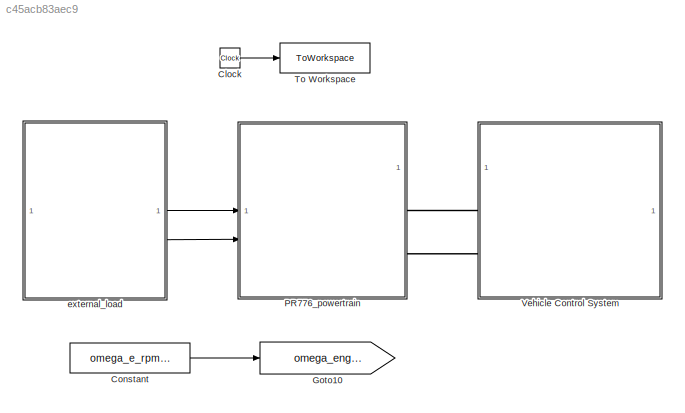
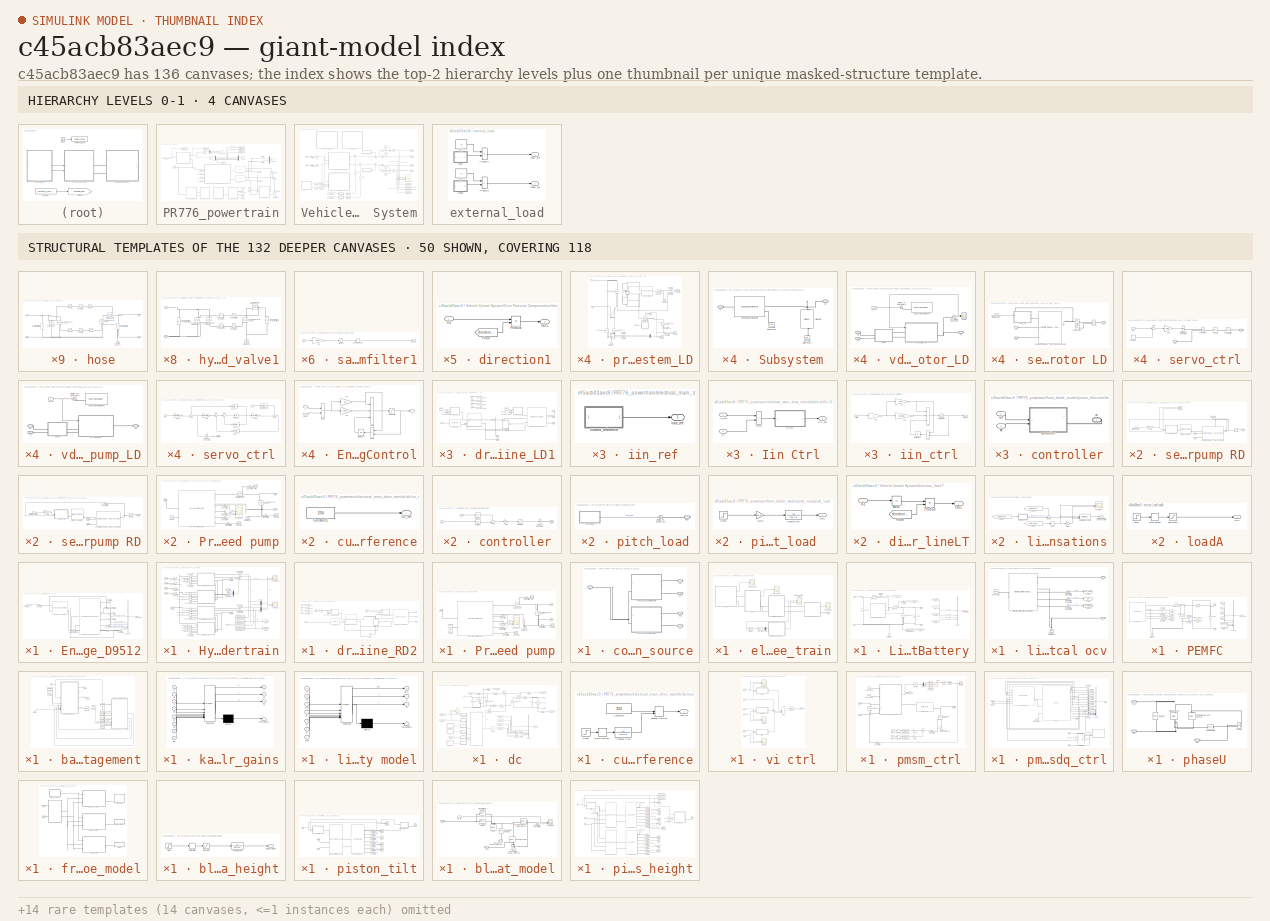
[diagram: thumbnail index - top-2 hierarchy levels (4 canvases) + 50 structural-template representatives of the remaining 132 canvases]
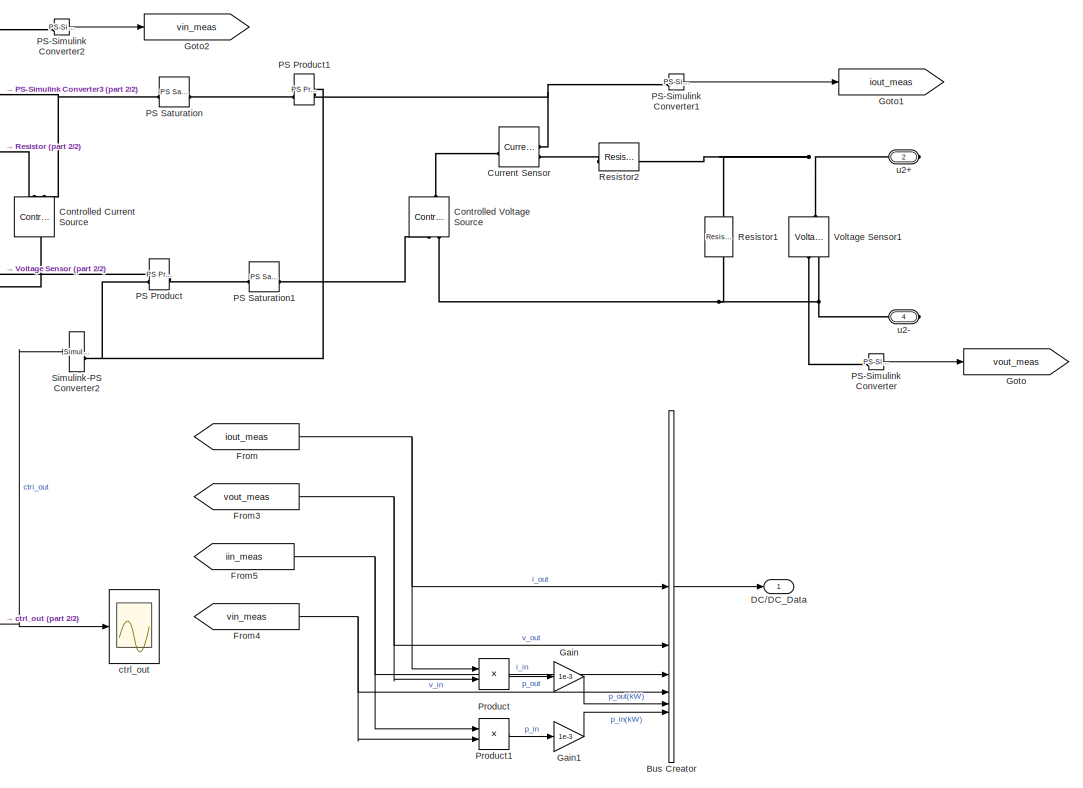
[diagram: PR776_powertrain/electrical_main_drive_train/dc/dc - part 1/2, right side, full height]
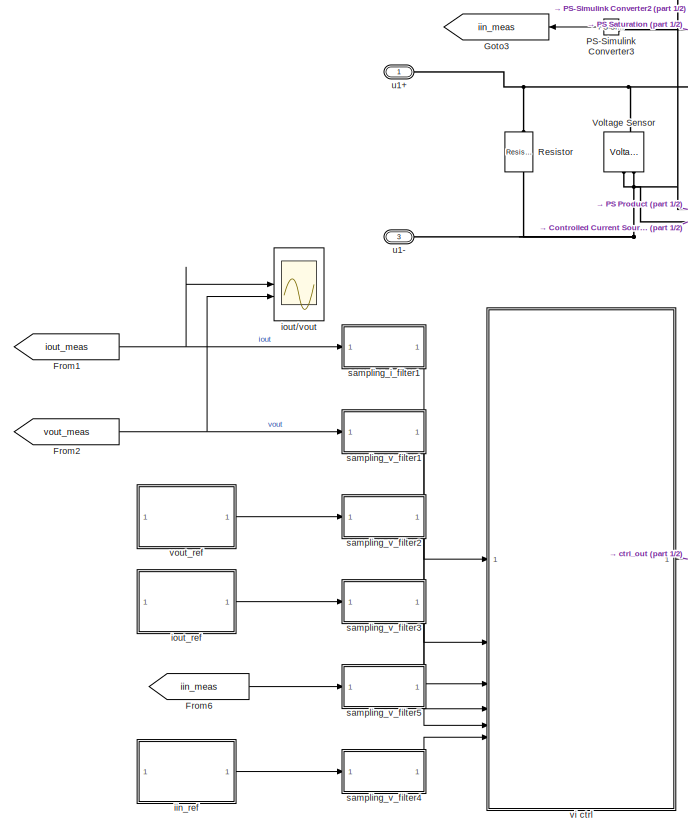
[diagram: PR776_powertrain/electrical_main_drive_train/dc/dc - part 2/2, left side, full height]
MODEL slx_c45acb83aec9
KIND model
CONFIG FixedStep = tsample
CONFIG MaxStep = tsample
CONFIG RelTol = auto
CONFIG SolverName = ode1be
CONFIG StopTime = simulation_length
BLOCK [Clock] Clock
BLOCK [Constant] Constant
  Value = omega_e_rpm_ref
BLOCK [Goto] Goto10
  GotoTag = omega_engine_reference
  TagVisibility = global
BLOCK [SubSystem] PR776_powertrain
BLOCK [ConnectionLabel] PR776_powertrain/Connection Label
  Label = pS1
  NameLocation = top
BLOCK [ConnectionLabel] PR776_powertrain/Connection Label1
  Label = pT1
  NameLocation = top
BLOCK [ConnectionLabel] PR776_powertrain/Connection Label10
  Label = pS2
  NameLocation = top
BLOCK [ConnectionLabel] PR776_powertrain/Connection Label11
  Label = pT2
  NameLocation = top
BLOCK [ConnectionLabel] PR776_powertrain/Connection Label2
  Label = pS1
BLOCK [ConnectionLabel] PR776_powertrain/Connection Label3
  Label = pT1
BLOCK [ConnectionLabel] PR776_powertrain/Connection Label4
  Label = pS2
  NameLocation = top
BLOCK [ConnectionLabel] PR776_powertrain/Connection Label5
  Label = pT2
BLOCK [Demux] PR776_powertrain/Demux
BLOCK [Demux] PR776_powertrain/Demux1
  Outputs = 2
BLOCK [Scope] PR776_powertrain/Engine
  ActiveDisplayYMaximum = 3710.49329
  ActiveDisplayYMinimum = -461.42552
  ContainerLayout = {"WindowBounds":[384,156,1280,768],"ToolstripCollapsed":true,"gridDimensions":{"w":1,"h":1},"tileCount":1,"tileCoverage":1,"columnWeights":1,"rowWeights":1,"tileOccupancy":{"children":[{"id":"/PR776_powertrain/Engine"},{"id":"/PR776_powertrain/Pressure controlled\npump/leak//ptorque"},{"id":"/PR776_powertrain/Pressure controlled\npump/flow"},{"id":"/PR776_powertrain/front_blade_model/pistons_pitch...<+678ch>  <repeated x12 — deduplicated; at blocks: Engine, flow, leak/ptorque, pressure, pump_flow, xp_re/xp m, xp_re/xp>
  Floating = off
  GraphicalSettings = {"GraphicalSettings":{"LegacySettings":true,"Style":{"AxesScalingProperties":{"ScaleAxesLimitsAtStop":false},"Style":{"AxesColor":"[0 0 0]","ChannelNames":[""],"ColorOrder":"[1 0.909803921568627 0.392156862745098;0.149019607843137 0.549019607843137 0.866666666666667;0.96078431372549 0.466666666666667 0.16078431372549;0.286274509803922 0.858823529411765 0.250980392156863;0.752941176470588 0.3607843...<+741ch>
  MultipleDisplayCache = [{"MaxYLimMag":3710.49329,"MaxYLimReal":3710.49329,"MinYLimMag":0,"MinYLimReal":-461.42552,"PlotAsMagnitudePhase":false,"ShowGrid":true,"ShowLegend":true,"Title":"%<SignalLabel>","YLabel":""}]
  NumInputPorts = 1
  SampleTime = tsample
  ScopeFrameLocation = container
  ShowLegend = on
  Visible = on
  WasSavedAsWebScope = on
  WindowPosition = [384.000000,156.000000,1280.000000,768.000000,]
BLOCK [SubSystem] PR776_powertrain/Engine_D9512
BLOCK [BusCreator] PR776_powertrain/Engine_D9512/Bus Creator
  DisplayOption = bar
  InheritFromInputs = on
  Inputs = 6
BLOCK [PMIOPort] PR776_powertrain/Engine_D9512/D
  Side = Right
BLOCK [Reference] PR776_powertrain/Engine_D9512/Engine Speed Controller  REF=engine_speed_ctrl_ii_lib/Engine Speed
Controller UD
  SourceBlock = engine_speed_ctrl_ii_lib/Engine Speed\nController UD
  SourceType = Engine Speed\nController UD
BLOCK [Outport] PR776_powertrain/Engine_D9512/Engine_Data
BLOCK [Reference] PR776_powertrain/Engine_D9512/Generic Internal Combustion Engine  REF=ice_lib/Generic Internal
Combustion Engine
  SourceBlock = ice_lib/Generic Internal\nCombustion Engine
  SourceType = Generic Internal\nCombustion Engine
BLOCK [Reference] PR776_powertrain/Engine_D9512/Mechanical Rotational Reference  REF=fl_lib/Mechanical/Rotational Elements/Mechanical
Rotational Reference
  NameLocation = right
  SourceBlock = fl_lib/Mechanical/Rotational Elements/Mechanical\nRotational Reference
  SourceType = Mechanical\nRotational Reference
BLOCK [Reference] PR776_powertrain/Engine_D9512/PS-Simulink Converter1  REF=nesl_utility/PS-Simulink
Converter
  SourceBlock = nesl_utility/PS-Simulink\nConverter
  SourceType = PS-Simulink\nConverter
BLOCK [Reference] PR776_powertrain/Engine_D9512/PS-Simulink Converter2  REF=nesl_utility/PS-Simulink
Converter
  SourceBlock = nesl_utility/PS-Simulink\nConverter
  SourceType = PS-Simulink\nConverter
BLOCK [Reference] PR776_powertrain/Engine_D9512/PS-Simulink Converter5  REF=nesl_utility/PS-Simulink
Converter
  SourceBlock = nesl_utility/PS-Simulink\nConverter
  SourceType = PS-Simulink\nConverter
BLOCK [Reference] PR776_powertrain/Engine_D9512/PS-Simulink Converter6  REF=nesl_utility/PS-Simulink
Converter
  SourceBlock = nesl_utility/PS-Simulink\nConverter
  SourceType = PS-Simulink\nConverter
BLOCK [Reference] PR776_powertrain/Engine_D9512/PS-Simulink Converter7  REF=nesl_utility/PS-Simulink
Converter
  SourceBlock = nesl_utility/PS-Simulink\nConverter
  SourceType = PS-Simulink\nConverter
BLOCK [Reference] PR776_powertrain/Engine_D9512/PS-Simulink Converter8  REF=nesl_utility/PS-Simulink
Converter
  SourceBlock = nesl_utility/PS-Simulink\nConverter
  SourceType = PS-Simulink\nConverter
BLOCK [Reference] PR776_powertrain/Engine_D9512/Simulink-PS Converter7  REF=nesl_utility/Simulink-PS
Converter
  SourceBlock = nesl_utility/Simulink-PS\nConverter
  SourceType = Simulink-PS\nConverter
BLOCK [Inport] PR776_powertrain/Engine_D9512/engine_speed_reference
BLOCK [From] PR776_powertrain/From6
  GotoTag = omega_engine_reference
  TagVisibility = global
BLOCK [Goto] PR776_powertrain/Goto6
  GotoTag = tau_e
  TagVisibility = global
BLOCK [SubSystem] PR776_powertrain/Hydrostatic_powertrain
BLOCK [ConnectionLabel] PR776_powertrain/Hydrostatic_powertrain/Connection Label
  Label = pS1
  NameLocation = top
BLOCK [ConnectionLabel] PR776_powertrain/Hydrostatic_powertrain/Connection Label1
  Label = pT1
  NameLocation = top
BLOCK [ConnectionLabel] PR776_powertrain/Hydrostatic_powertrain/Connection Label10
  Label = pS2
  NameLocation = top
BLOCK [ConnectionLabel] PR776_powertrain/Hydrostatic_powertrain/Connection Label11
  Label = pT2
  NameLocation = top
BLOCK [ConnectionLabel] PR776_powertrain/Hydrostatic_powertrain/Connection Label12
  Label = pS1
  NameLocation = top
BLOCK [ConnectionLabel] PR776_powertrain/Hydrostatic_powertrain/Connection Label13
  Label = pT1
BLOCK [ConnectionLabel] PR776_powertrain/Hydrostatic_powertrain/Connection Label14
  Label = pS2
  NameLocation = top
BLOCK [ConnectionLabel] PR776_powertrain/Hydrostatic_powertrain/Connection Label15
  Label = pT2
BLOCK [ConnectionLabel] PR776_powertrain/Hydrostatic_powertrain/Connection Label16
  Label = pS1
  NameLocation = top
BLOCK [ConnectionLabel] PR776_powertrain/Hydrostatic_powertrain/Connection Label17
  Label = pT1
BLOCK [ConnectionLabel] PR776_powertrain/Hydrostatic_powertrain/Connection Label18
  Label = pS2
  NameLocation = right
BLOCK [ConnectionLabel] PR776_powertrain/Hydrostatic_powertrain/Connection Label19
  Label = pT2
BLOCK [ConnectionLabel] PR776_powertrain/Hydrostatic_powertrain/Connection Label2
  Label = pS1
  NameLocation = top
BLOCK [ConnectionLabel] PR776_powertrain/Hydrostatic_powertrain/Connection Label3
  Label = pT1
BLOCK [ConnectionLabel] PR776_powertrain/Hydrostatic_powertrain/Connection Label4
  Label = pS2
  NameLocation = right
BLOCK [ConnectionLabel] PR776_powertrain/Hydrostatic_powertrain/Connection Label5
  Label = pT2
BLOCK [ConnectionLabel] PR776_powertrain/Hydrostatic_powertrain/Connection Label6
  Label = pS1
  NameLocation = top
BLOCK [ConnectionLabel] PR776_powertrain/Hydrostatic_powertrain/Connection Label7
  Label = pT1
BLOCK [ConnectionLabel] PR776_powertrain/Hydrostatic_powertrain/Connection Label8
  Label = pS2
  NameLocation = top
BLOCK [ConnectionLabel] PR776_powertrain/Hydrostatic_powertrain/Connection Label9
  Label = pT2
BLOCK [Goto] PR776_powertrain/Hydrostatic_powertrain/Goto8
  GotoTag = dpAm
  TagVisibility = global
BLOCK [Goto] PR776_powertrain/Hydrostatic_powertrain/Goto9
  GotoTag = dpBm
  TagVisibility = global
BLOCK [Mux] PR776_powertrain/Hydrostatic_powertrain/Mux1
  DisplayOption = bar
  Inputs = 2
BLOCK [Mux] PR776_powertrain/Hydrostatic_powertrain/Mux2
  DisplayOption = bar
  Inputs = 2
BLOCK [Mux] PR776_powertrain/Hydrostatic_powertrain/Mux3
  DisplayOption = bar
  Inputs = 2
BLOCK [Reference] PR776_powertrain/Hydrostatic_powertrain/PS-Simulink Converter1  REF=nesl_utility/PS-Simulink
Converter
  SourceBlock = nesl_utility/PS-Simulink\nConverter
  SourceType = PS-Simulink\nConverter
BLOCK [Reference] PR776_powertrain/Hydrostatic_powertrain/PS-Simulink Converter2  REF=nesl_utility/PS-Simulink
Converter
  SourceBlock = nesl_utility/PS-Simulink\nConverter
  SourceType = PS-Simulink\nConverter
BLOCK [Reference] PR776_powertrain/Hydrostatic_powertrain/PS-Simulink Converter3  REF=nesl_utility/PS-Simulink
Converter
  SourceBlock = nesl_utility/PS-Simulink\nConverter
  SourceType = PS-Simulink\nConverter
BLOCK [Reference] PR776_powertrain/Hydrostatic_powertrain/PS-Simulink Converter4  REF=nesl_utility/PS-Simulink
Converter
  SourceBlock = nesl_utility/PS-Simulink\nConverter
  SourceType = PS-Simulink\nConverter
BLOCK [Reference] PR776_powertrain/Hydrostatic_powertrain/PS-Simulink Converter5  REF=nesl_utility/PS-Simulink
Converter
  SourceBlock = nesl_utility/PS-Simulink\nConverter
  SourceType = PS-Simulink\nConverter
BLOCK [Reference] PR776_powertrain/Hydrostatic_powertrain/PS-Simulink Converter8  REF=nesl_utility/PS-Simulink
Converter
  SourceBlock = nesl_utility/PS-Simulink\nConverter
  SourceType = PS-Simulink\nConverter
BLOCK [ToWorkspace] PR776_powertrain/Hydrostatic_powertrain/To Workspace3
  FixptAsFi = on
  MaxDataPoints = Nc
  NameLocation = top
  SampleTime = Tc
  VariableName = qR_sim
BLOCK [ToWorkspace] PR776_powertrain/Hydrostatic_powertrain/To Workspace4
  FixptAsFi = on
  MaxDataPoints = Nc
  NameLocation = top
  SampleTime = Tc
  VariableName = dpR_sim
BLOCK [ToWorkspace] PR776_powertrain/Hydrostatic_powertrain/To Workspace5
  FixptAsFi = on
  MaxDataPoints = Nc
  NameLocation = top
  SampleTime = Tc
  VariableName = qL_sim
BLOCK [ToWorkspace] PR776_powertrain/Hydrostatic_powertrain/To Workspace6
  FixptAsFi = on
  MaxDataPoints = Nc
  NameLocation = top
  SampleTime = Tc
  VariableName = dpL_sim
BLOCK [SubSystem] PR776_powertrain/Hydrostatic_powertrain/driveine_LD1
BLOCK [ConnectionLabel] PR776_powertrain/Hydrostatic_powertrain/driveine_LD1/Connection Label1
  Label = pS1
BLOCK [ConnectionLabel] PR776_powertrain/Hydrostatic_powertrain/driveine_LD1/Connection Label2
  Label = pS1
  NameLocation = top
BLOCK [ConnectionLabel] PR776_powertrain/Hydrostatic_powertrain/driveine_LD1/Connection Label3
  Label = pT1
BLOCK [ConnectionLabel] PR776_powertrain/Hydrostatic_powertrain/driveine_LD1/Connection Label4
  Label = pS2
  NameLocation = top
BLOCK [ConnectionLabel] PR776_powertrain/Hydrostatic_powertrain/driveine_LD1/Connection Label5
  Label = pT2
BLOCK [ConnectionLabel] PR776_powertrain/Hydrostatic_powertrain/driveine_LD1/Connection Label6
  Label = pT1
  NameLocation = top
BLOCK [ConnectionLabel] PR776_powertrain/Hydrostatic_powertrain/driveine_LD1/Connection Label7
  Label = pS2
BLOCK [ConnectionLabel] PR776_powertrain/Hydrostatic_powertrain/driveine_LD1/Connection Label8
  Label = pT2
  NameLocation = top
BLOCK [From] PR776_powertrain/Hydrostatic_powertrain/driveine_LD1/From4
  GotoTag = DpB
  TagVisibility = global
BLOCK [From] PR776_powertrain/Hydrostatic_powertrain/driveine_LD1/From5
  GotoTag = DmB
  TagVisibility = global
BLOCK [PMIOPort] PR776_powertrain/Hydrostatic_powertrain/driveine_LD1/RDA
  Port = 9
  Side = Right
BLOCK [PMIOPort] PR776_powertrain/Hydrostatic_powertrain/driveine_LD1/RDB
  Port = 10
  Side = Right
BLOCK [Reference] PR776_powertrain/Hydrostatic_powertrain/driveine_LD1/Variable displacement motor LD  REF=variable_displacement_motor_lib/Variable
displacement motor
  SourceBlock = variable_displacement_motor_lib/Variable\ndisplacement motor
  SourceType = Variable\ndisplacement motor
BLOCK [Reference] PR776_powertrain/Hydrostatic_powertrain/driveine_LD1/Variable displacement pump LD  REF=variable_displacement_pump_lib/Variable
displacement pump
  SourceBlock = variable_displacement_pump_lib/Variable\ndisplacement pump
  SourceType = Variable\ndisplacement pump
BLOCK [PMIOPort] PR776_powertrain/Hydrostatic_powertrain/driveine_LD1/c
  Port = 8
  Side = Right
BLOCK [PMIOPort] PR776_powertrain/Hydrostatic_powertrain/driveine_LD1/dp
  Port = 7
  Side = Right
BLOCK [Reference] PR776_powertrain/Hydrostatic_powertrain/driveine_LD1/flexible shaft1  REF=flexshaft_lib/flexible shaft
  SourceBlock = flexshaft_lib/flexible shaft
  SourceType = flexible shaft
BLOCK [PMIOPort] PR776_powertrain/Hydrostatic_powertrain/driveine_LD1/pS1
  Port = 2
  Side = Left
BLOCK [PMIOPort] PR776_powertrain/Hydrostatic_powertrain/driveine_LD1/pS2
  Port = 3
  Side = Left
BLOCK [PMIOPort] PR776_powertrain/Hydrostatic_powertrain/driveine_LD1/pT1
  Port = 4
  Side = Left
BLOCK [PMIOPort] PR776_powertrain/Hydrostatic_powertrain/driveine_LD1/pT2
  Port = 5
  Side = Left
BLOCK [SubSystem] PR776_powertrain/Hydrostatic_powertrain/driveine_LD1/pressure_charge_system_LD
  NameLocation = right
  PortSchema = {"entries":[{"content":{"sides":[{"content":{"connectorIds":[]},"type":"ConnectorPlacement.EquallySpacedRectSide","uuid":"e48dc60c-7abd-410a-894b-273047c8aadd"},{"content":{"connectorIds":[],"side":"RIGHT"},"type":"ConnectorPlacement.EquallySpacedRectSide","uuid":"1866d745-b28e-4187-be81-03bff766c239"},{"content":{"connectorIds":["LConn1"],"side":"TOP"},"type":"ConnectorPlacement.EquallySpacedRect...<+400ch>  <repeated x4 — deduplicated; at blocks: pressure_charge_system_LD, pressure_charge_system_RD>
BLOCK [PMIOPort] PR776_powertrain/Hydrostatic_powertrain/driveine_LD1/pressure_charge_system_LD/A
  Side = Left
BLOCK [PMIOPort] PR776_powertrain/Hydrostatic_powertrain/driveine_LD1/pressure_charge_system_LD/B
  Port = 2
  Side = Right
BLOCK [PMIOPort] PR776_powertrain/Hydrostatic_powertrain/driveine_LD1/pressure_charge_system_LD/D
  Port = 3
  Side = Right
BLOCK [Reference] PR776_powertrain/Hydrostatic_powertrain/driveine_LD1/pressure_charge_system_LD/Hydraulic Flow Rate Sensor  REF=fl_lib/Hydraulic/Hydraulic Sensors/Hydraulic Flow Rate
Sensor
  NameLocation = top
  SourceBlock = fl_lib/Hydraulic/Hydraulic Sensors/Hydraulic Flow Rate\nSensor
  SourceType = Hydraulic Flow Rate\nSensor
BLOCK [Reference] PR776_powertrain/Hydrostatic_powertrain/driveine_LD1/pressure_charge_system_LD/Hydraulic Flow Rate Sensor1  REF=fl_lib/Hydraulic/Hydraulic Sensors/Hydraulic Flow Rate
Sensor
  SourceBlock = fl_lib/Hydraulic/Hydraulic Sensors/Hydraulic Flow Rate\nSensor
  SourceType = Hydraulic Flow Rate\nSensor
BLOCK [Reference] PR776_powertrain/Hydrostatic_powertrain/driveine_LD1/pressure_charge_system_LD/Hydraulic Pressure Sensor1  REF=fl_lib/Hydraulic/Hydraulic Sensors/Hydraulic Pressure
Sensor
  NameLocation = right
  SourceBlock = fl_lib/Hydraulic/Hydraulic Sensors/Hydraulic Pressure\nSensor
  SourceType = Hydraulic Pressure\nSensor
BLOCK [Reference] PR776_powertrain/Hydrostatic_powertrain/driveine_LD1/pressure_charge_system_LD/Hydraulic Pressure Sensor2  REF=fl_lib/Hydraulic/Hydraulic Sensors/Hydraulic Pressure
Sensor
  NameLocation = right
  SourceBlock = fl_lib/Hydraulic/Hydraulic Sensors/Hydraulic Pressure\nSensor
  SourceType = Hydraulic Pressure\nSensor
BLOCK [Reference] PR776_powertrain/Hydrostatic_powertrain/driveine_LD1/pressure_charge_system_LD/Hydraulic Pressure Sensor3  REF=fl_lib/Hydraulic/Hydraulic Sensors/Hydraulic Pressure
Sensor
  NameLocation = right
  SourceBlock = fl_lib/Hydraulic/Hydraulic Sensors/Hydraulic Pressure\nSensor
  SourceType = Hydraulic Pressure\nSensor
BLOCK [Reference] PR776_powertrain/Hydrostatic_powertrain/driveine_LD1/pressure_charge_system_LD/Hydraulic Pressure Sensor4  REF=fl_lib/Hydraulic/Hydraulic Sensors/Hydraulic Pressure
Sensor
  NameLocation = right
  SourceBlock = fl_lib/Hydraulic/Hydraulic Sensors/Hydraulic Pressure\nSensor
  SourceType = Hydraulic Pressure\nSensor
BLOCK [Reference] PR776_powertrain/Hydrostatic_powertrain/driveine_LD1/pressure_charge_system_LD/Hydraulic Reference1  REF=fl_lib/Hydraulic/Hydraulic Elements/Hydraulic Reference
  NameLocation = right
  SourceBlock = fl_lib/Hydraulic/Hydraulic Elements/Hydraulic Reference
  SourceType = Hydraulic Reference
BLOCK [Reference] PR776_powertrain/Hydrostatic_powertrain/driveine_LD1/pressure_charge_system_LD/Hydraulic Reference2  REF=fl_lib/Hydraulic/Hydraulic Elements/Hydraulic Reference
  NameLocation = right
  SourceBlock = fl_lib/Hydraulic/Hydraulic Elements/Hydraulic Reference
  SourceType = Hydraulic Reference
BLOCK [Reference] PR776_powertrain/Hydrostatic_powertrain/driveine_LD1/pressure_charge_system_LD/Hydraulic Reference3  REF=fl_lib/Hydraulic/Hydraulic Elements/Hydraulic Reference
  NameLocation = right
  SourceBlock = fl_lib/Hydraulic/Hydraulic Elements/Hydraulic Reference
  SourceType = Hydraulic Reference
BLOCK [Mux] PR776_powertrain/Hydrostatic_powertrain/driveine_LD1/pressure_charge_system_LD/Mux
  DisplayOption = bar
  Inputs = 2
BLOCK [Reference] PR776_powertrain/Hydrostatic_powertrain/driveine_LD1/pressure_charge_system_LD/PS-Simulink Converter  REF=nesl_utility/PS-Simulink
Converter
  SourceBlock = nesl_utility/PS-Simulink\nConverter
  SourceType = PS-Simulink\nConverter
BLOCK [Reference] PR776_powertrain/Hydrostatic_powertrain/driveine_LD1/pressure_charge_system_LD/PS-Simulink Converter1  REF=nesl_utility/PS-Simulink
Converter
  SourceBlock = nesl_utility/PS-Simulink\nConverter
  SourceType = PS-Simulink\nConverter
BLOCK [Reference] PR776_powertrain/Hydrostatic_powertrain/driveine_LD1/pressure_charge_system_LD/PS-Simulink Converter2  REF=nesl_utility/PS-Simulink
Converter
  SourceBlock = nesl_utility/PS-Simulink\nConverter
  SourceType = PS-Simulink\nConverter
BLOCK [Reference] PR776_powertrain/Hydrostatic_powertrain/driveine_LD1/pressure_charge_system_LD/PS-Simulink Converter3  REF=nesl_utility/PS-Simulink
Converter
  SourceBlock = nesl_utility/PS-Simulink\nConverter
  SourceType = PS-Simulink\nConverter
BLOCK [Reference] PR776_powertrain/Hydrostatic_powertrain/driveine_LD1/pressure_charge_system_LD/PS-Simulink Converter4  REF=nesl_utility/PS-Simulink
Converter
  SourceBlock = nesl_utility/PS-Simulink\nConverter
  SourceType = PS-Simulink\nConverter
BLOCK [Reference] PR776_powertrain/Hydrostatic_powertrain/driveine_LD1/pressure_charge_system_LD/PS-Simulink Converter5  REF=nesl_utility/PS-Simulink
Converter
  SourceBlock = nesl_utility/PS-Simulink\nConverter
  SourceType = PS-Simulink\nConverter
BLOCK [Scope] PR776_powertrain/Hydrostatic_powertrain/driveine_LD1/pressure_charge_system_LD/Scope1
  ActiveDisplayYMaximum = 527.07344
  ActiveDisplayYMinimum = -171.1725
  DataLoggingVariableName = ScopeData2
  Floating = off
  GraphicalSettings = {"GraphicalSettings":{"LegacySettings":true,"Style":{"AxesScalingProperties":{"ScaleAxesLimitsAtStop":false},"Style":{"AxesColor":"[0 0 0]","ChannelNames":["",""],"ColorOrder":"[1 1 0.0666666666666667;0.0745098039215686 0.623529411764706 1;1 0.411764705882353 0.16078431372549;0.392156862745098 0.831372549019608 0.0745098039215686;0.717647058823529 0.274509803921569 1;0.0588235294117647 1 1;1 0.074...<+565ch>
  LayoutDimensionsString = [2 1]
  MultipleDisplayCache = [{"MaxYLimMag":527.07344,"MaxYLimReal":527.07344,"MinYLimMag":0,"MinYLimReal":-171.1725,"PlotAsMagnitudePhase":false,"ShowGrid":true,"ShowLegend":true,"Title":"%<SignalLabel>","YLabel":""},{"MaxYLimMag":6.36273,"MaxYLimReal":10.69283,"MinYLimMag":0,"MinYLimReal":-1.19086,"PlotAsMagnitudePhase":false,"ShowGrid":true,"ShowLegend":true,"Title":"%<SignalLabel>","YLabel":""}]
  NumInputPorts = 2
  SampleTime = tsample
  ShowLegend = on
  WasSavedAsWebScope = on
BLOCK [Scope] PR776_powertrain/Hydrostatic_powertrain/driveine_LD1/pressure_charge_system_LD/Scope2
  ActiveDisplayYMaximum = 21.51378
  ActiveDisplayYMinimum = -2.39042
  DataLoggingVariableName = ScopeData2
  Floating = off
  GraphicalSettings = {"GraphicalSettings":{"LegacySettings":true,"Style":{"AxesScalingProperties":{"ScaleAxesLimitsAtStop":false},"Style":{"AxesColor":"[0 0 0]","ChannelNames":["",""],"ColorOrder":"[1 1 0.0666666666666667;0.0745098039215686 0.623529411764706 1;1 0.411764705882353 0.16078431372549;0.392156862745098 0.831372549019608 0.0745098039215686;0.717647058823529 0.274509803921569 1;0.0588235294117647 1 1;1 0.074...<+526ch>  <repeated x7 — deduplicated; at blocks: Scope2, Scope3, qt_ishuttle/dp, Engine Torque Compensation>
  LayoutDimensionsString = [2 1]
  MultipleDisplayCache = [{"MaxYLimMag":21.51378,"MaxYLimReal":21.51378,"MinYLimMag":0,"MinYLimReal":-2.39042,"PlotAsMagnitudePhase":false,"ShowGrid":true,"ShowLegend":true,"Title":"%<SignalLabel>","YLabel":""},{"MaxYLimMag":10,"MaxYLimReal":36.71947,"MinYLimMag":0,"MinYLimReal":-4.07994,"PlotAsMagnitudePhase":false,"ShowGrid":true,"ShowLegend":true,"Title":"%<SignalLabel>","YLabel":""}]
  NumInputPorts = 2
  SampleTime = tsample
  ShowLegend = on
  WasSavedAsWebScope = on
  WindowPosition = [2356 378 560 420]
BLOCK [Scope] PR776_powertrain/Hydrostatic_powertrain/driveine_LD1/pressure_charge_system_LD/Scope3
  ActiveDisplayYMaximum = 21.17734
  ActiveDisplayYMinimum = -2.35304
  DataLoggingVariableName = ScopeData1
  Floating = off
  LayoutDimensionsString = [2 1]
  MultipleDisplayCache = [{"MaxYLimMag":21.17734,"MaxYLimReal":21.17734,"MinYLimMag":0,"MinYLimReal":-2.35304,"PlotAsMagnitudePhase":false,"ShowGrid":true,"ShowLegend":true,"Title":"%<SignalLabel>","YLabel":""},{"MaxYLimMag":10,"MaxYLimReal":267.9229,"MinYLimMag":0,"MinYLimReal":-267.97888,"PlotAsMagnitudePhase":false,"ShowGrid":true,"ShowLegend":true,"Title":"%<SignalLabel>","YLabel":""}]
  NumInputPorts = 2
  SampleTime = tsample
  ShowLegend = on
  WasSavedAsWebScope = on
  WindowPosition = [238 183 1399 747]
BLOCK [SubSystem] PR776_powertrain/Hydrostatic_powertrain/driveine_LD1/pressure_charge_system_LD/Subsystem
BLOCK [PMIOPort] PR776_powertrain/Hydrostatic_powertrain/driveine_LD1/pressure_charge_system_LD/Subsystem/D
  Port = 2
  Side = Left
BLOCK [Reference] PR776_powertrain/Hydrostatic_powertrain/driveine_LD1/pressure_charge_system_LD/Subsystem/Fixed displacement pump  REF=fixed_displacement_pump_lib/Fixed displacement
pump
  SourceBlock = fixed_displacement_pump_lib/Fixed displacement\npump
  SourceType = Fixed displacement\npump
BLOCK [Reference] PR776_powertrain/Hydrostatic_powertrain/driveine_LD1/pressure_charge_system_LD/Subsystem/Hydraulic Reference3  REF=fl_lib/Hydraulic/Hydraulic Elements/Hydraulic Reference
  NameLocation = right
  SourceBlock = fl_lib/Hydraulic/Hydraulic Elements/Hydraulic Reference
  SourceType = Hydraulic Reference
BLOCK [Reference] PR776_powertrain/Hydrostatic_powertrain/driveine_LD1/pressure_charge_system_LD/Subsystem/Hydraulic Reference4  REF=fl_lib/Hydraulic/Hydraulic Elements/Hydraulic Reference
  NameLocation = right
  SourceBlock = fl_lib/Hydraulic/Hydraulic Elements/Hydraulic Reference
  SourceType = Hydraulic Reference
BLOCK [PMIOPort] PR776_powertrain/Hydrostatic_powertrain/driveine_LD1/pressure_charge_system_LD/Subsystem/ps
  Side = Right
BLOCK [Reference] PR776_powertrain/Hydrostatic_powertrain/driveine_LD1/pressure_charge_system_LD/Subsystem/relief valve  REF=relief_valve_lib/relief valve
  NameLocation = left
  SourceBlock = relief_valve_lib/relief valve
  SourceType = relief valve
BLOCK [SubSystem] PR776_powertrain/Hydrostatic_powertrain/driveine_LD1/pressure_charge_system_LD/hydro_check_valve1
  NameLocation = left
  PortSchema = {"entries":[{"content":{"sides":[{"content":{"connectorIds":[]},"type":"ConnectorPlacement.EquallySpacedRectSide","uuid":"a69fbb91-2279-4dfd-af6f-16497d5f1538"},{"content":{"connectorIds":[],"side":"RIGHT"},"type":"ConnectorPlacement.EquallySpacedRectSide","uuid":"52e95d44-b7af-4ccc-8556-a2abd2e724e0"},{"content":{"connectorIds":["LConn1"],"side":"TOP"},"type":"ConnectorPlacement.EquallySpacedRect...<+391ch>  <repeated x8 — deduplicated; at blocks: hydro_check_valve1, hydro_check_valve2>
BLOCK [PMIOPort] PR776_powertrain/Hydrostatic_powertrain/driveine_LD1/pressure_charge_system_LD/hydro_check_valve1/A
  Side = Left
BLOCK [PMIOPort] PR776_powertrain/Hydrostatic_powertrain/driveine_LD1/pressure_charge_system_LD/hydro_check_valve1/B
  Port = 2
  Side = Right
BLOCK [Reference] PR776_powertrain/Hydrostatic_powertrain/driveine_LD1/pressure_charge_system_LD/hydro_check_valve1/Constant Area Hydraulic Orifice5  REF=fl_lib/Hydraulic/Hydraulic Elements/Constant Area
Hydraulic Orifice
  NameLocation = left
  SourceBlock = fl_lib/Hydraulic/Hydraulic Elements/Constant Area\nHydraulic Orifice
  SourceType = Constant Area\nHydraulic Orifice
BLOCK [Reference] PR776_powertrain/Hydrostatic_powertrain/driveine_LD1/pressure_charge_system_LD/hydro_check_valve1/Constant Area Hydraulic Orifice6  REF=fl_lib/Hydraulic/Hydraulic Elements/Constant Area
Hydraulic Orifice
  NameLocation = left
  SourceBlock = fl_lib/Hydraulic/Hydraulic Elements/Constant Area\nHydraulic Orifice
  SourceType = Constant Area\nHydraulic Orifice
BLOCK [Reference] PR776_powertrain/Hydrostatic_powertrain/driveine_LD1/pressure_charge_system_LD/hydro_check_valve1/Hydraulic Flow Rate Sensor  REF=fl_lib/Hydraulic/Hydraulic Sensors/Hydraulic Flow Rate
Sensor
  SourceBlock = fl_lib/Hydraulic/Hydraulic Sensors/Hydraulic Flow Rate\nSensor
  SourceType = Hydraulic Flow Rate\nSensor
BLOCK [Reference] PR776_powertrain/Hydrostatic_powertrain/driveine_LD1/pressure_charge_system_LD/hydro_check_valve1/Hydraulic Flow Rate Source  REF=fl_lib/Hydraulic/Hydraulic Sources/Hydraulic Flow Rate
Source
  NameLocation = left
  SourceBlock = fl_lib/Hydraulic/Hydraulic Sources/Hydraulic Flow Rate\nSource
  SourceType = Hydraulic Flow Rate\nSource
BLOCK [Reference] PR776_powertrain/Hydrostatic_powertrain/driveine_LD1/pressure_charge_system_LD/hydro_check_valve1/Hydraulic Pressure Sensor  REF=fl_lib/Hydraulic/Hydraulic Sensors/Hydraulic Pressure
Sensor
  NameLocation = left
  SourceBlock = fl_lib/Hydraulic/Hydraulic Sensors/Hydraulic Pressure\nSensor
  SourceType = Hydraulic Pressure\nSensor
BLOCK [Reference] PR776_powertrain/Hydrostatic_powertrain/driveine_LD1/pressure_charge_system_LD/hydro_check_valve1/Hydraulic Pressure Source2  REF=fl_lib/Hydraulic/Hydraulic Sources/Hydraulic Pressure
Source
  NameLocation = right
  SourceBlock = fl_lib/Hydraulic/Hydraulic Sources/Hydraulic Pressure\nSource
  SourceType = Hydraulic Pressure\nSource
BLOCK [Reference] PR776_powertrain/Hydrostatic_powertrain/driveine_LD1/pressure_charge_system_LD/hydro_check_valve1/Hydraulic Reference  REF=fl_lib/Hydraulic/Hydraulic Elements/Hydraulic Reference
  NameLocation = right
  SourceBlock = fl_lib/Hydraulic/Hydraulic Elements/Hydraulic Reference
  SourceType = Hydraulic Reference
BLOCK [Reference] PR776_powertrain/Hydrostatic_powertrain/driveine_LD1/pressure_charge_system_LD/hydro_check_valve1/PS Saturation  REF=fl_lib/Physical Signals/Nonlinear Operators/PS Saturation
  SourceBlock = fl_lib/Physical Signals/Nonlinear Operators/PS Saturation
  SourceType = PS Saturation
BLOCK [Reference] PR776_powertrain/Hydrostatic_powertrain/driveine_LD1/pressure_charge_system_LD/hydro_check_valve1/PS Saturation1  REF=fl_lib/Physical Signals/Nonlinear Operators/PS Saturation
  SourceBlock = fl_lib/Physical Signals/Nonlinear Operators/PS Saturation
  SourceType = PS Saturation
BLOCK [Reference] PR776_powertrain/Hydrostatic_powertrain/driveine_LD1/pressure_charge_system_LD/hydro_check_valve1/PS Transfer Function  REF=fl_lib/Physical Signals/Linear Operators/PS Transfer Function
  SourceBlock = fl_lib/Physical Signals/Linear Operators/PS Transfer Function
  SourceType = PS Transfer Function
BLOCK [Reference] PR776_powertrain/Hydrostatic_powertrain/driveine_LD1/pressure_charge_system_LD/hydro_check_valve1/PS Transfer Function1  REF=fl_lib/Physical Signals/Linear Operators/PS Transfer Function
  SourceBlock = fl_lib/Physical Signals/Linear Operators/PS Transfer Function
  SourceType = PS Transfer Function
BLOCK [SubSystem] PR776_powertrain/Hydrostatic_powertrain/driveine_LD1/pressure_charge_system_LD/hydro_check_valve2
  NameLocation = right
BLOCK [PMIOPort] PR776_powertrain/Hydrostatic_powertrain/driveine_LD1/pressure_charge_system_LD/hydro_check_valve2/A
  Side = Left
BLOCK [PMIOPort] PR776_powertrain/Hydrostatic_powertrain/driveine_LD1/pressure_charge_system_LD/hydro_check_valve2/B
  Port = 2
  Side = Right
BLOCK [Reference] PR776_powertrain/Hydrostatic_powertrain/driveine_LD1/pressure_charge_system_LD/hydro_check_valve2/Constant Area Hydraulic Orifice5  REF=fl_lib/Hydraulic/Hydraulic Elements/Constant Area
Hydraulic Orifice
  NameLocation = left
  SourceBlock = fl_lib/Hydraulic/Hydraulic Elements/Constant Area\nHydraulic Orifice
  SourceType = Constant Area\nHydraulic Orifice
BLOCK [Reference] PR776_powertrain/Hydrostatic_powertrain/driveine_LD1/pressure_charge_system_LD/hydro_check_valve2/Constant Area Hydraulic Orifice6  REF=fl_lib/Hydraulic/Hydraulic Elements/Constant Area
Hydraulic Orifice
  NameLocation = left
  SourceBlock = fl_lib/Hydraulic/Hydraulic Elements/Constant Area\nHydraulic Orifice
  SourceType = Constant Area\nHydraulic Orifice
BLOCK [Reference] PR776_powertrain/Hydrostatic_powertrain/driveine_LD1/pressure_charge_system_LD/hydro_check_valve2/Hydraulic Flow Rate Sensor  REF=fl_lib/Hydraulic/Hydraulic Sensors/Hydraulic Flow Rate
Sensor
  SourceBlock = fl_lib/Hydraulic/Hydraulic Sensors/Hydraulic Flow Rate\nSensor
  SourceType = Hydraulic Flow Rate\nSensor
BLOCK [Reference] PR776_powertrain/Hydrostatic_powertrain/driveine_LD1/pressure_charge_system_LD/hydro_check_valve2/Hydraulic Flow Rate Source  REF=fl_lib/Hydraulic/Hydraulic Sources/Hydraulic Flow Rate
Source
  NameLocation = left
  SourceBlock = fl_lib/Hydraulic/Hydraulic Sources/Hydraulic Flow Rate\nSource
  SourceType = Hydraulic Flow Rate\nSource
BLOCK [Reference] PR776_powertrain/Hydrostatic_powertrain/driveine_LD1/pressure_charge_system_LD/hydro_check_valve2/Hydraulic Pressure Sensor  REF=fl_lib/Hydraulic/Hydraulic Sensors/Hydraulic Pressure
Sensor
  NameLocation = left
  SourceBlock = fl_lib/Hydraulic/Hydraulic Sensors/Hydraulic Pressure\nSensor
  SourceType = Hydraulic Pressure\nSensor
BLOCK [Reference] PR776_powertrain/Hydrostatic_powertrain/driveine_LD1/pressure_charge_system_LD/hydro_check_valve2/Hydraulic Pressure Source2  REF=fl_lib/Hydraulic/Hydraulic Sources/Hydraulic Pressure
Source
  NameLocation = right
  SourceBlock = fl_lib/Hydraulic/Hydraulic Sources/Hydraulic Pressure\nSource
  SourceType = Hydraulic Pressure\nSource
BLOCK [Reference] PR776_powertrain/Hydrostatic_powertrain/driveine_LD1/pressure_charge_system_LD/hydro_check_valve2/Hydraulic Reference  REF=fl_lib/Hydraulic/Hydraulic Elements/Hydraulic Reference
  NameLocation = right
  SourceBlock = fl_lib/Hydraulic/Hydraulic Elements/Hydraulic Reference
  SourceType = Hydraulic Reference
BLOCK [Reference] PR776_powertrain/Hydrostatic_powertrain/driveine_LD1/pressure_charge_system_LD/hydro_check_valve2/PS Saturation  REF=fl_lib/Physical Signals/Nonlinear Operators/PS Saturation
  SourceBlock = fl_lib/Physical Signals/Nonlinear Operators/PS Saturation
  SourceType = PS Saturation
BLOCK [Reference] PR776_powertrain/Hydrostatic_powertrain/driveine_LD1/pressure_charge_system_LD/hydro_check_valve2/PS Saturation1  REF=fl_lib/Physical Signals/Nonlinear Operators/PS Saturation
  SourceBlock = fl_lib/Physical Signals/Nonlinear Operators/PS Saturation
  SourceType = PS Saturation
BLOCK [Reference] PR776_powertrain/Hydrostatic_powertrain/driveine_LD1/pressure_charge_system_LD/hydro_check_valve2/PS Transfer Function  REF=fl_lib/Physical Signals/Linear Operators/PS Transfer Function
  SourceBlock = fl_lib/Physical Signals/Linear Operators/PS Transfer Function
  SourceType = PS Transfer Function
BLOCK [Reference] PR776_powertrain/Hydrostatic_powertrain/driveine_LD1/pressure_charge_system_LD/hydro_check_valve2/PS Transfer Function1  REF=fl_lib/Physical Signals/Linear Operators/PS Transfer Function
  SourceBlock = fl_lib/Physical Signals/Linear Operators/PS Transfer Function
  SourceType = PS Transfer Function
BLOCK [Reference] PR776_powertrain/Hydrostatic_powertrain/driveine_LD1/pressure_charge_system_LD/inverse shuttle valve  REF=inverse_shuttle_valve_lib/inverse shuttle
valve
  SourceBlock = inverse_shuttle_valve_lib/inverse shuttle\nvalve
  SourceType = inverse shuttle\nvalve
BLOCK [PMIOPort] PR776_powertrain/Hydrostatic_powertrain/driveine_LD1/q
  Port = 6
  Side = Right
BLOCK [PMIOPort] PR776_powertrain/Hydrostatic_powertrain/driveine_LD1/s
  Side = Left
BLOCK [SubSystem] PR776_powertrain/Hydrostatic_powertrain/driveine_LD1/vd_ctrl_motor_LD
BLOCK [Reference] PR776_powertrain/Hydrostatic_powertrain/driveine_LD1/vd_ctrl_motor_LD/Linear swashplate ctrl2  REF=linear_swashplate_ctrl_lib/Linear swashplate
ctrl
  Commented = on
  SourceBlock = linear_swashplate_ctrl_lib/Linear swashplate\nctrl
  SourceType = Linear swashplate\nctrl
BLOCK [Reference] PR776_powertrain/Hydrostatic_powertrain/driveine_LD1/vd_ctrl_motor_LD/PS-Simulink Converter  REF=nesl_utility/PS-Simulink
Converter
  SourceBlock = nesl_utility/PS-Simulink\nConverter
  SourceType = PS-Simulink\nConverter
BLOCK [Scope] PR776_powertrain/Hydrostatic_powertrain/driveine_LD1/vd_ctrl_motor_LD/Scope
  ActiveDisplayYMaximum = 1.07846
  ActiveDisplayYMinimum = 0.29414
  DataLoggingVariableName = ScopeData3
  Floating = off
  GraphicalSettings = {"GraphicalSettings":{"LegacySettings":true,"Style":{"AxesScalingProperties":{"ScaleAxesLimitsAtStop":false},"Style":{"AxesColor":"[0 0 0]","ChannelNames":[""],"ColorOrder":"[1 1 0.0666666666666667;0.0745098039215686 0.623529411764706 1;1 0.411764705882353 0.16078431372549;0.392156862745098 0.831372549019608 0.0745098039215686;0.717647058823529 0.274509803921569 1;0.0588235294117647 1 1;1 0.074509...<+458ch>  <repeated x4 — deduplicated; at blocks: Scope>
  MultipleDisplayCache = [{"MaxYLimMag":1.07846,"MaxYLimReal":1.07846,"MinYLimMag":0.29414,"MinYLimReal":0.29414,"PlotAsMagnitudePhase":false,"ShowGrid":true,"ShowLegend":false,"Title":"%<SignalLabel>","YLabel":""}]
  NumInputPorts = 2
  WasSavedAsWebScope = on
  WindowPosition = [902.6 237 560 420]
BLOCK [Reference] PR776_powertrain/Hydrostatic_powertrain/driveine_LD1/vd_ctrl_motor_LD/Simulink-PS Converter3  REF=nesl_utility/Simulink-PS
Converter
  Commented = on
  SourceBlock = nesl_utility/Simulink-PS\nConverter
  SourceType = Simulink-PS\nConverter
BLOCK [SubSystem] PR776_powertrain/Hydrostatic_powertrain/driveine_LD1/vd_ctrl_motor_LD/hose3
BLOCK [PMIOPort] PR776_powertrain/Hydrostatic_powertrain/driveine_LD1/vd_ctrl_motor_LD/hose3/A
  Side = Left
BLOCK [PMIOPort] PR776_powertrain/Hydrostatic_powertrain/driveine_LD1/vd_ctrl_motor_LD/hose3/AA
  NameLocation = top
  Port = 2
  Side = Right
BLOCK [PMIOPort] PR776_powertrain/Hydrostatic_powertrain/driveine_LD1/vd_ctrl_motor_LD/hose3/B
  Port = 3
  Side = Left
BLOCK [PMIOPort] PR776_powertrain/Hydrostatic_powertrain/driveine_LD1/vd_ctrl_motor_LD/hose3/BB
  Port = 4
  Side = Right
BLOCK [Reference] PR776_powertrain/Hydrostatic_powertrain/driveine_LD1/vd_ctrl_motor_LD/hose3/Constant Area Hydraulic Orifice  REF=fl_lib/Hydraulic/Hydraulic Elements/Constant Area
Hydraulic Orifice
  NameLocation = left
  SourceBlock = fl_lib/Hydraulic/Hydraulic Elements/Constant Area\nHydraulic Orifice
  SourceType = Constant Area\nHydraulic Orifice
BLOCK [Reference] PR776_powertrain/Hydrostatic_powertrain/driveine_LD1/vd_ctrl_motor_LD/hose3/Constant Area Hydraulic Orifice1  REF=fl_lib/Hydraulic/Hydraulic Elements/Constant Area
Hydraulic Orifice
  NameLocation = left
  SourceBlock = fl_lib/Hydraulic/Hydraulic Elements/Constant Area\nHydraulic Orifice
  SourceType = Constant Area\nHydraulic Orifice
BLOCK [Reference] PR776_powertrain/Hydrostatic_powertrain/driveine_LD1/vd_ctrl_motor_LD/hose3/Hydraulic Flow Rate Sensor3  REF=fl_lib/Hydraulic/Hydraulic Sensors/Hydraulic Flow Rate
Sensor
  SourceBlock = fl_lib/Hydraulic/Hydraulic Sensors/Hydraulic Flow Rate\nSensor
  SourceType = Hydraulic Flow Rate\nSensor
BLOCK [Reference] PR776_powertrain/Hydrostatic_powertrain/driveine_LD1/vd_ctrl_motor_LD/hose3/Hydraulic Flow Rate Source  REF=fl_lib/Hydraulic/Hydraulic Sources/Hydraulic Flow Rate
Source
  NameLocation = left
  SourceBlock = fl_lib/Hydraulic/Hydraulic Sources/Hydraulic Flow Rate\nSource
  SourceType = Hydraulic Flow Rate\nSource
BLOCK [Reference] PR776_powertrain/Hydrostatic_powertrain/driveine_LD1/vd_ctrl_motor_LD/hose3/Hydraulic Pressure Sensor2  REF=fl_lib/Hydraulic/Hydraulic Sensors/Hydraulic Pressure
Sensor
  NameLocation = left
  SourceBlock = fl_lib/Hydraulic/Hydraulic Sensors/Hydraulic Pressure\nSensor
  SourceType = Hydraulic Pressure\nSensor
BLOCK [Reference] PR776_powertrain/Hydrostatic_powertrain/driveine_LD1/vd_ctrl_motor_LD/hose3/Hydraulic Pressure Source  REF=fl_lib/Hydraulic/Hydraulic Sources/Hydraulic Pressure
Source
  NameLocation = right
  SourceBlock = fl_lib/Hydraulic/Hydraulic Sources/Hydraulic Pressure\nSource
  SourceType = Hydraulic Pressure\nSource
BLOCK [Reference] PR776_powertrain/Hydrostatic_powertrain/driveine_LD1/vd_ctrl_motor_LD/hose3/Hydraulic Reference  REF=fl_lib/Hydraulic/Hydraulic Elements/Hydraulic Reference
  NameLocation = right
  SourceBlock = fl_lib/Hydraulic/Hydraulic Elements/Hydraulic Reference
  SourceType = Hydraulic Reference
BLOCK [Reference] PR776_powertrain/Hydrostatic_powertrain/driveine_LD1/vd_ctrl_motor_LD/hose3/PS Gain  REF=fl_lib/Physical Signals/Functions/PS Gain
  SourceBlock = fl_lib/Physical Signals/Functions/PS Gain
  SourceType = PS Gain
BLOCK [Reference] PR776_powertrain/Hydrostatic_powertrain/driveine_LD1/vd_ctrl_motor_LD/hose3/PS Gain1  REF=fl_lib/Physical Signals/Functions/PS Gain
  SourceBlock = fl_lib/Physical Signals/Functions/PS Gain
  SourceType = PS Gain
BLOCK [Reference] PR776_powertrain/Hydrostatic_powertrain/driveine_LD1/vd_ctrl_motor_LD/hose3/PS Gain2  REF=fl_lib/Physical Signals/Functions/PS Gain
  NameLocation = top
  SourceBlock = fl_lib/Physical Signals/Functions/PS Gain
  SourceType = PS Gain
BLOCK [Reference] PR776_powertrain/Hydrostatic_powertrain/driveine_LD1/vd_ctrl_motor_LD/hose3/PS Gain3  REF=fl_lib/Physical Signals/Functions/PS Gain
  NameLocation = top
  SourceBlock = fl_lib/Physical Signals/Functions/PS Gain
  SourceType = PS Gain
BLOCK [Reference] PR776_powertrain/Hydrostatic_powertrain/driveine_LD1/vd_ctrl_motor_LD/hose3/PS Transfer Function  REF=fl_lib/Physical Signals/Linear Operators/PS Transfer Function
  SourceBlock = fl_lib/Physical Signals/Linear Operators/PS Transfer Function
  SourceType = PS Transfer Function
BLOCK [Reference] PR776_powertrain/Hydrostatic_powertrain/driveine_LD1/vd_ctrl_motor_LD/hose3/PS Transfer Function1  REF=fl_lib/Physical Signals/Linear Operators/PS Transfer Function
  NameLocation = top
  SourceBlock = fl_lib/Physical Signals/Linear Operators/PS Transfer Function
  SourceType = PS Transfer Function
BLOCK [PMIOPort] PR776_powertrain/Hydrostatic_powertrain/driveine_LD1/vd_ctrl_motor_LD/pS
  Port = 2
  Side = Left
BLOCK [PMIOPort] PR776_powertrain/Hydrostatic_powertrain/driveine_LD1/vd_ctrl_motor_LD/pT
  Port = 3
  Side = Left
BLOCK [SubSystem] PR776_powertrain/Hydrostatic_powertrain/driveine_LD1/vd_ctrl_motor_LD/servo motor LD
BLOCK [Reference] PR776_powertrain/Hydrostatic_powertrain/driveine_LD1/vd_ctrl_motor_LD/servo motor LD/PS Add  REF=fl_lib/Physical Signals/Functions/PS Add
  SourceBlock = fl_lib/Physical Signals/Functions/PS Add
  SourceType = PS Add
BLOCK [Reference] PR776_powertrain/Hydrostatic_powertrain/driveine_LD1/vd_ctrl_motor_LD/servo motor LD/PS Constant  REF=fl_lib/Physical Signals/Sources/PS Constant
  SourceBlock = fl_lib/Physical Signals/Sources/PS Constant
  SourceType = PS Constant
BLOCK [Reference] PR776_powertrain/Hydrostatic_powertrain/driveine_LD1/vd_ctrl_motor_LD/servo motor LD/PS Gain  REF=fl_lib/Physical Signals/Functions/PS Gain
  SourceBlock = fl_lib/Physical Signals/Functions/PS Gain
  SourceType = PS Gain
BLOCK [Inport] PR776_powertrain/Hydrostatic_powertrain/driveine_LD1/vd_ctrl_motor_LD/servo motor LD/displacement reference pu
BLOCK [Reference] PR776_powertrain/Hydrostatic_powertrain/driveine_LD1/vd_ctrl_motor_LD/servo motor LD/hydrostatic_threeway_valve_bichamber_piston  REF=hydrostatic_threeway_valve_bichamber_piston_lib/hydrostatic_threeway_valve_bichamber_piston
  SourceBlock = hydrostatic_threeway_valve_bichamber_piston_lib/hydrostatic_threeway_valve_bichamber_piston
  SourceType = hydrostatic_threeway_valve_bichamber_piston
BLOCK [PMIOPort] PR776_powertrain/Hydrostatic_powertrain/driveine_LD1/vd_ctrl_motor_LD/servo motor LD/pS
  Side = Left
BLOCK [PMIOPort] PR776_powertrain/Hydrostatic_powertrain/driveine_LD1/vd_ctrl_motor_LD/servo motor LD/pT
  Port = 2
  Side = Left
BLOCK [SubSystem] PR776_powertrain/Hydrostatic_powertrain/driveine_LD1/vd_ctrl_motor_LD/servo motor LD/servo_ctrl
BLOCK [Constant] PR776_powertrain/Hydrostatic_powertrain/driveine_LD1/vd_ctrl_motor_LD/servo motor LD/servo_ctrl/Constant
BLOCK [Gain] PR776_powertrain/Hydrostatic_powertrain/driveine_LD1/vd_ctrl_motor_LD/servo motor LD/servo_ctrl/Gain
  Gain = 0.06
BLOCK [Reference] PR776_powertrain/Hydrostatic_powertrain/driveine_LD1/vd_ctrl_motor_LD/servo motor LD/servo_ctrl/PS Gain  REF=fl_lib/Physical Signals/Functions/PS Gain
  SourceBlock = fl_lib/Physical Signals/Functions/PS Gain
  SourceType = PS Gain
BLOCK [Reference] PR776_powertrain/Hydrostatic_powertrain/driveine_LD1/vd_ctrl_motor_LD/servo motor LD/servo_ctrl/PS Saturation  REF=fl_lib/Physical Signals/Nonlinear Operators/PS Saturation
  SourceBlock = fl_lib/Physical Signals/Nonlinear Operators/PS Saturation
  SourceType = PS Saturation
BLOCK [Reference] PR776_powertrain/Hydrostatic_powertrain/driveine_LD1/vd_ctrl_motor_LD/servo motor LD/servo_ctrl/PS Subtract  REF=fl_lib/Physical Signals/Functions/PS Subtract
  SourceBlock = fl_lib/Physical Signals/Functions/PS Subtract
  SourceType = PS Subtract
BLOCK [Reference] PR776_powertrain/Hydrostatic_powertrain/driveine_LD1/vd_ctrl_motor_LD/servo motor LD/servo_ctrl/Simulink-PS Converter1  REF=nesl_utility/Simulink-PS
Converter
  SourceBlock = nesl_utility/Simulink-PS\nConverter
  SourceType = Simulink-PS\nConverter
BLOCK [Sum] PR776_powertrain/Hydrostatic_powertrain/driveine_LD1/vd_ctrl_motor_LD/servo motor LD/servo_ctrl/Sum
  Inputs = |-+
BLOCK [Inport] PR776_powertrain/Hydrostatic_powertrain/driveine_LD1/vd_ctrl_motor_LD/servo motor LD/servo_ctrl/ref
BLOCK [PMIOPort] PR776_powertrain/Hydrostatic_powertrain/driveine_LD1/vd_ctrl_motor_LD/servo motor LD/servo_ctrl/xp
  Port = 2
  Side = Left
BLOCK [PMIOPort] PR776_powertrain/Hydrostatic_powertrain/driveine_LD1/vd_ctrl_motor_LD/servo motor LD/servo_ctrl/xv
  Side = Right
BLOCK [PMIOPort] PR776_powertrain/Hydrostatic_powertrain/driveine_LD1/vd_ctrl_motor_LD/servo motor LD/vd
  Port = 3
  Side = Right
BLOCK [PMIOPort] PR776_powertrain/Hydrostatic_powertrain/driveine_LD1/vd_ctrl_motor_LD/vd
  Side = Right
BLOCK [Inport] PR776_powertrain/Hydrostatic_powertrain/driveine_LD1/vd_ctrl_motor_LD/vd_ref
BLOCK [SubSystem] PR776_powertrain/Hydrostatic_powertrain/driveine_LD1/vd_ctrl_pump_LD
BLOCK [Reference] PR776_powertrain/Hydrostatic_powertrain/driveine_LD1/vd_ctrl_pump_LD/Linear swashplate ctrl2  REF=linear_swashplate_ctrl_lib/Linear swashplate
ctrl
  Commented = on
  SourceBlock = linear_swashplate_ctrl_lib/Linear swashplate\nctrl
  SourceType = Linear swashplate\nctrl
BLOCK [Reference] PR776_powertrain/Hydrostatic_powertrain/driveine_LD1/vd_ctrl_pump_LD/Simulink-PS Converter3  REF=nesl_utility/Simulink-PS
Converter
  Commented = on
  SourceBlock = nesl_utility/Simulink-PS\nConverter
  SourceType = Simulink-PS\nConverter
BLOCK [SubSystem] PR776_powertrain/Hydrostatic_powertrain/driveine_LD1/vd_ctrl_pump_LD/hose3
BLOCK [PMIOPort] PR776_powertrain/Hydrostatic_powertrain/driveine_LD1/vd_ctrl_pump_LD/hose3/A
  Side = Left
BLOCK [PMIOPort] PR776_powertrain/Hydrostatic_powertrain/driveine_LD1/vd_ctrl_pump_LD/hose3/AA
  NameLocation = top
  Port = 2
  Side = Right
BLOCK [PMIOPort] PR776_powertrain/Hydrostatic_powertrain/driveine_LD1/vd_ctrl_pump_LD/hose3/B
  Port = 3
  Side = Left
BLOCK [PMIOPort] PR776_powertrain/Hydrostatic_powertrain/driveine_LD1/vd_ctrl_pump_LD/hose3/BB
  Port = 4
  Side = Right
BLOCK [Reference] PR776_powertrain/Hydrostatic_powertrain/driveine_LD1/vd_ctrl_pump_LD/hose3/Constant Area Hydraulic Orifice  REF=fl_lib/Hydraulic/Hydraulic Elements/Constant Area
Hydraulic Orifice
  NameLocation = left
  SourceBlock = fl_lib/Hydraulic/Hydraulic Elements/Constant Area\nHydraulic Orifice
  SourceType = Constant Area\nHydraulic Orifice
BLOCK [Reference] PR776_powertrain/Hydrostatic_powertrain/driveine_LD1/vd_ctrl_pump_LD/hose3/Constant Area Hydraulic Orifice1  REF=fl_lib/Hydraulic/Hydraulic Elements/Constant Area
Hydraulic Orifice
  NameLocation = left
  SourceBlock = fl_lib/Hydraulic/Hydraulic Elements/Constant Area\nHydraulic Orifice
  SourceType = Constant Area\nHydraulic Orifice
BLOCK [Reference] PR776_powertrain/Hydrostatic_powertrain/driveine_LD1/vd_ctrl_pump_LD/hose3/Hydraulic Flow Rate Sensor3  REF=fl_lib/Hydraulic/Hydraulic Sensors/Hydraulic Flow Rate
Sensor
  SourceBlock = fl_lib/Hydraulic/Hydraulic Sensors/Hydraulic Flow Rate\nSensor
  SourceType = Hydraulic Flow Rate\nSensor
BLOCK [Reference] PR776_powertrain/Hydrostatic_powertrain/driveine_LD1/vd_ctrl_pump_LD/hose3/Hydraulic Flow Rate Source  REF=fl_lib/Hydraulic/Hydraulic Sources/Hydraulic Flow Rate
Source
  NameLocation = left
  SourceBlock = fl_lib/Hydraulic/Hydraulic Sources/Hydraulic Flow Rate\nSource
  SourceType = Hydraulic Flow Rate\nSource
BLOCK [Reference] PR776_powertrain/Hydrostatic_powertrain/driveine_LD1/vd_ctrl_pump_LD/hose3/Hydraulic Pressure Sensor2  REF=fl_lib/Hydraulic/Hydraulic Sensors/Hydraulic Pressure
Sensor
  NameLocation = left
  SourceBlock = fl_lib/Hydraulic/Hydraulic Sensors/Hydraulic Pressure\nSensor
  SourceType = Hydraulic Pressure\nSensor
BLOCK [Reference] PR776_powertrain/Hydrostatic_powertrain/driveine_LD1/vd_ctrl_pump_LD/hose3/Hydraulic Pressure Source  REF=fl_lib/Hydraulic/Hydraulic Sources/Hydraulic Pressure
Source
  NameLocation = right
  SourceBlock = fl_lib/Hydraulic/Hydraulic Sources/Hydraulic Pressure\nSource
  SourceType = Hydraulic Pressure\nSource
BLOCK [Reference] PR776_powertrain/Hydrostatic_powertrain/driveine_LD1/vd_ctrl_pump_LD/hose3/Hydraulic Reference  REF=fl_lib/Hydraulic/Hydraulic Elements/Hydraulic Reference
  NameLocation = right
  SourceBlock = fl_lib/Hydraulic/Hydraulic Elements/Hydraulic Reference
  SourceType = Hydraulic Reference
BLOCK [Reference] PR776_powertrain/Hydrostatic_powertrain/driveine_LD1/vd_ctrl_pump_LD/hose3/PS Gain  REF=fl_lib/Physical Signals/Functions/PS Gain
  SourceBlock = fl_lib/Physical Signals/Functions/PS Gain
  SourceType = PS Gain
BLOCK [Reference] PR776_powertrain/Hydrostatic_powertrain/driveine_LD1/vd_ctrl_pump_LD/hose3/PS Gain1  REF=fl_lib/Physical Signals/Functions/PS Gain
  SourceBlock = fl_lib/Physical Signals/Functions/PS Gain
  SourceType = PS Gain
BLOCK [Reference] PR776_powertrain/Hydrostatic_powertrain/driveine_LD1/vd_ctrl_pump_LD/hose3/PS Gain2  REF=fl_lib/Physical Signals/Functions/PS Gain
  NameLocation = top
  SourceBlock = fl_lib/Physical Signals/Functions/PS Gain
  SourceType = PS Gain
BLOCK [Reference] PR776_powertrain/Hydrostatic_powertrain/driveine_LD1/vd_ctrl_pump_LD/hose3/PS Gain3  REF=fl_lib/Physical Signals/Functions/PS Gain
  NameLocation = top
  SourceBlock = fl_lib/Physical Signals/Functions/PS Gain
  SourceType = PS Gain
BLOCK [Reference] PR776_powertrain/Hydrostatic_powertrain/driveine_LD1/vd_ctrl_pump_LD/hose3/PS Transfer Function  REF=fl_lib/Physical Signals/Linear Operators/PS Transfer Function
  SourceBlock = fl_lib/Physical Signals/Linear Operators/PS Transfer Function
  SourceType = PS Transfer Function
BLOCK [Reference] PR776_powertrain/Hydrostatic_powertrain/driveine_LD1/vd_ctrl_pump_LD/hose3/PS Transfer Function1  REF=fl_lib/Physical Signals/Linear Operators/PS Transfer Function
  NameLocation = top
  SourceBlock = fl_lib/Physical Signals/Linear Operators/PS Transfer Function
  SourceType = PS Transfer Function
BLOCK [PMIOPort] PR776_powertrain/Hydrostatic_powertrain/driveine_LD1/vd_ctrl_pump_LD/pS
  Port = 2
  Side = Left
BLOCK [PMIOPort] PR776_powertrain/Hydrostatic_powertrain/driveine_LD1/vd_ctrl_pump_LD/pT
  Port = 3
  Side = Left
BLOCK [SubSystem] PR776_powertrain/Hydrostatic_powertrain/driveine_LD1/vd_ctrl_pump_LD/servo pump RD
BLOCK [Gain] PR776_powertrain/Hydrostatic_powertrain/driveine_LD1/vd_ctrl_pump_LD/servo pump RD/Gain
  Gain = 0.03647/2
BLOCK [Reference] PR776_powertrain/Hydrostatic_powertrain/driveine_LD1/vd_ctrl_pump_LD/servo pump RD/PS Gain  REF=fl_lib/Physical Signals/Functions/PS Gain
  SourceBlock = fl_lib/Physical Signals/Functions/PS Gain
  SourceType = PS Gain
BLOCK [Reference] PR776_powertrain/Hydrostatic_powertrain/driveine_LD1/vd_ctrl_pump_LD/servo pump RD/PS-Simulink Converter7  REF=nesl_utility/PS-Simulink
Converter
  NameLocation = top
  SourceBlock = nesl_utility/PS-Simulink\nConverter
  SourceType = PS-Simulink\nConverter
BLOCK [Scope] PR776_powertrain/Hydrostatic_powertrain/driveine_LD1/vd_ctrl_pump_LD/servo pump RD/Scope
  ActiveDisplayYMaximum = 287.40381
  ActiveDisplayYMinimum = -2565.0283
  DataLoggingVariableName = ScopeData1
  Floating = off
  GraphicalSettings = {"GraphicalSettings":{"LegacySettings":true,"Style":{"Style":{"AxesColor":"[0 0 0]","ChannelNames":[""],"ColorOrder":"[1 1 0.0666666666666667;0.0745098039215686 0.623529411764706 1;1 0.411764705882353 0.16078431372549;0.392156862745098 0.831372549019608 0.0745098039215686;0.717647058823529 0.274509803921569 1;0.0588235294117647 1 1;1 0.0745098039215686 0.650980392156863]","CurrentConfiguration":"e...<+402ch>
  MultipleDisplayCache = [{"MaxYLimMag":2565.0283,"MaxYLimReal":287.40381,"MinYLimMag":0,"MinYLimReal":-2565.0283,"PlotAsMagnitudePhase":false,"ShowGrid":true,"ShowLegend":false,"Title":"%<SignalLabel>","YLabel":""}]
  NumInputPorts = 2
  WasSavedAsWebScope = on
  WindowPosition = [1185 317 560 420]
BLOCK [Inport] PR776_powertrain/Hydrostatic_powertrain/driveine_LD1/vd_ctrl_pump_LD/servo pump RD/displacement reference pu
BLOCK [Reference] PR776_powertrain/Hydrostatic_powertrain/driveine_LD1/vd_ctrl_pump_LD/servo pump RD/hydrostatic_fourway_valve_bichamber  REF=hydrostatic_fourway_valve_bichamber_piston_lib/hydrostatic_fourway_valve_bichamber
  SourceBlock = hydrostatic_fourway_valve_bichamber_piston_lib/hydrostatic_fourway_valve_bichamber
  SourceType = hydrostatic_fourway_valve_bichamber
BLOCK [PMIOPort] PR776_powertrain/Hydrostatic_powertrain/driveine_LD1/vd_ctrl_pump_LD/servo pump RD/pS
  Side = Left
BLOCK [PMIOPort] PR776_powertrain/Hydrostatic_powertrain/driveine_LD1/vd_ctrl_pump_LD/servo pump RD/pT
  Port = 2
  Side = Left
BLOCK [Reference] PR776_powertrain/Hydrostatic_powertrain/driveine_LD1/vd_ctrl_pump_LD/servo pump RD/pmlinear_actuator  REF=pm_linear_actuator_lib/pmlinear_actuator
  SourceBlock = pm_linear_actuator_lib/pmlinear_actuator
  SourceType = pmlinear_actuator
BLOCK [SubSystem] PR776_powertrain/Hydrostatic_powertrain/driveine_LD1/vd_ctrl_pump_LD/servo pump RD/servo_ctrl
BLOCK [Gain] PR776_powertrain/Hydrostatic_powertrain/driveine_LD1/vd_ctrl_pump_LD/servo pump RD/servo_ctrl/Gain
  Gain = Bpump
  Multiplication = Matrix(K*u)
BLOCK [Gain] PR776_powertrain/Hydrostatic_powertrain/driveine_LD1/vd_ctrl_pump_LD/servo pump RD/servo_ctrl/Gain1
  Gain = Apump
  Multiplication = Matrix(K*u)
  NameLocation = top
BLOCK [Gain] PR776_powertrain/Hydrostatic_powertrain/driveine_LD1/vd_ctrl_pump_LD/servo pump RD/servo_ctrl/Gain2
  Gain = Cpump
  Multiplication = Matrix(K*u)
BLOCK [Gain] PR776_powertrain/Hydrostatic_powertrain/driveine_LD1/vd_ctrl_pump_LD/servo pump RD/servo_ctrl/Gain3
  Gain = Lpump
  Multiplication = Matrix(K*u)
  NameLocation = top
BLOCK [Gain] PR776_powertrain/Hydrostatic_powertrain/driveine_LD1/vd_ctrl_pump_LD/servo pump RD/servo_ctrl/Gain4
  Gain = Kpump
  Multiplication = Matrix(K*u)
  NameLocation = top
BLOCK [Gain] PR776_powertrain/Hydrostatic_powertrain/driveine_LD1/vd_ctrl_pump_LD/servo pump RD/servo_ctrl/Gain6
  Gain = Npump
BLOCK [Integrator] PR776_powertrain/Hydrostatic_powertrain/driveine_LD1/vd_ctrl_pump_LD/servo pump RD/servo_ctrl/Integrator
BLOCK [Reference] PR776_powertrain/Hydrostatic_powertrain/driveine_LD1/vd_ctrl_pump_LD/servo pump RD/servo_ctrl/Simulink-PS Converter1  REF=nesl_utility/Simulink-PS
Converter
  SourceBlock = nesl_utility/Simulink-PS\nConverter
  SourceType = Simulink-PS\nConverter
BLOCK [Sum] PR776_powertrain/Hydrostatic_powertrain/driveine_LD1/vd_ctrl_pump_LD/servo pump RD/servo_ctrl/Sum
  Inputs = |++
BLOCK [Sum] PR776_powertrain/Hydrostatic_powertrain/driveine_LD1/vd_ctrl_pump_LD/servo pump RD/servo_ctrl/Sum1
  Inputs = |++
BLOCK [Sum] PR776_powertrain/Hydrostatic_powertrain/driveine_LD1/vd_ctrl_pump_LD/servo pump RD/servo_ctrl/Sum2
  Inputs = +-|
  NameLocation = top
BLOCK [Sum] PR776_powertrain/Hydrostatic_powertrain/driveine_LD1/vd_ctrl_pump_LD/servo pump RD/servo_ctrl/Sum3
  Inputs = -+|
BLOCK [TransferFcn] PR776_powertrain/Hydrostatic_powertrain/driveine_LD1/vd_ctrl_pump_LD/servo pump RD/servo_ctrl/Transfer Fcn1
  Denominator = [1e-6 1]
BLOCK [Inport] PR776_powertrain/Hydrostatic_powertrain/driveine_LD1/vd_ctrl_pump_LD/servo pump RD/servo_ctrl/ref
BLOCK [PMIOPort] PR776_powertrain/Hydrostatic_powertrain/driveine_LD1/vd_ctrl_pump_LD/servo pump RD/servo_ctrl/uc
  Side = Right
BLOCK [Inport] PR776_powertrain/Hydrostatic_powertrain/driveine_LD1/vd_ctrl_pump_LD/servo pump RD/servo_ctrl/xp
  Port = 2
BLOCK [PMIOPort] PR776_powertrain/Hydrostatic_powertrain/driveine_LD1/vd_ctrl_pump_LD/servo pump RD/vd pu
  Port = 3
  Side = Right
BLOCK [PMIOPort] PR776_powertrain/Hydrostatic_powertrain/driveine_LD1/vd_ctrl_pump_LD/vd
  Side = Right
BLOCK [Inport] PR776_powertrain/Hydrostatic_powertrain/driveine_LD1/vd_ctrl_pump_LD/vd_ref
BLOCK [SubSystem] PR776_powertrain/Hydrostatic_powertrain/driveine_LD2
BLOCK [ConnectionLabel] PR776_powertrain/Hydrostatic_powertrain/driveine_LD2/Connection Label1
  Label = pS1
BLOCK [ConnectionLabel] PR776_powertrain/Hydrostatic_powertrain/driveine_LD2/Connection Label2
  Label = pS1
  NameLocation = top
BLOCK [ConnectionLabel] PR776_powertrain/Hydrostatic_powertrain/driveine_LD2/Connection Label3
  Label = pT1
BLOCK [ConnectionLabel] PR776_powertrain/Hydrostatic_powertrain/driveine_LD2/Connection Label4
  Label = pS2
  NameLocation = top
BLOCK [ConnectionLabel] PR776_powertrain/Hydrostatic_powertrain/driveine_LD2/Connection Label5
  Label = pT2
BLOCK [ConnectionLabel] PR776_powertrain/Hydrostatic_powertrain/driveine_LD2/Connection Label6
  Label = pT1
  NameLocation = top
BLOCK [ConnectionLabel] PR776_powertrain/Hydrostatic_powertrain/driveine_LD2/Connection Label7
  Label = pS2
BLOCK [ConnectionLabel] PR776_powertrain/Hydrostatic_powertrain/driveine_LD2/Connection Label8
  Label = pT2
  NameLocation = top
BLOCK [From] PR776_powertrain/Hydrostatic_powertrain/driveine_LD2/From4
  GotoTag = DpB
  TagVisibility = global
BLOCK [From] PR776_powertrain/Hydrostatic_powertrain/driveine_LD2/From5
  GotoTag = DmB
  TagVisibility = global
BLOCK [PMIOPort] PR776_powertrain/Hydrostatic_powertrain/driveine_LD2/RDA
  Port = 9
  Side = Right
BLOCK [PMIOPort] PR776_powertrain/Hydrostatic_powertrain/driveine_LD2/RDB
  Port = 10
  Side = Right
BLOCK [Reference] PR776_powertrain/Hydrostatic_powertrain/driveine_LD2/Variable displacement motor LD  REF=variable_displacement_motor_lib/Variable
displacement motor
  SourceBlock = variable_displacement_motor_lib/Variable\ndisplacement motor
  SourceType = Variable\ndisplacement motor
BLOCK [Reference] PR776_powertrain/Hydrostatic_powertrain/driveine_LD2/Variable displacement pump LD  REF=variable_displacement_pump_lib/Variable
displacement pump
  SourceBlock = variable_displacement_pump_lib/Variable\ndisplacement pump
  SourceType = Variable\ndisplacement pump
BLOCK [PMIOPort] PR776_powertrain/Hydrostatic_powertrain/driveine_LD2/c
  Port = 8
  Side = Right
BLOCK [PMIOPort] PR776_powertrain/Hydrostatic_powertrain/driveine_LD2/dp
  Port = 7
  Side = Right
BLOCK [Reference] PR776_powertrain/Hydrostatic_powertrain/driveine_LD2/flexible shaft1  REF=flexshaft_lib/flexible shaft
  SourceBlock = flexshaft_lib/flexible shaft
  SourceType = flexible shaft
BLOCK [PMIOPort] PR776_powertrain/Hydrostatic_powertrain/driveine_LD2/pS1
  Port = 2
  Side = Left
BLOCK [PMIOPort] PR776_powertrain/Hydrostatic_powertrain/driveine_LD2/pS2
  Port = 3
  Side = Left
BLOCK [PMIOPort] PR776_powertrain/Hydrostatic_powertrain/driveine_LD2/pT1
  Port = 4
  Side = Left
BLOCK [PMIOPort] PR776_powertrain/Hydrostatic_powertrain/driveine_LD2/pT2
  Port = 5
  Side = Left
BLOCK [SubSystem] PR776_powertrain/Hydrostatic_powertrain/driveine_LD2/pressure_charge_system_LD
  NameLocation = right
BLOCK [PMIOPort] PR776_powertrain/Hydrostatic_powertrain/driveine_LD2/pressure_charge_system_LD/A
  Side = Left
BLOCK [PMIOPort] PR776_powertrain/Hydrostatic_powertrain/driveine_LD2/pressure_charge_system_LD/B
  Port = 2
  Side = Right
BLOCK [PMIOPort] PR776_powertrain/Hydrostatic_powertrain/driveine_LD2/pressure_charge_system_LD/D
  Port = 3
  Side = Right
BLOCK [Reference] PR776_powertrain/Hydrostatic_powertrain/driveine_LD2/pressure_charge_system_LD/Hydraulic Flow Rate Sensor  REF=fl_lib/Hydraulic/Hydraulic Sensors/Hydraulic Flow Rate
Sensor
  NameLocation = top
  SourceBlock = fl_lib/Hydraulic/Hydraulic Sensors/Hydraulic Flow Rate\nSensor
  SourceType = Hydraulic Flow Rate\nSensor
BLOCK [Reference] PR776_powertrain/Hydrostatic_powertrain/driveine_LD2/pressure_charge_system_LD/Hydraulic Flow Rate Sensor1  REF=fl_lib/Hydraulic/Hydraulic Sensors/Hydraulic Flow Rate
Sensor
  SourceBlock = fl_lib/Hydraulic/Hydraulic Sensors/Hydraulic Flow Rate\nSensor
  SourceType = Hydraulic Flow Rate\nSensor
BLOCK [Reference] PR776_powertrain/Hydrostatic_powertrain/driveine_LD2/pressure_charge_system_LD/Hydraulic Pressure Sensor1  REF=fl_lib/Hydraulic/Hydraulic Sensors/Hydraulic Pressure
Sensor
  NameLocation = right
  SourceBlock = fl_lib/Hydraulic/Hydraulic Sensors/Hydraulic Pressure\nSensor
  SourceType = Hydraulic Pressure\nSensor
BLOCK [Reference] PR776_powertrain/Hydrostatic_powertrain/driveine_LD2/pressure_charge_system_LD/Hydraulic Pressure Sensor2  REF=fl_lib/Hydraulic/Hydraulic Sensors/Hydraulic Pressure
Sensor
  NameLocation = right
  SourceBlock = fl_lib/Hydraulic/Hydraulic Sensors/Hydraulic Pressure\nSensor
  SourceType = Hydraulic Pressure\nSensor
BLOCK [Reference] PR776_powertrain/Hydrostatic_powertrain/driveine_LD2/pressure_charge_system_LD/Hydraulic Pressure Sensor3  REF=fl_lib/Hydraulic/Hydraulic Sensors/Hydraulic Pressure
Sensor
  NameLocation = right
  SourceBlock = fl_lib/Hydraulic/Hydraulic Sensors/Hydraulic Pressure\nSensor
  SourceType = Hydraulic Pressure\nSensor
BLOCK [Reference] PR776_powertrain/Hydrostatic_powertrain/driveine_LD2/pressure_charge_system_LD/Hydraulic Pressure Sensor4  REF=fl_lib/Hydraulic/Hydraulic Sensors/Hydraulic Pressure
Sensor
  NameLocation = right
  SourceBlock = fl_lib/Hydraulic/Hydraulic Sensors/Hydraulic Pressure\nSensor
  SourceType = Hydraulic Pressure\nSensor
BLOCK [Reference] PR776_powertrain/Hydrostatic_powertrain/driveine_LD2/pressure_charge_system_LD/Hydraulic Reference1  REF=fl_lib/Hydraulic/Hydraulic Elements/Hydraulic Reference
  NameLocation = right
  SourceBlock = fl_lib/Hydraulic/Hydraulic Elements/Hydraulic Reference
  SourceType = Hydraulic Reference
BLOCK [Reference] PR776_powertrain/Hydrostatic_powertrain/driveine_LD2/pressure_charge_system_LD/Hydraulic Reference2  REF=fl_lib/Hydraulic/Hydraulic Elements/Hydraulic Reference
  NameLocation = right
  SourceBlock = fl_lib/Hydraulic/Hydraulic Elements/Hydraulic Reference
  SourceType = Hydraulic Reference
BLOCK [Reference] PR776_powertrain/Hydrostatic_powertrain/driveine_LD2/pressure_charge_system_LD/Hydraulic Reference3  REF=fl_lib/Hydraulic/Hydraulic Elements/Hydraulic Reference
  NameLocation = right
  SourceBlock = fl_lib/Hydraulic/Hydraulic Elements/Hydraulic Reference
  SourceType = Hydraulic Reference
BLOCK [Mux] PR776_powertrain/Hydrostatic_powertrain/driveine_LD2/pressure_charge_system_LD/Mux
  DisplayOption = bar
  Inputs = 2
BLOCK [Reference] PR776_powertrain/Hydrostatic_powertrain/driveine_LD2/pressure_charge_system_LD/PS-Simulink Converter  REF=nesl_utility/PS-Simulink
Converter
  SourceBlock = nesl_utility/PS-Simulink\nConverter
  SourceType = PS-Simulink\nConverter
BLOCK [Reference] PR776_powertrain/Hydrostatic_powertrain/driveine_LD2/pressure_charge_system_LD/PS-Simulink Converter1  REF=nesl_utility/PS-Simulink
Converter
  SourceBlock = nesl_utility/PS-Simulink\nConverter
  SourceType = PS-Simulink\nConverter
BLOCK [Reference] PR776_powertrain/Hydrostatic_powertrain/driveine_LD2/pressure_charge_system_LD/PS-Simulink Converter2  REF=nesl_utility/PS-Simulink
Converter
  SourceBlock = nesl_utility/PS-Simulink\nConverter
  SourceType = PS-Simulink\nConverter
BLOCK [Reference] PR776_powertrain/Hydrostatic_powertrain/driveine_LD2/pressure_charge_system_LD/PS-Simulink Converter3  REF=nesl_utility/PS-Simulink
Converter
  SourceBlock = nesl_utility/PS-Simulink\nConverter
  SourceType = PS-Simulink\nConverter
BLOCK [Reference] PR776_powertrain/Hydrostatic_powertrain/driveine_LD2/pressure_charge_system_LD/PS-Simulink Converter4  REF=nesl_utility/PS-Simulink
Converter
  SourceBlock = nesl_utility/PS-Simulink\nConverter
  SourceType = PS-Simulink\nConverter
BLOCK [Reference] PR776_powertrain/Hydrostatic_powertrain/driveine_LD2/pressure_charge_system_LD/PS-Simulink Converter5  REF=nesl_utility/PS-Simulink
Converter
  SourceBlock = nesl_utility/PS-Simulink\nConverter
  SourceType = PS-Simulink\nConverter
BLOCK [Scope] PR776_powertrain/Hydrostatic_powertrain/driveine_LD2/pressure_charge_system_LD/Scope1
  ActiveDisplayYMaximum = 527.07344
  ActiveDisplayYMinimum = -171.1725
  DataLoggingVariableName = ScopeData2
  Floating = off
  GraphicalSettings = {"GraphicalSettings":{"LegacySettings":true,"Style":{"AxesScalingProperties":{"ScaleAxesLimitsAtStop":false},"Style":{"AxesColor":"[0 0 0]","ChannelNames":["",""],"ColorOrder":"[1 1 0.0666666666666667;0.0745098039215686 0.623529411764706 1;1 0.411764705882353 0.16078431372549;0.392156862745098 0.831372549019608 0.0745098039215686;0.717647058823529 0.274509803921569 1;0.0588235294117647 1 1;1 0.074...<+565ch>
  LayoutDimensionsString = [2 1]
  MultipleDisplayCache = [{"MaxYLimMag":527.07344,"MaxYLimReal":527.07344,"MinYLimMag":0,"MinYLimReal":-171.1725,"PlotAsMagnitudePhase":false,"ShowGrid":true,"ShowLegend":true,"Title":"%<SignalLabel>","YLabel":""},{"MaxYLimMag":6.36273,"MaxYLimReal":10.69283,"MinYLimMag":0,"MinYLimReal":-1.19086,"PlotAsMagnitudePhase":false,"ShowGrid":true,"ShowLegend":true,"Title":"%<SignalLabel>","YLabel":""}]
  NumInputPorts = 2
  SampleTime = tsample
  ShowLegend = on
  WasSavedAsWebScope = on
BLOCK [Scope] PR776_powertrain/Hydrostatic_powertrain/driveine_LD2/pressure_charge_system_LD/Scope2
  ActiveDisplayYMaximum = 21.51378
  ActiveDisplayYMinimum = -2.39042
  DataLoggingVariableName = ScopeData2
  Floating = off
  LayoutDimensionsString = [2 1]
  MultipleDisplayCache = [{"MaxYLimMag":21.51378,"MaxYLimReal":21.51378,"MinYLimMag":0,"MinYLimReal":-2.39042,"PlotAsMagnitudePhase":false,"ShowGrid":true,"ShowLegend":true,"Title":"%<SignalLabel>","YLabel":""},{"MaxYLimMag":10,"MaxYLimReal":36.71947,"MinYLimMag":0,"MinYLimReal":-4.07994,"PlotAsMagnitudePhase":false,"ShowGrid":true,"ShowLegend":true,"Title":"%<SignalLabel>","YLabel":""}]
  NumInputPorts = 2
  SampleTime = tsample
  ShowLegend = on
  WasSavedAsWebScope = on
  WindowPosition = [2356 378 560 420]
BLOCK [Scope] PR776_powertrain/Hydrostatic_powertrain/driveine_LD2/pressure_charge_system_LD/Scope3
  ActiveDisplayYMaximum = 21.17734
  ActiveDisplayYMinimum = -2.35304
  DataLoggingVariableName = ScopeData1
  Floating = off
  LayoutDimensionsString = [2 1]
  MultipleDisplayCache = [{"MaxYLimMag":21.17734,"MaxYLimReal":21.17734,"MinYLimMag":0,"MinYLimReal":-2.35304,"PlotAsMagnitudePhase":false,"ShowGrid":true,"ShowLegend":true,"Title":"%<SignalLabel>","YLabel":""},{"MaxYLimMag":10,"MaxYLimReal":267.9229,"MinYLimMag":0,"MinYLimReal":-267.97888,"PlotAsMagnitudePhase":false,"ShowGrid":true,"ShowLegend":true,"Title":"%<SignalLabel>","YLabel":""}]
  NumInputPorts = 2
  SampleTime = tsample
  ShowLegend = on
  WasSavedAsWebScope = on
  WindowPosition = [238 183 1399 747]
BLOCK [SubSystem] PR776_powertrain/Hydrostatic_powertrain/driveine_LD2/pressure_charge_system_LD/Subsystem
BLOCK [PMIOPort] PR776_powertrain/Hydrostatic_powertrain/driveine_LD2/pressure_charge_system_LD/Subsystem/D
  Port = 2
  Side = Left
BLOCK [Reference] PR776_powertrain/Hydrostatic_powertrain/driveine_LD2/pressure_charge_system_LD/Subsystem/Fixed displacement pump  REF=fixed_displacement_pump_lib/Fixed displacement
pump
  SourceBlock = fixed_displacement_pump_lib/Fixed displacement\npump
  SourceType = Fixed displacement\npump
BLOCK [Reference] PR776_powertrain/Hydrostatic_powertrain/driveine_LD2/pressure_charge_system_LD/Subsystem/Hydraulic Reference3  REF=fl_lib/Hydraulic/Hydraulic Elements/Hydraulic Reference
  NameLocation = right
  SourceBlock = fl_lib/Hydraulic/Hydraulic Elements/Hydraulic Reference
  SourceType = Hydraulic Reference
BLOCK [Reference] PR776_powertrain/Hydrostatic_powertrain/driveine_LD2/pressure_charge_system_LD/Subsystem/Hydraulic Reference4  REF=fl_lib/Hydraulic/Hydraulic Elements/Hydraulic Reference
  NameLocation = right
  SourceBlock = fl_lib/Hydraulic/Hydraulic Elements/Hydraulic Reference
  SourceType = Hydraulic Reference
BLOCK [PMIOPort] PR776_powertrain/Hydrostatic_powertrain/driveine_LD2/pressure_charge_system_LD/Subsystem/ps
  Side = Right
BLOCK [Reference] PR776_powertrain/Hydrostatic_powertrain/driveine_LD2/pressure_charge_system_LD/Subsystem/relief valve  REF=relief_valve_lib/relief valve
  NameLocation = left
  SourceBlock = relief_valve_lib/relief valve
  SourceType = relief valve
BLOCK [SubSystem] PR776_powertrain/Hydrostatic_powertrain/driveine_LD2/pressure_charge_system_LD/hydro_check_valve1
  NameLocation = left
BLOCK [PMIOPort] PR776_powertrain/Hydrostatic_powertrain/driveine_LD2/pressure_charge_system_LD/hydro_check_valve1/A
  Side = Left
BLOCK [PMIOPort] PR776_powertrain/Hydrostatic_powertrain/driveine_LD2/pressure_charge_system_LD/hydro_check_valve1/B
  Port = 2
  Side = Right
BLOCK [Reference] PR776_powertrain/Hydrostatic_powertrain/driveine_LD2/pressure_charge_system_LD/hydro_check_valve1/Constant Area Hydraulic Orifice5  REF=fl_lib/Hydraulic/Hydraulic Elements/Constant Area
Hydraulic Orifice
  NameLocation = left
  SourceBlock = fl_lib/Hydraulic/Hydraulic Elements/Constant Area\nHydraulic Orifice
  SourceType = Constant Area\nHydraulic Orifice
BLOCK [Reference] PR776_powertrain/Hydrostatic_powertrain/driveine_LD2/pressure_charge_system_LD/hydro_check_valve1/Constant Area Hydraulic Orifice6  REF=fl_lib/Hydraulic/Hydraulic Elements/Constant Area
Hydraulic Orifice
  NameLocation = left
  SourceBlock = fl_lib/Hydraulic/Hydraulic Elements/Constant Area\nHydraulic Orifice
  SourceType = Constant Area\nHydraulic Orifice
BLOCK [Reference] PR776_powertrain/Hydrostatic_powertrain/driveine_LD2/pressure_charge_system_LD/hydro_check_valve1/Hydraulic Flow Rate Sensor  REF=fl_lib/Hydraulic/Hydraulic Sensors/Hydraulic Flow Rate
Sensor
  SourceBlock = fl_lib/Hydraulic/Hydraulic Sensors/Hydraulic Flow Rate\nSensor
  SourceType = Hydraulic Flow Rate\nSensor
BLOCK [Reference] PR776_powertrain/Hydrostatic_powertrain/driveine_LD2/pressure_charge_system_LD/hydro_check_valve1/Hydraulic Flow Rate Source  REF=fl_lib/Hydraulic/Hydraulic Sources/Hydraulic Flow Rate
Source
  NameLocation = left
  SourceBlock = fl_lib/Hydraulic/Hydraulic Sources/Hydraulic Flow Rate\nSource
  SourceType = Hydraulic Flow Rate\nSource
BLOCK [Reference] PR776_powertrain/Hydrostatic_powertrain/driveine_LD2/pressure_charge_system_LD/hydro_check_valve1/Hydraulic Pressure Sensor  REF=fl_lib/Hydraulic/Hydraulic Sensors/Hydraulic Pressure
Sensor
  NameLocation = left
  SourceBlock = fl_lib/Hydraulic/Hydraulic Sensors/Hydraulic Pressure\nSensor
  SourceType = Hydraulic Pressure\nSensor
BLOCK [Reference] PR776_powertrain/Hydrostatic_powertrain/driveine_LD2/pressure_charge_system_LD/hydro_check_valve1/Hydraulic Pressure Source2  REF=fl_lib/Hydraulic/Hydraulic Sources/Hydraulic Pressure
Source
  NameLocation = right
  SourceBlock = fl_lib/Hydraulic/Hydraulic Sources/Hydraulic Pressure\nSource
  SourceType = Hydraulic Pressure\nSource
BLOCK [Reference] PR776_powertrain/Hydrostatic_powertrain/driveine_LD2/pressure_charge_system_LD/hydro_check_valve1/Hydraulic Reference  REF=fl_lib/Hydraulic/Hydraulic Elements/Hydraulic Reference
  NameLocation = right
  SourceBlock = fl_lib/Hydraulic/Hydraulic Elements/Hydraulic Reference
  SourceType = Hydraulic Reference
BLOCK [Reference] PR776_powertrain/Hydrostatic_powertrain/driveine_LD2/pressure_charge_system_LD/hydro_check_valve1/PS Saturation  REF=fl_lib/Physical Signals/Nonlinear Operators/PS Saturation
  SourceBlock = fl_lib/Physical Signals/Nonlinear Operators/PS Saturation
  SourceType = PS Saturation
BLOCK [Reference] PR776_powertrain/Hydrostatic_powertrain/driveine_LD2/pressure_charge_system_LD/hydro_check_valve1/PS Saturation1  REF=fl_lib/Physical Signals/Nonlinear Operators/PS Saturation
  SourceBlock = fl_lib/Physical Signals/Nonlinear Operators/PS Saturation
  SourceType = PS Saturation
BLOCK [Reference] PR776_powertrain/Hydrostatic_powertrain/driveine_LD2/pressure_charge_system_LD/hydro_check_valve1/PS Transfer Function  REF=fl_lib/Physical Signals/Linear Operators/PS Transfer Function
  SourceBlock = fl_lib/Physical Signals/Linear Operators/PS Transfer Function
  SourceType = PS Transfer Function
BLOCK [Reference] PR776_powertrain/Hydrostatic_powertrain/driveine_LD2/pressure_charge_system_LD/hydro_check_valve1/PS Transfer Function1  REF=fl_lib/Physical Signals/Linear Operators/PS Transfer Function
  SourceBlock = fl_lib/Physical Signals/Linear Operators/PS Transfer Function
  SourceType = PS Transfer Function
BLOCK [SubSystem] PR776_powertrain/Hydrostatic_powertrain/driveine_LD2/pressure_charge_system_LD/hydro_check_valve2
  NameLocation = right
BLOCK [PMIOPort] PR776_powertrain/Hydrostatic_powertrain/driveine_LD2/pressure_charge_system_LD/hydro_check_valve2/A
  Side = Left
BLOCK [PMIOPort] PR776_powertrain/Hydrostatic_powertrain/driveine_LD2/pressure_charge_system_LD/hydro_check_valve2/B
  Port = 2
  Side = Right
BLOCK [Reference] PR776_powertrain/Hydrostatic_powertrain/driveine_LD2/pressure_charge_system_LD/hydro_check_valve2/Constant Area Hydraulic Orifice5  REF=fl_lib/Hydraulic/Hydraulic Elements/Constant Area
Hydraulic Orifice
  NameLocation = left
  SourceBlock = fl_lib/Hydraulic/Hydraulic Elements/Constant Area\nHydraulic Orifice
  SourceType = Constant Area\nHydraulic Orifice
BLOCK [Reference] PR776_powertrain/Hydrostatic_powertrain/driveine_LD2/pressure_charge_system_LD/hydro_check_valve2/Constant Area Hydraulic Orifice6  REF=fl_lib/Hydraulic/Hydraulic Elements/Constant Area
Hydraulic Orifice
  NameLocation = left
  SourceBlock = fl_lib/Hydraulic/Hydraulic Elements/Constant Area\nHydraulic Orifice
  SourceType = Constant Area\nHydraulic Orifice
BLOCK [Reference] PR776_powertrain/Hydrostatic_powertrain/driveine_LD2/pressure_charge_system_LD/hydro_check_valve2/Hydraulic Flow Rate Sensor  REF=fl_lib/Hydraulic/Hydraulic Sensors/Hydraulic Flow Rate
Sensor
  SourceBlock = fl_lib/Hydraulic/Hydraulic Sensors/Hydraulic Flow Rate\nSensor
  SourceType = Hydraulic Flow Rate\nSensor
BLOCK [Reference] PR776_powertrain/Hydrostatic_powertrain/driveine_LD2/pressure_charge_system_LD/hydro_check_valve2/Hydraulic Flow Rate Source  REF=fl_lib/Hydraulic/Hydraulic Sources/Hydraulic Flow Rate
Source
  NameLocation = left
  SourceBlock = fl_lib/Hydraulic/Hydraulic Sources/Hydraulic Flow Rate\nSource
  SourceType = Hydraulic Flow Rate\nSource
BLOCK [Reference] PR776_powertrain/Hydrostatic_powertrain/driveine_LD2/pressure_charge_system_LD/hydro_check_valve2/Hydraulic Pressure Sensor  REF=fl_lib/Hydraulic/Hydraulic Sensors/Hydraulic Pressure
Sensor
  NameLocation = left
  SourceBlock = fl_lib/Hydraulic/Hydraulic Sensors/Hydraulic Pressure\nSensor
  SourceType = Hydraulic Pressure\nSensor
BLOCK [Reference] PR776_powertrain/Hydrostatic_powertrain/driveine_LD2/pressure_charge_system_LD/hydro_check_valve2/Hydraulic Pressure Source2  REF=fl_lib/Hydraulic/Hydraulic Sources/Hydraulic Pressure
Source
  NameLocation = right
  SourceBlock = fl_lib/Hydraulic/Hydraulic Sources/Hydraulic Pressure\nSource
  SourceType = Hydraulic Pressure\nSource
BLOCK [Reference] PR776_powertrain/Hydrostatic_powertrain/driveine_LD2/pressure_charge_system_LD/hydro_check_valve2/Hydraulic Reference  REF=fl_lib/Hydraulic/Hydraulic Elements/Hydraulic Reference
  NameLocation = right
  SourceBlock = fl_lib/Hydraulic/Hydraulic Elements/Hydraulic Reference
  SourceType = Hydraulic Reference
BLOCK [Reference] PR776_powertrain/Hydrostatic_powertrain/driveine_LD2/pressure_charge_system_LD/hydro_check_valve2/PS Saturation  REF=fl_lib/Physical Signals/Nonlinear Operators/PS Saturation
  SourceBlock = fl_lib/Physical Signals/Nonlinear Operators/PS Saturation
  SourceType = PS Saturation
BLOCK [Reference] PR776_powertrain/Hydrostatic_powertrain/driveine_LD2/pressure_charge_system_LD/hydro_check_valve2/PS Saturation1  REF=fl_lib/Physical Signals/Nonlinear Operators/PS Saturation
  SourceBlock = fl_lib/Physical Signals/Nonlinear Operators/PS Saturation
  SourceType = PS Saturation
BLOCK [Reference] PR776_powertrain/Hydrostatic_powertrain/driveine_LD2/pressure_charge_system_LD/hydro_check_valve2/PS Transfer Function  REF=fl_lib/Physical Signals/Linear Operators/PS Transfer Function
  SourceBlock = fl_lib/Physical Signals/Linear Operators/PS Transfer Function
  SourceType = PS Transfer Function
BLOCK [Reference] PR776_powertrain/Hydrostatic_powertrain/driveine_LD2/pressure_charge_system_LD/hydro_check_valve2/PS Transfer Function1  REF=fl_lib/Physical Signals/Linear Operators/PS Transfer Function
  SourceBlock = fl_lib/Physical Signals/Linear Operators/PS Transfer Function
  SourceType = PS Transfer Function
BLOCK [Reference] PR776_powertrain/Hydrostatic_powertrain/driveine_LD2/pressure_charge_system_LD/inverse shuttle valve  REF=inverse_shuttle_valve_lib/inverse shuttle
valve
  SourceBlock = inverse_shuttle_valve_lib/inverse shuttle\nvalve
  SourceType = inverse shuttle\nvalve
BLOCK [PMIOPort] PR776_powertrain/Hydrostatic_powertrain/driveine_LD2/q
  Port = 6
  Side = Right
BLOCK [PMIOPort] PR776_powertrain/Hydrostatic_powertrain/driveine_LD2/s
  Side = Left
BLOCK [SubSystem] PR776_powertrain/Hydrostatic_powertrain/driveine_LD2/vd_ctrl_motor_LD
BLOCK [Reference] PR776_powertrain/Hydrostatic_powertrain/driveine_LD2/vd_ctrl_motor_LD/Linear swashplate ctrl2  REF=linear_swashplate_ctrl_lib/Linear swashplate
ctrl
  Commented = on
  SourceBlock = linear_swashplate_ctrl_lib/Linear swashplate\nctrl
  SourceType = Linear swashplate\nctrl
BLOCK [Reference] PR776_powertrain/Hydrostatic_powertrain/driveine_LD2/vd_ctrl_motor_LD/PS-Simulink Converter  REF=nesl_utility/PS-Simulink
Converter
  SourceBlock = nesl_utility/PS-Simulink\nConverter
  SourceType = PS-Simulink\nConverter
BLOCK [Scope] PR776_powertrain/Hydrostatic_powertrain/driveine_LD2/vd_ctrl_motor_LD/Scope
  ActiveDisplayYMaximum = 1.07846
  ActiveDisplayYMinimum = 0.29414
  DataLoggingVariableName = ScopeData3
  Floating = off
  MultipleDisplayCache = [{"MaxYLimMag":1.07846,"MaxYLimReal":1.07846,"MinYLimMag":0.29414,"MinYLimReal":0.29414,"PlotAsMagnitudePhase":false,"ShowGrid":true,"ShowLegend":false,"Title":"%<SignalLabel>","YLabel":""}]
  NumInputPorts = 2
  WasSavedAsWebScope = on
  WindowPosition = [902.6 237 560 420]
BLOCK [Reference] PR776_powertrain/Hydrostatic_powertrain/driveine_LD2/vd_ctrl_motor_LD/Simulink-PS Converter3  REF=nesl_utility/Simulink-PS
Converter
  Commented = on
  SourceBlock = nesl_utility/Simulink-PS\nConverter
  SourceType = Simulink-PS\nConverter
BLOCK [SubSystem] PR776_powertrain/Hydrostatic_powertrain/driveine_LD2/vd_ctrl_motor_LD/hose3
BLOCK [PMIOPort] PR776_powertrain/Hydrostatic_powertrain/driveine_LD2/vd_ctrl_motor_LD/hose3/A
  Side = Left
BLOCK [PMIOPort] PR776_powertrain/Hydrostatic_powertrain/driveine_LD2/vd_ctrl_motor_LD/hose3/AA
  NameLocation = top
  Port = 2
  Side = Right
BLOCK [PMIOPort] PR776_powertrain/Hydrostatic_powertrain/driveine_LD2/vd_ctrl_motor_LD/hose3/B
  Port = 3
  Side = Left
BLOCK [PMIOPort] PR776_powertrain/Hydrostatic_powertrain/driveine_LD2/vd_ctrl_motor_LD/hose3/BB
  Port = 4
  Side = Right
BLOCK [Reference] PR776_powertrain/Hydrostatic_powertrain/driveine_LD2/vd_ctrl_motor_LD/hose3/Constant Area Hydraulic Orifice  REF=fl_lib/Hydraulic/Hydraulic Elements/Constant Area
Hydraulic Orifice
  NameLocation = left
  SourceBlock = fl_lib/Hydraulic/Hydraulic Elements/Constant Area\nHydraulic Orifice
  SourceType = Constant Area\nHydraulic Orifice
BLOCK [Reference] PR776_powertrain/Hydrostatic_powertrain/driveine_LD2/vd_ctrl_motor_LD/hose3/Constant Area Hydraulic Orifice1  REF=fl_lib/Hydraulic/Hydraulic Elements/Constant Area
Hydraulic Orifice
  NameLocation = left
  SourceBlock = fl_lib/Hydraulic/Hydraulic Elements/Constant Area\nHydraulic Orifice
  SourceType = Constant Area\nHydraulic Orifice
BLOCK [Reference] PR776_powertrain/Hydrostatic_powertrain/driveine_LD2/vd_ctrl_motor_LD/hose3/Hydraulic Flow Rate Sensor3  REF=fl_lib/Hydraulic/Hydraulic Sensors/Hydraulic Flow Rate
Sensor
  SourceBlock = fl_lib/Hydraulic/Hydraulic Sensors/Hydraulic Flow Rate\nSensor
  SourceType = Hydraulic Flow Rate\nSensor
BLOCK [Reference] PR776_powertrain/Hydrostatic_powertrain/driveine_LD2/vd_ctrl_motor_LD/hose3/Hydraulic Flow Rate Source  REF=fl_lib/Hydraulic/Hydraulic Sources/Hydraulic Flow Rate
Source
  NameLocation = left
  SourceBlock = fl_lib/Hydraulic/Hydraulic Sources/Hydraulic Flow Rate\nSource
  SourceType = Hydraulic Flow Rate\nSource
BLOCK [Reference] PR776_powertrain/Hydrostatic_powertrain/driveine_LD2/vd_ctrl_motor_LD/hose3/Hydraulic Pressure Sensor2  REF=fl_lib/Hydraulic/Hydraulic Sensors/Hydraulic Pressure
Sensor
  NameLocation = left
  SourceBlock = fl_lib/Hydraulic/Hydraulic Sensors/Hydraulic Pressure\nSensor
  SourceType = Hydraulic Pressure\nSensor
BLOCK [Reference] PR776_powertrain/Hydrostatic_powertrain/driveine_LD2/vd_ctrl_motor_LD/hose3/Hydraulic Pressure Source  REF=fl_lib/Hydraulic/Hydraulic Sources/Hydraulic Pressure
Source
  NameLocation = right
  SourceBlock = fl_lib/Hydraulic/Hydraulic Sources/Hydraulic Pressure\nSource
  SourceType = Hydraulic Pressure\nSource
BLOCK [Reference] PR776_powertrain/Hydrostatic_powertrain/driveine_LD2/vd_ctrl_motor_LD/hose3/Hydraulic Reference  REF=fl_lib/Hydraulic/Hydraulic Elements/Hydraulic Reference
  NameLocation = right
  SourceBlock = fl_lib/Hydraulic/Hydraulic Elements/Hydraulic Reference
  SourceType = Hydraulic Reference
BLOCK [Reference] PR776_powertrain/Hydrostatic_powertrain/driveine_LD2/vd_ctrl_motor_LD/hose3/PS Gain  REF=fl_lib/Physical Signals/Functions/PS Gain
  SourceBlock = fl_lib/Physical Signals/Functions/PS Gain
  SourceType = PS Gain
BLOCK [Reference] PR776_powertrain/Hydrostatic_powertrain/driveine_LD2/vd_ctrl_motor_LD/hose3/PS Gain1  REF=fl_lib/Physical Signals/Functions/PS Gain
  SourceBlock = fl_lib/Physical Signals/Functions/PS Gain
  SourceType = PS Gain
BLOCK [Reference] PR776_powertrain/Hydrostatic_powertrain/driveine_LD2/vd_ctrl_motor_LD/hose3/PS Gain2  REF=fl_lib/Physical Signals/Functions/PS Gain
  NameLocation = top
  SourceBlock = fl_lib/Physical Signals/Functions/PS Gain
  SourceType = PS Gain
BLOCK [Reference] PR776_powertrain/Hydrostatic_powertrain/driveine_LD2/vd_ctrl_motor_LD/hose3/PS Gain3  REF=fl_lib/Physical Signals/Functions/PS Gain
  NameLocation = top
  SourceBlock = fl_lib/Physical Signals/Functions/PS Gain
  SourceType = PS Gain
BLOCK [Reference] PR776_powertrain/Hydrostatic_powertrain/driveine_LD2/vd_ctrl_motor_LD/hose3/PS Transfer Function  REF=fl_lib/Physical Signals/Linear Operators/PS Transfer Function
  SourceBlock = fl_lib/Physical Signals/Linear Operators/PS Transfer Function
  SourceType = PS Transfer Function
BLOCK [Reference] PR776_powertrain/Hydrostatic_powertrain/driveine_LD2/vd_ctrl_motor_LD/hose3/PS Transfer Function1  REF=fl_lib/Physical Signals/Linear Operators/PS Transfer Function
  NameLocation = top
  SourceBlock = fl_lib/Physical Signals/Linear Operators/PS Transfer Function
  SourceType = PS Transfer Function
BLOCK [PMIOPort] PR776_powertrain/Hydrostatic_powertrain/driveine_LD2/vd_ctrl_motor_LD/pS
  Port = 2
  Side = Left
BLOCK [PMIOPort] PR776_powertrain/Hydrostatic_powertrain/driveine_LD2/vd_ctrl_motor_LD/pT
  Port = 3
  Side = Left
BLOCK [SubSystem] PR776_powertrain/Hydrostatic_powertrain/driveine_LD2/vd_ctrl_motor_LD/servo motor LD
BLOCK [Reference] PR776_powertrain/Hydrostatic_powertrain/driveine_LD2/vd_ctrl_motor_LD/servo motor LD/PS Add  REF=fl_lib/Physical Signals/Functions/PS Add
  SourceBlock = fl_lib/Physical Signals/Functions/PS Add
  SourceType = PS Add
BLOCK [Reference] PR776_powertrain/Hydrostatic_powertrain/driveine_LD2/vd_ctrl_motor_LD/servo motor LD/PS Constant  REF=fl_lib/Physical Signals/Sources/PS Constant
  SourceBlock = fl_lib/Physical Signals/Sources/PS Constant
  SourceType = PS Constant
BLOCK [Reference] PR776_powertrain/Hydrostatic_powertrain/driveine_LD2/vd_ctrl_motor_LD/servo motor LD/PS Gain  REF=fl_lib/Physical Signals/Functions/PS Gain
  SourceBlock = fl_lib/Physical Signals/Functions/PS Gain
  SourceType = PS Gain
BLOCK [Inport] PR776_powertrain/Hydrostatic_powertrain/driveine_LD2/vd_ctrl_motor_LD/servo motor LD/displacement reference pu
BLOCK [Reference] PR776_powertrain/Hydrostatic_powertrain/driveine_LD2/vd_ctrl_motor_LD/servo motor LD/hydrostatic_threeway_valve_bichamber_piston  REF=hydrostatic_threeway_valve_bichamber_piston_lib/hydrostatic_threeway_valve_bichamber_piston
  SourceBlock = hydrostatic_threeway_valve_bichamber_piston_lib/hydrostatic_threeway_valve_bichamber_piston
  SourceType = hydrostatic_threeway_valve_bichamber_piston
BLOCK [PMIOPort] PR776_powertrain/Hydrostatic_powertrain/driveine_LD2/vd_ctrl_motor_LD/servo motor LD/pS
  Side = Left
BLOCK [PMIOPort] PR776_powertrain/Hydrostatic_powertrain/driveine_LD2/vd_ctrl_motor_LD/servo motor LD/pT
  Port = 2
  Side = Left
BLOCK [SubSystem] PR776_powertrain/Hydrostatic_powertrain/driveine_LD2/vd_ctrl_motor_LD/servo motor LD/servo_ctrl
BLOCK [Constant] PR776_powertrain/Hydrostatic_powertrain/driveine_LD2/vd_ctrl_motor_LD/servo motor LD/servo_ctrl/Constant
BLOCK [Gain] PR776_powertrain/Hydrostatic_powertrain/driveine_LD2/vd_ctrl_motor_LD/servo motor LD/servo_ctrl/Gain
  Gain = 0.06
BLOCK [Reference] PR776_powertrain/Hydrostatic_powertrain/driveine_LD2/vd_ctrl_motor_LD/servo motor LD/servo_ctrl/PS Gain  REF=fl_lib/Physical Signals/Functions/PS Gain
  SourceBlock = fl_lib/Physical Signals/Functions/PS Gain
  SourceType = PS Gain
BLOCK [Reference] PR776_powertrain/Hydrostatic_powertrain/driveine_LD2/vd_ctrl_motor_LD/servo motor LD/servo_ctrl/PS Saturation  REF=fl_lib/Physical Signals/Nonlinear Operators/PS Saturation
  SourceBlock = fl_lib/Physical Signals/Nonlinear Operators/PS Saturation
  SourceType = PS Saturation
BLOCK [Reference] PR776_powertrain/Hydrostatic_powertrain/driveine_LD2/vd_ctrl_motor_LD/servo motor LD/servo_ctrl/PS Subtract  REF=fl_lib/Physical Signals/Functions/PS Subtract
  SourceBlock = fl_lib/Physical Signals/Functions/PS Subtract
  SourceType = PS Subtract
BLOCK [Reference] PR776_powertrain/Hydrostatic_powertrain/driveine_LD2/vd_ctrl_motor_LD/servo motor LD/servo_ctrl/Simulink-PS Converter1  REF=nesl_utility/Simulink-PS
Converter
  SourceBlock = nesl_utility/Simulink-PS\nConverter
  SourceType = Simulink-PS\nConverter
BLOCK [Sum] PR776_powertrain/Hydrostatic_powertrain/driveine_LD2/vd_ctrl_motor_LD/servo motor LD/servo_ctrl/Sum
  Inputs = |-+
BLOCK [Inport] PR776_powertrain/Hydrostatic_powertrain/driveine_LD2/vd_ctrl_motor_LD/servo motor LD/servo_ctrl/ref
BLOCK [PMIOPort] PR776_powertrain/Hydrostatic_powertrain/driveine_LD2/vd_ctrl_motor_LD/servo motor LD/servo_ctrl/xp
  Port = 2
  Side = Left
BLOCK [PMIOPort] PR776_powertrain/Hydrostatic_powertrain/driveine_LD2/vd_ctrl_motor_LD/servo motor LD/servo_ctrl/xv
  Side = Right
BLOCK [PMIOPort] PR776_powertrain/Hydrostatic_powertrain/driveine_LD2/vd_ctrl_motor_LD/servo motor LD/vd
  Port = 3
  Side = Right
BLOCK [PMIOPort] PR776_powertrain/Hydrostatic_powertrain/driveine_LD2/vd_ctrl_motor_LD/vd
  Side = Right
BLOCK [Inport] PR776_powertrain/Hydrostatic_powertrain/driveine_LD2/vd_ctrl_motor_LD/vd_ref
BLOCK [SubSystem] PR776_powertrain/Hydrostatic_powertrain/driveine_LD2/vd_ctrl_pump_LD
BLOCK [Reference] PR776_powertrain/Hydrostatic_powertrain/driveine_LD2/vd_ctrl_pump_LD/Linear swashplate ctrl2  REF=linear_swashplate_ctrl_lib/Linear swashplate
ctrl
  Commented = on
  SourceBlock = linear_swashplate_ctrl_lib/Linear swashplate\nctrl
  SourceType = Linear swashplate\nctrl
BLOCK [Reference] PR776_powertrain/Hydrostatic_powertrain/driveine_LD2/vd_ctrl_pump_LD/Simulink-PS Converter3  REF=nesl_utility/Simulink-PS
Converter
  Commented = on
  SourceBlock = nesl_utility/Simulink-PS\nConverter
  SourceType = Simulink-PS\nConverter
BLOCK [SubSystem] PR776_powertrain/Hydrostatic_powertrain/driveine_LD2/vd_ctrl_pump_LD/hose3
BLOCK [PMIOPort] PR776_powertrain/Hydrostatic_powertrain/driveine_LD2/vd_ctrl_pump_LD/hose3/A
  Side = Left
BLOCK [PMIOPort] PR776_powertrain/Hydrostatic_powertrain/driveine_LD2/vd_ctrl_pump_LD/hose3/AA
  NameLocation = top
  Port = 2
  Side = Right
BLOCK [PMIOPort] PR776_powertrain/Hydrostatic_powertrain/driveine_LD2/vd_ctrl_pump_LD/hose3/B
  Port = 3
  Side = Left
BLOCK [PMIOPort] PR776_powertrain/Hydrostatic_powertrain/driveine_LD2/vd_ctrl_pump_LD/hose3/BB
  Port = 4
  Side = Right
BLOCK [Reference] PR776_powertrain/Hydrostatic_powertrain/driveine_LD2/vd_ctrl_pump_LD/hose3/Constant Area Hydraulic Orifice  REF=fl_lib/Hydraulic/Hydraulic Elements/Constant Area
Hydraulic Orifice
  NameLocation = left
  SourceBlock = fl_lib/Hydraulic/Hydraulic Elements/Constant Area\nHydraulic Orifice
  SourceType = Constant Area\nHydraulic Orifice
BLOCK [Reference] PR776_powertrain/Hydrostatic_powertrain/driveine_LD2/vd_ctrl_pump_LD/hose3/Constant Area Hydraulic Orifice1  REF=fl_lib/Hydraulic/Hydraulic Elements/Constant Area
Hydraulic Orifice
  NameLocation = left
  SourceBlock = fl_lib/Hydraulic/Hydraulic Elements/Constant Area\nHydraulic Orifice
  SourceType = Constant Area\nHydraulic Orifice
BLOCK [Reference] PR776_powertrain/Hydrostatic_powertrain/driveine_LD2/vd_ctrl_pump_LD/hose3/Hydraulic Flow Rate Sensor3  REF=fl_lib/Hydraulic/Hydraulic Sensors/Hydraulic Flow Rate
Sensor
  SourceBlock = fl_lib/Hydraulic/Hydraulic Sensors/Hydraulic Flow Rate\nSensor
  SourceType = Hydraulic Flow Rate\nSensor
BLOCK [Reference] PR776_powertrain/Hydrostatic_powertrain/driveine_LD2/vd_ctrl_pump_LD/hose3/Hydraulic Flow Rate Source  REF=fl_lib/Hydraulic/Hydraulic Sources/Hydraulic Flow Rate
Source
  NameLocation = left
  SourceBlock = fl_lib/Hydraulic/Hydraulic Sources/Hydraulic Flow Rate\nSource
  SourceType = Hydraulic Flow Rate\nSource
BLOCK [Reference] PR776_powertrain/Hydrostatic_powertrain/driveine_LD2/vd_ctrl_pump_LD/hose3/Hydraulic Pressure Sensor2  REF=fl_lib/Hydraulic/Hydraulic Sensors/Hydraulic Pressure
Sensor
  NameLocation = left
  SourceBlock = fl_lib/Hydraulic/Hydraulic Sensors/Hydraulic Pressure\nSensor
  SourceType = Hydraulic Pressure\nSensor
BLOCK [Reference] PR776_powertrain/Hydrostatic_powertrain/driveine_LD2/vd_ctrl_pump_LD/hose3/Hydraulic Pressure Source  REF=fl_lib/Hydraulic/Hydraulic Sources/Hydraulic Pressure
Source
  NameLocation = right
  SourceBlock = fl_lib/Hydraulic/Hydraulic Sources/Hydraulic Pressure\nSource
  SourceType = Hydraulic Pressure\nSource
BLOCK [Reference] PR776_powertrain/Hydrostatic_powertrain/driveine_LD2/vd_ctrl_pump_LD/hose3/Hydraulic Reference  REF=fl_lib/Hydraulic/Hydraulic Elements/Hydraulic Reference
  NameLocation = right
  SourceBlock = fl_lib/Hydraulic/Hydraulic Elements/Hydraulic Reference
  SourceType = Hydraulic Reference
BLOCK [Reference] PR776_powertrain/Hydrostatic_powertrain/driveine_LD2/vd_ctrl_pump_LD/hose3/PS Gain  REF=fl_lib/Physical Signals/Functions/PS Gain
  SourceBlock = fl_lib/Physical Signals/Functions/PS Gain
  SourceType = PS Gain
BLOCK [Reference] PR776_powertrain/Hydrostatic_powertrain/driveine_LD2/vd_ctrl_pump_LD/hose3/PS Gain1  REF=fl_lib/Physical Signals/Functions/PS Gain
  SourceBlock = fl_lib/Physical Signals/Functions/PS Gain
  SourceType = PS Gain
BLOCK [Reference] PR776_powertrain/Hydrostatic_powertrain/driveine_LD2/vd_ctrl_pump_LD/hose3/PS Gain2  REF=fl_lib/Physical Signals/Functions/PS Gain
  NameLocation = top
  SourceBlock = fl_lib/Physical Signals/Functions/PS Gain
  SourceType = PS Gain
BLOCK [Reference] PR776_powertrain/Hydrostatic_powertrain/driveine_LD2/vd_ctrl_pump_LD/hose3/PS Gain3  REF=fl_lib/Physical Signals/Functions/PS Gain
  NameLocation = top
  SourceBlock = fl_lib/Physical Signals/Functions/PS Gain
  SourceType = PS Gain
BLOCK [Reference] PR776_powertrain/Hydrostatic_powertrain/driveine_LD2/vd_ctrl_pump_LD/hose3/PS Transfer Function  REF=fl_lib/Physical Signals/Linear Operators/PS Transfer Function
  SourceBlock = fl_lib/Physical Signals/Linear Operators/PS Transfer Function
  SourceType = PS Transfer Function
BLOCK [Reference] PR776_powertrain/Hydrostatic_powertrain/driveine_LD2/vd_ctrl_pump_LD/hose3/PS Transfer Function1  REF=fl_lib/Physical Signals/Linear Operators/PS Transfer Function
  NameLocation = top
  SourceBlock = fl_lib/Physical Signals/Linear Operators/PS Transfer Function
  SourceType = PS Transfer Function
BLOCK [PMIOPort] PR776_powertrain/Hydrostatic_powertrain/driveine_LD2/vd_ctrl_pump_LD/pS
  Port = 2
  Side = Left
BLOCK [PMIOPort] PR776_powertrain/Hydrostatic_powertrain/driveine_LD2/vd_ctrl_pump_LD/pT
  Port = 3
  Side = Left
BLOCK [SubSystem] PR776_powertrain/Hydrostatic_powertrain/driveine_LD2/vd_ctrl_pump_LD/servo pump RD
BLOCK [Gain] PR776_powertrain/Hydrostatic_powertrain/driveine_LD2/vd_ctrl_pump_LD/servo pump RD/Gain
  Gain = 0.03647/2
BLOCK [Reference] PR776_powertrain/Hydrostatic_powertrain/driveine_LD2/vd_ctrl_pump_LD/servo pump RD/PS Gain  REF=fl_lib/Physical Signals/Functions/PS Gain
  SourceBlock = fl_lib/Physical Signals/Functions/PS Gain
  SourceType = PS Gain
BLOCK [Reference] PR776_powertrain/Hydrostatic_powertrain/driveine_LD2/vd_ctrl_pump_LD/servo pump RD/PS-Simulink Converter7  REF=nesl_utility/PS-Simulink
Converter
  NameLocation = top
  SourceBlock = nesl_utility/PS-Simulink\nConverter
  SourceType = PS-Simulink\nConverter
BLOCK [Scope] PR776_powertrain/Hydrostatic_powertrain/driveine_LD2/vd_ctrl_pump_LD/servo pump RD/Scope
  ActiveDisplayYMaximum = 287.40381
  ActiveDisplayYMinimum = -2565.0283
  DataLoggingVariableName = ScopeData1
  Floating = off
  GraphicalSettings = {"GraphicalSettings":{"LegacySettings":true,"Style":{"Style":{"AxesColor":"[0 0 0]","ChannelNames":[""],"ColorOrder":"[1 1 0.0666666666666667;0.0745098039215686 0.623529411764706 1;1 0.411764705882353 0.16078431372549;0.392156862745098 0.831372549019608 0.0745098039215686;0.717647058823529 0.274509803921569 1;0.0588235294117647 1 1;1 0.0745098039215686 0.650980392156863]","CurrentConfiguration":"e...<+402ch>
  MultipleDisplayCache = [{"MaxYLimMag":2565.0283,"MaxYLimReal":287.40381,"MinYLimMag":0,"MinYLimReal":-2565.0283,"PlotAsMagnitudePhase":false,"ShowGrid":true,"ShowLegend":false,"Title":"%<SignalLabel>","YLabel":""}]
  NumInputPorts = 2
  WasSavedAsWebScope = on
  WindowPosition = [1185 317 560 420]
BLOCK [Inport] PR776_powertrain/Hydrostatic_powertrain/driveine_LD2/vd_ctrl_pump_LD/servo pump RD/displacement reference pu
BLOCK [Reference] PR776_powertrain/Hydrostatic_powertrain/driveine_LD2/vd_ctrl_pump_LD/servo pump RD/hydrostatic_fourway_valve_bichamber  REF=hydrostatic_fourway_valve_bichamber_piston_lib/hydrostatic_fourway_valve_bichamber
  SourceBlock = hydrostatic_fourway_valve_bichamber_piston_lib/hydrostatic_fourway_valve_bichamber
  SourceType = hydrostatic_fourway_valve_bichamber
BLOCK [PMIOPort] PR776_powertrain/Hydrostatic_powertrain/driveine_LD2/vd_ctrl_pump_LD/servo pump RD/pS
  Side = Left
BLOCK [PMIOPort] PR776_powertrain/Hydrostatic_powertrain/driveine_LD2/vd_ctrl_pump_LD/servo pump RD/pT
  Port = 2
  Side = Left
BLOCK [Reference] PR776_powertrain/Hydrostatic_powertrain/driveine_LD2/vd_ctrl_pump_LD/servo pump RD/pmlinear_actuator  REF=pm_linear_actuator_lib/pmlinear_actuator
  SourceBlock = pm_linear_actuator_lib/pmlinear_actuator
  SourceType = pmlinear_actuator
BLOCK [SubSystem] PR776_powertrain/Hydrostatic_powertrain/driveine_LD2/vd_ctrl_pump_LD/servo pump RD/servo_ctrl
BLOCK [Gain] PR776_powertrain/Hydrostatic_powertrain/driveine_LD2/vd_ctrl_pump_LD/servo pump RD/servo_ctrl/Gain
  Gain = Bpump
  Multiplication = Matrix(K*u)
BLOCK [Gain] PR776_powertrain/Hydrostatic_powertrain/driveine_LD2/vd_ctrl_pump_LD/servo pump RD/servo_ctrl/Gain1
  Gain = Apump
  Multiplication = Matrix(K*u)
  NameLocation = top
BLOCK [Gain] PR776_powertrain/Hydrostatic_powertrain/driveine_LD2/vd_ctrl_pump_LD/servo pump RD/servo_ctrl/Gain2
  Gain = Cpump
  Multiplication = Matrix(K*u)
BLOCK [Gain] PR776_powertrain/Hydrostatic_powertrain/driveine_LD2/vd_ctrl_pump_LD/servo pump RD/servo_ctrl/Gain3
  Gain = Lpump
  Multiplication = Matrix(K*u)
  NameLocation = top
BLOCK [Gain] PR776_powertrain/Hydrostatic_powertrain/driveine_LD2/vd_ctrl_pump_LD/servo pump RD/servo_ctrl/Gain4
  Gain = Kpump
  Multiplication = Matrix(K*u)
  NameLocation = top
BLOCK [Gain] PR776_powertrain/Hydrostatic_powertrain/driveine_LD2/vd_ctrl_pump_LD/servo pump RD/servo_ctrl/Gain6
  Gain = Npump
BLOCK [Integrator] PR776_powertrain/Hydrostatic_powertrain/driveine_LD2/vd_ctrl_pump_LD/servo pump RD/servo_ctrl/Integrator
BLOCK [Reference] PR776_powertrain/Hydrostatic_powertrain/driveine_LD2/vd_ctrl_pump_LD/servo pump RD/servo_ctrl/Simulink-PS Converter1  REF=nesl_utility/Simulink-PS
Converter
  SourceBlock = nesl_utility/Simulink-PS\nConverter
  SourceType = Simulink-PS\nConverter
BLOCK [Sum] PR776_powertrain/Hydrostatic_powertrain/driveine_LD2/vd_ctrl_pump_LD/servo pump RD/servo_ctrl/Sum
  Inputs = |++
BLOCK [Sum] PR776_powertrain/Hydrostatic_powertrain/driveine_LD2/vd_ctrl_pump_LD/servo pump RD/servo_ctrl/Sum1
  Inputs = |++
BLOCK [Sum] PR776_powertrain/Hydrostatic_powertrain/driveine_LD2/vd_ctrl_pump_LD/servo pump RD/servo_ctrl/Sum2
  Inputs = +-|
  NameLocation = top
BLOCK [Sum] PR776_powertrain/Hydrostatic_powertrain/driveine_LD2/vd_ctrl_pump_LD/servo pump RD/servo_ctrl/Sum3
  Inputs = -+|
BLOCK [TransferFcn] PR776_powertrain/Hydrostatic_powertrain/driveine_LD2/vd_ctrl_pump_LD/servo pump RD/servo_ctrl/Transfer Fcn1
  Denominator = [1e-6 1]
BLOCK [Inport] PR776_powertrain/Hydrostatic_powertrain/driveine_LD2/vd_ctrl_pump_LD/servo pump RD/servo_ctrl/ref
BLOCK [PMIOPort] PR776_powertrain/Hydrostatic_powertrain/driveine_LD2/vd_ctrl_pump_LD/servo pump RD/servo_ctrl/uc
  Side = Right
BLOCK [Inport] PR776_powertrain/Hydrostatic_powertrain/driveine_LD2/vd_ctrl_pump_LD/servo pump RD/servo_ctrl/xp
  Port = 2
BLOCK [PMIOPort] PR776_powertrain/Hydrostatic_powertrain/driveine_LD2/vd_ctrl_pump_LD/servo pump RD/vd pu
  Port = 3
  Side = Right
BLOCK [PMIOPort] PR776_powertrain/Hydrostatic_powertrain/driveine_LD2/vd_ctrl_pump_LD/vd
  Side = Right
BLOCK [Inport] PR776_powertrain/Hydrostatic_powertrain/driveine_LD2/vd_ctrl_pump_LD/vd_ref
BLOCK [SubSystem] PR776_powertrain/Hydrostatic_powertrain/driveine_RD1
BLOCK [ConnectionLabel] PR776_powertrain/Hydrostatic_powertrain/driveine_RD1/Connection Label1
  Label = pS1
BLOCK [ConnectionLabel] PR776_powertrain/Hydrostatic_powertrain/driveine_RD1/Connection Label2
  Label = pT1
  NameLocation = top
BLOCK [ConnectionLabel] PR776_powertrain/Hydrostatic_powertrain/driveine_RD1/Connection Label3
  Label = pS2
BLOCK [ConnectionLabel] PR776_powertrain/Hydrostatic_powertrain/driveine_RD1/Connection Label4
  Label = pT2
  NameLocation = top
BLOCK [ConnectionLabel] PR776_powertrain/Hydrostatic_powertrain/driveine_RD1/Connection Label6
  Label = pS1
  NameLocation = top
BLOCK [ConnectionLabel] PR776_powertrain/Hydrostatic_powertrain/driveine_RD1/Connection Label7
  Label = pT1
BLOCK [ConnectionLabel] PR776_powertrain/Hydrostatic_powertrain/driveine_RD1/Connection Label8
  Label = pS2
  NameLocation = top
BLOCK [ConnectionLabel] PR776_powertrain/Hydrostatic_powertrain/driveine_RD1/Connection Label9
  Label = pT2
BLOCK [From] PR776_powertrain/Hydrostatic_powertrain/driveine_RD1/From
  GotoTag = DmA
  TagVisibility = global
BLOCK [From] PR776_powertrain/Hydrostatic_powertrain/driveine_RD1/From2
  GotoTag = DpA
  TagVisibility = global
BLOCK [PMIOPort] PR776_powertrain/Hydrostatic_powertrain/driveine_RD1/RDA
  Port = 9
  Side = Right
BLOCK [PMIOPort] PR776_powertrain/Hydrostatic_powertrain/driveine_RD1/RDB
  Port = 10
  Side = Right
BLOCK [Reference] PR776_powertrain/Hydrostatic_powertrain/driveine_RD1/Variable displacement motor RD  REF=variable_displacement_motor_lib/Variable
displacement motor
  SourceBlock = variable_displacement_motor_lib/Variable\ndisplacement motor
  SourceType = Variable\ndisplacement motor
BLOCK [Reference] PR776_powertrain/Hydrostatic_powertrain/driveine_RD1/Variable displacement pump RD  REF=variable_displacement_pump_lib/Variable
displacement pump
  SourceBlock = variable_displacement_pump_lib/Variable\ndisplacement pump
  SourceType = Variable\ndisplacement pump
BLOCK [PMIOPort] PR776_powertrain/Hydrostatic_powertrain/driveine_RD1/c
  Port = 4
  Side = Right
BLOCK [PMIOPort] PR776_powertrain/Hydrostatic_powertrain/driveine_RD1/dp
  Port = 3
  Side = Right
BLOCK [Reference] PR776_powertrain/Hydrostatic_powertrain/driveine_RD1/flexible shaft2  REF=flexshaft_lib/flexible shaft
  SourceBlock = flexshaft_lib/flexible shaft
  SourceType = flexible shaft
BLOCK [PMIOPort] PR776_powertrain/Hydrostatic_powertrain/driveine_RD1/pS1
  Port = 5
  Side = Left
BLOCK [PMIOPort] PR776_powertrain/Hydrostatic_powertrain/driveine_RD1/pS2
  Port = 6
  Side = Left
BLOCK [PMIOPort] PR776_powertrain/Hydrostatic_powertrain/driveine_RD1/pT1
  Port = 7
  Side = Left
BLOCK [PMIOPort] PR776_powertrain/Hydrostatic_powertrain/driveine_RD1/pT2
  Port = 8
  Side = Left
BLOCK [SubSystem] PR776_powertrain/Hydrostatic_powertrain/driveine_RD1/pressure_charge_system_RD
  NameLocation = right
BLOCK [PMIOPort] PR776_powertrain/Hydrostatic_powertrain/driveine_RD1/pressure_charge_system_RD/A
  Side = Left
BLOCK [PMIOPort] PR776_powertrain/Hydrostatic_powertrain/driveine_RD1/pressure_charge_system_RD/B
  Port = 2
  Side = Right
BLOCK [PMIOPort] PR776_powertrain/Hydrostatic_powertrain/driveine_RD1/pressure_charge_system_RD/D
  Port = 3
  Side = Right
BLOCK [Reference] PR776_powertrain/Hydrostatic_powertrain/driveine_RD1/pressure_charge_system_RD/Hydraulic Flow Rate Sensor  REF=fl_lib/Hydraulic/Hydraulic Sensors/Hydraulic Flow Rate
Sensor
  NameLocation = top
  SourceBlock = fl_lib/Hydraulic/Hydraulic Sensors/Hydraulic Flow Rate\nSensor
  SourceType = Hydraulic Flow Rate\nSensor
BLOCK [Reference] PR776_powertrain/Hydrostatic_powertrain/driveine_RD1/pressure_charge_system_RD/Hydraulic Flow Rate Sensor1  REF=fl_lib/Hydraulic/Hydraulic Sensors/Hydraulic Flow Rate
Sensor
  SourceBlock = fl_lib/Hydraulic/Hydraulic Sensors/Hydraulic Flow Rate\nSensor
  SourceType = Hydraulic Flow Rate\nSensor
BLOCK [Reference] PR776_powertrain/Hydrostatic_powertrain/driveine_RD1/pressure_charge_system_RD/Hydraulic Pressure Sensor1  REF=fl_lib/Hydraulic/Hydraulic Sensors/Hydraulic Pressure
Sensor
  NameLocation = right
  SourceBlock = fl_lib/Hydraulic/Hydraulic Sensors/Hydraulic Pressure\nSensor
  SourceType = Hydraulic Pressure\nSensor
BLOCK [Reference] PR776_powertrain/Hydrostatic_powertrain/driveine_RD1/pressure_charge_system_RD/Hydraulic Pressure Sensor2  REF=fl_lib/Hydraulic/Hydraulic Sensors/Hydraulic Pressure
Sensor
  NameLocation = right
  SourceBlock = fl_lib/Hydraulic/Hydraulic Sensors/Hydraulic Pressure\nSensor
  SourceType = Hydraulic Pressure\nSensor
BLOCK [Reference] PR776_powertrain/Hydrostatic_powertrain/driveine_RD1/pressure_charge_system_RD/Hydraulic Pressure Sensor3  REF=fl_lib/Hydraulic/Hydraulic Sensors/Hydraulic Pressure
Sensor
  NameLocation = right
  SourceBlock = fl_lib/Hydraulic/Hydraulic Sensors/Hydraulic Pressure\nSensor
  SourceType = Hydraulic Pressure\nSensor
BLOCK [Reference] PR776_powertrain/Hydrostatic_powertrain/driveine_RD1/pressure_charge_system_RD/Hydraulic Pressure Sensor4  REF=fl_lib/Hydraulic/Hydraulic Sensors/Hydraulic Pressure
Sensor
  NameLocation = right
  SourceBlock = fl_lib/Hydraulic/Hydraulic Sensors/Hydraulic Pressure\nSensor
  SourceType = Hydraulic Pressure\nSensor
BLOCK [Reference] PR776_powertrain/Hydrostatic_powertrain/driveine_RD1/pressure_charge_system_RD/Hydraulic Reference1  REF=fl_lib/Hydraulic/Hydraulic Elements/Hydraulic Reference
  NameLocation = right
  SourceBlock = fl_lib/Hydraulic/Hydraulic Elements/Hydraulic Reference
  SourceType = Hydraulic Reference
BLOCK [Reference] PR776_powertrain/Hydrostatic_powertrain/driveine_RD1/pressure_charge_system_RD/Hydraulic Reference2  REF=fl_lib/Hydraulic/Hydraulic Elements/Hydraulic Reference
  NameLocation = right
  SourceBlock = fl_lib/Hydraulic/Hydraulic Elements/Hydraulic Reference
  SourceType = Hydraulic Reference
BLOCK [Reference] PR776_powertrain/Hydrostatic_powertrain/driveine_RD1/pressure_charge_system_RD/Hydraulic Reference3  REF=fl_lib/Hydraulic/Hydraulic Elements/Hydraulic Reference
  NameLocation = right
  SourceBlock = fl_lib/Hydraulic/Hydraulic Elements/Hydraulic Reference
  SourceType = Hydraulic Reference
BLOCK [Mux] PR776_powertrain/Hydrostatic_powertrain/driveine_RD1/pressure_charge_system_RD/Mux
  DisplayOption = bar
  Inputs = 2
BLOCK [Reference] PR776_powertrain/Hydrostatic_powertrain/driveine_RD1/pressure_charge_system_RD/PS-Simulink Converter  REF=nesl_utility/PS-Simulink
Converter
  SourceBlock = nesl_utility/PS-Simulink\nConverter
  SourceType = PS-Simulink\nConverter
BLOCK [Reference] PR776_powertrain/Hydrostatic_powertrain/driveine_RD1/pressure_charge_system_RD/PS-Simulink Converter1  REF=nesl_utility/PS-Simulink
Converter
  SourceBlock = nesl_utility/PS-Simulink\nConverter
  SourceType = PS-Simulink\nConverter
BLOCK [Reference] PR776_powertrain/Hydrostatic_powertrain/driveine_RD1/pressure_charge_system_RD/PS-Simulink Converter2  REF=nesl_utility/PS-Simulink
Converter
  SourceBlock = nesl_utility/PS-Simulink\nConverter
  SourceType = PS-Simulink\nConverter
BLOCK [Reference] PR776_powertrain/Hydrostatic_powertrain/driveine_RD1/pressure_charge_system_RD/PS-Simulink Converter3  REF=nesl_utility/PS-Simulink
Converter
  SourceBlock = nesl_utility/PS-Simulink\nConverter
  SourceType = PS-Simulink\nConverter
BLOCK [Reference] PR776_powertrain/Hydrostatic_powertrain/driveine_RD1/pressure_charge_system_RD/PS-Simulink Converter4  REF=nesl_utility/PS-Simulink
Converter
  SourceBlock = nesl_utility/PS-Simulink\nConverter
  SourceType = PS-Simulink\nConverter
BLOCK [Reference] PR776_powertrain/Hydrostatic_powertrain/driveine_RD1/pressure_charge_system_RD/PS-Simulink Converter5  REF=nesl_utility/PS-Simulink
Converter
  SourceBlock = nesl_utility/PS-Simulink\nConverter
  SourceType = PS-Simulink\nConverter
BLOCK [Scope] PR776_powertrain/Hydrostatic_powertrain/driveine_RD1/pressure_charge_system_RD/Scope1
  ActiveDisplayYMaximum = 105.50779
  ActiveDisplayYMinimum = -11.94319
  DataLoggingVariableName = ScopeData2
  Floating = off
  GraphicalSettings = {"GraphicalSettings":{"LegacySettings":true,"Style":{"AxesScalingProperties":{"ScaleAxesLimitsAtStop":false},"Style":{"AxesColor":"[0 0 0]","ChannelNames":["",""],"ColorOrder":"[1 1 0.0666666666666667;0.0745098039215686 0.623529411764706 1;1 0.411764705882353 0.16078431372549;0.392156862745098 0.831372549019608 0.0745098039215686;0.717647058823529 0.274509803921569 1;0.0588235294117647 1 1;1 0.074...<+538ch>
  LayoutDimensionsString = [2 1]
  MultipleDisplayCache = [{"MaxYLimMag":105.50779,"MaxYLimReal":105.50779,"MinYLimMag":0,"MinYLimReal":-11.94319,"PlotAsMagnitudePhase":false,"ShowGrid":true,"ShowLegend":true,"Title":"%<SignalLabel>","YLabel":""},{"MaxYLimMag":6.36273,"MaxYLimReal":12.75506,"MinYLimMag":0,"MinYLimReal":-1.41723,"PlotAsMagnitudePhase":false,"ShowGrid":true,"ShowLegend":true,"Title":"%<SignalLabel>","YLabel":""}]
  NumInputPorts = 2
  SampleTime = tsample
  ShowLegend = on
  WasSavedAsWebScope = on
BLOCK [Scope] PR776_powertrain/Hydrostatic_powertrain/driveine_RD1/pressure_charge_system_RD/Scope2
  ActiveDisplayYMaximum = 12.72285
  ActiveDisplayYMinimum = -1.41365
  DataLoggingVariableName = ScopeData2
  Floating = off
  GraphicalSettings = {"GraphicalSettings":{"LegacySettings":true,"Style":{"AxesScalingProperties":{"ScaleAxesLimitsAtStop":false},"Style":{"AxesColor":"[0 0 0]","ChannelNames":["",""],"ColorOrder":"[1 1 0.0666666666666667;0.0745098039215686 0.623529411764706 1;1 0.411764705882353 0.16078431372549;0.392156862745098 0.831372549019608 0.0745098039215686;0.717647058823529 0.274509803921569 1;0.0588235294117647 1 1;1 0.074...<+499ch>  <repeated x3 — deduplicated; at blocks: Scope2, engine_consumption>
  LayoutDimensionsString = [2 1]
  MultipleDisplayCache = [{"MaxYLimMag":12.72285,"MaxYLimReal":12.72285,"MinYLimMag":0,"MinYLimReal":-1.41365,"PlotAsMagnitudePhase":false,"ShowGrid":true,"ShowLegend":true,"Title":"%<SignalLabel>","YLabel":""},{"MaxYLimMag":10,"MaxYLimReal":36.83413,"MinYLimMag":0,"MinYLimReal":-4.09455,"PlotAsMagnitudePhase":false,"ShowGrid":true,"ShowLegend":true,"Title":"%<SignalLabel>","YLabel":""}]
  NumInputPorts = 2
  SampleTime = tsample
  ShowLegend = on
  WasSavedAsWebScope = on
  WindowPosition = [798 312 560 420]
BLOCK [SubSystem] PR776_powertrain/Hydrostatic_powertrain/driveine_RD1/pressure_charge_system_RD/Subsystem
BLOCK [PMIOPort] PR776_powertrain/Hydrostatic_powertrain/driveine_RD1/pressure_charge_system_RD/Subsystem/D
  Port = 2
  Side = Left
BLOCK [Reference] PR776_powertrain/Hydrostatic_powertrain/driveine_RD1/pressure_charge_system_RD/Subsystem/Fixed displacement pump  REF=fixed_displacement_pump_lib/Fixed displacement
pump
  SourceBlock = fixed_displacement_pump_lib/Fixed displacement\npump
  SourceType = Fixed displacement\npump
BLOCK [Reference] PR776_powertrain/Hydrostatic_powertrain/driveine_RD1/pressure_charge_system_RD/Subsystem/Hydraulic Reference3  REF=fl_lib/Hydraulic/Hydraulic Elements/Hydraulic Reference
  NameLocation = right
  SourceBlock = fl_lib/Hydraulic/Hydraulic Elements/Hydraulic Reference
  SourceType = Hydraulic Reference
BLOCK [Reference] PR776_powertrain/Hydrostatic_powertrain/driveine_RD1/pressure_charge_system_RD/Subsystem/Hydraulic Reference4  REF=fl_lib/Hydraulic/Hydraulic Elements/Hydraulic Reference
  NameLocation = right
  SourceBlock = fl_lib/Hydraulic/Hydraulic Elements/Hydraulic Reference
  SourceType = Hydraulic Reference
BLOCK [PMIOPort] PR776_powertrain/Hydrostatic_powertrain/driveine_RD1/pressure_charge_system_RD/Subsystem/ps
  Side = Right
BLOCK [Reference] PR776_powertrain/Hydrostatic_powertrain/driveine_RD1/pressure_charge_system_RD/Subsystem/relief valve  REF=relief_valve_lib/relief valve
  NameLocation = left
  SourceBlock = relief_valve_lib/relief valve
  SourceType = relief valve
BLOCK [SubSystem] PR776_powertrain/Hydrostatic_powertrain/driveine_RD1/pressure_charge_system_RD/hydro_check_valve1
  NameLocation = left
BLOCK [PMIOPort] PR776_powertrain/Hydrostatic_powertrain/driveine_RD1/pressure_charge_system_RD/hydro_check_valve1/A
  Side = Left
BLOCK [PMIOPort] PR776_powertrain/Hydrostatic_powertrain/driveine_RD1/pressure_charge_system_RD/hydro_check_valve1/B
  Port = 2
  Side = Right
BLOCK [Reference] PR776_powertrain/Hydrostatic_powertrain/driveine_RD1/pressure_charge_system_RD/hydro_check_valve1/Constant Area Hydraulic Orifice5  REF=fl_lib/Hydraulic/Hydraulic Elements/Constant Area
Hydraulic Orifice
  NameLocation = left
  SourceBlock = fl_lib/Hydraulic/Hydraulic Elements/Constant Area\nHydraulic Orifice
  SourceType = Constant Area\nHydraulic Orifice
BLOCK [Reference] PR776_powertrain/Hydrostatic_powertrain/driveine_RD1/pressure_charge_system_RD/hydro_check_valve1/Constant Area Hydraulic Orifice6  REF=fl_lib/Hydraulic/Hydraulic Elements/Constant Area
Hydraulic Orifice
  NameLocation = left
  SourceBlock = fl_lib/Hydraulic/Hydraulic Elements/Constant Area\nHydraulic Orifice
  SourceType = Constant Area\nHydraulic Orifice
BLOCK [Reference] PR776_powertrain/Hydrostatic_powertrain/driveine_RD1/pressure_charge_system_RD/hydro_check_valve1/Hydraulic Flow Rate Sensor  REF=fl_lib/Hydraulic/Hydraulic Sensors/Hydraulic Flow Rate
Sensor
  SourceBlock = fl_lib/Hydraulic/Hydraulic Sensors/Hydraulic Flow Rate\nSensor
  SourceType = Hydraulic Flow Rate\nSensor
BLOCK [Reference] PR776_powertrain/Hydrostatic_powertrain/driveine_RD1/pressure_charge_system_RD/hydro_check_valve1/Hydraulic Flow Rate Source  REF=fl_lib/Hydraulic/Hydraulic Sources/Hydraulic Flow Rate
Source
  NameLocation = left
  SourceBlock = fl_lib/Hydraulic/Hydraulic Sources/Hydraulic Flow Rate\nSource
  SourceType = Hydraulic Flow Rate\nSource
BLOCK [Reference] PR776_powertrain/Hydrostatic_powertrain/driveine_RD1/pressure_charge_system_RD/hydro_check_valve1/Hydraulic Pressure Sensor  REF=fl_lib/Hydraulic/Hydraulic Sensors/Hydraulic Pressure
Sensor
  NameLocation = left
  SourceBlock = fl_lib/Hydraulic/Hydraulic Sensors/Hydraulic Pressure\nSensor
  SourceType = Hydraulic Pressure\nSensor
BLOCK [Reference] PR776_powertrain/Hydrostatic_powertrain/driveine_RD1/pressure_charge_system_RD/hydro_check_valve1/Hydraulic Pressure Source2  REF=fl_lib/Hydraulic/Hydraulic Sources/Hydraulic Pressure
Source
  NameLocation = right
  SourceBlock = fl_lib/Hydraulic/Hydraulic Sources/Hydraulic Pressure\nSource
  SourceType = Hydraulic Pressure\nSource
BLOCK [Reference] PR776_powertrain/Hydrostatic_powertrain/driveine_RD1/pressure_charge_system_RD/hydro_check_valve1/Hydraulic Reference  REF=fl_lib/Hydraulic/Hydraulic Elements/Hydraulic Reference
  NameLocation = right
  SourceBlock = fl_lib/Hydraulic/Hydraulic Elements/Hydraulic Reference
  SourceType = Hydraulic Reference
BLOCK [Reference] PR776_powertrain/Hydrostatic_powertrain/driveine_RD1/pressure_charge_system_RD/hydro_check_valve1/PS Saturation  REF=fl_lib/Physical Signals/Nonlinear Operators/PS Saturation
  SourceBlock = fl_lib/Physical Signals/Nonlinear Operators/PS Saturation
  SourceType = PS Saturation
BLOCK [Reference] PR776_powertrain/Hydrostatic_powertrain/driveine_RD1/pressure_charge_system_RD/hydro_check_valve1/PS Saturation1  REF=fl_lib/Physical Signals/Nonlinear Operators/PS Saturation
  SourceBlock = fl_lib/Physical Signals/Nonlinear Operators/PS Saturation
  SourceType = PS Saturation
BLOCK [Reference] PR776_powertrain/Hydrostatic_powertrain/driveine_RD1/pressure_charge_system_RD/hydro_check_valve1/PS Transfer Function  REF=fl_lib/Physical Signals/Linear Operators/PS Transfer Function
  SourceBlock = fl_lib/Physical Signals/Linear Operators/PS Transfer Function
  SourceType = PS Transfer Function
BLOCK [Reference] PR776_powertrain/Hydrostatic_powertrain/driveine_RD1/pressure_charge_system_RD/hydro_check_valve1/PS Transfer Function1  REF=fl_lib/Physical Signals/Linear Operators/PS Transfer Function
  SourceBlock = fl_lib/Physical Signals/Linear Operators/PS Transfer Function
  SourceType = PS Transfer Function
BLOCK [SubSystem] PR776_powertrain/Hydrostatic_powertrain/driveine_RD1/pressure_charge_system_RD/hydro_check_valve2
  NameLocation = right
BLOCK [PMIOPort] PR776_powertrain/Hydrostatic_powertrain/driveine_RD1/pressure_charge_system_RD/hydro_check_valve2/A
  Side = Left
BLOCK [PMIOPort] PR776_powertrain/Hydrostatic_powertrain/driveine_RD1/pressure_charge_system_RD/hydro_check_valve2/B
  Port = 2
  Side = Right
BLOCK [Reference] PR776_powertrain/Hydrostatic_powertrain/driveine_RD1/pressure_charge_system_RD/hydro_check_valve2/Constant Area Hydraulic Orifice5  REF=fl_lib/Hydraulic/Hydraulic Elements/Constant Area
Hydraulic Orifice
  NameLocation = left
  SourceBlock = fl_lib/Hydraulic/Hydraulic Elements/Constant Area\nHydraulic Orifice
  SourceType = Constant Area\nHydraulic Orifice
BLOCK [Reference] PR776_powertrain/Hydrostatic_powertrain/driveine_RD1/pressure_charge_system_RD/hydro_check_valve2/Constant Area Hydraulic Orifice6  REF=fl_lib/Hydraulic/Hydraulic Elements/Constant Area
Hydraulic Orifice
  NameLocation = left
  SourceBlock = fl_lib/Hydraulic/Hydraulic Elements/Constant Area\nHydraulic Orifice
  SourceType = Constant Area\nHydraulic Orifice
BLOCK [Reference] PR776_powertrain/Hydrostatic_powertrain/driveine_RD1/pressure_charge_system_RD/hydro_check_valve2/Hydraulic Flow Rate Sensor  REF=fl_lib/Hydraulic/Hydraulic Sensors/Hydraulic Flow Rate
Sensor
  SourceBlock = fl_lib/Hydraulic/Hydraulic Sensors/Hydraulic Flow Rate\nSensor
  SourceType = Hydraulic Flow Rate\nSensor
BLOCK [Reference] PR776_powertrain/Hydrostatic_powertrain/driveine_RD1/pressure_charge_system_RD/hydro_check_valve2/Hydraulic Flow Rate Source  REF=fl_lib/Hydraulic/Hydraulic Sources/Hydraulic Flow Rate
Source
  NameLocation = left
  SourceBlock = fl_lib/Hydraulic/Hydraulic Sources/Hydraulic Flow Rate\nSource
  SourceType = Hydraulic Flow Rate\nSource
BLOCK [Reference] PR776_powertrain/Hydrostatic_powertrain/driveine_RD1/pressure_charge_system_RD/hydro_check_valve2/Hydraulic Pressure Sensor  REF=fl_lib/Hydraulic/Hydraulic Sensors/Hydraulic Pressure
Sensor
  NameLocation = left
  SourceBlock = fl_lib/Hydraulic/Hydraulic Sensors/Hydraulic Pressure\nSensor
  SourceType = Hydraulic Pressure\nSensor
BLOCK [Reference] PR776_powertrain/Hydrostatic_powertrain/driveine_RD1/pressure_charge_system_RD/hydro_check_valve2/Hydraulic Pressure Source2  REF=fl_lib/Hydraulic/Hydraulic Sources/Hydraulic Pressure
Source
  NameLocation = right
  SourceBlock = fl_lib/Hydraulic/Hydraulic Sources/Hydraulic Pressure\nSource
  SourceType = Hydraulic Pressure\nSource
BLOCK [Reference] PR776_powertrain/Hydrostatic_powertrain/driveine_RD1/pressure_charge_system_RD/hydro_check_valve2/Hydraulic Reference  REF=fl_lib/Hydraulic/Hydraulic Elements/Hydraulic Reference
  NameLocation = right
  SourceBlock = fl_lib/Hydraulic/Hydraulic Elements/Hydraulic Reference
  SourceType = Hydraulic Reference
BLOCK [Reference] PR776_powertrain/Hydrostatic_powertrain/driveine_RD1/pressure_charge_system_RD/hydro_check_valve2/PS Saturation  REF=fl_lib/Physical Signals/Nonlinear Operators/PS Saturation
  SourceBlock = fl_lib/Physical Signals/Nonlinear Operators/PS Saturation
  SourceType = PS Saturation
BLOCK [Reference] PR776_powertrain/Hydrostatic_powertrain/driveine_RD1/pressure_charge_system_RD/hydro_check_valve2/PS Saturation1  REF=fl_lib/Physical Signals/Nonlinear Operators/PS Saturation
  SourceBlock = fl_lib/Physical Signals/Nonlinear Operators/PS Saturation
  SourceType = PS Saturation
BLOCK [Reference] PR776_powertrain/Hydrostatic_powertrain/driveine_RD1/pressure_charge_system_RD/hydro_check_valve2/PS Transfer Function  REF=fl_lib/Physical Signals/Linear Operators/PS Transfer Function
  SourceBlock = fl_lib/Physical Signals/Linear Operators/PS Transfer Function
  SourceType = PS Transfer Function
BLOCK [Reference] PR776_powertrain/Hydrostatic_powertrain/driveine_RD1/pressure_charge_system_RD/hydro_check_valve2/PS Transfer Function1  REF=fl_lib/Physical Signals/Linear Operators/PS Transfer Function
  SourceBlock = fl_lib/Physical Signals/Linear Operators/PS Transfer Function
  SourceType = PS Transfer Function
BLOCK [Reference] PR776_powertrain/Hydrostatic_powertrain/driveine_RD1/pressure_charge_system_RD/inverse shuttle valve  REF=inverse_shuttle_valve_lib/inverse shuttle
valve
  SourceBlock = inverse_shuttle_valve_lib/inverse shuttle\nvalve
  SourceType = inverse shuttle\nvalve
BLOCK [Scope] PR776_powertrain/Hydrostatic_powertrain/driveine_RD1/pressure_charge_system_RD/qt_ishuttle//dp
  ActiveDisplayYMaximum = 21.17734
  ActiveDisplayYMinimum = -2.35304
  DataLoggingVariableName = ScopeData1
  Floating = off
  LayoutDimensionsString = [2 1]
  MultipleDisplayCache = [{"MaxYLimMag":21.17734,"MaxYLimReal":21.17734,"MinYLimMag":0,"MinYLimReal":-2.35304,"PlotAsMagnitudePhase":false,"ShowGrid":true,"ShowLegend":true,"Title":"%<SignalLabel>","YLabel":""},{"MaxYLimMag":10,"MaxYLimReal":267.98588,"MinYLimMag":0,"MinYLimReal":-267.98588,"PlotAsMagnitudePhase":false,"ShowGrid":true,"ShowLegend":true,"Title":"%<SignalLabel>","YLabel":""}]
  NumInputPorts = 2
  SampleTime = tsample
  ShowLegend = on
  WasSavedAsWebScope = on
  WindowPosition = [1210 556 613 420]
BLOCK [PMIOPort] PR776_powertrain/Hydrostatic_powertrain/driveine_RD1/q
  Port = 2
  Side = Right
BLOCK [PMIOPort] PR776_powertrain/Hydrostatic_powertrain/driveine_RD1/s
  Side = Left
BLOCK [SubSystem] PR776_powertrain/Hydrostatic_powertrain/driveine_RD1/vd_ctrl_motor_RD
BLOCK [Reference] PR776_powertrain/Hydrostatic_powertrain/driveine_RD1/vd_ctrl_motor_RD/Linear swashplate ctrl2  REF=linear_swashplate_ctrl_lib/Linear swashplate
ctrl
  Commented = on
  SourceBlock = linear_swashplate_ctrl_lib/Linear swashplate\nctrl
  SourceType = Linear swashplate\nctrl
BLOCK [Reference] PR776_powertrain/Hydrostatic_powertrain/driveine_RD1/vd_ctrl_motor_RD/PS-Simulink Converter  REF=nesl_utility/PS-Simulink
Converter
  SourceBlock = nesl_utility/PS-Simulink\nConverter
  SourceType = PS-Simulink\nConverter
BLOCK [Scope] PR776_powertrain/Hydrostatic_powertrain/driveine_RD1/vd_ctrl_motor_RD/Scope
  ActiveDisplayYMaximum = 1.05982
  ActiveDisplayYMinimum = 0.46161
  DataLoggingVariableName = ScopeData2
  Floating = off
  MultipleDisplayCache = [{"MaxYLimMag":1.05982,"MaxYLimReal":1.05982,"MinYLimMag":0.46161,"MinYLimReal":0.46161,"PlotAsMagnitudePhase":false,"ShowGrid":true,"ShowLegend":false,"Title":"%<SignalLabel>","YLabel":""}]
  NumInputPorts = 2
  WasSavedAsWebScope = on
  WindowPosition = [734.6 284.2 560 420]
BLOCK [Reference] PR776_powertrain/Hydrostatic_powertrain/driveine_RD1/vd_ctrl_motor_RD/Simulink-PS Converter3  REF=nesl_utility/Simulink-PS
Converter
  Commented = on
  SourceBlock = nesl_utility/Simulink-PS\nConverter
  SourceType = Simulink-PS\nConverter
BLOCK [SubSystem] PR776_powertrain/Hydrostatic_powertrain/driveine_RD1/vd_ctrl_motor_RD/hose3
BLOCK [PMIOPort] PR776_powertrain/Hydrostatic_powertrain/driveine_RD1/vd_ctrl_motor_RD/hose3/A
  Side = Left
BLOCK [PMIOPort] PR776_powertrain/Hydrostatic_powertrain/driveine_RD1/vd_ctrl_motor_RD/hose3/AA
  NameLocation = top
  Port = 2
  Side = Right
BLOCK [PMIOPort] PR776_powertrain/Hydrostatic_powertrain/driveine_RD1/vd_ctrl_motor_RD/hose3/B
  Port = 3
  Side = Left
BLOCK [PMIOPort] PR776_powertrain/Hydrostatic_powertrain/driveine_RD1/vd_ctrl_motor_RD/hose3/BB
  Port = 4
  Side = Right
BLOCK [Reference] PR776_powertrain/Hydrostatic_powertrain/driveine_RD1/vd_ctrl_motor_RD/hose3/Constant Area Hydraulic Orifice  REF=fl_lib/Hydraulic/Hydraulic Elements/Constant Area
Hydraulic Orifice
  NameLocation = left
  SourceBlock = fl_lib/Hydraulic/Hydraulic Elements/Constant Area\nHydraulic Orifice
  SourceType = Constant Area\nHydraulic Orifice
BLOCK [Reference] PR776_powertrain/Hydrostatic_powertrain/driveine_RD1/vd_ctrl_motor_RD/hose3/Constant Area Hydraulic Orifice1  REF=fl_lib/Hydraulic/Hydraulic Elements/Constant Area
Hydraulic Orifice
  NameLocation = left
  SourceBlock = fl_lib/Hydraulic/Hydraulic Elements/Constant Area\nHydraulic Orifice
  SourceType = Constant Area\nHydraulic Orifice
BLOCK [Reference] PR776_powertrain/Hydrostatic_powertrain/driveine_RD1/vd_ctrl_motor_RD/hose3/Hydraulic Flow Rate Sensor3  REF=fl_lib/Hydraulic/Hydraulic Sensors/Hydraulic Flow Rate
Sensor
  SourceBlock = fl_lib/Hydraulic/Hydraulic Sensors/Hydraulic Flow Rate\nSensor
  SourceType = Hydraulic Flow Rate\nSensor
BLOCK [Reference] PR776_powertrain/Hydrostatic_powertrain/driveine_RD1/vd_ctrl_motor_RD/hose3/Hydraulic Flow Rate Source  REF=fl_lib/Hydraulic/Hydraulic Sources/Hydraulic Flow Rate
Source
  NameLocation = left
  SourceBlock = fl_lib/Hydraulic/Hydraulic Sources/Hydraulic Flow Rate\nSource
  SourceType = Hydraulic Flow Rate\nSource
BLOCK [Reference] PR776_powertrain/Hydrostatic_powertrain/driveine_RD1/vd_ctrl_motor_RD/hose3/Hydraulic Pressure Sensor2  REF=fl_lib/Hydraulic/Hydraulic Sensors/Hydraulic Pressure
Sensor
  NameLocation = left
  SourceBlock = fl_lib/Hydraulic/Hydraulic Sensors/Hydraulic Pressure\nSensor
  SourceType = Hydraulic Pressure\nSensor
BLOCK [Reference] PR776_powertrain/Hydrostatic_powertrain/driveine_RD1/vd_ctrl_motor_RD/hose3/Hydraulic Pressure Source  REF=fl_lib/Hydraulic/Hydraulic Sources/Hydraulic Pressure
Source
  NameLocation = right
  SourceBlock = fl_lib/Hydraulic/Hydraulic Sources/Hydraulic Pressure\nSource
  SourceType = Hydraulic Pressure\nSource
BLOCK [Reference] PR776_powertrain/Hydrostatic_powertrain/driveine_RD1/vd_ctrl_motor_RD/hose3/Hydraulic Reference  REF=fl_lib/Hydraulic/Hydraulic Elements/Hydraulic Reference
  NameLocation = right
  SourceBlock = fl_lib/Hydraulic/Hydraulic Elements/Hydraulic Reference
  SourceType = Hydraulic Reference
BLOCK [Reference] PR776_powertrain/Hydrostatic_powertrain/driveine_RD1/vd_ctrl_motor_RD/hose3/PS Gain  REF=fl_lib/Physical Signals/Functions/PS Gain
  SourceBlock = fl_lib/Physical Signals/Functions/PS Gain
  SourceType = PS Gain
BLOCK [Reference] PR776_powertrain/Hydrostatic_powertrain/driveine_RD1/vd_ctrl_motor_RD/hose3/PS Gain1  REF=fl_lib/Physical Signals/Functions/PS Gain
  SourceBlock = fl_lib/Physical Signals/Functions/PS Gain
  SourceType = PS Gain
BLOCK [Reference] PR776_powertrain/Hydrostatic_powertrain/driveine_RD1/vd_ctrl_motor_RD/hose3/PS Gain2  REF=fl_lib/Physical Signals/Functions/PS Gain
  NameLocation = top
  SourceBlock = fl_lib/Physical Signals/Functions/PS Gain
  SourceType = PS Gain
BLOCK [Reference] PR776_powertrain/Hydrostatic_powertrain/driveine_RD1/vd_ctrl_motor_RD/hose3/PS Gain3  REF=fl_lib/Physical Signals/Functions/PS Gain
  NameLocation = top
  SourceBlock = fl_lib/Physical Signals/Functions/PS Gain
  SourceType = PS Gain
BLOCK [Reference] PR776_powertrain/Hydrostatic_powertrain/driveine_RD1/vd_ctrl_motor_RD/hose3/PS Transfer Function  REF=fl_lib/Physical Signals/Linear Operators/PS Transfer Function
  SourceBlock = fl_lib/Physical Signals/Linear Operators/PS Transfer Function
  SourceType = PS Transfer Function
BLOCK [Reference] PR776_powertrain/Hydrostatic_powertrain/driveine_RD1/vd_ctrl_motor_RD/hose3/PS Transfer Function1  REF=fl_lib/Physical Signals/Linear Operators/PS Transfer Function
  NameLocation = top
  SourceBlock = fl_lib/Physical Signals/Linear Operators/PS Transfer Function
  SourceType = PS Transfer Function
BLOCK [PMIOPort] PR776_powertrain/Hydrostatic_powertrain/driveine_RD1/vd_ctrl_motor_RD/pS
  Port = 2
  Side = Left
BLOCK [PMIOPort] PR776_powertrain/Hydrostatic_powertrain/driveine_RD1/vd_ctrl_motor_RD/pT
  Port = 3
  Side = Left
BLOCK [SubSystem] PR776_powertrain/Hydrostatic_powertrain/driveine_RD1/vd_ctrl_motor_RD/servo motor LD
BLOCK [Reference] PR776_powertrain/Hydrostatic_powertrain/driveine_RD1/vd_ctrl_motor_RD/servo motor LD/PS Add  REF=fl_lib/Physical Signals/Functions/PS Add
  SourceBlock = fl_lib/Physical Signals/Functions/PS Add
  SourceType = PS Add
BLOCK [Reference] PR776_powertrain/Hydrostatic_powertrain/driveine_RD1/vd_ctrl_motor_RD/servo motor LD/PS Constant  REF=fl_lib/Physical Signals/Sources/PS Constant
  SourceBlock = fl_lib/Physical Signals/Sources/PS Constant
  SourceType = PS Constant
BLOCK [Reference] PR776_powertrain/Hydrostatic_powertrain/driveine_RD1/vd_ctrl_motor_RD/servo motor LD/PS Gain  REF=fl_lib/Physical Signals/Functions/PS Gain
  SourceBlock = fl_lib/Physical Signals/Functions/PS Gain
  SourceType = PS Gain
BLOCK [Inport] PR776_powertrain/Hydrostatic_powertrain/driveine_RD1/vd_ctrl_motor_RD/servo motor LD/displacement reference pu
BLOCK [Reference] PR776_powertrain/Hydrostatic_powertrain/driveine_RD1/vd_ctrl_motor_RD/servo motor LD/hydrostatic_threeway_valve_bichamber_piston  REF=hydrostatic_threeway_valve_bichamber_piston_lib/hydrostatic_threeway_valve_bichamber_piston
  SourceBlock = hydrostatic_threeway_valve_bichamber_piston_lib/hydrostatic_threeway_valve_bichamber_piston
  SourceType = hydrostatic_threeway_valve_bichamber_piston
BLOCK [PMIOPort] PR776_powertrain/Hydrostatic_powertrain/driveine_RD1/vd_ctrl_motor_RD/servo motor LD/pS
  Side = Left
BLOCK [PMIOPort] PR776_powertrain/Hydrostatic_powertrain/driveine_RD1/vd_ctrl_motor_RD/servo motor LD/pT
  Port = 2
  Side = Left
BLOCK [SubSystem] PR776_powertrain/Hydrostatic_powertrain/driveine_RD1/vd_ctrl_motor_RD/servo motor LD/servo_ctrl
BLOCK [Constant] PR776_powertrain/Hydrostatic_powertrain/driveine_RD1/vd_ctrl_motor_RD/servo motor LD/servo_ctrl/Constant
BLOCK [Gain] PR776_powertrain/Hydrostatic_powertrain/driveine_RD1/vd_ctrl_motor_RD/servo motor LD/servo_ctrl/Gain
  Gain = 0.06
BLOCK [Reference] PR776_powertrain/Hydrostatic_powertrain/driveine_RD1/vd_ctrl_motor_RD/servo motor LD/servo_ctrl/PS Gain  REF=fl_lib/Physical Signals/Functions/PS Gain
  SourceBlock = fl_lib/Physical Signals/Functions/PS Gain
  SourceType = PS Gain
BLOCK [Reference] PR776_powertrain/Hydrostatic_powertrain/driveine_RD1/vd_ctrl_motor_RD/servo motor LD/servo_ctrl/PS Saturation  REF=fl_lib/Physical Signals/Nonlinear Operators/PS Saturation
  SourceBlock = fl_lib/Physical Signals/Nonlinear Operators/PS Saturation
  SourceType = PS Saturation
BLOCK [Reference] PR776_powertrain/Hydrostatic_powertrain/driveine_RD1/vd_ctrl_motor_RD/servo motor LD/servo_ctrl/PS Subtract  REF=fl_lib/Physical Signals/Functions/PS Subtract
  SourceBlock = fl_lib/Physical Signals/Functions/PS Subtract
  SourceType = PS Subtract
BLOCK [Reference] PR776_powertrain/Hydrostatic_powertrain/driveine_RD1/vd_ctrl_motor_RD/servo motor LD/servo_ctrl/Simulink-PS Converter1  REF=nesl_utility/Simulink-PS
Converter
  SourceBlock = nesl_utility/Simulink-PS\nConverter
  SourceType = Simulink-PS\nConverter
BLOCK [Sum] PR776_powertrain/Hydrostatic_powertrain/driveine_RD1/vd_ctrl_motor_RD/servo motor LD/servo_ctrl/Sum
  Inputs = |-+
BLOCK [Inport] PR776_powertrain/Hydrostatic_powertrain/driveine_RD1/vd_ctrl_motor_RD/servo motor LD/servo_ctrl/ref
BLOCK [PMIOPort] PR776_powertrain/Hydrostatic_powertrain/driveine_RD1/vd_ctrl_motor_RD/servo motor LD/servo_ctrl/xp
  Port = 2
  Side = Left
BLOCK [PMIOPort] PR776_powertrain/Hydrostatic_powertrain/driveine_RD1/vd_ctrl_motor_RD/servo motor LD/servo_ctrl/xv
  Side = Right
BLOCK [PMIOPort] PR776_powertrain/Hydrostatic_powertrain/driveine_RD1/vd_ctrl_motor_RD/servo motor LD/vd
  Port = 3
  Side = Right
BLOCK [PMIOPort] PR776_powertrain/Hydrostatic_powertrain/driveine_RD1/vd_ctrl_motor_RD/vd
  Side = Right
BLOCK [Inport] PR776_powertrain/Hydrostatic_powertrain/driveine_RD1/vd_ctrl_motor_RD/vd_ref
BLOCK [SubSystem] PR776_powertrain/Hydrostatic_powertrain/driveine_RD1/vd_ctrl_pump_RD
BLOCK [Reference] PR776_powertrain/Hydrostatic_powertrain/driveine_RD1/vd_ctrl_pump_RD/Linear swashplate ctrl2  REF=linear_swashplate_ctrl_lib/Linear swashplate
ctrl
  Commented = on
  SourceBlock = linear_swashplate_ctrl_lib/Linear swashplate\nctrl
  SourceType = Linear swashplate\nctrl
BLOCK [Reference] PR776_powertrain/Hydrostatic_powertrain/driveine_RD1/vd_ctrl_pump_RD/Simulink-PS Converter3  REF=nesl_utility/Simulink-PS
Converter
  Commented = on
  SourceBlock = nesl_utility/Simulink-PS\nConverter
  SourceType = Simulink-PS\nConverter
BLOCK [SubSystem] PR776_powertrain/Hydrostatic_powertrain/driveine_RD1/vd_ctrl_pump_RD/hose3
BLOCK [PMIOPort] PR776_powertrain/Hydrostatic_powertrain/driveine_RD1/vd_ctrl_pump_RD/hose3/A
  Side = Left
BLOCK [PMIOPort] PR776_powertrain/Hydrostatic_powertrain/driveine_RD1/vd_ctrl_pump_RD/hose3/AA
  NameLocation = top
  Port = 2
  Side = Right
BLOCK [PMIOPort] PR776_powertrain/Hydrostatic_powertrain/driveine_RD1/vd_ctrl_pump_RD/hose3/B
  Port = 3
  Side = Left
BLOCK [PMIOPort] PR776_powertrain/Hydrostatic_powertrain/driveine_RD1/vd_ctrl_pump_RD/hose3/BB
  Port = 4
  Side = Right
BLOCK [Reference] PR776_powertrain/Hydrostatic_powertrain/driveine_RD1/vd_ctrl_pump_RD/hose3/Constant Area Hydraulic Orifice  REF=fl_lib/Hydraulic/Hydraulic Elements/Constant Area
Hydraulic Orifice
  NameLocation = left
  SourceBlock = fl_lib/Hydraulic/Hydraulic Elements/Constant Area\nHydraulic Orifice
  SourceType = Constant Area\nHydraulic Orifice
BLOCK [Reference] PR776_powertrain/Hydrostatic_powertrain/driveine_RD1/vd_ctrl_pump_RD/hose3/Constant Area Hydraulic Orifice1  REF=fl_lib/Hydraulic/Hydraulic Elements/Constant Area
Hydraulic Orifice
  NameLocation = left
  SourceBlock = fl_lib/Hydraulic/Hydraulic Elements/Constant Area\nHydraulic Orifice
  SourceType = Constant Area\nHydraulic Orifice
BLOCK [Reference] PR776_powertrain/Hydrostatic_powertrain/driveine_RD1/vd_ctrl_pump_RD/hose3/Hydraulic Flow Rate Sensor3  REF=fl_lib/Hydraulic/Hydraulic Sensors/Hydraulic Flow Rate
Sensor
  SourceBlock = fl_lib/Hydraulic/Hydraulic Sensors/Hydraulic Flow Rate\nSensor
  SourceType = Hydraulic Flow Rate\nSensor
BLOCK [Reference] PR776_powertrain/Hydrostatic_powertrain/driveine_RD1/vd_ctrl_pump_RD/hose3/Hydraulic Flow Rate Source  REF=fl_lib/Hydraulic/Hydraulic Sources/Hydraulic Flow Rate
Source
  NameLocation = left
  SourceBlock = fl_lib/Hydraulic/Hydraulic Sources/Hydraulic Flow Rate\nSource
  SourceType = Hydraulic Flow Rate\nSource
BLOCK [Reference] PR776_powertrain/Hydrostatic_powertrain/driveine_RD1/vd_ctrl_pump_RD/hose3/Hydraulic Pressure Sensor2  REF=fl_lib/Hydraulic/Hydraulic Sensors/Hydraulic Pressure
Sensor
  NameLocation = left
  SourceBlock = fl_lib/Hydraulic/Hydraulic Sensors/Hydraulic Pressure\nSensor
  SourceType = Hydraulic Pressure\nSensor
BLOCK [Reference] PR776_powertrain/Hydrostatic_powertrain/driveine_RD1/vd_ctrl_pump_RD/hose3/Hydraulic Pressure Source  REF=fl_lib/Hydraulic/Hydraulic Sources/Hydraulic Pressure
Source
  NameLocation = right
  SourceBlock = fl_lib/Hydraulic/Hydraulic Sources/Hydraulic Pressure\nSource
  SourceType = Hydraulic Pressure\nSource
BLOCK [Reference] PR776_powertrain/Hydrostatic_powertrain/driveine_RD1/vd_ctrl_pump_RD/hose3/Hydraulic Reference  REF=fl_lib/Hydraulic/Hydraulic Elements/Hydraulic Reference
  NameLocation = right
  SourceBlock = fl_lib/Hydraulic/Hydraulic Elements/Hydraulic Reference
  SourceType = Hydraulic Reference
BLOCK [Reference] PR776_powertrain/Hydrostatic_powertrain/driveine_RD1/vd_ctrl_pump_RD/hose3/PS Gain  REF=fl_lib/Physical Signals/Functions/PS Gain
  SourceBlock = fl_lib/Physical Signals/Functions/PS Gain
  SourceType = PS Gain
BLOCK [Reference] PR776_powertrain/Hydrostatic_powertrain/driveine_RD1/vd_ctrl_pump_RD/hose3/PS Gain1  REF=fl_lib/Physical Signals/Functions/PS Gain
  SourceBlock = fl_lib/Physical Signals/Functions/PS Gain
  SourceType = PS Gain
BLOCK [Reference] PR776_powertrain/Hydrostatic_powertrain/driveine_RD1/vd_ctrl_pump_RD/hose3/PS Gain2  REF=fl_lib/Physical Signals/Functions/PS Gain
  NameLocation = top
  SourceBlock = fl_lib/Physical Signals/Functions/PS Gain
  SourceType = PS Gain
BLOCK [Reference] PR776_powertrain/Hydrostatic_powertrain/driveine_RD1/vd_ctrl_pump_RD/hose3/PS Gain3  REF=fl_lib/Physical Signals/Functions/PS Gain
  NameLocation = top
  SourceBlock = fl_lib/Physical Signals/Functions/PS Gain
  SourceType = PS Gain
BLOCK [Reference] PR776_powertrain/Hydrostatic_powertrain/driveine_RD1/vd_ctrl_pump_RD/hose3/PS Transfer Function  REF=fl_lib/Physical Signals/Linear Operators/PS Transfer Function
  SourceBlock = fl_lib/Physical Signals/Linear Operators/PS Transfer Function
  SourceType = PS Transfer Function
BLOCK [Reference] PR776_powertrain/Hydrostatic_powertrain/driveine_RD1/vd_ctrl_pump_RD/hose3/PS Transfer Function1  REF=fl_lib/Physical Signals/Linear Operators/PS Transfer Function
  NameLocation = top
  SourceBlock = fl_lib/Physical Signals/Linear Operators/PS Transfer Function
  SourceType = PS Transfer Function
BLOCK [PMIOPort] PR776_powertrain/Hydrostatic_powertrain/driveine_RD1/vd_ctrl_pump_RD/pS
  Port = 2
  Side = Left
BLOCK [PMIOPort] PR776_powertrain/Hydrostatic_powertrain/driveine_RD1/vd_ctrl_pump_RD/pT
  Port = 3
  Side = Left
BLOCK [SubSystem] PR776_powertrain/Hydrostatic_powertrain/driveine_RD1/vd_ctrl_pump_RD/servo pump RD
BLOCK [Gain] PR776_powertrain/Hydrostatic_powertrain/driveine_RD1/vd_ctrl_pump_RD/servo pump RD/Gain
  Gain = 0.03647/2
BLOCK [Reference] PR776_powertrain/Hydrostatic_powertrain/driveine_RD1/vd_ctrl_pump_RD/servo pump RD/PS Gain  REF=fl_lib/Physical Signals/Functions/PS Gain
  SourceBlock = fl_lib/Physical Signals/Functions/PS Gain
  SourceType = PS Gain
BLOCK [Reference] PR776_powertrain/Hydrostatic_powertrain/driveine_RD1/vd_ctrl_pump_RD/servo pump RD/PS-Simulink Converter7  REF=nesl_utility/PS-Simulink
Converter
  NameLocation = top
  SourceBlock = nesl_utility/PS-Simulink\nConverter
  SourceType = PS-Simulink\nConverter
BLOCK [Inport] PR776_powertrain/Hydrostatic_powertrain/driveine_RD1/vd_ctrl_pump_RD/servo pump RD/displacement reference pu
BLOCK [Reference] PR776_powertrain/Hydrostatic_powertrain/driveine_RD1/vd_ctrl_pump_RD/servo pump RD/hydrostatic_fourway_valve_bichamber  REF=hydrostatic_fourway_valve_bichamber_piston_lib/hydrostatic_fourway_valve_bichamber
  SourceBlock = hydrostatic_fourway_valve_bichamber_piston_lib/hydrostatic_fourway_valve_bichamber
  SourceType = hydrostatic_fourway_valve_bichamber
BLOCK [PMIOPort] PR776_powertrain/Hydrostatic_powertrain/driveine_RD1/vd_ctrl_pump_RD/servo pump RD/pS
  Side = Left
BLOCK [PMIOPort] PR776_powertrain/Hydrostatic_powertrain/driveine_RD1/vd_ctrl_pump_RD/servo pump RD/pT
  Port = 2
  Side = Left
BLOCK [Reference] PR776_powertrain/Hydrostatic_powertrain/driveine_RD1/vd_ctrl_pump_RD/servo pump RD/pmlinear_actuator  REF=pm_linear_actuator_lib/pmlinear_actuator
  SourceBlock = pm_linear_actuator_lib/pmlinear_actuator
  SourceType = pmlinear_actuator
BLOCK [SubSystem] PR776_powertrain/Hydrostatic_powertrain/driveine_RD1/vd_ctrl_pump_RD/servo pump RD/servo_ctrl
BLOCK [Gain] PR776_powertrain/Hydrostatic_powertrain/driveine_RD1/vd_ctrl_pump_RD/servo pump RD/servo_ctrl/Gain
  Gain = Bpump
  Multiplication = Matrix(K*u)
BLOCK [Gain] PR776_powertrain/Hydrostatic_powertrain/driveine_RD1/vd_ctrl_pump_RD/servo pump RD/servo_ctrl/Gain1
  Gain = Apump
  Multiplication = Matrix(K*u)
  NameLocation = top
BLOCK [Gain] PR776_powertrain/Hydrostatic_powertrain/driveine_RD1/vd_ctrl_pump_RD/servo pump RD/servo_ctrl/Gain2
  Gain = Cpump
  Multiplication = Matrix(K*u)
BLOCK [Gain] PR776_powertrain/Hydrostatic_powertrain/driveine_RD1/vd_ctrl_pump_RD/servo pump RD/servo_ctrl/Gain3
  Gain = Lpump
  Multiplication = Matrix(K*u)
  NameLocation = top
BLOCK [Gain] PR776_powertrain/Hydrostatic_powertrain/driveine_RD1/vd_ctrl_pump_RD/servo pump RD/servo_ctrl/Gain4
  Gain = Kpump
  Multiplication = Matrix(K*u)
  NameLocation = top
BLOCK [Gain] PR776_powertrain/Hydrostatic_powertrain/driveine_RD1/vd_ctrl_pump_RD/servo pump RD/servo_ctrl/Gain6
  Gain = Npump
BLOCK [Integrator] PR776_powertrain/Hydrostatic_powertrain/driveine_RD1/vd_ctrl_pump_RD/servo pump RD/servo_ctrl/Integrator
BLOCK [Reference] PR776_powertrain/Hydrostatic_powertrain/driveine_RD1/vd_ctrl_pump_RD/servo pump RD/servo_ctrl/Simulink-PS Converter1  REF=nesl_utility/Simulink-PS
Converter
  SourceBlock = nesl_utility/Simulink-PS\nConverter
  SourceType = Simulink-PS\nConverter
BLOCK [Sum] PR776_powertrain/Hydrostatic_powertrain/driveine_RD1/vd_ctrl_pump_RD/servo pump RD/servo_ctrl/Sum
  Inputs = |++
BLOCK [Sum] PR776_powertrain/Hydrostatic_powertrain/driveine_RD1/vd_ctrl_pump_RD/servo pump RD/servo_ctrl/Sum1
  Inputs = |++
BLOCK [Sum] PR776_powertrain/Hydrostatic_powertrain/driveine_RD1/vd_ctrl_pump_RD/servo pump RD/servo_ctrl/Sum2
  Inputs = +-|
  NameLocation = top
BLOCK [Sum] PR776_powertrain/Hydrostatic_powertrain/driveine_RD1/vd_ctrl_pump_RD/servo pump RD/servo_ctrl/Sum3
  Inputs = -+|
BLOCK [TransferFcn] PR776_powertrain/Hydrostatic_powertrain/driveine_RD1/vd_ctrl_pump_RD/servo pump RD/servo_ctrl/Transfer Fcn1
  Denominator = [1e-6 1]
BLOCK [Inport] PR776_powertrain/Hydrostatic_powertrain/driveine_RD1/vd_ctrl_pump_RD/servo pump RD/servo_ctrl/ref
BLOCK [PMIOPort] PR776_powertrain/Hydrostatic_powertrain/driveine_RD1/vd_ctrl_pump_RD/servo pump RD/servo_ctrl/uc
  Side = Right
BLOCK [Inport] PR776_powertrain/Hydrostatic_powertrain/driveine_RD1/vd_ctrl_pump_RD/servo pump RD/servo_ctrl/xp
  Port = 2
BLOCK [PMIOPort] PR776_powertrain/Hydrostatic_powertrain/driveine_RD1/vd_ctrl_pump_RD/servo pump RD/vd pu
  Port = 3
  Side = Right
BLOCK [PMIOPort] PR776_powertrain/Hydrostatic_powertrain/driveine_RD1/vd_ctrl_pump_RD/vd
  Side = Right
BLOCK [Inport] PR776_powertrain/Hydrostatic_powertrain/driveine_RD1/vd_ctrl_pump_RD/vd_ref
BLOCK [SubSystem] PR776_powertrain/Hydrostatic_powertrain/driveline_RD2
BLOCK [ConnectionLabel] PR776_powertrain/Hydrostatic_powertrain/driveline_RD2/Connection Label1
  Label = pS1
BLOCK [ConnectionLabel] PR776_powertrain/Hydrostatic_powertrain/driveline_RD2/Connection Label2
  Label = pT1
  NameLocation = top
BLOCK [ConnectionLabel] PR776_powertrain/Hydrostatic_powertrain/driveline_RD2/Connection Label3
  Label = pS2
BLOCK [ConnectionLabel] PR776_powertrain/Hydrostatic_powertrain/driveline_RD2/Connection Label4
  Label = pT2
  NameLocation = top
BLOCK [ConnectionLabel] PR776_powertrain/Hydrostatic_powertrain/driveline_RD2/Connection Label6
  Label = pS1
  NameLocation = top
BLOCK [ConnectionLabel] PR776_powertrain/Hydrostatic_powertrain/driveline_RD2/Connection Label7
  Label = pT1
BLOCK [ConnectionLabel] PR776_powertrain/Hydrostatic_powertrain/driveline_RD2/Connection Label8
  Label = pS2
  NameLocation = top
BLOCK [ConnectionLabel] PR776_powertrain/Hydrostatic_powertrain/driveline_RD2/Connection Label9
  Label = pT2
BLOCK [From] PR776_powertrain/Hydrostatic_powertrain/driveline_RD2/From
  GotoTag = DmA
  TagVisibility = global
BLOCK [From] PR776_powertrain/Hydrostatic_powertrain/driveline_RD2/From2
  GotoTag = DpA
  TagVisibility = global
BLOCK [Gain] PR776_powertrain/Hydrostatic_powertrain/driveline_RD2/Gain1
  Gain = 0.9
BLOCK [PMIOPort] PR776_powertrain/Hydrostatic_powertrain/driveline_RD2/RDA
  Port = 9
  Side = Right
BLOCK [PMIOPort] PR776_powertrain/Hydrostatic_powertrain/driveline_RD2/RDB
  Port = 10
  Side = Right
BLOCK [Reference] PR776_powertrain/Hydrostatic_powertrain/driveline_RD2/Variable displacement motor RD  REF=variable_displacement_motor_lib/Variable
displacement motor
  SourceBlock = variable_displacement_motor_lib/Variable\ndisplacement motor
  SourceType = Variable\ndisplacement motor
BLOCK [Reference] PR776_powertrain/Hydrostatic_powertrain/driveline_RD2/Variable displacement pump RD  REF=variable_displacement_pump_lib/Variable
displacement pump
  SourceBlock = variable_displacement_pump_lib/Variable\ndisplacement pump
  SourceType = Variable\ndisplacement pump
BLOCK [PMIOPort] PR776_powertrain/Hydrostatic_powertrain/driveline_RD2/c
  Port = 4
  Side = Right
BLOCK [PMIOPort] PR776_powertrain/Hydrostatic_powertrain/driveline_RD2/dp
  Port = 3
  Side = Right
BLOCK [Reference] PR776_powertrain/Hydrostatic_powertrain/driveline_RD2/flexible shaft2  REF=flexshaft_lib/flexible shaft
  SourceBlock = flexshaft_lib/flexible shaft
  SourceType = flexible shaft
BLOCK [PMIOPort] PR776_powertrain/Hydrostatic_powertrain/driveline_RD2/pS1
  Port = 5
  Side = Left
BLOCK [PMIOPort] PR776_powertrain/Hydrostatic_powertrain/driveline_RD2/pS2
  Port = 6
  Side = Left
BLOCK [PMIOPort] PR776_powertrain/Hydrostatic_powertrain/driveline_RD2/pT1
  Port = 7
  Side = Left
BLOCK [PMIOPort] PR776_powertrain/Hydrostatic_powertrain/driveline_RD2/pT2
  Port = 8
  Side = Left
BLOCK [SubSystem] PR776_powertrain/Hydrostatic_powertrain/driveline_RD2/pressure_charge_system_RD
  NameLocation = right
BLOCK [PMIOPort] PR776_powertrain/Hydrostatic_powertrain/driveline_RD2/pressure_charge_system_RD/A
  Side = Left
BLOCK [PMIOPort] PR776_powertrain/Hydrostatic_powertrain/driveline_RD2/pressure_charge_system_RD/B
  Port = 2
  Side = Right
BLOCK [PMIOPort] PR776_powertrain/Hydrostatic_powertrain/driveline_RD2/pressure_charge_system_RD/D
  Port = 3
  Side = Right
BLOCK [Reference] PR776_powertrain/Hydrostatic_powertrain/driveline_RD2/pressure_charge_system_RD/Hydraulic Flow Rate Sensor  REF=fl_lib/Hydraulic/Hydraulic Sensors/Hydraulic Flow Rate
Sensor
  NameLocation = top
  SourceBlock = fl_lib/Hydraulic/Hydraulic Sensors/Hydraulic Flow Rate\nSensor
  SourceType = Hydraulic Flow Rate\nSensor
BLOCK [Reference] PR776_powertrain/Hydrostatic_powertrain/driveline_RD2/pressure_charge_system_RD/Hydraulic Flow Rate Sensor1  REF=fl_lib/Hydraulic/Hydraulic Sensors/Hydraulic Flow Rate
Sensor
  SourceBlock = fl_lib/Hydraulic/Hydraulic Sensors/Hydraulic Flow Rate\nSensor
  SourceType = Hydraulic Flow Rate\nSensor
BLOCK [Reference] PR776_powertrain/Hydrostatic_powertrain/driveline_RD2/pressure_charge_system_RD/Hydraulic Pressure Sensor1  REF=fl_lib/Hydraulic/Hydraulic Sensors/Hydraulic Pressure
Sensor
  NameLocation = right
  SourceBlock = fl_lib/Hydraulic/Hydraulic Sensors/Hydraulic Pressure\nSensor
  SourceType = Hydraulic Pressure\nSensor
BLOCK [Reference] PR776_powertrain/Hydrostatic_powertrain/driveline_RD2/pressure_charge_system_RD/Hydraulic Pressure Sensor2  REF=fl_lib/Hydraulic/Hydraulic Sensors/Hydraulic Pressure
Sensor
  NameLocation = right
  SourceBlock = fl_lib/Hydraulic/Hydraulic Sensors/Hydraulic Pressure\nSensor
  SourceType = Hydraulic Pressure\nSensor
BLOCK [Reference] PR776_powertrain/Hydrostatic_powertrain/driveline_RD2/pressure_charge_system_RD/Hydraulic Pressure Sensor3  REF=fl_lib/Hydraulic/Hydraulic Sensors/Hydraulic Pressure
Sensor
  NameLocation = right
  SourceBlock = fl_lib/Hydraulic/Hydraulic Sensors/Hydraulic Pressure\nSensor
  SourceType = Hydraulic Pressure\nSensor
BLOCK [Reference] PR776_powertrain/Hydrostatic_powertrain/driveline_RD2/pressure_charge_system_RD/Hydraulic Pressure Sensor4  REF=fl_lib/Hydraulic/Hydraulic Sensors/Hydraulic Pressure
Sensor
  NameLocation = right
  SourceBlock = fl_lib/Hydraulic/Hydraulic Sensors/Hydraulic Pressure\nSensor
  SourceType = Hydraulic Pressure\nSensor
BLOCK [Reference] PR776_powertrain/Hydrostatic_powertrain/driveline_RD2/pressure_charge_system_RD/Hydraulic Reference1  REF=fl_lib/Hydraulic/Hydraulic Elements/Hydraulic Reference
  NameLocation = right
  SourceBlock = fl_lib/Hydraulic/Hydraulic Elements/Hydraulic Reference
  SourceType = Hydraulic Reference
BLOCK [Reference] PR776_powertrain/Hydrostatic_powertrain/driveline_RD2/pressure_charge_system_RD/Hydraulic Reference2  REF=fl_lib/Hydraulic/Hydraulic Elements/Hydraulic Reference
  NameLocation = right
  SourceBlock = fl_lib/Hydraulic/Hydraulic Elements/Hydraulic Reference
  SourceType = Hydraulic Reference
BLOCK [Reference] PR776_powertrain/Hydrostatic_powertrain/driveline_RD2/pressure_charge_system_RD/Hydraulic Reference3  REF=fl_lib/Hydraulic/Hydraulic Elements/Hydraulic Reference
  NameLocation = right
  SourceBlock = fl_lib/Hydraulic/Hydraulic Elements/Hydraulic Reference
  SourceType = Hydraulic Reference
BLOCK [Mux] PR776_powertrain/Hydrostatic_powertrain/driveline_RD2/pressure_charge_system_RD/Mux
  DisplayOption = bar
  Inputs = 2
BLOCK [Reference] PR776_powertrain/Hydrostatic_powertrain/driveline_RD2/pressure_charge_system_RD/PS-Simulink Converter  REF=nesl_utility/PS-Simulink
Converter
  SourceBlock = nesl_utility/PS-Simulink\nConverter
  SourceType = PS-Simulink\nConverter
BLOCK [Reference] PR776_powertrain/Hydrostatic_powertrain/driveline_RD2/pressure_charge_system_RD/PS-Simulink Converter1  REF=nesl_utility/PS-Simulink
Converter
  SourceBlock = nesl_utility/PS-Simulink\nConverter
  SourceType = PS-Simulink\nConverter
BLOCK [Reference] PR776_powertrain/Hydrostatic_powertrain/driveline_RD2/pressure_charge_system_RD/PS-Simulink Converter2  REF=nesl_utility/PS-Simulink
Converter
  SourceBlock = nesl_utility/PS-Simulink\nConverter
  SourceType = PS-Simulink\nConverter
BLOCK [Reference] PR776_powertrain/Hydrostatic_powertrain/driveline_RD2/pressure_charge_system_RD/PS-Simulink Converter3  REF=nesl_utility/PS-Simulink
Converter
  SourceBlock = nesl_utility/PS-Simulink\nConverter
  SourceType = PS-Simulink\nConverter
BLOCK [Reference] PR776_powertrain/Hydrostatic_powertrain/driveline_RD2/pressure_charge_system_RD/PS-Simulink Converter4  REF=nesl_utility/PS-Simulink
Converter
  SourceBlock = nesl_utility/PS-Simulink\nConverter
  SourceType = PS-Simulink\nConverter
BLOCK [Reference] PR776_powertrain/Hydrostatic_powertrain/driveline_RD2/pressure_charge_system_RD/PS-Simulink Converter5  REF=nesl_utility/PS-Simulink
Converter
  SourceBlock = nesl_utility/PS-Simulink\nConverter
  SourceType = PS-Simulink\nConverter
BLOCK [Scope] PR776_powertrain/Hydrostatic_powertrain/driveline_RD2/pressure_charge_system_RD/Scope1
  ActiveDisplayYMaximum = 105.50779
  ActiveDisplayYMinimum = -11.94319
  DataLoggingVariableName = ScopeData2
  Floating = off
  GraphicalSettings = {"GraphicalSettings":{"LegacySettings":true,"Style":{"AxesScalingProperties":{"ScaleAxesLimitsAtStop":false},"Style":{"AxesColor":"[0 0 0]","ChannelNames":["",""],"ColorOrder":"[1 1 0.0666666666666667;0.0745098039215686 0.623529411764706 1;1 0.411764705882353 0.16078431372549;0.392156862745098 0.831372549019608 0.0745098039215686;0.717647058823529 0.274509803921569 1;0.0588235294117647 1 1;1 0.074...<+538ch>
  LayoutDimensionsString = [2 1]
  MultipleDisplayCache = [{"MaxYLimMag":105.50779,"MaxYLimReal":105.50779,"MinYLimMag":0,"MinYLimReal":-11.94319,"PlotAsMagnitudePhase":false,"ShowGrid":true,"ShowLegend":true,"Title":"%<SignalLabel>","YLabel":""},{"MaxYLimMag":6.36273,"MaxYLimReal":12.75506,"MinYLimMag":0,"MinYLimReal":-1.41723,"PlotAsMagnitudePhase":false,"ShowGrid":true,"ShowLegend":true,"Title":"%<SignalLabel>","YLabel":""}]
  NumInputPorts = 2
  SampleTime = tsample
  ShowLegend = on
  WasSavedAsWebScope = on
BLOCK [Scope] PR776_powertrain/Hydrostatic_powertrain/driveline_RD2/pressure_charge_system_RD/Scope2
  ActiveDisplayYMaximum = 12.72285
  ActiveDisplayYMinimum = -1.41365
  DataLoggingVariableName = ScopeData2
  Floating = off
  LayoutDimensionsString = [2 1]
  MultipleDisplayCache = [{"MaxYLimMag":12.72285,"MaxYLimReal":12.72285,"MinYLimMag":0,"MinYLimReal":-1.41365,"PlotAsMagnitudePhase":false,"ShowGrid":true,"ShowLegend":true,"Title":"%<SignalLabel>","YLabel":""},{"MaxYLimMag":10,"MaxYLimReal":36.83413,"MinYLimMag":0,"MinYLimReal":-4.09455,"PlotAsMagnitudePhase":false,"ShowGrid":true,"ShowLegend":true,"Title":"%<SignalLabel>","YLabel":""}]
  NumInputPorts = 2
  SampleTime = tsample
  ShowLegend = on
  WasSavedAsWebScope = on
  WindowPosition = [798 312 560 420]
BLOCK [SubSystem] PR776_powertrain/Hydrostatic_powertrain/driveline_RD2/pressure_charge_system_RD/Subsystem
BLOCK [PMIOPort] PR776_powertrain/Hydrostatic_powertrain/driveline_RD2/pressure_charge_system_RD/Subsystem/D
  Port = 2
  Side = Left
BLOCK [Reference] PR776_powertrain/Hydrostatic_powertrain/driveline_RD2/pressure_charge_system_RD/Subsystem/Fixed displacement pump  REF=fixed_displacement_pump_lib/Fixed displacement
pump
  SourceBlock = fixed_displacement_pump_lib/Fixed displacement\npump
  SourceType = Fixed displacement\npump
BLOCK [Reference] PR776_powertrain/Hydrostatic_powertrain/driveline_RD2/pressure_charge_system_RD/Subsystem/Hydraulic Reference3  REF=fl_lib/Hydraulic/Hydraulic Elements/Hydraulic Reference
  NameLocation = right
  SourceBlock = fl_lib/Hydraulic/Hydraulic Elements/Hydraulic Reference
  SourceType = Hydraulic Reference
BLOCK [Reference] PR776_powertrain/Hydrostatic_powertrain/driveline_RD2/pressure_charge_system_RD/Subsystem/Hydraulic Reference4  REF=fl_lib/Hydraulic/Hydraulic Elements/Hydraulic Reference
  NameLocation = right
  SourceBlock = fl_lib/Hydraulic/Hydraulic Elements/Hydraulic Reference
  SourceType = Hydraulic Reference
BLOCK [PMIOPort] PR776_powertrain/Hydrostatic_powertrain/driveline_RD2/pressure_charge_system_RD/Subsystem/ps
  Side = Right
BLOCK [Reference] PR776_powertrain/Hydrostatic_powertrain/driveline_RD2/pressure_charge_system_RD/Subsystem/relief valve  REF=relief_valve_lib/relief valve
  NameLocation = left
  SourceBlock = relief_valve_lib/relief valve
  SourceType = relief valve
BLOCK [SubSystem] PR776_powertrain/Hydrostatic_powertrain/driveline_RD2/pressure_charge_system_RD/hydro_check_valve1
  NameLocation = left
BLOCK [PMIOPort] PR776_powertrain/Hydrostatic_powertrain/driveline_RD2/pressure_charge_system_RD/hydro_check_valve1/A
  Side = Left
BLOCK [PMIOPort] PR776_powertrain/Hydrostatic_powertrain/driveline_RD2/pressure_charge_system_RD/hydro_check_valve1/B
  Port = 2
  Side = Right
BLOCK [Reference] PR776_powertrain/Hydrostatic_powertrain/driveline_RD2/pressure_charge_system_RD/hydro_check_valve1/Constant Area Hydraulic Orifice5  REF=fl_lib/Hydraulic/Hydraulic Elements/Constant Area
Hydraulic Orifice
  NameLocation = left
  SourceBlock = fl_lib/Hydraulic/Hydraulic Elements/Constant Area\nHydraulic Orifice
  SourceType = Constant Area\nHydraulic Orifice
BLOCK [Reference] PR776_powertrain/Hydrostatic_powertrain/driveline_RD2/pressure_charge_system_RD/hydro_check_valve1/Constant Area Hydraulic Orifice6  REF=fl_lib/Hydraulic/Hydraulic Elements/Constant Area
Hydraulic Orifice
  NameLocation = left
  SourceBlock = fl_lib/Hydraulic/Hydraulic Elements/Constant Area\nHydraulic Orifice
  SourceType = Constant Area\nHydraulic Orifice
BLOCK [Reference] PR776_powertrain/Hydrostatic_powertrain/driveline_RD2/pressure_charge_system_RD/hydro_check_valve1/Hydraulic Flow Rate Sensor  REF=fl_lib/Hydraulic/Hydraulic Sensors/Hydraulic Flow Rate
Sensor
  SourceBlock = fl_lib/Hydraulic/Hydraulic Sensors/Hydraulic Flow Rate\nSensor
  SourceType = Hydraulic Flow Rate\nSensor
BLOCK [Reference] PR776_powertrain/Hydrostatic_powertrain/driveline_RD2/pressure_charge_system_RD/hydro_check_valve1/Hydraulic Flow Rate Source  REF=fl_lib/Hydraulic/Hydraulic Sources/Hydraulic Flow Rate
Source
  NameLocation = left
  SourceBlock = fl_lib/Hydraulic/Hydraulic Sources/Hydraulic Flow Rate\nSource
  SourceType = Hydraulic Flow Rate\nSource
BLOCK [Reference] PR776_powertrain/Hydrostatic_powertrain/driveline_RD2/pressure_charge_system_RD/hydro_check_valve1/Hydraulic Pressure Sensor  REF=fl_lib/Hydraulic/Hydraulic Sensors/Hydraulic Pressure
Sensor
  NameLocation = left
  SourceBlock = fl_lib/Hydraulic/Hydraulic Sensors/Hydraulic Pressure\nSensor
  SourceType = Hydraulic Pressure\nSensor
BLOCK [Reference] PR776_powertrain/Hydrostatic_powertrain/driveline_RD2/pressure_charge_system_RD/hydro_check_valve1/Hydraulic Pressure Source2  REF=fl_lib/Hydraulic/Hydraulic Sources/Hydraulic Pressure
Source
  NameLocation = right
  SourceBlock = fl_lib/Hydraulic/Hydraulic Sources/Hydraulic Pressure\nSource
  SourceType = Hydraulic Pressure\nSource
BLOCK [Reference] PR776_powertrain/Hydrostatic_powertrain/driveline_RD2/pressure_charge_system_RD/hydro_check_valve1/Hydraulic Reference  REF=fl_lib/Hydraulic/Hydraulic Elements/Hydraulic Reference
  NameLocation = right
  SourceBlock = fl_lib/Hydraulic/Hydraulic Elements/Hydraulic Reference
  SourceType = Hydraulic Reference
BLOCK [Reference] PR776_powertrain/Hydrostatic_powertrain/driveline_RD2/pressure_charge_system_RD/hydro_check_valve1/PS Saturation  REF=fl_lib/Physical Signals/Nonlinear Operators/PS Saturation
  SourceBlock = fl_lib/Physical Signals/Nonlinear Operators/PS Saturation
  SourceType = PS Saturation
BLOCK [Reference] PR776_powertrain/Hydrostatic_powertrain/driveline_RD2/pressure_charge_system_RD/hydro_check_valve1/PS Saturation1  REF=fl_lib/Physical Signals/Nonlinear Operators/PS Saturation
  SourceBlock = fl_lib/Physical Signals/Nonlinear Operators/PS Saturation
  SourceType = PS Saturation
BLOCK [Reference] PR776_powertrain/Hydrostatic_powertrain/driveline_RD2/pressure_charge_system_RD/hydro_check_valve1/PS Transfer Function  REF=fl_lib/Physical Signals/Linear Operators/PS Transfer Function
  SourceBlock = fl_lib/Physical Signals/Linear Operators/PS Transfer Function
  SourceType = PS Transfer Function
BLOCK [Reference] PR776_powertrain/Hydrostatic_powertrain/driveline_RD2/pressure_charge_system_RD/hydro_check_valve1/PS Transfer Function1  REF=fl_lib/Physical Signals/Linear Operators/PS Transfer Function
  SourceBlock = fl_lib/Physical Signals/Linear Operators/PS Transfer Function
  SourceType = PS Transfer Function
BLOCK [SubSystem] PR776_powertrain/Hydrostatic_powertrain/driveline_RD2/pressure_charge_system_RD/hydro_check_valve2
  NameLocation = right
BLOCK [PMIOPort] PR776_powertrain/Hydrostatic_powertrain/driveline_RD2/pressure_charge_system_RD/hydro_check_valve2/A
  Side = Left
BLOCK [PMIOPort] PR776_powertrain/Hydrostatic_powertrain/driveline_RD2/pressure_charge_system_RD/hydro_check_valve2/B
  Port = 2
  Side = Right
BLOCK [Reference] PR776_powertrain/Hydrostatic_powertrain/driveline_RD2/pressure_charge_system_RD/hydro_check_valve2/Constant Area Hydraulic Orifice5  REF=fl_lib/Hydraulic/Hydraulic Elements/Constant Area
Hydraulic Orifice
  NameLocation = left
  SourceBlock = fl_lib/Hydraulic/Hydraulic Elements/Constant Area\nHydraulic Orifice
  SourceType = Constant Area\nHydraulic Orifice
BLOCK [Reference] PR776_powertrain/Hydrostatic_powertrain/driveline_RD2/pressure_charge_system_RD/hydro_check_valve2/Constant Area Hydraulic Orifice6  REF=fl_lib/Hydraulic/Hydraulic Elements/Constant Area
Hydraulic Orifice
  NameLocation = left
  SourceBlock = fl_lib/Hydraulic/Hydraulic Elements/Constant Area\nHydraulic Orifice
  SourceType = Constant Area\nHydraulic Orifice
BLOCK [Reference] PR776_powertrain/Hydrostatic_powertrain/driveline_RD2/pressure_charge_system_RD/hydro_check_valve2/Hydraulic Flow Rate Sensor  REF=fl_lib/Hydraulic/Hydraulic Sensors/Hydraulic Flow Rate
Sensor
  SourceBlock = fl_lib/Hydraulic/Hydraulic Sensors/Hydraulic Flow Rate\nSensor
  SourceType = Hydraulic Flow Rate\nSensor
BLOCK [Reference] PR776_powertrain/Hydrostatic_powertrain/driveline_RD2/pressure_charge_system_RD/hydro_check_valve2/Hydraulic Flow Rate Source  REF=fl_lib/Hydraulic/Hydraulic Sources/Hydraulic Flow Rate
Source
  NameLocation = left
  SourceBlock = fl_lib/Hydraulic/Hydraulic Sources/Hydraulic Flow Rate\nSource
  SourceType = Hydraulic Flow Rate\nSource
BLOCK [Reference] PR776_powertrain/Hydrostatic_powertrain/driveline_RD2/pressure_charge_system_RD/hydro_check_valve2/Hydraulic Pressure Sensor  REF=fl_lib/Hydraulic/Hydraulic Sensors/Hydraulic Pressure
Sensor
  NameLocation = left
  SourceBlock = fl_lib/Hydraulic/Hydraulic Sensors/Hydraulic Pressure\nSensor
  SourceType = Hydraulic Pressure\nSensor
BLOCK [Reference] PR776_powertrain/Hydrostatic_powertrain/driveline_RD2/pressure_charge_system_RD/hydro_check_valve2/Hydraulic Pressure Source2  REF=fl_lib/Hydraulic/Hydraulic Sources/Hydraulic Pressure
Source
  NameLocation = right
  SourceBlock = fl_lib/Hydraulic/Hydraulic Sources/Hydraulic Pressure\nSource
  SourceType = Hydraulic Pressure\nSource
BLOCK [Reference] PR776_powertrain/Hydrostatic_powertrain/driveline_RD2/pressure_charge_system_RD/hydro_check_valve2/Hydraulic Reference  REF=fl_lib/Hydraulic/Hydraulic Elements/Hydraulic Reference
  NameLocation = right
  SourceBlock = fl_lib/Hydraulic/Hydraulic Elements/Hydraulic Reference
  SourceType = Hydraulic Reference
BLOCK [Reference] PR776_powertrain/Hydrostatic_powertrain/driveline_RD2/pressure_charge_system_RD/hydro_check_valve2/PS Saturation  REF=fl_lib/Physical Signals/Nonlinear Operators/PS Saturation
  SourceBlock = fl_lib/Physical Signals/Nonlinear Operators/PS Saturation
  SourceType = PS Saturation
BLOCK [Reference] PR776_powertrain/Hydrostatic_powertrain/driveline_RD2/pressure_charge_system_RD/hydro_check_valve2/PS Saturation1  REF=fl_lib/Physical Signals/Nonlinear Operators/PS Saturation
  SourceBlock = fl_lib/Physical Signals/Nonlinear Operators/PS Saturation
  SourceType = PS Saturation
BLOCK [Reference] PR776_powertrain/Hydrostatic_powertrain/driveline_RD2/pressure_charge_system_RD/hydro_check_valve2/PS Transfer Function  REF=fl_lib/Physical Signals/Linear Operators/PS Transfer Function
  SourceBlock = fl_lib/Physical Signals/Linear Operators/PS Transfer Function
  SourceType = PS Transfer Function
BLOCK [Reference] PR776_powertrain/Hydrostatic_powertrain/driveline_RD2/pressure_charge_system_RD/hydro_check_valve2/PS Transfer Function1  REF=fl_lib/Physical Signals/Linear Operators/PS Transfer Function
  SourceBlock = fl_lib/Physical Signals/Linear Operators/PS Transfer Function
  SourceType = PS Transfer Function
BLOCK [Reference] PR776_powertrain/Hydrostatic_powertrain/driveline_RD2/pressure_charge_system_RD/inverse shuttle valve  REF=inverse_shuttle_valve_lib/inverse shuttle
valve
  SourceBlock = inverse_shuttle_valve_lib/inverse shuttle\nvalve
  SourceType = inverse shuttle\nvalve
BLOCK [Scope] PR776_powertrain/Hydrostatic_powertrain/driveline_RD2/pressure_charge_system_RD/qt_ishuttle//dp
  ActiveDisplayYMaximum = 21.17734
  ActiveDisplayYMinimum = -2.35304
  DataLoggingVariableName = ScopeData1
  Floating = off
  LayoutDimensionsString = [2 1]
  MultipleDisplayCache = [{"MaxYLimMag":21.17734,"MaxYLimReal":21.17734,"MinYLimMag":0,"MinYLimReal":-2.35304,"PlotAsMagnitudePhase":false,"ShowGrid":true,"ShowLegend":true,"Title":"%<SignalLabel>","YLabel":""},{"MaxYLimMag":10,"MaxYLimReal":267.98588,"MinYLimMag":0,"MinYLimReal":-267.98588,"PlotAsMagnitudePhase":false,"ShowGrid":true,"ShowLegend":true,"Title":"%<SignalLabel>","YLabel":""}]
  NumInputPorts = 2
  SampleTime = tsample
  ShowLegend = on
  WasSavedAsWebScope = on
  WindowPosition = [1210 556 613 420]
BLOCK [PMIOPort] PR776_powertrain/Hydrostatic_powertrain/driveline_RD2/q
  Port = 2
  Side = Right
BLOCK [PMIOPort] PR776_powertrain/Hydrostatic_powertrain/driveline_RD2/s
  Side = Left
BLOCK [SubSystem] PR776_powertrain/Hydrostatic_powertrain/driveline_RD2/vd_ctrl_motor_RD
BLOCK [Reference] PR776_powertrain/Hydrostatic_powertrain/driveline_RD2/vd_ctrl_motor_RD/Linear swashplate ctrl2  REF=linear_swashplate_ctrl_lib/Linear swashplate
ctrl
  Commented = on
  SourceBlock = linear_swashplate_ctrl_lib/Linear swashplate\nctrl
  SourceType = Linear swashplate\nctrl
BLOCK [Reference] PR776_powertrain/Hydrostatic_powertrain/driveline_RD2/vd_ctrl_motor_RD/PS-Simulink Converter  REF=nesl_utility/PS-Simulink
Converter
  SourceBlock = nesl_utility/PS-Simulink\nConverter
  SourceType = PS-Simulink\nConverter
BLOCK [Scope] PR776_powertrain/Hydrostatic_powertrain/driveline_RD2/vd_ctrl_motor_RD/Scope
  ActiveDisplayYMaximum = 1.05982
  ActiveDisplayYMinimum = 0.46161
  DataLoggingVariableName = ScopeData2
  Floating = off
  MultipleDisplayCache = [{"MaxYLimMag":1.05982,"MaxYLimReal":1.05982,"MinYLimMag":0.46161,"MinYLimReal":0.46161,"PlotAsMagnitudePhase":false,"ShowGrid":true,"ShowLegend":false,"Title":"%<SignalLabel>","YLabel":""}]
  NumInputPorts = 2
  WasSavedAsWebScope = on
  WindowPosition = [734.6 284.2 560 420]
BLOCK [Reference] PR776_powertrain/Hydrostatic_powertrain/driveline_RD2/vd_ctrl_motor_RD/Simulink-PS Converter3  REF=nesl_utility/Simulink-PS
Converter
  Commented = on
  SourceBlock = nesl_utility/Simulink-PS\nConverter
  SourceType = Simulink-PS\nConverter
BLOCK [SubSystem] PR776_powertrain/Hydrostatic_powertrain/driveline_RD2/vd_ctrl_motor_RD/hose3
BLOCK [PMIOPort] PR776_powertrain/Hydrostatic_powertrain/driveline_RD2/vd_ctrl_motor_RD/hose3/A
  Side = Left
BLOCK [PMIOPort] PR776_powertrain/Hydrostatic_powertrain/driveline_RD2/vd_ctrl_motor_RD/hose3/AA
  NameLocation = top
  Port = 2
  Side = Right
BLOCK [PMIOPort] PR776_powertrain/Hydrostatic_powertrain/driveline_RD2/vd_ctrl_motor_RD/hose3/B
  Port = 3
  Side = Left
BLOCK [PMIOPort] PR776_powertrain/Hydrostatic_powertrain/driveline_RD2/vd_ctrl_motor_RD/hose3/BB
  Port = 4
  Side = Right
BLOCK [Reference] PR776_powertrain/Hydrostatic_powertrain/driveline_RD2/vd_ctrl_motor_RD/hose3/Constant Area Hydraulic Orifice  REF=fl_lib/Hydraulic/Hydraulic Elements/Constant Area
Hydraulic Orifice
  NameLocation = left
  SourceBlock = fl_lib/Hydraulic/Hydraulic Elements/Constant Area\nHydraulic Orifice
  SourceType = Constant Area\nHydraulic Orifice
BLOCK [Reference] PR776_powertrain/Hydrostatic_powertrain/driveline_RD2/vd_ctrl_motor_RD/hose3/Constant Area Hydraulic Orifice1  REF=fl_lib/Hydraulic/Hydraulic Elements/Constant Area
Hydraulic Orifice
  NameLocation = left
  SourceBlock = fl_lib/Hydraulic/Hydraulic Elements/Constant Area\nHydraulic Orifice
  SourceType = Constant Area\nHydraulic Orifice
BLOCK [Reference] PR776_powertrain/Hydrostatic_powertrain/driveline_RD2/vd_ctrl_motor_RD/hose3/Hydraulic Flow Rate Sensor3  REF=fl_lib/Hydraulic/Hydraulic Sensors/Hydraulic Flow Rate
Sensor
  SourceBlock = fl_lib/Hydraulic/Hydraulic Sensors/Hydraulic Flow Rate\nSensor
  SourceType = Hydraulic Flow Rate\nSensor
BLOCK [Reference] PR776_powertrain/Hydrostatic_powertrain/driveline_RD2/vd_ctrl_motor_RD/hose3/Hydraulic Flow Rate Source  REF=fl_lib/Hydraulic/Hydraulic Sources/Hydraulic Flow Rate
Source
  NameLocation = left
  SourceBlock = fl_lib/Hydraulic/Hydraulic Sources/Hydraulic Flow Rate\nSource
  SourceType = Hydraulic Flow Rate\nSource
BLOCK [Reference] PR776_powertrain/Hydrostatic_powertrain/driveline_RD2/vd_ctrl_motor_RD/hose3/Hydraulic Pressure Sensor2  REF=fl_lib/Hydraulic/Hydraulic Sensors/Hydraulic Pressure
Sensor
  NameLocation = left
  SourceBlock = fl_lib/Hydraulic/Hydraulic Sensors/Hydraulic Pressure\nSensor
  SourceType = Hydraulic Pressure\nSensor
BLOCK [Reference] PR776_powertrain/Hydrostatic_powertrain/driveline_RD2/vd_ctrl_motor_RD/hose3/Hydraulic Pressure Source  REF=fl_lib/Hydraulic/Hydraulic Sources/Hydraulic Pressure
Source
  NameLocation = right
  SourceBlock = fl_lib/Hydraulic/Hydraulic Sources/Hydraulic Pressure\nSource
  SourceType = Hydraulic Pressure\nSource
BLOCK [Reference] PR776_powertrain/Hydrostatic_powertrain/driveline_RD2/vd_ctrl_motor_RD/hose3/Hydraulic Reference  REF=fl_lib/Hydraulic/Hydraulic Elements/Hydraulic Reference
  NameLocation = right
  SourceBlock = fl_lib/Hydraulic/Hydraulic Elements/Hydraulic Reference
  SourceType = Hydraulic Reference
BLOCK [Reference] PR776_powertrain/Hydrostatic_powertrain/driveline_RD2/vd_ctrl_motor_RD/hose3/PS Gain  REF=fl_lib/Physical Signals/Functions/PS Gain
  SourceBlock = fl_lib/Physical Signals/Functions/PS Gain
  SourceType = PS Gain
BLOCK [Reference] PR776_powertrain/Hydrostatic_powertrain/driveline_RD2/vd_ctrl_motor_RD/hose3/PS Gain1  REF=fl_lib/Physical Signals/Functions/PS Gain
  SourceBlock = fl_lib/Physical Signals/Functions/PS Gain
  SourceType = PS Gain
BLOCK [Reference] PR776_powertrain/Hydrostatic_powertrain/driveline_RD2/vd_ctrl_motor_RD/hose3/PS Gain2  REF=fl_lib/Physical Signals/Functions/PS Gain
  NameLocation = top
  SourceBlock = fl_lib/Physical Signals/Functions/PS Gain
  SourceType = PS Gain
BLOCK [Reference] PR776_powertrain/Hydrostatic_powertrain/driveline_RD2/vd_ctrl_motor_RD/hose3/PS Gain3  REF=fl_lib/Physical Signals/Functions/PS Gain
  NameLocation = top
  SourceBlock = fl_lib/Physical Signals/Functions/PS Gain
  SourceType = PS Gain
BLOCK [Reference] PR776_powertrain/Hydrostatic_powertrain/driveline_RD2/vd_ctrl_motor_RD/hose3/PS Transfer Function  REF=fl_lib/Physical Signals/Linear Operators/PS Transfer Function
  SourceBlock = fl_lib/Physical Signals/Linear Operators/PS Transfer Function
  SourceType = PS Transfer Function
BLOCK [Reference] PR776_powertrain/Hydrostatic_powertrain/driveline_RD2/vd_ctrl_motor_RD/hose3/PS Transfer Function1  REF=fl_lib/Physical Signals/Linear Operators/PS Transfer Function
  NameLocation = top
  SourceBlock = fl_lib/Physical Signals/Linear Operators/PS Transfer Function
  SourceType = PS Transfer Function
BLOCK [PMIOPort] PR776_powertrain/Hydrostatic_powertrain/driveline_RD2/vd_ctrl_motor_RD/pS
  Port = 2
  Side = Left
BLOCK [PMIOPort] PR776_powertrain/Hydrostatic_powertrain/driveline_RD2/vd_ctrl_motor_RD/pT
  Port = 3
  Side = Left
BLOCK [SubSystem] PR776_powertrain/Hydrostatic_powertrain/driveline_RD2/vd_ctrl_motor_RD/servo motor LD
BLOCK [Reference] PR776_powertrain/Hydrostatic_powertrain/driveline_RD2/vd_ctrl_motor_RD/servo motor LD/PS Add  REF=fl_lib/Physical Signals/Functions/PS Add
  SourceBlock = fl_lib/Physical Signals/Functions/PS Add
  SourceType = PS Add
BLOCK [Reference] PR776_powertrain/Hydrostatic_powertrain/driveline_RD2/vd_ctrl_motor_RD/servo motor LD/PS Constant  REF=fl_lib/Physical Signals/Sources/PS Constant
  SourceBlock = fl_lib/Physical Signals/Sources/PS Constant
  SourceType = PS Constant
BLOCK [Reference] PR776_powertrain/Hydrostatic_powertrain/driveline_RD2/vd_ctrl_motor_RD/servo motor LD/PS Gain  REF=fl_lib/Physical Signals/Functions/PS Gain
  SourceBlock = fl_lib/Physical Signals/Functions/PS Gain
  SourceType = PS Gain
BLOCK [Inport] PR776_powertrain/Hydrostatic_powertrain/driveline_RD2/vd_ctrl_motor_RD/servo motor LD/displacement reference pu
BLOCK [Reference] PR776_powertrain/Hydrostatic_powertrain/driveline_RD2/vd_ctrl_motor_RD/servo motor LD/hydrostatic_threeway_valve_bichamber_piston  REF=hydrostatic_threeway_valve_bichamber_piston_lib/hydrostatic_threeway_valve_bichamber_piston
  SourceBlock = hydrostatic_threeway_valve_bichamber_piston_lib/hydrostatic_threeway_valve_bichamber_piston
  SourceType = hydrostatic_threeway_valve_bichamber_piston
BLOCK [PMIOPort] PR776_powertrain/Hydrostatic_powertrain/driveline_RD2/vd_ctrl_motor_RD/servo motor LD/pS
  Side = Left
BLOCK [PMIOPort] PR776_powertrain/Hydrostatic_powertrain/driveline_RD2/vd_ctrl_motor_RD/servo motor LD/pT
  Port = 2
  Side = Left
BLOCK [SubSystem] PR776_powertrain/Hydrostatic_powertrain/driveline_RD2/vd_ctrl_motor_RD/servo motor LD/servo_ctrl
BLOCK [Constant] PR776_powertrain/Hydrostatic_powertrain/driveline_RD2/vd_ctrl_motor_RD/servo motor LD/servo_ctrl/Constant
BLOCK [Gain] PR776_powertrain/Hydrostatic_powertrain/driveline_RD2/vd_ctrl_motor_RD/servo motor LD/servo_ctrl/Gain
  Gain = 0.06
BLOCK [Reference] PR776_powertrain/Hydrostatic_powertrain/driveline_RD2/vd_ctrl_motor_RD/servo motor LD/servo_ctrl/PS Gain  REF=fl_lib/Physical Signals/Functions/PS Gain
  SourceBlock = fl_lib/Physical Signals/Functions/PS Gain
  SourceType = PS Gain
BLOCK [Reference] PR776_powertrain/Hydrostatic_powertrain/driveline_RD2/vd_ctrl_motor_RD/servo motor LD/servo_ctrl/PS Saturation  REF=fl_lib/Physical Signals/Nonlinear Operators/PS Saturation
  SourceBlock = fl_lib/Physical Signals/Nonlinear Operators/PS Saturation
  SourceType = PS Saturation
BLOCK [Reference] PR776_powertrain/Hydrostatic_powertrain/driveline_RD2/vd_ctrl_motor_RD/servo motor LD/servo_ctrl/PS Subtract  REF=fl_lib/Physical Signals/Functions/PS Subtract
  SourceBlock = fl_lib/Physical Signals/Functions/PS Subtract
  SourceType = PS Subtract
BLOCK [Reference] PR776_powertrain/Hydrostatic_powertrain/driveline_RD2/vd_ctrl_motor_RD/servo motor LD/servo_ctrl/Simulink-PS Converter1  REF=nesl_utility/Simulink-PS
Converter
  SourceBlock = nesl_utility/Simulink-PS\nConverter
  SourceType = Simulink-PS\nConverter
BLOCK [Sum] PR776_powertrain/Hydrostatic_powertrain/driveline_RD2/vd_ctrl_motor_RD/servo motor LD/servo_ctrl/Sum
  Inputs = |-+
BLOCK [Inport] PR776_powertrain/Hydrostatic_powertrain/driveline_RD2/vd_ctrl_motor_RD/servo motor LD/servo_ctrl/ref
BLOCK [PMIOPort] PR776_powertrain/Hydrostatic_powertrain/driveline_RD2/vd_ctrl_motor_RD/servo motor LD/servo_ctrl/xp
  Port = 2
  Side = Left
BLOCK [PMIOPort] PR776_powertrain/Hydrostatic_powertrain/driveline_RD2/vd_ctrl_motor_RD/servo motor LD/servo_ctrl/xv
  Side = Right
BLOCK [PMIOPort] PR776_powertrain/Hydrostatic_powertrain/driveline_RD2/vd_ctrl_motor_RD/servo motor LD/vd
  Port = 3
  Side = Right
BLOCK [PMIOPort] PR776_powertrain/Hydrostatic_powertrain/driveline_RD2/vd_ctrl_motor_RD/vd
  Side = Right
BLOCK [Inport] PR776_powertrain/Hydrostatic_powertrain/driveline_RD2/vd_ctrl_motor_RD/vd_ref
BLOCK [SubSystem] PR776_powertrain/Hydrostatic_powertrain/driveline_RD2/vd_ctrl_pump_RD
BLOCK [Reference] PR776_powertrain/Hydrostatic_powertrain/driveline_RD2/vd_ctrl_pump_RD/Linear swashplate ctrl2  REF=linear_swashplate_ctrl_lib/Linear swashplate
ctrl
  Commented = on
  SourceBlock = linear_swashplate_ctrl_lib/Linear swashplate\nctrl
  SourceType = Linear swashplate\nctrl
BLOCK [Reference] PR776_powertrain/Hydrostatic_powertrain/driveline_RD2/vd_ctrl_pump_RD/Simulink-PS Converter3  REF=nesl_utility/Simulink-PS
Converter
  Commented = on
  SourceBlock = nesl_utility/Simulink-PS\nConverter
  SourceType = Simulink-PS\nConverter
BLOCK [SubSystem] PR776_powertrain/Hydrostatic_powertrain/driveline_RD2/vd_ctrl_pump_RD/hose3
BLOCK [PMIOPort] PR776_powertrain/Hydrostatic_powertrain/driveline_RD2/vd_ctrl_pump_RD/hose3/A
  Side = Left
BLOCK [PMIOPort] PR776_powertrain/Hydrostatic_powertrain/driveline_RD2/vd_ctrl_pump_RD/hose3/AA
  NameLocation = top
  Port = 2
  Side = Right
BLOCK [PMIOPort] PR776_powertrain/Hydrostatic_powertrain/driveline_RD2/vd_ctrl_pump_RD/hose3/B
  Port = 3
  Side = Left
BLOCK [PMIOPort] PR776_powertrain/Hydrostatic_powertrain/driveline_RD2/vd_ctrl_pump_RD/hose3/BB
  Port = 4
  Side = Right
BLOCK [Reference] PR776_powertrain/Hydrostatic_powertrain/driveline_RD2/vd_ctrl_pump_RD/hose3/Constant Area Hydraulic Orifice  REF=fl_lib/Hydraulic/Hydraulic Elements/Constant Area
Hydraulic Orifice
  NameLocation = left
  SourceBlock = fl_lib/Hydraulic/Hydraulic Elements/Constant Area\nHydraulic Orifice
  SourceType = Constant Area\nHydraulic Orifice
BLOCK [Reference] PR776_powertrain/Hydrostatic_powertrain/driveline_RD2/vd_ctrl_pump_RD/hose3/Constant Area Hydraulic Orifice1  REF=fl_lib/Hydraulic/Hydraulic Elements/Constant Area
Hydraulic Orifice
  NameLocation = left
  SourceBlock = fl_lib/Hydraulic/Hydraulic Elements/Constant Area\nHydraulic Orifice
  SourceType = Constant Area\nHydraulic Orifice
BLOCK [Reference] PR776_powertrain/Hydrostatic_powertrain/driveline_RD2/vd_ctrl_pump_RD/hose3/Hydraulic Flow Rate Sensor3  REF=fl_lib/Hydraulic/Hydraulic Sensors/Hydraulic Flow Rate
Sensor
  SourceBlock = fl_lib/Hydraulic/Hydraulic Sensors/Hydraulic Flow Rate\nSensor
  SourceType = Hydraulic Flow Rate\nSensor
BLOCK [Reference] PR776_powertrain/Hydrostatic_powertrain/driveline_RD2/vd_ctrl_pump_RD/hose3/Hydraulic Flow Rate Source  REF=fl_lib/Hydraulic/Hydraulic Sources/Hydraulic Flow Rate
Source
  NameLocation = left
  SourceBlock = fl_lib/Hydraulic/Hydraulic Sources/Hydraulic Flow Rate\nSource
  SourceType = Hydraulic Flow Rate\nSource
BLOCK [Reference] PR776_powertrain/Hydrostatic_powertrain/driveline_RD2/vd_ctrl_pump_RD/hose3/Hydraulic Pressure Sensor2  REF=fl_lib/Hydraulic/Hydraulic Sensors/Hydraulic Pressure
Sensor
  NameLocation = left
  SourceBlock = fl_lib/Hydraulic/Hydraulic Sensors/Hydraulic Pressure\nSensor
  SourceType = Hydraulic Pressure\nSensor
BLOCK [Reference] PR776_powertrain/Hydrostatic_powertrain/driveline_RD2/vd_ctrl_pump_RD/hose3/Hydraulic Pressure Source  REF=fl_lib/Hydraulic/Hydraulic Sources/Hydraulic Pressure
Source
  NameLocation = right
  SourceBlock = fl_lib/Hydraulic/Hydraulic Sources/Hydraulic Pressure\nSource
  SourceType = Hydraulic Pressure\nSource
BLOCK [Reference] PR776_powertrain/Hydrostatic_powertrain/driveline_RD2/vd_ctrl_pump_RD/hose3/Hydraulic Reference  REF=fl_lib/Hydraulic/Hydraulic Elements/Hydraulic Reference
  NameLocation = right
  SourceBlock = fl_lib/Hydraulic/Hydraulic Elements/Hydraulic Reference
  SourceType = Hydraulic Reference
BLOCK [Reference] PR776_powertrain/Hydrostatic_powertrain/driveline_RD2/vd_ctrl_pump_RD/hose3/PS Gain  REF=fl_lib/Physical Signals/Functions/PS Gain
  SourceBlock = fl_lib/Physical Signals/Functions/PS Gain
  SourceType = PS Gain
BLOCK [Reference] PR776_powertrain/Hydrostatic_powertrain/driveline_RD2/vd_ctrl_pump_RD/hose3/PS Gain1  REF=fl_lib/Physical Signals/Functions/PS Gain
  SourceBlock = fl_lib/Physical Signals/Functions/PS Gain
  SourceType = PS Gain
BLOCK [Reference] PR776_powertrain/Hydrostatic_powertrain/driveline_RD2/vd_ctrl_pump_RD/hose3/PS Gain2  REF=fl_lib/Physical Signals/Functions/PS Gain
  NameLocation = top
  SourceBlock = fl_lib/Physical Signals/Functions/PS Gain
  SourceType = PS Gain
BLOCK [Reference] PR776_powertrain/Hydrostatic_powertrain/driveline_RD2/vd_ctrl_pump_RD/hose3/PS Gain3  REF=fl_lib/Physical Signals/Functions/PS Gain
  NameLocation = top
  SourceBlock = fl_lib/Physical Signals/Functions/PS Gain
  SourceType = PS Gain
BLOCK [Reference] PR776_powertrain/Hydrostatic_powertrain/driveline_RD2/vd_ctrl_pump_RD/hose3/PS Transfer Function  REF=fl_lib/Physical Signals/Linear Operators/PS Transfer Function
  SourceBlock = fl_lib/Physical Signals/Linear Operators/PS Transfer Function
  SourceType = PS Transfer Function
BLOCK [Reference] PR776_powertrain/Hydrostatic_powertrain/driveline_RD2/vd_ctrl_pump_RD/hose3/PS Transfer Function1  REF=fl_lib/Physical Signals/Linear Operators/PS Transfer Function
  NameLocation = top
  SourceBlock = fl_lib/Physical Signals/Linear Operators/PS Transfer Function
  SourceType = PS Transfer Function
BLOCK [PMIOPort] PR776_powertrain/Hydrostatic_powertrain/driveline_RD2/vd_ctrl_pump_RD/pS
  Port = 2
  Side = Left
BLOCK [PMIOPort] PR776_powertrain/Hydrostatic_powertrain/driveline_RD2/vd_ctrl_pump_RD/pT
  Port = 3
  Side = Left
BLOCK [SubSystem] PR776_powertrain/Hydrostatic_powertrain/driveline_RD2/vd_ctrl_pump_RD/servo pump RD
BLOCK [Gain] PR776_powertrain/Hydrostatic_powertrain/driveline_RD2/vd_ctrl_pump_RD/servo pump RD/Gain
  Gain = 0.03647/2
BLOCK [Reference] PR776_powertrain/Hydrostatic_powertrain/driveline_RD2/vd_ctrl_pump_RD/servo pump RD/PS Gain  REF=fl_lib/Physical Signals/Functions/PS Gain
  SourceBlock = fl_lib/Physical Signals/Functions/PS Gain
  SourceType = PS Gain
BLOCK [Reference] PR776_powertrain/Hydrostatic_powertrain/driveline_RD2/vd_ctrl_pump_RD/servo pump RD/PS-Simulink Converter7  REF=nesl_utility/PS-Simulink
Converter
  NameLocation = top
  SourceBlock = nesl_utility/PS-Simulink\nConverter
  SourceType = PS-Simulink\nConverter
BLOCK [Inport] PR776_powertrain/Hydrostatic_powertrain/driveline_RD2/vd_ctrl_pump_RD/servo pump RD/displacement reference pu
BLOCK [Reference] PR776_powertrain/Hydrostatic_powertrain/driveline_RD2/vd_ctrl_pump_RD/servo pump RD/hydrostatic_fourway_valve_bichamber  REF=hydrostatic_fourway_valve_bichamber_piston_lib/hydrostatic_fourway_valve_bichamber
  SourceBlock = hydrostatic_fourway_valve_bichamber_piston_lib/hydrostatic_fourway_valve_bichamber
  SourceType = hydrostatic_fourway_valve_bichamber
BLOCK [PMIOPort] PR776_powertrain/Hydrostatic_powertrain/driveline_RD2/vd_ctrl_pump_RD/servo pump RD/pS
  Side = Left
BLOCK [PMIOPort] PR776_powertrain/Hydrostatic_powertrain/driveline_RD2/vd_ctrl_pump_RD/servo pump RD/pT
  Port = 2
  Side = Left
BLOCK [Reference] PR776_powertrain/Hydrostatic_powertrain/driveline_RD2/vd_ctrl_pump_RD/servo pump RD/pmlinear_actuator  REF=pm_linear_actuator_lib/pmlinear_actuator
  SourceBlock = pm_linear_actuator_lib/pmlinear_actuator
  SourceType = pmlinear_actuator
BLOCK [SubSystem] PR776_powertrain/Hydrostatic_powertrain/driveline_RD2/vd_ctrl_pump_RD/servo pump RD/servo_ctrl
BLOCK [Gain] PR776_powertrain/Hydrostatic_powertrain/driveline_RD2/vd_ctrl_pump_RD/servo pump RD/servo_ctrl/Gain
  Gain = Bpump
  Multiplication = Matrix(K*u)
BLOCK [Gain] PR776_powertrain/Hydrostatic_powertrain/driveline_RD2/vd_ctrl_pump_RD/servo pump RD/servo_ctrl/Gain1
  Gain = Apump
  Multiplication = Matrix(K*u)
  NameLocation = top
BLOCK [Gain] PR776_powertrain/Hydrostatic_powertrain/driveline_RD2/vd_ctrl_pump_RD/servo pump RD/servo_ctrl/Gain2
  Gain = Cpump
  Multiplication = Matrix(K*u)
BLOCK [Gain] PR776_powertrain/Hydrostatic_powertrain/driveline_RD2/vd_ctrl_pump_RD/servo pump RD/servo_ctrl/Gain3
  Gain = Lpump
  Multiplication = Matrix(K*u)
  NameLocation = top
BLOCK [Gain] PR776_powertrain/Hydrostatic_powertrain/driveline_RD2/vd_ctrl_pump_RD/servo pump RD/servo_ctrl/Gain4
  Gain = Kpump
  Multiplication = Matrix(K*u)
  NameLocation = top
BLOCK [Gain] PR776_powertrain/Hydrostatic_powertrain/driveline_RD2/vd_ctrl_pump_RD/servo pump RD/servo_ctrl/Gain6
  Gain = Npump
BLOCK [Integrator] PR776_powertrain/Hydrostatic_powertrain/driveline_RD2/vd_ctrl_pump_RD/servo pump RD/servo_ctrl/Integrator
BLOCK [Reference] PR776_powertrain/Hydrostatic_powertrain/driveline_RD2/vd_ctrl_pump_RD/servo pump RD/servo_ctrl/Simulink-PS Converter1  REF=nesl_utility/Simulink-PS
Converter
  SourceBlock = nesl_utility/Simulink-PS\nConverter
  SourceType = Simulink-PS\nConverter
BLOCK [Sum] PR776_powertrain/Hydrostatic_powertrain/driveline_RD2/vd_ctrl_pump_RD/servo pump RD/servo_ctrl/Sum
  Inputs = |++
BLOCK [Sum] PR776_powertrain/Hydrostatic_powertrain/driveline_RD2/vd_ctrl_pump_RD/servo pump RD/servo_ctrl/Sum1
  Inputs = |++
BLOCK [Sum] PR776_powertrain/Hydrostatic_powertrain/driveline_RD2/vd_ctrl_pump_RD/servo pump RD/servo_ctrl/Sum2
  Inputs = +-|
  NameLocation = top
BLOCK [Sum] PR776_powertrain/Hydrostatic_powertrain/driveline_RD2/vd_ctrl_pump_RD/servo pump RD/servo_ctrl/Sum3
  Inputs = -+|
BLOCK [TransferFcn] PR776_powertrain/Hydrostatic_powertrain/driveline_RD2/vd_ctrl_pump_RD/servo pump RD/servo_ctrl/Transfer Fcn1
  Denominator = [1e-6 1]
BLOCK [Inport] PR776_powertrain/Hydrostatic_powertrain/driveline_RD2/vd_ctrl_pump_RD/servo pump RD/servo_ctrl/ref
BLOCK [PMIOPort] PR776_powertrain/Hydrostatic_powertrain/driveline_RD2/vd_ctrl_pump_RD/servo pump RD/servo_ctrl/uc
  Side = Right
BLOCK [Inport] PR776_powertrain/Hydrostatic_powertrain/driveline_RD2/vd_ctrl_pump_RD/servo pump RD/servo_ctrl/xp
  Port = 2
BLOCK [PMIOPort] PR776_powertrain/Hydrostatic_powertrain/driveline_RD2/vd_ctrl_pump_RD/servo pump RD/vd pu
  Port = 3
  Side = Right
BLOCK [PMIOPort] PR776_powertrain/Hydrostatic_powertrain/driveline_RD2/vd_ctrl_pump_RD/vd
  Side = Right
BLOCK [Inport] PR776_powertrain/Hydrostatic_powertrain/driveline_RD2/vd_ctrl_pump_RD/vd_ref
BLOCK [Scope] PR776_powertrain/Hydrostatic_powertrain/hydro_lines
  ActiveDisplayYMaximum = 485.7888
  ActiveDisplayYMinimum = -440.16148
  DataLoggingVariableName = ScopeData1
  Floating = off
  GraphicalSettings = {"GraphicalSettings":{"LegacySettings":true,"Style":{"AxesScalingProperties":{"ScaleAxesLimitsAtStop":false},"Style":{"AxesColor":"[0 0 0]","ChannelNames":["",""],"ColorOrder":"[1 1 0.0666666666666667;0.0745098039215686 0.623529411764706 1;1 0.411764705882353 0.16078431372549;0.392156862745098 0.831372549019608 0.0745098039215686;0.717647058823529 0.274509803921569 1;0.0588235294117647 1 1;1 0.074...<+627ch>
  LayoutDimensionsString = [2 1]
  MultipleDisplayCache = [{"MaxYLimMag":485.7888,"MaxYLimReal":485.7888,"MinYLimMag":0,"MinYLimReal":-440.16148,"PlotAsMagnitudePhase":false,"ShowGrid":true,"ShowLegend":true,"Title":"%<SignalLabel>","YLabel":""},{"MaxYLimMag":226.28164,"MaxYLimReal":509.80967,"MinYLimMag":0,"MinYLimReal":-453.31091,"PlotAsMagnitudePhase":false,"ShowGrid":true,"ShowLegend":true,"Title":"%<SignalLabel>","YLabel":""}]
  NumInputPorts = 2
  SampleTime = tsample
  ShowLegend = on
  WasSavedAsWebScope = on
  WindowPosition = [361 279 1199 642]
BLOCK [Scope] PR776_powertrain/Hydrostatic_powertrain/hydro_lines12
  ActiveDisplayYMaximum = 517.12113
  ActiveDisplayYMinimum = -502.69316
  DataLoggingVariableName = ScopeData1
  Floating = off
  GraphicalSettings = {"GraphicalSettings":{"LegacySettings":true,"Style":{"AxesScalingProperties":{"ScaleAxesLimitsAtStop":false},"Style":{"AxesColor":"[0 0 0]","ChannelNames":["",""],"ColorOrder":"[1 1 0.0666666666666667;0.0745098039215686 0.623529411764706 1;1 0.411764705882353 0.16078431372549;0.392156862745098 0.831372549019608 0.0745098039215686;0.717647058823529 0.274509803921569 1;0.0588235294117647 1 1;1 0.074...<+657ch>
  LayoutDimensionsString = [2 1]
  MultipleDisplayCache = [{"MaxYLimMag":226.28164,"MaxYLimReal":517.12113,"MinYLimMag":0,"MinYLimReal":-502.69316,"PlotAsMagnitudePhase":false,"ShowGrid":true,"ShowLegend":true,"Title":"%<SignalLabel>","YLabel":""},{"MaxYLimMag":226.28164,"MaxYLimReal":517.12113,"MinYLimMag":0,"MinYLimReal":-502.69316,"PlotAsMagnitudePhase":false,"ShowGrid":true,"ShowLegend":true,"Title":"%<SignalLabel>","YLabel":""}]
  NumInputPorts = 2
  SampleTime = tsample
  ShowLegend = on
  WasSavedAsWebScope = on
  WindowPosition = [303 104 1199 642]
BLOCK [PMIOPort] PR776_powertrain/Hydrostatic_powertrain/pS1
  Port = 4
  Side = Left
BLOCK [PMIOPort] PR776_powertrain/Hydrostatic_powertrain/pS2
  Port = 6
  Side = Left
BLOCK [PMIOPort] PR776_powertrain/Hydrostatic_powertrain/pT1
  Port = 5
  Side = Left
BLOCK [PMIOPort] PR776_powertrain/Hydrostatic_powertrain/pT2
  Port = 7
  Side = Left
BLOCK [PMIOPort] PR776_powertrain/Hydrostatic_powertrain/shaftLD
  Port = 3
  Side = Right
BLOCK [PMIOPort] PR776_powertrain/Hydrostatic_powertrain/shaftRD
  Side = Right
BLOCK [PMIOPort] PR776_powertrain/Hydrostatic_powertrain/shaft_in
  Port = 2
  Side = Left
BLOCK [Reference] PR776_powertrain/Ideal Torque Source  REF=fl_lib/Mechanical/Mechanical Sources/Ideal Torque Source
  NameLocation = right
  SourceBlock = fl_lib/Mechanical/Mechanical Sources/Ideal Torque Source
  SourceType = Ideal Torque Source
BLOCK [Reference] PR776_powertrain/Ideal Torque Source1  REF=fl_lib/Mechanical/Mechanical Sources/Ideal Torque Source
  NameLocation = right
  SourceBlock = fl_lib/Mechanical/Mechanical Sources/Ideal Torque Source
  SourceType = Ideal Torque Source
BLOCK [Reference] PR776_powertrain/Mechanical Rotational Reference1  REF=fl_lib/Mechanical/Rotational Elements/Mechanical
Rotational Reference
  NameLocation = right
  SourceBlock = fl_lib/Mechanical/Rotational Elements/Mechanical\nRotational Reference
  SourceType = Mechanical\nRotational Reference
BLOCK [Reference] PR776_powertrain/Mechanical Rotational Reference2  REF=fl_lib/Mechanical/Rotational Elements/Mechanical
Rotational Reference
  NameLocation = right
  SourceBlock = fl_lib/Mechanical/Rotational Elements/Mechanical\nRotational Reference
  SourceType = Mechanical\nRotational Reference
BLOCK [Mux] PR776_powertrain/Mux
  DisplayOption = bar
BLOCK [Mux] PR776_powertrain/Mux2
  DisplayOption = bar
  Inputs = 2
BLOCK [Reference] PR776_powertrain/PS-Simulink Converter13  REF=nesl_utility/PS-Simulink
Converter
  SourceBlock = nesl_utility/PS-Simulink\nConverter
  SourceType = PS-Simulink\nConverter
BLOCK [Reference] PR776_powertrain/PS-Simulink Converter16  REF=nesl_utility/PS-Simulink
Converter
  SourceBlock = nesl_utility/PS-Simulink\nConverter
  SourceType = PS-Simulink\nConverter
BLOCK [SubSystem] PR776_powertrain/Pressure controlled pump
BLOCK [Reference] PR776_powertrain/Pressure controlled pump/Hydraulic Flow Rate Sensor  REF=fl_lib/Hydraulic/Hydraulic Sensors/Hydraulic Flow Rate
Sensor
  SourceBlock = fl_lib/Hydraulic/Hydraulic Sensors/Hydraulic Flow Rate\nSensor
  SourceType = Hydraulic Flow Rate\nSensor
BLOCK [Reference] PR776_powertrain/Pressure controlled pump/Hydraulic Pressure Sensor  REF=fl_lib/Hydraulic/Hydraulic Sensors/Hydraulic Pressure
Sensor
  NameLocation = left
  SourceBlock = fl_lib/Hydraulic/Hydraulic Sensors/Hydraulic Pressure\nSensor
  SourceType = Hydraulic Pressure\nSensor
BLOCK [Reference] PR776_powertrain/Pressure controlled pump/Hydraulic Reference  REF=fl_lib/Hydraulic/Hydraulic Elements/Hydraulic Reference
  NameLocation = right
  SourceBlock = fl_lib/Hydraulic/Hydraulic Elements/Hydraulic Reference
  SourceType = Hydraulic Reference
BLOCK [Reference] PR776_powertrain/Pressure controlled pump/PS Ramp  REF=fl_lib/Physical Signals/Sources/PS Ramp
  SourceBlock = fl_lib/Physical Signals/Sources/PS Ramp
  SourceType = PS Ramp
BLOCK [Reference] PR776_powertrain/Pressure controlled pump/PS Step  REF=fl_lib/Physical Signals/Sources/PS Step
  SourceBlock = fl_lib/Physical Signals/Sources/PS Step
  SourceType = PS Step
BLOCK [Reference] PR776_powertrain/Pressure controlled pump/PS-Simulink Converter  REF=nesl_utility/PS-Simulink
Converter
  SourceBlock = nesl_utility/PS-Simulink\nConverter
  SourceType = PS-Simulink\nConverter
BLOCK [Reference] PR776_powertrain/Pressure controlled pump/PS-Simulink Converter1  REF=nesl_utility/PS-Simulink
Converter
  SourceBlock = nesl_utility/PS-Simulink\nConverter
  SourceType = PS-Simulink\nConverter
BLOCK [Reference] PR776_powertrain/Pressure controlled pump/PS-Simulink Converter2  REF=nesl_utility/PS-Simulink
Converter
  SourceBlock = nesl_utility/PS-Simulink\nConverter
  SourceType = PS-Simulink\nConverter
BLOCK [Reference] PR776_powertrain/Pressure controlled pump/PS-Simulink Converter3  REF=nesl_utility/PS-Simulink
Converter
  SourceBlock = nesl_utility/PS-Simulink\nConverter
  SourceType = PS-Simulink\nConverter
BLOCK [Reference] PR776_powertrain/Pressure controlled pump/PS-Simulink Converter4  REF=nesl_utility/PS-Simulink
Converter
  SourceBlock = nesl_utility/PS-Simulink\nConverter
  SourceType = PS-Simulink\nConverter
BLOCK [Reference] PR776_powertrain/Pressure controlled pump/PS-Simulink Converter5  REF=nesl_utility/PS-Simulink
Converter
  SourceBlock = nesl_utility/PS-Simulink\nConverter
  SourceType = PS-Simulink\nConverter
BLOCK [Reference] PR776_powertrain/Pressure controlled pump/Pressure controlled pump  REF=pressure_controlled_pump_lib/Pressure controlled
pump
  SourceBlock = pressure_controlled_pump_lib/Pressure controlled\npump
  SourceType = Pressure controlled\npump
BLOCK [Scope] PR776_powertrain/Pressure controlled pump/flow
  ActiveDisplayYMaximum = 0.2739
  ActiveDisplayYMinimum = -0.00359
  DataLoggingVariableName = ScopeData1
  Floating = off
  GraphicalSettings = {"GraphicalSettings":{"LegacySettings":true,"Style":{"AxesScalingProperties":{"ScaleAxesLimitsAtStop":false},"Style":{"AxesColor":"[0 0 0]","ChannelNames":[""],"ColorOrder":"[1 0.909803921568627 0.392156862745098;0.149019607843137 0.549019607843137 0.866666666666667;0.96078431372549 0.466666666666667 0.16078431372549;0.286274509803922 0.858823529411765 0.250980392156863;0.752941176470588 0.3607843...<+517ch>
  MultipleDisplayCache = [{"MaxYLimMag":0.2739,"MaxYLimReal":0.2739,"MinYLimMag":0,"MinYLimReal":-0.00359,"PlotAsMagnitudePhase":false,"ShowGrid":true,"ShowLegend":false,"Title":"%<SignalLabel>","YLabel":""}]
  NumInputPorts = 1
  ScopeFrameLocation = container
  Visible = on
  WasSavedAsWebScope = on
  WindowPosition = [384.000000,156.000000,1280.000000,768.000000,]
BLOCK [Scope] PR776_powertrain/Pressure controlled pump/leak//ptorque
  ActiveDisplayYMaximum = 8.42983
  ActiveDisplayYMinimum = -0.93665
  DataLoggingVariableName = ScopeData2
  Floating = off
  GraphicalSettings = {"GraphicalSettings":{"LegacySettings":true,"Style":{"AxesScalingProperties":{"ScaleAxesLimitsAtStop":false},"Style":{"AxesColor":"[0 0 0]","ChannelNames":["","",""],"ColorOrder":"[1 0.909803921568627 0.392156862745098;0.149019607843137 0.549019607843137 0.866666666666667;0.96078431372549 0.466666666666667 0.16078431372549;0.286274509803922 0.858823529411765 0.250980392156863;0.752941176470588 0.3...<+587ch>  <repeated x3 — deduplicated; at blocks: leak/ptorque>
  LayoutDimensionsString = [3 1]
  MultipleDisplayCache = [{"MaxYLimMag":8.42983,"MaxYLimReal":8.42983,"MinYLimMag":0,"MinYLimReal":-0.93665,"PlotAsMagnitudePhase":false,"ShowGrid":true,"ShowLegend":true,"Title":"%<SignalLabel>","YLabel":""},{"MaxYLimMag":1,"MaxYLimReal":713.35587,"MinYLimMag":0,"MinYLimReal":-292.24097,"PlotAsMagnitudePhase":false,"ShowGrid":true,"ShowLegend":true,"Title":"%<SignalLabel>","YLabel":""},{"MaxYLimMag":0.74154,"MaxYLimReal"...<+148ch>
  NumInputPorts = 3
  ScopeFrameLocation = container
  ShowLegend = on
  Visible = on
  WasSavedAsWebScope = on
  WindowPosition = [384.000000,156.000000,1280.000000,768.000000,]
BLOCK [PMIOPort] PR776_powertrain/Pressure controlled pump/pS
  Side = Right
BLOCK [PMIOPort] PR776_powertrain/Pressure controlled pump/pT
  Port = 3
  Side = Right
BLOCK [Scope] PR776_powertrain/Pressure controlled pump/pressure
  ActiveDisplayYMaximum = 281.19402
  ActiveDisplayYMinimum = -31.24378
  Floating = off
  GraphicalSettings = {"GraphicalSettings":{"LegacySettings":true,"Style":{"AxesScalingProperties":{"ScaleAxesLimitsAtStop":false},"Style":{"AxesColor":"[0 0 0]","ChannelNames":[""],"ColorOrder":"[1 0.909803921568627 0.392156862745098;0.149019607843137 0.549019607843137 0.866666666666667;0.96078431372549 0.466666666666667 0.16078431372549;0.286274509803922 0.858823529411765 0.250980392156863;0.752941176470588 0.3607843...<+544ch>
  MultipleDisplayCache = [{"MaxYLimMag":281.19402,"MaxYLimReal":281.19402,"MinYLimMag":0,"MinYLimReal":-31.24378,"PlotAsMagnitudePhase":false,"ShowGrid":true,"ShowLegend":false,"Title":"%<SignalLabel>","YLabel":""}]
  NumInputPorts = 1
  ScopeFrameLocation = container
  Visible = on
  WasSavedAsWebScope = on
  WindowPosition = [384.000000,156.000000,1280.000000,768.000000,]
BLOCK [Scope] PR776_powertrain/Pressure controlled pump/pump_flow
  ActiveDisplayYMaximum = -96.68201
  ActiveDisplayYMinimum = -166.1031
  DataLoggingVariableName = ScopeData4
  Floating = off
  GraphicalSettings = {"GraphicalSettings":{"LegacySettings":true,"Style":{"AxesScalingProperties":{"ScaleAxesLimitsAtStop":false},"Style":{"AxesColor":"[0 0 0]","ChannelNames":[""],"ColorOrder":"[1 0.909803921568627 0.392156862745098;0.149019607843137 0.549019607843137 0.866666666666667;0.96078431372549 0.466666666666667 0.16078431372549;0.286274509803922 0.858823529411765 0.250980392156863;0.752941176470588 0.3607843...<+517ch>
  MultipleDisplayCache = [{"MaxYLimMag":166.1031,"MaxYLimReal":-96.68201,"MinYLimMag":0,"MinYLimReal":-166.1031,"PlotAsMagnitudePhase":false,"ShowGrid":true,"ShowLegend":false,"Title":"%<SignalLabel>","YLabel":""}]
  NumInputPorts = 1
  ScopeFrameLocation = container
  Visible = on
  WasSavedAsWebScope = on
  WindowPosition = [384.000000,156.000000,1280.000000,768.000000,]
BLOCK [PMIOPort] PR776_powertrain/Pressure controlled pump/shaft
  Port = 2
  Side = Left
BLOCK [Selector] PR776_powertrain/Selector
  IndexOptions = Index vector (dialog)
  Indices = [2 3 1 6]
  InputPortWidth = 6
  OutputSizes = 1
BLOCK [Selector] PR776_powertrain/Selector1
  IndexOptions = Index vector (dialog)
  Indices = [5 4]
  InputPortWidth = 6
  OutputSizes = 1
BLOCK [Reference] PR776_powertrain/Solver Configuration  REF=nesl_utility/Solver
Configuration
  SourceBlock = nesl_utility/Solver\nConfiguration
  SourceType = Solver\nConfiguration
BLOCK [ToWorkspace] PR776_powertrain/To Workspace
  FixptAsFi = on
  MaxDataPoints = Nc
  SampleTime = Tc
  VariableName = engine_speed_sim
BLOCK [ToWorkspace] PR776_powertrain/To Workspace1
  FixptAsFi = on
  MaxDataPoints = Nc
  SampleTime = Tc
  VariableName = engine_torque_sim
BLOCK [ToWorkspace] PR776_powertrain/To Workspace2
  FixptAsFi = on
  MaxDataPoints = Nc
  SampleTime = Tc
  VariableName = engine_power_sim
BLOCK [ToWorkspace] PR776_powertrain/To Workspace4
  FixptAsFi = on
  MaxDataPoints = Nc
  SampleTime = Tc
  VariableName = engine_data
BLOCK [ToWorkspace] PR776_powertrain/To Workspace5
  FixptAsFi = on
  MaxDataPoints = Nc
  SampleTime = Tc
  VariableName = engine_speed_reference
BLOCK [SubSystem] PR776_powertrain/constant_pressure_source
BLOCK [PMIOPort] PR776_powertrain/constant_pressure_source/C
  Port = 5
  Side = Left
BLOCK [SubSystem] PR776_powertrain/constant_pressure_source/Pressure controlled pump
BLOCK [Reference] PR776_powertrain/constant_pressure_source/Pressure controlled pump/Hydraulic Flow Rate Sensor  REF=fl_lib/Hydraulic/Hydraulic Sensors/Hydraulic Flow Rate
Sensor
  SourceBlock = fl_lib/Hydraulic/Hydraulic Sensors/Hydraulic Flow Rate\nSensor
  SourceType = Hydraulic Flow Rate\nSensor
BLOCK [Reference] PR776_powertrain/constant_pressure_source/Pressure controlled pump/Hydraulic Pressure Sensor  REF=fl_lib/Hydraulic/Hydraulic Sensors/Hydraulic Pressure
Sensor
  NameLocation = left
  SourceBlock = fl_lib/Hydraulic/Hydraulic Sensors/Hydraulic Pressure\nSensor
  SourceType = Hydraulic Pressure\nSensor
BLOCK [Reference] PR776_powertrain/constant_pressure_source/Pressure controlled pump/Hydraulic Reference  REF=fl_lib/Hydraulic/Hydraulic Elements/Hydraulic Reference
  NameLocation = right
  SourceBlock = fl_lib/Hydraulic/Hydraulic Elements/Hydraulic Reference
  SourceType = Hydraulic Reference
BLOCK [Reference] PR776_powertrain/constant_pressure_source/Pressure controlled pump/PS Step  REF=fl_lib/Physical Signals/Sources/PS Step
  SourceBlock = fl_lib/Physical Signals/Sources/PS Step
  SourceType = PS Step
BLOCK [Reference] PR776_powertrain/constant_pressure_source/Pressure controlled pump/PS-Simulink Converter  REF=nesl_utility/PS-Simulink
Converter
  SourceBlock = nesl_utility/PS-Simulink\nConverter
  SourceType = PS-Simulink\nConverter
BLOCK [Reference] PR776_powertrain/constant_pressure_source/Pressure controlled pump/PS-Simulink Converter1  REF=nesl_utility/PS-Simulink
Converter
  SourceBlock = nesl_utility/PS-Simulink\nConverter
  SourceType = PS-Simulink\nConverter
BLOCK [Reference] PR776_powertrain/constant_pressure_source/Pressure controlled pump/PS-Simulink Converter2  REF=nesl_utility/PS-Simulink
Converter
  SourceBlock = nesl_utility/PS-Simulink\nConverter
  SourceType = PS-Simulink\nConverter
BLOCK [Reference] PR776_powertrain/constant_pressure_source/Pressure controlled pump/PS-Simulink Converter3  REF=nesl_utility/PS-Simulink
Converter
  SourceBlock = nesl_utility/PS-Simulink\nConverter
  SourceType = PS-Simulink\nConverter
BLOCK [Reference] PR776_powertrain/constant_pressure_source/Pressure controlled pump/PS-Simulink Converter4  REF=nesl_utility/PS-Simulink
Converter
  SourceBlock = nesl_utility/PS-Simulink\nConverter
  SourceType = PS-Simulink\nConverter
BLOCK [Reference] PR776_powertrain/constant_pressure_source/Pressure controlled pump/PS-Simulink Converter5  REF=nesl_utility/PS-Simulink
Converter
  SourceBlock = nesl_utility/PS-Simulink\nConverter
  SourceType = PS-Simulink\nConverter
BLOCK [Reference] PR776_powertrain/constant_pressure_source/Pressure controlled pump/Pressure controlled pump  REF=pressure_controlled_pump_lib/Pressure controlled
pump
  SourceBlock = pressure_controlled_pump_lib/Pressure controlled\npump
  SourceType = Pressure controlled\npump
BLOCK [Scope] PR776_powertrain/constant_pressure_source/Pressure controlled pump/flow
  ActiveDisplayYMaximum = 32.0327
  ActiveDisplayYMinimum = -14.44491
  DataLoggingVariableName = ScopeData1
  Floating = off
  GraphicalSettings = {"GraphicalSettings":{"LegacySettings":true,"Style":{"AxesScalingProperties":{"ScaleAxesLimitsAtStop":false},"Style":{"AxesColor":"[0 0 0]","ChannelNames":[""],"ColorOrder":"[1 1 0.0666666666666667;0.0745098039215686 0.623529411764706 1;1 0.411764705882353 0.16078431372549;0.392156862745098 0.831372549019608 0.0745098039215686;0.717647058823529 0.274509803921569 1;0.0588235294117647 1 1;1 0.074509...<+428ch>  <repeated x5 — deduplicated; at blocks: flow, pump_flow, load>
  MultipleDisplayCache = [{"MaxYLimMag":32.0327,"MaxYLimReal":32.0327,"MinYLimMag":0,"MinYLimReal":-14.44491,"PlotAsMagnitudePhase":false,"ShowGrid":true,"ShowLegend":false,"Title":"%<SignalLabel>","YLabel":""}]
  NumInputPorts = 1
  WasSavedAsWebScope = on
  WindowPosition = [417 239 702 386]
BLOCK [Scope] PR776_powertrain/constant_pressure_source/Pressure controlled pump/leak//ptorque
  ActiveDisplayYMaximum = 1.22651
  ActiveDisplayYMinimum = -0.13628
  DataLoggingVariableName = ScopeData2
  Floating = off
  LayoutDimensionsString = [3 1]
  MultipleDisplayCache = [{"MaxYLimMag":1.22651,"MaxYLimReal":1.22651,"MinYLimMag":0,"MinYLimReal":-0.13628,"PlotAsMagnitudePhase":false,"ShowGrid":true,"ShowLegend":true,"Title":"%<SignalLabel>","YLabel":""},{"MaxYLimMag":1,"MaxYLimReal":47.203,"MinYLimMag":0,"MinYLimReal":-5.24478,"PlotAsMagnitudePhase":false,"ShowGrid":true,"ShowLegend":true,"Title":"%<SignalLabel>","YLabel":""},{"MaxYLimMag":0.74154,"MaxYLimReal":1.96...<+142ch>
  NumInputPorts = 3
  ScopeFrameLocation = container
  ShowLegend = on
  Visible = on
  WasSavedAsWebScope = on
  WindowPosition = [384.000000,156.000000,1280.000000,768.000000,]
BLOCK [PMIOPort] PR776_powertrain/constant_pressure_source/Pressure controlled pump/pS
  Side = Right
BLOCK [PMIOPort] PR776_powertrain/constant_pressure_source/Pressure controlled pump/pT
  Port = 3
  Side = Right
BLOCK [Scope] PR776_powertrain/constant_pressure_source/Pressure controlled pump/pressure
  ActiveDisplayYMaximum = 39.00093
  ActiveDisplayYMinimum = -4.33344
  Floating = off
  GraphicalSettings = {"GraphicalSettings":{"LegacySettings":true,"Style":{"AxesScalingProperties":{"ScaleAxesLimitsAtStop":false},"Style":{"AxesColor":"[0 0 0]","ChannelNames":[""],"ColorOrder":"[1 1 0.0666666666666667;0.0745098039215686 0.623529411764706 1;1 0.411764705882353 0.16078431372549;0.392156862745098 0.831372549019608 0.0745098039215686;0.717647058823529 0.274509803921569 1;0.0588235294117647 1 1;1 0.074509...<+455ch>
  MultipleDisplayCache = [{"MaxYLimMag":39.00093,"MaxYLimReal":39.00093,"MinYLimMag":0,"MinYLimReal":-4.33344,"PlotAsMagnitudePhase":false,"ShowGrid":true,"ShowLegend":false,"Title":"%<SignalLabel>","YLabel":""}]
  NumInputPorts = 1
  WasSavedAsWebScope = on
  WindowPosition = [688 368 560 421]
BLOCK [Scope] PR776_powertrain/constant_pressure_source/Pressure controlled pump/pump_flow
  ActiveDisplayYMaximum = 12.31659
  ActiveDisplayYMinimum = -110.85023
  DataLoggingVariableName = ScopeData4
  Floating = off
  MultipleDisplayCache = [{"MaxYLimMag":110.85023,"MaxYLimReal":12.31659,"MinYLimMag":0,"MinYLimReal":-110.85023,"PlotAsMagnitudePhase":false,"ShowGrid":true,"ShowLegend":false,"Title":"%<SignalLabel>","YLabel":""}]
  NumInputPorts = 1
  WasSavedAsWebScope = on
  WindowPosition = [622 67 507.8 421]
BLOCK [PMIOPort] PR776_powertrain/constant_pressure_source/Pressure controlled pump/shaft
  Port = 2
  Side = Left
BLOCK [SubSystem] PR776_powertrain/constant_pressure_source/Pressure controlled pump1
BLOCK [Reference] PR776_powertrain/constant_pressure_source/Pressure controlled pump1/Hydraulic Flow Rate Sensor  REF=fl_lib/Hydraulic/Hydraulic Sensors/Hydraulic Flow Rate
Sensor
  SourceBlock = fl_lib/Hydraulic/Hydraulic Sensors/Hydraulic Flow Rate\nSensor
  SourceType = Hydraulic Flow Rate\nSensor
BLOCK [Reference] PR776_powertrain/constant_pressure_source/Pressure controlled pump1/Hydraulic Pressure Sensor  REF=fl_lib/Hydraulic/Hydraulic Sensors/Hydraulic Pressure
Sensor
  NameLocation = left
  SourceBlock = fl_lib/Hydraulic/Hydraulic Sensors/Hydraulic Pressure\nSensor
  SourceType = Hydraulic Pressure\nSensor
BLOCK [Reference] PR776_powertrain/constant_pressure_source/Pressure controlled pump1/Hydraulic Reference  REF=fl_lib/Hydraulic/Hydraulic Elements/Hydraulic Reference
  NameLocation = right
  SourceBlock = fl_lib/Hydraulic/Hydraulic Elements/Hydraulic Reference
  SourceType = Hydraulic Reference
BLOCK [Reference] PR776_powertrain/constant_pressure_source/Pressure controlled pump1/PS Constant  REF=fl_lib/Physical Signals/Sources/PS Constant
  SourceBlock = fl_lib/Physical Signals/Sources/PS Constant
  SourceType = PS Constant
BLOCK [Reference] PR776_powertrain/constant_pressure_source/Pressure controlled pump1/PS-Simulink Converter  REF=nesl_utility/PS-Simulink
Converter
  SourceBlock = nesl_utility/PS-Simulink\nConverter
  SourceType = PS-Simulink\nConverter
BLOCK [Reference] PR776_powertrain/constant_pressure_source/Pressure controlled pump1/PS-Simulink Converter1  REF=nesl_utility/PS-Simulink
Converter
  SourceBlock = nesl_utility/PS-Simulink\nConverter
  SourceType = PS-Simulink\nConverter
BLOCK [Reference] PR776_powertrain/constant_pressure_source/Pressure controlled pump1/PS-Simulink Converter2  REF=nesl_utility/PS-Simulink
Converter
  SourceBlock = nesl_utility/PS-Simulink\nConverter
  SourceType = PS-Simulink\nConverter
BLOCK [Reference] PR776_powertrain/constant_pressure_source/Pressure controlled pump1/PS-Simulink Converter3  REF=nesl_utility/PS-Simulink
Converter
  SourceBlock = nesl_utility/PS-Simulink\nConverter
  SourceType = PS-Simulink\nConverter
BLOCK [Reference] PR776_powertrain/constant_pressure_source/Pressure controlled pump1/PS-Simulink Converter4  REF=nesl_utility/PS-Simulink
Converter
  SourceBlock = nesl_utility/PS-Simulink\nConverter
  SourceType = PS-Simulink\nConverter
BLOCK [Reference] PR776_powertrain/constant_pressure_source/Pressure controlled pump1/PS-Simulink Converter5  REF=nesl_utility/PS-Simulink
Converter
  SourceBlock = nesl_utility/PS-Simulink\nConverter
  SourceType = PS-Simulink\nConverter
BLOCK [Reference] PR776_powertrain/constant_pressure_source/Pressure controlled pump1/Pressure controlled pump  REF=pressure_controlled_pump_lib/Pressure controlled
pump
  SourceBlock = pressure_controlled_pump_lib/Pressure controlled\npump
  SourceType = Pressure controlled\npump
BLOCK [Scope] PR776_powertrain/constant_pressure_source/Pressure controlled pump1/flow
  ActiveDisplayYMaximum = 32.0327
  ActiveDisplayYMinimum = -14.44491
  DataLoggingVariableName = ScopeData1
  Floating = off
  MultipleDisplayCache = [{"MaxYLimMag":32.0327,"MaxYLimReal":32.0327,"MinYLimMag":0,"MinYLimReal":-14.44491,"PlotAsMagnitudePhase":false,"ShowGrid":true,"ShowLegend":false,"Title":"%<SignalLabel>","YLabel":""}]
  NumInputPorts = 1
  WasSavedAsWebScope = on
  WindowPosition = [417 239 702 386]
BLOCK [Scope] PR776_powertrain/constant_pressure_source/Pressure controlled pump1/leak//ptorque
  ActiveDisplayYMaximum = 0.0038
  ActiveDisplayYMinimum = -0.00579
  DataLoggingVariableName = ScopeData2
  Floating = off
  LayoutDimensionsString = [3 1]
  MultipleDisplayCache = [{"MaxYLimMag":0.00579,"MaxYLimReal":0.0038,"MinYLimMag":0,"MinYLimReal":-0.00579,"PlotAsMagnitudePhase":false,"ShowGrid":true,"ShowLegend":true,"Title":"%<SignalLabel>","YLabel":""},{"MaxYLimMag":1,"MaxYLimReal":40.76419,"MinYLimMag":0,"MinYLimReal":-4.52935,"PlotAsMagnitudePhase":false,"ShowGrid":true,"ShowLegend":true,"Title":"%<SignalLabel>","YLabel":""},{"MaxYLimMag":0.74154,"MaxYLimReal":0.0...<+144ch>
  NumInputPorts = 3
  ScopeFrameLocation = container
  ShowLegend = on
  Visible = on
  WasSavedAsWebScope = on
  WindowPosition = [384.000000,156.000000,1280.000000,768.000000,]
BLOCK [PMIOPort] PR776_powertrain/constant_pressure_source/Pressure controlled pump1/pS
  Side = Right
BLOCK [PMIOPort] PR776_powertrain/constant_pressure_source/Pressure controlled pump1/pT
  Port = 3
  Side = Right
BLOCK [Scope] PR776_powertrain/constant_pressure_source/Pressure controlled pump1/pressure
  ActiveDisplayYMaximum = 276.69408
  ActiveDisplayYMinimum = 230.17764
  Floating = off
  GraphicalSettings = {"GraphicalSettings":{"LegacySettings":true,"Style":{"AxesScalingProperties":{"ScaleAxesLimitsAtStop":false},"Style":{"AxesColor":"[0 0 0]","ChannelNames":[""],"ColorOrder":"[1 0.909803921568627 0.392156862745098;0.149019607843137 0.549019607843137 0.866666666666667;0.96078431372549 0.466666666666667 0.16078431372549;0.286274509803922 0.858823529411765 0.250980392156863;0.752941176470588 0.3607843...<+550ch>
  MultipleDisplayCache = [{"MaxYLimMag":276.69408,"MaxYLimReal":276.69408,"MinYLimMag":230.17764,"MinYLimReal":230.17764,"PlotAsMagnitudePhase":false,"ShowGrid":true,"ShowLegend":false,"Title":"%<SignalLabel>","YLabel":""}]
  NumInputPorts = 1
  ScopeFrameLocation = container
  Visible = on
  WasSavedAsWebScope = on
  WindowPosition = [384.000000,156.000000,1280.000000,768.000000,]
BLOCK [Scope] PR776_powertrain/constant_pressure_source/Pressure controlled pump1/pump_flow
  ActiveDisplayYMaximum = 12.31659
  ActiveDisplayYMinimum = -110.85023
  DataLoggingVariableName = ScopeData4
  Floating = off
  MultipleDisplayCache = [{"MaxYLimMag":110.85023,"MaxYLimReal":12.31659,"MinYLimMag":0,"MinYLimReal":-110.85023,"PlotAsMagnitudePhase":false,"ShowGrid":true,"ShowLegend":false,"Title":"%<SignalLabel>","YLabel":""}]
  NumInputPorts = 1
  WasSavedAsWebScope = on
  WindowPosition = [622 67 507.8 421]
BLOCK [PMIOPort] PR776_powertrain/constant_pressure_source/Pressure controlled pump1/shaft
  Port = 2
  Side = Left
BLOCK [PMIOPort] PR776_powertrain/constant_pressure_source/pS1
  Side = Right
BLOCK [PMIOPort] PR776_powertrain/constant_pressure_source/pS2
  Port = 3
  Side = Right
BLOCK [PMIOPort] PR776_powertrain/constant_pressure_source/pT1
  Port = 2
  Side = Right
BLOCK [PMIOPort] PR776_powertrain/constant_pressure_source/pT2
  Port = 4
  Side = Right
BLOCK [Reference] PR776_powertrain/driveGear_LD  REF=gear_lib/gear
  SourceBlock = gear_lib/gear
  SourceType = gear
BLOCK [Reference] PR776_powertrain/driveGear_RD  REF=gear_lib/gear
  SourceBlock = gear_lib/gear
  SourceType = gear
BLOCK [SubSystem] PR776_powertrain/electrical_main_drive_train
BLOCK [PMIOPort] PR776_powertrain/electrical_main_drive_train/D
  Side = Right
BLOCK [Scope] PR776_powertrain/electrical_main_drive_train/DCDC_Data
  ActiveDisplayYMaximum = 2395.78952
  ActiveDisplayYMinimum = -958.95457
  DataLoggingVariableName = ScopeData1
  Floating = off
  GraphicalSettings = {"GraphicalSettings":{"LegacySettings":true,"Style":{"AxesScalingProperties":{"ScaleAxesLimitsAtStop":false},"Style":{"AxesColor":"[0 0 0]","ChannelNames":[""],"ColorOrder":"[1 1 0.0666666666666667;0.0745098039215686 0.623529411764706 1;1 0.411764705882353 0.16078431372549;0.392156862745098 0.831372549019608 0.0745098039215686;0.717647058823529 0.274509803921569 1;0.0588235294117647 1 1;1 0.074509...<+790ch>
  MultipleDisplayCache = [{"MaxYLimMag":2395.78952,"MaxYLimReal":2395.78952,"MinYLimMag":0,"MinYLimReal":-958.95457,"PlotAsMagnitudePhase":false,"ShowGrid":true,"ShowLegend":true,"Title":"%<SignalLabel>","YLabel":""}]
  NumInputPorts = 1
  SampleTime = tsample
  ShowLegend = on
  WasSavedAsWebScope = on
  WindowPosition = [105 89 1327 687]
BLOCK [Demux] PR776_powertrain/electrical_main_drive_train/Demux
  Outputs = 2
BLOCK [SubSystem] PR776_powertrain/electrical_main_drive_train/LithiumIonBattery
BLOCK [BusCreator] PR776_powertrain/electrical_main_drive_train/LithiumIonBattery/Bus Creator
  DisplayOption = bar
  InheritFromInputs = on
  Inputs = 4
BLOCK [Reference] PR776_powertrain/electrical_main_drive_train/LithiumIonBattery/Current Sensor  REF=fl_lib/Electrical/Electrical Sensors/Current Sensor
  SourceBlock = fl_lib/Electrical/Electrical Sensors/Current Sensor
  SourceType = Current Sensor
BLOCK [Reference] PR776_powertrain/electrical_main_drive_train/LithiumIonBattery/Current Sensor1  REF=fl_lib/Electrical/Electrical Sensors/Current Sensor
  SourceBlock = fl_lib/Electrical/Electrical Sensors/Current Sensor
  SourceType = Current Sensor
BLOCK [Reference] PR776_powertrain/electrical_main_drive_train/LithiumIonBattery/Electrical Reference1  REF=fl_lib/Electrical/Electrical Elements/Electrical Reference
  NameLocation = right
  SourceBlock = fl_lib/Electrical/Electrical Elements/Electrical Reference
  SourceType = Electrical Reference
BLOCK [From] PR776_powertrain/electrical_main_drive_train/LithiumIonBattery/From
  GotoTag = iout_battery
BLOCK [From] PR776_powertrain/electrical_main_drive_train/LithiumIonBattery/From1
  GotoTag = vout_battery
  TagVisibility = global
BLOCK [From] PR776_powertrain/electrical_main_drive_train/LithiumIonBattery/From2
  GotoTag = iin_battery
  NameLocation = top
BLOCK [From] PR776_powertrain/electrical_main_drive_train/LithiumIonBattery/From3
  GotoTag = soc_battery
  TagVisibility = global
BLOCK [Goto] PR776_powertrain/electrical_main_drive_train/LithiumIonBattery/Goto
  GotoTag = iout_battery
BLOCK [Goto] PR776_powertrain/electrical_main_drive_train/LithiumIonBattery/Goto1
  GotoTag = iin_battery
BLOCK [Goto] PR776_powertrain/electrical_main_drive_train/LithiumIonBattery/Goto5
  GotoTag = vout_battery
  NameLocation = left
  TagVisibility = global
BLOCK [Reference] PR776_powertrain/electrical_main_drive_train/LithiumIonBattery/PS-Simulink Converter1  REF=nesl_utility/PS-Simulink
Converter
  NameLocation = top
  SourceBlock = nesl_utility/PS-Simulink\nConverter
  SourceType = PS-Simulink\nConverter
BLOCK [Reference] PR776_powertrain/electrical_main_drive_train/LithiumIonBattery/PS-Simulink Converter4  REF=nesl_utility/PS-Simulink
Converter
  NameLocation = top
  SourceBlock = nesl_utility/PS-Simulink\nConverter
  SourceType = PS-Simulink\nConverter
BLOCK [Reference] PR776_powertrain/electrical_main_drive_train/LithiumIonBattery/PS-Simulink Converter5  REF=nesl_utility/PS-Simulink
Converter
  NameLocation = top
  SourceBlock = nesl_utility/PS-Simulink\nConverter
  SourceType = PS-Simulink\nConverter
BLOCK [Reference] PR776_powertrain/electrical_main_drive_train/LithiumIonBattery/Resistor1  REF=fl_lib/Electrical/Electrical Elements/Resistor
  NameLocation = left
  SourceBlock = fl_lib/Electrical/Electrical Elements/Resistor
  SourceType = Resistor
BLOCK [Reference] PR776_powertrain/electrical_main_drive_train/LithiumIonBattery/Resistor2  REF=fl_lib/Electrical/Electrical Elements/Resistor
  NameLocation = left
  SourceBlock = fl_lib/Electrical/Electrical Elements/Resistor
  SourceType = Resistor
BLOCK [PMIOPort] PR776_powertrain/electrical_main_drive_train/LithiumIonBattery/Uin+
  Port = 3
  Side = Left
BLOCK [PMIOPort] PR776_powertrain/electrical_main_drive_train/LithiumIonBattery/Uin-
  Port = 4
  Side = Left
BLOCK [UnitDelay] PR776_powertrain/electrical_main_drive_train/LithiumIonBattery/Unit Delay5
  SampleTime = tsample
BLOCK [PMIOPort] PR776_powertrain/electrical_main_drive_train/LithiumIonBattery/Uout+
  Side = Right
BLOCK [PMIOPort] PR776_powertrain/electrical_main_drive_train/LithiumIonBattery/Uout-
  Port = 2
  Side = Right
BLOCK [Reference] PR776_powertrain/electrical_main_drive_train/LithiumIonBattery/Voltage Sensor  REF=fl_lib/Electrical/Electrical Sensors/Voltage Sensor
  NameLocation = right
  SourceBlock = fl_lib/Electrical/Electrical Sensors/Voltage Sensor
  SourceType = Voltage Sensor
BLOCK [SubSystem] PR776_powertrain/electrical_main_drive_train/LithiumIonBattery/lithium ion cell analytical ocv
BLOCK [Reference] PR776_powertrain/electrical_main_drive_train/LithiumIonBattery/lithium ion cell analytical ocv/Electrical Reference  REF=fl_lib/Electrical/Electrical Elements/Electrical Reference
  NameLocation = right
  SourceBlock = fl_lib/Electrical/Electrical Elements/Electrical Reference
  SourceType = Electrical Reference
BLOCK [Goto] PR776_powertrain/electrical_main_drive_train/LithiumIonBattery/lithium ion cell analytical ocv/Goto1
  GotoTag = soc_battery
  TagVisibility = global
BLOCK [Goto] PR776_powertrain/electrical_main_drive_train/LithiumIonBattery/lithium ion cell analytical ocv/Goto2
  GotoTag = icell
  TagVisibility = global
BLOCK [Goto] PR776_powertrain/electrical_main_drive_train/LithiumIonBattery/lithium ion cell analytical ocv/Goto3
  GotoTag = hysteresis
  TagVisibility = global
BLOCK [Reference] PR776_powertrain/electrical_main_drive_train/LithiumIonBattery/lithium ion cell analytical ocv/PS Constant  REF=fl_lib/Physical Signals/Sources/PS Constant
  SourceBlock = fl_lib/Physical Signals/Sources/PS Constant
  SourceType = PS Constant
BLOCK [Reference] PR776_powertrain/electrical_main_drive_train/LithiumIonBattery/lithium ion cell analytical ocv/PS-Simulink Converter2  REF=nesl_utility/PS-Simulink
Converter
  SourceBlock = nesl_utility/PS-Simulink\nConverter
  SourceType = PS-Simulink\nConverter
BLOCK [Reference] PR776_powertrain/electrical_main_drive_train/LithiumIonBattery/lithium ion cell analytical ocv/PS-Simulink Converter3  REF=nesl_utility/PS-Simulink
Converter
  SourceBlock = nesl_utility/PS-Simulink\nConverter
  SourceType = PS-Simulink\nConverter
BLOCK [Reference] PR776_powertrain/electrical_main_drive_train/LithiumIonBattery/lithium ion cell analytical ocv/PS-Simulink Converter4  REF=nesl_utility/PS-Simulink
Converter
  SourceBlock = nesl_utility/PS-Simulink\nConverter
  SourceType = PS-Simulink\nConverter
BLOCK [PMIOPort] PR776_powertrain/electrical_main_drive_train/LithiumIonBattery/lithium ion cell analytical ocv/U+
  Side = Right
BLOCK [PMIOPort] PR776_powertrain/electrical_main_drive_train/LithiumIonBattery/lithium ion cell analytical ocv/U-
  Port = 2
  Side = Right
BLOCK [Reference] PR776_powertrain/electrical_main_drive_train/LithiumIonBattery/lithium ion cell analytical ocv/lithium-ion battery with analytical OCV  REF=lithium_ion_cell_lib/lithium-ion Cell
with analytical OCV
  SourceBlock = lithium_ion_cell_lib/lithium-ion Cell\nwith analytical OCV
  SourceType = lithium-ion Cell\nwith analytical OCV
BLOCK [Outport] PR776_powertrain/electrical_main_drive_train/LithiumIonBattery/lithiumIonBattery_Data
BLOCK [Scope] PR776_powertrain/electrical_main_drive_train/LithiumIonBattery_Data
  ActiveDisplayYMaximum = 2395.7823
  ActiveDisplayYMinimum = -958.95644
  DataLoggingVariableName = ScopeData2
  Floating = off
  GraphicalSettings = {"GraphicalSettings":{"LegacySettings":true,"Style":{"AxesScalingProperties":{"ScaleAxesLimitsAtStop":false},"Style":{"AxesColor":"[0 0 0]","ChannelNames":["",""],"ColorOrder":"[1 1 0.0666666666666667;0.0745098039215686 0.623529411764706 1;1 0.411764705882353 0.16078431372549;0.392156862745098 0.831372549019608 0.0745098039215686;0.717647058823529 0.274509803921569 1;0.0588235294117647 1 1;1 0.074...<+747ch>
  LayoutDimensionsString = [2 1]
  MultipleDisplayCache = [{"MaxYLimMag":2395.7823,"MaxYLimReal":2395.7823,"MinYLimMag":0,"MinYLimReal":-958.95644,"PlotAsMagnitudePhase":false,"ShowGrid":true,"ShowLegend":true,"Title":"%<SignalLabel>","YLabel":""},{"MaxYLimMag":847.14171,"MaxYLimReal":0.92265,"MinYLimMag":565.88916,"MinYLimReal":-0.13803,"PlotAsMagnitudePhase":false,"ShowGrid":true,"ShowLegend":true,"Title":"%<SignalLabel>","YLabel":""}]
  NameLocation = top
  NumInputPorts = 2
  SampleTime = tsample
  ShowLegend = on
  WasSavedAsWebScope = on
  WindowPosition = [433 271 1327 687]
BLOCK [SubSystem] PR776_powertrain/electrical_main_drive_train/PEMFC
BLOCK [BusCreator] PR776_powertrain/electrical_main_drive_train/PEMFC/Bus Creator
  DisplayOption = bar
  InheritFromInputs = on
  Inputs = 6
BLOCK [Reference] PR776_powertrain/electrical_main_drive_train/PEMFC/Current Sensor  REF=fl_lib/Electrical/Electrical Sensors/Current Sensor
  SourceBlock = fl_lib/Electrical/Electrical Sensors/Current Sensor
  SourceType = Current Sensor
BLOCK [Reference] PR776_powertrain/electrical_main_drive_train/PEMFC/Diode  REF=ee_lib/Semiconductors &
Converters/Diode
  SourceBlock = ee_lib/Semiconductors &\nConverters/Diode
  SourceType = Diode
BLOCK [Reference] PR776_powertrain/electrical_main_drive_train/PEMFC/Electrical Reference  REF=fl_lib/Electrical/Electrical Elements/Electrical Reference
  NameLocation = right
  SourceBlock = fl_lib/Electrical/Electrical Elements/Electrical Reference
  SourceType = Electrical Reference
BLOCK [From] PR776_powertrain/electrical_main_drive_train/PEMFC/From
  GotoTag = pH2
BLOCK [From] PR776_powertrain/electrical_main_drive_train/PEMFC/From1
  GotoTag = pO2
BLOCK [From] PR776_powertrain/electrical_main_drive_train/PEMFC/From2
  GotoTag = mH2net
BLOCK [From] PR776_powertrain/electrical_main_drive_train/PEMFC/From3
  GotoTag = mO2net
BLOCK [From] PR776_powertrain/electrical_main_drive_train/PEMFC/From4
  GotoTag = iout_pemfc
BLOCK [From] PR776_powertrain/electrical_main_drive_train/PEMFC/From5
  GotoTag = vout_pemfc
BLOCK [Goto] PR776_powertrain/electrical_main_drive_train/PEMFC/Goto
  GotoTag = pH2
BLOCK [Goto] PR776_powertrain/electrical_main_drive_train/PEMFC/Goto1
  GotoTag = pO2
BLOCK [Goto] PR776_powertrain/electrical_main_drive_train/PEMFC/Goto2
  GotoTag = mH2net
BLOCK [Goto] PR776_powertrain/electrical_main_drive_train/PEMFC/Goto3
  GotoTag = mO2net
BLOCK [Goto] PR776_powertrain/electrical_main_drive_train/PEMFC/Goto4
  GotoTag = iout_pemfc
BLOCK [Goto] PR776_powertrain/electrical_main_drive_train/PEMFC/Goto5
  GotoTag = vout_pemfc
BLOCK [Outport] PR776_powertrain/electrical_main_drive_train/PEMFC/PEMFC_Data
BLOCK [Reference] PR776_powertrain/electrical_main_drive_train/PEMFC/PS-Simulink Converter  REF=nesl_utility/PS-Simulink
Converter
  SourceBlock = nesl_utility/PS-Simulink\nConverter
  SourceType = PS-Simulink\nConverter
BLOCK [Reference] PR776_powertrain/electrical_main_drive_train/PEMFC/PS-Simulink Converter1  REF=nesl_utility/PS-Simulink
Converter
  SourceBlock = nesl_utility/PS-Simulink\nConverter
  SourceType = PS-Simulink\nConverter
BLOCK [Reference] PR776_powertrain/electrical_main_drive_train/PEMFC/PS-Simulink Converter2  REF=nesl_utility/PS-Simulink
Converter
  SourceBlock = nesl_utility/PS-Simulink\nConverter
  SourceType = PS-Simulink\nConverter
BLOCK [Reference] PR776_powertrain/electrical_main_drive_train/PEMFC/PS-Simulink Converter3  REF=nesl_utility/PS-Simulink
Converter
  SourceBlock = nesl_utility/PS-Simulink\nConverter
  SourceType = PS-Simulink\nConverter
BLOCK [Reference] PR776_powertrain/electrical_main_drive_train/PEMFC/PS-Simulink Converter4  REF=nesl_utility/PS-Simulink
Converter
  SourceBlock = nesl_utility/PS-Simulink\nConverter
  SourceType = PS-Simulink\nConverter
BLOCK [Reference] PR776_powertrain/electrical_main_drive_train/PEMFC/PS-Simulink Converter5  REF=nesl_utility/PS-Simulink
Converter
  SourceBlock = nesl_utility/PS-Simulink\nConverter
  SourceType = PS-Simulink\nConverter
BLOCK [Reference] PR776_powertrain/electrical_main_drive_train/PEMFC/Resistor  REF=fl_lib/Electrical/Electrical Elements/Resistor
  NameLocation = left
  SourceBlock = fl_lib/Electrical/Electrical Elements/Resistor
  SourceType = Resistor
BLOCK [PMIOPort] PR776_powertrain/electrical_main_drive_train/PEMFC/Uout+
  Side = Right
BLOCK [PMIOPort] PR776_powertrain/electrical_main_drive_train/PEMFC/Uout-
  Port = 2
  Side = Right
BLOCK [Reference] PR776_powertrain/electrical_main_drive_train/PEMFC/Voltage Sensor  REF=fl_lib/Electrical/Electrical Sensors/Voltage Sensor
  NameLocation = right
  SourceBlock = fl_lib/Electrical/Electrical Sensors/Voltage Sensor
  SourceType = Voltage Sensor
BLOCK [Reference] PR776_powertrain/electrical_main_drive_train/PEMFC/pemfc_stack  REF=pemfc_stack_lib/pemfc N stack
  SourceBlock = pemfc_stack_lib/pemfc N stack
  SourceType = pemfc N stack
BLOCK [Scope] PR776_powertrain/electrical_main_drive_train/PEMFC_Data
  ActiveDisplayYMaximum = 596.09146
  ActiveDisplayYMinimum = -66.23238
  DataLoggingVariableName = ScopeData3
  Floating = off
  GraphicalSettings = {"GraphicalSettings":{"LegacySettings":true,"Style":{"AxesScalingProperties":{"ScaleAxesLimitsAtStop":false},"Style":{"AxesColor":"[0 0 0]","ChannelNames":[""],"ColorOrder":"[1 1 0.0666666666666667;0.0745098039215686 0.623529411764706 1;1 0.411764705882353 0.16078431372549;0.392156862745098 0.831372549019608 0.0745098039215686;0.717647058823529 0.274509803921569 1;0.0588235294117647 1 1;1 0.074509...<+763ch>
  MultipleDisplayCache = [{"MaxYLimMag":596.09146,"MaxYLimReal":596.09146,"MinYLimMag":0,"MinYLimReal":-66.23238,"PlotAsMagnitudePhase":false,"ShowGrid":true,"ShowLegend":true,"Title":"%<SignalLabel>","YLabel":""}]
  NumInputPorts = 1
  SampleTime = tsample
  ShowLegend = on
  WasSavedAsWebScope = on
  WindowPosition = [105 89 1327 687]
BLOCK [Scope] PR776_powertrain/electrical_main_drive_train/PMSM_Data
  ActiveDisplayYMaximum = 4408.49414
  ActiveDisplayYMinimum = -831.2029
  DataLoggingVariableName = ScopeData4
  Floating = off
  GraphicalSettings = {"GraphicalSettings":{"LegacySettings":true,"Style":{"AxesScalingProperties":{"ScaleAxesLimitsAtStop":false},"Style":{"AxesColor":"[0 0 0]","ChannelNames":[""],"ColorOrder":"[1 1 0.0666666666666667;0.0745098039215686 0.623529411764706 1;1 0.411764705882353 0.16078431372549;0.392156862745098 0.831372549019608 0.0745098039215686;0.717647058823529 0.274509803921569 1;0.0588235294117647 1 1;1 0.074509...<+941ch>
  MultipleDisplayCache = [{"MaxYLimMag":4408.49414,"MaxYLimReal":4408.49414,"MinYLimMag":0,"MinYLimReal":-831.2029,"PlotAsMagnitudePhase":false,"ShowGrid":true,"ShowLegend":true,"Title":"%<SignalLabel>","YLabel":""}]
  NumInputPorts = 1
  SampleTime = tsample
  ShowLegend = on
  WasSavedAsWebScope = on
  WindowPosition = [2212 286 1327 687]
BLOCK [Selector] PR776_powertrain/electrical_main_drive_train/Selector
  IndexOptions = Index vector (dialog)
  Indices = [2 1]
  InputPortWidth = 4
  OutputSizes = 1
BLOCK [UnitDelay] PR776_powertrain/electrical_main_drive_train/Unit Delay4
  SampleTime = tsample
BLOCK [SubSystem] PR776_powertrain/electrical_main_drive_train/battery_management
BLOCK [Constant] PR776_powertrain/electrical_main_drive_train/battery_management/Constant
  Value = tsample
BLOCK [Constant] PR776_powertrain/electrical_main_drive_train/battery_management/Constant1
  Value = Qhr
BLOCK [Constant] PR776_powertrain/electrical_main_drive_train/battery_management/Constant2
  Value = q1Kalman
BLOCK [Constant] PR776_powertrain/electrical_main_drive_train/battery_management/Constant3
  Value = q2Kalman
BLOCK [Constant] PR776_powertrain/electrical_main_drive_train/battery_management/Constant4
  Value = q3Kalman
BLOCK [Constant] PR776_powertrain/electrical_main_drive_train/battery_management/Constant5
  Value = rKalman
BLOCK [Constant] PR776_powertrain/electrical_main_drive_train/battery_management/Constant6
  Value = tsample
BLOCK [Constant] PR776_powertrain/electrical_main_drive_train/battery_management/Constant7
  Value = Qhr
BLOCK [Outport] PR776_powertrain/electrical_main_drive_train/battery_management/SOC(k)
BLOCK [Selector] PR776_powertrain/electrical_main_drive_train/battery_management/Selector
  IndexOptions = Index vector (dialog)
  Indices = 1
  InputPortWidth = 3
  OutputSizes = 1
BLOCK [UnitDelay] PR776_powertrain/electrical_main_drive_train/battery_management/Unit Delay4
  SampleTime = tsample
BLOCK [Inport] PR776_powertrain/electrical_main_drive_train/battery_management/i(k)
  Port = 2
BLOCK [SubSystem] PR776_powertrain/electrical_main_drive_train/battery_management/kalman_observer_gains
  ErrorFcn = Stateflow.Translate.translate
  PermitHierarchicalResolution = ExplicitOnly
  SFBlockType = MATLAB Function
  SystemSampleTime = tsample
  TreatAsAtomicUnit = on
  TreatAsGroupedWhenPropagatingVariantConditions = off
BLOCK [Demux] PR776_powertrain/electrical_main_drive_train/battery_management/kalman_observer_gains/ Demux 
  Outputs = 1
BLOCK [S-Function] PR776_powertrain/electrical_main_drive_train/battery_management/kalman_observer_gains/ SFunction 
  EnableBusSupport = off
  FunctionName = sf_sfun
  PortCounts = [8 4]
  SFcnIsStateOwnerBlock = off
  SFunctionDeploymentMode = off
  Tag = Stateflow S-Function 1
BLOCK [Terminator] PR776_powertrain/electrical_main_drive_train/battery_management/kalman_observer_gains/ Terminator 
BLOCK [Inport] PR776_powertrain/electrical_main_drive_train/battery_management/kalman_observer_gains/Qhr
  Port = 8
BLOCK [Inport] PR776_powertrain/electrical_main_drive_train/battery_management/kalman_observer_gains/iz
BLOCK [Outport] PR776_powertrain/electrical_main_drive_train/battery_management/kalman_observer_gains/l1
  VectorParamsAs1DForOutWhenUnconnected = off
BLOCK [Outport] PR776_powertrain/electrical_main_drive_train/battery_management/kalman_observer_gains/l2
  Port = 2
BLOCK [Outport] PR776_powertrain/electrical_main_drive_train/battery_management/kalman_observer_gains/l3
  Port = 3
BLOCK [Inport] PR776_powertrain/electrical_main_drive_train/battery_management/kalman_observer_gains/q1
  Port = 4
BLOCK [Inport] PR776_powertrain/electrical_main_drive_train/battery_management/kalman_observer_gains/q2
  Port = 5
BLOCK [Inport] PR776_powertrain/electrical_main_drive_train/battery_management/kalman_observer_gains/q3
  Port = 6
BLOCK [Inport] PR776_powertrain/electrical_main_drive_train/battery_management/kalman_observer_gains/r
  Port = 7
BLOCK [Inport] PR776_powertrain/electrical_main_drive_train/battery_management/kalman_observer_gains/ts
  Port = 2
BLOCK [Inport] PR776_powertrain/electrical_main_drive_train/battery_management/kalman_observer_gains/z
  Port = 3
BLOCK [SubSystem] PR776_powertrain/electrical_main_drive_train/battery_management/lithium-ion battery model
  ErrorFcn = Stateflow.Translate.translate
  PermitHierarchicalResolution = ExplicitOnly
  SFBlockType = MATLAB Function
  SystemSampleTime = tsample
  TreatAsAtomicUnit = on
  TreatAsGroupedWhenPropagatingVariantConditions = off
BLOCK [Demux] PR776_powertrain/electrical_main_drive_train/battery_management/lithium-ion battery model/ Demux 
  Outputs = 1
BLOCK [S-Function] PR776_powertrain/electrical_main_drive_train/battery_management/lithium-ion battery model/ SFunction 
  EnableBusSupport = off
  FunctionName = sf_sfun
  PortCounts = [7 4]
  SFcnIsStateOwnerBlock = off
  SFunctionDeploymentMode = off
  Tag = Stateflow S-Function 3
BLOCK [Terminator] PR776_powertrain/electrical_main_drive_train/battery_management/lithium-ion battery model/ Terminator 
BLOCK [Inport] PR776_powertrain/electrical_main_drive_train/battery_management/lithium-ion battery model/Qhr
  Port = 3
BLOCK [Outport] PR776_powertrain/electrical_main_drive_train/battery_management/lithium-ion battery model/SOC
  VectorParamsAs1DForOutWhenUnconnected = off
BLOCK [Inport] PR776_powertrain/electrical_main_drive_train/battery_management/lithium-ion battery model/iz
BLOCK [Inport] PR776_powertrain/electrical_main_drive_train/battery_management/lithium-ion battery model/l1
  Port = 4
BLOCK [Inport] PR776_powertrain/electrical_main_drive_train/battery_management/lithium-ion battery model/l2
  Port = 5
BLOCK [Inport] PR776_powertrain/electrical_main_drive_train/battery_management/lithium-ion battery model/l3
  Port = 6
BLOCK [Inport] PR776_powertrain/electrical_main_drive_train/battery_management/lithium-ion battery model/ts
  Port = 2
BLOCK [Outport] PR776_powertrain/electrical_main_drive_train/battery_management/lithium-ion battery model/u
  Port = 2
BLOCK [Inport] PR776_powertrain/electrical_main_drive_train/battery_management/lithium-ion battery model/vout
  Port = 7
BLOCK [Outport] PR776_powertrain/electrical_main_drive_train/battery_management/lithium-ion battery model/x
  Port = 3
BLOCK [Inport] PR776_powertrain/electrical_main_drive_train/battery_management/vout(k)
BLOCK [Outport] PR776_powertrain/electrical_main_drive_train/battery_management/vout_hat
  Port = 2
BLOCK [SubSystem] PR776_powertrain/electrical_main_drive_train/dc//dc
BLOCK [BusCreator] PR776_powertrain/electrical_main_drive_train/dc//dc/Bus Creator
  DisplayOption = bar
  InheritFromInputs = on
  Inputs = 6
BLOCK [Reference] PR776_powertrain/electrical_main_drive_train/dc//dc/Controlled Current Source  REF=fl_lib/Electrical/Electrical Sources/Controlled Current
Source
  NameLocation = top
  SourceBlock = fl_lib/Electrical/Electrical Sources/Controlled Current\nSource
  SourceType = Controlled Current\nSource
BLOCK [Reference] PR776_powertrain/electrical_main_drive_train/dc//dc/Controlled Voltage Source  REF=fl_lib/Electrical/Electrical Sources/Controlled Voltage
Source
  NameLocation = right
  SourceBlock = fl_lib/Electrical/Electrical Sources/Controlled Voltage\nSource
  SourceType = Controlled Voltage\nSource
BLOCK [Reference] PR776_powertrain/electrical_main_drive_train/dc//dc/Current Sensor  REF=fl_lib/Electrical/Electrical Sensors/Current Sensor
  SourceBlock = fl_lib/Electrical/Electrical Sensors/Current Sensor
  SourceType = Current Sensor
BLOCK [Outport] PR776_powertrain/electrical_main_drive_train/dc//dc/DC//DC_Data
BLOCK [From] PR776_powertrain/electrical_main_drive_train/dc//dc/From
  GotoTag = iout_meas
BLOCK [From] PR776_powertrain/electrical_main_drive_train/dc//dc/From1
  GotoTag = iout_meas
BLOCK [From] PR776_powertrain/electrical_main_drive_train/dc//dc/From2
  GotoTag = vout_meas
BLOCK [From] PR776_powertrain/electrical_main_drive_train/dc//dc/From3
  GotoTag = vout_meas
BLOCK [From] PR776_powertrain/electrical_main_drive_train/dc//dc/From4
  GotoTag = vin_meas
BLOCK [From] PR776_powertrain/electrical_main_drive_train/dc//dc/From5
  GotoTag = iin_meas
  NameLocation = top
BLOCK [From] PR776_powertrain/electrical_main_drive_train/dc//dc/From6
  GotoTag = iin_meas
  NameLocation = top
BLOCK [Gain] PR776_powertrain/electrical_main_drive_train/dc//dc/Gain
  Gain = 1e-3
BLOCK [Gain] PR776_powertrain/electrical_main_drive_train/dc//dc/Gain1
  Gain = 1e-3
BLOCK [Goto] PR776_powertrain/electrical_main_drive_train/dc//dc/Goto
  GotoTag = vout_meas
BLOCK [Goto] PR776_powertrain/electrical_main_drive_train/dc//dc/Goto1
  GotoTag = iout_meas
BLOCK [Goto] PR776_powertrain/electrical_main_drive_train/dc//dc/Goto2
  GotoTag = vin_meas
BLOCK [Goto] PR776_powertrain/electrical_main_drive_train/dc//dc/Goto3
  GotoTag = iin_meas
  NameLocation = top
BLOCK [Reference] PR776_powertrain/electrical_main_drive_train/dc//dc/PS Product  REF=fl_lib/Physical Signals/Functions/PS Product
  SourceBlock = fl_lib/Physical Signals/Functions/PS Product
  SourceType = PS Product
BLOCK [Reference] PR776_powertrain/electrical_main_drive_train/dc//dc/PS Product1  REF=fl_lib/Physical Signals/Functions/PS Product
  NameLocation = top
  SourceBlock = fl_lib/Physical Signals/Functions/PS Product
  SourceType = PS Product
BLOCK [Reference] PR776_powertrain/electrical_main_drive_train/dc//dc/PS Saturation  REF=fl_lib/Physical Signals/Nonlinear Operators/PS Saturation
  SourceBlock = fl_lib/Physical Signals/Nonlinear Operators/PS Saturation
  SourceType = PS Saturation
BLOCK [Reference] PR776_powertrain/electrical_main_drive_train/dc//dc/PS Saturation1  REF=fl_lib/Physical Signals/Nonlinear Operators/PS Saturation
  SourceBlock = fl_lib/Physical Signals/Nonlinear Operators/PS Saturation
  SourceType = PS Saturation
BLOCK [Reference] PR776_powertrain/electrical_main_drive_train/dc//dc/PS-Simulink Converter  REF=nesl_utility/PS-Simulink
Converter
  SourceBlock = nesl_utility/PS-Simulink\nConverter
  SourceType = PS-Simulink\nConverter
BLOCK [Reference] PR776_powertrain/electrical_main_drive_train/dc//dc/PS-Simulink Converter1  REF=nesl_utility/PS-Simulink
Converter
  SourceBlock = nesl_utility/PS-Simulink\nConverter
  SourceType = PS-Simulink\nConverter
BLOCK [Reference] PR776_powertrain/electrical_main_drive_train/dc//dc/PS-Simulink Converter2  REF=nesl_utility/PS-Simulink
Converter
  SourceBlock = nesl_utility/PS-Simulink\nConverter
  SourceType = PS-Simulink\nConverter
BLOCK [Reference] PR776_powertrain/electrical_main_drive_train/dc//dc/PS-Simulink Converter3  REF=nesl_utility/PS-Simulink
Converter
  NameLocation = top
  SourceBlock = nesl_utility/PS-Simulink\nConverter
  SourceType = PS-Simulink\nConverter
BLOCK [Product] PR776_powertrain/electrical_main_drive_train/dc//dc/Product
BLOCK [Product] PR776_powertrain/electrical_main_drive_train/dc//dc/Product1
BLOCK [Reference] PR776_powertrain/electrical_main_drive_train/dc//dc/Resistor  REF=fl_lib/Electrical/Electrical Elements/Resistor
  NameLocation = left
  SourceBlock = fl_lib/Electrical/Electrical Elements/Resistor
  SourceType = Resistor
BLOCK [Reference] PR776_powertrain/electrical_main_drive_train/dc//dc/Resistor1  REF=fl_lib/Electrical/Electrical Elements/Resistor
  NameLocation = left
  SourceBlock = fl_lib/Electrical/Electrical Elements/Resistor
  SourceType = Resistor
BLOCK [Reference] PR776_powertrain/electrical_main_drive_train/dc//dc/Resistor2  REF=fl_lib/Electrical/Electrical Elements/Resistor
  SourceBlock = fl_lib/Electrical/Electrical Elements/Resistor
  SourceType = Resistor
BLOCK [Reference] PR776_powertrain/electrical_main_drive_train/dc//dc/Simulink-PS Converter2  REF=nesl_utility/Simulink-PS
Converter
  SourceBlock = nesl_utility/Simulink-PS\nConverter
  SourceType = Simulink-PS\nConverter
BLOCK [Reference] PR776_powertrain/electrical_main_drive_train/dc//dc/Voltage Sensor  REF=fl_lib/Electrical/Electrical Sensors/Voltage Sensor
  NameLocation = right
  SourceBlock = fl_lib/Electrical/Electrical Sensors/Voltage Sensor
  SourceType = Voltage Sensor
BLOCK [Reference] PR776_powertrain/electrical_main_drive_train/dc//dc/Voltage Sensor1  REF=fl_lib/Electrical/Electrical Sensors/Voltage Sensor
  NameLocation = right
  SourceBlock = fl_lib/Electrical/Electrical Sensors/Voltage Sensor
  SourceType = Voltage Sensor
BLOCK [Scope] PR776_powertrain/electrical_main_drive_train/dc//dc/ctrl_out
  ActiveDisplayYMaximum = 7.71521
  ActiveDisplayYMinimum = -0.85725
  DataLoggingVariableName = ScopeData5
  Floating = off
  GraphicalSettings = {"GraphicalSettings":{"LegacySettings":true,"Style":{"AxesScalingProperties":{"ScaleAxesLimitsAtStop":false},"Style":{"AxesColor":"[0 0 0]","ChannelNames":[""],"ColorOrder":"[1 1 0.0666666666666667;0.0745098039215686 0.623529411764706 1;1 0.411764705882353 0.16078431372549;0.392156862745098 0.831372549019608 0.0745098039215686;0.717647058823529 0.274509803921569 1;0.0588235294117647 1 1;1 0.074509...<+455ch>
  MultipleDisplayCache = [{"MaxYLimMag":7.71521,"MaxYLimReal":7.71521,"MinYLimMag":0,"MinYLimReal":-0.85725,"PlotAsMagnitudePhase":false,"ShowGrid":true,"ShowLegend":true,"Title":"%<SignalLabel>","YLabel":""}]
  NumInputPorts = 1
  ShowLegend = on
  WasSavedAsWebScope = on
  WindowPosition = [2144 237 1327 687]
BLOCK [SubSystem] PR776_powertrain/electrical_main_drive_train/dc//dc/iin_ref
BLOCK [SubSystem] PR776_powertrain/electrical_main_drive_train/dc//dc/iin_ref/current_reference
BLOCK [Constant] PR776_powertrain/electrical_main_drive_train/dc//dc/iin_ref/current_reference/Constant1
  Value = 250
BLOCK [Outport] PR776_powertrain/electrical_main_drive_train/dc//dc/iin_ref/current_reference/iin_ref
BLOCK [Outport] PR776_powertrain/electrical_main_drive_train/dc//dc/iin_ref/iout_ref
BLOCK [Scope] PR776_powertrain/electrical_main_drive_train/dc//dc/iout//vout
  ActiveDisplayYMaximum = 14266.88646
  ActiveDisplayYMinimum = -127511.09356
  DataLoggingVariableName = ScopeData1
  Floating = off
  GraphicalSettings = {"GraphicalSettings":{"LegacySettings":true,"Style":{"AxesScalingProperties":{"ScaleAxesLimitsAtStop":false},"Style":{"AxesColor":"[0 0 0]","ChannelNames":["",""],"ColorOrder":"[1 1 0.0666666666666667;0.0745098039215686 0.623529411764706 1;1 0.411764705882353 0.16078431372549;0.392156862745098 0.831372549019608 0.0745098039215686;0.717647058823529 0.274509803921569 1;0.0588235294117647 1 1;1 0.074...<+490ch>
  LayoutDimensionsString = [2 1]
  MultipleDisplayCache = [{"MaxYLimMag":127511.09356,"MaxYLimReal":14266.88646,"MinYLimMag":0,"MinYLimReal":-127511.09356,"PlotAsMagnitudePhase":false,"ShowGrid":true,"ShowLegend":true,"Title":"%<SignalLabel>","YLabel":""},{"MaxYLimMag":84.8914,"MaxYLimReal":748.41866,"MinYLimMag":0,"MinYLimReal":529.53583,"PlotAsMagnitudePhase":false,"ShowGrid":true,"ShowLegend":true,"Title":"%<SignalLabel>","YLabel":""}]
  NumInputPorts = 2
  ShowLegend = on
  WasSavedAsWebScope = on
  WindowPosition = [105 89 1327 687]
BLOCK [SubSystem] PR776_powertrain/electrical_main_drive_train/dc//dc/iout_ref
BLOCK [SubSystem] PR776_powertrain/electrical_main_drive_train/dc//dc/iout_ref/current_reference
BLOCK [Constant] PR776_powertrain/electrical_main_drive_train/dc//dc/iout_ref/current_reference/Constant1
  Value = 350
BLOCK [ManualSwitch] PR776_powertrain/electrical_main_drive_train/dc//dc/iout_ref/current_reference/Manual Switch
BLOCK [RateLimiter] PR776_powertrain/electrical_main_drive_train/dc//dc/iout_ref/current_reference/Rate Limiter2
  FallingSlewLimit = -500
  RisingSlewLimit = 500
  SampleTimeMode = inherited
BLOCK [Step] PR776_powertrain/electrical_main_drive_train/dc//dc/iout_ref/current_reference/Step2
  FinalValue = 8e3/760
  InitialValue = 55e3/760
  SampleTime = 0
  Time = simulation_length*3/5
BLOCK [TransferFcn] PR776_powertrain/electrical_main_drive_train/dc//dc/iout_ref/current_reference/Transfer Fcn1
  Denominator = [1e-1 1]
BLOCK [Outport] PR776_powertrain/electrical_main_drive_train/dc//dc/iout_ref/current_reference/iout_ref
BLOCK [Outport] PR776_powertrain/electrical_main_drive_train/dc//dc/iout_ref/iout_ref
BLOCK [SubSystem] PR776_powertrain/electrical_main_drive_train/dc//dc/sampling_i_filter1
BLOCK [Gain] PR776_powertrain/electrical_main_drive_train/dc//dc/sampling_i_filter1/1//Ti3
  Gain = 1/150
  OutDataTypeStr = double
  ParamDataTypeStr = Inherit: Same as input
  SaturateOnIntegerOverflow = on
BLOCK [Saturate] PR776_powertrain/electrical_main_drive_train/dc//dc/sampling_i_filter1/Saturation
  LowerLimit = 0
  OutDataTypeStr = double
  UpperLimit = 1
BLOCK [ZeroOrderHold] PR776_powertrain/electrical_main_drive_train/dc//dc/sampling_i_filter1/Zero-Order Hold2
  SampleTime = tsample
BLOCK [Inport] PR776_powertrain/electrical_main_drive_train/dc//dc/sampling_i_filter1/in
BLOCK [Outport] PR776_powertrain/electrical_main_drive_train/dc//dc/sampling_i_filter1/out_pu
BLOCK [SubSystem] PR776_powertrain/electrical_main_drive_train/dc//dc/sampling_v_filter1
BLOCK [Gain] PR776_powertrain/electrical_main_drive_train/dc//dc/sampling_v_filter1/1//Ti3
  Gain = 1/850
  OutDataTypeStr = double
  ParamDataTypeStr = Inherit: Same as input
  SaturateOnIntegerOverflow = on
BLOCK [Saturate] PR776_powertrain/electrical_main_drive_train/dc//dc/sampling_v_filter1/Saturation
  LowerLimit = 0
  OutDataTypeStr = double
  UpperLimit = 1
BLOCK [ZeroOrderHold] PR776_powertrain/electrical_main_drive_train/dc//dc/sampling_v_filter1/Zero-Order Hold2
  SampleTime = tsample
BLOCK [Inport] PR776_powertrain/electrical_main_drive_train/dc//dc/sampling_v_filter1/in
BLOCK [Outport] PR776_powertrain/electrical_main_drive_train/dc//dc/sampling_v_filter1/out_pu
BLOCK [SubSystem] PR776_powertrain/electrical_main_drive_train/dc//dc/sampling_v_filter2
BLOCK [Gain] PR776_powertrain/electrical_main_drive_train/dc//dc/sampling_v_filter2/1//Ti3
  Gain = 1/850
  OutDataTypeStr = double
  ParamDataTypeStr = Inherit: Same as input
  SaturateOnIntegerOverflow = on
BLOCK [Saturate] PR776_powertrain/electrical_main_drive_train/dc//dc/sampling_v_filter2/Saturation
  LowerLimit = 0
  OutDataTypeStr = double
  UpperLimit = 1
BLOCK [ZeroOrderHold] PR776_powertrain/electrical_main_drive_train/dc//dc/sampling_v_filter2/Zero-Order Hold2
  SampleTime = tsample
BLOCK [Inport] PR776_powertrain/electrical_main_drive_train/dc//dc/sampling_v_filter2/in
BLOCK [Outport] PR776_powertrain/electrical_main_drive_train/dc//dc/sampling_v_filter2/out_pu
BLOCK [SubSystem] PR776_powertrain/electrical_main_drive_train/dc//dc/sampling_v_filter3
BLOCK [Gain] PR776_powertrain/electrical_main_drive_train/dc//dc/sampling_v_filter3/1//Ti3
  Gain = 1/150
  OutDataTypeStr = double
  ParamDataTypeStr = Inherit: Same as input
  SaturateOnIntegerOverflow = on
BLOCK [Saturate] PR776_powertrain/electrical_main_drive_train/dc//dc/sampling_v_filter3/Saturation
  LowerLimit = 0
  OutDataTypeStr = double
  UpperLimit = 1
BLOCK [ZeroOrderHold] PR776_powertrain/electrical_main_drive_train/dc//dc/sampling_v_filter3/Zero-Order Hold2
  SampleTime = tsample
BLOCK [Inport] PR776_powertrain/electrical_main_drive_train/dc//dc/sampling_v_filter3/in
BLOCK [Outport] PR776_powertrain/electrical_main_drive_train/dc//dc/sampling_v_filter3/out_pu
BLOCK [SubSystem] PR776_powertrain/electrical_main_drive_train/dc//dc/sampling_v_filter4
BLOCK [Gain] PR776_powertrain/electrical_main_drive_train/dc//dc/sampling_v_filter4/1//Ti3
  Gain = 1/300
  OutDataTypeStr = double
  ParamDataTypeStr = Inherit: Same as input
  SaturateOnIntegerOverflow = on
BLOCK [Saturate] PR776_powertrain/electrical_main_drive_train/dc//dc/sampling_v_filter4/Saturation
  LowerLimit = 0
  OutDataTypeStr = double
  UpperLimit = 1
BLOCK [ZeroOrderHold] PR776_powertrain/electrical_main_drive_train/dc//dc/sampling_v_filter4/Zero-Order Hold2
  SampleTime = tsample
BLOCK [Inport] PR776_powertrain/electrical_main_drive_train/dc//dc/sampling_v_filter4/in
BLOCK [Outport] PR776_powertrain/electrical_main_drive_train/dc//dc/sampling_v_filter4/out_pu
BLOCK [SubSystem] PR776_powertrain/electrical_main_drive_train/dc//dc/sampling_v_filter5
BLOCK [Gain] PR776_powertrain/electrical_main_drive_train/dc//dc/sampling_v_filter5/1//Ti3
  Gain = 1/300
  OutDataTypeStr = double
  ParamDataTypeStr = Inherit: Same as input
  SaturateOnIntegerOverflow = on
BLOCK [Saturate] PR776_powertrain/electrical_main_drive_train/dc//dc/sampling_v_filter5/Saturation
  LowerLimit = 0
  OutDataTypeStr = double
  UpperLimit = 1
BLOCK [ZeroOrderHold] PR776_powertrain/electrical_main_drive_train/dc//dc/sampling_v_filter5/Zero-Order Hold2
  SampleTime = tsample
BLOCK [Inport] PR776_powertrain/electrical_main_drive_train/dc//dc/sampling_v_filter5/in
BLOCK [Outport] PR776_powertrain/electrical_main_drive_train/dc//dc/sampling_v_filter5/out_pu
BLOCK [PMIOPort] PR776_powertrain/electrical_main_drive_train/dc//dc/u1+
  NameLocation = top
  Side = Left
BLOCK [PMIOPort] PR776_powertrain/electrical_main_drive_train/dc//dc/u1-
  Port = 3
  Side = Left
BLOCK [PMIOPort] PR776_powertrain/electrical_main_drive_train/dc//dc/u2+
  NameLocation = top
  Port = 2
  Side = Right
BLOCK [PMIOPort] PR776_powertrain/electrical_main_drive_train/dc//dc/u2-
  Port = 4
  Side = Right
BLOCK [SubSystem] PR776_powertrain/electrical_main_drive_train/dc//dc/vi ctrl
BLOCK [SubSystem] PR776_powertrain/electrical_main_drive_train/dc//dc/vi ctrl/Iin Ctrl
BLOCK [Sum] PR776_powertrain/electrical_main_drive_train/dc//dc/vi ctrl/Iin Ctrl/Sum2
  AccumDataTypeStr = double
  IconShape = rectangular
  Inputs = +-
  OutDataTypeStr = double
  SaturateOnIntegerOverflow = on
BLOCK [Outport] PR776_powertrain/electrical_main_drive_train/dc//dc/vi ctrl/Iin Ctrl/ctrli_out
BLOCK [Inport] PR776_powertrain/electrical_main_drive_train/dc//dc/vi ctrl/Iin Ctrl/iin
  Port = 2
BLOCK [SubSystem] PR776_powertrain/electrical_main_drive_train/dc//dc/vi ctrl/Iin Ctrl/iin_ctrl
BLOCK [Gain] PR776_powertrain/electrical_main_drive_train/dc//dc/vi ctrl/Iin Ctrl/iin_ctrl/1//Ti
  Gain = 0.25
  OutDataTypeStr = double
  ParamDataTypeStr = double
  SaturateOnIntegerOverflow = on
BLOCK [Gain] PR776_powertrain/electrical_main_drive_train/dc//dc/vi ctrl/Iin Ctrl/iin_ctrl/1//Ti1
  OutDataTypeStr = double
  ParamDataTypeStr = double
  SaturateOnIntegerOverflow = on
BLOCK [Saturate] PR776_powertrain/electrical_main_drive_train/dc//dc/vi ctrl/Iin Ctrl/iin_ctrl/Saturation2
  LowerLimit = 0
  OutDataTypeStr = double
  UpperLimit = 12
BLOCK [Sum] PR776_powertrain/electrical_main_drive_train/dc//dc/vi ctrl/Iin Ctrl/iin_ctrl/Sum1
  IconShape = rectangular
  Inputs = +++
  SaturateOnIntegerOverflow = on
BLOCK [Sum] PR776_powertrain/electrical_main_drive_train/dc//dc/vi ctrl/Iin Ctrl/iin_ctrl/Sum4
  IconShape = rectangular
  Inputs = -+
  NameLocation = top
  SaturateOnIntegerOverflow = on
BLOCK [UnitDelay] PR776_powertrain/electrical_main_drive_train/dc//dc/vi ctrl/Iin Ctrl/iin_ctrl/Unit Delay4
  SampleTime = tsample
BLOCK [Outport] PR776_powertrain/electrical_main_drive_train/dc//dc/vi ctrl/Iin Ctrl/iin_ctrl/ctrli_out
BLOCK [Inport] PR776_powertrain/electrical_main_drive_train/dc//dc/vi ctrl/Iin Ctrl/iin_ctrl/i_tilde
BLOCK [Gain] PR776_powertrain/electrical_main_drive_train/dc//dc/vi ctrl/Iin Ctrl/iin_ctrl/kp2
  Gain = 18*tsample
  OutDataTypeStr = double
  ParamDataTypeStr = double
  SaturateOnIntegerOverflow = on
BLOCK [Inport] PR776_powertrain/electrical_main_drive_train/dc//dc/vi ctrl/Iin Ctrl/iin_ref
BLOCK [SubSystem] PR776_powertrain/electrical_main_drive_train/dc//dc/vi ctrl/Iout Ctrl
BLOCK [Sum] PR776_powertrain/electrical_main_drive_train/dc//dc/vi ctrl/Iout Ctrl/Sum2
  AccumDataTypeStr = double
  IconShape = rectangular
  Inputs = +-
  OutDataTypeStr = double
  SaturateOnIntegerOverflow = on
BLOCK [Outport] PR776_powertrain/electrical_main_drive_train/dc//dc/vi ctrl/Iout Ctrl/ctrli_out
BLOCK [Inport] PR776_powertrain/electrical_main_drive_train/dc//dc/vi ctrl/Iout Ctrl/iout
  Port = 2
BLOCK [SubSystem] PR776_powertrain/electrical_main_drive_train/dc//dc/vi ctrl/Iout Ctrl/iout_ctrl
BLOCK [Gain] PR776_powertrain/electrical_main_drive_train/dc//dc/vi ctrl/Iout Ctrl/iout_ctrl/1//Ti
  Gain = 0.25
  OutDataTypeStr = double
  ParamDataTypeStr = double
  SaturateOnIntegerOverflow = on
BLOCK [Gain] PR776_powertrain/electrical_main_drive_train/dc//dc/vi ctrl/Iout Ctrl/iout_ctrl/1//Ti1
  OutDataTypeStr = double
  ParamDataTypeStr = double
  SaturateOnIntegerOverflow = on
BLOCK [Saturate] PR776_powertrain/electrical_main_drive_train/dc//dc/vi ctrl/Iout Ctrl/iout_ctrl/Saturation2
  LowerLimit = 0
  OutDataTypeStr = double
  UpperLimit = 12
BLOCK [Sum] PR776_powertrain/electrical_main_drive_train/dc//dc/vi ctrl/Iout Ctrl/iout_ctrl/Sum1
  IconShape = rectangular
  Inputs = +++
  SaturateOnIntegerOverflow = on
BLOCK [Sum] PR776_powertrain/electrical_main_drive_train/dc//dc/vi ctrl/Iout Ctrl/iout_ctrl/Sum4
  IconShape = rectangular
  Inputs = -+
  NameLocation = top
  SaturateOnIntegerOverflow = on
BLOCK [UnitDelay] PR776_powertrain/electrical_main_drive_train/dc//dc/vi ctrl/Iout Ctrl/iout_ctrl/Unit Delay4
  SampleTime = tsample
BLOCK [Outport] PR776_powertrain/electrical_main_drive_train/dc//dc/vi ctrl/Iout Ctrl/iout_ctrl/ctrli_out
BLOCK [Inport] PR776_powertrain/electrical_main_drive_train/dc//dc/vi ctrl/Iout Ctrl/iout_ctrl/i_tilde
BLOCK [Gain] PR776_powertrain/electrical_main_drive_train/dc//dc/vi ctrl/Iout Ctrl/iout_ctrl/kp2
  Gain = 18*tsample
  OutDataTypeStr = double
  ParamDataTypeStr = double
  SaturateOnIntegerOverflow = on
BLOCK [Inport] PR776_powertrain/electrical_main_drive_train/dc//dc/vi ctrl/Iout Ctrl/iout_ref
BLOCK [MinMax] PR776_powertrain/electrical_main_drive_train/dc//dc/vi ctrl/Min
  Inputs = 3
BLOCK [Sum] PR776_powertrain/electrical_main_drive_train/dc//dc/vi ctrl/Sum
  Inputs = ++|
BLOCK [UnitDelay] PR776_powertrain/electrical_main_drive_train/dc//dc/vi ctrl/Unit Delay2
  NameLocation = top
  SampleTime = tsample
BLOCK [SubSystem] PR776_powertrain/electrical_main_drive_train/dc//dc/vi ctrl/Vout Ctrl
BLOCK [Sum] PR776_powertrain/electrical_main_drive_train/dc//dc/vi ctrl/Vout Ctrl/Sum2
  AccumDataTypeStr = double
  IconShape = rectangular
  Inputs = +-
  OutDataTypeStr = double
  SaturateOnIntegerOverflow = on
BLOCK [Outport] PR776_powertrain/electrical_main_drive_train/dc//dc/vi ctrl/Vout Ctrl/ctrlv_out
BLOCK [Inport] PR776_powertrain/electrical_main_drive_train/dc//dc/vi ctrl/Vout Ctrl/vout
  Port = 2
BLOCK [SubSystem] PR776_powertrain/electrical_main_drive_train/dc//dc/vi ctrl/Vout Ctrl/vout_ctrl
BLOCK [Gain] PR776_powertrain/electrical_main_drive_train/dc//dc/vi ctrl/Vout Ctrl/vout_ctrl/1//Ti
  Gain = 0.25
  OutDataTypeStr = double
  ParamDataTypeStr = double
  SaturateOnIntegerOverflow = on
BLOCK [Gain] PR776_powertrain/electrical_main_drive_train/dc//dc/vi ctrl/Vout Ctrl/vout_ctrl/1//Ti1
  OutDataTypeStr = double
  ParamDataTypeStr = double
  SaturateOnIntegerOverflow = on
BLOCK [Saturate] PR776_powertrain/electrical_main_drive_train/dc//dc/vi ctrl/Vout Ctrl/vout_ctrl/Saturation2
  LowerLimit = 0
  OutDataTypeStr = double
  UpperLimit = 12
BLOCK [Sum] PR776_powertrain/electrical_main_drive_train/dc//dc/vi ctrl/Vout Ctrl/vout_ctrl/Sum1
  IconShape = rectangular
  Inputs = +++
  SaturateOnIntegerOverflow = on
BLOCK [Sum] PR776_powertrain/electrical_main_drive_train/dc//dc/vi ctrl/Vout Ctrl/vout_ctrl/Sum4
  IconShape = rectangular
  Inputs = -+
  NameLocation = top
  SaturateOnIntegerOverflow = on
BLOCK [UnitDelay] PR776_powertrain/electrical_main_drive_train/dc//dc/vi ctrl/Vout Ctrl/vout_ctrl/Unit Delay4
  SampleTime = tsample
BLOCK [Outport] PR776_powertrain/electrical_main_drive_train/dc//dc/vi ctrl/Vout Ctrl/vout_ctrl/ctrlv_out
BLOCK [Inport] PR776_powertrain/electrical_main_drive_train/dc//dc/vi ctrl/Vout Ctrl/vout_ctrl/ixi_tilde
BLOCK [Gain] PR776_powertrain/electrical_main_drive_train/dc//dc/vi ctrl/Vout Ctrl/vout_ctrl/kp2
  Gain = 18*tsample
  OutDataTypeStr = double
  ParamDataTypeStr = double
  SaturateOnIntegerOverflow = on
BLOCK [Inport] PR776_powertrain/electrical_main_drive_train/dc//dc/vi ctrl/Vout Ctrl/vout_ref
BLOCK [Inport] PR776_powertrain/electrical_main_drive_train/dc//dc/vi ctrl/iin
  Port = 5
BLOCK [Inport] PR776_powertrain/electrical_main_drive_train/dc//dc/vi ctrl/iin_ref
  Port = 6
BLOCK [Scope] PR776_powertrain/electrical_main_drive_train/dc//dc/vi ctrl/iin_ref//iin
  ActiveDisplayYMaximum = 0.95137
  ActiveDisplayYMinimum = -0.10571
  DataLoggingVariableName = ScopeData7
  Floating = off
  GraphicalSettings = {"GraphicalSettings":{"LegacySettings":true,"Style":{"AxesScalingProperties":{"ScaleAxesLimitsAtStop":false},"Style":{"AxesColor":"[0 0 0]","ChannelNames":[""],"ColorOrder":"[1 1 0.0666666666666667;0.0745098039215686 0.623529411764706 1;1 0.411764705882353 0.16078431372549;0.392156862745098 0.831372549019608 0.0745098039215686;0.717647058823529 0.274509803921569 1;0.0588235294117647 1 1;1 0.074509...<+485ch>  <repeated x3 — deduplicated; at blocks: iin_ref/iin, iout_ref/iout, vout_ref/vout>
  MultipleDisplayCache = [{"MaxYLimMag":0.95137,"MaxYLimReal":0.95137,"MinYLimMag":0,"MinYLimReal":-0.10571,"PlotAsMagnitudePhase":false,"ShowGrid":true,"ShowLegend":true,"Title":"%<SignalLabel>","YLabel":""}]  <repeated x3 — deduplicated; at blocks: iin_ref/iin, iout_ref/iout, vout_ref/vout>
  NumInputPorts = 2
  ShowLegend = on
  WasSavedAsWebScope = on
  WindowPosition = [105 89 1327 687]
BLOCK [Inport] PR776_powertrain/electrical_main_drive_train/dc//dc/vi ctrl/iout
BLOCK [Inport] PR776_powertrain/electrical_main_drive_train/dc//dc/vi ctrl/iout_ref
  Port = 4
BLOCK [Scope] PR776_powertrain/electrical_main_drive_train/dc//dc/vi ctrl/iout_ref//iout
  ActiveDisplayYMaximum = 0.95137
  ActiveDisplayYMinimum = -0.10571
  DataLoggingVariableName = ScopeData2
  Floating = off
  NumInputPorts = 2
  ShowLegend = on
  WasSavedAsWebScope = on
  WindowPosition = [2173 281 1327 687]
BLOCK [Outport] PR776_powertrain/electrical_main_drive_train/dc//dc/vi ctrl/phase_out
BLOCK [Inport] PR776_powertrain/electrical_main_drive_train/dc//dc/vi ctrl/vout
  Port = 2
BLOCK [Inport] PR776_powertrain/electrical_main_drive_train/dc//dc/vi ctrl/vout_ref
  Port = 3
BLOCK [Scope] PR776_powertrain/electrical_main_drive_train/dc//dc/vi ctrl/vout_ref//vout
  ActiveDisplayYMaximum = 0.95137
  ActiveDisplayYMinimum = -0.10571
  DataLoggingVariableName = ScopeData6
  Floating = off
  NumInputPorts = 2
  ShowLegend = on
  WasSavedAsWebScope = on
  WindowPosition = [2173 281 1327 687]
BLOCK [SubSystem] PR776_powertrain/electrical_main_drive_train/dc//dc/vout_ref
BLOCK [SubSystem] PR776_powertrain/electrical_main_drive_train/dc//dc/vout_ref/voltage_reference
BLOCK [Constant] PR776_powertrain/electrical_main_drive_train/dc//dc/vout_ref/voltage_reference/Constant1
  Value = 760
BLOCK [Outport] PR776_powertrain/electrical_main_drive_train/dc//dc/vout_ref/voltage_reference/vout_ref
BLOCK [Outport] PR776_powertrain/electrical_main_drive_train/dc//dc/vout_ref/vout_ref
BLOCK [SubSystem] PR776_powertrain/electrical_main_drive_train/pmsm_ctrl
BLOCK [Demux] PR776_powertrain/electrical_main_drive_train/pmsm_ctrl/Demux
  Outputs = 2
BLOCK [Gain] PR776_powertrain/electrical_main_drive_train/pmsm_ctrl/Gain
  Gain = -1
BLOCK [Gain] PR776_powertrain/electrical_main_drive_train/pmsm_ctrl/Gain1
  Gain = -1
BLOCK [Gain] PR776_powertrain/electrical_main_drive_train/pmsm_ctrl/Gain2
  Gain = sqrt(3)
BLOCK [Reference] PR776_powertrain/electrical_main_drive_train/pmsm_ctrl/Ideal Torque Source  REF=fl_lib/Mechanical/Mechanical Sources/Ideal Torque Source
  NameLocation = right
  SourceBlock = fl_lib/Mechanical/Mechanical Sources/Ideal Torque Source
  SourceType = Ideal Torque Source
BLOCK [Math] PR776_powertrain/electrical_main_drive_train/pmsm_ctrl/Magnitude Squared
  Operator = magnitude^2
BLOCK [Math] PR776_powertrain/electrical_main_drive_train/pmsm_ctrl/Magnitude Squared1
  Operator = magnitude^2
BLOCK [Reference] PR776_powertrain/electrical_main_drive_train/pmsm_ctrl/Mechanical Rotational Reference2  REF=fl_lib/Mechanical/Rotational Elements/Mechanical
Rotational Reference
  NameLocation = right
  SourceBlock = fl_lib/Mechanical/Rotational Elements/Mechanical\nRotational Reference
  SourceType = Mechanical\nRotational Reference
BLOCK [Outport] PR776_powertrain/electrical_main_drive_train/pmsm_ctrl/PMSM_Data
BLOCK [Reference] PR776_powertrain/electrical_main_drive_train/pmsm_ctrl/PS Constant2  REF=fl_lib/Physical Signals/Sources/PS Constant
  SourceBlock = fl_lib/Physical Signals/Sources/PS Constant
  SourceType = PS Constant
BLOCK [Reference] PR776_powertrain/electrical_main_drive_train/pmsm_ctrl/PS Constant3  REF=fl_lib/Physical Signals/Sources/PS Constant
  SourceBlock = fl_lib/Physical Signals/Sources/PS Constant
  SourceType = PS Constant
BLOCK [Reference] PR776_powertrain/electrical_main_drive_train/pmsm_ctrl/PS-Simulink Converter11  REF=nesl_utility/PS-Simulink
Converter
  SourceBlock = nesl_utility/PS-Simulink\nConverter
  SourceType = PS-Simulink\nConverter
BLOCK [RateLimiter] PR776_powertrain/electrical_main_drive_train/pmsm_ctrl/Rate Limiter1
  FallingSlewLimit = -500
  RisingSlewLimit = 500
  SampleTimeMode = inherited
BLOCK [RateLimiter] PR776_powertrain/electrical_main_drive_train/pmsm_ctrl/Rate Limiter2
  FallingSlewLimit = -500
  RisingSlewLimit = 500
  SampleTimeMode = inherited
BLOCK [Scope] PR776_powertrain/electrical_main_drive_train/pmsm_ctrl/Scope
  ActiveDisplayYMaximum = 820.20758
  ActiveDisplayYMinimum = -91.13418
  DataLoggingVariableName = ScopeData1
  Floating = off
  GraphicalSettings = {"GraphicalSettings":{"LegacySettings":true,"Style":{"AxesScalingProperties":{"ScaleAxesLimitsAtStop":false},"Style":{"AxesColor":"[0 0 0]","ChannelNames":[""],"ColorOrder":"[1 1 0.0666666666666667;0.0745098039215686 0.623529411764706 1;1 0.411764705882353 0.16078431372549;0.392156862745098 0.831372549019608 0.0745098039215686;0.717647058823529 0.274509803921569 1;0.0588235294117647 1 1;1 0.074509...<+510ch>  <repeated x7 — deduplicated; at blocks: Scope, travel_gear_speeds, pressure_control_lineA, track_speed_tracking1, track_speed_tracking2, omega_driver_gears, v_tracks>
  MultipleDisplayCache = [{"MaxYLimMag":820.20758,"MaxYLimReal":820.20758,"MinYLimMag":0,"MinYLimReal":-91.13418,"PlotAsMagnitudePhase":false,"ShowGrid":true,"ShowLegend":true,"Title":"%<SignalLabel>","YLabel":""}]
  NumInputPorts = 2
  SampleTime = tsample
  ShowLegend = on
  WasSavedAsWebScope = on
  WindowPosition = [2194 577 539 420]
BLOCK [Selector] PR776_powertrain/electrical_main_drive_train/pmsm_ctrl/Selector
  IndexOptions = Index vector (dialog)
  Indices = [11 12]
  InputPortWidth = 13
  OutputSizes = 1
BLOCK [Reference] PR776_powertrain/electrical_main_drive_train/pmsm_ctrl/Simulink-PS Converter  REF=nesl_utility/Simulink-PS
Converter
  SourceBlock = nesl_utility/Simulink-PS\nConverter
  SourceType = Simulink-PS\nConverter
BLOCK [Sqrt] PR776_powertrain/electrical_main_drive_train/pmsm_ctrl/Sqrt
BLOCK [Step] PR776_powertrain/electrical_main_drive_train/pmsm_ctrl/Step1
  FinalValue = 1140/20
  SampleTime = 0
  Time = simulation_length/5
BLOCK [Step] PR776_powertrain/electrical_main_drive_train/pmsm_ctrl/Step2
  FinalValue = 1140/20
  SampleTime = 0
  Time = simulation_length*2/5
BLOCK [Sum] PR776_powertrain/electrical_main_drive_train/pmsm_ctrl/Sum
  Inputs = |++
BLOCK [Sum] PR776_powertrain/electrical_main_drive_train/pmsm_ctrl/Sum1
  Inputs = |++
BLOCK [TransferFcn] PR776_powertrain/electrical_main_drive_train/pmsm_ctrl/Transfer Fcn1
  Denominator = [1e-1 1]
BLOCK [TransferFcn] PR776_powertrain/electrical_main_drive_train/pmsm_ctrl/Transfer Fcn6
  Denominator = [1e-1 1]
BLOCK [PMIOPort] PR776_powertrain/electrical_main_drive_train/pmsm_ctrl/Uin+
  Port = 2
  Side = Left
BLOCK [PMIOPort] PR776_powertrain/electrical_main_drive_train/pmsm_ctrl/Uin-
  Port = 3
  Side = Left
BLOCK [Reference] PR776_powertrain/electrical_main_drive_train/pmsm_ctrl/Voltage Sensor  REF=fl_lib/Electrical/Electrical Sensors/Voltage Sensor
  NameLocation = right
  SourceBlock = fl_lib/Electrical/Electrical Sensors/Voltage Sensor
  SourceType = Voltage Sensor
BLOCK [Reference] PR776_powertrain/electrical_main_drive_train/pmsm_ctrl/flexible shaft  REF=flexshaft_lib/flexible shaft
  SourceBlock = flexshaft_lib/flexible shaft
  SourceType = flexible shaft
BLOCK [SubSystem] PR776_powertrain/electrical_main_drive_train/pmsm_ctrl/pmsm_dq_ctrl
BLOCK [BusCreator] PR776_powertrain/electrical_main_drive_train/pmsm_ctrl/pmsm_dq_ctrl/Bus Creator
  DisplayOption = bar
  InheritFromInputs = on
  Inputs = 13
BLOCK [Reference] PR776_powertrain/electrical_main_drive_train/pmsm_ctrl/pmsm_dq_ctrl/Capacitor  REF=fl_lib/Electrical/Electrical Elements/Capacitor
  NameLocation = left
  SourceBlock = fl_lib/Electrical/Electrical Elements/Capacitor
  SourceType = Capacitor
BLOCK [PMIOPort] PR776_powertrain/electrical_main_drive_train/pmsm_ctrl/pmsm_dq_ctrl/D
  Port = 3
  Side = Right
BLOCK [Outport] PR776_powertrain/electrical_main_drive_train/pmsm_ctrl/pmsm_dq_ctrl/Data
BLOCK [Reference] PR776_powertrain/electrical_main_drive_train/pmsm_ctrl/pmsm_dq_ctrl/Mechanical Rotational Reference  REF=fl_lib/Mechanical/Rotational Elements/Mechanical
Rotational Reference
  NameLocation = right
  SourceBlock = fl_lib/Mechanical/Rotational Elements/Mechanical\nRotational Reference
  SourceType = Mechanical\nRotational Reference
BLOCK [Reference] PR776_powertrain/electrical_main_drive_train/pmsm_ctrl/pmsm_dq_ctrl/PS-Simulink Converter1  REF=nesl_utility/PS-Simulink
Converter
  SourceBlock = nesl_utility/PS-Simulink\nConverter
  SourceType = PS-Simulink\nConverter
BLOCK [Reference] PR776_powertrain/electrical_main_drive_train/pmsm_ctrl/pmsm_dq_ctrl/PS-Simulink Converter10  REF=nesl_utility/PS-Simulink
Converter
  SourceBlock = nesl_utility/PS-Simulink\nConverter
  SourceType = PS-Simulink\nConverter
BLOCK [Reference] PR776_powertrain/electrical_main_drive_train/pmsm_ctrl/pmsm_dq_ctrl/PS-Simulink Converter11  REF=nesl_utility/PS-Simulink
Converter
  SourceBlock = nesl_utility/PS-Simulink\nConverter
  SourceType = PS-Simulink\nConverter
BLOCK [Reference] PR776_powertrain/electrical_main_drive_train/pmsm_ctrl/pmsm_dq_ctrl/PS-Simulink Converter12  REF=nesl_utility/PS-Simulink
Converter
  SourceBlock = nesl_utility/PS-Simulink\nConverter
  SourceType = PS-Simulink\nConverter
BLOCK [Reference] PR776_powertrain/electrical_main_drive_train/pmsm_ctrl/pmsm_dq_ctrl/PS-Simulink Converter13  REF=nesl_utility/PS-Simulink
Converter
  SourceBlock = nesl_utility/PS-Simulink\nConverter
  SourceType = PS-Simulink\nConverter
BLOCK [Reference] PR776_powertrain/electrical_main_drive_train/pmsm_ctrl/pmsm_dq_ctrl/PS-Simulink Converter2  REF=nesl_utility/PS-Simulink
Converter
  SourceBlock = nesl_utility/PS-Simulink\nConverter
  SourceType = PS-Simulink\nConverter
BLOCK [Reference] PR776_powertrain/electrical_main_drive_train/pmsm_ctrl/pmsm_dq_ctrl/PS-Simulink Converter3  REF=nesl_utility/PS-Simulink
Converter
  SourceBlock = nesl_utility/PS-Simulink\nConverter
  SourceType = PS-Simulink\nConverter
BLOCK [Reference] PR776_powertrain/electrical_main_drive_train/pmsm_ctrl/pmsm_dq_ctrl/PS-Simulink Converter4  REF=nesl_utility/PS-Simulink
Converter
  SourceBlock = nesl_utility/PS-Simulink\nConverter
  SourceType = PS-Simulink\nConverter
BLOCK [Reference] PR776_powertrain/electrical_main_drive_train/pmsm_ctrl/pmsm_dq_ctrl/PS-Simulink Converter5  REF=nesl_utility/PS-Simulink
Converter
  SourceBlock = nesl_utility/PS-Simulink\nConverter
  SourceType = PS-Simulink\nConverter
BLOCK [Reference] PR776_powertrain/electrical_main_drive_train/pmsm_ctrl/pmsm_dq_ctrl/PS-Simulink Converter6  REF=nesl_utility/PS-Simulink
Converter
  SourceBlock = nesl_utility/PS-Simulink\nConverter
  SourceType = PS-Simulink\nConverter
BLOCK [Reference] PR776_powertrain/electrical_main_drive_train/pmsm_ctrl/pmsm_dq_ctrl/PS-Simulink Converter7  REF=nesl_utility/PS-Simulink
Converter
  SourceBlock = nesl_utility/PS-Simulink\nConverter
  SourceType = PS-Simulink\nConverter
BLOCK [Reference] PR776_powertrain/electrical_main_drive_train/pmsm_ctrl/pmsm_dq_ctrl/PS-Simulink Converter8  REF=nesl_utility/PS-Simulink
Converter
  SourceBlock = nesl_utility/PS-Simulink\nConverter
  SourceType = PS-Simulink\nConverter
BLOCK [Reference] PR776_powertrain/electrical_main_drive_train/pmsm_ctrl/pmsm_dq_ctrl/PS-Simulink Converter9  REF=nesl_utility/PS-Simulink
Converter
  SourceBlock = nesl_utility/PS-Simulink\nConverter
  SourceType = PS-Simulink\nConverter
BLOCK [PMIOPort] PR776_powertrain/electrical_main_drive_train/pmsm_ctrl/pmsm_dq_ctrl/SpeedRef
  Side = Left
BLOCK [PMIOPort] PR776_powertrain/electrical_main_drive_train/pmsm_ctrl/pmsm_dq_ctrl/TorqueRef
  Port = 2
  Side = Left
BLOCK [PMIOPort] PR776_powertrain/electrical_main_drive_train/pmsm_ctrl/pmsm_dq_ctrl/Uin+
  NameLocation = top
  Port = 4
  Side = Left
BLOCK [PMIOPort] PR776_powertrain/electrical_main_drive_train/pmsm_ctrl/pmsm_dq_ctrl/Uin-
  NameLocation = top
  Port = 5
  Side = Left
BLOCK [Reference] PR776_powertrain/electrical_main_drive_train/pmsm_ctrl/pmsm_dq_ctrl/Voltage Sensor  REF=fl_lib/Electrical/Electrical Sensors/Voltage Sensor
  NameLocation = right
  SourceBlock = fl_lib/Electrical/Electrical Sensors/Voltage Sensor
  SourceType = Voltage Sensor
BLOCK [SubSystem] PR776_powertrain/electrical_main_drive_train/pmsm_ctrl/pmsm_dq_ctrl/phaseU
BLOCK [Reference] PR776_powertrain/electrical_main_drive_train/pmsm_ctrl/pmsm_dq_ctrl/phaseU/Controlled Current Source  REF=fl_lib/Electrical/Electrical Sources/Controlled Current
Source
  NameLocation = left
  SourceBlock = fl_lib/Electrical/Electrical Sources/Controlled Current\nSource
  SourceType = Controlled Current\nSource
BLOCK [Reference] PR776_powertrain/electrical_main_drive_train/pmsm_ctrl/pmsm_dq_ctrl/phaseU/PS Divide  REF=fl_lib/Physical Signals/Functions/PS Divide
  SourceBlock = fl_lib/Physical Signals/Functions/PS Divide
  SourceType = PS Divide
BLOCK [Reference] PR776_powertrain/electrical_main_drive_train/pmsm_ctrl/pmsm_dq_ctrl/phaseU/PS Saturation  REF=fl_lib/Physical Signals/Nonlinear Operators/PS Saturation
  SourceBlock = fl_lib/Physical Signals/Nonlinear Operators/PS Saturation
  SourceType = PS Saturation
BLOCK [Reference] PR776_powertrain/electrical_main_drive_train/pmsm_ctrl/pmsm_dq_ctrl/phaseU/Resistor  REF=fl_lib/Electrical/Electrical Elements/Resistor
  NameLocation = left
  SourceBlock = fl_lib/Electrical/Electrical Elements/Resistor
  SourceType = Resistor
BLOCK [Reference] PR776_powertrain/electrical_main_drive_train/pmsm_ctrl/pmsm_dq_ctrl/phaseU/Voltage Sensor  REF=fl_lib/Electrical/Electrical Sensors/Voltage Sensor
  NameLocation = right
  SourceBlock = fl_lib/Electrical/Electrical Sensors/Voltage Sensor
  SourceType = Voltage Sensor
BLOCK [PMIOPort] PR776_powertrain/electrical_main_drive_train/pmsm_ctrl/pmsm_dq_ctrl/phaseU/pin
  Side = Left
BLOCK [PMIOPort] PR776_powertrain/electrical_main_drive_train/pmsm_ctrl/pmsm_dq_ctrl/phaseU/u1+
  NameLocation = top
  Port = 2
  Side = Left
BLOCK [PMIOPort] PR776_powertrain/electrical_main_drive_train/pmsm_ctrl/pmsm_dq_ctrl/phaseU/u1-
  Port = 3
  Side = Left
BLOCK [Reference] PR776_powertrain/electrical_main_drive_train/pmsm_ctrl/pmsm_dq_ctrl/pmsm dq controller  REF=pmsm_dq_controller_lib/pmsm dq controller
  SourceBlock = pmsm_dq_controller_lib/pmsm dq controller
  SourceType = pmsm dq controller
BLOCK [Reference] PR776_powertrain/electrical_main_drive_train/pmsm_ctrl/pmsm_dq_ctrl/pmsm_dq2  REF=pmsm_dq2_lib/pmsm_dq2
  SourceBlock = pmsm_dq2_lib/pmsm_dq2
  SourceType = pmsm_dq2
BLOCK [PMIOPort] PR776_powertrain/electrical_main_drive_train/pmsm_ctrl/shaft
  Side = Right
BLOCK [Scope] PR776_powertrain/engine_consumption
  ActiveDisplayYMaximum = 5.93303
  ActiveDisplayYMinimum = -0.65923
  DataLoggingVariableName = ScopeData1
  Floating = off
  LayoutDimensionsString = [2 1]
  MultipleDisplayCache = [{"MaxYLimMag":5.93303,"MaxYLimReal":5.93303,"MinYLimMag":0,"MinYLimReal":-0.65923,"PlotAsMagnitudePhase":false,"ShowGrid":true,"ShowLegend":true,"Title":"%<SignalLabel>","YLabel":""},{"MaxYLimMag":294.32918,"MaxYLimReal":1321.34071,"MinYLimMag":132.02551,"MinYLimReal":65.42165,"PlotAsMagnitudePhase":false,"ShowGrid":true,"ShowLegend":true,"Title":"%<SignalLabel>","YLabel":""}]
  NumInputPorts = 2
  SampleTime = tsample
  ShowLegend = on
  WasSavedAsWebScope = on
  WindowPosition = [162 271 1200 641]
BLOCK [SubSystem] PR776_powertrain/front_blade_model
BLOCK [PMIOPort] PR776_powertrain/front_blade_model/A
  Side = Left
BLOCK [PMIOPort] PR776_powertrain/front_blade_model/B
  Port = 2
  Side = Left
BLOCK [SubSystem] PR776_powertrain/front_blade_model/blade_height
BLOCK [RateLimiter] PR776_powertrain/front_blade_model/blade_height/Rate Limiter
  FallingSlewLimit = -0.02
  RisingSlewLimit = 0.02
  SampleTimeMode = inherited
BLOCK [Saturate] PR776_powertrain/front_blade_model/blade_height/Saturation
  LowerLimit = 0
  UpperLimit = 1
BLOCK [Step] PR776_powertrain/front_blade_model/blade_height/Step5
  FinalValue = 0.5
  SampleTime = 0
  Time = simulation_length/3
BLOCK [TransferFcn] PR776_powertrain/front_blade_model/blade_height/Transfer Fcn
  Denominator = [1e-2 1]
BLOCK [Outport] PR776_powertrain/front_blade_model/blade_height/blade_height
BLOCK [SubSystem] PR776_powertrain/front_blade_model/hose
BLOCK [PMIOPort] PR776_powertrain/front_blade_model/hose/A
  Side = Left
BLOCK [PMIOPort] PR776_powertrain/front_blade_model/hose/B
  Port = 3
  Side = Left
BLOCK [Reference] PR776_powertrain/front_blade_model/hose/Constant Area Hydraulic Orifice  REF=fl_lib/Hydraulic/Hydraulic Elements/Constant Area
Hydraulic Orifice
  NameLocation = left
  SourceBlock = fl_lib/Hydraulic/Hydraulic Elements/Constant Area\nHydraulic Orifice
  SourceType = Constant Area\nHydraulic Orifice
BLOCK [Reference] PR776_powertrain/front_blade_model/hose/Constant Area Hydraulic Orifice1  REF=fl_lib/Hydraulic/Hydraulic Elements/Constant Area
Hydraulic Orifice
  NameLocation = left
  SourceBlock = fl_lib/Hydraulic/Hydraulic Elements/Constant Area\nHydraulic Orifice
  SourceType = Constant Area\nHydraulic Orifice
BLOCK [Reference] PR776_powertrain/front_blade_model/hose/Hydraulic Flow Rate Sensor3  REF=fl_lib/Hydraulic/Hydraulic Sensors/Hydraulic Flow Rate
Sensor
  SourceBlock = fl_lib/Hydraulic/Hydraulic Sensors/Hydraulic Flow Rate\nSensor
  SourceType = Hydraulic Flow Rate\nSensor
BLOCK [Reference] PR776_powertrain/front_blade_model/hose/Hydraulic Flow Rate Source  REF=fl_lib/Hydraulic/Hydraulic Sources/Hydraulic Flow Rate
Source
  NameLocation = left
  SourceBlock = fl_lib/Hydraulic/Hydraulic Sources/Hydraulic Flow Rate\nSource
  SourceType = Hydraulic Flow Rate\nSource
BLOCK [Reference] PR776_powertrain/front_blade_model/hose/Hydraulic Pressure Sensor2  REF=fl_lib/Hydraulic/Hydraulic Sensors/Hydraulic Pressure
Sensor
  NameLocation = left
  SourceBlock = fl_lib/Hydraulic/Hydraulic Sensors/Hydraulic Pressure\nSensor
  SourceType = Hydraulic Pressure\nSensor
BLOCK [Reference] PR776_powertrain/front_blade_model/hose/Hydraulic Pressure Source  REF=fl_lib/Hydraulic/Hydraulic Sources/Hydraulic Pressure
Source
  NameLocation = right
  SourceBlock = fl_lib/Hydraulic/Hydraulic Sources/Hydraulic Pressure\nSource
  SourceType = Hydraulic Pressure\nSource
BLOCK [Reference] PR776_powertrain/front_blade_model/hose/Hydraulic Reference  REF=fl_lib/Hydraulic/Hydraulic Elements/Hydraulic Reference
  NameLocation = right
  SourceBlock = fl_lib/Hydraulic/Hydraulic Elements/Hydraulic Reference
  SourceType = Hydraulic Reference
BLOCK [Reference] PR776_powertrain/front_blade_model/hose/PS Gain  REF=fl_lib/Physical Signals/Functions/PS Gain
  SourceBlock = fl_lib/Physical Signals/Functions/PS Gain
  SourceType = PS Gain
BLOCK [Reference] PR776_powertrain/front_blade_model/hose/PS Gain1  REF=fl_lib/Physical Signals/Functions/PS Gain
  SourceBlock = fl_lib/Physical Signals/Functions/PS Gain
  SourceType = PS Gain
BLOCK [Reference] PR776_powertrain/front_blade_model/hose/PS Gain2  REF=fl_lib/Physical Signals/Functions/PS Gain
  NameLocation = top
  SourceBlock = fl_lib/Physical Signals/Functions/PS Gain
  SourceType = PS Gain
BLOCK [Reference] PR776_powertrain/front_blade_model/hose/PS Gain3  REF=fl_lib/Physical Signals/Functions/PS Gain
  NameLocation = top
  SourceBlock = fl_lib/Physical Signals/Functions/PS Gain
  SourceType = PS Gain
BLOCK [Reference] PR776_powertrain/front_blade_model/hose/PS Transfer Function  REF=fl_lib/Physical Signals/Linear Operators/PS Transfer Function
  SourceBlock = fl_lib/Physical Signals/Linear Operators/PS Transfer Function
  SourceType = PS Transfer Function
BLOCK [Reference] PR776_powertrain/front_blade_model/hose/PS Transfer Function1  REF=fl_lib/Physical Signals/Linear Operators/PS Transfer Function
  NameLocation = top
  SourceBlock = fl_lib/Physical Signals/Linear Operators/PS Transfer Function
  SourceType = PS Transfer Function
BLOCK [PMIOPort] PR776_powertrain/front_blade_model/hose/ps
  NameLocation = top
  Port = 2
  Side = Right
BLOCK [PMIOPort] PR776_powertrain/front_blade_model/hose/pt
  Port = 4
  Side = Right
BLOCK [SubSystem] PR776_powertrain/front_blade_model/piston_tilt
BLOCK [Reference] PR776_powertrain/front_blade_model/piston_tilt/PS-Simulink Converter1  REF=nesl_utility/PS-Simulink
Converter
  SourceBlock = nesl_utility/PS-Simulink\nConverter
  SourceType = PS-Simulink\nConverter
BLOCK [Reference] PR776_powertrain/front_blade_model/piston_tilt/PS-Simulink Converter2  REF=nesl_utility/PS-Simulink
Converter
  SourceBlock = nesl_utility/PS-Simulink\nConverter
  SourceType = PS-Simulink\nConverter
BLOCK [Reference] PR776_powertrain/front_blade_model/piston_tilt/PS-Simulink Converter3  REF=nesl_utility/PS-Simulink
Converter
  SourceBlock = nesl_utility/PS-Simulink\nConverter
  SourceType = PS-Simulink\nConverter
BLOCK [Reference] PR776_powertrain/front_blade_model/piston_tilt/PS-Simulink Converter4  REF=nesl_utility/PS-Simulink
Converter
  SourceBlock = nesl_utility/PS-Simulink\nConverter
  SourceType = PS-Simulink\nConverter
BLOCK [Reference] PR776_powertrain/front_blade_model/piston_tilt/PS-Simulink Converter5  REF=nesl_utility/PS-Simulink
Converter
  SourceBlock = nesl_utility/PS-Simulink\nConverter
  SourceType = PS-Simulink\nConverter
BLOCK [Reference] PR776_powertrain/front_blade_model/piston_tilt/PS-Simulink Converter7  REF=nesl_utility/PS-Simulink
Converter
  SourceBlock = nesl_utility/PS-Simulink\nConverter
  SourceType = PS-Simulink\nConverter
BLOCK [Reference] PR776_powertrain/front_blade_model/piston_tilt/PS-Simulink Converter9  REF=nesl_utility/PS-Simulink
Converter
  SourceBlock = nesl_utility/PS-Simulink\nConverter
  SourceType = PS-Simulink\nConverter
BLOCK [Reference] PR776_powertrain/front_blade_model/piston_tilt/bichamber piston A  REF=bichamber_piston_lib/bichamber piston
  SourceBlock = bichamber_piston_lib/bichamber piston
  SourceType = bichamber piston
BLOCK [SubSystem] PR776_powertrain/front_blade_model/piston_tilt/blade_tilt_model
BLOCK [Reference] PR776_powertrain/front_blade_model/piston_tilt/blade_tilt_model/Ideal Force Source  REF=fl_lib/Mechanical/Mechanical Sources/Ideal Force Source
  NameLocation = right
  SourceBlock = fl_lib/Mechanical/Mechanical Sources/Ideal Force Source
  SourceType = Ideal Force Source
BLOCK [Reference] PR776_powertrain/front_blade_model/piston_tilt/blade_tilt_model/Ideal Translational Motion Sensor  REF=fl_lib/Mechanical/Mechanical Sensors/Ideal Translational
Motion Sensor
  SourceBlock = fl_lib/Mechanical/Mechanical Sensors/Ideal Translational\nMotion Sensor
  SourceType = Ideal Translational\nMotion Sensor
BLOCK [Reference] PR776_powertrain/front_blade_model/piston_tilt/blade_tilt_model/Mass  REF=fl_lib/Mechanical/Translational
Elements/Mass
  NameLocation = right
  SourceBlock = fl_lib/Mechanical/Translational\nElements/Mass
  SourceType = Mass
BLOCK [Reference] PR776_powertrain/front_blade_model/piston_tilt/blade_tilt_model/Mechanical Translational Reference1  REF=fl_lib/Mechanical/Translational
Elements/Mechanical
Translational
Reference
  NameLocation = right
  SourceBlock = fl_lib/Mechanical/Translational\nElements/Mechanical\nTranslational\nReference
  SourceType = Mechanical\nTranslational\nReference
BLOCK [Reference] PR776_powertrain/front_blade_model/piston_tilt/blade_tilt_model/Mechanical Translational Reference2  REF=fl_lib/Mechanical/Translational
Elements/Mechanical
Translational
Reference
  NameLocation = left
  SourceBlock = fl_lib/Mechanical/Translational\nElements/Mechanical\nTranslational\nReference
  SourceType = Mechanical\nTranslational\nReference
BLOCK [PMIOPort] PR776_powertrain/front_blade_model/piston_tilt/blade_tilt_model/P
  Side = Left
BLOCK [Reference] PR776_powertrain/front_blade_model/piston_tilt/blade_tilt_model/PS-Simulink Converter6  REF=nesl_utility/PS-Simulink
Converter
  SourceBlock = nesl_utility/PS-Simulink\nConverter
  SourceType = PS-Simulink\nConverter
BLOCK [Reference] PR776_powertrain/front_blade_model/piston_tilt/blade_tilt_model/Translational Damper1  REF=fl_lib/Mechanical/Translational
Elements/Translational Damper
  NameLocation = left
  SourceBlock = fl_lib/Mechanical/Translational\nElements/Translational Damper
  SourceType = Translational Damper
BLOCK [Reference] PR776_powertrain/front_blade_model/piston_tilt/blade_tilt_model/Translational Damper4  REF=fl_lib/Mechanical/Translational
Elements/Translational Damper
  SourceBlock = fl_lib/Mechanical/Translational\nElements/Translational Damper
  SourceType = Translational Damper
BLOCK [Reference] PR776_powertrain/front_blade_model/piston_tilt/blade_tilt_model/Translational Spring3  REF=fl_lib/Mechanical/Translational
Elements/Translational Spring
  SourceBlock = fl_lib/Mechanical/Translational\nElements/Translational Spring
  SourceType = Translational Spring
BLOCK [PMIOPort] PR776_powertrain/front_blade_model/piston_tilt/blade_tilt_model/load
  NameLocation = top
  Port = 2
  Side = Right
BLOCK [Scope] PR776_powertrain/front_blade_model/piston_tilt/blade_tilt_model/xp_re//xp m
  ActiveDisplayYMaximum = 1.11375
  ActiveDisplayYMinimum = -0.12375
  DataLoggingVariableName = ScopeData1
  Floating = off
  GraphicalSettings = {"GraphicalSettings":{"LegacySettings":true,"Style":{"AxesScalingProperties":{"ScaleAxesLimitsAtStop":false},"Style":{"AxesColor":"[0 0 0]","ChannelNames":[""],"ColorOrder":"[1 0.909803921568627 0.392156862745098;0.149019607843137 0.549019607843137 0.866666666666667;0.96078431372549 0.466666666666667 0.16078431372549;0.286274509803922 0.858823529411765 0.250980392156863;0.752941176470588 0.3607843...<+616ch>  <repeated x4 — deduplicated; at blocks: xp_re/xp m, xp_re/xp>
  MultipleDisplayCache = [{"MaxYLimMag":1.11375,"MaxYLimReal":1.11375,"MinYLimMag":0,"MinYLimReal":-0.12375,"PlotAsMagnitudePhase":false,"ShowGrid":true,"ShowLegend":true,"Title":"%<SignalLabel>","YLabel":""}]  <repeated x3 — deduplicated; at blocks: xp_re/xp m, xp_re/xp>
  NumInputPorts = 2
  ScopeFrameLocation = container
  ShowLegend = on
  Visible = on
  WasSavedAsWebScope = on
  WindowPosition = [384.000000,156.000000,1280.000000,768.000000,]
BLOCK [Inport] PR776_powertrain/front_blade_model/piston_tilt/blade_tilt_model/xp_ref
BLOCK [SubSystem] PR776_powertrain/front_blade_model/piston_tilt/controller
BLOCK [SubSystem] PR776_powertrain/front_blade_model/piston_tilt/controller/controller
BLOCK [Gain] PR776_powertrain/front_blade_model/piston_tilt/controller/controller/Gain
  Gain = 200
BLOCK [Saturate] PR776_powertrain/front_blade_model/piston_tilt/controller/controller/Saturation
  LowerLimit = -valve_mmorifice_max
  UpperLimit = valve_mmorifice_max
BLOCK [Reference] PR776_powertrain/front_blade_model/piston_tilt/controller/controller/Simulink-PS Converter  REF=nesl_utility/Simulink-PS
Converter
  SourceBlock = nesl_utility/Simulink-PS\nConverter
  SourceType = Simulink-PS\nConverter
BLOCK [Sum] PR776_powertrain/front_blade_model/piston_tilt/controller/controller/Sum3
  Inputs = -+|
BLOCK [UnitDelay] PR776_powertrain/front_blade_model/piston_tilt/controller/controller/Unit Delay
  SampleTime = tsample
BLOCK [UnitDelay] PR776_powertrain/front_blade_model/piston_tilt/controller/controller/Unit Delay1
  SampleTime = tsample
BLOCK [Inport] PR776_powertrain/front_blade_model/piston_tilt/controller/controller/ref
BLOCK [Inport] PR776_powertrain/front_blade_model/piston_tilt/controller/controller/xp
  Port = 2
BLOCK [PMIOPort] PR776_powertrain/front_blade_model/piston_tilt/controller/controller/xv
  Side = Right
BLOCK [Inport] PR776_powertrain/front_blade_model/piston_tilt/controller/ref
BLOCK [Inport] PR776_powertrain/front_blade_model/piston_tilt/controller/xp
  Port = 2
BLOCK [PMIOPort] PR776_powertrain/front_blade_model/piston_tilt/controller/xv
  Side = Right
BLOCK [Scope] PR776_powertrain/front_blade_model/piston_tilt/flow
  ActiveDisplayYMaximum = 390.1347
  ActiveDisplayYMinimum = -390.093
  DataLoggingVariableName = ScopeData1
  Floating = off
  GraphicalSettings = {"GraphicalSettings":{"LegacySettings":true,"Style":{"AxesScalingProperties":{"ScaleAxesLimitsAtStop":false},"Style":{"AxesColor":"[0 0 0]","ChannelNames":[""],"ColorOrder":"[1 1 0.0666666666666667;0.0745098039215686 0.623529411764706 1;1 0.411764705882353 0.16078431372549;0.392156862745098 0.831372549019608 0.0745098039215686;0.717647058823529 0.274509803921569 1;0.0588235294117647 1 1;1 0.074509...<+496ch>  <repeated x7 — deduplicated; at blocks: flow, p1/p2, flow1, p1/p1>
  MultipleDisplayCache = [{"MaxYLimMag":390.1347,"MaxYLimReal":390.1347,"MinYLimMag":0,"MinYLimReal":-390.093,"PlotAsMagnitudePhase":false,"ShowGrid":true,"ShowLegend":true,"Title":"%<SignalLabel>","YLabel":""}]  <repeated x3 — deduplicated; at blocks: flow>
  NumInputPorts = 2
  ShowLegend = on
  WasSavedAsWebScope = on
  WindowPosition = [336 65.8 810.6 716.8]
BLOCK [Scope] PR776_powertrain/front_blade_model/piston_tilt/fm
  ActiveDisplayYMaximum = 2078.06244
  ActiveDisplayYMinimum = -1966.05122
  DataLoggingVariableName = ScopeData2
  Floating = off
  GraphicalSettings = {"GraphicalSettings":{"LegacySettings":true,"Style":{"AxesScalingProperties":{"ScaleAxesLimitsAtStop":false},"Style":{"AxesColor":"[0 0 0]","ChannelNames":[""],"ColorOrder":"[1 1 0.0666666666666667;0.0745098039215686 0.623529411764706 1;1 0.411764705882353 0.16078431372549;0.392156862745098 0.831372549019608 0.0745098039215686;0.717647058823529 0.274509803921569 1;0.0588235294117647 1 1;1 0.074509...<+466ch>  <repeated x6 — deduplicated; at blocks: fm, xv scope, fm1>
  MultipleDisplayCache = [{"MaxYLimMag":2078.06244,"MaxYLimReal":2078.06244,"MinYLimMag":0,"MinYLimReal":-1966.05122,"PlotAsMagnitudePhase":false,"ShowGrid":true,"ShowLegend":true,"Title":"%<SignalLabel>","YLabel":""}]
  NumInputPorts = 1
  ShowLegend = on
  WasSavedAsWebScope = on
  WindowPosition = [409 -11.8 865.6 716.8]
BLOCK [Reference] PR776_powertrain/front_blade_model/piston_tilt/fourway_threeland_valve  REF=fourway_threeland_valve_lib/fourway_threeland_valve
  SourceBlock = fourway_threeland_valve_lib/fourway_threeland_valve
  SourceType = fourway_threeland_valve
BLOCK [PMIOPort] PR776_powertrain/front_blade_model/piston_tilt/load
  Port = 3
  Side = Right
BLOCK [Scope] PR776_powertrain/front_blade_model/piston_tilt/p1//p2
  ActiveDisplayYMaximum = 128.13349
  ActiveDisplayYMinimum = 121.45609
  DataLoggingVariableName = ScopeData4
  Floating = off
  MultipleDisplayCache = [{"MaxYLimMag":128.13349,"MaxYLimReal":128.13349,"MinYLimMag":121.45609,"MinYLimReal":121.45609,"PlotAsMagnitudePhase":false,"ShowGrid":true,"ShowLegend":true,"Title":"%<SignalLabel>","YLabel":""}]
  NumInputPorts = 2
  ShowLegend = on
  WasSavedAsWebScope = on
  WindowPosition = [788.2 178.6 697.6 532.8]
BLOCK [PMIOPort] PR776_powertrain/front_blade_model/piston_tilt/ps
  Side = Left
BLOCK [PMIOPort] PR776_powertrain/front_blade_model/piston_tilt/pt
  Port = 2
  Side = Left
BLOCK [Inport] PR776_powertrain/front_blade_model/piston_tilt/ref
BLOCK [Scope] PR776_powertrain/front_blade_model/piston_tilt/xp//vp
  ActiveDisplayYMaximum = 0.56255
  ActiveDisplayYMinimum = -0.06251
  DataLoggingVariableName = ScopeData1
  Floating = off
  GraphicalSettings = {"GraphicalSettings":{"LegacySettings":true,"Style":{"AxesScalingProperties":{"ScaleAxesLimitsAtStop":false},"Style":{"AxesColor":"[0 0 0]","ChannelNames":["",""],"ColorOrder":"[1 1 0.0666666666666667;0.0745098039215686 0.623529411764706 1;1 0.411764705882353 0.16078431372549;0.392156862745098 0.831372549019608 0.0745098039215686;0.717647058823529 0.274509803921569 1;0.0588235294117647 1 1;1 0.074...<+501ch>  <repeated x5 — deduplicated; at blocks: xp/vp, xp/vp1>
  LayoutDimensionsString = [2 1]
  MultipleDisplayCache = [{"MaxYLimMag":0.56255,"MaxYLimReal":0.56255,"MinYLimMag":0,"MinYLimReal":-0.06251,"PlotAsMagnitudePhase":false,"ShowGrid":true,"ShowLegend":true,"Title":"%<SignalLabel>","YLabel":""},{"MaxYLimMag":12272.93523,"MaxYLimReal":0.11292,"MinYLimMag":0,"MinYLimReal":-0.0129,"PlotAsMagnitudePhase":false,"ShowGrid":true,"ShowLegend":true,"Title":"%<SignalLabel>","YLabel":""}]
  NameLocation = top
  NumInputPorts = 2
  ShowLegend = on
  WasSavedAsWebScope = on
  WindowPosition = [336 89 865 686]
BLOCK [Scope] PR776_powertrain/front_blade_model/piston_tilt/xp_re//xp
  ActiveDisplayYMaximum = 1.11375
  ActiveDisplayYMinimum = -0.12375
  DataLoggingVariableName = ScopeData7
  Floating = off
  GraphicalSettings = {"GraphicalSettings":{"LegacySettings":true,"Style":{"AxesScalingProperties":{"ScaleAxesLimitsAtStop":false},"Style":{"AxesColor":"[0 0 0]","ChannelNames":[""],"ColorOrder":"[1 1 0.0666666666666667;0.0745098039215686 0.623529411764706 1;1 0.411764705882353 0.16078431372549;0.392156862745098 0.831372549019608 0.0745098039215686;0.717647058823529 0.274509803921569 1;0.0588235294117647 1 1;1 0.074509...<+527ch>  <repeated x7 — deduplicated; at blocks: xp_re/xp, p1/p2, xp1/xp2>
  NumInputPorts = 2
  ShowLegend = on
  WasSavedAsWebScope = on
  WindowPosition = [621.8 204.2 904 553.6]
BLOCK [SubSystem] PR776_powertrain/front_blade_model/pistons_height
BLOCK [ConnectionLabel] PR776_powertrain/front_blade_model/pistons_height/Connection Label1
  Label = A
  NameLocation = top
BLOCK [ConnectionLabel] PR776_powertrain/front_blade_model/pistons_height/Connection Label2
  Label = B
  NameLocation = top
BLOCK [ConnectionLabel] PR776_powertrain/front_blade_model/pistons_height/Connection Label3
  Label = A
BLOCK [ConnectionLabel] PR776_powertrain/front_blade_model/pistons_height/Connection Label4
  Label = B
BLOCK [Reference] PR776_powertrain/front_blade_model/pistons_height/PS Constant  REF=fl_lib/Physical Signals/Sources/PS Constant
  SourceBlock = fl_lib/Physical Signals/Sources/PS Constant
  SourceType = PS Constant
BLOCK [Reference] PR776_powertrain/front_blade_model/pistons_height/PS-Simulink Converter1  REF=nesl_utility/PS-Simulink
Converter
  SourceBlock = nesl_utility/PS-Simulink\nConverter
  SourceType = PS-Simulink\nConverter
BLOCK [Reference] PR776_powertrain/front_blade_model/pistons_height/PS-Simulink Converter10  REF=nesl_utility/PS-Simulink
Converter
  SourceBlock = nesl_utility/PS-Simulink\nConverter
  SourceType = PS-Simulink\nConverter
BLOCK [Reference] PR776_powertrain/front_blade_model/pistons_height/PS-Simulink Converter11  REF=nesl_utility/PS-Simulink
Converter
  SourceBlock = nesl_utility/PS-Simulink\nConverter
  SourceType = PS-Simulink\nConverter
BLOCK [Reference] PR776_powertrain/front_blade_model/pistons_height/PS-Simulink Converter12  REF=nesl_utility/PS-Simulink
Converter
  SourceBlock = nesl_utility/PS-Simulink\nConverter
  SourceType = PS-Simulink\nConverter
BLOCK [Reference] PR776_powertrain/front_blade_model/pistons_height/PS-Simulink Converter13  REF=nesl_utility/PS-Simulink
Converter
  SourceBlock = nesl_utility/PS-Simulink\nConverter
  SourceType = PS-Simulink\nConverter
BLOCK [Reference] PR776_powertrain/front_blade_model/pistons_height/PS-Simulink Converter14  REF=nesl_utility/PS-Simulink
Converter
  SourceBlock = nesl_utility/PS-Simulink\nConverter
  SourceType = PS-Simulink\nConverter
BLOCK [Reference] PR776_powertrain/front_blade_model/pistons_height/PS-Simulink Converter2  REF=nesl_utility/PS-Simulink
Converter
  SourceBlock = nesl_utility/PS-Simulink\nConverter
  SourceType = PS-Simulink\nConverter
BLOCK [Reference] PR776_powertrain/front_blade_model/pistons_height/PS-Simulink Converter3  REF=nesl_utility/PS-Simulink
Converter
  SourceBlock = nesl_utility/PS-Simulink\nConverter
  SourceType = PS-Simulink\nConverter
BLOCK [Reference] PR776_powertrain/front_blade_model/pistons_height/PS-Simulink Converter4  REF=nesl_utility/PS-Simulink
Converter
  SourceBlock = nesl_utility/PS-Simulink\nConverter
  SourceType = PS-Simulink\nConverter
BLOCK [Reference] PR776_powertrain/front_blade_model/pistons_height/PS-Simulink Converter5  REF=nesl_utility/PS-Simulink
Converter
  SourceBlock = nesl_utility/PS-Simulink\nConverter
  SourceType = PS-Simulink\nConverter
BLOCK [Reference] PR776_powertrain/front_blade_model/pistons_height/PS-Simulink Converter6  REF=nesl_utility/PS-Simulink
Converter
  SourceBlock = nesl_utility/PS-Simulink\nConverter
  SourceType = PS-Simulink\nConverter
BLOCK [Reference] PR776_powertrain/front_blade_model/pistons_height/PS-Simulink Converter7  REF=nesl_utility/PS-Simulink
Converter
  SourceBlock = nesl_utility/PS-Simulink\nConverter
  SourceType = PS-Simulink\nConverter
BLOCK [Reference] PR776_powertrain/front_blade_model/pistons_height/PS-Simulink Converter8  REF=nesl_utility/PS-Simulink
Converter
  SourceBlock = nesl_utility/PS-Simulink\nConverter
  SourceType = PS-Simulink\nConverter
BLOCK [Reference] PR776_powertrain/front_blade_model/pistons_height/PS-Simulink Converter9  REF=nesl_utility/PS-Simulink
Converter
  SourceBlock = nesl_utility/PS-Simulink\nConverter
  SourceType = PS-Simulink\nConverter
BLOCK [ToWorkspace] PR776_powertrain/front_blade_model/pistons_height/To Workspace2
  FixptAsFi = on
  MaxDataPoints = Nc
  SampleTime = Tc
  VariableName = sim_pistonA_xp
BLOCK [ToWorkspace] PR776_powertrain/front_blade_model/pistons_height/To Workspace3
  FixptAsFi = on
  MaxDataPoints = Nc
  SampleTime = Tc
  VariableName = sim_pistonA_xp_ref
BLOCK [Reference] PR776_powertrain/front_blade_model/pistons_height/bichamber piston A  REF=bichamber_piston_lib/bichamber piston
  SourceBlock = bichamber_piston_lib/bichamber piston
  SourceType = bichamber piston
BLOCK [Reference] PR776_powertrain/front_blade_model/pistons_height/bichamber piston B  REF=bichamber_piston_lib/bichamber piston
  SourceBlock = bichamber_piston_lib/bichamber piston
  SourceType = bichamber piston
BLOCK [SubSystem] PR776_powertrain/front_blade_model/pistons_height/blade_lift_model
BLOCK [Reference] PR776_powertrain/front_blade_model/pistons_height/blade_lift_model/Ideal Translational Motion Sensor  REF=fl_lib/Mechanical/Mechanical Sensors/Ideal Translational
Motion Sensor
  SourceBlock = fl_lib/Mechanical/Mechanical Sensors/Ideal Translational\nMotion Sensor
  SourceType = Ideal Translational\nMotion Sensor
BLOCK [Reference] PR776_powertrain/front_blade_model/pistons_height/blade_lift_model/Mass1  REF=fl_lib/Mechanical/Translational
Elements/Mass
  NameLocation = right
  SourceBlock = fl_lib/Mechanical/Translational\nElements/Mass
  SourceType = Mass
BLOCK [Reference] PR776_powertrain/front_blade_model/pistons_height/blade_lift_model/Mass2  REF=fl_lib/Mechanical/Translational
Elements/Mass
  NameLocation = right
  SourceBlock = fl_lib/Mechanical/Translational\nElements/Mass
  SourceType = Mass
BLOCK [Reference] PR776_powertrain/front_blade_model/pistons_height/blade_lift_model/Mass3  REF=fl_lib/Mechanical/Translational
Elements/Mass
  NameLocation = right
  SourceBlock = fl_lib/Mechanical/Translational\nElements/Mass
  SourceType = Mass
BLOCK [Reference] PR776_powertrain/front_blade_model/pistons_height/blade_lift_model/Mechanical Translational Reference1  REF=fl_lib/Mechanical/Translational
Elements/Mechanical
Translational
Reference
  NameLocation = right
  SourceBlock = fl_lib/Mechanical/Translational\nElements/Mechanical\nTranslational\nReference
  SourceType = Mechanical\nTranslational\nReference
BLOCK [Reference] PR776_powertrain/front_blade_model/pistons_height/blade_lift_model/Mechanical Translational Reference2  REF=fl_lib/Mechanical/Translational
Elements/Mechanical
Translational
Reference
  NameLocation = right
  SourceBlock = fl_lib/Mechanical/Translational\nElements/Mechanical\nTranslational\nReference
  SourceType = Mechanical\nTranslational\nReference
BLOCK [Reference] PR776_powertrain/front_blade_model/pistons_height/blade_lift_model/Mechanical Translational Reference3  REF=fl_lib/Mechanical/Translational
Elements/Mechanical
Translational
Reference
  NameLocation = right
  SourceBlock = fl_lib/Mechanical/Translational\nElements/Mechanical\nTranslational\nReference
  SourceType = Mechanical\nTranslational\nReference
BLOCK [Reference] PR776_powertrain/front_blade_model/pistons_height/blade_lift_model/Mechanical Translational Reference4  REF=fl_lib/Mechanical/Translational
Elements/Mechanical
Translational
Reference
  NameLocation = right
  SourceBlock = fl_lib/Mechanical/Translational\nElements/Mechanical\nTranslational\nReference
  SourceType = Mechanical\nTranslational\nReference
BLOCK [PMIOPort] PR776_powertrain/front_blade_model/pistons_height/blade_lift_model/PA
  Side = Left
BLOCK [PMIOPort] PR776_powertrain/front_blade_model/pistons_height/blade_lift_model/PB
  Port = 3
  Side = Left
BLOCK [Reference] PR776_powertrain/front_blade_model/pistons_height/blade_lift_model/PF  REF=fl_lib/Mechanical/Mechanisms/Lever
  SourceBlock = fl_lib/Mechanical/Mechanisms/Lever
  SourceType = Lever
BLOCK [Reference] PR776_powertrain/front_blade_model/pistons_height/blade_lift_model/PS-Simulink Converter15  REF=nesl_utility/PS-Simulink
Converter
  SourceBlock = nesl_utility/PS-Simulink\nConverter
  SourceType = PS-Simulink\nConverter
BLOCK [Reference] PR776_powertrain/front_blade_model/pistons_height/blade_lift_model/Translational Damper1  REF=fl_lib/Mechanical/Translational
Elements/Translational Damper
  NameLocation = right
  SourceBlock = fl_lib/Mechanical/Translational\nElements/Translational Damper
  SourceType = Translational Damper
BLOCK [Reference] PR776_powertrain/front_blade_model/pistons_height/blade_lift_model/Translational Damper2  REF=fl_lib/Mechanical/Translational
Elements/Translational Damper
  NameLocation = right
  SourceBlock = fl_lib/Mechanical/Translational\nElements/Translational Damper
  SourceType = Translational Damper
BLOCK [Reference] PR776_powertrain/front_blade_model/pistons_height/blade_lift_model/Translational Damper3  REF=fl_lib/Mechanical/Translational
Elements/Translational Damper
  NameLocation = right
  SourceBlock = fl_lib/Mechanical/Translational\nElements/Translational Damper
  SourceType = Translational Damper
BLOCK [Reference] PR776_powertrain/front_blade_model/pistons_height/blade_lift_model/Translational Damper4  REF=fl_lib/Mechanical/Translational
Elements/Translational Damper
  SourceBlock = fl_lib/Mechanical/Translational\nElements/Translational Damper
  SourceType = Translational Damper
BLOCK [Reference] PR776_powertrain/front_blade_model/pistons_height/blade_lift_model/Translational Damper5  REF=fl_lib/Mechanical/Translational
Elements/Translational Damper
  SourceBlock = fl_lib/Mechanical/Translational\nElements/Translational Damper
  SourceType = Translational Damper
BLOCK [Reference] PR776_powertrain/front_blade_model/pistons_height/blade_lift_model/Translational Damper6  REF=fl_lib/Mechanical/Translational
Elements/Translational Damper
  SourceBlock = fl_lib/Mechanical/Translational\nElements/Translational Damper
  SourceType = Translational Damper
BLOCK [Reference] PR776_powertrain/front_blade_model/pistons_height/blade_lift_model/Translational Damper7  REF=fl_lib/Mechanical/Translational
Elements/Translational Damper
  NameLocation = right
  SourceBlock = fl_lib/Mechanical/Translational\nElements/Translational Damper
  SourceType = Translational Damper
BLOCK [Reference] PR776_powertrain/front_blade_model/pistons_height/blade_lift_model/Translational Spring1  REF=fl_lib/Mechanical/Translational
Elements/Translational Spring
  SourceBlock = fl_lib/Mechanical/Translational\nElements/Translational Spring
  SourceType = Translational Spring
BLOCK [Reference] PR776_powertrain/front_blade_model/pistons_height/blade_lift_model/Translational Spring2  REF=fl_lib/Mechanical/Translational
Elements/Translational Spring
  SourceBlock = fl_lib/Mechanical/Translational\nElements/Translational Spring
  SourceType = Translational Spring
BLOCK [Reference] PR776_powertrain/front_blade_model/pistons_height/blade_lift_model/Translational Spring3  REF=fl_lib/Mechanical/Translational
Elements/Translational Spring
  SourceBlock = fl_lib/Mechanical/Translational\nElements/Translational Spring
  SourceType = Translational Spring
BLOCK [PMIOPort] PR776_powertrain/front_blade_model/pistons_height/blade_lift_model/load
  Port = 2
  Side = Right
BLOCK [Scope] PR776_powertrain/front_blade_model/pistons_height/blade_lift_model/xp_re//xp m
  ActiveDisplayYMaximum = 0.92803
  ActiveDisplayYMinimum = -0.10311
  DataLoggingVariableName = ScopeData3
  Floating = off
  MultipleDisplayCache = [{"MaxYLimMag":0.92803,"MaxYLimReal":0.92803,"MinYLimMag":0,"MinYLimReal":-0.10311,"PlotAsMagnitudePhase":false,"ShowGrid":true,"ShowLegend":true,"Title":"%<SignalLabel>","YLabel":""}]
  NumInputPorts = 2
  ScopeFrameLocation = container
  ShowLegend = on
  Visible = on
  WasSavedAsWebScope = on
  WindowPosition = [384.000000,156.000000,1280.000000,768.000000,]
BLOCK [Inport] PR776_powertrain/front_blade_model/pistons_height/blade_lift_model/xp_ref
BLOCK [SubSystem] PR776_powertrain/front_blade_model/pistons_height/controller
BLOCK [SubSystem] PR776_powertrain/front_blade_model/pistons_height/controller/controller
BLOCK [Gain] PR776_powertrain/front_blade_model/pistons_height/controller/controller/Gain
  Gain = 200
BLOCK [Saturate] PR776_powertrain/front_blade_model/pistons_height/controller/controller/Saturation
  LowerLimit = -valve_mmorifice_max
  UpperLimit = valve_mmorifice_max
BLOCK [Reference] PR776_powertrain/front_blade_model/pistons_height/controller/controller/Simulink-PS Converter  REF=nesl_utility/Simulink-PS
Converter
  SourceBlock = nesl_utility/Simulink-PS\nConverter
  SourceType = Simulink-PS\nConverter
BLOCK [Sum] PR776_powertrain/front_blade_model/pistons_height/controller/controller/Sum3
  Inputs = -+|
BLOCK [UnitDelay] PR776_powertrain/front_blade_model/pistons_height/controller/controller/Unit Delay
  SampleTime = tsample
BLOCK [UnitDelay] PR776_powertrain/front_blade_model/pistons_height/controller/controller/Unit Delay1
  SampleTime = tsample
BLOCK [Inport] PR776_powertrain/front_blade_model/pistons_height/controller/controller/ref
BLOCK [Inport] PR776_powertrain/front_blade_model/pistons_height/controller/controller/xp
  Port = 2
BLOCK [PMIOPort] PR776_powertrain/front_blade_model/pistons_height/controller/controller/xv
  Side = Right
BLOCK [Scope] PR776_powertrain/front_blade_model/pistons_height/controller/controller/xv scope
  ActiveDisplayYMaximum = 1.05351
  ActiveDisplayYMinimum = -0.11706
  DataLoggingVariableName = ScopeData1
  Floating = off
  MultipleDisplayCache = [{"MaxYLimMag":1.05351,"MaxYLimReal":1.05351,"MinYLimMag":0,"MinYLimReal":-0.11706,"PlotAsMagnitudePhase":false,"ShowGrid":true,"ShowLegend":true,"Title":"%<SignalLabel>","YLabel":""}]
  NameLocation = top
  NumInputPorts = 1
  ShowLegend = on
  WasSavedAsWebScope = on
  WindowPosition = [402.6 32.2 865.6 685.6]
BLOCK [Inport] PR776_powertrain/front_blade_model/pistons_height/controller/ref
BLOCK [Inport] PR776_powertrain/front_blade_model/pistons_height/controller/xp
  Port = 2
BLOCK [PMIOPort] PR776_powertrain/front_blade_model/pistons_height/controller/xv
  Side = Right
BLOCK [Scope] PR776_powertrain/front_blade_model/pistons_height/flow
  ActiveDisplayYMaximum = 1
  ActiveDisplayYMinimum = -1
  DataLoggingVariableName = ScopeData1
  Floating = off
  MultipleDisplayCache = [{"MaxYLimMag":1,"MaxYLimReal":1,"MinYLimMag":0,"MinYLimReal":-1,"PlotAsMagnitudePhase":false,"ShowGrid":true,"ShowLegend":true,"Title":"%<SignalLabel>","YLabel":""}]
  NumInputPorts = 2
  ShowLegend = on
  WasSavedAsWebScope = on
  WindowPosition = [336 65.8 810.6 716.8]
BLOCK [Scope] PR776_powertrain/front_blade_model/pistons_height/flow1
  ActiveDisplayYMaximum = 62073.30078
  ActiveDisplayYMinimum = -7061.36378
  DataLoggingVariableName = ScopeData1
  Floating = off
  MultipleDisplayCache = [{"MaxYLimMag":62073.30078,"MaxYLimReal":62073.30078,"MinYLimMag":0,"MinYLimReal":-7061.36378,"PlotAsMagnitudePhase":false,"ShowGrid":true,"ShowLegend":true,"Title":"%<SignalLabel>","YLabel":""}]
  NumInputPorts = 2
  ShowLegend = on
  WasSavedAsWebScope = on
  WindowPosition = [336 65.8 810.6 716.8]
BLOCK [Scope] PR776_powertrain/front_blade_model/pistons_height/fm
  ActiveDisplayYMaximum = 34081.62739
  ActiveDisplayYMinimum = -3786.84749
  DataLoggingVariableName = ScopeData2
  Floating = off
  MultipleDisplayCache = [{"MaxYLimMag":34081.62739,"MaxYLimReal":34081.62739,"MinYLimMag":0,"MinYLimReal":-3786.84749,"PlotAsMagnitudePhase":false,"ShowGrid":true,"ShowLegend":true,"Title":"%<SignalLabel>","YLabel":""}]
  NumInputPorts = 1
  SampleTime = tsample
  ShowLegend = on
  WasSavedAsWebScope = on
  WindowPosition = [336 74 865 717]
BLOCK [Scope] PR776_powertrain/front_blade_model/pistons_height/fm1
  ActiveDisplayYMaximum = 247.97012
  ActiveDisplayYMinimum = -88.79535
  DataLoggingVariableName = ScopeData2
  Floating = off
  MultipleDisplayCache = [{"MaxYLimMag":247.97012,"MaxYLimReal":247.97012,"MinYLimMag":0,"MinYLimReal":-88.79535,"PlotAsMagnitudePhase":false,"ShowGrid":true,"ShowLegend":true,"Title":"%<SignalLabel>","YLabel":""}]
  NumInputPorts = 1
  ShowLegend = on
  WasSavedAsWebScope = on
  WindowPosition = [409 -11.8 865.6 716.8]
BLOCK [Reference] PR776_powertrain/front_blade_model/pistons_height/fourway fourland valve  REF=fourway_fourland_valve_lib/fourway fourland
valve
  SourceBlock = fourway_fourland_valve_lib/fourway fourland\nvalve
  SourceType = fourway fourland\nvalve
BLOCK [Reference] PR776_powertrain/front_blade_model/pistons_height/fourway fourland valve1  REF=fourway_fourland_valve_lib/fourway fourland
valve
  SourceBlock = fourway_fourland_valve_lib/fourway fourland\nvalve
  SourceType = fourway fourland\nvalve
BLOCK [PMIOPort] PR776_powertrain/front_blade_model/pistons_height/load
  Port = 3
  Side = Right
BLOCK [Scope] PR776_powertrain/front_blade_model/pistons_height/p1//p1
  ActiveDisplayYMaximum = 1.686657824852189E+15
  ActiveDisplayYMinimum = -1.5179711239145496E+16
  DataLoggingVariableName = ScopeData3
  Floating = off
  MultipleDisplayCache = [{"MaxYLimMag":1.5179711239145496E+16,"MaxYLimReal":1.686657824852189E+15,"MinYLimMag":0,"MinYLimReal":-1.5179711239145496E+16,"PlotAsMagnitudePhase":false,"ShowGrid":true,"ShowLegend":true,"Title":"%<SignalLabel>","YLabel":""}]
  NumInputPorts = 2
  ShowLegend = on
  WasSavedAsWebScope = on
  WindowPosition = [81 157.8 697.6 532.8]
BLOCK [Scope] PR776_powertrain/front_blade_model/pistons_height/p1//p2
  ActiveDisplayYMaximum = 225
  ActiveDisplayYMinimum = 25
  DataLoggingVariableName = ScopeData4
  Floating = off
  MultipleDisplayCache = [{"MaxYLimMag":225,"MaxYLimReal":225,"MinYLimMag":25,"MinYLimReal":25,"PlotAsMagnitudePhase":false,"ShowGrid":true,"ShowLegend":true,"Title":"%<SignalLabel>","YLabel":""}]
  NumInputPorts = 2
  ShowLegend = on
  WasSavedAsWebScope = on
  WindowPosition = [86.6 226.6 697.6 533.6]
BLOCK [PMIOPort] PR776_powertrain/front_blade_model/pistons_height/ps
  Side = Left
BLOCK [PMIOPort] PR776_powertrain/front_blade_model/pistons_height/pt
  Port = 2
  Side = Left
BLOCK [Inport] PR776_powertrain/front_blade_model/pistons_height/ref
BLOCK [Scope] PR776_powertrain/front_blade_model/pistons_height/xp//vp
  ActiveDisplayYMaximum = 0.5625
  ActiveDisplayYMinimum = -0.0625
  DataLoggingVariableName = ScopeData1
  Floating = off
  LayoutDimensionsString = [2 1]
  MultipleDisplayCache = [{"MaxYLimMag":0.5625,"MaxYLimReal":0.5625,"MinYLimMag":0,"MinYLimReal":-0.0625,"PlotAsMagnitudePhase":false,"ShowGrid":true,"ShowLegend":true,"Title":"%<SignalLabel>","YLabel":""},{"MaxYLimMag":12272.93523,"MaxYLimReal":0.11252,"MinYLimMag":0,"MinYLimReal":-0.0125,"PlotAsMagnitudePhase":false,"ShowGrid":true,"ShowLegend":true,"Title":"%<SignalLabel>","YLabel":""}]
  NameLocation = top
  NumInputPorts = 2
  ShowLegend = on
  WasSavedAsWebScope = on
  WindowPosition = [402.6 32.2 865.6 685.6]
BLOCK [Scope] PR776_powertrain/front_blade_model/pistons_height/xp//vp1
  ActiveDisplayYMaximum = 1.10885
  ActiveDisplayYMinimum = -0.07973
  DataLoggingVariableName = ScopeData4
  Floating = off
  LayoutDimensionsString = [2 1]
  MultipleDisplayCache = [{"MaxYLimMag":1.10885,"MaxYLimReal":1.10885,"MinYLimMag":0,"MinYLimReal":-0.07973,"PlotAsMagnitudePhase":false,"ShowGrid":true,"ShowLegend":true,"Title":"%<SignalLabel>","YLabel":""},{"MaxYLimMag":12272.93523,"MaxYLimReal":0.02501,"MinYLimMag":0,"MinYLimReal":-0.025,"PlotAsMagnitudePhase":false,"ShowGrid":true,"ShowLegend":true,"Title":"%<SignalLabel>","YLabel":""}]
  NameLocation = top
  NumInputPorts = 2
  ShowLegend = on
  WasSavedAsWebScope = on
  WindowPosition = [402.6 32.2 865.6 685.6]
BLOCK [Scope] PR776_powertrain/front_blade_model/pistons_height/xp1//xp2
  ActiveDisplayYMaximum = 1
  ActiveDisplayYMinimum = -1
  DataLoggingVariableName = ScopeData5
  Floating = off
  MultipleDisplayCache = [{"MaxYLimMag":1,"MaxYLimReal":1,"MinYLimMag":0,"MinYLimReal":-1,"PlotAsMagnitudePhase":false,"ShowGrid":true,"ShowLegend":true,"Title":"%<SignalLabel>","YLabel":""}]
  NameLocation = top
  NumInputPorts = 2
  ShowLegend = on
  WasSavedAsWebScope = on
  WindowPosition = [301 237 864.8 515.2]
BLOCK [Scope] PR776_powertrain/front_blade_model/pistons_height/xp_re//xp
  ActiveDisplayYMaximum = 0.5627
  ActiveDisplayYMinimum = -0.06426
  DataLoggingVariableName = ScopeData7
  Floating = off
  MultipleDisplayCache = [{"MaxYLimMag":0.5627,"MaxYLimReal":0.5627,"MinYLimMag":0,"MinYLimReal":-0.06426,"PlotAsMagnitudePhase":false,"ShowGrid":true,"ShowLegend":true,"Title":"%<SignalLabel>","YLabel":""}]
  NumInputPorts = 2
  ScopeFrameLocation = container
  ShowLegend = on
  Visible = on
  WasSavedAsWebScope = on
  WindowPosition = [384.000000,156.000000,1280.000000,768.000000,]
BLOCK [SubSystem] PR776_powertrain/front_blade_model/pistons_pitch
BLOCK [ConnectionLabel] PR776_powertrain/front_blade_model/pistons_pitch/Connection Label1
  Label = A
  NameLocation = top
BLOCK [ConnectionLabel] PR776_powertrain/front_blade_model/pistons_pitch/Connection Label2
  Label = B
  NameLocation = top
BLOCK [ConnectionLabel] PR776_powertrain/front_blade_model/pistons_pitch/Connection Label3
  Label = A
BLOCK [ConnectionLabel] PR776_powertrain/front_blade_model/pistons_pitch/Connection Label4
  Label = B
BLOCK [Gain] PR776_powertrain/front_blade_model/pistons_pitch/Gain1
  Gain = 0.75
BLOCK [Reference] PR776_powertrain/front_blade_model/pistons_pitch/PS Gain  REF=fl_lib/Physical Signals/Functions/PS Gain
  SourceBlock = fl_lib/Physical Signals/Functions/PS Gain
  SourceType = PS Gain
BLOCK [Reference] PR776_powertrain/front_blade_model/pistons_pitch/PS-Simulink Converter1  REF=nesl_utility/PS-Simulink
Converter
  SourceBlock = nesl_utility/PS-Simulink\nConverter
  SourceType = PS-Simulink\nConverter
BLOCK [Reference] PR776_powertrain/front_blade_model/pistons_pitch/PS-Simulink Converter10  REF=nesl_utility/PS-Simulink
Converter
  SourceBlock = nesl_utility/PS-Simulink\nConverter
  SourceType = PS-Simulink\nConverter
BLOCK [Reference] PR776_powertrain/front_blade_model/pistons_pitch/PS-Simulink Converter11  REF=nesl_utility/PS-Simulink
Converter
  SourceBlock = nesl_utility/PS-Simulink\nConverter
  SourceType = PS-Simulink\nConverter
BLOCK [Reference] PR776_powertrain/front_blade_model/pistons_pitch/PS-Simulink Converter12  REF=nesl_utility/PS-Simulink
Converter
  SourceBlock = nesl_utility/PS-Simulink\nConverter
  SourceType = PS-Simulink\nConverter
BLOCK [Reference] PR776_powertrain/front_blade_model/pistons_pitch/PS-Simulink Converter13  REF=nesl_utility/PS-Simulink
Converter
  SourceBlock = nesl_utility/PS-Simulink\nConverter
  SourceType = PS-Simulink\nConverter
BLOCK [Reference] PR776_powertrain/front_blade_model/pistons_pitch/PS-Simulink Converter14  REF=nesl_utility/PS-Simulink
Converter
  SourceBlock = nesl_utility/PS-Simulink\nConverter
  SourceType = PS-Simulink\nConverter
BLOCK [Reference] PR776_powertrain/front_blade_model/pistons_pitch/PS-Simulink Converter2  REF=nesl_utility/PS-Simulink
Converter
  SourceBlock = nesl_utility/PS-Simulink\nConverter
  SourceType = PS-Simulink\nConverter
BLOCK [Reference] PR776_powertrain/front_blade_model/pistons_pitch/PS-Simulink Converter3  REF=nesl_utility/PS-Simulink
Converter
  SourceBlock = nesl_utility/PS-Simulink\nConverter
  SourceType = PS-Simulink\nConverter
BLOCK [Reference] PR776_powertrain/front_blade_model/pistons_pitch/PS-Simulink Converter4  REF=nesl_utility/PS-Simulink
Converter
  SourceBlock = nesl_utility/PS-Simulink\nConverter
  SourceType = PS-Simulink\nConverter
BLOCK [Reference] PR776_powertrain/front_blade_model/pistons_pitch/PS-Simulink Converter5  REF=nesl_utility/PS-Simulink
Converter
  SourceBlock = nesl_utility/PS-Simulink\nConverter
  SourceType = PS-Simulink\nConverter
BLOCK [Reference] PR776_powertrain/front_blade_model/pistons_pitch/PS-Simulink Converter6  REF=nesl_utility/PS-Simulink
Converter
  SourceBlock = nesl_utility/PS-Simulink\nConverter
  SourceType = PS-Simulink\nConverter
BLOCK [Reference] PR776_powertrain/front_blade_model/pistons_pitch/PS-Simulink Converter7  REF=nesl_utility/PS-Simulink
Converter
  SourceBlock = nesl_utility/PS-Simulink\nConverter
  SourceType = PS-Simulink\nConverter
BLOCK [Reference] PR776_powertrain/front_blade_model/pistons_pitch/PS-Simulink Converter8  REF=nesl_utility/PS-Simulink
Converter
  SourceBlock = nesl_utility/PS-Simulink\nConverter
  SourceType = PS-Simulink\nConverter
BLOCK [Reference] PR776_powertrain/front_blade_model/pistons_pitch/PS-Simulink Converter9  REF=nesl_utility/PS-Simulink
Converter
  SourceBlock = nesl_utility/PS-Simulink\nConverter
  SourceType = PS-Simulink\nConverter
BLOCK [Reference] PR776_powertrain/front_blade_model/pistons_pitch/bichamber piston A  REF=bichamber_piston_lib/bichamber piston
  SourceBlock = bichamber_piston_lib/bichamber piston
  SourceType = bichamber piston
BLOCK [Reference] PR776_powertrain/front_blade_model/pistons_pitch/bichamber piston B  REF=bichamber_piston_lib/bichamber piston
  SourceBlock = bichamber_piston_lib/bichamber piston
  SourceType = bichamber piston
BLOCK [SubSystem] PR776_powertrain/front_blade_model/pistons_pitch/blade_pitch_model
BLOCK [Reference] PR776_powertrain/front_blade_model/pistons_pitch/blade_pitch_model/Blade  REF=fl_lib/Mechanical/Mechanisms/Lever
  SourceBlock = fl_lib/Mechanical/Mechanisms/Lever
  SourceType = Lever
BLOCK [Reference] PR776_powertrain/front_blade_model/pistons_pitch/blade_pitch_model/Ideal Translational Motion Sensor  REF=fl_lib/Mechanical/Mechanical Sensors/Ideal Translational
Motion Sensor
  SourceBlock = fl_lib/Mechanical/Mechanical Sensors/Ideal Translational\nMotion Sensor
  SourceType = Ideal Translational\nMotion Sensor
BLOCK [Reference] PR776_powertrain/front_blade_model/pistons_pitch/blade_pitch_model/Mass  REF=fl_lib/Mechanical/Translational
Elements/Mass
  NameLocation = right
  SourceBlock = fl_lib/Mechanical/Translational\nElements/Mass
  SourceType = Mass
BLOCK [Reference] PR776_powertrain/front_blade_model/pistons_pitch/blade_pitch_model/Mass1  REF=fl_lib/Mechanical/Translational
Elements/Mass
  NameLocation = right
  SourceBlock = fl_lib/Mechanical/Translational\nElements/Mass
  SourceType = Mass
BLOCK [Reference] PR776_powertrain/front_blade_model/pistons_pitch/blade_pitch_model/Mechanical Translational Reference1  REF=fl_lib/Mechanical/Translational
Elements/Mechanical
Translational
Reference
  NameLocation = right
  SourceBlock = fl_lib/Mechanical/Translational\nElements/Mechanical\nTranslational\nReference
  SourceType = Mechanical\nTranslational\nReference
BLOCK [Reference] PR776_powertrain/front_blade_model/pistons_pitch/blade_pitch_model/Mechanical Translational Reference2  REF=fl_lib/Mechanical/Translational
Elements/Mechanical
Translational
Reference
  NameLocation = right
  SourceBlock = fl_lib/Mechanical/Translational\nElements/Mechanical\nTranslational\nReference
  SourceType = Mechanical\nTranslational\nReference
BLOCK [Reference] PR776_powertrain/front_blade_model/pistons_pitch/blade_pitch_model/Mechanical Translational Reference3  REF=fl_lib/Mechanical/Translational
Elements/Mechanical
Translational
Reference
  NameLocation = right
  SourceBlock = fl_lib/Mechanical/Translational\nElements/Mechanical\nTranslational\nReference
  SourceType = Mechanical\nTranslational\nReference
BLOCK [Reference] PR776_powertrain/front_blade_model/pistons_pitch/blade_pitch_model/Mechanical Translational Reference4  REF=fl_lib/Mechanical/Translational
Elements/Mechanical
Translational
Reference
  NameLocation = right
  SourceBlock = fl_lib/Mechanical/Translational\nElements/Mechanical\nTranslational\nReference
  SourceType = Mechanical\nTranslational\nReference
BLOCK [PMIOPort] PR776_powertrain/front_blade_model/pistons_pitch/blade_pitch_model/PA
  Side = Left
BLOCK [PMIOPort] PR776_powertrain/front_blade_model/pistons_pitch/blade_pitch_model/PB
  Port = 2
  Side = Left
BLOCK [Reference] PR776_powertrain/front_blade_model/pistons_pitch/blade_pitch_model/PS-Simulink Converter15  REF=nesl_utility/PS-Simulink
Converter
  SourceBlock = nesl_utility/PS-Simulink\nConverter
  SourceType = PS-Simulink\nConverter
BLOCK [Reference] PR776_powertrain/front_blade_model/pistons_pitch/blade_pitch_model/Translational Damper1  REF=fl_lib/Mechanical/Translational
Elements/Translational Damper
  NameLocation = left
  SourceBlock = fl_lib/Mechanical/Translational\nElements/Translational Damper
  SourceType = Translational Damper
BLOCK [Reference] PR776_powertrain/front_blade_model/pistons_pitch/blade_pitch_model/Translational Damper2  REF=fl_lib/Mechanical/Translational
Elements/Translational Damper
  SourceBlock = fl_lib/Mechanical/Translational\nElements/Translational Damper
  SourceType = Translational Damper
BLOCK [Reference] PR776_powertrain/front_blade_model/pistons_pitch/blade_pitch_model/Translational Damper3  REF=fl_lib/Mechanical/Translational
Elements/Translational Damper
  NameLocation = left
  SourceBlock = fl_lib/Mechanical/Translational\nElements/Translational Damper
  SourceType = Translational Damper
BLOCK [Reference] PR776_powertrain/front_blade_model/pistons_pitch/blade_pitch_model/Translational Damper4  REF=fl_lib/Mechanical/Translational
Elements/Translational Damper
  SourceBlock = fl_lib/Mechanical/Translational\nElements/Translational Damper
  SourceType = Translational Damper
BLOCK [Reference] PR776_powertrain/front_blade_model/pistons_pitch/blade_pitch_model/Translational Spring1  REF=fl_lib/Mechanical/Translational
Elements/Translational Spring
  SourceBlock = fl_lib/Mechanical/Translational\nElements/Translational Spring
  SourceType = Translational Spring
BLOCK [Reference] PR776_powertrain/front_blade_model/pistons_pitch/blade_pitch_model/Translational Spring3  REF=fl_lib/Mechanical/Translational
Elements/Translational Spring
  SourceBlock = fl_lib/Mechanical/Translational\nElements/Translational Spring
  SourceType = Translational Spring
BLOCK [PMIOPort] PR776_powertrain/front_blade_model/pistons_pitch/blade_pitch_model/load
  NameLocation = top
  Port = 3
  Side = Right
BLOCK [Inport] PR776_powertrain/front_blade_model/pistons_pitch/blade_pitch_model/xpA_ref
BLOCK [Scope] PR776_powertrain/front_blade_model/pistons_pitch/blade_pitch_model/xp_re//xp m
  ActiveDisplayYMaximum = 1.11375
  ActiveDisplayYMinimum = -0.12375
  DataLoggingVariableName = ScopeData2
  Floating = off
  NumInputPorts = 2
  ScopeFrameLocation = container
  ShowLegend = on
  Visible = on
  WasSavedAsWebScope = on
  WindowPosition = [384.000000,156.000000,1280.000000,768.000000,]
BLOCK [SubSystem] PR776_powertrain/front_blade_model/pistons_pitch/controller
BLOCK [SubSystem] PR776_powertrain/front_blade_model/pistons_pitch/controller/controller
BLOCK [Gain] PR776_powertrain/front_blade_model/pistons_pitch/controller/controller/Gain
  Gain = 200
BLOCK [Saturate] PR776_powertrain/front_blade_model/pistons_pitch/controller/controller/Saturation
  LowerLimit = -valve_mmorifice_max
  UpperLimit = valve_mmorifice_max
BLOCK [Reference] PR776_powertrain/front_blade_model/pistons_pitch/controller/controller/Simulink-PS Converter  REF=nesl_utility/Simulink-PS
Converter
  SourceBlock = nesl_utility/Simulink-PS\nConverter
  SourceType = Simulink-PS\nConverter
BLOCK [Sum] PR776_powertrain/front_blade_model/pistons_pitch/controller/controller/Sum3
  Inputs = -+|
BLOCK [UnitDelay] PR776_powertrain/front_blade_model/pistons_pitch/controller/controller/Unit Delay
  SampleTime = tsample
BLOCK [UnitDelay] PR776_powertrain/front_blade_model/pistons_pitch/controller/controller/Unit Delay1
  SampleTime = tsample
BLOCK [Inport] PR776_powertrain/front_blade_model/pistons_pitch/controller/controller/ref
BLOCK [Inport] PR776_powertrain/front_blade_model/pistons_pitch/controller/controller/xp
  Port = 2
BLOCK [PMIOPort] PR776_powertrain/front_blade_model/pistons_pitch/controller/controller/xv
  Side = Right
BLOCK [Inport] PR776_powertrain/front_blade_model/pistons_pitch/controller/ref
BLOCK [Inport] PR776_powertrain/front_blade_model/pistons_pitch/controller/xp
  Port = 2
BLOCK [PMIOPort] PR776_powertrain/front_blade_model/pistons_pitch/controller/xv
  Side = Right
BLOCK [Scope] PR776_powertrain/front_blade_model/pistons_pitch/flow
  ActiveDisplayYMaximum = 390.1347
  ActiveDisplayYMinimum = -390.093
  DataLoggingVariableName = ScopeData1
  Floating = off
  NumInputPorts = 2
  ShowLegend = on
  WasSavedAsWebScope = on
  WindowPosition = [336 65.8 810.6 716.8]
BLOCK [Scope] PR776_powertrain/front_blade_model/pistons_pitch/flow 
  ActiveDisplayYMaximum = 390.1347
  ActiveDisplayYMinimum = -390.093
  DataLoggingVariableName = ScopeData1
  Floating = off
  NumInputPorts = 2
  ShowLegend = on
  WasSavedAsWebScope = on
  WindowPosition = [336 65.8 810.6 716.8]
BLOCK [Scope] PR776_powertrain/front_blade_model/pistons_pitch/fm
  ActiveDisplayYMaximum = 953.14819
  ActiveDisplayYMinimum = -672.90251
  DataLoggingVariableName = ScopeData2
  Floating = off
  MultipleDisplayCache = [{"MaxYLimMag":953.14819,"MaxYLimReal":953.14819,"MinYLimMag":0,"MinYLimReal":-672.90251,"PlotAsMagnitudePhase":false,"ShowGrid":true,"ShowLegend":true,"Title":"%<SignalLabel>","YLabel":""}]
  NumInputPorts = 1
  ShowLegend = on
  WasSavedAsWebScope = on
  WindowPosition = [409 -11.8 865.6 716.8]
BLOCK [Scope] PR776_powertrain/front_blade_model/pistons_pitch/fm 
  ActiveDisplayYMaximum = 12272.93523
  ActiveDisplayYMinimum = -12251.54126
  DataLoggingVariableName = ScopeData2
  Floating = off
  MultipleDisplayCache = [{"MaxYLimMag":12272.93523,"MaxYLimReal":12272.93523,"MinYLimMag":0,"MinYLimReal":-12251.54126,"PlotAsMagnitudePhase":false,"ShowGrid":true,"ShowLegend":true,"Title":"%<SignalLabel>","YLabel":""}]
  NumInputPorts = 1
  ShowLegend = on
  WasSavedAsWebScope = on
  WindowPosition = [409 -11.8 865.6 716.8]
BLOCK [Reference] PR776_powertrain/front_blade_model/pistons_pitch/fourway_threeland_valve  REF=fourway_threeland_valve_lib/fourway_threeland_valve
  SourceBlock = fourway_threeland_valve_lib/fourway_threeland_valve
  SourceType = fourway_threeland_valve
BLOCK [Reference] PR776_powertrain/front_blade_model/pistons_pitch/fourway_threeland_valve1  REF=fourway_threeland_valve_lib/fourway_threeland_valve
  SourceBlock = fourway_threeland_valve_lib/fourway_threeland_valve
  SourceType = fourway_threeland_valve
BLOCK [PMIOPort] PR776_powertrain/front_blade_model/pistons_pitch/load
  Port = 3
  Side = Right
BLOCK [Scope] PR776_powertrain/front_blade_model/pistons_pitch/p1//p2
  ActiveDisplayYMaximum = 145.78787
  ActiveDisplayYMinimum = -46.741
  DataLoggingVariableName = ScopeData4
  Floating = off
  MultipleDisplayCache = [{"MaxYLimMag":145.78787,"MaxYLimReal":145.78787,"MinYLimMag":0,"MinYLimReal":-46.741,"PlotAsMagnitudePhase":false,"ShowGrid":true,"ShowLegend":true,"Title":"%<SignalLabel>","YLabel":""}]
  NumInputPorts = 2
  ShowLegend = on
  WasSavedAsWebScope = on
  WindowPosition = [510.6 193 905.6 532.8]
BLOCK [Scope] PR776_powertrain/front_blade_model/pistons_pitch/p1//p2 
  ActiveDisplayYMaximum = 761.65919
  ActiveDisplayYMinimum = -538.19348
  DataLoggingVariableName = ScopeData3
  Floating = off
  MultipleDisplayCache = [{"MaxYLimMag":761.65919,"MaxYLimReal":761.65919,"MinYLimMag":0,"MinYLimReal":-538.19348,"PlotAsMagnitudePhase":false,"ShowGrid":true,"ShowLegend":true,"Title":"%<SignalLabel>","YLabel":""}]
  NumInputPorts = 2
  ShowLegend = on
  WasSavedAsWebScope = on
  WindowPosition = [419 166 698 533]
BLOCK [PMIOPort] PR776_powertrain/front_blade_model/pistons_pitch/ps
  Side = Left
BLOCK [PMIOPort] PR776_powertrain/front_blade_model/pistons_pitch/pt
  Port = 2
  Side = Left
BLOCK [Inport] PR776_powertrain/front_blade_model/pistons_pitch/ref
BLOCK [Scope] PR776_powertrain/front_blade_model/pistons_pitch/xp//vp
  ActiveDisplayYMaximum = 1.22604
  ActiveDisplayYMinimum = -0.08067
  DataLoggingVariableName = ScopeData1
  Floating = off
  LayoutDimensionsString = [2 1]
  MultipleDisplayCache = [{"MaxYLimMag":1.22604,"MaxYLimReal":1.22604,"MinYLimMag":0,"MinYLimReal":-0.08067,"PlotAsMagnitudePhase":false,"ShowGrid":true,"ShowLegend":true,"Title":"%<SignalLabel>","YLabel":""},{"MaxYLimMag":12272.93523,"MaxYLimReal":0.75896,"MinYLimMag":0,"MinYLimReal":-0.58383,"PlotAsMagnitudePhase":false,"ShowGrid":true,"ShowLegend":true,"Title":"%<SignalLabel>","YLabel":""}]
  NameLocation = top
  NumInputPorts = 2
  ShowLegend = on
  WasSavedAsWebScope = on
  WindowPosition = [402.6 32.2 865.6 685.6]
BLOCK [Scope] PR776_powertrain/front_blade_model/pistons_pitch/xp//vp 
  ActiveDisplayYMaximum = 1.45218
  ActiveDisplayYMinimum = 0.8942
  DataLoggingVariableName = ScopeData4
  Floating = off
  LayoutDimensionsString = [2 1]
  MultipleDisplayCache = [{"MaxYLimMag":1.45218,"MaxYLimReal":1.45218,"MinYLimMag":0.8942,"MinYLimReal":0.8942,"PlotAsMagnitudePhase":false,"ShowGrid":true,"ShowLegend":true,"Title":"%<SignalLabel>","YLabel":""},{"MaxYLimMag":12272.93523,"MaxYLimReal":14.4354,"MinYLimMag":0,"MinYLimReal":-5.33913,"PlotAsMagnitudePhase":false,"ShowGrid":true,"ShowLegend":true,"Title":"%<SignalLabel>","YLabel":""}]
  NameLocation = top
  NumInputPorts = 2
  ShowLegend = on
  WasSavedAsWebScope = on
  WindowPosition = [523 53 865 686]
BLOCK [Scope] PR776_powertrain/front_blade_model/pistons_pitch/xp1//xp2
  ActiveDisplayYMaximum = 0.46875
  ActiveDisplayYMinimum = -0.46875
  DataLoggingVariableName = ScopeData6
  Floating = off
  MultipleDisplayCache = [{"MaxYLimMag":0.46875,"MaxYLimReal":0.46875,"MinYLimMag":0,"MinYLimReal":-0.46875,"PlotAsMagnitudePhase":false,"ShowGrid":true,"ShowLegend":true,"Title":"%<SignalLabel>","YLabel":""}]
  NameLocation = top
  NumInputPorts = 2
  ShowLegend = on
  WasSavedAsWebScope = on
  WindowPosition = [335 89 866 686]
BLOCK [Scope] PR776_powertrain/front_blade_model/pistons_pitch/xp_re//xp
  ActiveDisplayYMaximum = 1.125
  ActiveDisplayYMinimum = -0.125
  DataLoggingVariableName = ScopeData7
  Floating = off
  MultipleDisplayCache = [{"MaxYLimMag":1.125,"MaxYLimReal":1.125,"MinYLimMag":0,"MinYLimReal":-0.125,"PlotAsMagnitudePhase":false,"ShowGrid":true,"ShowLegend":true,"Title":"%<SignalLabel>","YLabel":""}]
  NumInputPorts = 2
  ShowLegend = on
  WasSavedAsWebScope = on
  WindowPosition = [1 49 1536 740.8]
BLOCK [SubSystem] PR776_powertrain/front_blade_model/pitch_load
  NameLocation = top
BLOCK [Reference] PR776_powertrain/front_blade_model/pitch_load/Simulink-PS Converter1  REF=nesl_utility/Simulink-PS
Converter
  SourceBlock = nesl_utility/Simulink-PS\nConverter
  SourceType = Simulink-PS\nConverter
BLOCK [PMIOPort] PR776_powertrain/front_blade_model/pitch_load/load
  Side = Right
BLOCK [SubSystem] PR776_powertrain/front_blade_model/pitch_load/pitch_load  
BLOCK [Gain] PR776_powertrain/front_blade_model/pitch_load/pitch_load  /Gain1
  Gain = load_blade_enable
BLOCK [Outport] PR776_powertrain/front_blade_model/pitch_load/pitch_load  /Out1
BLOCK [Step] PR776_powertrain/front_blade_model/pitch_load/pitch_load  /Step7
  FinalValue = 15700
  SampleTime = 0
  Time = 10
BLOCK [TransferFcn] PR776_powertrain/front_blade_model/pitch_load/pitch_load  /Transfer Fcn
  Denominator = [1e-1 1]
BLOCK [SubSystem] PR776_powertrain/front_blade_model/tilt_load
  NameLocation = top
BLOCK [Reference] PR776_powertrain/front_blade_model/tilt_load/Simulink-PS Converter1  REF=nesl_utility/Simulink-PS
Converter
  SourceBlock = nesl_utility/Simulink-PS\nConverter
  SourceType = Simulink-PS\nConverter
BLOCK [PMIOPort] PR776_powertrain/front_blade_model/tilt_load/load
  Side = Right
BLOCK [SubSystem] PR776_powertrain/front_blade_model/tilt_load/tilt_load  
BLOCK [Gain] PR776_powertrain/front_blade_model/tilt_load/tilt_load  /Gain1
  Gain = load_blade_enable
BLOCK [Outport] PR776_powertrain/front_blade_model/tilt_load/tilt_load  /Out1
BLOCK [Step] PR776_powertrain/front_blade_model/tilt_load/tilt_load  /Step7
  FinalValue = 15700
  SampleTime = 0
  Time = 10
BLOCK [TransferFcn] PR776_powertrain/front_blade_model/tilt_load/tilt_load  /Transfer Fcn
  Denominator = [1e-1 1]
BLOCK [SubSystem] PR776_powertrain/front_blade_model/vertical_load
BLOCK [Reference] PR776_powertrain/front_blade_model/vertical_load/Blade_load  REF=fl_lib/Mechanical/Mechanical Sources/Ideal Force Source
  NameLocation = right
  SourceBlock = fl_lib/Mechanical/Mechanical Sources/Ideal Force Source
  SourceType = Ideal Force Source
BLOCK [Constant] PR776_powertrain/front_blade_model/vertical_load/Constant
  Value = 31878
BLOCK [Reference] PR776_powertrain/front_blade_model/vertical_load/Mechanical Translational Reference  REF=fl_lib/Mechanical/Translational
Elements/Mechanical
Translational
Reference
  NameLocation = right
  SourceBlock = fl_lib/Mechanical/Translational\nElements/Mechanical\nTranslational\nReference
  SourceType = Mechanical\nTranslational\nReference
BLOCK [Reference] PR776_powertrain/front_blade_model/vertical_load/Simulink-PS Converter1  REF=nesl_utility/Simulink-PS
Converter
  SourceBlock = nesl_utility/Simulink-PS\nConverter
  SourceType = Simulink-PS\nConverter
BLOCK [ToWorkspace] PR776_powertrain/front_blade_model/vertical_load/To Workspace6
  FixptAsFi = on
  MaxDataPoints = Nc
  SampleTime = Tc
  VariableName = sim_load
BLOCK [Scope] PR776_powertrain/front_blade_model/vertical_load/load
  ActiveDisplayYMaximum = 176625
  ActiveDisplayYMinimum = -19625
  DataLoggingVariableName = ScopeData3
  Floating = off
  MultipleDisplayCache = [{"MaxYLimMag":176625,"MaxYLimReal":176625,"MinYLimMag":0,"MinYLimReal":-19625,"PlotAsMagnitudePhase":false,"ShowGrid":true,"ShowLegend":true,"Title":"%<SignalLabel>","YLabel":""}]
  NameLocation = top
  NumInputPorts = 1
  ShowLegend = on
  WasSavedAsWebScope = on
  WindowPosition = [483 38.6 1005 716.8]
BLOCK [SubSystem] PR776_powertrain/front_blade_model/vertical_load/load_disturbance
BLOCK [Gain] PR776_powertrain/front_blade_model/vertical_load/load_disturbance/Gain1
  Gain = load_blade_enable
BLOCK [Outport] PR776_powertrain/front_blade_model/vertical_load/load_disturbance/Out1
BLOCK [Step] PR776_powertrain/front_blade_model/vertical_load/load_disturbance/Step7
  FinalValue = 15700
  SampleTime = 0
  Time = 10
BLOCK [TransferFcn] PR776_powertrain/front_blade_model/vertical_load/load_disturbance/Transfer Fcn
  Denominator = [1e-1 1]
BLOCK [PMIOPort] PR776_powertrain/front_blade_model/vertical_load/vertical_load
  Side = Left
BLOCK [Inport] PR776_powertrain/loadA
BLOCK [Inport] PR776_powertrain/loadB
  Port = 2
BLOCK [SubSystem] PR776_powertrain/load_distribution
BLOCK [PMIOPort] PR776_powertrain/load_distribution/Load_LD
  Port = 4
  Side = Right
BLOCK [PMIOPort] PR776_powertrain/load_distribution/Load_RD
  Port = 2
  Side = Right
BLOCK [Reference] PR776_powertrain/load_distribution/PS Product  REF=fl_lib/Physical Signals/Functions/PS Product
  SourceBlock = fl_lib/Physical Signals/Functions/PS Product
  SourceType = PS Product
BLOCK [Reference] PR776_powertrain/load_distribution/PS Product1  REF=fl_lib/Physical Signals/Functions/PS Product
  SourceBlock = fl_lib/Physical Signals/Functions/PS Product
  SourceType = PS Product
BLOCK [Reference] PR776_powertrain/load_distribution/PS Sign  REF=fl_lib/Physical Signals/Nonlinear Operators/PS Sign
  NameLocation = top
  SourceBlock = fl_lib/Physical Signals/Nonlinear Operators/PS Sign
  SourceType = PS Sign
BLOCK [Reference] PR776_powertrain/load_distribution/PS Sign1  REF=fl_lib/Physical Signals/Nonlinear Operators/PS Sign
  NameLocation = top
  SourceBlock = fl_lib/Physical Signals/Nonlinear Operators/PS Sign
  SourceType = PS Sign
BLOCK [PMIOPort] PR776_powertrain/load_distribution/PS Sign2
  NameLocation = top
  Side = Left
BLOCK [PMIOPort] PR776_powertrain/load_distribution/PS Sign3
  NameLocation = top
  Port = 3
  Side = Left
BLOCK [Reference] PR776_powertrain/load_distribution/PS Transfer Function  REF=fl_lib/Physical Signals/Linear Operators/PS Transfer Function
  SourceBlock = fl_lib/Physical Signals/Linear Operators/PS Transfer Function
  SourceType = PS Transfer Function
BLOCK [Reference] PR776_powertrain/load_distribution/PS Transfer Function1  REF=fl_lib/Physical Signals/Linear Operators/PS Transfer Function
  SourceBlock = fl_lib/Physical Signals/Linear Operators/PS Transfer Function
  SourceType = PS Transfer Function
BLOCK [Reference] PR776_powertrain/load_distribution/Simulink-PS Converter5  REF=nesl_utility/Simulink-PS
Converter
  SourceBlock = nesl_utility/Simulink-PS\nConverter
  SourceType = Simulink-PS\nConverter
BLOCK [Reference] PR776_powertrain/load_distribution/Simulink-PS Converter6  REF=nesl_utility/Simulink-PS
Converter
  SourceBlock = nesl_utility/Simulink-PS\nConverter
  SourceType = Simulink-PS\nConverter
BLOCK [Inport] PR776_powertrain/load_distribution/loadA
BLOCK [Inport] PR776_powertrain/load_distribution/loadB
  Port = 2
BLOCK [PMIOPort] PR776_powertrain/omega2A
  NameLocation = top
  Side = Right
BLOCK [PMIOPort] PR776_powertrain/omega2B
  NameLocation = top
  Port = 2
  Side = Right
BLOCK [Scope] PR776_powertrain/travel_gear_speeds
  ActiveDisplayYMaximum = 1687.1105
  ActiveDisplayYMinimum = -1639.61256
  DataLoggingVariableName = ScopeData3
  Floating = off
  MultipleDisplayCache = [{"MaxYLimMag":1687.1105,"MaxYLimReal":1687.1105,"MinYLimMag":0,"MinYLimReal":-1639.61256,"PlotAsMagnitudePhase":false,"ShowGrid":true,"ShowLegend":true,"Title":"%<SignalLabel>","YLabel":""}]
  NumInputPorts = 1
  SampleTime = tsample
  ShowLegend = on
  WasSavedAsWebScope = on
  WindowPosition = [169 111 1199 642]
BLOCK [ToWorkspace] To Workspace
  FixptAsFi = on
  MaxDataPoints = Nc
  SampleTime = Tc
  VariableName = time
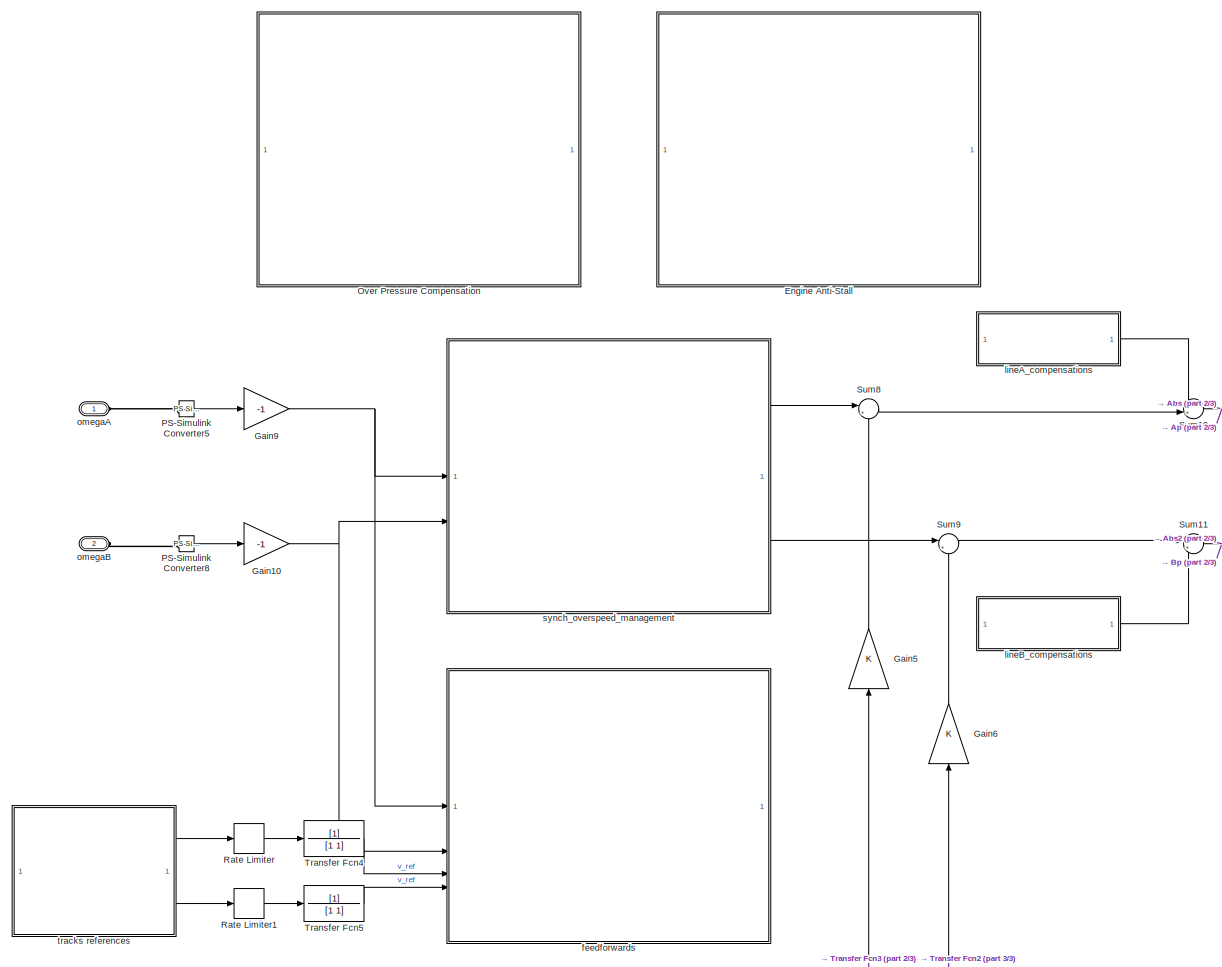
[diagram: Vehicle Control System - part 1/3, center side, full height]
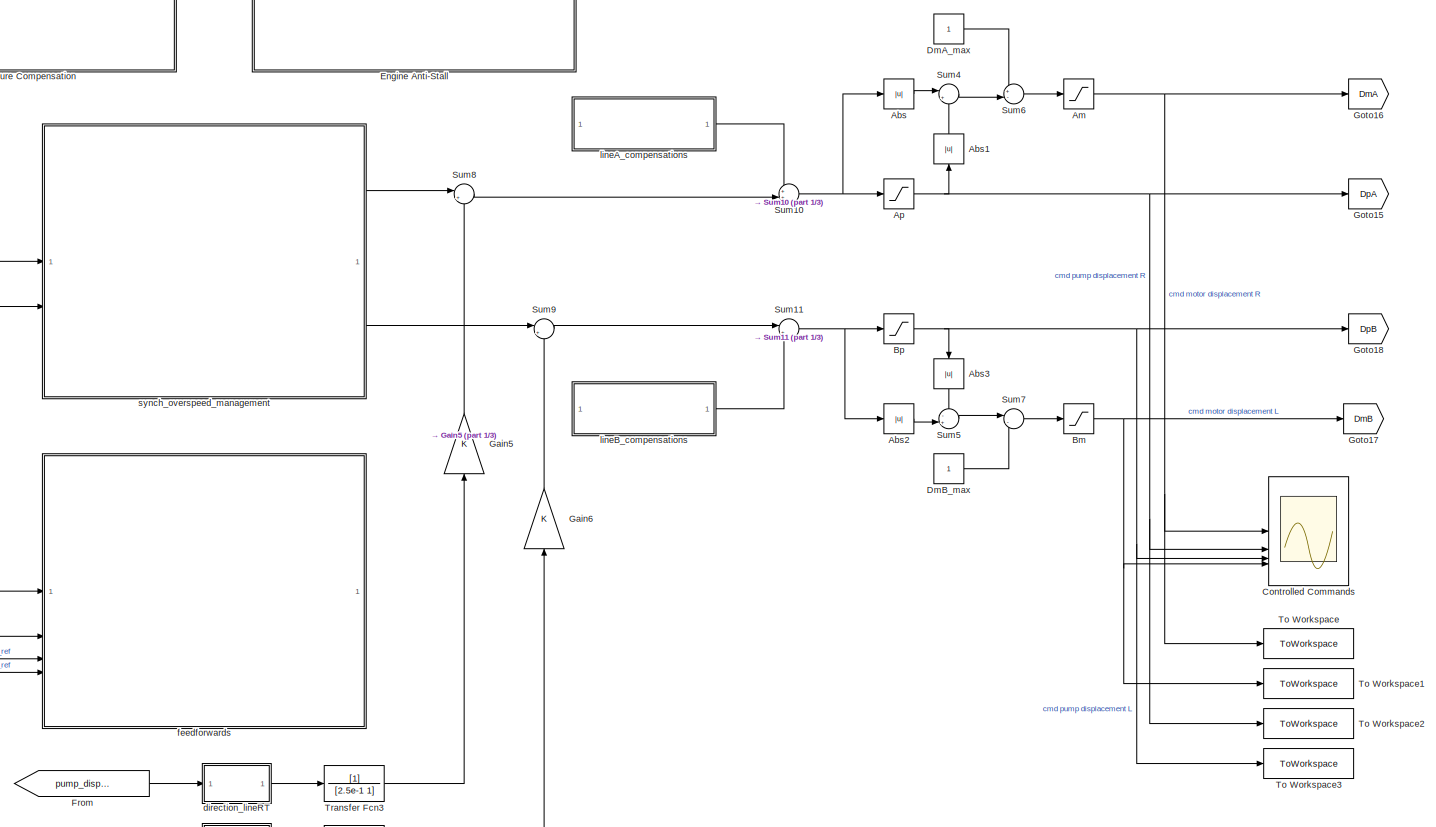
[diagram: Vehicle Control System - part 2/3, most of the canvas]
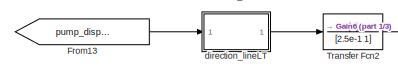
[diagram: Vehicle Control System - part 3/3, bottom left region]
BLOCK [SubSystem] Vehicle Control System
BLOCK [Abs] Vehicle Control System/Abs
  SaturateOnIntegerOverflow = off
BLOCK [Abs] Vehicle Control System/Abs1
  NameLocation = right
  SaturateOnIntegerOverflow = off
BLOCK [Abs] Vehicle Control System/Abs2
  SaturateOnIntegerOverflow = off
BLOCK [Abs] Vehicle Control System/Abs3
  NameLocation = left
  SaturateOnIntegerOverflow = off
BLOCK [Saturate] Vehicle Control System/Am
  LowerLimit = 0.36
  UpperLimit = 1
BLOCK [Saturate] Vehicle Control System/Ap
  LowerLimit = -1
  NameLocation = top
  UpperLimit = 1
BLOCK [Saturate] Vehicle Control System/Bm
  LowerLimit = 0.36
  UpperLimit = 1
BLOCK [Saturate] Vehicle Control System/Bp
  LowerLimit = -1
  UpperLimit = 1
BLOCK [Scope] Vehicle Control System/Controlled Commands
  ActiveDisplayYMaximum = 1.05071
  ActiveDisplayYMinimum = 0.54364
  DataLoggingVariableName = ScopeData5
  Floating = off
  GraphicalSettings = {"GraphicalSettings":{"LegacySettings":true,"Style":{"AxesScalingProperties":{"ScaleAxesLimitsAtStop":false},"Style":{"AxesColor":"[0 0 0]","ChannelNames":["","","",""],"ColorOrder":"[1 1 0.0666666666666667;0.0745098039215686 0.623529411764706 1;1 0.411764705882353 0.16078431372549;0.392156862745098 0.831372549019608 0.0745098039215686;0.717647058823529 0.274509803921569 1;0.0588235294117647 1 1;1...<+691ch>
  LayoutDimensionsString = [4 1]
  MultipleDisplayCache = [{"MaxYLimMag":1.05071,"MaxYLimReal":1.05071,"MinYLimMag":0.54364,"MinYLimReal":0.54364,"PlotAsMagnitudePhase":false,"ShowGrid":true,"ShowLegend":true,"Title":"%<SignalLabel>","YLabel":""},{"MaxYLimMag":1.25,"MaxYLimReal":1.25,"MinYLimMag":0,"MinYLimReal":-1.25,"PlotAsMagnitudePhase":false,"ShowGrid":true,"ShowLegend":true,"Title":"%<SignalLabel>","YLabel":""},{"MaxYLimMag":1.25,"MaxYLimReal":1.25...<+316ch>
  NumInputPorts = 4
  SampleTime = tsample
  ShowLegend = on
  WasSavedAsWebScope = on
  WindowPosition = [1918 635 963 481]
BLOCK [Constant] Vehicle Control System/DmA_max
BLOCK [Constant] Vehicle Control System/DmB_max
BLOCK [SubSystem] Vehicle Control System/Engine Anti-Stall
BLOCK [Lookup_n-D] Vehicle Control System/Engine Anti-Stall/1-D Lookup Table
  BreakpointsForDimension1 = rpm_base
  InputPortMap = u0
  InternalRulePriority = Speed
  NumberOfTableDimensions = 1
  RndMeth = Simplest
  Table = available_torque
BLOCK [Constant] Vehicle Control System/Engine Anti-Stall/Constant1
  Value = 0
BLOCK [SubSystem] Vehicle Control System/Engine Anti-Stall/Engine Overload Control
BLOCK [Gain] Vehicle Control System/Engine Anti-Stall/Engine Overload Control/1//Ti
  Gain = kp
  OutDataTypeStr = Inherit: Same as input
  ParamDataTypeStr = Inherit: Same as input
  SaturateOnIntegerOverflow = on
BLOCK [Saturate] Vehicle Control System/Engine Anti-Stall/Engine Overload Control/Saturation
  LowerLimit = sat_neg
  UpperLimit = sat_pos
BLOCK [Sum] Vehicle Control System/Engine Anti-Stall/Engine Overload Control/Sum1
  IconShape = rectangular
  Inputs = +++
  SaturateOnIntegerOverflow = on
BLOCK [Sum] Vehicle Control System/Engine Anti-Stall/Engine Overload Control/Sum2
  IconShape = rectangular
  Inputs = -+
  SaturateOnIntegerOverflow = on
BLOCK [Sum] Vehicle Control System/Engine Anti-Stall/Engine Overload Control/Sum3
  IconShape = rectangular
  Inputs = -+
  NameLocation = top
  SaturateOnIntegerOverflow = on
BLOCK [UnitDelay] Vehicle Control System/Engine Anti-Stall/Engine Overload Control/Unit Delay4
  SampleTime = tsample
BLOCK [Gain] Vehicle Control System/Engine Anti-Stall/Engine Overload Control/kp
  Gain = ki*ts
  OutDataTypeStr = Inherit: Same as input
  ParamDataTypeStr = Inherit: Same as input
  SaturateOnIntegerOverflow = on
BLOCK [Outport] Vehicle Control System/Engine Anti-Stall/Engine Overload Control/u
BLOCK [Inport] Vehicle Control System/Engine Anti-Stall/Engine Overload Control/x
BLOCK [Inport] Vehicle Control System/Engine Anti-Stall/Engine Overload Control/xref
  Port = 2
BLOCK [Scope] Vehicle Control System/Engine Anti-Stall/Engine Torque Compensation
  ActiveDisplayYMaximum = 0.05006
  ActiveDisplayYMinimum = -0.45055
  DataLoggingVariableName = ScopeData4
  Floating = off
  LayoutDimensionsString = [2 1]
  MultipleDisplayCache = [{"MaxYLimMag":0.45055,"MaxYLimReal":0.05006,"MinYLimMag":0,"MinYLimReal":-0.45055,"PlotAsMagnitudePhase":false,"ShowGrid":true,"ShowLegend":true,"Title":"%<SignalLabel>","YLabel":""},{"MaxYLimMag":0.86222,"MaxYLimReal":3545.24834,"MinYLimMag":0,"MinYLimReal":-615.47866,"PlotAsMagnitudePhase":false,"ShowGrid":true,"ShowLegend":true,"Title":"%<SignalLabel>","YLabel":""}]
  NumInputPorts = 2
  SampleTime = tsample
  ShowLegend = on
  WasSavedAsWebScope = on
  WindowPosition = [295 176 946 512]
BLOCK [From] Vehicle Control System/Engine Anti-Stall/From1
  GotoTag = omega_engine_reference
  TagVisibility = global
BLOCK [From] Vehicle Control System/Engine Anti-Stall/From3
  GotoTag = tau_e
  TagVisibility = global
BLOCK [Gain] Vehicle Control System/Engine Anti-Stall/Gain
  Gain = -1
BLOCK [Goto] Vehicle Control System/Engine Anti-Stall/Goto7
  GotoTag = compensation_engine
  TagVisibility = global
BLOCK [Sum] Vehicle Control System/Engine Anti-Stall/Sum
  Inputs = |+-
BLOCK [ToWorkspace] Vehicle Control System/Engine Anti-Stall/To Workspace
  FixptAsFi = on
  MaxDataPoints = Nc
  SampleTime = Tc
  VariableName = engine_compensation
BLOCK [ToWorkspace] Vehicle Control System/Engine Anti-Stall/To Workspace1
  FixptAsFi = on
  MaxDataPoints = Nc
  SampleTime = Tc
  VariableName = torque_engine_limit
BLOCK [TransferFcn] Vehicle Control System/Engine Anti-Stall/Transfer Fcn4
  Denominator = [1e-4 1]
BLOCK [From] Vehicle Control System/From
  GotoTag = pump_displacement_A
  TagVisibility = global
BLOCK [From] Vehicle Control System/From13
  GotoTag = pump_displacement_B
  TagVisibility = global
BLOCK [Gain] Vehicle Control System/Gain10
  Gain = -1
BLOCK [Gain] Vehicle Control System/Gain5
  NameLocation = right
BLOCK [Gain] Vehicle Control System/Gain6
  NameLocation = right
BLOCK [Gain] Vehicle Control System/Gain9
  Gain = -1
BLOCK [Goto] Vehicle Control System/Goto15
  GotoTag = DpA
  TagVisibility = global
BLOCK [Goto] Vehicle Control System/Goto16
  GotoTag = DmA
  TagVisibility = global
BLOCK [Goto] Vehicle Control System/Goto17
  GotoTag = DmB
  TagVisibility = global
BLOCK [Goto] Vehicle Control System/Goto18
  GotoTag = DpB
  TagVisibility = global
BLOCK [SubSystem] Vehicle Control System/Over Pressure Compensation
BLOCK [Abs] Vehicle Control System/Over Pressure Compensation/Abs
  SaturateOnIntegerOverflow = off
BLOCK [Abs] Vehicle Control System/Over Pressure Compensation/Abs1
  SaturateOnIntegerOverflow = off
BLOCK [From] Vehicle Control System/Over Pressure Compensation/From1
  GotoTag = dpAm
  TagVisibility = global
BLOCK [From] Vehicle Control System/Over Pressure Compensation/From6
  GotoTag = dpBm
  TagVisibility = global
BLOCK [Goto] Vehicle Control System/Over Pressure Compensation/Goto10
  GotoTag = compensation_pressureA
  TagVisibility = global
BLOCK [Goto] Vehicle Control System/Over Pressure Compensation/Goto11
  GotoTag = compensation_pressureB
  TagVisibility = global
BLOCK [Mux] Vehicle Control System/Over Pressure Compensation/Mux2
  DisplayOption = bar
  Inputs = 2
BLOCK [Scope] Vehicle Control System/Over Pressure Compensation/Pressure Compensation
  ActiveDisplayYMaximum = 0.205
  ActiveDisplayYMinimum = -1.845
  DataLoggingVariableName = ScopeData1
  Floating = off
  GraphicalSettings = {"GraphicalSettings":{"LegacySettings":true,"Style":{"AxesScalingProperties":{"ScaleAxesLimitsAtStop":false},"Style":{"AxesColor":"[0 0 0]","ChannelNames":[""],"ColorOrder":"[1 1 0.0666666666666667;0.0745098039215686 0.623529411764706 1;1 0.411764705882353 0.16078431372549;0.392156862745098 0.831372549019608 0.0745098039215686;0.717647058823529 0.274509803921569 1;0.0588235294117647 1 1;1 0.074509...<+465ch>
  MultipleDisplayCache = [{"MaxYLimMag":1.845,"MaxYLimReal":0.205,"MinYLimMag":0,"MinYLimReal":-1.845,"PlotAsMagnitudePhase":false,"ShowGrid":true,"ShowLegend":true,"Title":"%<SignalLabel>","YLabel":""}]
  NumInputPorts = 2
  SampleTime = tsample
  ShowLegend = on
  WasSavedAsWebScope = on
  WindowPosition = [1062 267 796 753]
BLOCK [SubSystem] Vehicle Control System/Over Pressure Compensation/Pressure Compensation Control A
BLOCK [Gain] Vehicle Control System/Over Pressure Compensation/Pressure Compensation Control A/1//Ti
  Gain = kp
  OutDataTypeStr = Inherit: Same as input
  ParamDataTypeStr = Inherit: Same as input
  SaturateOnIntegerOverflow = on
BLOCK [Saturate] Vehicle Control System/Over Pressure Compensation/Pressure Compensation Control A/Saturation
  LowerLimit = sat_neg
  UpperLimit = sat_pos
BLOCK [Sum] Vehicle Control System/Over Pressure Compensation/Pressure Compensation Control A/Sum1
  IconShape = rectangular
  Inputs = +++
  SaturateOnIntegerOverflow = on
BLOCK [Sum] Vehicle Control System/Over Pressure Compensation/Pressure Compensation Control A/Sum2
  IconShape = rectangular
  Inputs = -+
  SaturateOnIntegerOverflow = on
BLOCK [Sum] Vehicle Control System/Over Pressure Compensation/Pressure Compensation Control A/Sum3
  IconShape = rectangular
  Inputs = -+
  NameLocation = top
  SaturateOnIntegerOverflow = on
BLOCK [UnitDelay] Vehicle Control System/Over Pressure Compensation/Pressure Compensation Control A/Unit Delay4
  SampleTime = tsample
BLOCK [Gain] Vehicle Control System/Over Pressure Compensation/Pressure Compensation Control A/kp
  Gain = ki*ts
  OutDataTypeStr = Inherit: Same as input
  ParamDataTypeStr = Inherit: Same as input
  SaturateOnIntegerOverflow = on
BLOCK [Outport] Vehicle Control System/Over Pressure Compensation/Pressure Compensation Control A/u
BLOCK [Inport] Vehicle Control System/Over Pressure Compensation/Pressure Compensation Control A/x
BLOCK [Inport] Vehicle Control System/Over Pressure Compensation/Pressure Compensation Control A/xref
  Port = 2
BLOCK [SubSystem] Vehicle Control System/Over Pressure Compensation/Pressure Compensation Control B
BLOCK [Gain] Vehicle Control System/Over Pressure Compensation/Pressure Compensation Control B/1//Ti
  Gain = kp
  OutDataTypeStr = Inherit: Same as input
  ParamDataTypeStr = Inherit: Same as input
  SaturateOnIntegerOverflow = on
BLOCK [Saturate] Vehicle Control System/Over Pressure Compensation/Pressure Compensation Control B/Saturation
  LowerLimit = sat_neg
  UpperLimit = sat_pos
BLOCK [Sum] Vehicle Control System/Over Pressure Compensation/Pressure Compensation Control B/Sum1
  IconShape = rectangular
  Inputs = +++
  SaturateOnIntegerOverflow = on
BLOCK [Sum] Vehicle Control System/Over Pressure Compensation/Pressure Compensation Control B/Sum2
  IconShape = rectangular
  Inputs = -+
  SaturateOnIntegerOverflow = on
BLOCK [Sum] Vehicle Control System/Over Pressure Compensation/Pressure Compensation Control B/Sum3
  IconShape = rectangular
  Inputs = -+
  NameLocation = top
  SaturateOnIntegerOverflow = on
BLOCK [UnitDelay] Vehicle Control System/Over Pressure Compensation/Pressure Compensation Control B/Unit Delay4
  SampleTime = tsample
BLOCK [Gain] Vehicle Control System/Over Pressure Compensation/Pressure Compensation Control B/kp
  Gain = ki*ts
  OutDataTypeStr = Inherit: Same as input
  ParamDataTypeStr = Inherit: Same as input
  SaturateOnIntegerOverflow = on
BLOCK [Outport] Vehicle Control System/Over Pressure Compensation/Pressure Compensation Control B/u
BLOCK [Inport] Vehicle Control System/Over Pressure Compensation/Pressure Compensation Control B/x
BLOCK [Inport] Vehicle Control System/Over Pressure Compensation/Pressure Compensation Control B/xref
  Port = 2
BLOCK [ToWorkspace] Vehicle Control System/Over Pressure Compensation/To Workspace
  FixptAsFi = on
  MaxDataPoints = Nc
  SampleTime = Tc
  VariableName = dp1_compensation
BLOCK [ToWorkspace] Vehicle Control System/Over Pressure Compensation/To Workspace1
  FixptAsFi = on
  MaxDataPoints = Nc
  SampleTime = Tc
  VariableName = dp2_compensation
BLOCK [TransferFcn] Vehicle Control System/Over Pressure Compensation/Transfer Fcn1
  Denominator = [1e-4 1]
BLOCK [TransferFcn] Vehicle Control System/Over Pressure Compensation/Transfer Fcn2
  Denominator = [1e-4 1]
BLOCK [SubSystem] Vehicle Control System/Over Pressure Compensation/direction1
BLOCK [From] Vehicle Control System/Over Pressure Compensation/direction1/From
  GotoTag = direction_RT
  TagVisibility = global
BLOCK [Inport] Vehicle Control System/Over Pressure Compensation/direction1/In1
BLOCK [Outport] Vehicle Control System/Over Pressure Compensation/direction1/Out1
BLOCK [Product] Vehicle Control System/Over Pressure Compensation/direction1/Product
BLOCK [SubSystem] Vehicle Control System/Over Pressure Compensation/direction2
BLOCK [From] Vehicle Control System/Over Pressure Compensation/direction2/From
  GotoTag = direction_LT
  TagVisibility = global
BLOCK [Inport] Vehicle Control System/Over Pressure Compensation/direction2/In1
BLOCK [Outport] Vehicle Control System/Over Pressure Compensation/direction2/Out1
BLOCK [Product] Vehicle Control System/Over Pressure Compensation/direction2/Product
BLOCK [Constant] Vehicle Control System/Over Pressure Compensation/dp_max
  Value = dp_lim
BLOCK [Scope] Vehicle Control System/Over Pressure Compensation/pressure_control_lineA
  ActiveDisplayYMaximum = 480.60302
  ActiveDisplayYMinimum = -53.40034
  DataLoggingVariableName = ScopeData6
  Floating = off
  MultipleDisplayCache = [{"MaxYLimMag":480.60302,"MaxYLimReal":480.60302,"MinYLimMag":0,"MinYLimReal":-53.40034,"PlotAsMagnitudePhase":false,"ShowGrid":true,"ShowLegend":true,"Title":"%<SignalLabel>","YLabel":""}]
  NumInputPorts = 1
  SampleTime = tsample
  ShowLegend = on
  WasSavedAsWebScope = on
  WindowPosition = [1049 331 995 770]
BLOCK [Reference] Vehicle Control System/PS-Simulink Converter5  REF=nesl_utility/PS-Simulink
Converter
  SourceBlock = nesl_utility/PS-Simulink\nConverter
  SourceType = PS-Simulink\nConverter
BLOCK [Reference] Vehicle Control System/PS-Simulink Converter8  REF=nesl_utility/PS-Simulink
Converter
  SourceBlock = nesl_utility/PS-Simulink\nConverter
  SourceType = PS-Simulink\nConverter
BLOCK [RateLimiter] Vehicle Control System/Rate Limiter
  FallingSlewLimit = -v_track1_ref/4
  RisingSlewLimit = v_track1_ref/4
  SampleTimeMode = inherited
BLOCK [RateLimiter] Vehicle Control System/Rate Limiter1
  FallingSlewLimit = -v_track2_ref/4
  RisingSlewLimit = v_track2_ref/4
  SampleTimeMode = inherited
BLOCK [Sum] Vehicle Control System/Sum10
  Inputs = ++|
BLOCK [Sum] Vehicle Control System/Sum11
  Inputs = |++
BLOCK [Sum] Vehicle Control System/Sum4
  Inputs = |+-
BLOCK [Sum] Vehicle Control System/Sum5
  Inputs = -+|
  NameLocation = top
BLOCK [Sum] Vehicle Control System/Sum6
  Inputs = +-|
  NameLocation = top
BLOCK [Sum] Vehicle Control System/Sum7
  Inputs = |-+
BLOCK [Sum] Vehicle Control System/Sum8
  Inputs = |++
BLOCK [Sum] Vehicle Control System/Sum9
  Inputs = |++
BLOCK [ToWorkspace] Vehicle Control System/To Workspace
  FixptAsFi = on
  MaxDataPoints = Nc
  SampleTime = Tc
  VariableName = dmR
BLOCK [ToWorkspace] Vehicle Control System/To Workspace1
  FixptAsFi = on
  MaxDataPoints = Nc
  SampleTime = Tc
  VariableName = dmL
BLOCK [ToWorkspace] Vehicle Control System/To Workspace2
  FixptAsFi = on
  MaxDataPoints = Nc
  SampleTime = Tc
  VariableName = dpR
BLOCK [ToWorkspace] Vehicle Control System/To Workspace3
  FixptAsFi = on
  MaxDataPoints = Nc
  SampleTime = Tc
  VariableName = dpL
BLOCK [TransferFcn] Vehicle Control System/Transfer Fcn2
  Denominator = [2.5e-1 1]
BLOCK [TransferFcn] Vehicle Control System/Transfer Fcn3
  Denominator = [2.5e-1 1]
BLOCK [TransferFcn] Vehicle Control System/Transfer Fcn4
  Denominator = [1 1]
BLOCK [TransferFcn] Vehicle Control System/Transfer Fcn5
  Denominator = [1 1]
BLOCK [SubSystem] Vehicle Control System/direction_lineLT
BLOCK [Abs] Vehicle Control System/direction_lineLT/Abs1
  SaturateOnIntegerOverflow = off
BLOCK [From] Vehicle Control System/direction_lineLT/From
  GotoTag = direction_LT
  TagVisibility = global
BLOCK [Inport] Vehicle Control System/direction_lineLT/In1
BLOCK [Outport] Vehicle Control System/direction_lineLT/Out1
BLOCK [Product] Vehicle Control System/direction_lineLT/Product
BLOCK [SubSystem] Vehicle Control System/direction_lineRT
BLOCK [Abs] Vehicle Control System/direction_lineRT/Abs
  SaturateOnIntegerOverflow = off
BLOCK [From] Vehicle Control System/direction_lineRT/From
  GotoTag = direction_RT
  TagVisibility = global
BLOCK [Inport] Vehicle Control System/direction_lineRT/In1
BLOCK [Outport] Vehicle Control System/direction_lineRT/Out1
BLOCK [Product] Vehicle Control System/direction_lineRT/Product
BLOCK [SubSystem] Vehicle Control System/feedforwards
BLOCK [Constant] Vehicle Control System/feedforwards/Constant
  Value = eta_v_p
BLOCK [Constant] Vehicle Control System/feedforwards/Constant1
  Value = eta_v_p
BLOCK [Constant] Vehicle Control System/feedforwards/Constant2
  Value = eta_v_m
BLOCK [Constant] Vehicle Control System/feedforwards/Constant3
  Value = eta_v_m
BLOCK [Fcn] Vehicle Control System/feedforwards/Fcn
  Expr = u/3.6/R_tg/(2*pi)*60
BLOCK [Fcn] Vehicle Control System/feedforwards/Fcn1
  Expr = u/3.6/R_tg/(2*pi)*60
BLOCK [Fcn] Vehicle Control System/feedforwards/Fcn4
  Expr = u*R_tg*3.6/60*2*pi
BLOCK [Fcn] Vehicle Control System/feedforwards/Fcn5
  Expr = u*R_tg*3.6/60*2*pi
BLOCK [From] Vehicle Control System/feedforwards/From1
  GotoTag = omega_engine_reference
  TagVisibility = global
BLOCK [Gain] Vehicle Control System/feedforwards/Gain11
  Gain = 1/omega_l_max_rpm
BLOCK [Goto] Vehicle Control System/feedforwards/Goto1
  GotoTag = direction_RT
  TagVisibility = global
BLOCK [Goto] Vehicle Control System/feedforwards/Goto13
  GotoTag = direction_LT
  TagVisibility = global
BLOCK [Goto] Vehicle Control System/feedforwards/Goto14
  GotoTag = direction_SUM
  TagVisibility = global
BLOCK [Goto] Vehicle Control System/feedforwards/Goto5
  GotoTag = pump_displacement_A
  TagVisibility = global
BLOCK [Goto] Vehicle Control System/feedforwards/Goto6
  GotoTag = pump_displacement_B
  TagVisibility = global
BLOCK [Goto] Vehicle Control System/feedforwards/Goto9
  GotoTag = steering_reference
  TagVisibility = global
BLOCK [Mux] Vehicle Control System/feedforwards/Mux2
  DisplayOption = bar
  Inputs = 2
BLOCK [Mux] Vehicle Control System/feedforwards/Mux3
  DisplayOption = bar
  Inputs = 2
BLOCK [Signum] Vehicle Control System/feedforwards/Sign1
BLOCK [Signum] Vehicle Control System/feedforwards/Sign2
BLOCK [Signum] Vehicle Control System/feedforwards/Sign3
BLOCK [Sum] Vehicle Control System/feedforwards/Sum12
  Inputs = |++
BLOCK [Sum] Vehicle Control System/feedforwards/Sum13
  Inputs = |+-
  NameLocation = top
BLOCK [ToWorkspace] Vehicle Control System/feedforwards/To Workspace
  FixptAsFi = on
  MaxDataPoints = Nc
  SampleTime = Tc
  VariableName = v_ref_track_L
BLOCK [ToWorkspace] Vehicle Control System/feedforwards/To Workspace1
  FixptAsFi = on
  MaxDataPoints = Nc
  SampleTime = Tc
  VariableName = v_ref_track_R
BLOCK [ToWorkspace] Vehicle Control System/feedforwards/To Workspace2
  FixptAsFi = on
  MaxDataPoints = Nc
  SampleTime = Tc
  VariableName = v_track_L
BLOCK [ToWorkspace] Vehicle Control System/feedforwards/To Workspace3
  FixptAsFi = on
  MaxDataPoints = Nc
  SampleTime = Tc
  VariableName = v_track_R
BLOCK [SubSystem] Vehicle Control System/feedforwards/Volumetric displacements calculation
  ErrorFcn = Stateflow.Translate.translate
  PermitHierarchicalResolution = ExplicitOnly
  SFBlockType = MATLAB Function
  TreatAsAtomicUnit = on
BLOCK [Demux] Vehicle Control System/feedforwards/Volumetric displacements calculation/ Demux 
  Outputs = 1
BLOCK [S-Function] Vehicle Control System/feedforwards/Volumetric displacements calculation/ SFunction 
  EnableBusSupport = off
  FunctionName = sf_sfun
  PortCounts = [7 5]
  SFcnIsStateOwnerBlock = off
  SFunctionDeploymentMode = off
  Tag = Stateflow S-Function 2
BLOCK [Terminator] Vehicle Control System/feedforwards/Volumetric displacements calculation/ Terminator 
BLOCK [Outport] Vehicle Control System/feedforwards/Volumetric displacements calculation/Vd_p_L
  Port = 2
BLOCK [Outport] Vehicle Control System/feedforwards/Volumetric displacements calculation/Vd_p_R
BLOCK [Inport] Vehicle Control System/feedforwards/Volumetric displacements calculation/eta_vol_motor_left
  Port = 7
BLOCK [Inport] Vehicle Control System/feedforwards/Volumetric displacements calculation/eta_vol_motor_right
  Port = 6
BLOCK [Inport] Vehicle Control System/feedforwards/Volumetric displacements calculation/eta_vol_pump_left
  Port = 5
BLOCK [Inport] Vehicle Control System/feedforwards/Volumetric displacements calculation/eta_vol_pump_right
  Port = 4
BLOCK [Inport] Vehicle Control System/feedforwards/Volumetric displacements calculation/omega_e_rpm_ref
BLOCK [Inport] Vehicle Control System/feedforwards/Volumetric displacements calculation/v_track1_ref
  Port = 2
BLOCK [Outport] Vehicle Control System/feedforwards/Volumetric displacements calculation/v_track1_ref_cond
  Port = 3
BLOCK [Inport] Vehicle Control System/feedforwards/Volumetric displacements calculation/v_track2_ref
  Port = 3
BLOCK [Outport] Vehicle Control System/feedforwards/Volumetric displacements calculation/v_track2_ref_cond
  Port = 4
BLOCK [Inport] Vehicle Control System/feedforwards/omega_l_L
  Port = 2
BLOCK [Inport] Vehicle Control System/feedforwards/omega_l_R
BLOCK [Scope] Vehicle Control System/feedforwards/track_speed_tracking1
  ActiveDisplayYMaximum = 12.89313
  ActiveDisplayYMinimum = -10.32146
  DataLoggingVariableName = ScopeData1
  Floating = off
  MultipleDisplayCache = [{"MaxYLimMag":12.89313,"MaxYLimReal":12.89313,"MinYLimMag":0,"MinYLimReal":-10.32146,"PlotAsMagnitudePhase":false,"ShowGrid":true,"ShowLegend":true,"Title":"%<SignalLabel>","YLabel":""}]
  NumInputPorts = 1
  SampleTime = tsample
  ShowLegend = on
  WasSavedAsWebScope = on
  WindowPosition = [293 290 734 752]
BLOCK [Scope] Vehicle Control System/feedforwards/track_speed_tracking2
  ActiveDisplayYMaximum = 13.84367
  ActiveDisplayYMinimum = -13.84367
  DataLoggingVariableName = ScopeData2
  Floating = off
  MultipleDisplayCache = [{"MaxYLimMag":13.84367,"MaxYLimReal":13.84367,"MinYLimMag":0,"MinYLimReal":-13.84367,"PlotAsMagnitudePhase":false,"ShowGrid":true,"ShowLegend":true,"Title":"%<SignalLabel>","YLabel":""}]
  NumInputPorts = 1
  SampleTime = tsample
  ShowLegend = on
  WasSavedAsWebScope = on
  WindowPosition = [283 80 734 752]
BLOCK [Scope] Vehicle Control System/feedforwards/track_speeds
  ActiveDisplayYMaximum = 12.82201
  ActiveDisplayYMinimum = -9.04097
  DataLoggingVariableName = ScopeData3
  Floating = off
  GraphicalSettings = {"GraphicalSettings":{"LegacySettings":true,"Style":{"AxesScalingProperties":{"ScaleAxesLimitsAtStop":false},"Style":{"AxesColor":"[0 0 0]","ChannelNames":["",""],"ColorOrder":"[1 1 0.0666666666666667;0.0745098039215686 0.623529411764706 1;1 0.411764705882353 0.16078431372549;0.392156862745098 0.831372549019608 0.0745098039215686;0.717647058823529 0.274509803921569 1;0.0588235294117647 1 1;1 0.074...<+587ch>
  LayoutDimensionsString = [2 1]
  MultipleDisplayCache = [{"MaxYLimMag":12.82201,"MaxYLimReal":12.82201,"MinYLimMag":0,"MinYLimReal":-9.04097,"PlotAsMagnitudePhase":false,"ShowGrid":true,"ShowLegend":true,"Title":"%<SignalLabel>","YLabel":""},{"MaxYLimMag":7.80562,"MaxYLimReal":4.80637,"MinYLimMag":0,"MinYLimReal":-4.00534,"PlotAsMagnitudePhase":false,"ShowGrid":true,"ShowLegend":true,"Title":"%<SignalLabel>","YLabel":""}]
  NumInputPorts = 2
  SampleTime = tsample
  ShowLegend = on
  WasSavedAsWebScope = on
  WindowPosition = [1131 357 734 752]
BLOCK [Scope] Vehicle Control System/feedforwards/track_speeds_all
  ActiveDisplayYMaximum = 10.35769
  ActiveDisplayYMinimum = -10.03974
  DataLoggingVariableName = ScopeData1
  Floating = off
  GraphicalSettings = {"GraphicalSettings":{"LegacySettings":true,"Style":{"AxesScalingProperties":{"ScaleAxesLimitsAtStop":false},"Style":{"AxesColor":"[0 0 0]","ChannelNames":["",""],"ColorOrder":"[1 1 0.0666666666666667;0.0745098039215686 0.623529411764706 1;1 0.411764705882353 0.16078431372549;0.392156862745098 0.831372549019608 0.0745098039215686;0.717647058823529 0.274509803921569 1;0.0588235294117647 1 1;1 0.074...<+627ch>
  LayoutDimensionsString = [2 1]
  MultipleDisplayCache = [{"MaxYLimMag":9.35893,"MaxYLimReal":10.35769,"MinYLimMag":0,"MinYLimReal":-10.03974,"PlotAsMagnitudePhase":false,"ShowGrid":true,"ShowLegend":true,"Title":"%<SignalLabel>","YLabel":""},{"MaxYLimMag":10.35098,"MaxYLimReal":10.35098,"MinYLimMag":0,"MinYLimReal":-10.039,"PlotAsMagnitudePhase":false,"ShowGrid":true,"ShowLegend":true,"Title":"%<SignalLabel>","YLabel":""}]
  NumInputPorts = 2
  SampleTime = tsample
  ShowLegend = on
  WasSavedAsWebScope = on
  WindowPosition = [507 248 949 480]
BLOCK [Inport] Vehicle Control System/feedforwards/v_ref_1
  Port = 3
BLOCK [Inport] Vehicle Control System/feedforwards/v_ref_2
  Port = 4
BLOCK [SubSystem] Vehicle Control System/lineA_compensations
BLOCK [Abs] Vehicle Control System/lineA_compensations/Abs
  SaturateOnIntegerOverflow = off
BLOCK [From] Vehicle Control System/lineA_compensations/From10
  GotoTag = compensation_engine
  TagVisibility = global
BLOCK [From] Vehicle Control System/lineA_compensations/From12
  GotoTag = compensation_pressureA
  TagVisibility = global
BLOCK [From] Vehicle Control System/lineA_compensations/From14
  GotoTag = pump_displacement_A
  TagVisibility = global
BLOCK [Gain] Vehicle Control System/lineA_compensations/Gain7
  Gain = -1
BLOCK [Reference] Vehicle Control System/lineA_compensations/Saturation Dynamic  REF=sl_discontinuities/Saturation
Dynamic
  SourceBlock = sl_discontinuities/Saturation\nDynamic
  SourceType = Saturation Dynamic
BLOCK [Sum] Vehicle Control System/lineA_compensations/Sum13
  Inputs = ++|
BLOCK [Scope] Vehicle Control System/lineA_compensations/compRT
  ActiveDisplayYMaximum = 1.73756
  ActiveDisplayYMinimum = -1.73756
  DataLoggingVariableName = ScopeData4
  Floating = off
  GraphicalSettings = {"GraphicalSettings":{"LegacySettings":true,"Style":{"AxesScalingProperties":{"ScaleAxesLimitsAtStop":false},"Style":{"AxesColor":"[0 0 0]","ChannelNames":[""],"ColorOrder":"[1 1 0.0666666666666667;0.0745098039215686 0.623529411764706 1;1 0.411764705882353 0.16078431372549;0.392156862745098 0.831372549019608 0.0745098039215686;0.717647058823529 0.274509803921569 1;0.0588235294117647 1 1;1 0.074509...<+537ch>  <repeated x4 — deduplicated; at blocks: compRT, compLT, SR vs MSC, tracking_sum>
  MultipleDisplayCache = [{"MaxYLimMag":1.73756,"MaxYLimReal":1.73756,"MinYLimMag":0,"MinYLimReal":-1.73756,"PlotAsMagnitudePhase":false,"ShowGrid":true,"ShowLegend":true,"Title":"%<SignalLabel>","YLabel":""}]
  NumInputPorts = 2
  SampleTime = tsample
  ShowLegend = on
  WasSavedAsWebScope = on
  WindowPosition = [2080 463 1197 643]
BLOCK [SubSystem] Vehicle Control System/lineA_compensations/direction_RT
BLOCK [Outport] Vehicle Control System/lineA_compensations/direction_RT/ETComp
BLOCK [From] Vehicle Control System/lineA_compensations/direction_RT/From
  GotoTag = direction_RT
  TagVisibility = global
BLOCK [Inport] Vehicle Control System/lineA_compensations/direction_RT/In1
BLOCK [Product] Vehicle Control System/lineA_compensations/direction_RT/Product
BLOCK [Outport] Vehicle Control System/lineA_compensations/displacement_compensation
BLOCK [SubSystem] Vehicle Control System/lineB_compensations 
BLOCK [Abs] Vehicle Control System/lineB_compensations /Abs
  SaturateOnIntegerOverflow = off
BLOCK [From] Vehicle Control System/lineB_compensations /From11
  GotoTag = compensation_pressureB
  TagVisibility = global
BLOCK [From] Vehicle Control System/lineB_compensations /From13
  GotoTag = pump_displacement_B
  TagVisibility = global
BLOCK [From] Vehicle Control System/lineB_compensations /From9
  GotoTag = compensation_engine
  TagVisibility = global
BLOCK [Gain] Vehicle Control System/lineB_compensations /Gain7
  Gain = -1
BLOCK [Reference] Vehicle Control System/lineB_compensations /Saturation Dynamic  REF=sl_discontinuities/Saturation
Dynamic
  SourceBlock = sl_discontinuities/Saturation\nDynamic
  SourceType = Saturation Dynamic
BLOCK [Sum] Vehicle Control System/lineB_compensations /Sum12
  Inputs = |++
BLOCK [Scope] Vehicle Control System/lineB_compensations /compLT
  ActiveDisplayYMaximum = 1.80203
  ActiveDisplayYMinimum = -1.80203
  DataLoggingVariableName = ScopeData5
  Floating = off
  MultipleDisplayCache = [{"MaxYLimMag":1.80203,"MaxYLimReal":1.80203,"MinYLimMag":0,"MinYLimReal":-1.80203,"PlotAsMagnitudePhase":false,"ShowGrid":true,"ShowLegend":true,"Title":"%<SignalLabel>","YLabel":""}]
  NumInputPorts = 2
  SampleTime = tsample
  ShowLegend = on
  WasSavedAsWebScope = on
  WindowPosition = [2255 283 1197 643]
BLOCK [SubSystem] Vehicle Control System/lineB_compensations /direction_LT
BLOCK [Outport] Vehicle Control System/lineB_compensations /direction_LT/ETComp
BLOCK [From] Vehicle Control System/lineB_compensations /direction_LT/From
  GotoTag = direction_LT
  TagVisibility = global
BLOCK [Inport] Vehicle Control System/lineB_compensations /direction_LT/In1
BLOCK [Product] Vehicle Control System/lineB_compensations /direction_LT/Product
BLOCK [Outport] Vehicle Control System/lineB_compensations /displacement_compensation
BLOCK [PMIOPort] Vehicle Control System/omegaA
  Side = Left
BLOCK [PMIOPort] Vehicle Control System/omegaB
  Port = 2
  Side = Left
BLOCK [SubSystem] Vehicle Control System/synch_overspeed_management
BLOCK [Abs] Vehicle Control System/synch_overspeed_management/Abs4
  SaturateOnIntegerOverflow = off
BLOCK [Fcn] Vehicle Control System/synch_overspeed_management/Fcn2
  Expr = u*(1/60*2*pi*R_tg*3.6)
BLOCK [Fcn] Vehicle Control System/synch_overspeed_management/Fcn3
  Expr = u*(1/60*2*pi*R_tg*3.6)
BLOCK [From] Vehicle Control System/synch_overspeed_management/From14
  GotoTag = steering_reference
  TagVisibility = global
BLOCK [Gain] Vehicle Control System/synch_overspeed_management/Gain1
  Gain = 1/2
BLOCK [Gain] Vehicle Control System/synch_overspeed_management/Gain2
  Gain = 1/omega_l_max_rpm
BLOCK [Gain] Vehicle Control System/synch_overspeed_management/Gain3
  Gain = 1/omega_l_max_rpm
BLOCK [Gain] Vehicle Control System/synch_overspeed_management/Gain4
  Gain = 1/2
BLOCK [Inport] Vehicle Control System/synch_overspeed_management/In1
BLOCK [Inport] Vehicle Control System/synch_overspeed_management/In2
  Port = 2
BLOCK [SubSystem] Vehicle Control System/synch_overspeed_management/Maximum Speed Control
BLOCK [Gain] Vehicle Control System/synch_overspeed_management/Maximum Speed Control/1//Ti
  Gain = kp
  OutDataTypeStr = Inherit: Same as input
  ParamDataTypeStr = Inherit: Same as input
  SaturateOnIntegerOverflow = on
BLOCK [Saturate] Vehicle Control System/synch_overspeed_management/Maximum Speed Control/Saturation
  LowerLimit = sat_neg
  UpperLimit = sat_pos
BLOCK [Sum] Vehicle Control System/synch_overspeed_management/Maximum Speed Control/Sum1
  IconShape = rectangular
  Inputs = +++
  SaturateOnIntegerOverflow = on
BLOCK [Sum] Vehicle Control System/synch_overspeed_management/Maximum Speed Control/Sum2
  IconShape = rectangular
  Inputs = -+
  SaturateOnIntegerOverflow = on
BLOCK [Sum] Vehicle Control System/synch_overspeed_management/Maximum Speed Control/Sum3
  IconShape = rectangular
  Inputs = -+
  NameLocation = top
  SaturateOnIntegerOverflow = on
BLOCK [UnitDelay] Vehicle Control System/synch_overspeed_management/Maximum Speed Control/Unit Delay4
  SampleTime = ts
BLOCK [SubSystem] Vehicle Control System/synch_overspeed_management/Maximum Speed Control/direction_lineA
BLOCK [From] Vehicle Control System/synch_overspeed_management/Maximum Speed Control/direction_lineA/From
  GotoTag = direction_SUM
  TagVisibility = global
BLOCK [Inport] Vehicle Control System/synch_overspeed_management/Maximum Speed Control/direction_lineA/In1
BLOCK [Product] Vehicle Control System/synch_overspeed_management/Maximum Speed Control/direction_lineA/Product
BLOCK [Outport] Vehicle Control System/synch_overspeed_management/Maximum Speed Control/direction_lineA/u
BLOCK [Gain] Vehicle Control System/synch_overspeed_management/Maximum Speed Control/kp
  Gain = ki*tsample
  OutDataTypeStr = Inherit: Same as input
  ParamDataTypeStr = Inherit: Same as input
  SaturateOnIntegerOverflow = on
BLOCK [Outport] Vehicle Control System/synch_overspeed_management/Maximum Speed Control/u
BLOCK [Inport] Vehicle Control System/synch_overspeed_management/Maximum Speed Control/x
BLOCK [Inport] Vehicle Control System/synch_overspeed_management/Maximum Speed Control/xref
  Port = 2
BLOCK [Mux] Vehicle Control System/synch_overspeed_management/Mux
  DisplayOption = bar
  Inputs = 2
BLOCK [Mux] Vehicle Control System/synch_overspeed_management/Mux1
  DisplayOption = bar
  Inputs = 2
BLOCK [Mux] Vehicle Control System/synch_overspeed_management/Mux5
  DisplayOption = bar
  Inputs = 2
BLOCK [Mux] Vehicle Control System/synch_overspeed_management/Mux7
  DisplayOption = bar
  Inputs = 2
BLOCK [Outport] Vehicle Control System/synch_overspeed_management/Out1
BLOCK [Outport] Vehicle Control System/synch_overspeed_management/Out2
  Port = 2
BLOCK [Scope] Vehicle Control System/synch_overspeed_management/SR vs MSC
  ActiveDisplayYMaximum = 0.02189
  ActiveDisplayYMinimum = -0.19705
  DataLoggingVariableName = ScopeData6
  Floating = off
  MultipleDisplayCache = [{"MaxYLimMag":0.19705,"MaxYLimReal":0.02189,"MinYLimMag":0,"MinYLimReal":-0.19705,"PlotAsMagnitudePhase":false,"ShowGrid":true,"ShowLegend":true,"Title":"%<SignalLabel>","YLabel":""}]
  NumInputPorts = 2
  SampleTime = tsample
  ShowLegend = on
  WasSavedAsWebScope = on
  WindowPosition = [178 300 1642 628]
BLOCK [SubSystem] Vehicle Control System/synch_overspeed_management/Steering Reference Control
BLOCK [Gain] Vehicle Control System/synch_overspeed_management/Steering Reference Control/1//Ti
  Gain = kp
  OutDataTypeStr = Inherit: Same as input
  ParamDataTypeStr = Inherit: Same as input
  SaturateOnIntegerOverflow = on
BLOCK [Saturate] Vehicle Control System/synch_overspeed_management/Steering Reference Control/Saturation
  LowerLimit = sat_neg
  UpperLimit = sat_pos
BLOCK [Sum] Vehicle Control System/synch_overspeed_management/Steering Reference Control/Sum1
  IconShape = rectangular
  Inputs = +++
  SaturateOnIntegerOverflow = on
BLOCK [Sum] Vehicle Control System/synch_overspeed_management/Steering Reference Control/Sum2
  IconShape = rectangular
  Inputs = -+
  SaturateOnIntegerOverflow = on
BLOCK [Sum] Vehicle Control System/synch_overspeed_management/Steering Reference Control/Sum3
  IconShape = rectangular
  Inputs = -+
  NameLocation = top
  SaturateOnIntegerOverflow = on
BLOCK [UnitDelay] Vehicle Control System/synch_overspeed_management/Steering Reference Control/Unit Delay4
  SampleTime = tsample
BLOCK [Gain] Vehicle Control System/synch_overspeed_management/Steering Reference Control/kp
  Gain = ki*ts
  OutDataTypeStr = Inherit: Same as input
  ParamDataTypeStr = Inherit: Same as input
  SaturateOnIntegerOverflow = on
BLOCK [Outport] Vehicle Control System/synch_overspeed_management/Steering Reference Control/u
BLOCK [Inport] Vehicle Control System/synch_overspeed_management/Steering Reference Control/x
BLOCK [Inport] Vehicle Control System/synch_overspeed_management/Steering Reference Control/xref
  Port = 2
BLOCK [Sum] Vehicle Control System/synch_overspeed_management/Sum
  Inputs = |++
BLOCK [Sum] Vehicle Control System/synch_overspeed_management/Sum1
  Inputs = |+-
BLOCK [Sum] Vehicle Control System/synch_overspeed_management/Sum2
  Inputs = |++
BLOCK [Sum] Vehicle Control System/synch_overspeed_management/Sum3
  Inputs = -+|
BLOCK [TransferFcn] Vehicle Control System/synch_overspeed_management/Transfer Fcn
  Denominator = [1e-4 1]
BLOCK [TransferFcn] Vehicle Control System/synch_overspeed_management/Transfer Fcn1
  Denominator = [1e-4 1]
BLOCK [Constant] Vehicle Control System/synch_overspeed_management/maximum_speed
  Value = 2
BLOCK [Scope] Vehicle Control System/synch_overspeed_management/omega_driver_gears
  ActiveDisplayYMaximum = 54.18854
  ActiveDisplayYMinimum = -6.02402
  DataLoggingVariableName = ScopeData5
  Floating = off
  MultipleDisplayCache = [{"MaxYLimMag":54.18854,"MaxYLimReal":54.18854,"MinYLimMag":0,"MinYLimReal":-6.02402,"PlotAsMagnitudePhase":false,"ShowGrid":true,"ShowLegend":true,"Title":"%<SignalLabel>","YLabel":""}]
  NumInputPorts = 1
  SampleTime = tsample
  ShowLegend = on
  WasSavedAsWebScope = on
  WindowPosition = [401 56 734 752]
BLOCK [Scope] Vehicle Control System/synch_overspeed_management/tracking_diff
  ActiveDisplayYMaximum = 1.2E-13
  ActiveDisplayYMinimum = -1.6E-13
  DataLoggingVariableName = ScopeData2
  Floating = off
  GraphicalSettings = {"GraphicalSettings":{"LegacySettings":true,"Style":{"AxesScalingProperties":{"ScaleAxesLimitsAtStop":false},"Style":{"AxesColor":"[0 0 0]","ChannelNames":[""],"ColorOrder":"[1 1 0.0666666666666667;0.0745098039215686 0.623529411764706 1;1 0.411764705882353 0.16078431372549;0.392156862745098 0.831372549019608 0.0745098039215686;0.717647058823529 0.274509803921569 1;0.0588235294117647 1 1;1 0.074509...<+534ch>
  MultipleDisplayCache = [{"MaxYLimMag":1.6E-13,"MaxYLimReal":1.2E-13,"MinYLimMag":0,"MinYLimReal":-1.6E-13,"PlotAsMagnitudePhase":false,"ShowGrid":true,"ShowLegend":true,"Title":"%<SignalLabel>","YLabel":""}]
  NumInputPorts = 1
  SampleTime = tsample
  ShowLegend = on
  WasSavedAsWebScope = on
  WindowPosition = [170 111 1197 643]
BLOCK [Scope] Vehicle Control System/synch_overspeed_management/tracking_sum
  ActiveDisplayYMaximum = 2.25917
  ActiveDisplayYMinimum = -0.33251
  DataLoggingVariableName = ScopeData1
  Floating = off
  MultipleDisplayCache = [{"MaxYLimMag":2.25917,"MaxYLimReal":2.25917,"MinYLimMag":0,"MinYLimReal":-0.33251,"PlotAsMagnitudePhase":false,"ShowGrid":true,"ShowLegend":true,"Title":"%<SignalLabel>","YLabel":""}]
  NumInputPorts = 1
  SampleTime = tsample
  ShowLegend = on
  WasSavedAsWebScope = on
  WindowPosition = [332 234 1198 642]
BLOCK [Scope] Vehicle Control System/synch_overspeed_management/v_tracks
  ActiveDisplayYMaximum = 8.90333
  ActiveDisplayYMinimum = -0.98977
  DataLoggingVariableName = ScopeData1
  Floating = off
  MultipleDisplayCache = [{"MaxYLimMag":8.90333,"MaxYLimReal":8.90333,"MinYLimMag":0,"MinYLimReal":-0.98977,"PlotAsMagnitudePhase":false,"ShowGrid":true,"ShowLegend":true,"Title":"%<SignalLabel>","YLabel":""}]
  NumInputPorts = 1
  SampleTime = tsample
  ShowLegend = on
  WasSavedAsWebScope = on
  WindowPosition = [413 56 711 752]
BLOCK [SubSystem] Vehicle Control System/tracks references
BLOCK [ManualSwitch] Vehicle Control System/tracks references/Manual Switch
BLOCK [ManualSwitch] Vehicle Control System/tracks references/Manual Switch1
  CurrentSetting = 0
BLOCK [Reference] Vehicle Control System/tracks references/Repeating Sequence Stair1  REF=simulink/Sources/Repeating
Sequence
Stair
  SourceBlock = simulink/Sources/Repeating\nSequence\nStair
  SourceType = Repeating Sequence Stair
BLOCK [Reference] Vehicle Control System/tracks references/Repeating Sequence Stair2  REF=simulink/Sources/Repeating
Sequence
Stair
  SourceBlock = simulink/Sources/Repeating\nSequence\nStair
  SourceType = Repeating Sequence Stair
BLOCK [Sum] Vehicle Control System/tracks references/Sum
  Inputs = |++
BLOCK [Sum] Vehicle Control System/tracks references/Sum1
  Inputs = ++|
BLOCK [Outport] Vehicle Control System/tracks references/speed_track_1_ref
BLOCK [Outport] Vehicle Control System/tracks references/speed_track_2_ref
  Port = 2
BLOCK [Step] Vehicle Control System/tracks references/v_track1_ref
  FinalValue = v_track1_ref
  SampleTime = 0
  Time = 10
BLOCK [Step] Vehicle Control System/tracks references/v_track1_ref1
  FinalValue = -2*v_track1_ref
  SampleTime = 0
  Time = simulation_length/2
BLOCK [Step] Vehicle Control System/tracks references/v_track2_ref
  FinalValue = v_track2_ref
  SampleTime = 0
  Time = 10
BLOCK [Step] Vehicle Control System/tracks references/v_track2_ref1
  FinalValue = -2*v_track2_ref
  SampleTime = 0
  Time = simulation_length/2
BLOCK [SubSystem] external_load
BLOCK [Product] external_load/Product1
BLOCK [Product] external_load/Product3
BLOCK [Constant] external_load/Q1
  Value = -1
BLOCK [Constant] external_load/Q2
  Value = -1
BLOCK [SubSystem] external_load/loadA
BLOCK [Outport] external_load/loadA/Out1
BLOCK [RateLimiter] external_load/loadA/Rate Limiter
  FallingSlewLimit = -tau_load_max/5
  RisingSlewLimit = tau_load_max/5
  SampleTimeMode = inherited
BLOCK [Saturate] external_load/loadA/Saturation
  LowerLimit = -abs(tau_load)
  UpperLimit = abs(tau_load)
BLOCK [Step] external_load/loadA/Step
  FinalValue = tau_load
  SampleTime = 0
  Time = 5
BLOCK [Outport] external_load/loadA_out
BLOCK [SubSystem] external_load/loadB
BLOCK [Outport] external_load/loadB/Out1
BLOCK [RateLimiter] external_load/loadB/Rate Limiter
  FallingSlewLimit = -tau_load_max/5
  RisingSlewLimit = tau_load_max/5
  SampleTimeMode = inherited
BLOCK [Saturate] external_load/loadB/Saturation
  LowerLimit = -abs(tau_load)
  UpperLimit = abs(tau_load)
BLOCK [Step] external_load/loadB/Step
  FinalValue = tau_load
  SampleTime = 0
  Time = 5
BLOCK [Outport] external_load/loadB_out
  Port = 2
LINE Clock:1 -> To Workspace:1
LINE Constant:1 -> Goto10:1
LINE PR776_powertrain/Demux1:1 -> PR776_powertrain/engine_consumption:1
LINE PR776_powertrain/Demux1:2 -> PR776_powertrain/engine_consumption:2
NET PR776_powertrain/Demux:1 -> PR776_powertrain/Mux:1, PR776_powertrain/To Workspace:1
NET PR776_powertrain/Demux:2 -> PR776_powertrain/Goto6:1, PR776_powertrain/Mux:2, PR776_powertrain/To Workspace1:1
NET PR776_powertrain/Demux:3 -> PR776_powertrain/Mux:3, PR776_powertrain/To Workspace2:1
LINE PR776_powertrain/Demux:4 -> PR776_powertrain/Mux:4
NET PR776_powertrain/Engine_D9512:1 -> PR776_powertrain/Selector1:1, PR776_powertrain/Selector:1, PR776_powertrain/To Workspace4:1
NET PR776_powertrain/From6:1 -> PR776_powertrain/Engine_D9512:1, PR776_powertrain/To Workspace5:1
LINE PR776_powertrain/Hydrostatic_powertrain/Mux1:1 -> PR776_powertrain/Hydrostatic_powertrain/hydro_lines:2
NET PR776_powertrain/Hydrostatic_powertrain/Mux2:1 -> PR776_powertrain/Hydrostatic_powertrain/hydro_lines12:1, PR776_powertrain/Hydrostatic_powertrain/hydro_lines:1
LINE PR776_powertrain/Hydrostatic_powertrain/Mux3:1 -> PR776_powertrain/Hydrostatic_powertrain/hydro_lines12:2
LINE PR776_powertrain/Hydrostatic_powertrain/PS-Simulink Converter1:1 -> PR776_powertrain/Hydrostatic_powertrain/Mux3:2
NET PR776_powertrain/Hydrostatic_powertrain/PS-Simulink Converter2:1 -> PR776_powertrain/Hydrostatic_powertrain/Goto8:1, PR776_powertrain/Hydrostatic_powertrain/Mux2:2, PR776_powertrain/Hydrostatic_powertrain/To Workspace4:1
NET PR776_powertrain/Hydrostatic_powertrain/PS-Simulink Converter3:1 -> PR776_powertrain/Hydrostatic_powertrain/Mux1:1, PR776_powertrain/Hydrostatic_powertrain/To Workspace5:1
LINE PR776_powertrain/Hydrostatic_powertrain/PS-Simulink Converter4:1 -> PR776_powertrain/Hydrostatic_powertrain/Mux3:1
NET PR776_powertrain/Hydrostatic_powertrain/PS-Simulink Converter5:1 -> PR776_powertrain/Hydrostatic_powertrain/Goto9:1, PR776_powertrain/Hydrostatic_powertrain/Mux1:2, PR776_powertrain/Hydrostatic_powertrain/To Workspace6:1
NET PR776_powertrain/Hydrostatic_powertrain/PS-Simulink Converter8:1 -> PR776_powertrain/Hydrostatic_powertrain/Mux2:1, PR776_powertrain/Hydrostatic_powertrain/To Workspace3:1
LINE PR776_powertrain/Hydrostatic_powertrain/driveine_LD1/From4:1 -> PR776_powertrain/Hydrostatic_powertrain/driveine_LD1/vd_ctrl_pump_LD:1
LINE PR776_powertrain/Hydrostatic_powertrain/driveine_LD1/From5:1 -> PR776_powertrain/Hydrostatic_powertrain/driveine_LD1/vd_ctrl_motor_LD:1
LINE PR776_powertrain/Hydrostatic_powertrain/driveine_LD1/pressure_charge_system_LD/Mux:1 -> PR776_powertrain/Hydrostatic_powertrain/driveine_LD1/pressure_charge_system_LD/Scope1:1
LINE PR776_powertrain/Hydrostatic_powertrain/driveine_LD1/pressure_charge_system_LD/PS-Simulink Converter1:1 -> PR776_powertrain/Hydrostatic_powertrain/driveine_LD1/pressure_charge_system_LD/Mux:1
LINE PR776_powertrain/Hydrostatic_powertrain/driveine_LD1/pressure_charge_system_LD/PS-Simulink Converter2:1 -> PR776_powertrain/Hydrostatic_powertrain/driveine_LD1/pressure_charge_system_LD/Mux:2
LINE PR776_powertrain/Hydrostatic_powertrain/driveine_LD1/pressure_charge_system_LD/PS-Simulink Converter3:1 -> PR776_powertrain/Hydrostatic_powertrain/driveine_LD1/pressure_charge_system_LD/Scope2:2
LINE PR776_powertrain/Hydrostatic_powertrain/driveine_LD1/pressure_charge_system_LD/PS-Simulink Converter4:1 -> PR776_powertrain/Hydrostatic_powertrain/driveine_LD1/pressure_charge_system_LD/Scope3:1
LINE PR776_powertrain/Hydrostatic_powertrain/driveine_LD1/pressure_charge_system_LD/PS-Simulink Converter5:1 -> PR776_powertrain/Hydrostatic_powertrain/driveine_LD1/pressure_charge_system_LD/Scope3:2
NET PR776_powertrain/Hydrostatic_powertrain/driveine_LD1/pressure_charge_system_LD/PS-Simulink Converter:1 -> PR776_powertrain/Hydrostatic_powertrain/driveine_LD1/pressure_charge_system_LD/Scope1:2, PR776_powertrain/Hydrostatic_powertrain/driveine_LD1/pressure_charge_system_LD/Scope2:1
LINE PR776_powertrain/Hydrostatic_powertrain/driveine_LD1/vd_ctrl_motor_LD/PS-Simulink Converter:1 -> PR776_powertrain/Hydrostatic_powertrain/driveine_LD1/vd_ctrl_motor_LD/Scope:2
LINE PR776_powertrain/Hydrostatic_powertrain/driveine_LD1/vd_ctrl_motor_LD/servo motor LD/displacement reference pu:1 -> PR776_powertrain/Hydrostatic_powertrain/driveine_LD1/vd_ctrl_motor_LD/servo motor LD/servo_ctrl:1
LINE PR776_powertrain/Hydrostatic_powertrain/driveine_LD1/vd_ctrl_motor_LD/servo motor LD/servo_ctrl/Constant:1 -> PR776_powertrain/Hydrostatic_powertrain/driveine_LD1/vd_ctrl_motor_LD/servo motor LD/servo_ctrl/Sum:2
LINE PR776_powertrain/Hydrostatic_powertrain/driveine_LD1/vd_ctrl_motor_LD/servo motor LD/servo_ctrl/Gain:1 -> PR776_powertrain/Hydrostatic_powertrain/driveine_LD1/vd_ctrl_motor_LD/servo motor LD/servo_ctrl/Simulink-PS Converter1:1
LINE PR776_powertrain/Hydrostatic_powertrain/driveine_LD1/vd_ctrl_motor_LD/servo motor LD/servo_ctrl/Sum:1 -> PR776_powertrain/Hydrostatic_powertrain/driveine_LD1/vd_ctrl_motor_LD/servo motor LD/servo_ctrl/Gain:1
LINE PR776_powertrain/Hydrostatic_powertrain/driveine_LD1/vd_ctrl_motor_LD/servo motor LD/servo_ctrl/ref:1 -> PR776_powertrain/Hydrostatic_powertrain/driveine_LD1/vd_ctrl_motor_LD/servo motor LD/servo_ctrl/Sum:1
NET PR776_powertrain/Hydrostatic_powertrain/driveine_LD1/vd_ctrl_motor_LD/vd_ref:1 -> PR776_powertrain/Hydrostatic_powertrain/driveine_LD1/vd_ctrl_motor_LD/Scope:1, PR776_powertrain/Hydrostatic_powertrain/driveine_LD1/vd_ctrl_motor_LD/Simulink-PS Converter3:1, PR776_powertrain/Hydrostatic_powertrain/driveine_LD1/vd_ctrl_motor_LD/servo motor LD:1
NET PR776_powertrain/Hydrostatic_powertrain/driveine_LD1/vd_ctrl_pump_LD/servo pump RD/Gain:1 -> PR776_powertrain/Hydrostatic_powertrain/driveine_LD1/vd_ctrl_pump_LD/servo pump RD/Scope:1, PR776_powertrain/Hydrostatic_powertrain/driveine_LD1/vd_ctrl_pump_LD/servo pump RD/servo_ctrl:1
NET PR776_powertrain/Hydrostatic_powertrain/driveine_LD1/vd_ctrl_pump_LD/servo pump RD/PS-Simulink Converter7:1 -> PR776_powertrain/Hydrostatic_powertrain/driveine_LD1/vd_ctrl_pump_LD/servo pump RD/Scope:2, PR776_powertrain/Hydrostatic_powertrain/driveine_LD1/vd_ctrl_pump_LD/servo pump RD/servo_ctrl:2
LINE PR776_powertrain/Hydrostatic_powertrain/driveine_LD1/vd_ctrl_pump_LD/servo pump RD/displacement reference pu:1 -> PR776_powertrain/Hydrostatic_powertrain/driveine_LD1/vd_ctrl_pump_LD/servo pump RD/Gain:1
LINE PR776_powertrain/Hydrostatic_powertrain/driveine_LD1/vd_ctrl_pump_LD/servo pump RD/servo_ctrl/Gain1:1 -> PR776_powertrain/Hydrostatic_powertrain/driveine_LD1/vd_ctrl_pump_LD/servo pump RD/servo_ctrl/Sum1:2
LINE PR776_powertrain/Hydrostatic_powertrain/driveine_LD1/vd_ctrl_pump_LD/servo pump RD/servo_ctrl/Gain2:1 -> PR776_powertrain/Hydrostatic_powertrain/driveine_LD1/vd_ctrl_pump_LD/servo pump RD/servo_ctrl/Sum2:2
LINE PR776_powertrain/Hydrostatic_powertrain/driveine_LD1/vd_ctrl_pump_LD/servo pump RD/servo_ctrl/Gain3:1 -> PR776_powertrain/Hydrostatic_powertrain/driveine_LD1/vd_ctrl_pump_LD/servo pump RD/servo_ctrl/Sum:2
LINE PR776_powertrain/Hydrostatic_powertrain/driveine_LD1/vd_ctrl_pump_LD/servo pump RD/servo_ctrl/Gain4:1 -> PR776_powertrain/Hydrostatic_powertrain/driveine_LD1/vd_ctrl_pump_LD/servo pump RD/servo_ctrl/Sum3:1
LINE PR776_powertrain/Hydrostatic_powertrain/driveine_LD1/vd_ctrl_pump_LD/servo pump RD/servo_ctrl/Gain6:1 -> PR776_powertrain/Hydrostatic_powertrain/driveine_LD1/vd_ctrl_pump_LD/servo pump RD/servo_ctrl/Sum3:2
LINE PR776_powertrain/Hydrostatic_powertrain/driveine_LD1/vd_ctrl_pump_LD/servo pump RD/servo_ctrl/Gain:1 -> PR776_powertrain/Hydrostatic_powertrain/driveine_LD1/vd_ctrl_pump_LD/servo pump RD/servo_ctrl/Sum:1
NET PR776_powertrain/Hydrostatic_powertrain/driveine_LD1/vd_ctrl_pump_LD/servo pump RD/servo_ctrl/Integrator:1 -> PR776_powertrain/Hydrostatic_powertrain/driveine_LD1/vd_ctrl_pump_LD/servo pump RD/servo_ctrl/Gain1:1, PR776_powertrain/Hydrostatic_powertrain/driveine_LD1/vd_ctrl_pump_LD/servo pump RD/servo_ctrl/Gain2:1, PR776_powertrain/Hydrostatic_powertrain/driveine_LD1/vd_ctrl_pump_LD/servo pump RD/servo_ctrl/Gain4:1
LINE PR776_powertrain/Hydrostatic_powertrain/driveine_LD1/vd_ctrl_pump_LD/servo pump RD/servo_ctrl/Sum1:1 -> PR776_powertrain/Hydrostatic_powertrain/driveine_LD1/vd_ctrl_pump_LD/servo pump RD/servo_ctrl/Integrator:1
LINE PR776_powertrain/Hydrostatic_powertrain/driveine_LD1/vd_ctrl_pump_LD/servo pump RD/servo_ctrl/Sum2:1 -> PR776_powertrain/Hydrostatic_powertrain/driveine_LD1/vd_ctrl_pump_LD/servo pump RD/servo_ctrl/Gain3:1
NET PR776_powertrain/Hydrostatic_powertrain/driveine_LD1/vd_ctrl_pump_LD/servo pump RD/servo_ctrl/Sum3:1 -> PR776_powertrain/Hydrostatic_powertrain/driveine_LD1/vd_ctrl_pump_LD/servo pump RD/servo_ctrl/Gain:1, PR776_powertrain/Hydrostatic_powertrain/driveine_LD1/vd_ctrl_pump_LD/servo pump RD/servo_ctrl/Simulink-PS Converter1:1
LINE PR776_powertrain/Hydrostatic_powertrain/driveine_LD1/vd_ctrl_pump_LD/servo pump RD/servo_ctrl/Sum:1 -> PR776_powertrain/Hydrostatic_powertrain/driveine_LD1/vd_ctrl_pump_LD/servo pump RD/servo_ctrl/Sum1:1
LINE PR776_powertrain/Hydrostatic_powertrain/driveine_LD1/vd_ctrl_pump_LD/servo pump RD/servo_ctrl/Transfer Fcn1:1 -> PR776_powertrain/Hydrostatic_powertrain/driveine_LD1/vd_ctrl_pump_LD/servo pump RD/servo_ctrl/Sum2:1
LINE PR776_powertrain/Hydrostatic_powertrain/driveine_LD1/vd_ctrl_pump_LD/servo pump RD/servo_ctrl/ref:1 -> PR776_powertrain/Hydrostatic_powertrain/driveine_LD1/vd_ctrl_pump_LD/servo pump RD/servo_ctrl/Gain6:1
LINE PR776_powertrain/Hydrostatic_powertrain/driveine_LD1/vd_ctrl_pump_LD/servo pump RD/servo_ctrl/xp:1 -> PR776_powertrain/Hydrostatic_powertrain/driveine_LD1/vd_ctrl_pump_LD/servo pump RD/servo_ctrl/Transfer Fcn1:1
NET PR776_powertrain/Hydrostatic_powertrain/driveine_LD1/vd_ctrl_pump_LD/vd_ref:1 -> PR776_powertrain/Hydrostatic_powertrain/driveine_LD1/vd_ctrl_pump_LD/Simulink-PS Converter3:1, PR776_powertrain/Hydrostatic_powertrain/driveine_LD1/vd_ctrl_pump_LD/servo pump RD:1
LINE PR776_powertrain/Hydrostatic_powertrain/driveine_LD2/From4:1 -> PR776_powertrain/Hydrostatic_powertrain/driveine_LD2/vd_ctrl_pump_LD:1
LINE PR776_powertrain/Hydrostatic_powertrain/driveine_LD2/From5:1 -> PR776_powertrain/Hydrostatic_powertrain/driveine_LD2/vd_ctrl_motor_LD:1
LINE PR776_powertrain/Hydrostatic_powertrain/driveine_LD2/pressure_charge_system_LD/Mux:1 -> PR776_powertrain/Hydrostatic_powertrain/driveine_LD2/pressure_charge_system_LD/Scope1:1
LINE PR776_powertrain/Hydrostatic_powertrain/driveine_LD2/pressure_charge_system_LD/PS-Simulink Converter1:1 -> PR776_powertrain/Hydrostatic_powertrain/driveine_LD2/pressure_charge_system_LD/Mux:1
LINE PR776_powertrain/Hydrostatic_powertrain/driveine_LD2/pressure_charge_system_LD/PS-Simulink Converter2:1 -> PR776_powertrain/Hydrostatic_powertrain/driveine_LD2/pressure_charge_system_LD/Mux:2
LINE PR776_powertrain/Hydrostatic_powertrain/driveine_LD2/pressure_charge_system_LD/PS-Simulink Converter3:1 -> PR776_powertrain/Hydrostatic_powertrain/driveine_LD2/pressure_charge_system_LD/Scope2:2
LINE PR776_powertrain/Hydrostatic_powertrain/driveine_LD2/pressure_charge_system_LD/PS-Simulink Converter4:1 -> PR776_powertrain/Hydrostatic_powertrain/driveine_LD2/pressure_charge_system_LD/Scope3:1
LINE PR776_powertrain/Hydrostatic_powertrain/driveine_LD2/pressure_charge_system_LD/PS-Simulink Converter5:1 -> PR776_powertrain/Hydrostatic_powertrain/driveine_LD2/pressure_charge_system_LD/Scope3:2
NET PR776_powertrain/Hydrostatic_powertrain/driveine_LD2/pressure_charge_system_LD/PS-Simulink Converter:1 -> PR776_powertrain/Hydrostatic_powertrain/driveine_LD2/pressure_charge_system_LD/Scope1:2, PR776_powertrain/Hydrostatic_powertrain/driveine_LD2/pressure_charge_system_LD/Scope2:1
LINE PR776_powertrain/Hydrostatic_powertrain/driveine_LD2/vd_ctrl_motor_LD/PS-Simulink Converter:1 -> PR776_powertrain/Hydrostatic_powertrain/driveine_LD2/vd_ctrl_motor_LD/Scope:2
LINE PR776_powertrain/Hydrostatic_powertrain/driveine_LD2/vd_ctrl_motor_LD/servo motor LD/displacement reference pu:1 -> PR776_powertrain/Hydrostatic_powertrain/driveine_LD2/vd_ctrl_motor_LD/servo motor LD/servo_ctrl:1
LINE PR776_powertrain/Hydrostatic_powertrain/driveine_LD2/vd_ctrl_motor_LD/servo motor LD/servo_ctrl/Constant:1 -> PR776_powertrain/Hydrostatic_powertrain/driveine_LD2/vd_ctrl_motor_LD/servo motor LD/servo_ctrl/Sum:2
LINE PR776_powertrain/Hydrostatic_powertrain/driveine_LD2/vd_ctrl_motor_LD/servo motor LD/servo_ctrl/Gain:1 -> PR776_powertrain/Hydrostatic_powertrain/driveine_LD2/vd_ctrl_motor_LD/servo motor LD/servo_ctrl/Simulink-PS Converter1:1
LINE PR776_powertrain/Hydrostatic_powertrain/driveine_LD2/vd_ctrl_motor_LD/servo motor LD/servo_ctrl/Sum:1 -> PR776_powertrain/Hydrostatic_powertrain/driveine_LD2/vd_ctrl_motor_LD/servo motor LD/servo_ctrl/Gain:1
LINE PR776_powertrain/Hydrostatic_powertrain/driveine_LD2/vd_ctrl_motor_LD/servo motor LD/servo_ctrl/ref:1 -> PR776_powertrain/Hydrostatic_powertrain/driveine_LD2/vd_ctrl_motor_LD/servo motor LD/servo_ctrl/Sum:1
NET PR776_powertrain/Hydrostatic_powertrain/driveine_LD2/vd_ctrl_motor_LD/vd_ref:1 -> PR776_powertrain/Hydrostatic_powertrain/driveine_LD2/vd_ctrl_motor_LD/Scope:1, PR776_powertrain/Hydrostatic_powertrain/driveine_LD2/vd_ctrl_motor_LD/Simulink-PS Converter3:1, PR776_powertrain/Hydrostatic_powertrain/driveine_LD2/vd_ctrl_motor_LD/servo motor LD:1
NET PR776_powertrain/Hydrostatic_powertrain/driveine_LD2/vd_ctrl_pump_LD/servo pump RD/Gain:1 -> PR776_powertrain/Hydrostatic_powertrain/driveine_LD2/vd_ctrl_pump_LD/servo pump RD/Scope:1, PR776_powertrain/Hydrostatic_powertrain/driveine_LD2/vd_ctrl_pump_LD/servo pump RD/servo_ctrl:1
NET PR776_powertrain/Hydrostatic_powertrain/driveine_LD2/vd_ctrl_pump_LD/servo pump RD/PS-Simulink Converter7:1 -> PR776_powertrain/Hydrostatic_powertrain/driveine_LD2/vd_ctrl_pump_LD/servo pump RD/Scope:2, PR776_powertrain/Hydrostatic_powertrain/driveine_LD2/vd_ctrl_pump_LD/servo pump RD/servo_ctrl:2
LINE PR776_powertrain/Hydrostatic_powertrain/driveine_LD2/vd_ctrl_pump_LD/servo pump RD/displacement reference pu:1 -> PR776_powertrain/Hydrostatic_powertrain/driveine_LD2/vd_ctrl_pump_LD/servo pump RD/Gain:1
LINE PR776_powertrain/Hydrostatic_powertrain/driveine_LD2/vd_ctrl_pump_LD/servo pump RD/servo_ctrl/Gain1:1 -> PR776_powertrain/Hydrostatic_powertrain/driveine_LD2/vd_ctrl_pump_LD/servo pump RD/servo_ctrl/Sum1:2
LINE PR776_powertrain/Hydrostatic_powertrain/driveine_LD2/vd_ctrl_pump_LD/servo pump RD/servo_ctrl/Gain2:1 -> PR776_powertrain/Hydrostatic_powertrain/driveine_LD2/vd_ctrl_pump_LD/servo pump RD/servo_ctrl/Sum2:2
LINE PR776_powertrain/Hydrostatic_powertrain/driveine_LD2/vd_ctrl_pump_LD/servo pump RD/servo_ctrl/Gain3:1 -> PR776_powertrain/Hydrostatic_powertrain/driveine_LD2/vd_ctrl_pump_LD/servo pump RD/servo_ctrl/Sum:2
LINE PR776_powertrain/Hydrostatic_powertrain/driveine_LD2/vd_ctrl_pump_LD/servo pump RD/servo_ctrl/Gain4:1 -> PR776_powertrain/Hydrostatic_powertrain/driveine_LD2/vd_ctrl_pump_LD/servo pump RD/servo_ctrl/Sum3:1
LINE PR776_powertrain/Hydrostatic_powertrain/driveine_LD2/vd_ctrl_pump_LD/servo pump RD/servo_ctrl/Gain6:1 -> PR776_powertrain/Hydrostatic_powertrain/driveine_LD2/vd_ctrl_pump_LD/servo pump RD/servo_ctrl/Sum3:2
LINE PR776_powertrain/Hydrostatic_powertrain/driveine_LD2/vd_ctrl_pump_LD/servo pump RD/servo_ctrl/Gain:1 -> PR776_powertrain/Hydrostatic_powertrain/driveine_LD2/vd_ctrl_pump_LD/servo pump RD/servo_ctrl/Sum:1
NET PR776_powertrain/Hydrostatic_powertrain/driveine_LD2/vd_ctrl_pump_LD/servo pump RD/servo_ctrl/Integrator:1 -> PR776_powertrain/Hydrostatic_powertrain/driveine_LD2/vd_ctrl_pump_LD/servo pump RD/servo_ctrl/Gain1:1, PR776_powertrain/Hydrostatic_powertrain/driveine_LD2/vd_ctrl_pump_LD/servo pump RD/servo_ctrl/Gain2:1, PR776_powertrain/Hydrostatic_powertrain/driveine_LD2/vd_ctrl_pump_LD/servo pump RD/servo_ctrl/Gain4:1
LINE PR776_powertrain/Hydrostatic_powertrain/driveine_LD2/vd_ctrl_pump_LD/servo pump RD/servo_ctrl/Sum1:1 -> PR776_powertrain/Hydrostatic_powertrain/driveine_LD2/vd_ctrl_pump_LD/servo pump RD/servo_ctrl/Integrator:1
LINE PR776_powertrain/Hydrostatic_powertrain/driveine_LD2/vd_ctrl_pump_LD/servo pump RD/servo_ctrl/Sum2:1 -> PR776_powertrain/Hydrostatic_powertrain/driveine_LD2/vd_ctrl_pump_LD/servo pump RD/servo_ctrl/Gain3:1
NET PR776_powertrain/Hydrostatic_powertrain/driveine_LD2/vd_ctrl_pump_LD/servo pump RD/servo_ctrl/Sum3:1 -> PR776_powertrain/Hydrostatic_powertrain/driveine_LD2/vd_ctrl_pump_LD/servo pump RD/servo_ctrl/Gain:1, PR776_powertrain/Hydrostatic_powertrain/driveine_LD2/vd_ctrl_pump_LD/servo pump RD/servo_ctrl/Simulink-PS Converter1:1
LINE PR776_powertrain/Hydrostatic_powertrain/driveine_LD2/vd_ctrl_pump_LD/servo pump RD/servo_ctrl/Sum:1 -> PR776_powertrain/Hydrostatic_powertrain/driveine_LD2/vd_ctrl_pump_LD/servo pump RD/servo_ctrl/Sum1:1
LINE PR776_powertrain/Hydrostatic_powertrain/driveine_LD2/vd_ctrl_pump_LD/servo pump RD/servo_ctrl/Transfer Fcn1:1 -> PR776_powertrain/Hydrostatic_powertrain/driveine_LD2/vd_ctrl_pump_LD/servo pump RD/servo_ctrl/Sum2:1
LINE PR776_powertrain/Hydrostatic_powertrain/driveine_LD2/vd_ctrl_pump_LD/servo pump RD/servo_ctrl/ref:1 -> PR776_powertrain/Hydrostatic_powertrain/driveine_LD2/vd_ctrl_pump_LD/servo pump RD/servo_ctrl/Gain6:1
LINE PR776_powertrain/Hydrostatic_powertrain/driveine_LD2/vd_ctrl_pump_LD/servo pump RD/servo_ctrl/xp:1 -> PR776_powertrain/Hydrostatic_powertrain/driveine_LD2/vd_ctrl_pump_LD/servo pump RD/servo_ctrl/Transfer Fcn1:1
NET PR776_powertrain/Hydrostatic_powertrain/driveine_LD2/vd_ctrl_pump_LD/vd_ref:1 -> PR776_powertrain/Hydrostatic_powertrain/driveine_LD2/vd_ctrl_pump_LD/Simulink-PS Converter3:1, PR776_powertrain/Hydrostatic_powertrain/driveine_LD2/vd_ctrl_pump_LD/servo pump RD:1
LINE PR776_powertrain/Hydrostatic_powertrain/driveine_RD1/From2:1 -> PR776_powertrain/Hydrostatic_powertrain/driveine_RD1/vd_ctrl_pump_RD:1
LINE PR776_powertrain/Hydrostatic_powertrain/driveine_RD1/From:1 -> PR776_powertrain/Hydrostatic_powertrain/driveine_RD1/vd_ctrl_motor_RD:1
LINE PR776_powertrain/Hydrostatic_powertrain/driveine_RD1/pressure_charge_system_RD/Mux:1 -> PR776_powertrain/Hydrostatic_powertrain/driveine_RD1/pressure_charge_system_RD/Scope1:1
LINE PR776_powertrain/Hydrostatic_powertrain/driveine_RD1/pressure_charge_system_RD/PS-Simulink Converter1:1 -> PR776_powertrain/Hydrostatic_powertrain/driveine_RD1/pressure_charge_system_RD/Mux:1
LINE PR776_powertrain/Hydrostatic_powertrain/driveine_RD1/pressure_charge_system_RD/PS-Simulink Converter2:1 -> PR776_powertrain/Hydrostatic_powertrain/driveine_RD1/pressure_charge_system_RD/Mux:2
LINE PR776_powertrain/Hydrostatic_powertrain/driveine_RD1/pressure_charge_system_RD/PS-Simulink Converter3:1 -> PR776_powertrain/Hydrostatic_powertrain/driveine_RD1/pressure_charge_system_RD/Scope2:2
LINE PR776_powertrain/Hydrostatic_powertrain/driveine_RD1/pressure_charge_system_RD/PS-Simulink Converter4:1 -> PR776_powertrain/Hydrostatic_powertrain/driveine_RD1/pressure_charge_system_RD/qt_ishuttle//dp:1
LINE PR776_powertrain/Hydrostatic_powertrain/driveine_RD1/pressure_charge_system_RD/PS-Simulink Converter5:1 -> PR776_powertrain/Hydrostatic_powertrain/driveine_RD1/pressure_charge_system_RD/qt_ishuttle//dp:2
NET PR776_powertrain/Hydrostatic_powertrain/driveine_RD1/pressure_charge_system_RD/PS-Simulink Converter:1 -> PR776_powertrain/Hydrostatic_powertrain/driveine_RD1/pressure_charge_system_RD/Scope1:2, PR776_powertrain/Hydrostatic_powertrain/driveine_RD1/pressure_charge_system_RD/Scope2:1
LINE PR776_powertrain/Hydrostatic_powertrain/driveine_RD1/vd_ctrl_motor_RD/PS-Simulink Converter:1 -> PR776_powertrain/Hydrostatic_powertrain/driveine_RD1/vd_ctrl_motor_RD/Scope:2
LINE PR776_powertrain/Hydrostatic_powertrain/driveine_RD1/vd_ctrl_motor_RD/servo motor LD/displacement reference pu:1 -> PR776_powertrain/Hydrostatic_powertrain/driveine_RD1/vd_ctrl_motor_RD/servo motor LD/servo_ctrl:1
LINE PR776_powertrain/Hydrostatic_powertrain/driveine_RD1/vd_ctrl_motor_RD/servo motor LD/servo_ctrl/Constant:1 -> PR776_powertrain/Hydrostatic_powertrain/driveine_RD1/vd_ctrl_motor_RD/servo motor LD/servo_ctrl/Sum:2
LINE PR776_powertrain/Hydrostatic_powertrain/driveine_RD1/vd_ctrl_motor_RD/servo motor LD/servo_ctrl/Gain:1 -> PR776_powertrain/Hydrostatic_powertrain/driveine_RD1/vd_ctrl_motor_RD/servo motor LD/servo_ctrl/Simulink-PS Converter1:1
LINE PR776_powertrain/Hydrostatic_powertrain/driveine_RD1/vd_ctrl_motor_RD/servo motor LD/servo_ctrl/Sum:1 -> PR776_powertrain/Hydrostatic_powertrain/driveine_RD1/vd_ctrl_motor_RD/servo motor LD/servo_ctrl/Gain:1
LINE PR776_powertrain/Hydrostatic_powertrain/driveine_RD1/vd_ctrl_motor_RD/servo motor LD/servo_ctrl/ref:1 -> PR776_powertrain/Hydrostatic_powertrain/driveine_RD1/vd_ctrl_motor_RD/servo motor LD/servo_ctrl/Sum:1
NET PR776_powertrain/Hydrostatic_powertrain/driveine_RD1/vd_ctrl_motor_RD/vd_ref:1 -> PR776_powertrain/Hydrostatic_powertrain/driveine_RD1/vd_ctrl_motor_RD/Scope:1, PR776_powertrain/Hydrostatic_powertrain/driveine_RD1/vd_ctrl_motor_RD/Simulink-PS Converter3:1, PR776_powertrain/Hydrostatic_powertrain/driveine_RD1/vd_ctrl_motor_RD/servo motor LD:1
LINE PR776_powertrain/Hydrostatic_powertrain/driveine_RD1/vd_ctrl_pump_RD/servo pump RD/Gain:1 -> PR776_powertrain/Hydrostatic_powertrain/driveine_RD1/vd_ctrl_pump_RD/servo pump RD/servo_ctrl:1
LINE PR776_powertrain/Hydrostatic_powertrain/driveine_RD1/vd_ctrl_pump_RD/servo pump RD/PS-Simulink Converter7:1 -> PR776_powertrain/Hydrostatic_powertrain/driveine_RD1/vd_ctrl_pump_RD/servo pump RD/servo_ctrl:2
LINE PR776_powertrain/Hydrostatic_powertrain/driveine_RD1/vd_ctrl_pump_RD/servo pump RD/displacement reference pu:1 -> PR776_powertrain/Hydrostatic_powertrain/driveine_RD1/vd_ctrl_pump_RD/servo pump RD/Gain:1
LINE PR776_powertrain/Hydrostatic_powertrain/driveine_RD1/vd_ctrl_pump_RD/servo pump RD/servo_ctrl/Gain1:1 -> PR776_powertrain/Hydrostatic_powertrain/driveine_RD1/vd_ctrl_pump_RD/servo pump RD/servo_ctrl/Sum1:2
LINE PR776_powertrain/Hydrostatic_powertrain/driveine_RD1/vd_ctrl_pump_RD/servo pump RD/servo_ctrl/Gain2:1 -> PR776_powertrain/Hydrostatic_powertrain/driveine_RD1/vd_ctrl_pump_RD/servo pump RD/servo_ctrl/Sum2:2
LINE PR776_powertrain/Hydrostatic_powertrain/driveine_RD1/vd_ctrl_pump_RD/servo pump RD/servo_ctrl/Gain3:1 -> PR776_powertrain/Hydrostatic_powertrain/driveine_RD1/vd_ctrl_pump_RD/servo pump RD/servo_ctrl/Sum:2
LINE PR776_powertrain/Hydrostatic_powertrain/driveine_RD1/vd_ctrl_pump_RD/servo pump RD/servo_ctrl/Gain4:1 -> PR776_powertrain/Hydrostatic_powertrain/driveine_RD1/vd_ctrl_pump_RD/servo pump RD/servo_ctrl/Sum3:1
LINE PR776_powertrain/Hydrostatic_powertrain/driveine_RD1/vd_ctrl_pump_RD/servo pump RD/servo_ctrl/Gain6:1 -> PR776_powertrain/Hydrostatic_powertrain/driveine_RD1/vd_ctrl_pump_RD/servo pump RD/servo_ctrl/Sum3:2
LINE PR776_powertrain/Hydrostatic_powertrain/driveine_RD1/vd_ctrl_pump_RD/servo pump RD/servo_ctrl/Gain:1 -> PR776_powertrain/Hydrostatic_powertrain/driveine_RD1/vd_ctrl_pump_RD/servo pump RD/servo_ctrl/Sum:1
NET PR776_powertrain/Hydrostatic_powertrain/driveine_RD1/vd_ctrl_pump_RD/servo pump RD/servo_ctrl/Integrator:1 -> PR776_powertrain/Hydrostatic_powertrain/driveine_RD1/vd_ctrl_pump_RD/servo pump RD/servo_ctrl/Gain1:1, PR776_powertrain/Hydrostatic_powertrain/driveine_RD1/vd_ctrl_pump_RD/servo pump RD/servo_ctrl/Gain2:1, PR776_powertrain/Hydrostatic_powertrain/driveine_RD1/vd_ctrl_pump_RD/servo pump RD/servo_ctrl/Gain4:1
LINE PR776_powertrain/Hydrostatic_powertrain/driveine_RD1/vd_ctrl_pump_RD/servo pump RD/servo_ctrl/Sum1:1 -> PR776_powertrain/Hydrostatic_powertrain/driveine_RD1/vd_ctrl_pump_RD/servo pump RD/servo_ctrl/Integrator:1
LINE PR776_powertrain/Hydrostatic_powertrain/driveine_RD1/vd_ctrl_pump_RD/servo pump RD/servo_ctrl/Sum2:1 -> PR776_powertrain/Hydrostatic_powertrain/driveine_RD1/vd_ctrl_pump_RD/servo pump RD/servo_ctrl/Gain3:1
NET PR776_powertrain/Hydrostatic_powertrain/driveine_RD1/vd_ctrl_pump_RD/servo pump RD/servo_ctrl/Sum3:1 -> PR776_powertrain/Hydrostatic_powertrain/driveine_RD1/vd_ctrl_pump_RD/servo pump RD/servo_ctrl/Gain:1, PR776_powertrain/Hydrostatic_powertrain/driveine_RD1/vd_ctrl_pump_RD/servo pump RD/servo_ctrl/Simulink-PS Converter1:1
LINE PR776_powertrain/Hydrostatic_powertrain/driveine_RD1/vd_ctrl_pump_RD/servo pump RD/servo_ctrl/Sum:1 -> PR776_powertrain/Hydrostatic_powertrain/driveine_RD1/vd_ctrl_pump_RD/servo pump RD/servo_ctrl/Sum1:1
LINE PR776_powertrain/Hydrostatic_powertrain/driveine_RD1/vd_ctrl_pump_RD/servo pump RD/servo_ctrl/Transfer Fcn1:1 -> PR776_powertrain/Hydrostatic_powertrain/driveine_RD1/vd_ctrl_pump_RD/servo pump RD/servo_ctrl/Sum2:1
LINE PR776_powertrain/Hydrostatic_powertrain/driveine_RD1/vd_ctrl_pump_RD/servo pump RD/servo_ctrl/ref:1 -> PR776_powertrain/Hydrostatic_powertrain/driveine_RD1/vd_ctrl_pump_RD/servo pump RD/servo_ctrl/Gain6:1
LINE PR776_powertrain/Hydrostatic_powertrain/driveine_RD1/vd_ctrl_pump_RD/servo pump RD/servo_ctrl/xp:1 -> PR776_powertrain/Hydrostatic_powertrain/driveine_RD1/vd_ctrl_pump_RD/servo pump RD/servo_ctrl/Transfer Fcn1:1
NET PR776_powertrain/Hydrostatic_powertrain/driveine_RD1/vd_ctrl_pump_RD/vd_ref:1 -> PR776_powertrain/Hydrostatic_powertrain/driveine_RD1/vd_ctrl_pump_RD/Simulink-PS Converter3:1, PR776_powertrain/Hydrostatic_powertrain/driveine_RD1/vd_ctrl_pump_RD/servo pump RD:1
LINE PR776_powertrain/Hydrostatic_powertrain/driveline_RD2/From2:1 -> PR776_powertrain/Hydrostatic_powertrain/driveline_RD2/Gain1:1
LINE PR776_powertrain/Hydrostatic_powertrain/driveline_RD2/From:1 -> PR776_powertrain/Hydrostatic_powertrain/driveline_RD2/vd_ctrl_motor_RD:1
LINE PR776_powertrain/Hydrostatic_powertrain/driveline_RD2/Gain1:1 -> PR776_powertrain/Hydrostatic_powertrain/driveline_RD2/vd_ctrl_pump_RD:1
LINE PR776_powertrain/Hydrostatic_powertrain/driveline_RD2/pressure_charge_system_RD/Mux:1 -> PR776_powertrain/Hydrostatic_powertrain/driveline_RD2/pressure_charge_system_RD/Scope1:1
LINE PR776_powertrain/Hydrostatic_powertrain/driveline_RD2/pressure_charge_system_RD/PS-Simulink Converter1:1 -> PR776_powertrain/Hydrostatic_powertrain/driveline_RD2/pressure_charge_system_RD/Mux:1
LINE PR776_powertrain/Hydrostatic_powertrain/driveline_RD2/pressure_charge_system_RD/PS-Simulink Converter2:1 -> PR776_powertrain/Hydrostatic_powertrain/driveline_RD2/pressure_charge_system_RD/Mux:2
LINE PR776_powertrain/Hydrostatic_powertrain/driveline_RD2/pressure_charge_system_RD/PS-Simulink Converter3:1 -> PR776_powertrain/Hydrostatic_powertrain/driveline_RD2/pressure_charge_system_RD/Scope2:2
LINE PR776_powertrain/Hydrostatic_powertrain/driveline_RD2/pressure_charge_system_RD/PS-Simulink Converter4:1 -> PR776_powertrain/Hydrostatic_powertrain/driveline_RD2/pressure_charge_system_RD/qt_ishuttle//dp:1
LINE PR776_powertrain/Hydrostatic_powertrain/driveline_RD2/pressure_charge_system_RD/PS-Simulink Converter5:1 -> PR776_powertrain/Hydrostatic_powertrain/driveline_RD2/pressure_charge_system_RD/qt_ishuttle//dp:2
NET PR776_powertrain/Hydrostatic_powertrain/driveline_RD2/pressure_charge_system_RD/PS-Simulink Converter:1 -> PR776_powertrain/Hydrostatic_powertrain/driveline_RD2/pressure_charge_system_RD/Scope1:2, PR776_powertrain/Hydrostatic_powertrain/driveline_RD2/pressure_charge_system_RD/Scope2:1
LINE PR776_powertrain/Hydrostatic_powertrain/driveline_RD2/vd_ctrl_motor_RD/PS-Simulink Converter:1 -> PR776_powertrain/Hydrostatic_powertrain/driveline_RD2/vd_ctrl_motor_RD/Scope:2
LINE PR776_powertrain/Hydrostatic_powertrain/driveline_RD2/vd_ctrl_motor_RD/servo motor LD/displacement reference pu:1 -> PR776_powertrain/Hydrostatic_powertrain/driveline_RD2/vd_ctrl_motor_RD/servo motor LD/servo_ctrl:1
LINE PR776_powertrain/Hydrostatic_powertrain/driveline_RD2/vd_ctrl_motor_RD/servo motor LD/servo_ctrl/Constant:1 -> PR776_powertrain/Hydrostatic_powertrain/driveline_RD2/vd_ctrl_motor_RD/servo motor LD/servo_ctrl/Sum:2
LINE PR776_powertrain/Hydrostatic_powertrain/driveline_RD2/vd_ctrl_motor_RD/servo motor LD/servo_ctrl/Gain:1 -> PR776_powertrain/Hydrostatic_powertrain/driveline_RD2/vd_ctrl_motor_RD/servo motor LD/servo_ctrl/Simulink-PS Converter1:1
LINE PR776_powertrain/Hydrostatic_powertrain/driveline_RD2/vd_ctrl_motor_RD/servo motor LD/servo_ctrl/Sum:1 -> PR776_powertrain/Hydrostatic_powertrain/driveline_RD2/vd_ctrl_motor_RD/servo motor LD/servo_ctrl/Gain:1
LINE PR776_powertrain/Hydrostatic_powertrain/driveline_RD2/vd_ctrl_motor_RD/servo motor LD/servo_ctrl/ref:1 -> PR776_powertrain/Hydrostatic_powertrain/driveline_RD2/vd_ctrl_motor_RD/servo motor LD/servo_ctrl/Sum:1
NET PR776_powertrain/Hydrostatic_powertrain/driveline_RD2/vd_ctrl_motor_RD/vd_ref:1 -> PR776_powertrain/Hydrostatic_powertrain/driveline_RD2/vd_ctrl_motor_RD/Scope:1, PR776_powertrain/Hydrostatic_powertrain/driveline_RD2/vd_ctrl_motor_RD/Simulink-PS Converter3:1, PR776_powertrain/Hydrostatic_powertrain/driveline_RD2/vd_ctrl_motor_RD/servo motor LD:1
LINE PR776_powertrain/Hydrostatic_powertrain/driveline_RD2/vd_ctrl_pump_RD/servo pump RD/Gain:1 -> PR776_powertrain/Hydrostatic_powertrain/driveline_RD2/vd_ctrl_pump_RD/servo pump RD/servo_ctrl:1
LINE PR776_powertrain/Hydrostatic_powertrain/driveline_RD2/vd_ctrl_pump_RD/servo pump RD/PS-Simulink Converter7:1 -> PR776_powertrain/Hydrostatic_powertrain/driveline_RD2/vd_ctrl_pump_RD/servo pump RD/servo_ctrl:2
LINE PR776_powertrain/Hydrostatic_powertrain/driveline_RD2/vd_ctrl_pump_RD/servo pump RD/displacement reference pu:1 -> PR776_powertrain/Hydrostatic_powertrain/driveline_RD2/vd_ctrl_pump_RD/servo pump RD/Gain:1
LINE PR776_powertrain/Hydrostatic_powertrain/driveline_RD2/vd_ctrl_pump_RD/servo pump RD/servo_ctrl/Gain1:1 -> PR776_powertrain/Hydrostatic_powertrain/driveline_RD2/vd_ctrl_pump_RD/servo pump RD/servo_ctrl/Sum1:2
LINE PR776_powertrain/Hydrostatic_powertrain/driveline_RD2/vd_ctrl_pump_RD/servo pump RD/servo_ctrl/Gain2:1 -> PR776_powertrain/Hydrostatic_powertrain/driveline_RD2/vd_ctrl_pump_RD/servo pump RD/servo_ctrl/Sum2:2
LINE PR776_powertrain/Hydrostatic_powertrain/driveline_RD2/vd_ctrl_pump_RD/servo pump RD/servo_ctrl/Gain3:1 -> PR776_powertrain/Hydrostatic_powertrain/driveline_RD2/vd_ctrl_pump_RD/servo pump RD/servo_ctrl/Sum:2
LINE PR776_powertrain/Hydrostatic_powertrain/driveline_RD2/vd_ctrl_pump_RD/servo pump RD/servo_ctrl/Gain4:1 -> PR776_powertrain/Hydrostatic_powertrain/driveline_RD2/vd_ctrl_pump_RD/servo pump RD/servo_ctrl/Sum3:1
LINE PR776_powertrain/Hydrostatic_powertrain/driveline_RD2/vd_ctrl_pump_RD/servo pump RD/servo_ctrl/Gain6:1 -> PR776_powertrain/Hydrostatic_powertrain/driveline_RD2/vd_ctrl_pump_RD/servo pump RD/servo_ctrl/Sum3:2
LINE PR776_powertrain/Hydrostatic_powertrain/driveline_RD2/vd_ctrl_pump_RD/servo pump RD/servo_ctrl/Gain:1 -> PR776_powertrain/Hydrostatic_powertrain/driveline_RD2/vd_ctrl_pump_RD/servo pump RD/servo_ctrl/Sum:1
NET PR776_powertrain/Hydrostatic_powertrain/driveline_RD2/vd_ctrl_pump_RD/servo pump RD/servo_ctrl/Integrator:1 -> PR776_powertrain/Hydrostatic_powertrain/driveline_RD2/vd_ctrl_pump_RD/servo pump RD/servo_ctrl/Gain1:1, PR776_powertrain/Hydrostatic_powertrain/driveline_RD2/vd_ctrl_pump_RD/servo pump RD/servo_ctrl/Gain2:1, PR776_powertrain/Hydrostatic_powertrain/driveline_RD2/vd_ctrl_pump_RD/servo pump RD/servo_ctrl/Gain4:1
LINE PR776_powertrain/Hydrostatic_powertrain/driveline_RD2/vd_ctrl_pump_RD/servo pump RD/servo_ctrl/Sum1:1 -> PR776_powertrain/Hydrostatic_powertrain/driveline_RD2/vd_ctrl_pump_RD/servo pump RD/servo_ctrl/Integrator:1
LINE PR776_powertrain/Hydrostatic_powertrain/driveline_RD2/vd_ctrl_pump_RD/servo pump RD/servo_ctrl/Sum2:1 -> PR776_powertrain/Hydrostatic_powertrain/driveline_RD2/vd_ctrl_pump_RD/servo pump RD/servo_ctrl/Gain3:1
NET PR776_powertrain/Hydrostatic_powertrain/driveline_RD2/vd_ctrl_pump_RD/servo pump RD/servo_ctrl/Sum3:1 -> PR776_powertrain/Hydrostatic_powertrain/driveline_RD2/vd_ctrl_pump_RD/servo pump RD/servo_ctrl/Gain:1, PR776_powertrain/Hydrostatic_powertrain/driveline_RD2/vd_ctrl_pump_RD/servo pump RD/servo_ctrl/Simulink-PS Converter1:1
LINE PR776_powertrain/Hydrostatic_powertrain/driveline_RD2/vd_ctrl_pump_RD/servo pump RD/servo_ctrl/Sum:1 -> PR776_powertrain/Hydrostatic_powertrain/driveline_RD2/vd_ctrl_pump_RD/servo pump RD/servo_ctrl/Sum1:1
LINE PR776_powertrain/Hydrostatic_powertrain/driveline_RD2/vd_ctrl_pump_RD/servo pump RD/servo_ctrl/Transfer Fcn1:1 -> PR776_powertrain/Hydrostatic_powertrain/driveline_RD2/vd_ctrl_pump_RD/servo pump RD/servo_ctrl/Sum2:1
LINE PR776_powertrain/Hydrostatic_powertrain/driveline_RD2/vd_ctrl_pump_RD/servo pump RD/servo_ctrl/ref:1 -> PR776_powertrain/Hydrostatic_powertrain/driveline_RD2/vd_ctrl_pump_RD/servo pump RD/servo_ctrl/Gain6:1
LINE PR776_powertrain/Hydrostatic_powertrain/driveline_RD2/vd_ctrl_pump_RD/servo pump RD/servo_ctrl/xp:1 -> PR776_powertrain/Hydrostatic_powertrain/driveline_RD2/vd_ctrl_pump_RD/servo pump RD/servo_ctrl/Transfer Fcn1:1
NET PR776_powertrain/Hydrostatic_powertrain/driveline_RD2/vd_ctrl_pump_RD/vd_ref:1 -> PR776_powertrain/Hydrostatic_powertrain/driveline_RD2/vd_ctrl_pump_RD/Simulink-PS Converter3:1, PR776_powertrain/Hydrostatic_powertrain/driveline_RD2/vd_ctrl_pump_RD/servo pump RD:1
LINE PR776_powertrain/Mux2:1 -> PR776_powertrain/travel_gear_speeds:1
LINE PR776_powertrain/Mux:1 -> PR776_powertrain/Engine:1
LINE PR776_powertrain/PS-Simulink Converter13:1 -> PR776_powertrain/Mux2:2
LINE PR776_powertrain/PS-Simulink Converter16:1 -> PR776_powertrain/Mux2:1
LINE PR776_powertrain/Pressure controlled pump/PS-Simulink Converter1:1 -> PR776_powertrain/Pressure controlled pump/flow:1
LINE PR776_powertrain/Pressure controlled pump/PS-Simulink Converter2:1 -> PR776_powertrain/Pressure controlled pump/leak//ptorque:1
LINE PR776_powertrain/Pressure controlled pump/PS-Simulink Converter3:1 -> PR776_powertrain/Pressure controlled pump/leak//ptorque:2
LINE PR776_powertrain/Pressure controlled pump/PS-Simulink Converter4:1 -> PR776_powertrain/Pressure controlled pump/leak//ptorque:3
LINE PR776_powertrain/Pressure controlled pump/PS-Simulink Converter5:1 -> PR776_powertrain/Pressure controlled pump/pump_flow:1
LINE PR776_powertrain/Pressure controlled pump/PS-Simulink Converter:1 -> PR776_powertrain/Pressure controlled pump/pressure:1
LINE PR776_powertrain/Selector1:1 -> PR776_powertrain/Demux1:1
LINE PR776_powertrain/Selector:1 -> PR776_powertrain/Demux:1
LINE PR776_powertrain/constant_pressure_source/Pressure controlled pump/PS-Simulink Converter1:1 -> PR776_powertrain/constant_pressure_source/Pressure controlled pump/flow:1
LINE PR776_powertrain/constant_pressure_source/Pressure controlled pump/PS-Simulink Converter2:1 -> PR776_powertrain/constant_pressure_source/Pressure controlled pump/leak//ptorque:1
LINE PR776_powertrain/constant_pressure_source/Pressure controlled pump/PS-Simulink Converter3:1 -> PR776_powertrain/constant_pressure_source/Pressure controlled pump/leak//ptorque:2
LINE PR776_powertrain/constant_pressure_source/Pressure controlled pump/PS-Simulink Converter4:1 -> PR776_powertrain/constant_pressure_source/Pressure controlled pump/leak//ptorque:3
LINE PR776_powertrain/constant_pressure_source/Pressure controlled pump/PS-Simulink Converter5:1 -> PR776_powertrain/constant_pressure_source/Pressure controlled pump/pump_flow:1
LINE PR776_powertrain/constant_pressure_source/Pressure controlled pump/PS-Simulink Converter:1 -> PR776_powertrain/constant_pressure_source/Pressure controlled pump/pressure:1
LINE PR776_powertrain/constant_pressure_source/Pressure controlled pump1/PS-Simulink Converter1:1 -> PR776_powertrain/constant_pressure_source/Pressure controlled pump1/flow:1
LINE PR776_powertrain/constant_pressure_source/Pressure controlled pump1/PS-Simulink Converter2:1 -> PR776_powertrain/constant_pressure_source/Pressure controlled pump1/leak//ptorque:1
LINE PR776_powertrain/constant_pressure_source/Pressure controlled pump1/PS-Simulink Converter3:1 -> PR776_powertrain/constant_pressure_source/Pressure controlled pump1/leak//ptorque:2
LINE PR776_powertrain/constant_pressure_source/Pressure controlled pump1/PS-Simulink Converter4:1 -> PR776_powertrain/constant_pressure_source/Pressure controlled pump1/leak//ptorque:3
LINE PR776_powertrain/constant_pressure_source/Pressure controlled pump1/PS-Simulink Converter5:1 -> PR776_powertrain/constant_pressure_source/Pressure controlled pump1/pump_flow:1
LINE PR776_powertrain/constant_pressure_source/Pressure controlled pump1/PS-Simulink Converter:1 -> PR776_powertrain/constant_pressure_source/Pressure controlled pump1/pressure:1
LINE PR776_powertrain/electrical_main_drive_train/Demux:1 -> PR776_powertrain/electrical_main_drive_train/battery_management:1
LINE PR776_powertrain/electrical_main_drive_train/Demux:2 -> PR776_powertrain/electrical_main_drive_train/battery_management:2
LINE PR776_powertrain/electrical_main_drive_train/LithiumIonBattery/Bus Creator:1 -> PR776_powertrain/electrical_main_drive_train/LithiumIonBattery/lithiumIonBattery_Data:1
LINE PR776_powertrain/electrical_main_drive_train/LithiumIonBattery/From1:1 -> PR776_powertrain/electrical_main_drive_train/LithiumIonBattery/Bus Creator:2
LINE PR776_powertrain/electrical_main_drive_train/LithiumIonBattery/From2:1 -> PR776_powertrain/electrical_main_drive_train/LithiumIonBattery/Bus Creator:4
LINE PR776_powertrain/electrical_main_drive_train/LithiumIonBattery/From3:1 -> PR776_powertrain/electrical_main_drive_train/LithiumIonBattery/Bus Creator:3
LINE PR776_powertrain/electrical_main_drive_train/LithiumIonBattery/From:1 -> PR776_powertrain/electrical_main_drive_train/LithiumIonBattery/Bus Creator:1
LINE PR776_powertrain/electrical_main_drive_train/LithiumIonBattery/PS-Simulink Converter1:1 -> PR776_powertrain/electrical_main_drive_train/LithiumIonBattery/Goto1:1
LINE PR776_powertrain/electrical_main_drive_train/LithiumIonBattery/PS-Simulink Converter4:1 -> PR776_powertrain/electrical_main_drive_train/LithiumIonBattery/Goto:1
LINE PR776_powertrain/electrical_main_drive_train/LithiumIonBattery/PS-Simulink Converter5:1 -> PR776_powertrain/electrical_main_drive_train/LithiumIonBattery/Unit Delay5:1
LINE PR776_powertrain/electrical_main_drive_train/LithiumIonBattery/Unit Delay5:1 -> PR776_powertrain/electrical_main_drive_train/LithiumIonBattery/Goto5:1
LINE PR776_powertrain/electrical_main_drive_train/LithiumIonBattery/lithium ion cell analytical ocv/PS-Simulink Converter2:1 -> PR776_powertrain/electrical_main_drive_train/LithiumIonBattery/lithium ion cell analytical ocv/Goto2:1
LINE PR776_powertrain/electrical_main_drive_train/LithiumIonBattery/lithium ion cell analytical ocv/PS-Simulink Converter3:1 -> PR776_powertrain/electrical_main_drive_train/LithiumIonBattery/lithium ion cell analytical ocv/Goto1:1
LINE PR776_powertrain/electrical_main_drive_train/LithiumIonBattery/lithium ion cell analytical ocv/PS-Simulink Converter4:1 -> PR776_powertrain/electrical_main_drive_train/LithiumIonBattery/lithium ion cell analytical ocv/Goto3:1
NET PR776_powertrain/electrical_main_drive_train/LithiumIonBattery:1 -> PR776_powertrain/electrical_main_drive_train/LithiumIonBattery_Data:1, PR776_powertrain/electrical_main_drive_train/Unit Delay4:1
LINE PR776_powertrain/electrical_main_drive_train/PEMFC/Bus Creator:1 -> PR776_powertrain/electrical_main_drive_train/PEMFC/PEMFC_Data:1
LINE PR776_powertrain/electrical_main_drive_train/PEMFC/From1:1 -> PR776_powertrain/electrical_main_drive_train/PEMFC/Bus Creator:2
LINE PR776_powertrain/electrical_main_drive_train/PEMFC/From2:1 -> PR776_powertrain/electrical_main_drive_train/PEMFC/Bus Creator:3
LINE PR776_powertrain/electrical_main_drive_train/PEMFC/From3:1 -> PR776_powertrain/electrical_main_drive_train/PEMFC/Bus Creator:4
LINE PR776_powertrain/electrical_main_drive_train/PEMFC/From4:1 -> PR776_powertrain/electrical_main_drive_train/PEMFC/Bus Creator:5
LINE PR776_powertrain/electrical_main_drive_train/PEMFC/From5:1 -> PR776_powertrain/electrical_main_drive_train/PEMFC/Bus Creator:6
LINE PR776_powertrain/electrical_main_drive_train/PEMFC/From:1 -> PR776_powertrain/electrical_main_drive_train/PEMFC/Bus Creator:1
LINE PR776_powertrain/electrical_main_drive_train/PEMFC/PS-Simulink Converter1:1 -> PR776_powertrain/electrical_main_drive_train/PEMFC/Goto4:1
LINE PR776_powertrain/electrical_main_drive_train/PEMFC/PS-Simulink Converter2:1 -> PR776_powertrain/electrical_main_drive_train/PEMFC/Goto1:1
LINE PR776_powertrain/electrical_main_drive_train/PEMFC/PS-Simulink Converter3:1 -> PR776_powertrain/electrical_main_drive_train/PEMFC/Goto:1
LINE PR776_powertrain/electrical_main_drive_train/PEMFC/PS-Simulink Converter4:1 -> PR776_powertrain/electrical_main_drive_train/PEMFC/Goto3:1
LINE PR776_powertrain/electrical_main_drive_train/PEMFC/PS-Simulink Converter5:1 -> PR776_powertrain/electrical_main_drive_train/PEMFC/Goto2:1
LINE PR776_powertrain/electrical_main_drive_train/PEMFC/PS-Simulink Converter:1 -> PR776_powertrain/electrical_main_drive_train/PEMFC/Goto5:1
LINE PR776_powertrain/electrical_main_drive_train/PEMFC:1 -> PR776_powertrain/electrical_main_drive_train/PEMFC_Data:1
LINE PR776_powertrain/electrical_main_drive_train/Selector:1 -> PR776_powertrain/electrical_main_drive_train/Demux:1
LINE PR776_powertrain/electrical_main_drive_train/Unit Delay4:1 -> PR776_powertrain/electrical_main_drive_train/Selector:1
LINE PR776_powertrain/electrical_main_drive_train/battery_management/Constant1:1 -> PR776_powertrain/electrical_main_drive_train/battery_management/lithium-ion battery model:3
LINE PR776_powertrain/electrical_main_drive_train/battery_management/Constant2:1 -> PR776_powertrain/electrical_main_drive_train/battery_management/kalman_observer_gains:4
LINE PR776_powertrain/electrical_main_drive_train/battery_management/Constant3:1 -> PR776_powertrain/electrical_main_drive_train/battery_management/kalman_observer_gains:5
LINE PR776_powertrain/electrical_main_drive_train/battery_management/Constant4:1 -> PR776_powertrain/electrical_main_drive_train/battery_management/kalman_observer_gains:6
LINE PR776_powertrain/electrical_main_drive_train/battery_management/Constant5:1 -> PR776_powertrain/electrical_main_drive_train/battery_management/kalman_observer_gains:7
LINE PR776_powertrain/electrical_main_drive_train/battery_management/Constant6:1 -> PR776_powertrain/electrical_main_drive_train/battery_management/kalman_observer_gains:2
LINE PR776_powertrain/electrical_main_drive_train/battery_management/Constant7:1 -> PR776_powertrain/electrical_main_drive_train/battery_management/kalman_observer_gains:8
LINE PR776_powertrain/electrical_main_drive_train/battery_management/Constant:1 -> PR776_powertrain/electrical_main_drive_train/battery_management/lithium-ion battery model:2
LINE PR776_powertrain/electrical_main_drive_train/battery_management/Selector:1 -> PR776_powertrain/electrical_main_drive_train/battery_management/Unit Delay4:1
LINE PR776_powertrain/electrical_main_drive_train/battery_management/Unit Delay4:1 -> PR776_powertrain/electrical_main_drive_train/battery_management/kalman_observer_gains:3
NET PR776_powertrain/electrical_main_drive_train/battery_management/i(k):1 -> PR776_powertrain/electrical_main_drive_train/battery_management/kalman_observer_gains:1, PR776_powertrain/electrical_main_drive_train/battery_management/lithium-ion battery model:1
LINE PR776_powertrain/electrical_main_drive_train/battery_management/kalman_observer_gains:1 -> PR776_powertrain/electrical_main_drive_train/battery_management/lithium-ion battery model:4
LINE PR776_powertrain/electrical_main_drive_train/battery_management/kalman_observer_gains:2 -> PR776_powertrain/electrical_main_drive_train/battery_management/lithium-ion battery model:5
LINE PR776_powertrain/electrical_main_drive_train/battery_management/kalman_observer_gains:3 -> PR776_powertrain/electrical_main_drive_train/battery_management/lithium-ion battery model:6
LINE PR776_powertrain/electrical_main_drive_train/battery_management/lithium-ion battery model:1 -> PR776_powertrain/electrical_main_drive_train/battery_management/SOC(k):1
LINE PR776_powertrain/electrical_main_drive_train/battery_management/lithium-ion battery model:2 -> PR776_powertrain/electrical_main_drive_train/battery_management/vout_hat:1
LINE PR776_powertrain/electrical_main_drive_train/battery_management/lithium-ion battery model:3 -> PR776_powertrain/electrical_main_drive_train/battery_management/Selector:1
LINE PR776_powertrain/electrical_main_drive_train/battery_management/vout(k):1 -> PR776_powertrain/electrical_main_drive_train/battery_management/lithium-ion battery model:7
LINE PR776_powertrain/electrical_main_drive_train/battery_management:1 -> PR776_powertrain/electrical_main_drive_train/LithiumIonBattery_Data:2
LINE PR776_powertrain/electrical_main_drive_train/dc//dc/Bus Creator:1 -> PR776_powertrain/electrical_main_drive_train/dc//dc/DC//DC_Data:1
NET PR776_powertrain/electrical_main_drive_train/dc//dc/From1:1 -> PR776_powertrain/electrical_main_drive_train/dc//dc/iout//vout:1, PR776_powertrain/electrical_main_drive_train/dc//dc/sampling_i_filter1:1
NET PR776_powertrain/electrical_main_drive_train/dc//dc/From2:1 -> PR776_powertrain/electrical_main_drive_train/dc//dc/iout//vout:2, PR776_powertrain/electrical_main_drive_train/dc//dc/sampling_v_filter1:1
NET PR776_powertrain/electrical_main_drive_train/dc//dc/From3:1 -> PR776_powertrain/electrical_main_drive_train/dc//dc/Bus Creator:2, PR776_powertrain/electrical_main_drive_train/dc//dc/Product:2
NET PR776_powertrain/electrical_main_drive_train/dc//dc/From4:1 -> PR776_powertrain/electrical_main_drive_train/dc//dc/Bus Creator:4, PR776_powertrain/electrical_main_drive_train/dc//dc/Product1:2
NET PR776_powertrain/electrical_main_drive_train/dc//dc/From5:1 -> PR776_powertrain/electrical_main_drive_train/dc//dc/Bus Creator:3, PR776_powertrain/electrical_main_drive_train/dc//dc/Product1:1
LINE PR776_powertrain/electrical_main_drive_train/dc//dc/From6:1 -> PR776_powertrain/electrical_main_drive_train/dc//dc/sampling_v_filter5:1
NET PR776_powertrain/electrical_main_drive_train/dc//dc/From:1 -> PR776_powertrain/electrical_main_drive_train/dc//dc/Bus Creator:1, PR776_powertrain/electrical_main_drive_train/dc//dc/Product:1
LINE PR776_powertrain/electrical_main_drive_train/dc//dc/Gain1:1 -> PR776_powertrain/electrical_main_drive_train/dc//dc/Bus Creator:6
LINE PR776_powertrain/electrical_main_drive_train/dc//dc/Gain:1 -> PR776_powertrain/electrical_main_drive_train/dc//dc/Bus Creator:5
LINE PR776_powertrain/electrical_main_drive_train/dc//dc/PS-Simulink Converter1:1 -> PR776_powertrain/electrical_main_drive_train/dc//dc/Goto1:1
LINE PR776_powertrain/electrical_main_drive_train/dc//dc/PS-Simulink Converter2:1 -> PR776_powertrain/electrical_main_drive_train/dc//dc/Goto2:1
LINE PR776_powertrain/electrical_main_drive_train/dc//dc/PS-Simulink Converter3:1 -> PR776_powertrain/electrical_main_drive_train/dc//dc/Goto3:1
LINE PR776_powertrain/electrical_main_drive_train/dc//dc/PS-Simulink Converter:1 -> PR776_powertrain/electrical_main_drive_train/dc//dc/Goto:1
LINE PR776_powertrain/electrical_main_drive_train/dc//dc/Product1:1 -> PR776_powertrain/electrical_main_drive_train/dc//dc/Gain1:1
LINE PR776_powertrain/electrical_main_drive_train/dc//dc/Product:1 -> PR776_powertrain/electrical_main_drive_train/dc//dc/Gain:1
LINE PR776_powertrain/electrical_main_drive_train/dc//dc/iin_ref/current_reference/Constant1:1 -> PR776_powertrain/electrical_main_drive_train/dc//dc/iin_ref/current_reference/iin_ref:1
LINE PR776_powertrain/electrical_main_drive_train/dc//dc/iin_ref/current_reference:1 -> PR776_powertrain/electrical_main_drive_train/dc//dc/iin_ref/iout_ref:1
LINE PR776_powertrain/electrical_main_drive_train/dc//dc/iin_ref:1 -> PR776_powertrain/electrical_main_drive_train/dc//dc/sampling_v_filter4:1
LINE PR776_powertrain/electrical_main_drive_train/dc//dc/iout_ref/current_reference/Constant1:1 -> PR776_powertrain/electrical_main_drive_train/dc//dc/iout_ref/current_reference/Manual Switch:1
LINE PR776_powertrain/electrical_main_drive_train/dc//dc/iout_ref/current_reference/Manual Switch:1 -> PR776_powertrain/electrical_main_drive_train/dc//dc/iout_ref/current_reference/iout_ref:1
LINE PR776_powertrain/electrical_main_drive_train/dc//dc/iout_ref/current_reference/Rate Limiter2:1 -> PR776_powertrain/electrical_main_drive_train/dc//dc/iout_ref/current_reference/Transfer Fcn1:1
LINE PR776_powertrain/electrical_main_drive_train/dc//dc/iout_ref/current_reference/Step2:1 -> PR776_powertrain/electrical_main_drive_train/dc//dc/iout_ref/current_reference/Rate Limiter2:1
LINE PR776_powertrain/electrical_main_drive_train/dc//dc/iout_ref/current_reference/Transfer Fcn1:1 -> PR776_powertrain/electrical_main_drive_train/dc//dc/iout_ref/current_reference/Manual Switch:2
LINE PR776_powertrain/electrical_main_drive_train/dc//dc/iout_ref/current_reference:1 -> PR776_powertrain/electrical_main_drive_train/dc//dc/iout_ref/iout_ref:1
LINE PR776_powertrain/electrical_main_drive_train/dc//dc/iout_ref:1 -> PR776_powertrain/electrical_main_drive_train/dc//dc/sampling_v_filter3:1
LINE PR776_powertrain/electrical_main_drive_train/dc//dc/sampling_i_filter1/1//Ti3:1 -> PR776_powertrain/electrical_main_drive_train/dc//dc/sampling_i_filter1/Saturation:1
LINE PR776_powertrain/electrical_main_drive_train/dc//dc/sampling_i_filter1/Saturation:1 -> PR776_powertrain/electrical_main_drive_train/dc//dc/sampling_i_filter1/Zero-Order Hold2:1
LINE PR776_powertrain/electrical_main_drive_train/dc//dc/sampling_i_filter1/Zero-Order Hold2:1 -> PR776_powertrain/electrical_main_drive_train/dc//dc/sampling_i_filter1/out_pu:1
LINE PR776_powertrain/electrical_main_drive_train/dc//dc/sampling_i_filter1/in:1 -> PR776_powertrain/electrical_main_drive_train/dc//dc/sampling_i_filter1/1//Ti3:1
LINE PR776_powertrain/electrical_main_drive_train/dc//dc/sampling_i_filter1:1 -> PR776_powertrain/electrical_main_drive_train/dc//dc/vi ctrl:1
LINE PR776_powertrain/electrical_main_drive_train/dc//dc/sampling_v_filter1/1//Ti3:1 -> PR776_powertrain/electrical_main_drive_train/dc//dc/sampling_v_filter1/Saturation:1
LINE PR776_powertrain/electrical_main_drive_train/dc//dc/sampling_v_filter1/Saturation:1 -> PR776_powertrain/electrical_main_drive_train/dc//dc/sampling_v_filter1/Zero-Order Hold2:1
LINE PR776_powertrain/electrical_main_drive_train/dc//dc/sampling_v_filter1/Zero-Order Hold2:1 -> PR776_powertrain/electrical_main_drive_train/dc//dc/sampling_v_filter1/out_pu:1
LINE PR776_powertrain/electrical_main_drive_train/dc//dc/sampling_v_filter1/in:1 -> PR776_powertrain/electrical_main_drive_train/dc//dc/sampling_v_filter1/1//Ti3:1
LINE PR776_powertrain/electrical_main_drive_train/dc//dc/sampling_v_filter1:1 -> PR776_powertrain/electrical_main_drive_train/dc//dc/vi ctrl:2
LINE PR776_powertrain/electrical_main_drive_train/dc//dc/sampling_v_filter2/1//Ti3:1 -> PR776_powertrain/electrical_main_drive_train/dc//dc/sampling_v_filter2/Saturation:1
LINE PR776_powertrain/electrical_main_drive_train/dc//dc/sampling_v_filter2/Saturation:1 -> PR776_powertrain/electrical_main_drive_train/dc//dc/sampling_v_filter2/Zero-Order Hold2:1
LINE PR776_powertrain/electrical_main_drive_train/dc//dc/sampling_v_filter2/Zero-Order Hold2:1 -> PR776_powertrain/electrical_main_drive_train/dc//dc/sampling_v_filter2/out_pu:1
LINE PR776_powertrain/electrical_main_drive_train/dc//dc/sampling_v_filter2/in:1 -> PR776_powertrain/electrical_main_drive_train/dc//dc/sampling_v_filter2/1//Ti3:1
LINE PR776_powertrain/electrical_main_drive_train/dc//dc/sampling_v_filter2:1 -> PR776_powertrain/electrical_main_drive_train/dc//dc/vi ctrl:3
LINE PR776_powertrain/electrical_main_drive_train/dc//dc/sampling_v_filter3/1//Ti3:1 -> PR776_powertrain/electrical_main_drive_train/dc//dc/sampling_v_filter3/Saturation:1
LINE PR776_powertrain/electrical_main_drive_train/dc//dc/sampling_v_filter3/Saturation:1 -> PR776_powertrain/electrical_main_drive_train/dc//dc/sampling_v_filter3/Zero-Order Hold2:1
LINE PR776_powertrain/electrical_main_drive_train/dc//dc/sampling_v_filter3/Zero-Order Hold2:1 -> PR776_powertrain/electrical_main_drive_train/dc//dc/sampling_v_filter3/out_pu:1
LINE PR776_powertrain/electrical_main_drive_train/dc//dc/sampling_v_filter3/in:1 -> PR776_powertrain/electrical_main_drive_train/dc//dc/sampling_v_filter3/1//Ti3:1
LINE PR776_powertrain/electrical_main_drive_train/dc//dc/sampling_v_filter3:1 -> PR776_powertrain/electrical_main_drive_train/dc//dc/vi ctrl:4
LINE PR776_powertrain/electrical_main_drive_train/dc//dc/sampling_v_filter4/1//Ti3:1 -> PR776_powertrain/electrical_main_drive_train/dc//dc/sampling_v_filter4/Saturation:1
LINE PR776_powertrain/electrical_main_drive_train/dc//dc/sampling_v_filter4/Saturation:1 -> PR776_powertrain/electrical_main_drive_train/dc//dc/sampling_v_filter4/Zero-Order Hold2:1
LINE PR776_powertrain/electrical_main_drive_train/dc//dc/sampling_v_filter4/Zero-Order Hold2:1 -> PR776_powertrain/electrical_main_drive_train/dc//dc/sampling_v_filter4/out_pu:1
LINE PR776_powertrain/electrical_main_drive_train/dc//dc/sampling_v_filter4/in:1 -> PR776_powertrain/electrical_main_drive_train/dc//dc/sampling_v_filter4/1//Ti3:1
LINE PR776_powertrain/electrical_main_drive_train/dc//dc/sampling_v_filter4:1 -> PR776_powertrain/electrical_main_drive_train/dc//dc/vi ctrl:6
LINE PR776_powertrain/electrical_main_drive_train/dc//dc/sampling_v_filter5/1//Ti3:1 -> PR776_powertrain/electrical_main_drive_train/dc//dc/sampling_v_filter5/Saturation:1
LINE PR776_powertrain/electrical_main_drive_train/dc//dc/sampling_v_filter5/Saturation:1 -> PR776_powertrain/electrical_main_drive_train/dc//dc/sampling_v_filter5/Zero-Order Hold2:1
LINE PR776_powertrain/electrical_main_drive_train/dc//dc/sampling_v_filter5/Zero-Order Hold2:1 -> PR776_powertrain/electrical_main_drive_train/dc//dc/sampling_v_filter5/out_pu:1
LINE PR776_powertrain/electrical_main_drive_train/dc//dc/sampling_v_filter5/in:1 -> PR776_powertrain/electrical_main_drive_train/dc//dc/sampling_v_filter5/1//Ti3:1
LINE PR776_powertrain/electrical_main_drive_train/dc//dc/sampling_v_filter5:1 -> PR776_powertrain/electrical_main_drive_train/dc//dc/vi ctrl:5
LINE PR776_powertrain/electrical_main_drive_train/dc//dc/vi ctrl/Iin Ctrl/Sum2:1 -> PR776_powertrain/electrical_main_drive_train/dc//dc/vi ctrl/Iin Ctrl/iin_ctrl:1
LINE PR776_powertrain/electrical_main_drive_train/dc//dc/vi ctrl/Iin Ctrl/iin:1 -> PR776_powertrain/electrical_main_drive_train/dc//dc/vi ctrl/Iin Ctrl/Sum2:2
NET PR776_powertrain/electrical_main_drive_train/dc//dc/vi ctrl/Iin Ctrl/iin_ctrl/1//Ti1:1 -> PR776_powertrain/electrical_main_drive_train/dc//dc/vi ctrl/Iin Ctrl/iin_ctrl/1//Ti:1, PR776_powertrain/electrical_main_drive_train/dc//dc/vi ctrl/Iin Ctrl/iin_ctrl/kp2:1
NET PR776_powertrain/electrical_main_drive_train/dc//dc/vi ctrl/Iin Ctrl/iin_ctrl/1//Ti:1 -> PR776_powertrain/electrical_main_drive_train/dc//dc/vi ctrl/Iin Ctrl/iin_ctrl/Sum1:1, PR776_powertrain/electrical_main_drive_train/dc//dc/vi ctrl/Iin Ctrl/iin_ctrl/Sum4:1
NET PR776_powertrain/electrical_main_drive_train/dc//dc/vi ctrl/Iin Ctrl/iin_ctrl/Saturation2:1 -> PR776_powertrain/electrical_main_drive_train/dc//dc/vi ctrl/Iin Ctrl/iin_ctrl/Sum4:2, PR776_powertrain/electrical_main_drive_train/dc//dc/vi ctrl/Iin Ctrl/iin_ctrl/ctrli_out:1
LINE PR776_powertrain/electrical_main_drive_train/dc//dc/vi ctrl/Iin Ctrl/iin_ctrl/Sum1:1 -> PR776_powertrain/electrical_main_drive_train/dc//dc/vi ctrl/Iin Ctrl/iin_ctrl/Saturation2:1
LINE PR776_powertrain/electrical_main_drive_train/dc//dc/vi ctrl/Iin Ctrl/iin_ctrl/Sum4:1 -> PR776_powertrain/electrical_main_drive_train/dc//dc/vi ctrl/Iin Ctrl/iin_ctrl/Unit Delay4:1
LINE PR776_powertrain/electrical_main_drive_train/dc//dc/vi ctrl/Iin Ctrl/iin_ctrl/Unit Delay4:1 -> PR776_powertrain/electrical_main_drive_train/dc//dc/vi ctrl/Iin Ctrl/iin_ctrl/Sum1:3
LINE PR776_powertrain/electrical_main_drive_train/dc//dc/vi ctrl/Iin Ctrl/iin_ctrl/i_tilde:1 -> PR776_powertrain/electrical_main_drive_train/dc//dc/vi ctrl/Iin Ctrl/iin_ctrl/1//Ti1:1
LINE PR776_powertrain/electrical_main_drive_train/dc//dc/vi ctrl/Iin Ctrl/iin_ctrl/kp2:1 -> PR776_powertrain/electrical_main_drive_train/dc//dc/vi ctrl/Iin Ctrl/iin_ctrl/Sum1:2
LINE PR776_powertrain/electrical_main_drive_train/dc//dc/vi ctrl/Iin Ctrl/iin_ctrl:1 -> PR776_powertrain/electrical_main_drive_train/dc//dc/vi ctrl/Iin Ctrl/ctrli_out:1
LINE PR776_powertrain/electrical_main_drive_train/dc//dc/vi ctrl/Iin Ctrl/iin_ref:1 -> PR776_powertrain/electrical_main_drive_train/dc//dc/vi ctrl/Iin Ctrl/Sum2:1
LINE PR776_powertrain/electrical_main_drive_train/dc//dc/vi ctrl/Iin Ctrl:1 -> PR776_powertrain/electrical_main_drive_train/dc//dc/vi ctrl/Min:3
LINE PR776_powertrain/electrical_main_drive_train/dc//dc/vi ctrl/Iout Ctrl/Sum2:1 -> PR776_powertrain/electrical_main_drive_train/dc//dc/vi ctrl/Iout Ctrl/iout_ctrl:1
LINE PR776_powertrain/electrical_main_drive_train/dc//dc/vi ctrl/Iout Ctrl/iout:1 -> PR776_powertrain/electrical_main_drive_train/dc//dc/vi ctrl/Iout Ctrl/Sum2:2
NET PR776_powertrain/electrical_main_drive_train/dc//dc/vi ctrl/Iout Ctrl/iout_ctrl/1//Ti1:1 -> PR776_powertrain/electrical_main_drive_train/dc//dc/vi ctrl/Iout Ctrl/iout_ctrl/1//Ti:1, PR776_powertrain/electrical_main_drive_train/dc//dc/vi ctrl/Iout Ctrl/iout_ctrl/kp2:1
NET PR776_powertrain/electrical_main_drive_train/dc//dc/vi ctrl/Iout Ctrl/iout_ctrl/1//Ti:1 -> PR776_powertrain/electrical_main_drive_train/dc//dc/vi ctrl/Iout Ctrl/iout_ctrl/Sum1:1, PR776_powertrain/electrical_main_drive_train/dc//dc/vi ctrl/Iout Ctrl/iout_ctrl/Sum4:1
NET PR776_powertrain/electrical_main_drive_train/dc//dc/vi ctrl/Iout Ctrl/iout_ctrl/Saturation2:1 -> PR776_powertrain/electrical_main_drive_train/dc//dc/vi ctrl/Iout Ctrl/iout_ctrl/Sum4:2, PR776_powertrain/electrical_main_drive_train/dc//dc/vi ctrl/Iout Ctrl/iout_ctrl/ctrli_out:1
LINE PR776_powertrain/electrical_main_drive_train/dc//dc/vi ctrl/Iout Ctrl/iout_ctrl/Sum1:1 -> PR776_powertrain/electrical_main_drive_train/dc//dc/vi ctrl/Iout Ctrl/iout_ctrl/Saturation2:1
LINE PR776_powertrain/electrical_main_drive_train/dc//dc/vi ctrl/Iout Ctrl/iout_ctrl/Sum4:1 -> PR776_powertrain/electrical_main_drive_train/dc//dc/vi ctrl/Iout Ctrl/iout_ctrl/Unit Delay4:1
LINE PR776_powertrain/electrical_main_drive_train/dc//dc/vi ctrl/Iout Ctrl/iout_ctrl/Unit Delay4:1 -> PR776_powertrain/electrical_main_drive_train/dc//dc/vi ctrl/Iout Ctrl/iout_ctrl/Sum1:3
LINE PR776_powertrain/electrical_main_drive_train/dc//dc/vi ctrl/Iout Ctrl/iout_ctrl/i_tilde:1 -> PR776_powertrain/electrical_main_drive_train/dc//dc/vi ctrl/Iout Ctrl/iout_ctrl/1//Ti1:1
LINE PR776_powertrain/electrical_main_drive_train/dc//dc/vi ctrl/Iout Ctrl/iout_ctrl/kp2:1 -> PR776_powertrain/electrical_main_drive_train/dc//dc/vi ctrl/Iout Ctrl/iout_ctrl/Sum1:2
LINE PR776_powertrain/electrical_main_drive_train/dc//dc/vi ctrl/Iout Ctrl/iout_ctrl:1 -> PR776_powertrain/electrical_main_drive_train/dc//dc/vi ctrl/Iout Ctrl/ctrli_out:1
LINE PR776_powertrain/electrical_main_drive_train/dc//dc/vi ctrl/Iout Ctrl/iout_ref:1 -> PR776_powertrain/electrical_main_drive_train/dc//dc/vi ctrl/Iout Ctrl/Sum2:1
LINE PR776_powertrain/electrical_main_drive_train/dc//dc/vi ctrl/Iout Ctrl:1 -> PR776_powertrain/electrical_main_drive_train/dc//dc/vi ctrl/Sum:2
LINE PR776_powertrain/electrical_main_drive_train/dc//dc/vi ctrl/Min:1 -> PR776_powertrain/electrical_main_drive_train/dc//dc/vi ctrl/Unit Delay2:1
LINE PR776_powertrain/electrical_main_drive_train/dc//dc/vi ctrl/Sum:1 -> PR776_powertrain/electrical_main_drive_train/dc//dc/vi ctrl/Min:2
LINE PR776_powertrain/electrical_main_drive_train/dc//dc/vi ctrl/Unit Delay2:1 -> PR776_powertrain/electrical_main_drive_train/dc//dc/vi ctrl/phase_out:1
LINE PR776_powertrain/electrical_main_drive_train/dc//dc/vi ctrl/Vout Ctrl/Sum2:1 -> PR776_powertrain/electrical_main_drive_train/dc//dc/vi ctrl/Vout Ctrl/vout_ctrl:1
LINE PR776_powertrain/electrical_main_drive_train/dc//dc/vi ctrl/Vout Ctrl/vout:1 -> PR776_powertrain/electrical_main_drive_train/dc//dc/vi ctrl/Vout Ctrl/Sum2:2
NET PR776_powertrain/electrical_main_drive_train/dc//dc/vi ctrl/Vout Ctrl/vout_ctrl/1//Ti1:1 -> PR776_powertrain/electrical_main_drive_train/dc//dc/vi ctrl/Vout Ctrl/vout_ctrl/1//Ti:1, PR776_powertrain/electrical_main_drive_train/dc//dc/vi ctrl/Vout Ctrl/vout_ctrl/kp2:1
NET PR776_powertrain/electrical_main_drive_train/dc//dc/vi ctrl/Vout Ctrl/vout_ctrl/1//Ti:1 -> PR776_powertrain/electrical_main_drive_train/dc//dc/vi ctrl/Vout Ctrl/vout_ctrl/Sum1:1, PR776_powertrain/electrical_main_drive_train/dc//dc/vi ctrl/Vout Ctrl/vout_ctrl/Sum4:1
NET PR776_powertrain/electrical_main_drive_train/dc//dc/vi ctrl/Vout Ctrl/vout_ctrl/Saturation2:1 -> PR776_powertrain/electrical_main_drive_train/dc//dc/vi ctrl/Vout Ctrl/vout_ctrl/Sum4:2, PR776_powertrain/electrical_main_drive_train/dc//dc/vi ctrl/Vout Ctrl/vout_ctrl/ctrlv_out:1
LINE PR776_powertrain/electrical_main_drive_train/dc//dc/vi ctrl/Vout Ctrl/vout_ctrl/Sum1:1 -> PR776_powertrain/electrical_main_drive_train/dc//dc/vi ctrl/Vout Ctrl/vout_ctrl/Saturation2:1
LINE PR776_powertrain/electrical_main_drive_train/dc//dc/vi ctrl/Vout Ctrl/vout_ctrl/Sum4:1 -> PR776_powertrain/electrical_main_drive_train/dc//dc/vi ctrl/Vout Ctrl/vout_ctrl/Unit Delay4:1
LINE PR776_powertrain/electrical_main_drive_train/dc//dc/vi ctrl/Vout Ctrl/vout_ctrl/Unit Delay4:1 -> PR776_powertrain/electrical_main_drive_train/dc//dc/vi ctrl/Vout Ctrl/vout_ctrl/Sum1:3
LINE PR776_powertrain/electrical_main_drive_train/dc//dc/vi ctrl/Vout Ctrl/vout_ctrl/ixi_tilde:1 -> PR776_powertrain/electrical_main_drive_train/dc//dc/vi ctrl/Vout Ctrl/vout_ctrl/1//Ti1:1
LINE PR776_powertrain/electrical_main_drive_train/dc//dc/vi ctrl/Vout Ctrl/vout_ctrl/kp2:1 -> PR776_powertrain/electrical_main_drive_train/dc//dc/vi ctrl/Vout Ctrl/vout_ctrl/Sum1:2
LINE PR776_powertrain/electrical_main_drive_train/dc//dc/vi ctrl/Vout Ctrl/vout_ctrl:1 -> PR776_powertrain/electrical_main_drive_train/dc//dc/vi ctrl/Vout Ctrl/ctrlv_out:1
LINE PR776_powertrain/electrical_main_drive_train/dc//dc/vi ctrl/Vout Ctrl/vout_ref:1 -> PR776_powertrain/electrical_main_drive_train/dc//dc/vi ctrl/Vout Ctrl/Sum2:1
LINE PR776_powertrain/electrical_main_drive_train/dc//dc/vi ctrl/Vout Ctrl:1 -> PR776_powertrain/electrical_main_drive_train/dc//dc/vi ctrl/Min:1
NET PR776_powertrain/electrical_main_drive_train/dc//dc/vi ctrl/iin:1 -> PR776_powertrain/electrical_main_drive_train/dc//dc/vi ctrl/Iin Ctrl:2, PR776_powertrain/electrical_main_drive_train/dc//dc/vi ctrl/iin_ref//iin:2
NET PR776_powertrain/electrical_main_drive_train/dc//dc/vi ctrl/iin_ref:1 -> PR776_powertrain/electrical_main_drive_train/dc//dc/vi ctrl/Iin Ctrl:1, PR776_powertrain/electrical_main_drive_train/dc//dc/vi ctrl/iin_ref//iin:1
NET PR776_powertrain/electrical_main_drive_train/dc//dc/vi ctrl/iout:1 -> PR776_powertrain/electrical_main_drive_train/dc//dc/vi ctrl/Iout Ctrl:2, PR776_powertrain/electrical_main_drive_train/dc//dc/vi ctrl/iout_ref//iout:2
NET PR776_powertrain/electrical_main_drive_train/dc//dc/vi ctrl/iout_ref:1 -> PR776_powertrain/electrical_main_drive_train/dc//dc/vi ctrl/Iout Ctrl:1, PR776_powertrain/electrical_main_drive_train/dc//dc/vi ctrl/iout_ref//iout:1
NET PR776_powertrain/electrical_main_drive_train/dc//dc/vi ctrl/vout:1 -> PR776_powertrain/electrical_main_drive_train/dc//dc/vi ctrl/Sum:1, PR776_powertrain/electrical_main_drive_train/dc//dc/vi ctrl/Vout Ctrl:2, PR776_powertrain/electrical_main_drive_train/dc//dc/vi ctrl/vout_ref//vout:2
NET PR776_powertrain/electrical_main_drive_train/dc//dc/vi ctrl/vout_ref:1 -> PR776_powertrain/electrical_main_drive_train/dc//dc/vi ctrl/Vout Ctrl:1, PR776_powertrain/electrical_main_drive_train/dc//dc/vi ctrl/vout_ref//vout:1
NET PR776_powertrain/electrical_main_drive_train/dc//dc/vi ctrl:1 -> PR776_powertrain/electrical_main_drive_train/dc//dc/Simulink-PS Converter2:1, PR776_powertrain/electrical_main_drive_train/dc//dc/ctrl_out:1
LINE PR776_powertrain/electrical_main_drive_train/dc//dc/vout_ref/voltage_reference/Constant1:1 -> PR776_powertrain/electrical_main_drive_train/dc//dc/vout_ref/voltage_reference/vout_ref:1
LINE PR776_powertrain/electrical_main_drive_train/dc//dc/vout_ref/voltage_reference:1 -> PR776_powertrain/electrical_main_drive_train/dc//dc/vout_ref/vout_ref:1
LINE PR776_powertrain/electrical_main_drive_train/dc//dc/vout_ref:1 -> PR776_powertrain/electrical_main_drive_train/dc//dc/sampling_v_filter2:1
LINE PR776_powertrain/electrical_main_drive_train/dc//dc:1 -> PR776_powertrain/electrical_main_drive_train/DCDC_Data:1
LINE PR776_powertrain/electrical_main_drive_train/pmsm_ctrl/Demux:1 -> PR776_powertrain/electrical_main_drive_train/pmsm_ctrl/Magnitude Squared:1
LINE PR776_powertrain/electrical_main_drive_train/pmsm_ctrl/Demux:2 -> PR776_powertrain/electrical_main_drive_train/pmsm_ctrl/Magnitude Squared1:1
LINE PR776_powertrain/electrical_main_drive_train/pmsm_ctrl/Gain1:1 -> PR776_powertrain/electrical_main_drive_train/pmsm_ctrl/Sum:2
LINE PR776_powertrain/electrical_main_drive_train/pmsm_ctrl/Gain2:1 -> PR776_powertrain/electrical_main_drive_train/pmsm_ctrl/Scope:1
LINE PR776_powertrain/electrical_main_drive_train/pmsm_ctrl/Gain:1 -> PR776_powertrain/electrical_main_drive_train/pmsm_ctrl/Sum:1
LINE PR776_powertrain/electrical_main_drive_train/pmsm_ctrl/Magnitude Squared1:1 -> PR776_powertrain/electrical_main_drive_train/pmsm_ctrl/Sum1:2
LINE PR776_powertrain/electrical_main_drive_train/pmsm_ctrl/Magnitude Squared:1 -> PR776_powertrain/electrical_main_drive_train/pmsm_ctrl/Sum1:1
LINE PR776_powertrain/electrical_main_drive_train/pmsm_ctrl/PS-Simulink Converter11:1 -> PR776_powertrain/electrical_main_drive_train/pmsm_ctrl/Scope:2
LINE PR776_powertrain/electrical_main_drive_train/pmsm_ctrl/Rate Limiter1:1 -> PR776_powertrain/electrical_main_drive_train/pmsm_ctrl/Transfer Fcn6:1
LINE PR776_powertrain/electrical_main_drive_train/pmsm_ctrl/Rate Limiter2:1 -> PR776_powertrain/electrical_main_drive_train/pmsm_ctrl/Transfer Fcn1:1
LINE PR776_powertrain/electrical_main_drive_train/pmsm_ctrl/Selector:1 -> PR776_powertrain/electrical_main_drive_train/pmsm_ctrl/Demux:1
LINE PR776_powertrain/electrical_main_drive_train/pmsm_ctrl/Sqrt:1 -> PR776_powertrain/electrical_main_drive_train/pmsm_ctrl/Gain2:1
LINE PR776_powertrain/electrical_main_drive_train/pmsm_ctrl/Step1:1 -> PR776_powertrain/electrical_main_drive_train/pmsm_ctrl/Rate Limiter1:1
LINE PR776_powertrain/electrical_main_drive_train/pmsm_ctrl/Step2:1 -> PR776_powertrain/electrical_main_drive_train/pmsm_ctrl/Rate Limiter2:1
LINE PR776_powertrain/electrical_main_drive_train/pmsm_ctrl/Sum1:1 -> PR776_powertrain/electrical_main_drive_train/pmsm_ctrl/Sqrt:1
LINE PR776_powertrain/electrical_main_drive_train/pmsm_ctrl/Sum:1 -> PR776_powertrain/electrical_main_drive_train/pmsm_ctrl/Simulink-PS Converter:1
LINE PR776_powertrain/electrical_main_drive_train/pmsm_ctrl/Transfer Fcn1:1 -> PR776_powertrain/electrical_main_drive_train/pmsm_ctrl/Gain1:1
LINE PR776_powertrain/electrical_main_drive_train/pmsm_ctrl/Transfer Fcn6:1 -> PR776_powertrain/electrical_main_drive_train/pmsm_ctrl/Gain:1
LINE PR776_powertrain/electrical_main_drive_train/pmsm_ctrl/pmsm_dq_ctrl/Bus Creator:1 -> PR776_powertrain/electrical_main_drive_train/pmsm_ctrl/pmsm_dq_ctrl/Data:1
LINE PR776_powertrain/electrical_main_drive_train/pmsm_ctrl/pmsm_dq_ctrl/PS-Simulink Converter10:1 -> PR776_powertrain/electrical_main_drive_train/pmsm_ctrl/pmsm_dq_ctrl/Bus Creator:4
LINE PR776_powertrain/electrical_main_drive_train/pmsm_ctrl/pmsm_dq_ctrl/PS-Simulink Converter11:1 -> PR776_powertrain/electrical_main_drive_train/pmsm_ctrl/pmsm_dq_ctrl/Bus Creator:11
LINE PR776_powertrain/electrical_main_drive_train/pmsm_ctrl/pmsm_dq_ctrl/PS-Simulink Converter12:1 -> PR776_powertrain/electrical_main_drive_train/pmsm_ctrl/pmsm_dq_ctrl/Bus Creator:10
LINE PR776_powertrain/electrical_main_drive_train/pmsm_ctrl/pmsm_dq_ctrl/PS-Simulink Converter13:1 -> PR776_powertrain/electrical_main_drive_train/pmsm_ctrl/pmsm_dq_ctrl/Bus Creator:12
LINE PR776_powertrain/electrical_main_drive_train/pmsm_ctrl/pmsm_dq_ctrl/PS-Simulink Converter1:1 -> PR776_powertrain/electrical_main_drive_train/pmsm_ctrl/pmsm_dq_ctrl/Bus Creator:13
LINE PR776_powertrain/electrical_main_drive_train/pmsm_ctrl/pmsm_dq_ctrl/PS-Simulink Converter2:1 -> PR776_powertrain/electrical_main_drive_train/pmsm_ctrl/pmsm_dq_ctrl/Bus Creator:9
LINE PR776_powertrain/electrical_main_drive_train/pmsm_ctrl/pmsm_dq_ctrl/PS-Simulink Converter3:1 -> PR776_powertrain/electrical_main_drive_train/pmsm_ctrl/pmsm_dq_ctrl/Bus Creator:5
LINE PR776_powertrain/electrical_main_drive_train/pmsm_ctrl/pmsm_dq_ctrl/PS-Simulink Converter4:1 -> PR776_powertrain/electrical_main_drive_train/pmsm_ctrl/pmsm_dq_ctrl/Bus Creator:3
LINE PR776_powertrain/electrical_main_drive_train/pmsm_ctrl/pmsm_dq_ctrl/PS-Simulink Converter5:1 -> PR776_powertrain/electrical_main_drive_train/pmsm_ctrl/pmsm_dq_ctrl/Bus Creator:8
LINE PR776_powertrain/electrical_main_drive_train/pmsm_ctrl/pmsm_dq_ctrl/PS-Simulink Converter6:1 -> PR776_powertrain/electrical_main_drive_train/pmsm_ctrl/pmsm_dq_ctrl/Bus Creator:1
LINE PR776_powertrain/electrical_main_drive_train/pmsm_ctrl/pmsm_dq_ctrl/PS-Simulink Converter7:1 -> PR776_powertrain/electrical_main_drive_train/pmsm_ctrl/pmsm_dq_ctrl/Bus Creator:2
LINE PR776_powertrain/electrical_main_drive_train/pmsm_ctrl/pmsm_dq_ctrl/PS-Simulink Converter8:1 -> PR776_powertrain/electrical_main_drive_train/pmsm_ctrl/pmsm_dq_ctrl/Bus Creator:6
LINE PR776_powertrain/electrical_main_drive_train/pmsm_ctrl/pmsm_dq_ctrl/PS-Simulink Converter9:1 -> PR776_powertrain/electrical_main_drive_train/pmsm_ctrl/pmsm_dq_ctrl/Bus Creator:7
NET PR776_powertrain/electrical_main_drive_train/pmsm_ctrl/pmsm_dq_ctrl:1 -> PR776_powertrain/electrical_main_drive_train/pmsm_ctrl/PMSM_Data:1, PR776_powertrain/electrical_main_drive_train/pmsm_ctrl/Selector:1
LINE PR776_powertrain/electrical_main_drive_train/pmsm_ctrl:1 -> PR776_powertrain/electrical_main_drive_train/PMSM_Data:1
LINE PR776_powertrain/front_blade_model/blade_height/Rate Limiter:1 -> PR776_powertrain/front_blade_model/blade_height/Saturation:1
LINE PR776_powertrain/front_blade_model/blade_height/Saturation:1 -> PR776_powertrain/front_blade_model/blade_height/Transfer Fcn:1
LINE PR776_powertrain/front_blade_model/blade_height/Step5:1 -> PR776_powertrain/front_blade_model/blade_height/Rate Limiter:1
LINE PR776_powertrain/front_blade_model/blade_height/Transfer Fcn:1 -> PR776_powertrain/front_blade_model/blade_height/blade_height:1
NET PR776_powertrain/front_blade_model/blade_height:1 -> PR776_powertrain/front_blade_model/piston_tilt:1, PR776_powertrain/front_blade_model/pistons_height:1, PR776_powertrain/front_blade_model/pistons_pitch:1
LINE PR776_powertrain/front_blade_model/piston_tilt/PS-Simulink Converter1:1 -> PR776_powertrain/front_blade_model/piston_tilt/flow:1
LINE PR776_powertrain/front_blade_model/piston_tilt/PS-Simulink Converter2:1 -> PR776_powertrain/front_blade_model/piston_tilt/fm:1
LINE PR776_powertrain/front_blade_model/piston_tilt/PS-Simulink Converter3:1 -> PR776_powertrain/front_blade_model/piston_tilt/p1//p2:1
LINE PR776_powertrain/front_blade_model/piston_tilt/PS-Simulink Converter4:1 -> PR776_powertrain/front_blade_model/piston_tilt/flow:2
LINE PR776_powertrain/front_blade_model/piston_tilt/PS-Simulink Converter5:1 -> PR776_powertrain/front_blade_model/piston_tilt/p1//p2:2
NET PR776_powertrain/front_blade_model/piston_tilt/PS-Simulink Converter7:1 -> PR776_powertrain/front_blade_model/piston_tilt/controller:2, PR776_powertrain/front_blade_model/piston_tilt/xp//vp:1, PR776_powertrain/front_blade_model/piston_tilt/xp_re//xp:2
LINE PR776_powertrain/front_blade_model/piston_tilt/PS-Simulink Converter9:1 -> PR776_powertrain/front_blade_model/piston_tilt/xp//vp:2
LINE PR776_powertrain/front_blade_model/piston_tilt/blade_tilt_model/PS-Simulink Converter6:1 -> PR776_powertrain/front_blade_model/piston_tilt/blade_tilt_model/xp_re//xp m:2
LINE PR776_powertrain/front_blade_model/piston_tilt/blade_tilt_model/xp_ref:1 -> PR776_powertrain/front_blade_model/piston_tilt/blade_tilt_model/xp_re//xp m:1
LINE PR776_powertrain/front_blade_model/piston_tilt/controller/controller/Gain:1 -> PR776_powertrain/front_blade_model/piston_tilt/controller/controller/Saturation:1
LINE PR776_powertrain/front_blade_model/piston_tilt/controller/controller/Saturation:1 -> PR776_powertrain/front_blade_model/piston_tilt/controller/controller/Simulink-PS Converter:1
LINE PR776_powertrain/front_blade_model/piston_tilt/controller/controller/Sum3:1 -> PR776_powertrain/front_blade_model/piston_tilt/controller/controller/Gain:1
LINE PR776_powertrain/front_blade_model/piston_tilt/controller/controller/Unit Delay1:1 -> PR776_powertrain/front_blade_model/piston_tilt/controller/controller/Sum3:1
LINE PR776_powertrain/front_blade_model/piston_tilt/controller/controller/Unit Delay:1 -> PR776_powertrain/front_blade_model/piston_tilt/controller/controller/Sum3:2
LINE PR776_powertrain/front_blade_model/piston_tilt/controller/controller/ref:1 -> PR776_powertrain/front_blade_model/piston_tilt/controller/controller/Unit Delay:1
LINE PR776_powertrain/front_blade_model/piston_tilt/controller/controller/xp:1 -> PR776_powertrain/front_blade_model/piston_tilt/controller/controller/Unit Delay1:1
LINE PR776_powertrain/front_blade_model/piston_tilt/controller/ref:1 -> PR776_powertrain/front_blade_model/piston_tilt/controller/controller:1
LINE PR776_powertrain/front_blade_model/piston_tilt/controller/xp:1 -> PR776_powertrain/front_blade_model/piston_tilt/controller/controller:2
NET PR776_powertrain/front_blade_model/piston_tilt/ref:1 -> PR776_powertrain/front_blade_model/piston_tilt/blade_tilt_model:1, PR776_powertrain/front_blade_model/piston_tilt/controller:1, PR776_powertrain/front_blade_model/piston_tilt/xp_re//xp:1
LINE PR776_powertrain/front_blade_model/pistons_height/PS-Simulink Converter10:1 -> PR776_powertrain/front_blade_model/pistons_height/p1//p1:1
LINE PR776_powertrain/front_blade_model/pistons_height/PS-Simulink Converter11:1 -> PR776_powertrain/front_blade_model/pistons_height/flow1:2
LINE PR776_powertrain/front_blade_model/pistons_height/PS-Simulink Converter12:1 -> PR776_powertrain/front_blade_model/pistons_height/p1//p1:2
NET PR776_powertrain/front_blade_model/pistons_height/PS-Simulink Converter13:1 -> PR776_powertrain/front_blade_model/pistons_height/xp//vp1:1, PR776_powertrain/front_blade_model/pistons_height/xp1//xp2:2
LINE PR776_powertrain/front_blade_model/pistons_height/PS-Simulink Converter14:1 -> PR776_powertrain/front_blade_model/pistons_height/xp//vp1:2
LINE PR776_powertrain/front_blade_model/pistons_height/PS-Simulink Converter1:1 -> PR776_powertrain/front_blade_model/pistons_height/flow:1
LINE PR776_powertrain/front_blade_model/pistons_height/PS-Simulink Converter2:1 -> PR776_powertrain/front_blade_model/pistons_height/fm:1
LINE PR776_powertrain/front_blade_model/pistons_height/PS-Simulink Converter3:1 -> PR776_powertrain/front_blade_model/pistons_height/p1//p2:1
LINE PR776_powertrain/front_blade_model/pistons_height/PS-Simulink Converter4:1 -> PR776_powertrain/front_blade_model/pistons_height/flow:2
LINE PR776_powertrain/front_blade_model/pistons_height/PS-Simulink Converter5:1 -> PR776_powertrain/front_blade_model/pistons_height/p1//p2:2
LINE PR776_powertrain/front_blade_model/pistons_height/PS-Simulink Converter6:1 -> PR776_powertrain/front_blade_model/pistons_height/flow1:1
NET PR776_powertrain/front_blade_model/pistons_height/PS-Simulink Converter7:1 -> PR776_powertrain/front_blade_model/pistons_height/To Workspace2:1, PR776_powertrain/front_blade_model/pistons_height/controller:2, PR776_powertrain/front_blade_model/pistons_height/xp//vp:1, PR776_powertrain/front_blade_model/pistons_height/xp1//xp2:1, PR776_powertrain/front_blade_model/pistons_height/xp_re//xp:2
LINE PR776_powertrain/front_blade_model/pistons_height/PS-Simulink Converter8:1 -> PR776_powertrain/front_blade_model/pistons_height/fm1:1
LINE PR776_powertrain/front_blade_model/pistons_height/PS-Simulink Converter9:1 -> PR776_powertrain/front_blade_model/pistons_height/xp//vp:2
LINE PR776_powertrain/front_blade_model/pistons_height/blade_lift_model/PS-Simulink Converter15:1 -> PR776_powertrain/front_blade_model/pistons_height/blade_lift_model/xp_re//xp m:2
LINE PR776_powertrain/front_blade_model/pistons_height/blade_lift_model/xp_ref:1 -> PR776_powertrain/front_blade_model/pistons_height/blade_lift_model/xp_re//xp m:1
LINE PR776_powertrain/front_blade_model/pistons_height/controller/controller/Gain:1 -> PR776_powertrain/front_blade_model/pistons_height/controller/controller/Saturation:1
NET PR776_powertrain/front_blade_model/pistons_height/controller/controller/Saturation:1 -> PR776_powertrain/front_blade_model/pistons_height/controller/controller/Simulink-PS Converter:1, PR776_powertrain/front_blade_model/pistons_height/controller/controller/xv scope:1
LINE PR776_powertrain/front_blade_model/pistons_height/controller/controller/Sum3:1 -> PR776_powertrain/front_blade_model/pistons_height/controller/controller/Gain:1
LINE PR776_powertrain/front_blade_model/pistons_height/controller/controller/Unit Delay1:1 -> PR776_powertrain/front_blade_model/pistons_height/controller/controller/Sum3:1
LINE PR776_powertrain/front_blade_model/pistons_height/controller/controller/Unit Delay:1 -> PR776_powertrain/front_blade_model/pistons_height/controller/controller/Sum3:2
LINE PR776_powertrain/front_blade_model/pistons_height/controller/controller/ref:1 -> PR776_powertrain/front_blade_model/pistons_height/controller/controller/Unit Delay:1
LINE PR776_powertrain/front_blade_model/pistons_height/controller/controller/xp:1 -> PR776_powertrain/front_blade_model/pistons_height/controller/controller/Unit Delay1:1
LINE PR776_powertrain/front_blade_model/pistons_height/controller/ref:1 -> PR776_powertrain/front_blade_model/pistons_height/controller/controller:1
LINE PR776_powertrain/front_blade_model/pistons_height/controller/xp:1 -> PR776_powertrain/front_blade_model/pistons_height/controller/controller:2
NET PR776_powertrain/front_blade_model/pistons_height/ref:1 -> PR776_powertrain/front_blade_model/pistons_height/To Workspace3:1, PR776_powertrain/front_blade_model/pistons_height/blade_lift_model:1, PR776_powertrain/front_blade_model/pistons_height/controller:1, PR776_powertrain/front_blade_model/pistons_height/xp_re//xp:1
NET PR776_powertrain/front_blade_model/pistons_pitch/Gain1:1 -> PR776_powertrain/front_blade_model/pistons_pitch/blade_pitch_model:1, PR776_powertrain/front_blade_model/pistons_pitch/controller:1, PR776_powertrain/front_blade_model/pistons_pitch/xp_re//xp:1
LINE PR776_powertrain/front_blade_model/pistons_pitch/PS-Simulink Converter10:1 -> PR776_powertrain/front_blade_model/pistons_pitch/p1//p2 :1
LINE PR776_powertrain/front_blade_model/pistons_pitch/PS-Simulink Converter11:1 -> PR776_powertrain/front_blade_model/pistons_pitch/flow :2
LINE PR776_powertrain/front_blade_model/pistons_pitch/PS-Simulink Converter12:1 -> PR776_powertrain/front_blade_model/pistons_pitch/p1//p2 :2
NET PR776_powertrain/front_blade_model/pistons_pitch/PS-Simulink Converter13:1 -> PR776_powertrain/front_blade_model/pistons_pitch/xp//vp :1, PR776_powertrain/front_blade_model/pistons_pitch/xp1//xp2:2
LINE PR776_powertrain/front_blade_model/pistons_pitch/PS-Simulink Converter14:1 -> PR776_powertrain/front_blade_model/pistons_pitch/xp//vp :2
LINE PR776_powertrain/front_blade_model/pistons_pitch/PS-Simulink Converter1:1 -> PR776_powertrain/front_blade_model/pistons_pitch/flow:1
LINE PR776_powertrain/front_blade_model/pistons_pitch/PS-Simulink Converter2:1 -> PR776_powertrain/front_blade_model/pistons_pitch/fm:1
LINE PR776_powertrain/front_blade_model/pistons_pitch/PS-Simulink Converter3:1 -> PR776_powertrain/front_blade_model/pistons_pitch/p1//p2:1
LINE PR776_powertrain/front_blade_model/pistons_pitch/PS-Simulink Converter4:1 -> PR776_powertrain/front_blade_model/pistons_pitch/flow:2
LINE PR776_powertrain/front_blade_model/pistons_pitch/PS-Simulink Converter5:1 -> PR776_powertrain/front_blade_model/pistons_pitch/p1//p2:2
LINE PR776_powertrain/front_blade_model/pistons_pitch/PS-Simulink Converter6:1 -> PR776_powertrain/front_blade_model/pistons_pitch/flow :1
NET PR776_powertrain/front_blade_model/pistons_pitch/PS-Simulink Converter7:1 -> PR776_powertrain/front_blade_model/pistons_pitch/controller:2, PR776_powertrain/front_blade_model/pistons_pitch/xp//vp:1, PR776_powertrain/front_blade_model/pistons_pitch/xp1//xp2:1, PR776_powertrain/front_blade_model/pistons_pitch/xp_re//xp:2
LINE PR776_powertrain/front_blade_model/pistons_pitch/PS-Simulink Converter8:1 -> PR776_powertrain/front_blade_model/pistons_pitch/fm :1
LINE PR776_powertrain/front_blade_model/pistons_pitch/PS-Simulink Converter9:1 -> PR776_powertrain/front_blade_model/pistons_pitch/xp//vp:2
LINE PR776_powertrain/front_blade_model/pistons_pitch/blade_pitch_model/PS-Simulink Converter15:1 -> PR776_powertrain/front_blade_model/pistons_pitch/blade_pitch_model/xp_re//xp m:2
LINE PR776_powertrain/front_blade_model/pistons_pitch/blade_pitch_model/xpA_ref:1 -> PR776_powertrain/front_blade_model/pistons_pitch/blade_pitch_model/xp_re//xp m:1
LINE PR776_powertrain/front_blade_model/pistons_pitch/controller/controller/Gain:1 -> PR776_powertrain/front_blade_model/pistons_pitch/controller/controller/Saturation:1
LINE PR776_powertrain/front_blade_model/pistons_pitch/controller/controller/Saturation:1 -> PR776_powertrain/front_blade_model/pistons_pitch/controller/controller/Simulink-PS Converter:1
LINE PR776_powertrain/front_blade_model/pistons_pitch/controller/controller/Sum3:1 -> PR776_powertrain/front_blade_model/pistons_pitch/controller/controller/Gain:1
LINE PR776_powertrain/front_blade_model/pistons_pitch/controller/controller/Unit Delay1:1 -> PR776_powertrain/front_blade_model/pistons_pitch/controller/controller/Sum3:1
LINE PR776_powertrain/front_blade_model/pistons_pitch/controller/controller/Unit Delay:1 -> PR776_powertrain/front_blade_model/pistons_pitch/controller/controller/Sum3:2
LINE PR776_powertrain/front_blade_model/pistons_pitch/controller/controller/ref:1 -> PR776_powertrain/front_blade_model/pistons_pitch/controller/controller/Unit Delay:1
LINE PR776_powertrain/front_blade_model/pistons_pitch/controller/controller/xp:1 -> PR776_powertrain/front_blade_model/pistons_pitch/controller/controller/Unit Delay1:1
LINE PR776_powertrain/front_blade_model/pistons_pitch/controller/ref:1 -> PR776_powertrain/front_blade_model/pistons_pitch/controller/controller:1
LINE PR776_powertrain/front_blade_model/pistons_pitch/controller/xp:1 -> PR776_powertrain/front_blade_model/pistons_pitch/controller/controller:2
LINE PR776_powertrain/front_blade_model/pistons_pitch/ref:1 -> PR776_powertrain/front_blade_model/pistons_pitch/Gain1:1
LINE PR776_powertrain/front_blade_model/pitch_load/pitch_load  /Gain1:1 -> PR776_powertrain/front_blade_model/pitch_load/pitch_load  /Transfer Fcn:1
LINE PR776_powertrain/front_blade_model/pitch_load/pitch_load  /Step7:1 -> PR776_powertrain/front_blade_model/pitch_load/pitch_load  /Gain1:1
LINE PR776_powertrain/front_blade_model/pitch_load/pitch_load  /Transfer Fcn:1 -> PR776_powertrain/front_blade_model/pitch_load/pitch_load  /Out1:1
LINE PR776_powertrain/front_blade_model/pitch_load/pitch_load  :1 -> PR776_powertrain/front_blade_model/pitch_load/Simulink-PS Converter1:1
LINE PR776_powertrain/front_blade_model/tilt_load/tilt_load  /Gain1:1 -> PR776_powertrain/front_blade_model/tilt_load/tilt_load  /Transfer Fcn:1
LINE PR776_powertrain/front_blade_model/tilt_load/tilt_load  /Step7:1 -> PR776_powertrain/front_blade_model/tilt_load/tilt_load  /Gain1:1
LINE PR776_powertrain/front_blade_model/tilt_load/tilt_load  :1 -> PR776_powertrain/front_blade_model/tilt_load/Simulink-PS Converter1:1
LINE PR776_powertrain/front_blade_model/vertical_load/Constant:1 -> PR776_powertrain/front_blade_model/vertical_load/Simulink-PS Converter1:1
LINE PR776_powertrain/front_blade_model/vertical_load/load_disturbance/Gain1:1 -> PR776_powertrain/front_blade_model/vertical_load/load_disturbance/Transfer Fcn:1
LINE PR776_powertrain/front_blade_model/vertical_load/load_disturbance/Step7:1 -> PR776_powertrain/front_blade_model/vertical_load/load_disturbance/Gain1:1
LINE PR776_powertrain/front_blade_model/vertical_load/load_disturbance/Transfer Fcn:1 -> PR776_powertrain/front_blade_model/vertical_load/load_disturbance/Out1:1
NET PR776_powertrain/front_blade_model/vertical_load/load_disturbance:1 -> PR776_powertrain/front_blade_model/vertical_load/To Workspace6:1, PR776_powertrain/front_blade_model/vertical_load/load:1
LINE PR776_powertrain/loadA:1 -> PR776_powertrain/load_distribution:1
LINE PR776_powertrain/loadB:1 -> PR776_powertrain/load_distribution:2
LINE PR776_powertrain/load_distribution/loadA:1 -> PR776_powertrain/load_distribution/Simulink-PS Converter5:1
LINE PR776_powertrain/load_distribution/loadB:1 -> PR776_powertrain/load_distribution/Simulink-PS Converter6:1
LINE Vehicle Control System/Abs1:1 -> Vehicle Control System/Sum4:2
LINE Vehicle Control System/Abs2:1 -> Vehicle Control System/Sum5:2
LINE Vehicle Control System/Abs3:1 -> Vehicle Control System/Sum5:1
LINE Vehicle Control System/Abs:1 -> Vehicle Control System/Sum4:1
NET Vehicle Control System/Am:1 -> Vehicle Control System/Controlled Commands:1, Vehicle Control System/Goto16:1, Vehicle Control System/To Workspace:1
NET Vehicle Control System/Ap:1 -> Vehicle Control System/Abs1:1, Vehicle Control System/Controlled Commands:2, Vehicle Control System/Goto15:1, Vehicle Control System/To Workspace2:1
NET Vehicle Control System/Bm:1 -> Vehicle Control System/Controlled Commands:4, Vehicle Control System/Goto17:1, Vehicle Control System/To Workspace1:1
NET Vehicle Control System/Bp:1 -> Vehicle Control System/Abs3:1, Vehicle Control System/Controlled Commands:3, Vehicle Control System/Goto18:1, Vehicle Control System/To Workspace3:1
LINE Vehicle Control System/DmA_max:1 -> Vehicle Control System/Sum6:1
LINE Vehicle Control System/DmB_max:1 -> Vehicle Control System/Sum7:2
NET Vehicle Control System/Engine Anti-Stall/1-D Lookup Table:1 -> Vehicle Control System/Engine Anti-Stall/Sum:1, Vehicle Control System/Engine Anti-Stall/To Workspace1:1
LINE Vehicle Control System/Engine Anti-Stall/Constant1:1 -> Vehicle Control System/Engine Anti-Stall/Engine Overload Control:2
NET Vehicle Control System/Engine Anti-Stall/Engine Overload Control/1//Ti:1 -> Vehicle Control System/Engine Anti-Stall/Engine Overload Control/Sum1:1, Vehicle Control System/Engine Anti-Stall/Engine Overload Control/Sum3:1
NET Vehicle Control System/Engine Anti-Stall/Engine Overload Control/Saturation:1 -> Vehicle Control System/Engine Anti-Stall/Engine Overload Control/Sum3:2, Vehicle Control System/Engine Anti-Stall/Engine Overload Control/u:1
LINE Vehicle Control System/Engine Anti-Stall/Engine Overload Control/Sum1:1 -> Vehicle Control System/Engine Anti-Stall/Engine Overload Control/Saturation:1
NET Vehicle Control System/Engine Anti-Stall/Engine Overload Control/Sum2:1 -> Vehicle Control System/Engine Anti-Stall/Engine Overload Control/1//Ti:1, Vehicle Control System/Engine Anti-Stall/Engine Overload Control/kp:1
LINE Vehicle Control System/Engine Anti-Stall/Engine Overload Control/Sum3:1 -> Vehicle Control System/Engine Anti-Stall/Engine Overload Control/Unit Delay4:1
LINE Vehicle Control System/Engine Anti-Stall/Engine Overload Control/Unit Delay4:1 -> Vehicle Control System/Engine Anti-Stall/Engine Overload Control/Sum1:3
LINE Vehicle Control System/Engine Anti-Stall/Engine Overload Control/kp:1 -> Vehicle Control System/Engine Anti-Stall/Engine Overload Control/Sum1:2
LINE Vehicle Control System/Engine Anti-Stall/Engine Overload Control/x:1 -> Vehicle Control System/Engine Anti-Stall/Engine Overload Control/Sum2:1
LINE Vehicle Control System/Engine Anti-Stall/Engine Overload Control/xref:1 -> Vehicle Control System/Engine Anti-Stall/Engine Overload Control/Sum2:2
LINE Vehicle Control System/Engine Anti-Stall/Engine Overload Control:1 -> Vehicle Control System/Engine Anti-Stall/Gain:1
LINE Vehicle Control System/Engine Anti-Stall/From1:1 -> Vehicle Control System/Engine Anti-Stall/1-D Lookup Table:1
LINE Vehicle Control System/Engine Anti-Stall/From3:1 -> Vehicle Control System/Engine Anti-Stall/Transfer Fcn4:1
NET Vehicle Control System/Engine Anti-Stall/Gain:1 -> Vehicle Control System/Engine Anti-Stall/Engine Torque Compensation:1, Vehicle Control System/Engine Anti-Stall/Goto7:1, Vehicle Control System/Engine Anti-Stall/To Workspace:1
NET Vehicle Control System/Engine Anti-Stall/Sum:1 -> Vehicle Control System/Engine Anti-Stall/Engine Overload Control:1, Vehicle Control System/Engine Anti-Stall/Engine Torque Compensation:2
LINE Vehicle Control System/Engine Anti-Stall/Transfer Fcn4:1 -> Vehicle Control System/Engine Anti-Stall/Sum:2
LINE Vehicle Control System/From13:1 -> Vehicle Control System/direction_lineLT:1
LINE Vehicle Control System/From:1 -> Vehicle Control System/direction_lineRT:1
NET Vehicle Control System/Gain10:1 -> Vehicle Control System/feedforwards:2, Vehicle Control System/synch_overspeed_management:2
LINE Vehicle Control System/Gain5:1 -> Vehicle Control System/Sum8:2
LINE Vehicle Control System/Gain6:1 -> Vehicle Control System/Sum9:2
NET Vehicle Control System/Gain9:1 -> Vehicle Control System/feedforwards:1, Vehicle Control System/synch_overspeed_management:1
NET Vehicle Control System/Over Pressure Compensation/Abs1:1 -> Vehicle Control System/Over Pressure Compensation/Mux2:1, Vehicle Control System/Over Pressure Compensation/Pressure Compensation Control A:1
LINE Vehicle Control System/Over Pressure Compensation/Abs:1 -> Vehicle Control System/Over Pressure Compensation/Pressure Compensation Control B:1
LINE Vehicle Control System/Over Pressure Compensation/From1:1 -> Vehicle Control System/Over Pressure Compensation/Transfer Fcn1:1
LINE Vehicle Control System/Over Pressure Compensation/From6:1 -> Vehicle Control System/Over Pressure Compensation/Transfer Fcn2:1
LINE Vehicle Control System/Over Pressure Compensation/Mux2:1 -> Vehicle Control System/Over Pressure Compensation/pressure_control_lineA:1
NET Vehicle Control System/Over Pressure Compensation/Pressure Compensation Control A/1//Ti:1 -> Vehicle Control System/Over Pressure Compensation/Pressure Compensation Control A/Sum1:1, Vehicle Control System/Over Pressure Compensation/Pressure Compensation Control A/Sum3:1
NET Vehicle Control System/Over Pressure Compensation/Pressure Compensation Control A/Saturation:1 -> Vehicle Control System/Over Pressure Compensation/Pressure Compensation Control A/Sum3:2, Vehicle Control System/Over Pressure Compensation/Pressure Compensation Control A/u:1
LINE Vehicle Control System/Over Pressure Compensation/Pressure Compensation Control A/Sum1:1 -> Vehicle Control System/Over Pressure Compensation/Pressure Compensation Control A/Saturation:1
NET Vehicle Control System/Over Pressure Compensation/Pressure Compensation Control A/Sum2:1 -> Vehicle Control System/Over Pressure Compensation/Pressure Compensation Control A/1//Ti:1, Vehicle Control System/Over Pressure Compensation/Pressure Compensation Control A/kp:1
LINE Vehicle Control System/Over Pressure Compensation/Pressure Compensation Control A/Sum3:1 -> Vehicle Control System/Over Pressure Compensation/Pressure Compensation Control A/Unit Delay4:1
LINE Vehicle Control System/Over Pressure Compensation/Pressure Compensation Control A/Unit Delay4:1 -> Vehicle Control System/Over Pressure Compensation/Pressure Compensation Control A/Sum1:3
LINE Vehicle Control System/Over Pressure Compensation/Pressure Compensation Control A/kp:1 -> Vehicle Control System/Over Pressure Compensation/Pressure Compensation Control A/Sum1:2
LINE Vehicle Control System/Over Pressure Compensation/Pressure Compensation Control A/x:1 -> Vehicle Control System/Over Pressure Compensation/Pressure Compensation Control A/Sum2:1
LINE Vehicle Control System/Over Pressure Compensation/Pressure Compensation Control A/xref:1 -> Vehicle Control System/Over Pressure Compensation/Pressure Compensation Control A/Sum2:2
LINE Vehicle Control System/Over Pressure Compensation/Pressure Compensation Control A:1 -> Vehicle Control System/Over Pressure Compensation/direction1:1
NET Vehicle Control System/Over Pressure Compensation/Pressure Compensation Control B/1//Ti:1 -> Vehicle Control System/Over Pressure Compensation/Pressure Compensation Control B/Sum1:1, Vehicle Control System/Over Pressure Compensation/Pressure Compensation Control B/Sum3:1
NET Vehicle Control System/Over Pressure Compensation/Pressure Compensation Control B/Saturation:1 -> Vehicle Control System/Over Pressure Compensation/Pressure Compensation Control B/Sum3:2, Vehicle Control System/Over Pressure Compensation/Pressure Compensation Control B/u:1
LINE Vehicle Control System/Over Pressure Compensation/Pressure Compensation Control B/Sum1:1 -> Vehicle Control System/Over Pressure Compensation/Pressure Compensation Control B/Saturation:1
NET Vehicle Control System/Over Pressure Compensation/Pressure Compensation Control B/Sum2:1 -> Vehicle Control System/Over Pressure Compensation/Pressure Compensation Control B/1//Ti:1, Vehicle Control System/Over Pressure Compensation/Pressure Compensation Control B/kp:1
LINE Vehicle Control System/Over Pressure Compensation/Pressure Compensation Control B/Sum3:1 -> Vehicle Control System/Over Pressure Compensation/Pressure Compensation Control B/Unit Delay4:1
LINE Vehicle Control System/Over Pressure Compensation/Pressure Compensation Control B/Unit Delay4:1 -> Vehicle Control System/Over Pressure Compensation/Pressure Compensation Control B/Sum1:3
LINE Vehicle Control System/Over Pressure Compensation/Pressure Compensation Control B/kp:1 -> Vehicle Control System/Over Pressure Compensation/Pressure Compensation Control B/Sum1:2
LINE Vehicle Control System/Over Pressure Compensation/Pressure Compensation Control B/x:1 -> Vehicle Control System/Over Pressure Compensation/Pressure Compensation Control B/Sum2:1
LINE Vehicle Control System/Over Pressure Compensation/Pressure Compensation Control B/xref:1 -> Vehicle Control System/Over Pressure Compensation/Pressure Compensation Control B/Sum2:2
LINE Vehicle Control System/Over Pressure Compensation/Pressure Compensation Control B:1 -> Vehicle Control System/Over Pressure Compensation/direction2:1
LINE Vehicle Control System/Over Pressure Compensation/Transfer Fcn1:1 -> Vehicle Control System/Over Pressure Compensation/Abs1:1
LINE Vehicle Control System/Over Pressure Compensation/Transfer Fcn2:1 -> Vehicle Control System/Over Pressure Compensation/Abs:1
LINE Vehicle Control System/Over Pressure Compensation/direction1/From:1 -> Vehicle Control System/Over Pressure Compensation/direction1/Product:2
LINE Vehicle Control System/Over Pressure Compensation/direction1/In1:1 -> Vehicle Control System/Over Pressure Compensation/direction1/Product:1
LINE Vehicle Control System/Over Pressure Compensation/direction1/Product:1 -> Vehicle Control System/Over Pressure Compensation/direction1/Out1:1
NET Vehicle Control System/Over Pressure Compensation/direction1:1 -> Vehicle Control System/Over Pressure Compensation/Goto10:1, Vehicle Control System/Over Pressure Compensation/Pressure Compensation:1, Vehicle Control System/Over Pressure Compensation/To Workspace:1
LINE Vehicle Control System/Over Pressure Compensation/direction2/From:1 -> Vehicle Control System/Over Pressure Compensation/direction2/Product:2
LINE Vehicle Control System/Over Pressure Compensation/direction2/In1:1 -> Vehicle Control System/Over Pressure Compensation/direction2/Product:1
LINE Vehicle Control System/Over Pressure Compensation/direction2/Product:1 -> Vehicle Control System/Over Pressure Compensation/direction2/Out1:1
NET Vehicle Control System/Over Pressure Compensation/direction2:1 -> Vehicle Control System/Over Pressure Compensation/Goto11:1, Vehicle Control System/Over Pressure Compensation/Pressure Compensation:2, Vehicle Control System/Over Pressure Compensation/To Workspace1:1
NET Vehicle Control System/Over Pressure Compensation/dp_max:1 -> Vehicle Control System/Over Pressure Compensation/Mux2:2, Vehicle Control System/Over Pressure Compensation/Pressure Compensation Control A:2, Vehicle Control System/Over Pressure Compensation/Pressure Compensation Control B:2
LINE Vehicle Control System/PS-Simulink Converter5:1 -> Vehicle Control System/Gain9:1
LINE Vehicle Control System/PS-Simulink Converter8:1 -> Vehicle Control System/Gain10:1
LINE Vehicle Control System/Rate Limiter1:1 -> Vehicle Control System/Transfer Fcn5:1
LINE Vehicle Control System/Rate Limiter:1 -> Vehicle Control System/Transfer Fcn4:1
NET Vehicle Control System/Sum10:1 -> Vehicle Control System/Abs:1, Vehicle Control System/Ap:1
NET Vehicle Control System/Sum11:1 -> Vehicle Control System/Abs2:1, Vehicle Control System/Bp:1
LINE Vehicle Control System/Sum4:1 -> Vehicle Control System/Sum6:2
LINE Vehicle Control System/Sum5:1 -> Vehicle Control System/Sum7:1
LINE Vehicle Control System/Sum6:1 -> Vehicle Control System/Am:1
LINE Vehicle Control System/Sum7:1 -> Vehicle Control System/Bm:1
LINE Vehicle Control System/Sum8:1 -> Vehicle Control System/Sum10:2
LINE Vehicle Control System/Sum9:1 -> Vehicle Control System/Sum11:1
LINE Vehicle Control System/Transfer Fcn2:1 -> Vehicle Control System/Gain6:1
LINE Vehicle Control System/Transfer Fcn3:1 -> Vehicle Control System/Gain5:1
LINE Vehicle Control System/Transfer Fcn4:1 -> Vehicle Control System/feedforwards:3
LINE Vehicle Control System/Transfer Fcn5:1 -> Vehicle Control System/feedforwards:4
LINE Vehicle Control System/direction_lineLT/Abs1:1 -> Vehicle Control System/direction_lineLT/Product:1
LINE Vehicle Control System/direction_lineLT/From:1 -> Vehicle Control System/direction_lineLT/Product:2
LINE Vehicle Control System/direction_lineLT/In1:1 -> Vehicle Control System/direction_lineLT/Abs1:1
LINE Vehicle Control System/direction_lineLT/Product:1 -> Vehicle Control System/direction_lineLT/Out1:1
LINE Vehicle Control System/direction_lineLT:1 -> Vehicle Control System/Transfer Fcn2:1
LINE Vehicle Control System/direction_lineRT/Abs:1 -> Vehicle Control System/direction_lineRT/Product:1
LINE Vehicle Control System/direction_lineRT/From:1 -> Vehicle Control System/direction_lineRT/Product:2
LINE Vehicle Control System/direction_lineRT/In1:1 -> Vehicle Control System/direction_lineRT/Abs:1
LINE Vehicle Control System/direction_lineRT/Product:1 -> Vehicle Control System/direction_lineRT/Out1:1
LINE Vehicle Control System/direction_lineRT:1 -> Vehicle Control System/Transfer Fcn3:1
LINE Vehicle Control System/feedforwards/Constant1:1 -> Vehicle Control System/feedforwards/Volumetric displacements calculation:5
LINE Vehicle Control System/feedforwards/Constant2:1 -> Vehicle Control System/feedforwards/Volumetric displacements calculation:6
LINE Vehicle Control System/feedforwards/Constant3:1 -> Vehicle Control System/feedforwards/Volumetric displacements calculation:7
LINE Vehicle Control System/feedforwards/Constant:1 -> Vehicle Control System/feedforwards/Volumetric displacements calculation:4
LINE Vehicle Control System/feedforwards/Fcn1:1 -> Vehicle Control System/feedforwards/Sum13:2
NET Vehicle Control System/feedforwards/Fcn4:1 -> Vehicle Control System/feedforwards/Mux2:1, Vehicle Control System/feedforwards/To Workspace3:1, Vehicle Control System/feedforwards/track_speeds:1
NET Vehicle Control System/feedforwards/Fcn5:1 -> Vehicle Control System/feedforwards/Mux3:1, Vehicle Control System/feedforwards/To Workspace2:1, Vehicle Control System/feedforwards/track_speeds:2
LINE Vehicle Control System/feedforwards/Fcn:1 -> Vehicle Control System/feedforwards/Sum13:1
LINE Vehicle Control System/feedforwards/From1:1 -> Vehicle Control System/feedforwards/Volumetric displacements calculation:1
LINE Vehicle Control System/feedforwards/Gain11:1 -> Vehicle Control System/feedforwards/Goto9:1
NET Vehicle Control System/feedforwards/Mux2:1 -> Vehicle Control System/feedforwards/track_speed_tracking1:1, Vehicle Control System/feedforwards/track_speeds_all:1
NET Vehicle Control System/feedforwards/Mux3:1 -> Vehicle Control System/feedforwards/track_speed_tracking2:1, Vehicle Control System/feedforwards/track_speeds_all:2
LINE Vehicle Control System/feedforwards/Sign1:1 -> Vehicle Control System/feedforwards/Goto1:1
LINE Vehicle Control System/feedforwards/Sign2:1 -> Vehicle Control System/feedforwards/Goto13:1
LINE Vehicle Control System/feedforwards/Sign3:1 -> Vehicle Control System/feedforwards/Goto14:1
LINE Vehicle Control System/feedforwards/Sum12:1 -> Vehicle Control System/feedforwards/Sign3:1
LINE Vehicle Control System/feedforwards/Sum13:1 -> Vehicle Control System/feedforwards/Gain11:1
LINE Vehicle Control System/feedforwards/Volumetric displacements calculation:1 -> Vehicle Control System/feedforwards/Goto5:1
LINE Vehicle Control System/feedforwards/Volumetric displacements calculation:2 -> Vehicle Control System/feedforwards/Goto6:1
LINE Vehicle Control System/feedforwards/Volumetric displacements calculation:3 -> Vehicle Control System/feedforwards/Fcn:1
LINE Vehicle Control System/feedforwards/Volumetric displacements calculation:4 -> Vehicle Control System/feedforwards/Fcn1:1
LINE Vehicle Control System/feedforwards/omega_l_L:1 -> Vehicle Control System/feedforwards/Fcn5:1
LINE Vehicle Control System/feedforwards/omega_l_R:1 -> Vehicle Control System/feedforwards/Fcn4:1
NET Vehicle Control System/feedforwards/v_ref_1:1 -> Vehicle Control System/feedforwards/Mux2:2, Vehicle Control System/feedforwards/Sign1:1, Vehicle Control System/feedforwards/Sum12:1, Vehicle Control System/feedforwards/To Workspace1:1, Vehicle Control System/feedforwards/Volumetric displacements calculation:2
NET Vehicle Control System/feedforwards/v_ref_2:1 -> Vehicle Control System/feedforwards/Mux3:2, Vehicle Control System/feedforwards/Sign2:1, Vehicle Control System/feedforwards/Sum12:2, Vehicle Control System/feedforwards/To Workspace:1, Vehicle Control System/feedforwards/Volumetric displacements calculation:3
NET Vehicle Control System/lineA_compensations/Abs:1 -> Vehicle Control System/lineA_compensations/Gain7:1, Vehicle Control System/lineA_compensations/Saturation Dynamic:1, Vehicle Control System/lineA_compensations/compRT:1
LINE Vehicle Control System/lineA_compensations/From10:1 -> Vehicle Control System/lineA_compensations/direction_RT:1
LINE Vehicle Control System/lineA_compensations/From12:1 -> Vehicle Control System/lineA_compensations/Sum13:1
LINE Vehicle Control System/lineA_compensations/From14:1 -> Vehicle Control System/lineA_compensations/Abs:1
NET Vehicle Control System/lineA_compensations/Gain7:1 -> Vehicle Control System/lineA_compensations/Saturation Dynamic:3, Vehicle Control System/lineA_compensations/compRT:2
LINE Vehicle Control System/lineA_compensations/Saturation Dynamic:1 -> Vehicle Control System/lineA_compensations/displacement_compensation:1
LINE Vehicle Control System/lineA_compensations/Sum13:1 -> Vehicle Control System/lineA_compensations/Saturation Dynamic:2
LINE Vehicle Control System/lineA_compensations/direction_RT/From:1 -> Vehicle Control System/lineA_compensations/direction_RT/Product:2
LINE Vehicle Control System/lineA_compensations/direction_RT/In1:1 -> Vehicle Control System/lineA_compensations/direction_RT/Product:1
LINE Vehicle Control System/lineA_compensations/direction_RT/Product:1 -> Vehicle Control System/lineA_compensations/direction_RT/ETComp:1
LINE Vehicle Control System/lineA_compensations/direction_RT:1 -> Vehicle Control System/lineA_compensations/Sum13:2
LINE Vehicle Control System/lineA_compensations:1 -> Vehicle Control System/Sum10:1
NET Vehicle Control System/lineB_compensations /Abs:1 -> Vehicle Control System/lineB_compensations /Gain7:1, Vehicle Control System/lineB_compensations /Saturation Dynamic:1, Vehicle Control System/lineB_compensations /compLT:1
LINE Vehicle Control System/lineB_compensations /From11:1 -> Vehicle Control System/lineB_compensations /Sum12:2
LINE Vehicle Control System/lineB_compensations /From13:1 -> Vehicle Control System/lineB_compensations /Abs:1
LINE Vehicle Control System/lineB_compensations /From9:1 -> Vehicle Control System/lineB_compensations /direction_LT:1
NET Vehicle Control System/lineB_compensations /Gain7:1 -> Vehicle Control System/lineB_compensations /Saturation Dynamic:3, Vehicle Control System/lineB_compensations /compLT:2
LINE Vehicle Control System/lineB_compensations /Saturation Dynamic:1 -> Vehicle Control System/lineB_compensations /displacement_compensation:1
LINE Vehicle Control System/lineB_compensations /Sum12:1 -> Vehicle Control System/lineB_compensations /Saturation Dynamic:2
LINE Vehicle Control System/lineB_compensations /direction_LT/From:1 -> Vehicle Control System/lineB_compensations /direction_LT/Product:2
LINE Vehicle Control System/lineB_compensations /direction_LT/In1:1 -> Vehicle Control System/lineB_compensations /direction_LT/Product:1
LINE Vehicle Control System/lineB_compensations /direction_LT/Product:1 -> Vehicle Control System/lineB_compensations /direction_LT/ETComp:1
LINE Vehicle Control System/lineB_compensations /direction_LT:1 -> Vehicle Control System/lineB_compensations /Sum12:1
LINE Vehicle Control System/lineB_compensations :1 -> Vehicle Control System/Sum11:2
NET Vehicle Control System/synch_overspeed_management/Abs4:1 -> Vehicle Control System/synch_overspeed_management/Maximum Speed Control:1, Vehicle Control System/synch_overspeed_management/Mux7:1
LINE Vehicle Control System/synch_overspeed_management/Fcn2:1 -> Vehicle Control System/synch_overspeed_management/Mux1:1
LINE Vehicle Control System/synch_overspeed_management/Fcn3:1 -> Vehicle Control System/synch_overspeed_management/Mux1:2
NET Vehicle Control System/synch_overspeed_management/From14:1 -> Vehicle Control System/synch_overspeed_management/Mux:2, Vehicle Control System/synch_overspeed_management/Steering Reference Control:2
LINE Vehicle Control System/synch_overspeed_management/Gain1:1 -> Vehicle Control System/synch_overspeed_management/Out1:1
NET Vehicle Control System/synch_overspeed_management/Gain2:1 -> Vehicle Control System/synch_overspeed_management/Sum1:2, Vehicle Control System/synch_overspeed_management/Sum:2
NET Vehicle Control System/synch_overspeed_management/Gain3:1 -> Vehicle Control System/synch_overspeed_management/Sum1:1, Vehicle Control System/synch_overspeed_management/Sum:1
LINE Vehicle Control System/synch_overspeed_management/Gain4:1 -> Vehicle Control System/synch_overspeed_management/Out2:1
LINE Vehicle Control System/synch_overspeed_management/In1:1 -> Vehicle Control System/synch_overspeed_management/Transfer Fcn:1
LINE Vehicle Control System/synch_overspeed_management/In2:1 -> Vehicle Control System/synch_overspeed_management/Transfer Fcn1:1
NET Vehicle Control System/synch_overspeed_management/Maximum Speed Control/1//Ti:1 -> Vehicle Control System/synch_overspeed_management/Maximum Speed Control/Sum1:1, Vehicle Control System/synch_overspeed_management/Maximum Speed Control/Sum3:1
NET Vehicle Control System/synch_overspeed_management/Maximum Speed Control/Saturation:1 -> Vehicle Control System/synch_overspeed_management/Maximum Speed Control/Sum3:2, Vehicle Control System/synch_overspeed_management/Maximum Speed Control/direction_lineA:1
LINE Vehicle Control System/synch_overspeed_management/Maximum Speed Control/Sum1:1 -> Vehicle Control System/synch_overspeed_management/Maximum Speed Control/Saturation:1
NET Vehicle Control System/synch_overspeed_management/Maximum Speed Control/Sum2:1 -> Vehicle Control System/synch_overspeed_management/Maximum Speed Control/1//Ti:1, Vehicle Control System/synch_overspeed_management/Maximum Speed Control/kp:1
LINE Vehicle Control System/synch_overspeed_management/Maximum Speed Control/Sum3:1 -> Vehicle Control System/synch_overspeed_management/Maximum Speed Control/Unit Delay4:1
LINE Vehicle Control System/synch_overspeed_management/Maximum Speed Control/Unit Delay4:1 -> Vehicle Control System/synch_overspeed_management/Maximum Speed Control/Sum1:3
LINE Vehicle Control System/synch_overspeed_management/Maximum Speed Control/direction_lineA/From:1 -> Vehicle Control System/synch_overspeed_management/Maximum Speed Control/direction_lineA/Product:2
LINE Vehicle Control System/synch_overspeed_management/Maximum Speed Control/direction_lineA/In1:1 -> Vehicle Control System/synch_overspeed_management/Maximum Speed Control/direction_lineA/Product:1
LINE Vehicle Control System/synch_overspeed_management/Maximum Speed Control/direction_lineA/Product:1 -> Vehicle Control System/synch_overspeed_management/Maximum Speed Control/direction_lineA/u:1
LINE Vehicle Control System/synch_overspeed_management/Maximum Speed Control/direction_lineA:1 -> Vehicle Control System/synch_overspeed_management/Maximum Speed Control/u:1
LINE Vehicle Control System/synch_overspeed_management/Maximum Speed Control/kp:1 -> Vehicle Control System/synch_overspeed_management/Maximum Speed Control/Sum1:2
LINE Vehicle Control System/synch_overspeed_management/Maximum Speed Control/x:1 -> Vehicle Control System/synch_overspeed_management/Maximum Speed Control/Sum2:1
LINE Vehicle Control System/synch_overspeed_management/Maximum Speed Control/xref:1 -> Vehicle Control System/synch_overspeed_management/Maximum Speed Control/Sum2:2
NET Vehicle Control System/synch_overspeed_management/Maximum Speed Control:1 -> Vehicle Control System/synch_overspeed_management/SR vs MSC:2, Vehicle Control System/synch_overspeed_management/Sum2:2, Vehicle Control System/synch_overspeed_management/Sum3:2
LINE Vehicle Control System/synch_overspeed_management/Mux1:1 -> Vehicle Control System/synch_overspeed_management/v_tracks:1
LINE Vehicle Control System/synch_overspeed_management/Mux5:1 -> Vehicle Control System/synch_overspeed_management/omega_driver_gears:1
LINE Vehicle Control System/synch_overspeed_management/Mux7:1 -> Vehicle Control System/synch_overspeed_management/tracking_sum:1
LINE Vehicle Control System/synch_overspeed_management/Mux:1 -> Vehicle Control System/synch_overspeed_management/tracking_diff:1
NET Vehicle Control System/synch_overspeed_management/Steering Reference Control/1//Ti:1 -> Vehicle Control System/synch_overspeed_management/Steering Reference Control/Sum1:1, Vehicle Control System/synch_overspeed_management/Steering Reference Control/Sum3:1
NET Vehicle Control System/synch_overspeed_management/Steering Reference Control/Saturation:1 -> Vehicle Control System/synch_overspeed_management/Steering Reference Control/Sum3:2, Vehicle Control System/synch_overspeed_management/Steering Reference Control/u:1
LINE Vehicle Control System/synch_overspeed_management/Steering Reference Control/Sum1:1 -> Vehicle Control System/synch_overspeed_management/Steering Reference Control/Saturation:1
NET Vehicle Control System/synch_overspeed_management/Steering Reference Control/Sum2:1 -> Vehicle Control System/synch_overspeed_management/Steering Reference Control/1//Ti:1, Vehicle Control System/synch_overspeed_management/Steering Reference Control/kp:1
LINE Vehicle Control System/synch_overspeed_management/Steering Reference Control/Sum3:1 -> Vehicle Control System/synch_overspeed_management/Steering Reference Control/Unit Delay4:1
LINE Vehicle Control System/synch_overspeed_management/Steering Reference Control/Unit Delay4:1 -> Vehicle Control System/synch_overspeed_management/Steering Reference Control/Sum1:3
LINE Vehicle Control System/synch_overspeed_management/Steering Reference Control/kp:1 -> Vehicle Control System/synch_overspeed_management/Steering Reference Control/Sum1:2
LINE Vehicle Control System/synch_overspeed_management/Steering Reference Control/x:1 -> Vehicle Control System/synch_overspeed_management/Steering Reference Control/Sum2:1
LINE Vehicle Control System/synch_overspeed_management/Steering Reference Control/xref:1 -> Vehicle Control System/synch_overspeed_management/Steering Reference Control/Sum2:2
NET Vehicle Control System/synch_overspeed_management/Steering Reference Control:1 -> Vehicle Control System/synch_overspeed_management/SR vs MSC:1, Vehicle Control System/synch_overspeed_management/Sum2:1, Vehicle Control System/synch_overspeed_management/Sum3:1
NET Vehicle Control System/synch_overspeed_management/Sum1:1 -> Vehicle Control System/synch_overspeed_management/Mux:1, Vehicle Control System/synch_overspeed_management/Steering Reference Control:1
LINE Vehicle Control System/synch_overspeed_management/Sum2:1 -> Vehicle Control System/synch_overspeed_management/Gain1:1
LINE Vehicle Control System/synch_overspeed_management/Sum3:1 -> Vehicle Control System/synch_overspeed_management/Gain4:1
LINE Vehicle Control System/synch_overspeed_management/Sum:1 -> Vehicle Control System/synch_overspeed_management/Abs4:1
NET Vehicle Control System/synch_overspeed_management/Transfer Fcn1:1 -> Vehicle Control System/synch_overspeed_management/Fcn3:1, Vehicle Control System/synch_overspeed_management/Gain2:1, Vehicle Control System/synch_overspeed_management/Mux5:2
NET Vehicle Control System/synch_overspeed_management/Transfer Fcn:1 -> Vehicle Control System/synch_overspeed_management/Fcn2:1, Vehicle Control System/synch_overspeed_management/Gain3:1, Vehicle Control System/synch_overspeed_management/Mux5:1
NET Vehicle Control System/synch_overspeed_management/maximum_speed:1 -> Vehicle Control System/synch_overspeed_management/Maximum Speed Control:2, Vehicle Control System/synch_overspeed_management/Mux7:2
LINE Vehicle Control System/synch_overspeed_management:1 -> Vehicle Control System/Sum8:1
LINE Vehicle Control System/synch_overspeed_management:2 -> Vehicle Control System/Sum9:1
LINE Vehicle Control System/tracks references/Manual Switch1:1 -> Vehicle Control System/tracks references/speed_track_2_ref:1
LINE Vehicle Control System/tracks references/Manual Switch:1 -> Vehicle Control System/tracks references/speed_track_1_ref:1
LINE Vehicle Control System/tracks references/Repeating Sequence Stair1:1 -> Vehicle Control System/tracks references/Manual Switch1:2
LINE Vehicle Control System/tracks references/Repeating Sequence Stair2:1 -> Vehicle Control System/tracks references/Manual Switch:1
LINE Vehicle Control System/tracks references/Sum1:1 -> Vehicle Control System/tracks references/Manual Switch:2
LINE Vehicle Control System/tracks references/Sum:1 -> Vehicle Control System/tracks references/Manual Switch1:1
LINE Vehicle Control System/tracks references/v_track1_ref1:1 -> Vehicle Control System/tracks references/Sum1:1
LINE Vehicle Control System/tracks references/v_track1_ref:1 -> Vehicle Control System/tracks references/Sum1:2
LINE Vehicle Control System/tracks references/v_track2_ref1:1 -> Vehicle Control System/tracks references/Sum:2
LINE Vehicle Control System/tracks references/v_track2_ref:1 -> Vehicle Control System/tracks references/Sum:1
LINE Vehicle Control System/tracks references:1 -> Vehicle Control System/Rate Limiter:1
LINE Vehicle Control System/tracks references:2 -> Vehicle Control System/Rate Limiter1:1
LINE external_load/Product1:1 -> external_load/loadA_out:1
LINE external_load/Product3:1 -> external_load/loadB_out:1
LINE external_load/Q1:1 -> external_load/Product1:1
LINE external_load/Q2:1 -> external_load/Product3:1
LINE external_load/loadA/Rate Limiter:1 -> external_load/loadA/Saturation:1
LINE external_load/loadA/Saturation:1 -> external_load/loadA/Out1:1
LINE external_load/loadA/Step:1 -> external_load/loadA/Rate Limiter:1
LINE external_load/loadA:1 -> external_load/Product1:2
LINE external_load/loadB/Rate Limiter:1 -> external_load/loadB/Saturation:1
LINE external_load/loadB/Saturation:1 -> external_load/loadB/Out1:1
LINE external_load/loadB/Step:1 -> external_load/loadB/Rate Limiter:1
LINE external_load/loadB:1 -> external_load/Product3:2
LINE external_load:1 -> PR776_powertrain:1
LINE external_load:2 -> PR776_powertrain:2
PLINE PR776_powertrain/Connection Label10:LConn1 -- PR776_powertrain/constant_pressure_source:RConn3
PLINE PR776_powertrain/Connection Label11:LConn1 -- PR776_powertrain/constant_pressure_source:RConn4
PLINE PR776_powertrain/Connection Label1:LConn1 -- PR776_powertrain/constant_pressure_source:RConn2
PLINE PR776_powertrain/Connection Label2:LConn1 -- PR776_powertrain/Hydrostatic_powertrain:LConn2
PLINE PR776_powertrain/Connection Label3:LConn1 -- PR776_powertrain/Hydrostatic_powertrain:LConn3
PLINE PR776_powertrain/Connection Label4:LConn1 -- PR776_powertrain/Hydrostatic_powertrain:LConn4
PLINE PR776_powertrain/Connection Label5:LConn1 -- PR776_powertrain/Hydrostatic_powertrain:LConn5
PLINE PR776_powertrain/Connection Label:LConn1 -- PR776_powertrain/constant_pressure_source:RConn1
PNET net1: PR776_powertrain/Engine_D9512:RConn1 -- PR776_powertrain/Hydrostatic_powertrain:LConn1 -- PR776_powertrain/Pressure controlled pump:LConn1 -- PR776_powertrain/Solver Configuration:RConn1
PLINE PR776_powertrain/Hydrostatic_powertrain/Connection Label10:LConn1 -- PR776_powertrain/Hydrostatic_powertrain/pS2:RConn1
PLINE PR776_powertrain/Hydrostatic_powertrain/Connection Label11:LConn1 -- PR776_powertrain/Hydrostatic_powertrain/pT2:RConn1
PLINE PR776_powertrain/Hydrostatic_powertrain/Connection Label12:LConn1 -- PR776_powertrain/Hydrostatic_powertrain/driveine_RD1:LConn2
PLINE PR776_powertrain/Hydrostatic_powertrain/Connection Label13:LConn1 -- PR776_powertrain/Hydrostatic_powertrain/driveine_RD1:LConn4
PLINE PR776_powertrain/Hydrostatic_powertrain/Connection Label14:LConn1 -- PR776_powertrain/Hydrostatic_powertrain/driveine_RD1:LConn3
PLINE PR776_powertrain/Hydrostatic_powertrain/Connection Label15:LConn1 -- PR776_powertrain/Hydrostatic_powertrain/driveine_RD1:LConn5
PLINE PR776_powertrain/Hydrostatic_powertrain/Connection Label16:LConn1 -- PR776_powertrain/Hydrostatic_powertrain/driveine_LD2:LConn2
PLINE PR776_powertrain/Hydrostatic_powertrain/Connection Label17:LConn1 -- PR776_powertrain/Hydrostatic_powertrain/driveine_LD2:LConn4
PLINE PR776_powertrain/Hydrostatic_powertrain/Connection Label18:LConn1 -- PR776_powertrain/Hydrostatic_powertrain/driveine_LD2:LConn3
PLINE PR776_powertrain/Hydrostatic_powertrain/Connection Label19:LConn1 -- PR776_powertrain/Hydrostatic_powertrain/driveine_LD2:LConn5
PLINE PR776_powertrain/Hydrostatic_powertrain/Connection Label1:LConn1 -- PR776_powertrain/Hydrostatic_powertrain/pT1:RConn1
PLINE PR776_powertrain/Hydrostatic_powertrain/Connection Label2:LConn1 -- PR776_powertrain/Hydrostatic_powertrain/driveine_LD1:LConn2
PLINE PR776_powertrain/Hydrostatic_powertrain/Connection Label3:LConn1 -- PR776_powertrain/Hydrostatic_powertrain/driveine_LD1:LConn4
PLINE PR776_powertrain/Hydrostatic_powertrain/Connection Label4:LConn1 -- PR776_powertrain/Hydrostatic_powertrain/driveine_LD1:LConn3
PLINE PR776_powertrain/Hydrostatic_powertrain/Connection Label5:LConn1 -- PR776_powertrain/Hydrostatic_powertrain/driveine_LD1:LConn5
PLINE PR776_powertrain/Hydrostatic_powertrain/Connection Label6:LConn1 -- PR776_powertrain/Hydrostatic_powertrain/driveline_RD2:LConn2
PLINE PR776_powertrain/Hydrostatic_powertrain/Connection Label7:LConn1 -- PR776_powertrain/Hydrostatic_powertrain/driveline_RD2:LConn4
PLINE PR776_powertrain/Hydrostatic_powertrain/Connection Label8:LConn1 -- PR776_powertrain/Hydrostatic_powertrain/driveline_RD2:LConn3
PLINE PR776_powertrain/Hydrostatic_powertrain/Connection Label9:LConn1 -- PR776_powertrain/Hydrostatic_powertrain/driveline_RD2:LConn5
PLINE PR776_powertrain/Hydrostatic_powertrain/Connection Label:LConn1 -- PR776_powertrain/Hydrostatic_powertrain/pS1:RConn1
PLINE PR776_powertrain/Hydrostatic_powertrain/PS-Simulink Converter1:LConn1 -- PR776_powertrain/Hydrostatic_powertrain/driveline_RD2:RConn2
PLINE PR776_powertrain/Hydrostatic_powertrain/PS-Simulink Converter2:LConn1 -- PR776_powertrain/Hydrostatic_powertrain/driveine_RD1:RConn2
PLINE PR776_powertrain/Hydrostatic_powertrain/PS-Simulink Converter3:LConn1 -- PR776_powertrain/Hydrostatic_powertrain/driveine_LD1:RConn1
PLINE PR776_powertrain/Hydrostatic_powertrain/PS-Simulink Converter4:LConn1 -- PR776_powertrain/Hydrostatic_powertrain/driveline_RD2:RConn1
PLINE PR776_powertrain/Hydrostatic_powertrain/PS-Simulink Converter5:LConn1 -- PR776_powertrain/Hydrostatic_powertrain/driveine_LD1:RConn2
PLINE PR776_powertrain/Hydrostatic_powertrain/PS-Simulink Converter8:LConn1 -- PR776_powertrain/Hydrostatic_powertrain/driveine_RD1:RConn1
PLINE PR776_powertrain/Hydrostatic_powertrain/driveine_LD1/Connection Label1:LConn1 -- PR776_powertrain/Hydrostatic_powertrain/driveine_LD1/pS1:RConn1
PLINE PR776_powertrain/Hydrostatic_powertrain/driveine_LD1/Connection Label2:LConn1 -- PR776_powertrain/Hydrostatic_powertrain/driveine_LD1/vd_ctrl_pump_LD:LConn1
PLINE PR776_powertrain/Hydrostatic_powertrain/driveine_LD1/Connection Label3:LConn1 -- PR776_powertrain/Hydrostatic_powertrain/driveine_LD1/vd_ctrl_pump_LD:LConn2
PLINE PR776_powertrain/Hydrostatic_powertrain/driveine_LD1/Connection Label4:LConn1 -- PR776_powertrain/Hydrostatic_powertrain/driveine_LD1/vd_ctrl_motor_LD:LConn1
PLINE PR776_powertrain/Hydrostatic_powertrain/driveine_LD1/Connection Label5:LConn1 -- PR776_powertrain/Hydrostatic_powertrain/driveine_LD1/vd_ctrl_motor_LD:LConn2
PLINE PR776_powertrain/Hydrostatic_powertrain/driveine_LD1/Connection Label6:LConn1 -- PR776_powertrain/Hydrostatic_powertrain/driveine_LD1/pT1:RConn1
PLINE PR776_powertrain/Hydrostatic_powertrain/driveine_LD1/Connection Label7:LConn1 -- PR776_powertrain/Hydrostatic_powertrain/driveine_LD1/pS2:RConn1
PLINE PR776_powertrain/Hydrostatic_powertrain/driveine_LD1/Connection Label8:LConn1 -- PR776_powertrain/Hydrostatic_powertrain/driveine_LD1/pT2:RConn1
PNET net2: PR776_powertrain/Hydrostatic_powertrain/driveine_LD1/RDA:RConn1 -- PR776_powertrain/Hydrostatic_powertrain/driveine_LD1/Variable displacement motor LD:LConn2 -- PR776_powertrain/Hydrostatic_powertrain/driveine_LD1/Variable displacement pump LD:RConn1 -- PR776_powertrain/Hydrostatic_powertrain/driveine_LD1/pressure_charge_system_LD:LConn1
PNET net3: PR776_powertrain/Hydrostatic_powertrain/driveine_LD1/RDB:RConn1 -- PR776_powertrain/Hydrostatic_powertrain/driveine_LD1/Variable displacement motor LD:LConn3 -- PR776_powertrain/Hydrostatic_powertrain/driveine_LD1/Variable displacement pump LD:RConn2 -- PR776_powertrain/Hydrostatic_powertrain/driveine_LD1/pressure_charge_system_LD:RConn1
PLINE PR776_powertrain/Hydrostatic_powertrain/driveine_LD1/Variable displacement motor LD:LConn1 -- PR776_powertrain/Hydrostatic_powertrain/driveine_LD1/vd_ctrl_motor_LD:RConn1
PLINE PR776_powertrain/Hydrostatic_powertrain/driveine_LD1/Variable displacement motor LD:RConn1 -- PR776_powertrain/Hydrostatic_powertrain/driveine_LD1/c:RConn1
PLINE PR776_powertrain/Hydrostatic_powertrain/driveine_LD1/Variable displacement motor LD:RConn2 -- PR776_powertrain/Hydrostatic_powertrain/driveine_LD1/q:RConn1
PLINE PR776_powertrain/Hydrostatic_powertrain/driveine_LD1/Variable displacement motor LD:RConn3 -- PR776_powertrain/Hydrostatic_powertrain/driveine_LD1/dp:RConn1
PLINE PR776_powertrain/Hydrostatic_powertrain/driveine_LD1/Variable displacement pump LD:LConn1 -- PR776_powertrain/Hydrostatic_powertrain/driveine_LD1/vd_ctrl_pump_LD:RConn1
PNET net4: PR776_powertrain/Hydrostatic_powertrain/driveine_LD1/Variable displacement pump LD:LConn2 -- PR776_powertrain/Hydrostatic_powertrain/driveine_LD1/flexible shaft1:RConn1 -- PR776_powertrain/Hydrostatic_powertrain/driveine_LD1/pressure_charge_system_LD:RConn2
PLINE PR776_powertrain/Hydrostatic_powertrain/driveine_LD1/flexible shaft1:LConn1 -- PR776_powertrain/Hydrostatic_powertrain/driveine_LD1/s:RConn1
PNET net5: PR776_powertrain/Hydrostatic_powertrain/driveine_LD1/pressure_charge_system_LD/A:RConn1 -- PR776_powertrain/Hydrostatic_powertrain/driveine_LD1/pressure_charge_system_LD/Hydraulic Pressure Sensor2:LConn1 -- PR776_powertrain/Hydrostatic_powertrain/driveine_LD1/pressure_charge_system_LD/Hydraulic Pressure Sensor4:LConn1 -- PR776_powertrain/Hydrostatic_powertrain/driveine_LD1/pressure_charge_system_LD/hydro_check_valve1:RConn1 -- PR776_powertrain/Hydrostatic_powertrain/driveine_LD1/pressure_charge_system_LD/inverse shuttle valve:LConn1
PNET net6: PR776_powertrain/Hydrostatic_powertrain/driveine_LD1/pressure_charge_system_LD/B:RConn1 -- PR776_powertrain/Hydrostatic_powertrain/driveine_LD1/pressure_charge_system_LD/Hydraulic Pressure Sensor1:LConn1 -- PR776_powertrain/Hydrostatic_powertrain/driveine_LD1/pressure_charge_system_LD/Hydraulic Pressure Sensor4:RConn1 -- PR776_powertrain/Hydrostatic_powertrain/driveine_LD1/pressure_charge_system_LD/hydro_check_valve2:RConn1 -- PR776_powertrain/Hydrostatic_powertrain/driveine_LD1/pressure_charge_system_LD/inverse shuttle valve:LConn2
PLINE PR776_powertrain/Hydrostatic_powertrain/driveine_LD1/pressure_charge_system_LD/D:RConn1 -- PR776_powertrain/Hydrostatic_powertrain/driveine_LD1/pressure_charge_system_LD/Subsystem:LConn1
PLINE PR776_powertrain/Hydrostatic_powertrain/driveine_LD1/pressure_charge_system_LD/Hydraulic Flow Rate Sensor1:LConn1 -- PR776_powertrain/Hydrostatic_powertrain/driveine_LD1/pressure_charge_system_LD/inverse shuttle valve:RConn1
PLINE PR776_powertrain/Hydrostatic_powertrain/driveine_LD1/pressure_charge_system_LD/Hydraulic Flow Rate Sensor1:RConn1 -- PR776_powertrain/Hydrostatic_powertrain/driveine_LD1/pressure_charge_system_LD/PS-Simulink Converter4:LConn1
PLINE PR776_powertrain/Hydrostatic_powertrain/driveine_LD1/pressure_charge_system_LD/Hydraulic Flow Rate Sensor1:RConn2 -- PR776_powertrain/Hydrostatic_powertrain/driveine_LD1/pressure_charge_system_LD/Hydraulic Reference3:LConn1
PNET net7: PR776_powertrain/Hydrostatic_powertrain/driveine_LD1/pressure_charge_system_LD/Hydraulic Flow Rate Sensor:LConn1 -- PR776_powertrain/Hydrostatic_powertrain/driveine_LD1/pressure_charge_system_LD/Hydraulic Pressure Sensor3:LConn1 -- PR776_powertrain/Hydrostatic_powertrain/driveine_LD1/pressure_charge_system_LD/Subsystem:RConn1
PLINE PR776_powertrain/Hydrostatic_powertrain/driveine_LD1/pressure_charge_system_LD/Hydraulic Flow Rate Sensor:RConn1 -- PR776_powertrain/Hydrostatic_powertrain/driveine_LD1/pressure_charge_system_LD/PS-Simulink Converter:LConn1
PNET net8: PR776_powertrain/Hydrostatic_powertrain/driveine_LD1/pressure_charge_system_LD/Hydraulic Flow Rate Sensor:RConn2 -- PR776_powertrain/Hydrostatic_powertrain/driveine_LD1/pressure_charge_system_LD/hydro_check_valve1:LConn1 -- PR776_powertrain/Hydrostatic_powertrain/driveine_LD1/pressure_charge_system_LD/hydro_check_valve2:LConn1
PNET net9: PR776_powertrain/Hydrostatic_powertrain/driveine_LD1/pressure_charge_system_LD/Hydraulic Pressure Sensor1:RConn1 -- PR776_powertrain/Hydrostatic_powertrain/driveine_LD1/pressure_charge_system_LD/Hydraulic Pressure Sensor2:RConn1 -- PR776_powertrain/Hydrostatic_powertrain/driveine_LD1/pressure_charge_system_LD/Hydraulic Reference1:LConn1
PLINE PR776_powertrain/Hydrostatic_powertrain/driveine_LD1/pressure_charge_system_LD/Hydraulic Pressure Sensor1:RConn2 -- PR776_powertrain/Hydrostatic_powertrain/driveine_LD1/pressure_charge_system_LD/PS-Simulink Converter1:LConn1
PLINE PR776_powertrain/Hydrostatic_powertrain/driveine_LD1/pressure_charge_system_LD/Hydraulic Pressure Sensor2:RConn2 -- PR776_powertrain/Hydrostatic_powertrain/driveine_LD1/pressure_charge_system_LD/PS-Simulink Converter2:LConn1
PLINE PR776_powertrain/Hydrostatic_powertrain/driveine_LD1/pressure_charge_system_LD/Hydraulic Pressure Sensor3:RConn1 -- PR776_powertrain/Hydrostatic_powertrain/driveine_LD1/pressure_charge_system_LD/Hydraulic Reference2:LConn1
PLINE PR776_powertrain/Hydrostatic_powertrain/driveine_LD1/pressure_charge_system_LD/Hydraulic Pressure Sensor3:RConn2 -- PR776_powertrain/Hydrostatic_powertrain/driveine_LD1/pressure_charge_system_LD/PS-Simulink Converter3:LConn1
PLINE PR776_powertrain/Hydrostatic_powertrain/driveine_LD1/pressure_charge_system_LD/Hydraulic Pressure Sensor4:RConn2 -- PR776_powertrain/Hydrostatic_powertrain/driveine_LD1/pressure_charge_system_LD/PS-Simulink Converter5:LConn1
PLINE PR776_powertrain/Hydrostatic_powertrain/driveine_LD1/pressure_charge_system_LD/Subsystem/D:RConn1 -- PR776_powertrain/Hydrostatic_powertrain/driveine_LD1/pressure_charge_system_LD/Subsystem/Fixed displacement pump:LConn1
PNET net10: PR776_powertrain/Hydrostatic_powertrain/driveine_LD1/pressure_charge_system_LD/Subsystem/Fixed displacement pump:RConn1 -- PR776_powertrain/Hydrostatic_powertrain/driveine_LD1/pressure_charge_system_LD/Subsystem/ps:RConn1 -- PR776_powertrain/Hydrostatic_powertrain/driveine_LD1/pressure_charge_system_LD/Subsystem/relief valve:LConn1
PLINE PR776_powertrain/Hydrostatic_powertrain/driveine_LD1/pressure_charge_system_LD/Subsystem/Fixed displacement pump:RConn2 -- PR776_powertrain/Hydrostatic_powertrain/driveine_LD1/pressure_charge_system_LD/Subsystem/Hydraulic Reference3:LConn1
PLINE PR776_powertrain/Hydrostatic_powertrain/driveine_LD1/pressure_charge_system_LD/Subsystem/Hydraulic Reference4:LConn1 -- PR776_powertrain/Hydrostatic_powertrain/driveine_LD1/pressure_charge_system_LD/Subsystem/relief valve:RConn1
PNET net11: PR776_powertrain/Hydrostatic_powertrain/driveine_LD1/pressure_charge_system_LD/hydro_check_valve1/A:RConn1 -- PR776_powertrain/Hydrostatic_powertrain/driveine_LD1/pressure_charge_system_LD/hydro_check_valve1/Constant Area Hydraulic Orifice5:LConn1 -- PR776_powertrain/Hydrostatic_powertrain/driveine_LD1/pressure_charge_system_LD/hydro_check_valve1/Hydraulic Flow Rate Source:RConn2 -- PR776_powertrain/Hydrostatic_powertrain/driveine_LD1/pressure_charge_system_LD/hydro_check_valve1/Hydraulic Pressure Sensor:LConn1
PNET net12: PR776_powertrain/Hydrostatic_powertrain/driveine_LD1/pressure_charge_system_LD/hydro_check_valve1/B:RConn1 -- PR776_powertrain/Hydrostatic_powertrain/driveine_LD1/pressure_charge_system_LD/hydro_check_valve1/Constant Area Hydraulic Orifice5:RConn1 -- PR776_powertrain/Hydrostatic_powertrain/driveine_LD1/pressure_charge_system_LD/hydro_check_valve1/Hydraulic Flow Rate Source:LConn1 -- PR776_powertrain/Hydrostatic_powertrain/driveine_LD1/pressure_charge_system_LD/hydro_check_valve1/Hydraulic Pressure Sensor:RConn1
PLINE PR776_powertrain/Hydrostatic_powertrain/driveine_LD1/pressure_charge_system_LD/hydro_check_valve1/Constant Area Hydraulic Orifice6:LConn1 -- PR776_powertrain/Hydrostatic_powertrain/driveine_LD1/pressure_charge_system_LD/hydro_check_valve1/Hydraulic Flow Rate Sensor:RConn2
PNET net13: PR776_powertrain/Hydrostatic_powertrain/driveine_LD1/pressure_charge_system_LD/hydro_check_valve1/Constant Area Hydraulic Orifice6:RConn1 -- PR776_powertrain/Hydrostatic_powertrain/driveine_LD1/pressure_charge_system_LD/hydro_check_valve1/Hydraulic Pressure Source2:RConn2 -- PR776_powertrain/Hydrostatic_powertrain/driveine_LD1/pressure_charge_system_LD/hydro_check_valve1/Hydraulic Reference:LConn1
PLINE PR776_powertrain/Hydrostatic_powertrain/driveine_LD1/pressure_charge_system_LD/hydro_check_valve1/Hydraulic Flow Rate Sensor:LConn1 -- PR776_powertrain/Hydrostatic_powertrain/driveine_LD1/pressure_charge_system_LD/hydro_check_valve1/Hydraulic Pressure Source2:LConn1
PLINE PR776_powertrain/Hydrostatic_powertrain/driveine_LD1/pressure_charge_system_LD/hydro_check_valve1/Hydraulic Flow Rate Sensor:RConn1 -- PR776_powertrain/Hydrostatic_powertrain/driveine_LD1/pressure_charge_system_LD/hydro_check_valve1/PS Saturation:LConn1
PLINE PR776_powertrain/Hydrostatic_powertrain/driveine_LD1/pressure_charge_system_LD/hydro_check_valve1/Hydraulic Flow Rate Source:RConn1 -- PR776_powertrain/Hydrostatic_powertrain/driveine_LD1/pressure_charge_system_LD/hydro_check_valve1/PS Transfer Function:RConn1
PLINE PR776_powertrain/Hydrostatic_powertrain/driveine_LD1/pressure_charge_system_LD/hydro_check_valve1/Hydraulic Pressure Sensor:RConn2 -- PR776_powertrain/Hydrostatic_powertrain/driveine_LD1/pressure_charge_system_LD/hydro_check_valve1/PS Saturation1:LConn1
PLINE PR776_powertrain/Hydrostatic_powertrain/driveine_LD1/pressure_charge_system_LD/hydro_check_valve1/Hydraulic Pressure Source2:RConn1 -- PR776_powertrain/Hydrostatic_powertrain/driveine_LD1/pressure_charge_system_LD/hydro_check_valve1/PS Transfer Function1:RConn1
PLINE PR776_powertrain/Hydrostatic_powertrain/driveine_LD1/pressure_charge_system_LD/hydro_check_valve1/PS Saturation1:RConn1 -- PR776_powertrain/Hydrostatic_powertrain/driveine_LD1/pressure_charge_system_LD/hydro_check_valve1/PS Transfer Function1:LConn1
PLINE PR776_powertrain/Hydrostatic_powertrain/driveine_LD1/pressure_charge_system_LD/hydro_check_valve1/PS Saturation:RConn1 -- PR776_powertrain/Hydrostatic_powertrain/driveine_LD1/pressure_charge_system_LD/hydro_check_valve1/PS Transfer Function:LConn1
PNET net14: PR776_powertrain/Hydrostatic_powertrain/driveine_LD1/pressure_charge_system_LD/hydro_check_valve2/A:RConn1 -- PR776_powertrain/Hydrostatic_powertrain/driveine_LD1/pressure_charge_system_LD/hydro_check_valve2/Constant Area Hydraulic Orifice5:LConn1 -- PR776_powertrain/Hydrostatic_powertrain/driveine_LD1/pressure_charge_system_LD/hydro_check_valve2/Hydraulic Flow Rate Source:RConn2 -- PR776_powertrain/Hydrostatic_powertrain/driveine_LD1/pressure_charge_system_LD/hydro_check_valve2/Hydraulic Pressure Sensor:LConn1
PNET net15: PR776_powertrain/Hydrostatic_powertrain/driveine_LD1/pressure_charge_system_LD/hydro_check_valve2/B:RConn1 -- PR776_powertrain/Hydrostatic_powertrain/driveine_LD1/pressure_charge_system_LD/hydro_check_valve2/Constant Area Hydraulic Orifice5:RConn1 -- PR776_powertrain/Hydrostatic_powertrain/driveine_LD1/pressure_charge_system_LD/hydro_check_valve2/Hydraulic Flow Rate Source:LConn1 -- PR776_powertrain/Hydrostatic_powertrain/driveine_LD1/pressure_charge_system_LD/hydro_check_valve2/Hydraulic Pressure Sensor:RConn1
PLINE PR776_powertrain/Hydrostatic_powertrain/driveine_LD1/pressure_charge_system_LD/hydro_check_valve2/Constant Area Hydraulic Orifice6:LConn1 -- PR776_powertrain/Hydrostatic_powertrain/driveine_LD1/pressure_charge_system_LD/hydro_check_valve2/Hydraulic Flow Rate Sensor:RConn2
PNET net16: PR776_powertrain/Hydrostatic_powertrain/driveine_LD1/pressure_charge_system_LD/hydro_check_valve2/Constant Area Hydraulic Orifice6:RConn1 -- PR776_powertrain/Hydrostatic_powertrain/driveine_LD1/pressure_charge_system_LD/hydro_check_valve2/Hydraulic Pressure Source2:RConn2 -- PR776_powertrain/Hydrostatic_powertrain/driveine_LD1/pressure_charge_system_LD/hydro_check_valve2/Hydraulic Reference:LConn1
PLINE PR776_powertrain/Hydrostatic_powertrain/driveine_LD1/pressure_charge_system_LD/hydro_check_valve2/Hydraulic Flow Rate Sensor:LConn1 -- PR776_powertrain/Hydrostatic_powertrain/driveine_LD1/pressure_charge_system_LD/hydro_check_valve2/Hydraulic Pressure Source2:LConn1
PLINE PR776_powertrain/Hydrostatic_powertrain/driveine_LD1/pressure_charge_system_LD/hydro_check_valve2/Hydraulic Flow Rate Sensor:RConn1 -- PR776_powertrain/Hydrostatic_powertrain/driveine_LD1/pressure_charge_system_LD/hydro_check_valve2/PS Saturation:LConn1
PLINE PR776_powertrain/Hydrostatic_powertrain/driveine_LD1/pressure_charge_system_LD/hydro_check_valve2/Hydraulic Flow Rate Source:RConn1 -- PR776_powertrain/Hydrostatic_powertrain/driveine_LD1/pressure_charge_system_LD/hydro_check_valve2/PS Transfer Function:RConn1
PLINE PR776_powertrain/Hydrostatic_powertrain/driveine_LD1/pressure_charge_system_LD/hydro_check_valve2/Hydraulic Pressure Sensor:RConn2 -- PR776_powertrain/Hydrostatic_powertrain/driveine_LD1/pressure_charge_system_LD/hydro_check_valve2/PS Saturation1:LConn1
PLINE PR776_powertrain/Hydrostatic_powertrain/driveine_LD1/pressure_charge_system_LD/hydro_check_valve2/Hydraulic Pressure Source2:RConn1 -- PR776_powertrain/Hydrostatic_powertrain/driveine_LD1/pressure_charge_system_LD/hydro_check_valve2/PS Transfer Function1:RConn1
PLINE PR776_powertrain/Hydrostatic_powertrain/driveine_LD1/pressure_charge_system_LD/hydro_check_valve2/PS Saturation1:RConn1 -- PR776_powertrain/Hydrostatic_powertrain/driveine_LD1/pressure_charge_system_LD/hydro_check_valve2/PS Transfer Function1:LConn1
PLINE PR776_powertrain/Hydrostatic_powertrain/driveine_LD1/pressure_charge_system_LD/hydro_check_valve2/PS Saturation:RConn1 -- PR776_powertrain/Hydrostatic_powertrain/driveine_LD1/pressure_charge_system_LD/hydro_check_valve2/PS Transfer Function:LConn1
PLINE PR776_powertrain/Hydrostatic_powertrain/driveine_LD1/vd_ctrl_motor_LD/Linear swashplate ctrl2:LConn1 -- PR776_powertrain/Hydrostatic_powertrain/driveine_LD1/vd_ctrl_motor_LD/Simulink-PS Converter3:RConn1
PNET net17: PR776_powertrain/Hydrostatic_powertrain/driveine_LD1/vd_ctrl_motor_LD/PS-Simulink Converter:LConn1 -- PR776_powertrain/Hydrostatic_powertrain/driveine_LD1/vd_ctrl_motor_LD/servo motor LD:RConn1 -- PR776_powertrain/Hydrostatic_powertrain/driveine_LD1/vd_ctrl_motor_LD/vd:RConn1
PNET net18: PR776_powertrain/Hydrostatic_powertrain/driveine_LD1/vd_ctrl_motor_LD/hose3/A:RConn1 -- PR776_powertrain/Hydrostatic_powertrain/driveine_LD1/vd_ctrl_motor_LD/hose3/Constant Area Hydraulic Orifice:LConn1 -- PR776_powertrain/Hydrostatic_powertrain/driveine_LD1/vd_ctrl_motor_LD/hose3/Hydraulic Flow Rate Source:RConn2 -- PR776_powertrain/Hydrostatic_powertrain/driveine_LD1/vd_ctrl_motor_LD/hose3/Hydraulic Pressure Sensor2:LConn1
PNET net19: PR776_powertrain/Hydrostatic_powertrain/driveine_LD1/vd_ctrl_motor_LD/hose3/AA:RConn1 -- PR776_powertrain/Hydrostatic_powertrain/driveine_LD1/vd_ctrl_motor_LD/hose3/Constant Area Hydraulic Orifice1:LConn1 -- PR776_powertrain/Hydrostatic_powertrain/driveine_LD1/vd_ctrl_motor_LD/hose3/Hydraulic Flow Rate Sensor3:RConn2
PNET net20: PR776_powertrain/Hydrostatic_powertrain/driveine_LD1/vd_ctrl_motor_LD/hose3/B:RConn1 -- PR776_powertrain/Hydrostatic_powertrain/driveine_LD1/vd_ctrl_motor_LD/hose3/BB:RConn1 -- PR776_powertrain/Hydrostatic_powertrain/driveine_LD1/vd_ctrl_motor_LD/hose3/Constant Area Hydraulic Orifice1:RConn1 -- PR776_powertrain/Hydrostatic_powertrain/driveine_LD1/vd_ctrl_motor_LD/hose3/Constant Area Hydraulic Orifice:RConn1 -- PR776_powertrain/Hydrostatic_powertrain/driveine_LD1/vd_ctrl_motor_LD/hose3/Hydraulic Flow Rate Source:LConn1 -- PR776_powertrain/Hydrostatic_powertrain/driveine_LD1/vd_ctrl_motor_LD/hose3/Hydraulic Pressure Sensor2:RConn1 -- PR776_powertrain/Hydrostatic_powertrain/driveine_LD1/vd_ctrl_motor_LD/hose3/Hydraulic Pressure Source:RConn2 -- PR776_powertrain/Hydrostatic_powertrain/driveine_LD1/vd_ctrl_motor_LD/hose3/Hydraulic Reference:LConn1
PLINE PR776_powertrain/Hydrostatic_powertrain/driveine_LD1/vd_ctrl_motor_LD/hose3/Hydraulic Flow Rate Sensor3:LConn1 -- PR776_powertrain/Hydrostatic_powertrain/driveine_LD1/vd_ctrl_motor_LD/hose3/Hydraulic Pressure Source:LConn1
PLINE PR776_powertrain/Hydrostatic_powertrain/driveine_LD1/vd_ctrl_motor_LD/hose3/Hydraulic Flow Rate Sensor3:RConn1 -- PR776_powertrain/Hydrostatic_powertrain/driveine_LD1/vd_ctrl_motor_LD/hose3/PS Gain3:LConn1
PLINE PR776_powertrain/Hydrostatic_powertrain/driveine_LD1/vd_ctrl_motor_LD/hose3/Hydraulic Flow Rate Source:RConn1 -- PR776_powertrain/Hydrostatic_powertrain/driveine_LD1/vd_ctrl_motor_LD/hose3/PS Gain2:RConn1
PLINE PR776_powertrain/Hydrostatic_powertrain/driveine_LD1/vd_ctrl_motor_LD/hose3/Hydraulic Pressure Sensor2:RConn2 -- PR776_powertrain/Hydrostatic_powertrain/driveine_LD1/vd_ctrl_motor_LD/hose3/PS Gain1:LConn1
PLINE PR776_powertrain/Hydrostatic_powertrain/driveine_LD1/vd_ctrl_motor_LD/hose3/Hydraulic Pressure Source:RConn1 -- PR776_powertrain/Hydrostatic_powertrain/driveine_LD1/vd_ctrl_motor_LD/hose3/PS Gain:RConn1
PLINE PR776_powertrain/Hydrostatic_powertrain/driveine_LD1/vd_ctrl_motor_LD/hose3/PS Gain1:RConn1 -- PR776_powertrain/Hydrostatic_powertrain/driveine_LD1/vd_ctrl_motor_LD/hose3/PS Transfer Function:LConn1
PLINE PR776_powertrain/Hydrostatic_powertrain/driveine_LD1/vd_ctrl_motor_LD/hose3/PS Gain2:LConn1 -- PR776_powertrain/Hydrostatic_powertrain/driveine_LD1/vd_ctrl_motor_LD/hose3/PS Transfer Function1:RConn1
PLINE PR776_powertrain/Hydrostatic_powertrain/driveine_LD1/vd_ctrl_motor_LD/hose3/PS Gain3:RConn1 -- PR776_powertrain/Hydrostatic_powertrain/driveine_LD1/vd_ctrl_motor_LD/hose3/PS Transfer Function1:LConn1
PLINE PR776_powertrain/Hydrostatic_powertrain/driveine_LD1/vd_ctrl_motor_LD/hose3/PS Gain:LConn1 -- PR776_powertrain/Hydrostatic_powertrain/driveine_LD1/vd_ctrl_motor_LD/hose3/PS Transfer Function:RConn1
PLINE PR776_powertrain/Hydrostatic_powertrain/driveine_LD1/vd_ctrl_motor_LD/hose3:LConn1 -- PR776_powertrain/Hydrostatic_powertrain/driveine_LD1/vd_ctrl_motor_LD/pS:RConn1
PLINE PR776_powertrain/Hydrostatic_powertrain/driveine_LD1/vd_ctrl_motor_LD/hose3:LConn2 -- PR776_powertrain/Hydrostatic_powertrain/driveine_LD1/vd_ctrl_motor_LD/pT:RConn1
PLINE PR776_powertrain/Hydrostatic_powertrain/driveine_LD1/vd_ctrl_motor_LD/hose3:RConn1 -- PR776_powertrain/Hydrostatic_powertrain/driveine_LD1/vd_ctrl_motor_LD/servo motor LD:LConn1
PLINE PR776_powertrain/Hydrostatic_powertrain/driveine_LD1/vd_ctrl_motor_LD/hose3:RConn2 -- PR776_powertrain/Hydrostatic_powertrain/driveine_LD1/vd_ctrl_motor_LD/servo motor LD:LConn2
PLINE PR776_powertrain/Hydrostatic_powertrain/driveine_LD1/vd_ctrl_motor_LD/servo motor LD/PS Add:LConn1 -- PR776_powertrain/Hydrostatic_powertrain/driveine_LD1/vd_ctrl_motor_LD/servo motor LD/PS Gain:RConn1
PLINE PR776_powertrain/Hydrostatic_powertrain/driveine_LD1/vd_ctrl_motor_LD/servo motor LD/PS Add:LConn2 -- PR776_powertrain/Hydrostatic_powertrain/driveine_LD1/vd_ctrl_motor_LD/servo motor LD/PS Constant:RConn1
PLINE PR776_powertrain/Hydrostatic_powertrain/driveine_LD1/vd_ctrl_motor_LD/servo motor LD/PS Add:RConn1 -- PR776_powertrain/Hydrostatic_powertrain/driveine_LD1/vd_ctrl_motor_LD/servo motor LD/vd:RConn1
PNET net21: PR776_powertrain/Hydrostatic_powertrain/driveine_LD1/vd_ctrl_motor_LD/servo motor LD/PS Gain:LConn1 -- PR776_powertrain/Hydrostatic_powertrain/driveine_LD1/vd_ctrl_motor_LD/servo motor LD/hydrostatic_threeway_valve_bichamber_piston:RConn2 -- PR776_powertrain/Hydrostatic_powertrain/driveine_LD1/vd_ctrl_motor_LD/servo motor LD/servo_ctrl:LConn1
PLINE PR776_powertrain/Hydrostatic_powertrain/driveine_LD1/vd_ctrl_motor_LD/servo motor LD/hydrostatic_threeway_valve_bichamber_piston:LConn1 -- PR776_powertrain/Hydrostatic_powertrain/driveine_LD1/vd_ctrl_motor_LD/servo motor LD/servo_ctrl:RConn1
PLINE PR776_powertrain/Hydrostatic_powertrain/driveine_LD1/vd_ctrl_motor_LD/servo motor LD/hydrostatic_threeway_valve_bichamber_piston:LConn2 -- PR776_powertrain/Hydrostatic_powertrain/driveine_LD1/vd_ctrl_motor_LD/servo motor LD/pS:RConn1
PLINE PR776_powertrain/Hydrostatic_powertrain/driveine_LD1/vd_ctrl_motor_LD/servo motor LD/hydrostatic_threeway_valve_bichamber_piston:LConn3 -- PR776_powertrain/Hydrostatic_powertrain/driveine_LD1/vd_ctrl_motor_LD/servo motor LD/pT:RConn1
PLINE PR776_powertrain/Hydrostatic_powertrain/driveine_LD1/vd_ctrl_motor_LD/servo motor LD/servo_ctrl/PS Gain:LConn1 -- PR776_powertrain/Hydrostatic_powertrain/driveine_LD1/vd_ctrl_motor_LD/servo motor LD/servo_ctrl/PS Subtract:RConn1
PLINE PR776_powertrain/Hydrostatic_powertrain/driveine_LD1/vd_ctrl_motor_LD/servo motor LD/servo_ctrl/PS Gain:RConn1 -- PR776_powertrain/Hydrostatic_powertrain/driveine_LD1/vd_ctrl_motor_LD/servo motor LD/servo_ctrl/PS Saturation:LConn1
PLINE PR776_powertrain/Hydrostatic_powertrain/driveine_LD1/vd_ctrl_motor_LD/servo motor LD/servo_ctrl/PS Saturation:RConn1 -- PR776_powertrain/Hydrostatic_powertrain/driveine_LD1/vd_ctrl_motor_LD/servo motor LD/servo_ctrl/xv:RConn1
PLINE PR776_powertrain/Hydrostatic_powertrain/driveine_LD1/vd_ctrl_motor_LD/servo motor LD/servo_ctrl/PS Subtract:LConn1 -- PR776_powertrain/Hydrostatic_powertrain/driveine_LD1/vd_ctrl_motor_LD/servo motor LD/servo_ctrl/Simulink-PS Converter1:RConn1
PLINE PR776_powertrain/Hydrostatic_powertrain/driveine_LD1/vd_ctrl_motor_LD/servo motor LD/servo_ctrl/PS Subtract:LConn2 -- PR776_powertrain/Hydrostatic_powertrain/driveine_LD1/vd_ctrl_motor_LD/servo motor LD/servo_ctrl/xp:RConn1
PLINE PR776_powertrain/Hydrostatic_powertrain/driveine_LD1/vd_ctrl_pump_LD/Linear swashplate ctrl2:LConn1 -- PR776_powertrain/Hydrostatic_powertrain/driveine_LD1/vd_ctrl_pump_LD/Simulink-PS Converter3:RConn1
PNET net22: PR776_powertrain/Hydrostatic_powertrain/driveine_LD1/vd_ctrl_pump_LD/hose3/A:RConn1 -- PR776_powertrain/Hydrostatic_powertrain/driveine_LD1/vd_ctrl_pump_LD/hose3/Constant Area Hydraulic Orifice:LConn1 -- PR776_powertrain/Hydrostatic_powertrain/driveine_LD1/vd_ctrl_pump_LD/hose3/Hydraulic Flow Rate Source:RConn2 -- PR776_powertrain/Hydrostatic_powertrain/driveine_LD1/vd_ctrl_pump_LD/hose3/Hydraulic Pressure Sensor2:LConn1
PNET net23: PR776_powertrain/Hydrostatic_powertrain/driveine_LD1/vd_ctrl_pump_LD/hose3/AA:RConn1 -- PR776_powertrain/Hydrostatic_powertrain/driveine_LD1/vd_ctrl_pump_LD/hose3/Constant Area Hydraulic Orifice1:LConn1 -- PR776_powertrain/Hydrostatic_powertrain/driveine_LD1/vd_ctrl_pump_LD/hose3/Hydraulic Flow Rate Sensor3:RConn2
PNET net24: PR776_powertrain/Hydrostatic_powertrain/driveine_LD1/vd_ctrl_pump_LD/hose3/B:RConn1 -- PR776_powertrain/Hydrostatic_powertrain/driveine_LD1/vd_ctrl_pump_LD/hose3/BB:RConn1 -- PR776_powertrain/Hydrostatic_powertrain/driveine_LD1/vd_ctrl_pump_LD/hose3/Constant Area Hydraulic Orifice1:RConn1 -- PR776_powertrain/Hydrostatic_powertrain/driveine_LD1/vd_ctrl_pump_LD/hose3/Constant Area Hydraulic Orifice:RConn1 -- PR776_powertrain/Hydrostatic_powertrain/driveine_LD1/vd_ctrl_pump_LD/hose3/Hydraulic Flow Rate Source:LConn1 -- PR776_powertrain/Hydrostatic_powertrain/driveine_LD1/vd_ctrl_pump_LD/hose3/Hydraulic Pressure Sensor2:RConn1 -- PR776_powertrain/Hydrostatic_powertrain/driveine_LD1/vd_ctrl_pump_LD/hose3/Hydraulic Pressure Source:RConn2 -- PR776_powertrain/Hydrostatic_powertrain/driveine_LD1/vd_ctrl_pump_LD/hose3/Hydraulic Reference:LConn1
PLINE PR776_powertrain/Hydrostatic_powertrain/driveine_LD1/vd_ctrl_pump_LD/hose3/Hydraulic Flow Rate Sensor3:LConn1 -- PR776_powertrain/Hydrostatic_powertrain/driveine_LD1/vd_ctrl_pump_LD/hose3/Hydraulic Pressure Source:LConn1
PLINE PR776_powertrain/Hydrostatic_powertrain/driveine_LD1/vd_ctrl_pump_LD/hose3/Hydraulic Flow Rate Sensor3:RConn1 -- PR776_powertrain/Hydrostatic_powertrain/driveine_LD1/vd_ctrl_pump_LD/hose3/PS Gain3:LConn1
PLINE PR776_powertrain/Hydrostatic_powertrain/driveine_LD1/vd_ctrl_pump_LD/hose3/Hydraulic Flow Rate Source:RConn1 -- PR776_powertrain/Hydrostatic_powertrain/driveine_LD1/vd_ctrl_pump_LD/hose3/PS Gain2:RConn1
PLINE PR776_powertrain/Hydrostatic_powertrain/driveine_LD1/vd_ctrl_pump_LD/hose3/Hydraulic Pressure Sensor2:RConn2 -- PR776_powertrain/Hydrostatic_powertrain/driveine_LD1/vd_ctrl_pump_LD/hose3/PS Gain1:LConn1
PLINE PR776_powertrain/Hydrostatic_powertrain/driveine_LD1/vd_ctrl_pump_LD/hose3/Hydraulic Pressure Source:RConn1 -- PR776_powertrain/Hydrostatic_powertrain/driveine_LD1/vd_ctrl_pump_LD/hose3/PS Gain:RConn1
PLINE PR776_powertrain/Hydrostatic_powertrain/driveine_LD1/vd_ctrl_pump_LD/hose3/PS Gain1:RConn1 -- PR776_powertrain/Hydrostatic_powertrain/driveine_LD1/vd_ctrl_pump_LD/hose3/PS Transfer Function:LConn1
PLINE PR776_powertrain/Hydrostatic_powertrain/driveine_LD1/vd_ctrl_pump_LD/hose3/PS Gain2:LConn1 -- PR776_powertrain/Hydrostatic_powertrain/driveine_LD1/vd_ctrl_pump_LD/hose3/PS Transfer Function1:RConn1
PLINE PR776_powertrain/Hydrostatic_powertrain/driveine_LD1/vd_ctrl_pump_LD/hose3/PS Gain3:RConn1 -- PR776_powertrain/Hydrostatic_powertrain/driveine_LD1/vd_ctrl_pump_LD/hose3/PS Transfer Function1:LConn1
PLINE PR776_powertrain/Hydrostatic_powertrain/driveine_LD1/vd_ctrl_pump_LD/hose3/PS Gain:LConn1 -- PR776_powertrain/Hydrostatic_powertrain/driveine_LD1/vd_ctrl_pump_LD/hose3/PS Transfer Function:RConn1
PLINE PR776_powertrain/Hydrostatic_powertrain/driveine_LD1/vd_ctrl_pump_LD/hose3:LConn1 -- PR776_powertrain/Hydrostatic_powertrain/driveine_LD1/vd_ctrl_pump_LD/pS:RConn1
PLINE PR776_powertrain/Hydrostatic_powertrain/driveine_LD1/vd_ctrl_pump_LD/hose3:LConn2 -- PR776_powertrain/Hydrostatic_powertrain/driveine_LD1/vd_ctrl_pump_LD/pT:RConn1
PLINE PR776_powertrain/Hydrostatic_powertrain/driveine_LD1/vd_ctrl_pump_LD/hose3:RConn1 -- PR776_powertrain/Hydrostatic_powertrain/driveine_LD1/vd_ctrl_pump_LD/servo pump RD:LConn1
PLINE PR776_powertrain/Hydrostatic_powertrain/driveine_LD1/vd_ctrl_pump_LD/hose3:RConn2 -- PR776_powertrain/Hydrostatic_powertrain/driveine_LD1/vd_ctrl_pump_LD/servo pump RD:LConn2
PNET net25: PR776_powertrain/Hydrostatic_powertrain/driveine_LD1/vd_ctrl_pump_LD/servo pump RD/PS Gain:LConn1 -- PR776_powertrain/Hydrostatic_powertrain/driveine_LD1/vd_ctrl_pump_LD/servo pump RD/PS-Simulink Converter7:LConn1 -- PR776_powertrain/Hydrostatic_powertrain/driveine_LD1/vd_ctrl_pump_LD/servo pump RD/hydrostatic_fourway_valve_bichamber:RConn2
PLINE PR776_powertrain/Hydrostatic_powertrain/driveine_LD1/vd_ctrl_pump_LD/servo pump RD/PS Gain:RConn1 -- PR776_powertrain/Hydrostatic_powertrain/driveine_LD1/vd_ctrl_pump_LD/servo pump RD/vd pu:RConn1
PLINE PR776_powertrain/Hydrostatic_powertrain/driveine_LD1/vd_ctrl_pump_LD/servo pump RD/hydrostatic_fourway_valve_bichamber:LConn1 -- PR776_powertrain/Hydrostatic_powertrain/driveine_LD1/vd_ctrl_pump_LD/servo pump RD/pmlinear_actuator:RConn1
PLINE PR776_powertrain/Hydrostatic_powertrain/driveine_LD1/vd_ctrl_pump_LD/servo pump RD/hydrostatic_fourway_valve_bichamber:LConn2 -- PR776_powertrain/Hydrostatic_powertrain/driveine_LD1/vd_ctrl_pump_LD/servo pump RD/pS:RConn1
PLINE PR776_powertrain/Hydrostatic_powertrain/driveine_LD1/vd_ctrl_pump_LD/servo pump RD/hydrostatic_fourway_valve_bichamber:LConn3 -- PR776_powertrain/Hydrostatic_powertrain/driveine_LD1/vd_ctrl_pump_LD/servo pump RD/pT:RConn1
PLINE PR776_powertrain/Hydrostatic_powertrain/driveine_LD1/vd_ctrl_pump_LD/servo pump RD/pmlinear_actuator:LConn1 -- PR776_powertrain/Hydrostatic_powertrain/driveine_LD1/vd_ctrl_pump_LD/servo pump RD/servo_ctrl:RConn1
PLINE PR776_powertrain/Hydrostatic_powertrain/driveine_LD1/vd_ctrl_pump_LD/servo pump RD/servo_ctrl/Simulink-PS Converter1:RConn1 -- PR776_powertrain/Hydrostatic_powertrain/driveine_LD1/vd_ctrl_pump_LD/servo pump RD/servo_ctrl/uc:RConn1
PLINE PR776_powertrain/Hydrostatic_powertrain/driveine_LD1/vd_ctrl_pump_LD/servo pump RD:RConn1 -- PR776_powertrain/Hydrostatic_powertrain/driveine_LD1/vd_ctrl_pump_LD/vd:RConn1
PNET net26: PR776_powertrain/Hydrostatic_powertrain/driveine_LD1:LConn1 -- PR776_powertrain/Hydrostatic_powertrain/driveine_LD2:LConn1 -- PR776_powertrain/Hydrostatic_powertrain/driveine_RD1:LConn1 -- PR776_powertrain/Hydrostatic_powertrain/driveline_RD2:LConn1 -- PR776_powertrain/Hydrostatic_powertrain/shaft_in:RConn1
PNET net27: PR776_powertrain/Hydrostatic_powertrain/driveine_LD1:RConn3 -- PR776_powertrain/Hydrostatic_powertrain/driveine_LD2:RConn3 -- PR776_powertrain/Hydrostatic_powertrain/shaftLD:RConn1
PLINE PR776_powertrain/Hydrostatic_powertrain/driveine_LD1:RConn4 -- PR776_powertrain/Hydrostatic_powertrain/driveine_LD2:RConn4
PLINE PR776_powertrain/Hydrostatic_powertrain/driveine_LD1:RConn5 -- PR776_powertrain/Hydrostatic_powertrain/driveine_LD2:RConn5
PLINE PR776_powertrain/Hydrostatic_powertrain/driveine_LD2/Connection Label1:LConn1 -- PR776_powertrain/Hydrostatic_powertrain/driveine_LD2/pS1:RConn1
PLINE PR776_powertrain/Hydrostatic_powertrain/driveine_LD2/Connection Label2:LConn1 -- PR776_powertrain/Hydrostatic_powertrain/driveine_LD2/vd_ctrl_pump_LD:LConn1
PLINE PR776_powertrain/Hydrostatic_powertrain/driveine_LD2/Connection Label3:LConn1 -- PR776_powertrain/Hydrostatic_powertrain/driveine_LD2/vd_ctrl_pump_LD:LConn2
PLINE PR776_powertrain/Hydrostatic_powertrain/driveine_LD2/Connection Label4:LConn1 -- PR776_powertrain/Hydrostatic_powertrain/driveine_LD2/vd_ctrl_motor_LD:LConn1
PLINE PR776_powertrain/Hydrostatic_powertrain/driveine_LD2/Connection Label5:LConn1 -- PR776_powertrain/Hydrostatic_powertrain/driveine_LD2/vd_ctrl_motor_LD:LConn2
PLINE PR776_powertrain/Hydrostatic_powertrain/driveine_LD2/Connection Label6:LConn1 -- PR776_powertrain/Hydrostatic_powertrain/driveine_LD2/pT1:RConn1
PLINE PR776_powertrain/Hydrostatic_powertrain/driveine_LD2/Connection Label7:LConn1 -- PR776_powertrain/Hydrostatic_powertrain/driveine_LD2/pS2:RConn1
PLINE PR776_powertrain/Hydrostatic_powertrain/driveine_LD2/Connection Label8:LConn1 -- PR776_powertrain/Hydrostatic_powertrain/driveine_LD2/pT2:RConn1
PNET net28: PR776_powertrain/Hydrostatic_powertrain/driveine_LD2/RDA:RConn1 -- PR776_powertrain/Hydrostatic_powertrain/driveine_LD2/Variable displacement motor LD:LConn2 -- PR776_powertrain/Hydrostatic_powertrain/driveine_LD2/Variable displacement pump LD:RConn1 -- PR776_powertrain/Hydrostatic_powertrain/driveine_LD2/pressure_charge_system_LD:LConn1
PNET net29: PR776_powertrain/Hydrostatic_powertrain/driveine_LD2/RDB:RConn1 -- PR776_powertrain/Hydrostatic_powertrain/driveine_LD2/Variable displacement motor LD:LConn3 -- PR776_powertrain/Hydrostatic_powertrain/driveine_LD2/Variable displacement pump LD:RConn2 -- PR776_powertrain/Hydrostatic_powertrain/driveine_LD2/pressure_charge_system_LD:RConn1
PLINE PR776_powertrain/Hydrostatic_powertrain/driveine_LD2/Variable displacement motor LD:LConn1 -- PR776_powertrain/Hydrostatic_powertrain/driveine_LD2/vd_ctrl_motor_LD:RConn1
PLINE PR776_powertrain/Hydrostatic_powertrain/driveine_LD2/Variable displacement motor LD:RConn1 -- PR776_powertrain/Hydrostatic_powertrain/driveine_LD2/c:RConn1
PLINE PR776_powertrain/Hydrostatic_powertrain/driveine_LD2/Variable displacement motor LD:RConn2 -- PR776_powertrain/Hydrostatic_powertrain/driveine_LD2/q:RConn1
PLINE PR776_powertrain/Hydrostatic_powertrain/driveine_LD2/Variable displacement motor LD:RConn3 -- PR776_powertrain/Hydrostatic_powertrain/driveine_LD2/dp:RConn1
PLINE PR776_powertrain/Hydrostatic_powertrain/driveine_LD2/Variable displacement pump LD:LConn1 -- PR776_powertrain/Hydrostatic_powertrain/driveine_LD2/vd_ctrl_pump_LD:RConn1
PNET net30: PR776_powertrain/Hydrostatic_powertrain/driveine_LD2/Variable displacement pump LD:LConn2 -- PR776_powertrain/Hydrostatic_powertrain/driveine_LD2/flexible shaft1:RConn1 -- PR776_powertrain/Hydrostatic_powertrain/driveine_LD2/pressure_charge_system_LD:RConn2
PLINE PR776_powertrain/Hydrostatic_powertrain/driveine_LD2/flexible shaft1:LConn1 -- PR776_powertrain/Hydrostatic_powertrain/driveine_LD2/s:RConn1
PNET net31: PR776_powertrain/Hydrostatic_powertrain/driveine_LD2/pressure_charge_system_LD/A:RConn1 -- PR776_powertrain/Hydrostatic_powertrain/driveine_LD2/pressure_charge_system_LD/Hydraulic Pressure Sensor2:LConn1 -- PR776_powertrain/Hydrostatic_powertrain/driveine_LD2/pressure_charge_system_LD/Hydraulic Pressure Sensor4:LConn1 -- PR776_powertrain/Hydrostatic_powertrain/driveine_LD2/pressure_charge_system_LD/hydro_check_valve1:RConn1 -- PR776_powertrain/Hydrostatic_powertrain/driveine_LD2/pressure_charge_system_LD/inverse shuttle valve:LConn1
PNET net32: PR776_powertrain/Hydrostatic_powertrain/driveine_LD2/pressure_charge_system_LD/B:RConn1 -- PR776_powertrain/Hydrostatic_powertrain/driveine_LD2/pressure_charge_system_LD/Hydraulic Pressure Sensor1:LConn1 -- PR776_powertrain/Hydrostatic_powertrain/driveine_LD2/pressure_charge_system_LD/Hydraulic Pressure Sensor4:RConn1 -- PR776_powertrain/Hydrostatic_powertrain/driveine_LD2/pressure_charge_system_LD/hydro_check_valve2:RConn1 -- PR776_powertrain/Hydrostatic_powertrain/driveine_LD2/pressure_charge_system_LD/inverse shuttle valve:LConn2
PLINE PR776_powertrain/Hydrostatic_powertrain/driveine_LD2/pressure_charge_system_LD/D:RConn1 -- PR776_powertrain/Hydrostatic_powertrain/driveine_LD2/pressure_charge_system_LD/Subsystem:LConn1
PLINE PR776_powertrain/Hydrostatic_powertrain/driveine_LD2/pressure_charge_system_LD/Hydraulic Flow Rate Sensor1:LConn1 -- PR776_powertrain/Hydrostatic_powertrain/driveine_LD2/pressure_charge_system_LD/inverse shuttle valve:RConn1
PLINE PR776_powertrain/Hydrostatic_powertrain/driveine_LD2/pressure_charge_system_LD/Hydraulic Flow Rate Sensor1:RConn1 -- PR776_powertrain/Hydrostatic_powertrain/driveine_LD2/pressure_charge_system_LD/PS-Simulink Converter4:LConn1
PLINE PR776_powertrain/Hydrostatic_powertrain/driveine_LD2/pressure_charge_system_LD/Hydraulic Flow Rate Sensor1:RConn2 -- PR776_powertrain/Hydrostatic_powertrain/driveine_LD2/pressure_charge_system_LD/Hydraulic Reference3:LConn1
PNET net33: PR776_powertrain/Hydrostatic_powertrain/driveine_LD2/pressure_charge_system_LD/Hydraulic Flow Rate Sensor:LConn1 -- PR776_powertrain/Hydrostatic_powertrain/driveine_LD2/pressure_charge_system_LD/Hydraulic Pressure Sensor3:LConn1 -- PR776_powertrain/Hydrostatic_powertrain/driveine_LD2/pressure_charge_system_LD/Subsystem:RConn1
PLINE PR776_powertrain/Hydrostatic_powertrain/driveine_LD2/pressure_charge_system_LD/Hydraulic Flow Rate Sensor:RConn1 -- PR776_powertrain/Hydrostatic_powertrain/driveine_LD2/pressure_charge_system_LD/PS-Simulink Converter:LConn1
PNET net34: PR776_powertrain/Hydrostatic_powertrain/driveine_LD2/pressure_charge_system_LD/Hydraulic Flow Rate Sensor:RConn2 -- PR776_powertrain/Hydrostatic_powertrain/driveine_LD2/pressure_charge_system_LD/hydro_check_valve1:LConn1 -- PR776_powertrain/Hydrostatic_powertrain/driveine_LD2/pressure_charge_system_LD/hydro_check_valve2:LConn1
PNET net35: PR776_powertrain/Hydrostatic_powertrain/driveine_LD2/pressure_charge_system_LD/Hydraulic Pressure Sensor1:RConn1 -- PR776_powertrain/Hydrostatic_powertrain/driveine_LD2/pressure_charge_system_LD/Hydraulic Pressure Sensor2:RConn1 -- PR776_powertrain/Hydrostatic_powertrain/driveine_LD2/pressure_charge_system_LD/Hydraulic Reference1:LConn1
PLINE PR776_powertrain/Hydrostatic_powertrain/driveine_LD2/pressure_charge_system_LD/Hydraulic Pressure Sensor1:RConn2 -- PR776_powertrain/Hydrostatic_powertrain/driveine_LD2/pressure_charge_system_LD/PS-Simulink Converter1:LConn1
PLINE PR776_powertrain/Hydrostatic_powertrain/driveine_LD2/pressure_charge_system_LD/Hydraulic Pressure Sensor2:RConn2 -- PR776_powertrain/Hydrostatic_powertrain/driveine_LD2/pressure_charge_system_LD/PS-Simulink Converter2:LConn1
PLINE PR776_powertrain/Hydrostatic_powertrain/driveine_LD2/pressure_charge_system_LD/Hydraulic Pressure Sensor3:RConn1 -- PR776_powertrain/Hydrostatic_powertrain/driveine_LD2/pressure_charge_system_LD/Hydraulic Reference2:LConn1
PLINE PR776_powertrain/Hydrostatic_powertrain/driveine_LD2/pressure_charge_system_LD/Hydraulic Pressure Sensor3:RConn2 -- PR776_powertrain/Hydrostatic_powertrain/driveine_LD2/pressure_charge_system_LD/PS-Simulink Converter3:LConn1
PLINE PR776_powertrain/Hydrostatic_powertrain/driveine_LD2/pressure_charge_system_LD/Hydraulic Pressure Sensor4:RConn2 -- PR776_powertrain/Hydrostatic_powertrain/driveine_LD2/pressure_charge_system_LD/PS-Simulink Converter5:LConn1
PLINE PR776_powertrain/Hydrostatic_powertrain/driveine_LD2/pressure_charge_system_LD/Subsystem/D:RConn1 -- PR776_powertrain/Hydrostatic_powertrain/driveine_LD2/pressure_charge_system_LD/Subsystem/Fixed displacement pump:LConn1
PNET net36: PR776_powertrain/Hydrostatic_powertrain/driveine_LD2/pressure_charge_system_LD/Subsystem/Fixed displacement pump:RConn1 -- PR776_powertrain/Hydrostatic_powertrain/driveine_LD2/pressure_charge_system_LD/Subsystem/ps:RConn1 -- PR776_powertrain/Hydrostatic_powertrain/driveine_LD2/pressure_charge_system_LD/Subsystem/relief valve:LConn1
PLINE PR776_powertrain/Hydrostatic_powertrain/driveine_LD2/pressure_charge_system_LD/Subsystem/Fixed displacement pump:RConn2 -- PR776_powertrain/Hydrostatic_powertrain/driveine_LD2/pressure_charge_system_LD/Subsystem/Hydraulic Reference3:LConn1
PLINE PR776_powertrain/Hydrostatic_powertrain/driveine_LD2/pressure_charge_system_LD/Subsystem/Hydraulic Reference4:LConn1 -- PR776_powertrain/Hydrostatic_powertrain/driveine_LD2/pressure_charge_system_LD/Subsystem/relief valve:RConn1
PNET net37: PR776_powertrain/Hydrostatic_powertrain/driveine_LD2/pressure_charge_system_LD/hydro_check_valve1/A:RConn1 -- PR776_powertrain/Hydrostatic_powertrain/driveine_LD2/pressure_charge_system_LD/hydro_check_valve1/Constant Area Hydraulic Orifice5:LConn1 -- PR776_powertrain/Hydrostatic_powertrain/driveine_LD2/pressure_charge_system_LD/hydro_check_valve1/Hydraulic Flow Rate Source:RConn2 -- PR776_powertrain/Hydrostatic_powertrain/driveine_LD2/pressure_charge_system_LD/hydro_check_valve1/Hydraulic Pressure Sensor:LConn1
PNET net38: PR776_powertrain/Hydrostatic_powertrain/driveine_LD2/pressure_charge_system_LD/hydro_check_valve1/B:RConn1 -- PR776_powertrain/Hydrostatic_powertrain/driveine_LD2/pressure_charge_system_LD/hydro_check_valve1/Constant Area Hydraulic Orifice5:RConn1 -- PR776_powertrain/Hydrostatic_powertrain/driveine_LD2/pressure_charge_system_LD/hydro_check_valve1/Hydraulic Flow Rate Source:LConn1 -- PR776_powertrain/Hydrostatic_powertrain/driveine_LD2/pressure_charge_system_LD/hydro_check_valve1/Hydraulic Pressure Sensor:RConn1
PLINE PR776_powertrain/Hydrostatic_powertrain/driveine_LD2/pressure_charge_system_LD/hydro_check_valve1/Constant Area Hydraulic Orifice6:LConn1 -- PR776_powertrain/Hydrostatic_powertrain/driveine_LD2/pressure_charge_system_LD/hydro_check_valve1/Hydraulic Flow Rate Sensor:RConn2
PNET net39: PR776_powertrain/Hydrostatic_powertrain/driveine_LD2/pressure_charge_system_LD/hydro_check_valve1/Constant Area Hydraulic Orifice6:RConn1 -- PR776_powertrain/Hydrostatic_powertrain/driveine_LD2/pressure_charge_system_LD/hydro_check_valve1/Hydraulic Pressure Source2:RConn2 -- PR776_powertrain/Hydrostatic_powertrain/driveine_LD2/pressure_charge_system_LD/hydro_check_valve1/Hydraulic Reference:LConn1
PLINE PR776_powertrain/Hydrostatic_powertrain/driveine_LD2/pressure_charge_system_LD/hydro_check_valve1/Hydraulic Flow Rate Sensor:LConn1 -- PR776_powertrain/Hydrostatic_powertrain/driveine_LD2/pressure_charge_system_LD/hydro_check_valve1/Hydraulic Pressure Source2:LConn1
PLINE PR776_powertrain/Hydrostatic_powertrain/driveine_LD2/pressure_charge_system_LD/hydro_check_valve1/Hydraulic Flow Rate Sensor:RConn1 -- PR776_powertrain/Hydrostatic_powertrain/driveine_LD2/pressure_charge_system_LD/hydro_check_valve1/PS Saturation:LConn1
PLINE PR776_powertrain/Hydrostatic_powertrain/driveine_LD2/pressure_charge_system_LD/hydro_check_valve1/Hydraulic Flow Rate Source:RConn1 -- PR776_powertrain/Hydrostatic_powertrain/driveine_LD2/pressure_charge_system_LD/hydro_check_valve1/PS Transfer Function:RConn1
PLINE PR776_powertrain/Hydrostatic_powertrain/driveine_LD2/pressure_charge_system_LD/hydro_check_valve1/Hydraulic Pressure Sensor:RConn2 -- PR776_powertrain/Hydrostatic_powertrain/driveine_LD2/pressure_charge_system_LD/hydro_check_valve1/PS Saturation1:LConn1
PLINE PR776_powertrain/Hydrostatic_powertrain/driveine_LD2/pressure_charge_system_LD/hydro_check_valve1/Hydraulic Pressure Source2:RConn1 -- PR776_powertrain/Hydrostatic_powertrain/driveine_LD2/pressure_charge_system_LD/hydro_check_valve1/PS Transfer Function1:RConn1
PLINE PR776_powertrain/Hydrostatic_powertrain/driveine_LD2/pressure_charge_system_LD/hydro_check_valve1/PS Saturation1:RConn1 -- PR776_powertrain/Hydrostatic_powertrain/driveine_LD2/pressure_charge_system_LD/hydro_check_valve1/PS Transfer Function1:LConn1
PLINE PR776_powertrain/Hydrostatic_powertrain/driveine_LD2/pressure_charge_system_LD/hydro_check_valve1/PS Saturation:RConn1 -- PR776_powertrain/Hydrostatic_powertrain/driveine_LD2/pressure_charge_system_LD/hydro_check_valve1/PS Transfer Function:LConn1
PNET net40: PR776_powertrain/Hydrostatic_powertrain/driveine_LD2/pressure_charge_system_LD/hydro_check_valve2/A:RConn1 -- PR776_powertrain/Hydrostatic_powertrain/driveine_LD2/pressure_charge_system_LD/hydro_check_valve2/Constant Area Hydraulic Orifice5:LConn1 -- PR776_powertrain/Hydrostatic_powertrain/driveine_LD2/pressure_charge_system_LD/hydro_check_valve2/Hydraulic Flow Rate Source:RConn2 -- PR776_powertrain/Hydrostatic_powertrain/driveine_LD2/pressure_charge_system_LD/hydro_check_valve2/Hydraulic Pressure Sensor:LConn1
PNET net41: PR776_powertrain/Hydrostatic_powertrain/driveine_LD2/pressure_charge_system_LD/hydro_check_valve2/B:RConn1 -- PR776_powertrain/Hydrostatic_powertrain/driveine_LD2/pressure_charge_system_LD/hydro_check_valve2/Constant Area Hydraulic Orifice5:RConn1 -- PR776_powertrain/Hydrostatic_powertrain/driveine_LD2/pressure_charge_system_LD/hydro_check_valve2/Hydraulic Flow Rate Source:LConn1 -- PR776_powertrain/Hydrostatic_powertrain/driveine_LD2/pressure_charge_system_LD/hydro_check_valve2/Hydraulic Pressure Sensor:RConn1
PLINE PR776_powertrain/Hydrostatic_powertrain/driveine_LD2/pressure_charge_system_LD/hydro_check_valve2/Constant Area Hydraulic Orifice6:LConn1 -- PR776_powertrain/Hydrostatic_powertrain/driveine_LD2/pressure_charge_system_LD/hydro_check_valve2/Hydraulic Flow Rate Sensor:RConn2
PNET net42: PR776_powertrain/Hydrostatic_powertrain/driveine_LD2/pressure_charge_system_LD/hydro_check_valve2/Constant Area Hydraulic Orifice6:RConn1 -- PR776_powertrain/Hydrostatic_powertrain/driveine_LD2/pressure_charge_system_LD/hydro_check_valve2/Hydraulic Pressure Source2:RConn2 -- PR776_powertrain/Hydrostatic_powertrain/driveine_LD2/pressure_charge_system_LD/hydro_check_valve2/Hydraulic Reference:LConn1
PLINE PR776_powertrain/Hydrostatic_powertrain/driveine_LD2/pressure_charge_system_LD/hydro_check_valve2/Hydraulic Flow Rate Sensor:LConn1 -- PR776_powertrain/Hydrostatic_powertrain/driveine_LD2/pressure_charge_system_LD/hydro_check_valve2/Hydraulic Pressure Source2:LConn1
PLINE PR776_powertrain/Hydrostatic_powertrain/driveine_LD2/pressure_charge_system_LD/hydro_check_valve2/Hydraulic Flow Rate Sensor:RConn1 -- PR776_powertrain/Hydrostatic_powertrain/driveine_LD2/pressure_charge_system_LD/hydro_check_valve2/PS Saturation:LConn1
PLINE PR776_powertrain/Hydrostatic_powertrain/driveine_LD2/pressure_charge_system_LD/hydro_check_valve2/Hydraulic Flow Rate Source:RConn1 -- PR776_powertrain/Hydrostatic_powertrain/driveine_LD2/pressure_charge_system_LD/hydro_check_valve2/PS Transfer Function:RConn1
PLINE PR776_powertrain/Hydrostatic_powertrain/driveine_LD2/pressure_charge_system_LD/hydro_check_valve2/Hydraulic Pressure Sensor:RConn2 -- PR776_powertrain/Hydrostatic_powertrain/driveine_LD2/pressure_charge_system_LD/hydro_check_valve2/PS Saturation1:LConn1
PLINE PR776_powertrain/Hydrostatic_powertrain/driveine_LD2/pressure_charge_system_LD/hydro_check_valve2/Hydraulic Pressure Source2:RConn1 -- PR776_powertrain/Hydrostatic_powertrain/driveine_LD2/pressure_charge_system_LD/hydro_check_valve2/PS Transfer Function1:RConn1
PLINE PR776_powertrain/Hydrostatic_powertrain/driveine_LD2/pressure_charge_system_LD/hydro_check_valve2/PS Saturation1:RConn1 -- PR776_powertrain/Hydrostatic_powertrain/driveine_LD2/pressure_charge_system_LD/hydro_check_valve2/PS Transfer Function1:LConn1
PLINE PR776_powertrain/Hydrostatic_powertrain/driveine_LD2/pressure_charge_system_LD/hydro_check_valve2/PS Saturation:RConn1 -- PR776_powertrain/Hydrostatic_powertrain/driveine_LD2/pressure_charge_system_LD/hydro_check_valve2/PS Transfer Function:LConn1
PLINE PR776_powertrain/Hydrostatic_powertrain/driveine_LD2/vd_ctrl_motor_LD/Linear swashplate ctrl2:LConn1 -- PR776_powertrain/Hydrostatic_powertrain/driveine_LD2/vd_ctrl_motor_LD/Simulink-PS Converter3:RConn1
PNET net43: PR776_powertrain/Hydrostatic_powertrain/driveine_LD2/vd_ctrl_motor_LD/PS-Simulink Converter:LConn1 -- PR776_powertrain/Hydrostatic_powertrain/driveine_LD2/vd_ctrl_motor_LD/servo motor LD:RConn1 -- PR776_powertrain/Hydrostatic_powertrain/driveine_LD2/vd_ctrl_motor_LD/vd:RConn1
PNET net44: PR776_powertrain/Hydrostatic_powertrain/driveine_LD2/vd_ctrl_motor_LD/hose3/A:RConn1 -- PR776_powertrain/Hydrostatic_powertrain/driveine_LD2/vd_ctrl_motor_LD/hose3/Constant Area Hydraulic Orifice:LConn1 -- PR776_powertrain/Hydrostatic_powertrain/driveine_LD2/vd_ctrl_motor_LD/hose3/Hydraulic Flow Rate Source:RConn2 -- PR776_powertrain/Hydrostatic_powertrain/driveine_LD2/vd_ctrl_motor_LD/hose3/Hydraulic Pressure Sensor2:LConn1
PNET net45: PR776_powertrain/Hydrostatic_powertrain/driveine_LD2/vd_ctrl_motor_LD/hose3/AA:RConn1 -- PR776_powertrain/Hydrostatic_powertrain/driveine_LD2/vd_ctrl_motor_LD/hose3/Constant Area Hydraulic Orifice1:LConn1 -- PR776_powertrain/Hydrostatic_powertrain/driveine_LD2/vd_ctrl_motor_LD/hose3/Hydraulic Flow Rate Sensor3:RConn2
PNET net46: PR776_powertrain/Hydrostatic_powertrain/driveine_LD2/vd_ctrl_motor_LD/hose3/B:RConn1 -- PR776_powertrain/Hydrostatic_powertrain/driveine_LD2/vd_ctrl_motor_LD/hose3/BB:RConn1 -- PR776_powertrain/Hydrostatic_powertrain/driveine_LD2/vd_ctrl_motor_LD/hose3/Constant Area Hydraulic Orifice1:RConn1 -- PR776_powertrain/Hydrostatic_powertrain/driveine_LD2/vd_ctrl_motor_LD/hose3/Constant Area Hydraulic Orifice:RConn1 -- PR776_powertrain/Hydrostatic_powertrain/driveine_LD2/vd_ctrl_motor_LD/hose3/Hydraulic Flow Rate Source:LConn1 -- PR776_powertrain/Hydrostatic_powertrain/driveine_LD2/vd_ctrl_motor_LD/hose3/Hydraulic Pressure Sensor2:RConn1 -- PR776_powertrain/Hydrostatic_powertrain/driveine_LD2/vd_ctrl_motor_LD/hose3/Hydraulic Pressure Source:RConn2 -- PR776_powertrain/Hydrostatic_powertrain/driveine_LD2/vd_ctrl_motor_LD/hose3/Hydraulic Reference:LConn1
PLINE PR776_powertrain/Hydrostatic_powertrain/driveine_LD2/vd_ctrl_motor_LD/hose3/Hydraulic Flow Rate Sensor3:LConn1 -- PR776_powertrain/Hydrostatic_powertrain/driveine_LD2/vd_ctrl_motor_LD/hose3/Hydraulic Pressure Source:LConn1
PLINE PR776_powertrain/Hydrostatic_powertrain/driveine_LD2/vd_ctrl_motor_LD/hose3/Hydraulic Flow Rate Sensor3:RConn1 -- PR776_powertrain/Hydrostatic_powertrain/driveine_LD2/vd_ctrl_motor_LD/hose3/PS Gain3:LConn1
PLINE PR776_powertrain/Hydrostatic_powertrain/driveine_LD2/vd_ctrl_motor_LD/hose3/Hydraulic Flow Rate Source:RConn1 -- PR776_powertrain/Hydrostatic_powertrain/driveine_LD2/vd_ctrl_motor_LD/hose3/PS Gain2:RConn1
PLINE PR776_powertrain/Hydrostatic_powertrain/driveine_LD2/vd_ctrl_motor_LD/hose3/Hydraulic Pressure Sensor2:RConn2 -- PR776_powertrain/Hydrostatic_powertrain/driveine_LD2/vd_ctrl_motor_LD/hose3/PS Gain1:LConn1
PLINE PR776_powertrain/Hydrostatic_powertrain/driveine_LD2/vd_ctrl_motor_LD/hose3/Hydraulic Pressure Source:RConn1 -- PR776_powertrain/Hydrostatic_powertrain/driveine_LD2/vd_ctrl_motor_LD/hose3/PS Gain:RConn1
PLINE PR776_powertrain/Hydrostatic_powertrain/driveine_LD2/vd_ctrl_motor_LD/hose3/PS Gain1:RConn1 -- PR776_powertrain/Hydrostatic_powertrain/driveine_LD2/vd_ctrl_motor_LD/hose3/PS Transfer Function:LConn1
PLINE PR776_powertrain/Hydrostatic_powertrain/driveine_LD2/vd_ctrl_motor_LD/hose3/PS Gain2:LConn1 -- PR776_powertrain/Hydrostatic_powertrain/driveine_LD2/vd_ctrl_motor_LD/hose3/PS Transfer Function1:RConn1
PLINE PR776_powertrain/Hydrostatic_powertrain/driveine_LD2/vd_ctrl_motor_LD/hose3/PS Gain3:RConn1 -- PR776_powertrain/Hydrostatic_powertrain/driveine_LD2/vd_ctrl_motor_LD/hose3/PS Transfer Function1:LConn1
PLINE PR776_powertrain/Hydrostatic_powertrain/driveine_LD2/vd_ctrl_motor_LD/hose3/PS Gain:LConn1 -- PR776_powertrain/Hydrostatic_powertrain/driveine_LD2/vd_ctrl_motor_LD/hose3/PS Transfer Function:RConn1
PLINE PR776_powertrain/Hydrostatic_powertrain/driveine_LD2/vd_ctrl_motor_LD/hose3:LConn1 -- PR776_powertrain/Hydrostatic_powertrain/driveine_LD2/vd_ctrl_motor_LD/pS:RConn1
PLINE PR776_powertrain/Hydrostatic_powertrain/driveine_LD2/vd_ctrl_motor_LD/hose3:LConn2 -- PR776_powertrain/Hydrostatic_powertrain/driveine_LD2/vd_ctrl_motor_LD/pT:RConn1
PLINE PR776_powertrain/Hydrostatic_powertrain/driveine_LD2/vd_ctrl_motor_LD/hose3:RConn1 -- PR776_powertrain/Hydrostatic_powertrain/driveine_LD2/vd_ctrl_motor_LD/servo motor LD:LConn1
PLINE PR776_powertrain/Hydrostatic_powertrain/driveine_LD2/vd_ctrl_motor_LD/hose3:RConn2 -- PR776_powertrain/Hydrostatic_powertrain/driveine_LD2/vd_ctrl_motor_LD/servo motor LD:LConn2
PLINE PR776_powertrain/Hydrostatic_powertrain/driveine_LD2/vd_ctrl_motor_LD/servo motor LD/PS Add:LConn1 -- PR776_powertrain/Hydrostatic_powertrain/driveine_LD2/vd_ctrl_motor_LD/servo motor LD/PS Gain:RConn1
PLINE PR776_powertrain/Hydrostatic_powertrain/driveine_LD2/vd_ctrl_motor_LD/servo motor LD/PS Add:LConn2 -- PR776_powertrain/Hydrostatic_powertrain/driveine_LD2/vd_ctrl_motor_LD/servo motor LD/PS Constant:RConn1
PLINE PR776_powertrain/Hydrostatic_powertrain/driveine_LD2/vd_ctrl_motor_LD/servo motor LD/PS Add:RConn1 -- PR776_powertrain/Hydrostatic_powertrain/driveine_LD2/vd_ctrl_motor_LD/servo motor LD/vd:RConn1
PNET net47: PR776_powertrain/Hydrostatic_powertrain/driveine_LD2/vd_ctrl_motor_LD/servo motor LD/PS Gain:LConn1 -- PR776_powertrain/Hydrostatic_powertrain/driveine_LD2/vd_ctrl_motor_LD/servo motor LD/hydrostatic_threeway_valve_bichamber_piston:RConn2 -- PR776_powertrain/Hydrostatic_powertrain/driveine_LD2/vd_ctrl_motor_LD/servo motor LD/servo_ctrl:LConn1
PLINE PR776_powertrain/Hydrostatic_powertrain/driveine_LD2/vd_ctrl_motor_LD/servo motor LD/hydrostatic_threeway_valve_bichamber_piston:LConn1 -- PR776_powertrain/Hydrostatic_powertrain/driveine_LD2/vd_ctrl_motor_LD/servo motor LD/servo_ctrl:RConn1
PLINE PR776_powertrain/Hydrostatic_powertrain/driveine_LD2/vd_ctrl_motor_LD/servo motor LD/hydrostatic_threeway_valve_bichamber_piston:LConn2 -- PR776_powertrain/Hydrostatic_powertrain/driveine_LD2/vd_ctrl_motor_LD/servo motor LD/pS:RConn1
PLINE PR776_powertrain/Hydrostatic_powertrain/driveine_LD2/vd_ctrl_motor_LD/servo motor LD/hydrostatic_threeway_valve_bichamber_piston:LConn3 -- PR776_powertrain/Hydrostatic_powertrain/driveine_LD2/vd_ctrl_motor_LD/servo motor LD/pT:RConn1
PLINE PR776_powertrain/Hydrostatic_powertrain/driveine_LD2/vd_ctrl_motor_LD/servo motor LD/servo_ctrl/PS Gain:LConn1 -- PR776_powertrain/Hydrostatic_powertrain/driveine_LD2/vd_ctrl_motor_LD/servo motor LD/servo_ctrl/PS Subtract:RConn1
PLINE PR776_powertrain/Hydrostatic_powertrain/driveine_LD2/vd_ctrl_motor_LD/servo motor LD/servo_ctrl/PS Gain:RConn1 -- PR776_powertrain/Hydrostatic_powertrain/driveine_LD2/vd_ctrl_motor_LD/servo motor LD/servo_ctrl/PS Saturation:LConn1
PLINE PR776_powertrain/Hydrostatic_powertrain/driveine_LD2/vd_ctrl_motor_LD/servo motor LD/servo_ctrl/PS Saturation:RConn1 -- PR776_powertrain/Hydrostatic_powertrain/driveine_LD2/vd_ctrl_motor_LD/servo motor LD/servo_ctrl/xv:RConn1
PLINE PR776_powertrain/Hydrostatic_powertrain/driveine_LD2/vd_ctrl_motor_LD/servo motor LD/servo_ctrl/PS Subtract:LConn1 -- PR776_powertrain/Hydrostatic_powertrain/driveine_LD2/vd_ctrl_motor_LD/servo motor LD/servo_ctrl/Simulink-PS Converter1:RConn1
PLINE PR776_powertrain/Hydrostatic_powertrain/driveine_LD2/vd_ctrl_motor_LD/servo motor LD/servo_ctrl/PS Subtract:LConn2 -- PR776_powertrain/Hydrostatic_powertrain/driveine_LD2/vd_ctrl_motor_LD/servo motor LD/servo_ctrl/xp:RConn1
PLINE PR776_powertrain/Hydrostatic_powertrain/driveine_LD2/vd_ctrl_pump_LD/Linear swashplate ctrl2:LConn1 -- PR776_powertrain/Hydrostatic_powertrain/driveine_LD2/vd_ctrl_pump_LD/Simulink-PS Converter3:RConn1
PNET net48: PR776_powertrain/Hydrostatic_powertrain/driveine_LD2/vd_ctrl_pump_LD/hose3/A:RConn1 -- PR776_powertrain/Hydrostatic_powertrain/driveine_LD2/vd_ctrl_pump_LD/hose3/Constant Area Hydraulic Orifice:LConn1 -- PR776_powertrain/Hydrostatic_powertrain/driveine_LD2/vd_ctrl_pump_LD/hose3/Hydraulic Flow Rate Source:RConn2 -- PR776_powertrain/Hydrostatic_powertrain/driveine_LD2/vd_ctrl_pump_LD/hose3/Hydraulic Pressure Sensor2:LConn1
PNET net49: PR776_powertrain/Hydrostatic_powertrain/driveine_LD2/vd_ctrl_pump_LD/hose3/AA:RConn1 -- PR776_powertrain/Hydrostatic_powertrain/driveine_LD2/vd_ctrl_pump_LD/hose3/Constant Area Hydraulic Orifice1:LConn1 -- PR776_powertrain/Hydrostatic_powertrain/driveine_LD2/vd_ctrl_pump_LD/hose3/Hydraulic Flow Rate Sensor3:RConn2
PNET net50: PR776_powertrain/Hydrostatic_powertrain/driveine_LD2/vd_ctrl_pump_LD/hose3/B:RConn1 -- PR776_powertrain/Hydrostatic_powertrain/driveine_LD2/vd_ctrl_pump_LD/hose3/BB:RConn1 -- PR776_powertrain/Hydrostatic_powertrain/driveine_LD2/vd_ctrl_pump_LD/hose3/Constant Area Hydraulic Orifice1:RConn1 -- PR776_powertrain/Hydrostatic_powertrain/driveine_LD2/vd_ctrl_pump_LD/hose3/Constant Area Hydraulic Orifice:RConn1 -- PR776_powertrain/Hydrostatic_powertrain/driveine_LD2/vd_ctrl_pump_LD/hose3/Hydraulic Flow Rate Source:LConn1 -- PR776_powertrain/Hydrostatic_powertrain/driveine_LD2/vd_ctrl_pump_LD/hose3/Hydraulic Pressure Sensor2:RConn1 -- PR776_powertrain/Hydrostatic_powertrain/driveine_LD2/vd_ctrl_pump_LD/hose3/Hydraulic Pressure Source:RConn2 -- PR776_powertrain/Hydrostatic_powertrain/driveine_LD2/vd_ctrl_pump_LD/hose3/Hydraulic Reference:LConn1
PLINE PR776_powertrain/Hydrostatic_powertrain/driveine_LD2/vd_ctrl_pump_LD/hose3/Hydraulic Flow Rate Sensor3:LConn1 -- PR776_powertrain/Hydrostatic_powertrain/driveine_LD2/vd_ctrl_pump_LD/hose3/Hydraulic Pressure Source:LConn1
PLINE PR776_powertrain/Hydrostatic_powertrain/driveine_LD2/vd_ctrl_pump_LD/hose3/Hydraulic Flow Rate Sensor3:RConn1 -- PR776_powertrain/Hydrostatic_powertrain/driveine_LD2/vd_ctrl_pump_LD/hose3/PS Gain3:LConn1
PLINE PR776_powertrain/Hydrostatic_powertrain/driveine_LD2/vd_ctrl_pump_LD/hose3/Hydraulic Flow Rate Source:RConn1 -- PR776_powertrain/Hydrostatic_powertrain/driveine_LD2/vd_ctrl_pump_LD/hose3/PS Gain2:RConn1
PLINE PR776_powertrain/Hydrostatic_powertrain/driveine_LD2/vd_ctrl_pump_LD/hose3/Hydraulic Pressure Sensor2:RConn2 -- PR776_powertrain/Hydrostatic_powertrain/driveine_LD2/vd_ctrl_pump_LD/hose3/PS Gain1:LConn1
PLINE PR776_powertrain/Hydrostatic_powertrain/driveine_LD2/vd_ctrl_pump_LD/hose3/Hydraulic Pressure Source:RConn1 -- PR776_powertrain/Hydrostatic_powertrain/driveine_LD2/vd_ctrl_pump_LD/hose3/PS Gain:RConn1
PLINE PR776_powertrain/Hydrostatic_powertrain/driveine_LD2/vd_ctrl_pump_LD/hose3/PS Gain1:RConn1 -- PR776_powertrain/Hydrostatic_powertrain/driveine_LD2/vd_ctrl_pump_LD/hose3/PS Transfer Function:LConn1
PLINE PR776_powertrain/Hydrostatic_powertrain/driveine_LD2/vd_ctrl_pump_LD/hose3/PS Gain2:LConn1 -- PR776_powertrain/Hydrostatic_powertrain/driveine_LD2/vd_ctrl_pump_LD/hose3/PS Transfer Function1:RConn1
PLINE PR776_powertrain/Hydrostatic_powertrain/driveine_LD2/vd_ctrl_pump_LD/hose3/PS Gain3:RConn1 -- PR776_powertrain/Hydrostatic_powertrain/driveine_LD2/vd_ctrl_pump_LD/hose3/PS Transfer Function1:LConn1
PLINE PR776_powertrain/Hydrostatic_powertrain/driveine_LD2/vd_ctrl_pump_LD/hose3/PS Gain:LConn1 -- PR776_powertrain/Hydrostatic_powertrain/driveine_LD2/vd_ctrl_pump_LD/hose3/PS Transfer Function:RConn1
PLINE PR776_powertrain/Hydrostatic_powertrain/driveine_LD2/vd_ctrl_pump_LD/hose3:LConn1 -- PR776_powertrain/Hydrostatic_powertrain/driveine_LD2/vd_ctrl_pump_LD/pS:RConn1
PLINE PR776_powertrain/Hydrostatic_powertrain/driveine_LD2/vd_ctrl_pump_LD/hose3:LConn2 -- PR776_powertrain/Hydrostatic_powertrain/driveine_LD2/vd_ctrl_pump_LD/pT:RConn1
PLINE PR776_powertrain/Hydrostatic_powertrain/driveine_LD2/vd_ctrl_pump_LD/hose3:RConn1 -- PR776_powertrain/Hydrostatic_powertrain/driveine_LD2/vd_ctrl_pump_LD/servo pump RD:LConn1
PLINE PR776_powertrain/Hydrostatic_powertrain/driveine_LD2/vd_ctrl_pump_LD/hose3:RConn2 -- PR776_powertrain/Hydrostatic_powertrain/driveine_LD2/vd_ctrl_pump_LD/servo pump RD:LConn2
PNET net51: PR776_powertrain/Hydrostatic_powertrain/driveine_LD2/vd_ctrl_pump_LD/servo pump RD/PS Gain:LConn1 -- PR776_powertrain/Hydrostatic_powertrain/driveine_LD2/vd_ctrl_pump_LD/servo pump RD/PS-Simulink Converter7:LConn1 -- PR776_powertrain/Hydrostatic_powertrain/driveine_LD2/vd_ctrl_pump_LD/servo pump RD/hydrostatic_fourway_valve_bichamber:RConn2
PLINE PR776_powertrain/Hydrostatic_powertrain/driveine_LD2/vd_ctrl_pump_LD/servo pump RD/PS Gain:RConn1 -- PR776_powertrain/Hydrostatic_powertrain/driveine_LD2/vd_ctrl_pump_LD/servo pump RD/vd pu:RConn1
PLINE PR776_powertrain/Hydrostatic_powertrain/driveine_LD2/vd_ctrl_pump_LD/servo pump RD/hydrostatic_fourway_valve_bichamber:LConn1 -- PR776_powertrain/Hydrostatic_powertrain/driveine_LD2/vd_ctrl_pump_LD/servo pump RD/pmlinear_actuator:RConn1
PLINE PR776_powertrain/Hydrostatic_powertrain/driveine_LD2/vd_ctrl_pump_LD/servo pump RD/hydrostatic_fourway_valve_bichamber:LConn2 -- PR776_powertrain/Hydrostatic_powertrain/driveine_LD2/vd_ctrl_pump_LD/servo pump RD/pS:RConn1
PLINE PR776_powertrain/Hydrostatic_powertrain/driveine_LD2/vd_ctrl_pump_LD/servo pump RD/hydrostatic_fourway_valve_bichamber:LConn3 -- PR776_powertrain/Hydrostatic_powertrain/driveine_LD2/vd_ctrl_pump_LD/servo pump RD/pT:RConn1
PLINE PR776_powertrain/Hydrostatic_powertrain/driveine_LD2/vd_ctrl_pump_LD/servo pump RD/pmlinear_actuator:LConn1 -- PR776_powertrain/Hydrostatic_powertrain/driveine_LD2/vd_ctrl_pump_LD/servo pump RD/servo_ctrl:RConn1
PLINE PR776_powertrain/Hydrostatic_powertrain/driveine_LD2/vd_ctrl_pump_LD/servo pump RD/servo_ctrl/Simulink-PS Converter1:RConn1 -- PR776_powertrain/Hydrostatic_powertrain/driveine_LD2/vd_ctrl_pump_LD/servo pump RD/servo_ctrl/uc:RConn1
PLINE PR776_powertrain/Hydrostatic_powertrain/driveine_LD2/vd_ctrl_pump_LD/servo pump RD:RConn1 -- PR776_powertrain/Hydrostatic_powertrain/driveine_LD2/vd_ctrl_pump_LD/vd:RConn1
PLINE PR776_powertrain/Hydrostatic_powertrain/driveine_RD1/Connection Label1:LConn1 -- PR776_powertrain/Hydrostatic_powertrain/driveine_RD1/pS1:RConn1
PLINE PR776_powertrain/Hydrostatic_powertrain/driveine_RD1/Connection Label2:LConn1 -- PR776_powertrain/Hydrostatic_powertrain/driveine_RD1/pT1:RConn1
PLINE PR776_powertrain/Hydrostatic_powertrain/driveine_RD1/Connection Label3:LConn1 -- PR776_powertrain/Hydrostatic_powertrain/driveine_RD1/pS2:RConn1
PLINE PR776_powertrain/Hydrostatic_powertrain/driveine_RD1/Connection Label4:LConn1 -- PR776_powertrain/Hydrostatic_powertrain/driveine_RD1/pT2:RConn1
PLINE PR776_powertrain/Hydrostatic_powertrain/driveine_RD1/Connection Label6:LConn1 -- PR776_powertrain/Hydrostatic_powertrain/driveine_RD1/vd_ctrl_pump_RD:LConn1
PLINE PR776_powertrain/Hydrostatic_powertrain/driveine_RD1/Connection Label7:LConn1 -- PR776_powertrain/Hydrostatic_powertrain/driveine_RD1/vd_ctrl_pump_RD:LConn2
PLINE PR776_powertrain/Hydrostatic_powertrain/driveine_RD1/Connection Label8:LConn1 -- PR776_powertrain/Hydrostatic_powertrain/driveine_RD1/vd_ctrl_motor_RD:LConn1
PLINE PR776_powertrain/Hydrostatic_powertrain/driveine_RD1/Connection Label9:LConn1 -- PR776_powertrain/Hydrostatic_powertrain/driveine_RD1/vd_ctrl_motor_RD:LConn2
PNET net52: PR776_powertrain/Hydrostatic_powertrain/driveine_RD1/RDA:RConn1 -- PR776_powertrain/Hydrostatic_powertrain/driveine_RD1/Variable displacement motor RD:LConn2 -- PR776_powertrain/Hydrostatic_powertrain/driveine_RD1/Variable displacement pump RD:RConn1 -- PR776_powertrain/Hydrostatic_powertrain/driveine_RD1/pressure_charge_system_RD:LConn1
PNET net53: PR776_powertrain/Hydrostatic_powertrain/driveine_RD1/RDB:RConn1 -- PR776_powertrain/Hydrostatic_powertrain/driveine_RD1/Variable displacement motor RD:LConn3 -- PR776_powertrain/Hydrostatic_powertrain/driveine_RD1/Variable displacement pump RD:RConn2 -- PR776_powertrain/Hydrostatic_powertrain/driveine_RD1/pressure_charge_system_RD:RConn1
PLINE PR776_powertrain/Hydrostatic_powertrain/driveine_RD1/Variable displacement motor RD:LConn1 -- PR776_powertrain/Hydrostatic_powertrain/driveine_RD1/vd_ctrl_motor_RD:RConn1
PLINE PR776_powertrain/Hydrostatic_powertrain/driveine_RD1/Variable displacement motor RD:RConn1 -- PR776_powertrain/Hydrostatic_powertrain/driveine_RD1/c:RConn1
PLINE PR776_powertrain/Hydrostatic_powertrain/driveine_RD1/Variable displacement motor RD:RConn2 -- PR776_powertrain/Hydrostatic_powertrain/driveine_RD1/q:RConn1
PLINE PR776_powertrain/Hydrostatic_powertrain/driveine_RD1/Variable displacement motor RD:RConn3 -- PR776_powertrain/Hydrostatic_powertrain/driveine_RD1/dp:RConn1
PLINE PR776_powertrain/Hydrostatic_powertrain/driveine_RD1/Variable displacement pump RD:LConn1 -- PR776_powertrain/Hydrostatic_powertrain/driveine_RD1/vd_ctrl_pump_RD:RConn1
PNET net54: PR776_powertrain/Hydrostatic_powertrain/driveine_RD1/Variable displacement pump RD:LConn2 -- PR776_powertrain/Hydrostatic_powertrain/driveine_RD1/flexible shaft2:RConn1 -- PR776_powertrain/Hydrostatic_powertrain/driveine_RD1/pressure_charge_system_RD:RConn2
PLINE PR776_powertrain/Hydrostatic_powertrain/driveine_RD1/flexible shaft2:LConn1 -- PR776_powertrain/Hydrostatic_powertrain/driveine_RD1/s:RConn1
PNET net55: PR776_powertrain/Hydrostatic_powertrain/driveine_RD1/pressure_charge_system_RD/A:RConn1 -- PR776_powertrain/Hydrostatic_powertrain/driveine_RD1/pressure_charge_system_RD/Hydraulic Pressure Sensor2:LConn1 -- PR776_powertrain/Hydrostatic_powertrain/driveine_RD1/pressure_charge_system_RD/Hydraulic Pressure Sensor4:LConn1 -- PR776_powertrain/Hydrostatic_powertrain/driveine_RD1/pressure_charge_system_RD/hydro_check_valve1:RConn1 -- PR776_powertrain/Hydrostatic_powertrain/driveine_RD1/pressure_charge_system_RD/inverse shuttle valve:LConn1
PNET net56: PR776_powertrain/Hydrostatic_powertrain/driveine_RD1/pressure_charge_system_RD/B:RConn1 -- PR776_powertrain/Hydrostatic_powertrain/driveine_RD1/pressure_charge_system_RD/Hydraulic Pressure Sensor1:LConn1 -- PR776_powertrain/Hydrostatic_powertrain/driveine_RD1/pressure_charge_system_RD/Hydraulic Pressure Sensor4:RConn1 -- PR776_powertrain/Hydrostatic_powertrain/driveine_RD1/pressure_charge_system_RD/hydro_check_valve2:RConn1 -- PR776_powertrain/Hydrostatic_powertrain/driveine_RD1/pressure_charge_system_RD/inverse shuttle valve:LConn2
PLINE PR776_powertrain/Hydrostatic_powertrain/driveine_RD1/pressure_charge_system_RD/D:RConn1 -- PR776_powertrain/Hydrostatic_powertrain/driveine_RD1/pressure_charge_system_RD/Subsystem:LConn1
PLINE PR776_powertrain/Hydrostatic_powertrain/driveine_RD1/pressure_charge_system_RD/Hydraulic Flow Rate Sensor1:LConn1 -- PR776_powertrain/Hydrostatic_powertrain/driveine_RD1/pressure_charge_system_RD/inverse shuttle valve:RConn1
PLINE PR776_powertrain/Hydrostatic_powertrain/driveine_RD1/pressure_charge_system_RD/Hydraulic Flow Rate Sensor1:RConn1 -- PR776_powertrain/Hydrostatic_powertrain/driveine_RD1/pressure_charge_system_RD/PS-Simulink Converter4:LConn1
PLINE PR776_powertrain/Hydrostatic_powertrain/driveine_RD1/pressure_charge_system_RD/Hydraulic Flow Rate Sensor1:RConn2 -- PR776_powertrain/Hydrostatic_powertrain/driveine_RD1/pressure_charge_system_RD/Hydraulic Reference3:LConn1
PNET net57: PR776_powertrain/Hydrostatic_powertrain/driveine_RD1/pressure_charge_system_RD/Hydraulic Flow Rate Sensor:LConn1 -- PR776_powertrain/Hydrostatic_powertrain/driveine_RD1/pressure_charge_system_RD/Hydraulic Pressure Sensor3:LConn1 -- PR776_powertrain/Hydrostatic_powertrain/driveine_RD1/pressure_charge_system_RD/Subsystem:RConn1
PLINE PR776_powertrain/Hydrostatic_powertrain/driveine_RD1/pressure_charge_system_RD/Hydraulic Flow Rate Sensor:RConn1 -- PR776_powertrain/Hydrostatic_powertrain/driveine_RD1/pressure_charge_system_RD/PS-Simulink Converter:LConn1
PNET net58: PR776_powertrain/Hydrostatic_powertrain/driveine_RD1/pressure_charge_system_RD/Hydraulic Flow Rate Sensor:RConn2 -- PR776_powertrain/Hydrostatic_powertrain/driveine_RD1/pressure_charge_system_RD/hydro_check_valve1:LConn1 -- PR776_powertrain/Hydrostatic_powertrain/driveine_RD1/pressure_charge_system_RD/hydro_check_valve2:LConn1
PNET net59: PR776_powertrain/Hydrostatic_powertrain/driveine_RD1/pressure_charge_system_RD/Hydraulic Pressure Sensor1:RConn1 -- PR776_powertrain/Hydrostatic_powertrain/driveine_RD1/pressure_charge_system_RD/Hydraulic Pressure Sensor2:RConn1 -- PR776_powertrain/Hydrostatic_powertrain/driveine_RD1/pressure_charge_system_RD/Hydraulic Reference1:LConn1
PLINE PR776_powertrain/Hydrostatic_powertrain/driveine_RD1/pressure_charge_system_RD/Hydraulic Pressure Sensor1:RConn2 -- PR776_powertrain/Hydrostatic_powertrain/driveine_RD1/pressure_charge_system_RD/PS-Simulink Converter1:LConn1
PLINE PR776_powertrain/Hydrostatic_powertrain/driveine_RD1/pressure_charge_system_RD/Hydraulic Pressure Sensor2:RConn2 -- PR776_powertrain/Hydrostatic_powertrain/driveine_RD1/pressure_charge_system_RD/PS-Simulink Converter2:LConn1
PLINE PR776_powertrain/Hydrostatic_powertrain/driveine_RD1/pressure_charge_system_RD/Hydraulic Pressure Sensor3:RConn1 -- PR776_powertrain/Hydrostatic_powertrain/driveine_RD1/pressure_charge_system_RD/Hydraulic Reference2:LConn1
PLINE PR776_powertrain/Hydrostatic_powertrain/driveine_RD1/pressure_charge_system_RD/Hydraulic Pressure Sensor3:RConn2 -- PR776_powertrain/Hydrostatic_powertrain/driveine_RD1/pressure_charge_system_RD/PS-Simulink Converter3:LConn1
PLINE PR776_powertrain/Hydrostatic_powertrain/driveine_RD1/pressure_charge_system_RD/Hydraulic Pressure Sensor4:RConn2 -- PR776_powertrain/Hydrostatic_powertrain/driveine_RD1/pressure_charge_system_RD/PS-Simulink Converter5:LConn1
PLINE PR776_powertrain/Hydrostatic_powertrain/driveine_RD1/pressure_charge_system_RD/Subsystem/D:RConn1 -- PR776_powertrain/Hydrostatic_powertrain/driveine_RD1/pressure_charge_system_RD/Subsystem/Fixed displacement pump:LConn1
PNET net60: PR776_powertrain/Hydrostatic_powertrain/driveine_RD1/pressure_charge_system_RD/Subsystem/Fixed displacement pump:RConn1 -- PR776_powertrain/Hydrostatic_powertrain/driveine_RD1/pressure_charge_system_RD/Subsystem/ps:RConn1 -- PR776_powertrain/Hydrostatic_powertrain/driveine_RD1/pressure_charge_system_RD/Subsystem/relief valve:LConn1
PLINE PR776_powertrain/Hydrostatic_powertrain/driveine_RD1/pressure_charge_system_RD/Subsystem/Fixed displacement pump:RConn2 -- PR776_powertrain/Hydrostatic_powertrain/driveine_RD1/pressure_charge_system_RD/Subsystem/Hydraulic Reference3:LConn1
PLINE PR776_powertrain/Hydrostatic_powertrain/driveine_RD1/pressure_charge_system_RD/Subsystem/Hydraulic Reference4:LConn1 -- PR776_powertrain/Hydrostatic_powertrain/driveine_RD1/pressure_charge_system_RD/Subsystem/relief valve:RConn1
PNET net61: PR776_powertrain/Hydrostatic_powertrain/driveine_RD1/pressure_charge_system_RD/hydro_check_valve1/A:RConn1 -- PR776_powertrain/Hydrostatic_powertrain/driveine_RD1/pressure_charge_system_RD/hydro_check_valve1/Constant Area Hydraulic Orifice5:LConn1 -- PR776_powertrain/Hydrostatic_powertrain/driveine_RD1/pressure_charge_system_RD/hydro_check_valve1/Hydraulic Flow Rate Source:RConn2 -- PR776_powertrain/Hydrostatic_powertrain/driveine_RD1/pressure_charge_system_RD/hydro_check_valve1/Hydraulic Pressure Sensor:LConn1
PNET net62: PR776_powertrain/Hydrostatic_powertrain/driveine_RD1/pressure_charge_system_RD/hydro_check_valve1/B:RConn1 -- PR776_powertrain/Hydrostatic_powertrain/driveine_RD1/pressure_charge_system_RD/hydro_check_valve1/Constant Area Hydraulic Orifice5:RConn1 -- PR776_powertrain/Hydrostatic_powertrain/driveine_RD1/pressure_charge_system_RD/hydro_check_valve1/Hydraulic Flow Rate Source:LConn1 -- PR776_powertrain/Hydrostatic_powertrain/driveine_RD1/pressure_charge_system_RD/hydro_check_valve1/Hydraulic Pressure Sensor:RConn1
PLINE PR776_powertrain/Hydrostatic_powertrain/driveine_RD1/pressure_charge_system_RD/hydro_check_valve1/Constant Area Hydraulic Orifice6:LConn1 -- PR776_powertrain/Hydrostatic_powertrain/driveine_RD1/pressure_charge_system_RD/hydro_check_valve1/Hydraulic Flow Rate Sensor:RConn2
PNET net63: PR776_powertrain/Hydrostatic_powertrain/driveine_RD1/pressure_charge_system_RD/hydro_check_valve1/Constant Area Hydraulic Orifice6:RConn1 -- PR776_powertrain/Hydrostatic_powertrain/driveine_RD1/pressure_charge_system_RD/hydro_check_valve1/Hydraulic Pressure Source2:RConn2 -- PR776_powertrain/Hydrostatic_powertrain/driveine_RD1/pressure_charge_system_RD/hydro_check_valve1/Hydraulic Reference:LConn1
PLINE PR776_powertrain/Hydrostatic_powertrain/driveine_RD1/pressure_charge_system_RD/hydro_check_valve1/Hydraulic Flow Rate Sensor:LConn1 -- PR776_powertrain/Hydrostatic_powertrain/driveine_RD1/pressure_charge_system_RD/hydro_check_valve1/Hydraulic Pressure Source2:LConn1
PLINE PR776_powertrain/Hydrostatic_powertrain/driveine_RD1/pressure_charge_system_RD/hydro_check_valve1/Hydraulic Flow Rate Sensor:RConn1 -- PR776_powertrain/Hydrostatic_powertrain/driveine_RD1/pressure_charge_system_RD/hydro_check_valve1/PS Saturation:LConn1
PLINE PR776_powertrain/Hydrostatic_powertrain/driveine_RD1/pressure_charge_system_RD/hydro_check_valve1/Hydraulic Flow Rate Source:RConn1 -- PR776_powertrain/Hydrostatic_powertrain/driveine_RD1/pressure_charge_system_RD/hydro_check_valve1/PS Transfer Function:RConn1
PLINE PR776_powertrain/Hydrostatic_powertrain/driveine_RD1/pressure_charge_system_RD/hydro_check_valve1/Hydraulic Pressure Sensor:RConn2 -- PR776_powertrain/Hydrostatic_powertrain/driveine_RD1/pressure_charge_system_RD/hydro_check_valve1/PS Saturation1:LConn1
PLINE PR776_powertrain/Hydrostatic_powertrain/driveine_RD1/pressure_charge_system_RD/hydro_check_valve1/Hydraulic Pressure Source2:RConn1 -- PR776_powertrain/Hydrostatic_powertrain/driveine_RD1/pressure_charge_system_RD/hydro_check_valve1/PS Transfer Function1:RConn1
PLINE PR776_powertrain/Hydrostatic_powertrain/driveine_RD1/pressure_charge_system_RD/hydro_check_valve1/PS Saturation1:RConn1 -- PR776_powertrain/Hydrostatic_powertrain/driveine_RD1/pressure_charge_system_RD/hydro_check_valve1/PS Transfer Function1:LConn1
PLINE PR776_powertrain/Hydrostatic_powertrain/driveine_RD1/pressure_charge_system_RD/hydro_check_valve1/PS Saturation:RConn1 -- PR776_powertrain/Hydrostatic_powertrain/driveine_RD1/pressure_charge_system_RD/hydro_check_valve1/PS Transfer Function:LConn1
PNET net64: PR776_powertrain/Hydrostatic_powertrain/driveine_RD1/pressure_charge_system_RD/hydro_check_valve2/A:RConn1 -- PR776_powertrain/Hydrostatic_powertrain/driveine_RD1/pressure_charge_system_RD/hydro_check_valve2/Constant Area Hydraulic Orifice5:LConn1 -- PR776_powertrain/Hydrostatic_powertrain/driveine_RD1/pressure_charge_system_RD/hydro_check_valve2/Hydraulic Flow Rate Source:RConn2 -- PR776_powertrain/Hydrostatic_powertrain/driveine_RD1/pressure_charge_system_RD/hydro_check_valve2/Hydraulic Pressure Sensor:LConn1
PNET net65: PR776_powertrain/Hydrostatic_powertrain/driveine_RD1/pressure_charge_system_RD/hydro_check_valve2/B:RConn1 -- PR776_powertrain/Hydrostatic_powertrain/driveine_RD1/pressure_charge_system_RD/hydro_check_valve2/Constant Area Hydraulic Orifice5:RConn1 -- PR776_powertrain/Hydrostatic_powertrain/driveine_RD1/pressure_charge_system_RD/hydro_check_valve2/Hydraulic Flow Rate Source:LConn1 -- PR776_powertrain/Hydrostatic_powertrain/driveine_RD1/pressure_charge_system_RD/hydro_check_valve2/Hydraulic Pressure Sensor:RConn1
PLINE PR776_powertrain/Hydrostatic_powertrain/driveine_RD1/pressure_charge_system_RD/hydro_check_valve2/Constant Area Hydraulic Orifice6:LConn1 -- PR776_powertrain/Hydrostatic_powertrain/driveine_RD1/pressure_charge_system_RD/hydro_check_valve2/Hydraulic Flow Rate Sensor:RConn2
PNET net66: PR776_powertrain/Hydrostatic_powertrain/driveine_RD1/pressure_charge_system_RD/hydro_check_valve2/Constant Area Hydraulic Orifice6:RConn1 -- PR776_powertrain/Hydrostatic_powertrain/driveine_RD1/pressure_charge_system_RD/hydro_check_valve2/Hydraulic Pressure Source2:RConn2 -- PR776_powertrain/Hydrostatic_powertrain/driveine_RD1/pressure_charge_system_RD/hydro_check_valve2/Hydraulic Reference:LConn1
PLINE PR776_powertrain/Hydrostatic_powertrain/driveine_RD1/pressure_charge_system_RD/hydro_check_valve2/Hydraulic Flow Rate Sensor:LConn1 -- PR776_powertrain/Hydrostatic_powertrain/driveine_RD1/pressure_charge_system_RD/hydro_check_valve2/Hydraulic Pressure Source2:LConn1
PLINE PR776_powertrain/Hydrostatic_powertrain/driveine_RD1/pressure_charge_system_RD/hydro_check_valve2/Hydraulic Flow Rate Sensor:RConn1 -- PR776_powertrain/Hydrostatic_powertrain/driveine_RD1/pressure_charge_system_RD/hydro_check_valve2/PS Saturation:LConn1
PLINE PR776_powertrain/Hydrostatic_powertrain/driveine_RD1/pressure_charge_system_RD/hydro_check_valve2/Hydraulic Flow Rate Source:RConn1 -- PR776_powertrain/Hydrostatic_powertrain/driveine_RD1/pressure_charge_system_RD/hydro_check_valve2/PS Transfer Function:RConn1
PLINE PR776_powertrain/Hydrostatic_powertrain/driveine_RD1/pressure_charge_system_RD/hydro_check_valve2/Hydraulic Pressure Sensor:RConn2 -- PR776_powertrain/Hydrostatic_powertrain/driveine_RD1/pressure_charge_system_RD/hydro_check_valve2/PS Saturation1:LConn1
PLINE PR776_powertrain/Hydrostatic_powertrain/driveine_RD1/pressure_charge_system_RD/hydro_check_valve2/Hydraulic Pressure Source2:RConn1 -- PR776_powertrain/Hydrostatic_powertrain/driveine_RD1/pressure_charge_system_RD/hydro_check_valve2/PS Transfer Function1:RConn1
PLINE PR776_powertrain/Hydrostatic_powertrain/driveine_RD1/pressure_charge_system_RD/hydro_check_valve2/PS Saturation1:RConn1 -- PR776_powertrain/Hydrostatic_powertrain/driveine_RD1/pressure_charge_system_RD/hydro_check_valve2/PS Transfer Function1:LConn1
PLINE PR776_powertrain/Hydrostatic_powertrain/driveine_RD1/pressure_charge_system_RD/hydro_check_valve2/PS Saturation:RConn1 -- PR776_powertrain/Hydrostatic_powertrain/driveine_RD1/pressure_charge_system_RD/hydro_check_valve2/PS Transfer Function:LConn1
PLINE PR776_powertrain/Hydrostatic_powertrain/driveine_RD1/vd_ctrl_motor_RD/Linear swashplate ctrl2:LConn1 -- PR776_powertrain/Hydrostatic_powertrain/driveine_RD1/vd_ctrl_motor_RD/Simulink-PS Converter3:RConn1
PNET net67: PR776_powertrain/Hydrostatic_powertrain/driveine_RD1/vd_ctrl_motor_RD/PS-Simulink Converter:LConn1 -- PR776_powertrain/Hydrostatic_powertrain/driveine_RD1/vd_ctrl_motor_RD/servo motor LD:RConn1 -- PR776_powertrain/Hydrostatic_powertrain/driveine_RD1/vd_ctrl_motor_RD/vd:RConn1
PNET net68: PR776_powertrain/Hydrostatic_powertrain/driveine_RD1/vd_ctrl_motor_RD/hose3/A:RConn1 -- PR776_powertrain/Hydrostatic_powertrain/driveine_RD1/vd_ctrl_motor_RD/hose3/Constant Area Hydraulic Orifice:LConn1 -- PR776_powertrain/Hydrostatic_powertrain/driveine_RD1/vd_ctrl_motor_RD/hose3/Hydraulic Flow Rate Source:RConn2 -- PR776_powertrain/Hydrostatic_powertrain/driveine_RD1/vd_ctrl_motor_RD/hose3/Hydraulic Pressure Sensor2:LConn1
PNET net69: PR776_powertrain/Hydrostatic_powertrain/driveine_RD1/vd_ctrl_motor_RD/hose3/AA:RConn1 -- PR776_powertrain/Hydrostatic_powertrain/driveine_RD1/vd_ctrl_motor_RD/hose3/Constant Area Hydraulic Orifice1:LConn1 -- PR776_powertrain/Hydrostatic_powertrain/driveine_RD1/vd_ctrl_motor_RD/hose3/Hydraulic Flow Rate Sensor3:RConn2
PNET net70: PR776_powertrain/Hydrostatic_powertrain/driveine_RD1/vd_ctrl_motor_RD/hose3/B:RConn1 -- PR776_powertrain/Hydrostatic_powertrain/driveine_RD1/vd_ctrl_motor_RD/hose3/BB:RConn1 -- PR776_powertrain/Hydrostatic_powertrain/driveine_RD1/vd_ctrl_motor_RD/hose3/Constant Area Hydraulic Orifice1:RConn1 -- PR776_powertrain/Hydrostatic_powertrain/driveine_RD1/vd_ctrl_motor_RD/hose3/Constant Area Hydraulic Orifice:RConn1 -- PR776_powertrain/Hydrostatic_powertrain/driveine_RD1/vd_ctrl_motor_RD/hose3/Hydraulic Flow Rate Source:LConn1 -- PR776_powertrain/Hydrostatic_powertrain/driveine_RD1/vd_ctrl_motor_RD/hose3/Hydraulic Pressure Sensor2:RConn1 -- PR776_powertrain/Hydrostatic_powertrain/driveine_RD1/vd_ctrl_motor_RD/hose3/Hydraulic Pressure Source:RConn2 -- PR776_powertrain/Hydrostatic_powertrain/driveine_RD1/vd_ctrl_motor_RD/hose3/Hydraulic Reference:LConn1
PLINE PR776_powertrain/Hydrostatic_powertrain/driveine_RD1/vd_ctrl_motor_RD/hose3/Hydraulic Flow Rate Sensor3:LConn1 -- PR776_powertrain/Hydrostatic_powertrain/driveine_RD1/vd_ctrl_motor_RD/hose3/Hydraulic Pressure Source:LConn1
PLINE PR776_powertrain/Hydrostatic_powertrain/driveine_RD1/vd_ctrl_motor_RD/hose3/Hydraulic Flow Rate Sensor3:RConn1 -- PR776_powertrain/Hydrostatic_powertrain/driveine_RD1/vd_ctrl_motor_RD/hose3/PS Gain3:LConn1
PLINE PR776_powertrain/Hydrostatic_powertrain/driveine_RD1/vd_ctrl_motor_RD/hose3/Hydraulic Flow Rate Source:RConn1 -- PR776_powertrain/Hydrostatic_powertrain/driveine_RD1/vd_ctrl_motor_RD/hose3/PS Gain2:RConn1
PLINE PR776_powertrain/Hydrostatic_powertrain/driveine_RD1/vd_ctrl_motor_RD/hose3/Hydraulic Pressure Sensor2:RConn2 -- PR776_powertrain/Hydrostatic_powertrain/driveine_RD1/vd_ctrl_motor_RD/hose3/PS Gain1:LConn1
PLINE PR776_powertrain/Hydrostatic_powertrain/driveine_RD1/vd_ctrl_motor_RD/hose3/Hydraulic Pressure Source:RConn1 -- PR776_powertrain/Hydrostatic_powertrain/driveine_RD1/vd_ctrl_motor_RD/hose3/PS Gain:RConn1
PLINE PR776_powertrain/Hydrostatic_powertrain/driveine_RD1/vd_ctrl_motor_RD/hose3/PS Gain1:RConn1 -- PR776_powertrain/Hydrostatic_powertrain/driveine_RD1/vd_ctrl_motor_RD/hose3/PS Transfer Function:LConn1
PLINE PR776_powertrain/Hydrostatic_powertrain/driveine_RD1/vd_ctrl_motor_RD/hose3/PS Gain2:LConn1 -- PR776_powertrain/Hydrostatic_powertrain/driveine_RD1/vd_ctrl_motor_RD/hose3/PS Transfer Function1:RConn1
PLINE PR776_powertrain/Hydrostatic_powertrain/driveine_RD1/vd_ctrl_motor_RD/hose3/PS Gain3:RConn1 -- PR776_powertrain/Hydrostatic_powertrain/driveine_RD1/vd_ctrl_motor_RD/hose3/PS Transfer Function1:LConn1
PLINE PR776_powertrain/Hydrostatic_powertrain/driveine_RD1/vd_ctrl_motor_RD/hose3/PS Gain:LConn1 -- PR776_powertrain/Hydrostatic_powertrain/driveine_RD1/vd_ctrl_motor_RD/hose3/PS Transfer Function:RConn1
PLINE PR776_powertrain/Hydrostatic_powertrain/driveine_RD1/vd_ctrl_motor_RD/hose3:LConn1 -- PR776_powertrain/Hydrostatic_powertrain/driveine_RD1/vd_ctrl_motor_RD/pS:RConn1
PLINE PR776_powertrain/Hydrostatic_powertrain/driveine_RD1/vd_ctrl_motor_RD/hose3:LConn2 -- PR776_powertrain/Hydrostatic_powertrain/driveine_RD1/vd_ctrl_motor_RD/pT:RConn1
PLINE PR776_powertrain/Hydrostatic_powertrain/driveine_RD1/vd_ctrl_motor_RD/hose3:RConn1 -- PR776_powertrain/Hydrostatic_powertrain/driveine_RD1/vd_ctrl_motor_RD/servo motor LD:LConn1
PLINE PR776_powertrain/Hydrostatic_powertrain/driveine_RD1/vd_ctrl_motor_RD/hose3:RConn2 -- PR776_powertrain/Hydrostatic_powertrain/driveine_RD1/vd_ctrl_motor_RD/servo motor LD:LConn2
PLINE PR776_powertrain/Hydrostatic_powertrain/driveine_RD1/vd_ctrl_motor_RD/servo motor LD/PS Add:LConn1 -- PR776_powertrain/Hydrostatic_powertrain/driveine_RD1/vd_ctrl_motor_RD/servo motor LD/PS Gain:RConn1
PLINE PR776_powertrain/Hydrostatic_powertrain/driveine_RD1/vd_ctrl_motor_RD/servo motor LD/PS Add:LConn2 -- PR776_powertrain/Hydrostatic_powertrain/driveine_RD1/vd_ctrl_motor_RD/servo motor LD/PS Constant:RConn1
PLINE PR776_powertrain/Hydrostatic_powertrain/driveine_RD1/vd_ctrl_motor_RD/servo motor LD/PS Add:RConn1 -- PR776_powertrain/Hydrostatic_powertrain/driveine_RD1/vd_ctrl_motor_RD/servo motor LD/vd:RConn1
PNET net71: PR776_powertrain/Hydrostatic_powertrain/driveine_RD1/vd_ctrl_motor_RD/servo motor LD/PS Gain:LConn1 -- PR776_powertrain/Hydrostatic_powertrain/driveine_RD1/vd_ctrl_motor_RD/servo motor LD/hydrostatic_threeway_valve_bichamber_piston:RConn2 -- PR776_powertrain/Hydrostatic_powertrain/driveine_RD1/vd_ctrl_motor_RD/servo motor LD/servo_ctrl:LConn1
PLINE PR776_powertrain/Hydrostatic_powertrain/driveine_RD1/vd_ctrl_motor_RD/servo motor LD/hydrostatic_threeway_valve_bichamber_piston:LConn1 -- PR776_powertrain/Hydrostatic_powertrain/driveine_RD1/vd_ctrl_motor_RD/servo motor LD/servo_ctrl:RConn1
PLINE PR776_powertrain/Hydrostatic_powertrain/driveine_RD1/vd_ctrl_motor_RD/servo motor LD/hydrostatic_threeway_valve_bichamber_piston:LConn2 -- PR776_powertrain/Hydrostatic_powertrain/driveine_RD1/vd_ctrl_motor_RD/servo motor LD/pS:RConn1
PLINE PR776_powertrain/Hydrostatic_powertrain/driveine_RD1/vd_ctrl_motor_RD/servo motor LD/hydrostatic_threeway_valve_bichamber_piston:LConn3 -- PR776_powertrain/Hydrostatic_powertrain/driveine_RD1/vd_ctrl_motor_RD/servo motor LD/pT:RConn1
PLINE PR776_powertrain/Hydrostatic_powertrain/driveine_RD1/vd_ctrl_motor_RD/servo motor LD/servo_ctrl/PS Gain:LConn1 -- PR776_powertrain/Hydrostatic_powertrain/driveine_RD1/vd_ctrl_motor_RD/servo motor LD/servo_ctrl/PS Subtract:RConn1
PLINE PR776_powertrain/Hydrostatic_powertrain/driveine_RD1/vd_ctrl_motor_RD/servo motor LD/servo_ctrl/PS Gain:RConn1 -- PR776_powertrain/Hydrostatic_powertrain/driveine_RD1/vd_ctrl_motor_RD/servo motor LD/servo_ctrl/PS Saturation:LConn1
PLINE PR776_powertrain/Hydrostatic_powertrain/driveine_RD1/vd_ctrl_motor_RD/servo motor LD/servo_ctrl/PS Saturation:RConn1 -- PR776_powertrain/Hydrostatic_powertrain/driveine_RD1/vd_ctrl_motor_RD/servo motor LD/servo_ctrl/xv:RConn1
PLINE PR776_powertrain/Hydrostatic_powertrain/driveine_RD1/vd_ctrl_motor_RD/servo motor LD/servo_ctrl/PS Subtract:LConn1 -- PR776_powertrain/Hydrostatic_powertrain/driveine_RD1/vd_ctrl_motor_RD/servo motor LD/servo_ctrl/Simulink-PS Converter1:RConn1
PLINE PR776_powertrain/Hydrostatic_powertrain/driveine_RD1/vd_ctrl_motor_RD/servo motor LD/servo_ctrl/PS Subtract:LConn2 -- PR776_powertrain/Hydrostatic_powertrain/driveine_RD1/vd_ctrl_motor_RD/servo motor LD/servo_ctrl/xp:RConn1
PLINE PR776_powertrain/Hydrostatic_powertrain/driveine_RD1/vd_ctrl_pump_RD/Linear swashplate ctrl2:LConn1 -- PR776_powertrain/Hydrostatic_powertrain/driveine_RD1/vd_ctrl_pump_RD/Simulink-PS Converter3:RConn1
PNET net72: PR776_powertrain/Hydrostatic_powertrain/driveine_RD1/vd_ctrl_pump_RD/hose3/A:RConn1 -- PR776_powertrain/Hydrostatic_powertrain/driveine_RD1/vd_ctrl_pump_RD/hose3/Constant Area Hydraulic Orifice:LConn1 -- PR776_powertrain/Hydrostatic_powertrain/driveine_RD1/vd_ctrl_pump_RD/hose3/Hydraulic Flow Rate Source:RConn2 -- PR776_powertrain/Hydrostatic_powertrain/driveine_RD1/vd_ctrl_pump_RD/hose3/Hydraulic Pressure Sensor2:LConn1
PNET net73: PR776_powertrain/Hydrostatic_powertrain/driveine_RD1/vd_ctrl_pump_RD/hose3/AA:RConn1 -- PR776_powertrain/Hydrostatic_powertrain/driveine_RD1/vd_ctrl_pump_RD/hose3/Constant Area Hydraulic Orifice1:LConn1 -- PR776_powertrain/Hydrostatic_powertrain/driveine_RD1/vd_ctrl_pump_RD/hose3/Hydraulic Flow Rate Sensor3:RConn2
PNET net74: PR776_powertrain/Hydrostatic_powertrain/driveine_RD1/vd_ctrl_pump_RD/hose3/B:RConn1 -- PR776_powertrain/Hydrostatic_powertrain/driveine_RD1/vd_ctrl_pump_RD/hose3/BB:RConn1 -- PR776_powertrain/Hydrostatic_powertrain/driveine_RD1/vd_ctrl_pump_RD/hose3/Constant Area Hydraulic Orifice1:RConn1 -- PR776_powertrain/Hydrostatic_powertrain/driveine_RD1/vd_ctrl_pump_RD/hose3/Constant Area Hydraulic Orifice:RConn1 -- PR776_powertrain/Hydrostatic_powertrain/driveine_RD1/vd_ctrl_pump_RD/hose3/Hydraulic Flow Rate Source:LConn1 -- PR776_powertrain/Hydrostatic_powertrain/driveine_RD1/vd_ctrl_pump_RD/hose3/Hydraulic Pressure Sensor2:RConn1 -- PR776_powertrain/Hydrostatic_powertrain/driveine_RD1/vd_ctrl_pump_RD/hose3/Hydraulic Pressure Source:RConn2 -- PR776_powertrain/Hydrostatic_powertrain/driveine_RD1/vd_ctrl_pump_RD/hose3/Hydraulic Reference:LConn1
PLINE PR776_powertrain/Hydrostatic_powertrain/driveine_RD1/vd_ctrl_pump_RD/hose3/Hydraulic Flow Rate Sensor3:LConn1 -- PR776_powertrain/Hydrostatic_powertrain/driveine_RD1/vd_ctrl_pump_RD/hose3/Hydraulic Pressure Source:LConn1
PLINE PR776_powertrain/Hydrostatic_powertrain/driveine_RD1/vd_ctrl_pump_RD/hose3/Hydraulic Flow Rate Sensor3:RConn1 -- PR776_powertrain/Hydrostatic_powertrain/driveine_RD1/vd_ctrl_pump_RD/hose3/PS Gain3:LConn1
PLINE PR776_powertrain/Hydrostatic_powertrain/driveine_RD1/vd_ctrl_pump_RD/hose3/Hydraulic Flow Rate Source:RConn1 -- PR776_powertrain/Hydrostatic_powertrain/driveine_RD1/vd_ctrl_pump_RD/hose3/PS Gain2:RConn1
PLINE PR776_powertrain/Hydrostatic_powertrain/driveine_RD1/vd_ctrl_pump_RD/hose3/Hydraulic Pressure Sensor2:RConn2 -- PR776_powertrain/Hydrostatic_powertrain/driveine_RD1/vd_ctrl_pump_RD/hose3/PS Gain1:LConn1
PLINE PR776_powertrain/Hydrostatic_powertrain/driveine_RD1/vd_ctrl_pump_RD/hose3/Hydraulic Pressure Source:RConn1 -- PR776_powertrain/Hydrostatic_powertrain/driveine_RD1/vd_ctrl_pump_RD/hose3/PS Gain:RConn1
PLINE PR776_powertrain/Hydrostatic_powertrain/driveine_RD1/vd_ctrl_pump_RD/hose3/PS Gain1:RConn1 -- PR776_powertrain/Hydrostatic_powertrain/driveine_RD1/vd_ctrl_pump_RD/hose3/PS Transfer Function:LConn1
PLINE PR776_powertrain/Hydrostatic_powertrain/driveine_RD1/vd_ctrl_pump_RD/hose3/PS Gain2:LConn1 -- PR776_powertrain/Hydrostatic_powertrain/driveine_RD1/vd_ctrl_pump_RD/hose3/PS Transfer Function1:RConn1
PLINE PR776_powertrain/Hydrostatic_powertrain/driveine_RD1/vd_ctrl_pump_RD/hose3/PS Gain3:RConn1 -- PR776_powertrain/Hydrostatic_powertrain/driveine_RD1/vd_ctrl_pump_RD/hose3/PS Transfer Function1:LConn1
PLINE PR776_powertrain/Hydrostatic_powertrain/driveine_RD1/vd_ctrl_pump_RD/hose3/PS Gain:LConn1 -- PR776_powertrain/Hydrostatic_powertrain/driveine_RD1/vd_ctrl_pump_RD/hose3/PS Transfer Function:RConn1
PLINE PR776_powertrain/Hydrostatic_powertrain/driveine_RD1/vd_ctrl_pump_RD/hose3:LConn1 -- PR776_powertrain/Hydrostatic_powertrain/driveine_RD1/vd_ctrl_pump_RD/pS:RConn1
PLINE PR776_powertrain/Hydrostatic_powertrain/driveine_RD1/vd_ctrl_pump_RD/hose3:LConn2 -- PR776_powertrain/Hydrostatic_powertrain/driveine_RD1/vd_ctrl_pump_RD/pT:RConn1
PLINE PR776_powertrain/Hydrostatic_powertrain/driveine_RD1/vd_ctrl_pump_RD/hose3:RConn1 -- PR776_powertrain/Hydrostatic_powertrain/driveine_RD1/vd_ctrl_pump_RD/servo pump RD:LConn1
PLINE PR776_powertrain/Hydrostatic_powertrain/driveine_RD1/vd_ctrl_pump_RD/hose3:RConn2 -- PR776_powertrain/Hydrostatic_powertrain/driveine_RD1/vd_ctrl_pump_RD/servo pump RD:LConn2
PNET net75: PR776_powertrain/Hydrostatic_powertrain/driveine_RD1/vd_ctrl_pump_RD/servo pump RD/PS Gain:LConn1 -- PR776_powertrain/Hydrostatic_powertrain/driveine_RD1/vd_ctrl_pump_RD/servo pump RD/PS-Simulink Converter7:LConn1 -- PR776_powertrain/Hydrostatic_powertrain/driveine_RD1/vd_ctrl_pump_RD/servo pump RD/hydrostatic_fourway_valve_bichamber:RConn2
PLINE PR776_powertrain/Hydrostatic_powertrain/driveine_RD1/vd_ctrl_pump_RD/servo pump RD/PS Gain:RConn1 -- PR776_powertrain/Hydrostatic_powertrain/driveine_RD1/vd_ctrl_pump_RD/servo pump RD/vd pu:RConn1
PLINE PR776_powertrain/Hydrostatic_powertrain/driveine_RD1/vd_ctrl_pump_RD/servo pump RD/hydrostatic_fourway_valve_bichamber:LConn1 -- PR776_powertrain/Hydrostatic_powertrain/driveine_RD1/vd_ctrl_pump_RD/servo pump RD/pmlinear_actuator:RConn1
PLINE PR776_powertrain/Hydrostatic_powertrain/driveine_RD1/vd_ctrl_pump_RD/servo pump RD/hydrostatic_fourway_valve_bichamber:LConn2 -- PR776_powertrain/Hydrostatic_powertrain/driveine_RD1/vd_ctrl_pump_RD/servo pump RD/pS:RConn1
PLINE PR776_powertrain/Hydrostatic_powertrain/driveine_RD1/vd_ctrl_pump_RD/servo pump RD/hydrostatic_fourway_valve_bichamber:LConn3 -- PR776_powertrain/Hydrostatic_powertrain/driveine_RD1/vd_ctrl_pump_RD/servo pump RD/pT:RConn1
PLINE PR776_powertrain/Hydrostatic_powertrain/driveine_RD1/vd_ctrl_pump_RD/servo pump RD/pmlinear_actuator:LConn1 -- PR776_powertrain/Hydrostatic_powertrain/driveine_RD1/vd_ctrl_pump_RD/servo pump RD/servo_ctrl:RConn1
PLINE PR776_powertrain/Hydrostatic_powertrain/driveine_RD1/vd_ctrl_pump_RD/servo pump RD/servo_ctrl/Simulink-PS Converter1:RConn1 -- PR776_powertrain/Hydrostatic_powertrain/driveine_RD1/vd_ctrl_pump_RD/servo pump RD/servo_ctrl/uc:RConn1
PLINE PR776_powertrain/Hydrostatic_powertrain/driveine_RD1/vd_ctrl_pump_RD/servo pump RD:RConn1 -- PR776_powertrain/Hydrostatic_powertrain/driveine_RD1/vd_ctrl_pump_RD/vd:RConn1
PNET net76: PR776_powertrain/Hydrostatic_powertrain/driveine_RD1:RConn3 -- PR776_powertrain/Hydrostatic_powertrain/driveline_RD2:RConn3 -- PR776_powertrain/Hydrostatic_powertrain/shaftRD:RConn1
PLINE PR776_powertrain/Hydrostatic_powertrain/driveine_RD1:RConn4 -- PR776_powertrain/Hydrostatic_powertrain/driveline_RD2:RConn4
PLINE PR776_powertrain/Hydrostatic_powertrain/driveine_RD1:RConn5 -- PR776_powertrain/Hydrostatic_powertrain/driveline_RD2:RConn5
PLINE PR776_powertrain/Hydrostatic_powertrain/driveline_RD2/Connection Label1:LConn1 -- PR776_powertrain/Hydrostatic_powertrain/driveline_RD2/pS1:RConn1
PLINE PR776_powertrain/Hydrostatic_powertrain/driveline_RD2/Connection Label2:LConn1 -- PR776_powertrain/Hydrostatic_powertrain/driveline_RD2/pT1:RConn1
PLINE PR776_powertrain/Hydrostatic_powertrain/driveline_RD2/Connection Label3:LConn1 -- PR776_powertrain/Hydrostatic_powertrain/driveline_RD2/pS2:RConn1
PLINE PR776_powertrain/Hydrostatic_powertrain/driveline_RD2/Connection Label4:LConn1 -- PR776_powertrain/Hydrostatic_powertrain/driveline_RD2/pT2:RConn1
PLINE PR776_powertrain/Hydrostatic_powertrain/driveline_RD2/Connection Label6:LConn1 -- PR776_powertrain/Hydrostatic_powertrain/driveline_RD2/vd_ctrl_pump_RD:LConn1
PLINE PR776_powertrain/Hydrostatic_powertrain/driveline_RD2/Connection Label7:LConn1 -- PR776_powertrain/Hydrostatic_powertrain/driveline_RD2/vd_ctrl_pump_RD:LConn2
PLINE PR776_powertrain/Hydrostatic_powertrain/driveline_RD2/Connection Label8:LConn1 -- PR776_powertrain/Hydrostatic_powertrain/driveline_RD2/vd_ctrl_motor_RD:LConn1
PLINE PR776_powertrain/Hydrostatic_powertrain/driveline_RD2/Connection Label9:LConn1 -- PR776_powertrain/Hydrostatic_powertrain/driveline_RD2/vd_ctrl_motor_RD:LConn2
PNET net77: PR776_powertrain/Hydrostatic_powertrain/driveline_RD2/RDA:RConn1 -- PR776_powertrain/Hydrostatic_powertrain/driveline_RD2/Variable displacement motor RD:LConn2 -- PR776_powertrain/Hydrostatic_powertrain/driveline_RD2/Variable displacement pump RD:RConn1 -- PR776_powertrain/Hydrostatic_powertrain/driveline_RD2/pressure_charge_system_RD:LConn1
PNET net78: PR776_powertrain/Hydrostatic_powertrain/driveline_RD2/RDB:RConn1 -- PR776_powertrain/Hydrostatic_powertrain/driveline_RD2/Variable displacement motor RD:LConn3 -- PR776_powertrain/Hydrostatic_powertrain/driveline_RD2/Variable displacement pump RD:RConn2 -- PR776_powertrain/Hydrostatic_powertrain/driveline_RD2/pressure_charge_system_RD:RConn1
PLINE PR776_powertrain/Hydrostatic_powertrain/driveline_RD2/Variable displacement motor RD:LConn1 -- PR776_powertrain/Hydrostatic_powertrain/driveline_RD2/vd_ctrl_motor_RD:RConn1
PLINE PR776_powertrain/Hydrostatic_powertrain/driveline_RD2/Variable displacement motor RD:RConn1 -- PR776_powertrain/Hydrostatic_powertrain/driveline_RD2/c:RConn1
PLINE PR776_powertrain/Hydrostatic_powertrain/driveline_RD2/Variable displacement motor RD:RConn2 -- PR776_powertrain/Hydrostatic_powertrain/driveline_RD2/q:RConn1
PLINE PR776_powertrain/Hydrostatic_powertrain/driveline_RD2/Variable displacement motor RD:RConn3 -- PR776_powertrain/Hydrostatic_powertrain/driveline_RD2/dp:RConn1
PLINE PR776_powertrain/Hydrostatic_powertrain/driveline_RD2/Variable displacement pump RD:LConn1 -- PR776_powertrain/Hydrostatic_powertrain/driveline_RD2/vd_ctrl_pump_RD:RConn1
PNET net79: PR776_powertrain/Hydrostatic_powertrain/driveline_RD2/Variable displacement pump RD:LConn2 -- PR776_powertrain/Hydrostatic_powertrain/driveline_RD2/flexible shaft2:RConn1 -- PR776_powertrain/Hydrostatic_powertrain/driveline_RD2/pressure_charge_system_RD:RConn2
PLINE PR776_powertrain/Hydrostatic_powertrain/driveline_RD2/flexible shaft2:LConn1 -- PR776_powertrain/Hydrostatic_powertrain/driveline_RD2/s:RConn1
PNET net80: PR776_powertrain/Hydrostatic_powertrain/driveline_RD2/pressure_charge_system_RD/A:RConn1 -- PR776_powertrain/Hydrostatic_powertrain/driveline_RD2/pressure_charge_system_RD/Hydraulic Pressure Sensor2:LConn1 -- PR776_powertrain/Hydrostatic_powertrain/driveline_RD2/pressure_charge_system_RD/Hydraulic Pressure Sensor4:LConn1 -- PR776_powertrain/Hydrostatic_powertrain/driveline_RD2/pressure_charge_system_RD/hydro_check_valve1:RConn1 -- PR776_powertrain/Hydrostatic_powertrain/driveline_RD2/pressure_charge_system_RD/inverse shuttle valve:LConn1
PNET net81: PR776_powertrain/Hydrostatic_powertrain/driveline_RD2/pressure_charge_system_RD/B:RConn1 -- PR776_powertrain/Hydrostatic_powertrain/driveline_RD2/pressure_charge_system_RD/Hydraulic Pressure Sensor1:LConn1 -- PR776_powertrain/Hydrostatic_powertrain/driveline_RD2/pressure_charge_system_RD/Hydraulic Pressure Sensor4:RConn1 -- PR776_powertrain/Hydrostatic_powertrain/driveline_RD2/pressure_charge_system_RD/hydro_check_valve2:RConn1 -- PR776_powertrain/Hydrostatic_powertrain/driveline_RD2/pressure_charge_system_RD/inverse shuttle valve:LConn2
PLINE PR776_powertrain/Hydrostatic_powertrain/driveline_RD2/pressure_charge_system_RD/D:RConn1 -- PR776_powertrain/Hydrostatic_powertrain/driveline_RD2/pressure_charge_system_RD/Subsystem:LConn1
PLINE PR776_powertrain/Hydrostatic_powertrain/driveline_RD2/pressure_charge_system_RD/Hydraulic Flow Rate Sensor1:LConn1 -- PR776_powertrain/Hydrostatic_powertrain/driveline_RD2/pressure_charge_system_RD/inverse shuttle valve:RConn1
PLINE PR776_powertrain/Hydrostatic_powertrain/driveline_RD2/pressure_charge_system_RD/Hydraulic Flow Rate Sensor1:RConn1 -- PR776_powertrain/Hydrostatic_powertrain/driveline_RD2/pressure_charge_system_RD/PS-Simulink Converter4:LConn1
PLINE PR776_powertrain/Hydrostatic_powertrain/driveline_RD2/pressure_charge_system_RD/Hydraulic Flow Rate Sensor1:RConn2 -- PR776_powertrain/Hydrostatic_powertrain/driveline_RD2/pressure_charge_system_RD/Hydraulic Reference3:LConn1
PNET net82: PR776_powertrain/Hydrostatic_powertrain/driveline_RD2/pressure_charge_system_RD/Hydraulic Flow Rate Sensor:LConn1 -- PR776_powertrain/Hydrostatic_powertrain/driveline_RD2/pressure_charge_system_RD/Hydraulic Pressure Sensor3:LConn1 -- PR776_powertrain/Hydrostatic_powertrain/driveline_RD2/pressure_charge_system_RD/Subsystem:RConn1
PLINE PR776_powertrain/Hydrostatic_powertrain/driveline_RD2/pressure_charge_system_RD/Hydraulic Flow Rate Sensor:RConn1 -- PR776_powertrain/Hydrostatic_powertrain/driveline_RD2/pressure_charge_system_RD/PS-Simulink Converter:LConn1
PNET net83: PR776_powertrain/Hydrostatic_powertrain/driveline_RD2/pressure_charge_system_RD/Hydraulic Flow Rate Sensor:RConn2 -- PR776_powertrain/Hydrostatic_powertrain/driveline_RD2/pressure_charge_system_RD/hydro_check_valve1:LConn1 -- PR776_powertrain/Hydrostatic_powertrain/driveline_RD2/pressure_charge_system_RD/hydro_check_valve2:LConn1
PNET net84: PR776_powertrain/Hydrostatic_powertrain/driveline_RD2/pressure_charge_system_RD/Hydraulic Pressure Sensor1:RConn1 -- PR776_powertrain/Hydrostatic_powertrain/driveline_RD2/pressure_charge_system_RD/Hydraulic Pressure Sensor2:RConn1 -- PR776_powertrain/Hydrostatic_powertrain/driveline_RD2/pressure_charge_system_RD/Hydraulic Reference1:LConn1
PLINE PR776_powertrain/Hydrostatic_powertrain/driveline_RD2/pressure_charge_system_RD/Hydraulic Pressure Sensor1:RConn2 -- PR776_powertrain/Hydrostatic_powertrain/driveline_RD2/pressure_charge_system_RD/PS-Simulink Converter1:LConn1
PLINE PR776_powertrain/Hydrostatic_powertrain/driveline_RD2/pressure_charge_system_RD/Hydraulic Pressure Sensor2:RConn2 -- PR776_powertrain/Hydrostatic_powertrain/driveline_RD2/pressure_charge_system_RD/PS-Simulink Converter2:LConn1
PLINE PR776_powertrain/Hydrostatic_powertrain/driveline_RD2/pressure_charge_system_RD/Hydraulic Pressure Sensor3:RConn1 -- PR776_powertrain/Hydrostatic_powertrain/driveline_RD2/pressure_charge_system_RD/Hydraulic Reference2:LConn1
PLINE PR776_powertrain/Hydrostatic_powertrain/driveline_RD2/pressure_charge_system_RD/Hydraulic Pressure Sensor3:RConn2 -- PR776_powertrain/Hydrostatic_powertrain/driveline_RD2/pressure_charge_system_RD/PS-Simulink Converter3:LConn1
PLINE PR776_powertrain/Hydrostatic_powertrain/driveline_RD2/pressure_charge_system_RD/Hydraulic Pressure Sensor4:RConn2 -- PR776_powertrain/Hydrostatic_powertrain/driveline_RD2/pressure_charge_system_RD/PS-Simulink Converter5:LConn1
PLINE PR776_powertrain/Hydrostatic_powertrain/driveline_RD2/pressure_charge_system_RD/Subsystem/D:RConn1 -- PR776_powertrain/Hydrostatic_powertrain/driveline_RD2/pressure_charge_system_RD/Subsystem/Fixed displacement pump:LConn1
PNET net85: PR776_powertrain/Hydrostatic_powertrain/driveline_RD2/pressure_charge_system_RD/Subsystem/Fixed displacement pump:RConn1 -- PR776_powertrain/Hydrostatic_powertrain/driveline_RD2/pressure_charge_system_RD/Subsystem/ps:RConn1 -- PR776_powertrain/Hydrostatic_powertrain/driveline_RD2/pressure_charge_system_RD/Subsystem/relief valve:LConn1
PLINE PR776_powertrain/Hydrostatic_powertrain/driveline_RD2/pressure_charge_system_RD/Subsystem/Fixed displacement pump:RConn2 -- PR776_powertrain/Hydrostatic_powertrain/driveline_RD2/pressure_charge_system_RD/Subsystem/Hydraulic Reference3:LConn1
PLINE PR776_powertrain/Hydrostatic_powertrain/driveline_RD2/pressure_charge_system_RD/Subsystem/Hydraulic Reference4:LConn1 -- PR776_powertrain/Hydrostatic_powertrain/driveline_RD2/pressure_charge_system_RD/Subsystem/relief valve:RConn1
PNET net86: PR776_powertrain/Hydrostatic_powertrain/driveline_RD2/pressure_charge_system_RD/hydro_check_valve1/A:RConn1 -- PR776_powertrain/Hydrostatic_powertrain/driveline_RD2/pressure_charge_system_RD/hydro_check_valve1/Constant Area Hydraulic Orifice5:LConn1 -- PR776_powertrain/Hydrostatic_powertrain/driveline_RD2/pressure_charge_system_RD/hydro_check_valve1/Hydraulic Flow Rate Source:RConn2 -- PR776_powertrain/Hydrostatic_powertrain/driveline_RD2/pressure_charge_system_RD/hydro_check_valve1/Hydraulic Pressure Sensor:LConn1
PNET net87: PR776_powertrain/Hydrostatic_powertrain/driveline_RD2/pressure_charge_system_RD/hydro_check_valve1/B:RConn1 -- PR776_powertrain/Hydrostatic_powertrain/driveline_RD2/pressure_charge_system_RD/hydro_check_valve1/Constant Area Hydraulic Orifice5:RConn1 -- PR776_powertrain/Hydrostatic_powertrain/driveline_RD2/pressure_charge_system_RD/hydro_check_valve1/Hydraulic Flow Rate Source:LConn1 -- PR776_powertrain/Hydrostatic_powertrain/driveline_RD2/pressure_charge_system_RD/hydro_check_valve1/Hydraulic Pressure Sensor:RConn1
PLINE PR776_powertrain/Hydrostatic_powertrain/driveline_RD2/pressure_charge_system_RD/hydro_check_valve1/Constant Area Hydraulic Orifice6:LConn1 -- PR776_powertrain/Hydrostatic_powertrain/driveline_RD2/pressure_charge_system_RD/hydro_check_valve1/Hydraulic Flow Rate Sensor:RConn2
PNET net88: PR776_powertrain/Hydrostatic_powertrain/driveline_RD2/pressure_charge_system_RD/hydro_check_valve1/Constant Area Hydraulic Orifice6:RConn1 -- PR776_powertrain/Hydrostatic_powertrain/driveline_RD2/pressure_charge_system_RD/hydro_check_valve1/Hydraulic Pressure Source2:RConn2 -- PR776_powertrain/Hydrostatic_powertrain/driveline_RD2/pressure_charge_system_RD/hydro_check_valve1/Hydraulic Reference:LConn1
PLINE PR776_powertrain/Hydrostatic_powertrain/driveline_RD2/pressure_charge_system_RD/hydro_check_valve1/Hydraulic Flow Rate Sensor:LConn1 -- PR776_powertrain/Hydrostatic_powertrain/driveline_RD2/pressure_charge_system_RD/hydro_check_valve1/Hydraulic Pressure Source2:LConn1
PLINE PR776_powertrain/Hydrostatic_powertrain/driveline_RD2/pressure_charge_system_RD/hydro_check_valve1/Hydraulic Flow Rate Sensor:RConn1 -- PR776_powertrain/Hydrostatic_powertrain/driveline_RD2/pressure_charge_system_RD/hydro_check_valve1/PS Saturation:LConn1
PLINE PR776_powertrain/Hydrostatic_powertrain/driveline_RD2/pressure_charge_system_RD/hydro_check_valve1/Hydraulic Flow Rate Source:RConn1 -- PR776_powertrain/Hydrostatic_powertrain/driveline_RD2/pressure_charge_system_RD/hydro_check_valve1/PS Transfer Function:RConn1
PLINE PR776_powertrain/Hydrostatic_powertrain/driveline_RD2/pressure_charge_system_RD/hydro_check_valve1/Hydraulic Pressure Sensor:RConn2 -- PR776_powertrain/Hydrostatic_powertrain/driveline_RD2/pressure_charge_system_RD/hydro_check_valve1/PS Saturation1:LConn1
PLINE PR776_powertrain/Hydrostatic_powertrain/driveline_RD2/pressure_charge_system_RD/hydro_check_valve1/Hydraulic Pressure Source2:RConn1 -- PR776_powertrain/Hydrostatic_powertrain/driveline_RD2/pressure_charge_system_RD/hydro_check_valve1/PS Transfer Function1:RConn1
PLINE PR776_powertrain/Hydrostatic_powertrain/driveline_RD2/pressure_charge_system_RD/hydro_check_valve1/PS Saturation1:RConn1 -- PR776_powertrain/Hydrostatic_powertrain/driveline_RD2/pressure_charge_system_RD/hydro_check_valve1/PS Transfer Function1:LConn1
PLINE PR776_powertrain/Hydrostatic_powertrain/driveline_RD2/pressure_charge_system_RD/hydro_check_valve1/PS Saturation:RConn1 -- PR776_powertrain/Hydrostatic_powertrain/driveline_RD2/pressure_charge_system_RD/hydro_check_valve1/PS Transfer Function:LConn1
PNET net89: PR776_powertrain/Hydrostatic_powertrain/driveline_RD2/pressure_charge_system_RD/hydro_check_valve2/A:RConn1 -- PR776_powertrain/Hydrostatic_powertrain/driveline_RD2/pressure_charge_system_RD/hydro_check_valve2/Constant Area Hydraulic Orifice5:LConn1 -- PR776_powertrain/Hydrostatic_powertrain/driveline_RD2/pressure_charge_system_RD/hydro_check_valve2/Hydraulic Flow Rate Source:RConn2 -- PR776_powertrain/Hydrostatic_powertrain/driveline_RD2/pressure_charge_system_RD/hydro_check_valve2/Hydraulic Pressure Sensor:LConn1
PNET net90: PR776_powertrain/Hydrostatic_powertrain/driveline_RD2/pressure_charge_system_RD/hydro_check_valve2/B:RConn1 -- PR776_powertrain/Hydrostatic_powertrain/driveline_RD2/pressure_charge_system_RD/hydro_check_valve2/Constant Area Hydraulic Orifice5:RConn1 -- PR776_powertrain/Hydrostatic_powertrain/driveline_RD2/pressure_charge_system_RD/hydro_check_valve2/Hydraulic Flow Rate Source:LConn1 -- PR776_powertrain/Hydrostatic_powertrain/driveline_RD2/pressure_charge_system_RD/hydro_check_valve2/Hydraulic Pressure Sensor:RConn1
PLINE PR776_powertrain/Hydrostatic_powertrain/driveline_RD2/pressure_charge_system_RD/hydro_check_valve2/Constant Area Hydraulic Orifice6:LConn1 -- PR776_powertrain/Hydrostatic_powertrain/driveline_RD2/pressure_charge_system_RD/hydro_check_valve2/Hydraulic Flow Rate Sensor:RConn2
PNET net91: PR776_powertrain/Hydrostatic_powertrain/driveline_RD2/pressure_charge_system_RD/hydro_check_valve2/Constant Area Hydraulic Orifice6:RConn1 -- PR776_powertrain/Hydrostatic_powertrain/driveline_RD2/pressure_charge_system_RD/hydro_check_valve2/Hydraulic Pressure Source2:RConn2 -- PR776_powertrain/Hydrostatic_powertrain/driveline_RD2/pressure_charge_system_RD/hydro_check_valve2/Hydraulic Reference:LConn1
PLINE PR776_powertrain/Hydrostatic_powertrain/driveline_RD2/pressure_charge_system_RD/hydro_check_valve2/Hydraulic Flow Rate Sensor:LConn1 -- PR776_powertrain/Hydrostatic_powertrain/driveline_RD2/pressure_charge_system_RD/hydro_check_valve2/Hydraulic Pressure Source2:LConn1
PLINE PR776_powertrain/Hydrostatic_powertrain/driveline_RD2/pressure_charge_system_RD/hydro_check_valve2/Hydraulic Flow Rate Sensor:RConn1 -- PR776_powertrain/Hydrostatic_powertrain/driveline_RD2/pressure_charge_system_RD/hydro_check_valve2/PS Saturation:LConn1
PLINE PR776_powertrain/Hydrostatic_powertrain/driveline_RD2/pressure_charge_system_RD/hydro_check_valve2/Hydraulic Flow Rate Source:RConn1 -- PR776_powertrain/Hydrostatic_powertrain/driveline_RD2/pressure_charge_system_RD/hydro_check_valve2/PS Transfer Function:RConn1
PLINE PR776_powertrain/Hydrostatic_powertrain/driveline_RD2/pressure_charge_system_RD/hydro_check_valve2/Hydraulic Pressure Sensor:RConn2 -- PR776_powertrain/Hydrostatic_powertrain/driveline_RD2/pressure_charge_system_RD/hydro_check_valve2/PS Saturation1:LConn1
PLINE PR776_powertrain/Hydrostatic_powertrain/driveline_RD2/pressure_charge_system_RD/hydro_check_valve2/Hydraulic Pressure Source2:RConn1 -- PR776_powertrain/Hydrostatic_powertrain/driveline_RD2/pressure_charge_system_RD/hydro_check_valve2/PS Transfer Function1:RConn1
PLINE PR776_powertrain/Hydrostatic_powertrain/driveline_RD2/pressure_charge_system_RD/hydro_check_valve2/PS Saturation1:RConn1 -- PR776_powertrain/Hydrostatic_powertrain/driveline_RD2/pressure_charge_system_RD/hydro_check_valve2/PS Transfer Function1:LConn1
PLINE PR776_powertrain/Hydrostatic_powertrain/driveline_RD2/pressure_charge_system_RD/hydro_check_valve2/PS Saturation:RConn1 -- PR776_powertrain/Hydrostatic_powertrain/driveline_RD2/pressure_charge_system_RD/hydro_check_valve2/PS Transfer Function:LConn1
PLINE PR776_powertrain/Hydrostatic_powertrain/driveline_RD2/vd_ctrl_motor_RD/Linear swashplate ctrl2:LConn1 -- PR776_powertrain/Hydrostatic_powertrain/driveline_RD2/vd_ctrl_motor_RD/Simulink-PS Converter3:RConn1
PNET net92: PR776_powertrain/Hydrostatic_powertrain/driveline_RD2/vd_ctrl_motor_RD/PS-Simulink Converter:LConn1 -- PR776_powertrain/Hydrostatic_powertrain/driveline_RD2/vd_ctrl_motor_RD/servo motor LD:RConn1 -- PR776_powertrain/Hydrostatic_powertrain/driveline_RD2/vd_ctrl_motor_RD/vd:RConn1
PNET net93: PR776_powertrain/Hydrostatic_powertrain/driveline_RD2/vd_ctrl_motor_RD/hose3/A:RConn1 -- PR776_powertrain/Hydrostatic_powertrain/driveline_RD2/vd_ctrl_motor_RD/hose3/Constant Area Hydraulic Orifice:LConn1 -- PR776_powertrain/Hydrostatic_powertrain/driveline_RD2/vd_ctrl_motor_RD/hose3/Hydraulic Flow Rate Source:RConn2 -- PR776_powertrain/Hydrostatic_powertrain/driveline_RD2/vd_ctrl_motor_RD/hose3/Hydraulic Pressure Sensor2:LConn1
PNET net94: PR776_powertrain/Hydrostatic_powertrain/driveline_RD2/vd_ctrl_motor_RD/hose3/AA:RConn1 -- PR776_powertrain/Hydrostatic_powertrain/driveline_RD2/vd_ctrl_motor_RD/hose3/Constant Area Hydraulic Orifice1:LConn1 -- PR776_powertrain/Hydrostatic_powertrain/driveline_RD2/vd_ctrl_motor_RD/hose3/Hydraulic Flow Rate Sensor3:RConn2
PNET net95: PR776_powertrain/Hydrostatic_powertrain/driveline_RD2/vd_ctrl_motor_RD/hose3/B:RConn1 -- PR776_powertrain/Hydrostatic_powertrain/driveline_RD2/vd_ctrl_motor_RD/hose3/BB:RConn1 -- PR776_powertrain/Hydrostatic_powertrain/driveline_RD2/vd_ctrl_motor_RD/hose3/Constant Area Hydraulic Orifice1:RConn1 -- PR776_powertrain/Hydrostatic_powertrain/driveline_RD2/vd_ctrl_motor_RD/hose3/Constant Area Hydraulic Orifice:RConn1 -- PR776_powertrain/Hydrostatic_powertrain/driveline_RD2/vd_ctrl_motor_RD/hose3/Hydraulic Flow Rate Source:LConn1 -- PR776_powertrain/Hydrostatic_powertrain/driveline_RD2/vd_ctrl_motor_RD/hose3/Hydraulic Pressure Sensor2:RConn1 -- PR776_powertrain/Hydrostatic_powertrain/driveline_RD2/vd_ctrl_motor_RD/hose3/Hydraulic Pressure Source:RConn2 -- PR776_powertrain/Hydrostatic_powertrain/driveline_RD2/vd_ctrl_motor_RD/hose3/Hydraulic Reference:LConn1
PLINE PR776_powertrain/Hydrostatic_powertrain/driveline_RD2/vd_ctrl_motor_RD/hose3/Hydraulic Flow Rate Sensor3:LConn1 -- PR776_powertrain/Hydrostatic_powertrain/driveline_RD2/vd_ctrl_motor_RD/hose3/Hydraulic Pressure Source:LConn1
PLINE PR776_powertrain/Hydrostatic_powertrain/driveline_RD2/vd_ctrl_motor_RD/hose3/Hydraulic Flow Rate Sensor3:RConn1 -- PR776_powertrain/Hydrostatic_powertrain/driveline_RD2/vd_ctrl_motor_RD/hose3/PS Gain3:LConn1
PLINE PR776_powertrain/Hydrostatic_powertrain/driveline_RD2/vd_ctrl_motor_RD/hose3/Hydraulic Flow Rate Source:RConn1 -- PR776_powertrain/Hydrostatic_powertrain/driveline_RD2/vd_ctrl_motor_RD/hose3/PS Gain2:RConn1
PLINE PR776_powertrain/Hydrostatic_powertrain/driveline_RD2/vd_ctrl_motor_RD/hose3/Hydraulic Pressure Sensor2:RConn2 -- PR776_powertrain/Hydrostatic_powertrain/driveline_RD2/vd_ctrl_motor_RD/hose3/PS Gain1:LConn1
PLINE PR776_powertrain/Hydrostatic_powertrain/driveline_RD2/vd_ctrl_motor_RD/hose3/Hydraulic Pressure Source:RConn1 -- PR776_powertrain/Hydrostatic_powertrain/driveline_RD2/vd_ctrl_motor_RD/hose3/PS Gain:RConn1
PLINE PR776_powertrain/Hydrostatic_powertrain/driveline_RD2/vd_ctrl_motor_RD/hose3/PS Gain1:RConn1 -- PR776_powertrain/Hydrostatic_powertrain/driveline_RD2/vd_ctrl_motor_RD/hose3/PS Transfer Function:LConn1
PLINE PR776_powertrain/Hydrostatic_powertrain/driveline_RD2/vd_ctrl_motor_RD/hose3/PS Gain2:LConn1 -- PR776_powertrain/Hydrostatic_powertrain/driveline_RD2/vd_ctrl_motor_RD/hose3/PS Transfer Function1:RConn1
PLINE PR776_powertrain/Hydrostatic_powertrain/driveline_RD2/vd_ctrl_motor_RD/hose3/PS Gain3:RConn1 -- PR776_powertrain/Hydrostatic_powertrain/driveline_RD2/vd_ctrl_motor_RD/hose3/PS Transfer Function1:LConn1
PLINE PR776_powertrain/Hydrostatic_powertrain/driveline_RD2/vd_ctrl_motor_RD/hose3/PS Gain:LConn1 -- PR776_powertrain/Hydrostatic_powertrain/driveline_RD2/vd_ctrl_motor_RD/hose3/PS Transfer Function:RConn1
PLINE PR776_powertrain/Hydrostatic_powertrain/driveline_RD2/vd_ctrl_motor_RD/hose3:LConn1 -- PR776_powertrain/Hydrostatic_powertrain/driveline_RD2/vd_ctrl_motor_RD/pS:RConn1
PLINE PR776_powertrain/Hydrostatic_powertrain/driveline_RD2/vd_ctrl_motor_RD/hose3:LConn2 -- PR776_powertrain/Hydrostatic_powertrain/driveline_RD2/vd_ctrl_motor_RD/pT:RConn1
PLINE PR776_powertrain/Hydrostatic_powertrain/driveline_RD2/vd_ctrl_motor_RD/hose3:RConn1 -- PR776_powertrain/Hydrostatic_powertrain/driveline_RD2/vd_ctrl_motor_RD/servo motor LD:LConn1
PLINE PR776_powertrain/Hydrostatic_powertrain/driveline_RD2/vd_ctrl_motor_RD/hose3:RConn2 -- PR776_powertrain/Hydrostatic_powertrain/driveline_RD2/vd_ctrl_motor_RD/servo motor LD:LConn2
PLINE PR776_powertrain/Hydrostatic_powertrain/driveline_RD2/vd_ctrl_motor_RD/servo motor LD/PS Add:LConn1 -- PR776_powertrain/Hydrostatic_powertrain/driveline_RD2/vd_ctrl_motor_RD/servo motor LD/PS Gain:RConn1
PLINE PR776_powertrain/Hydrostatic_powertrain/driveline_RD2/vd_ctrl_motor_RD/servo motor LD/PS Add:LConn2 -- PR776_powertrain/Hydrostatic_powertrain/driveline_RD2/vd_ctrl_motor_RD/servo motor LD/PS Constant:RConn1
PLINE PR776_powertrain/Hydrostatic_powertrain/driveline_RD2/vd_ctrl_motor_RD/servo motor LD/PS Add:RConn1 -- PR776_powertrain/Hydrostatic_powertrain/driveline_RD2/vd_ctrl_motor_RD/servo motor LD/vd:RConn1
PNET net96: PR776_powertrain/Hydrostatic_powertrain/driveline_RD2/vd_ctrl_motor_RD/servo motor LD/PS Gain:LConn1 -- PR776_powertrain/Hydrostatic_powertrain/driveline_RD2/vd_ctrl_motor_RD/servo motor LD/hydrostatic_threeway_valve_bichamber_piston:RConn2 -- PR776_powertrain/Hydrostatic_powertrain/driveline_RD2/vd_ctrl_motor_RD/servo motor LD/servo_ctrl:LConn1
PLINE PR776_powertrain/Hydrostatic_powertrain/driveline_RD2/vd_ctrl_motor_RD/servo motor LD/hydrostatic_threeway_valve_bichamber_piston:LConn1 -- PR776_powertrain/Hydrostatic_powertrain/driveline_RD2/vd_ctrl_motor_RD/servo motor LD/servo_ctrl:RConn1
PLINE PR776_powertrain/Hydrostatic_powertrain/driveline_RD2/vd_ctrl_motor_RD/servo motor LD/hydrostatic_threeway_valve_bichamber_piston:LConn2 -- PR776_powertrain/Hydrostatic_powertrain/driveline_RD2/vd_ctrl_motor_RD/servo motor LD/pS:RConn1
PLINE PR776_powertrain/Hydrostatic_powertrain/driveline_RD2/vd_ctrl_motor_RD/servo motor LD/hydrostatic_threeway_valve_bichamber_piston:LConn3 -- PR776_powertrain/Hydrostatic_powertrain/driveline_RD2/vd_ctrl_motor_RD/servo motor LD/pT:RConn1
PLINE PR776_powertrain/Hydrostatic_powertrain/driveline_RD2/vd_ctrl_motor_RD/servo motor LD/servo_ctrl/PS Gain:LConn1 -- PR776_powertrain/Hydrostatic_powertrain/driveline_RD2/vd_ctrl_motor_RD/servo motor LD/servo_ctrl/PS Subtract:RConn1
PLINE PR776_powertrain/Hydrostatic_powertrain/driveline_RD2/vd_ctrl_motor_RD/servo motor LD/servo_ctrl/PS Gain:RConn1 -- PR776_powertrain/Hydrostatic_powertrain/driveline_RD2/vd_ctrl_motor_RD/servo motor LD/servo_ctrl/PS Saturation:LConn1
PLINE PR776_powertrain/Hydrostatic_powertrain/driveline_RD2/vd_ctrl_motor_RD/servo motor LD/servo_ctrl/PS Saturation:RConn1 -- PR776_powertrain/Hydrostatic_powertrain/driveline_RD2/vd_ctrl_motor_RD/servo motor LD/servo_ctrl/xv:RConn1
PLINE PR776_powertrain/Hydrostatic_powertrain/driveline_RD2/vd_ctrl_motor_RD/servo motor LD/servo_ctrl/PS Subtract:LConn1 -- PR776_powertrain/Hydrostatic_powertrain/driveline_RD2/vd_ctrl_motor_RD/servo motor LD/servo_ctrl/Simulink-PS Converter1:RConn1
PLINE PR776_powertrain/Hydrostatic_powertrain/driveline_RD2/vd_ctrl_motor_RD/servo motor LD/servo_ctrl/PS Subtract:LConn2 -- PR776_powertrain/Hydrostatic_powertrain/driveline_RD2/vd_ctrl_motor_RD/servo motor LD/servo_ctrl/xp:RConn1
PLINE PR776_powertrain/Hydrostatic_powertrain/driveline_RD2/vd_ctrl_pump_RD/Linear swashplate ctrl2:LConn1 -- PR776_powertrain/Hydrostatic_powertrain/driveline_RD2/vd_ctrl_pump_RD/Simulink-PS Converter3:RConn1
PNET net97: PR776_powertrain/Hydrostatic_powertrain/driveline_RD2/vd_ctrl_pump_RD/hose3/A:RConn1 -- PR776_powertrain/Hydrostatic_powertrain/driveline_RD2/vd_ctrl_pump_RD/hose3/Constant Area Hydraulic Orifice:LConn1 -- PR776_powertrain/Hydrostatic_powertrain/driveline_RD2/vd_ctrl_pump_RD/hose3/Hydraulic Flow Rate Source:RConn2 -- PR776_powertrain/Hydrostatic_powertrain/driveline_RD2/vd_ctrl_pump_RD/hose3/Hydraulic Pressure Sensor2:LConn1
PNET net98: PR776_powertrain/Hydrostatic_powertrain/driveline_RD2/vd_ctrl_pump_RD/hose3/AA:RConn1 -- PR776_powertrain/Hydrostatic_powertrain/driveline_RD2/vd_ctrl_pump_RD/hose3/Constant Area Hydraulic Orifice1:LConn1 -- PR776_powertrain/Hydrostatic_powertrain/driveline_RD2/vd_ctrl_pump_RD/hose3/Hydraulic Flow Rate Sensor3:RConn2
PNET net99: PR776_powertrain/Hydrostatic_powertrain/driveline_RD2/vd_ctrl_pump_RD/hose3/B:RConn1 -- PR776_powertrain/Hydrostatic_powertrain/driveline_RD2/vd_ctrl_pump_RD/hose3/BB:RConn1 -- PR776_powertrain/Hydrostatic_powertrain/driveline_RD2/vd_ctrl_pump_RD/hose3/Constant Area Hydraulic Orifice1:RConn1 -- PR776_powertrain/Hydrostatic_powertrain/driveline_RD2/vd_ctrl_pump_RD/hose3/Constant Area Hydraulic Orifice:RConn1 -- PR776_powertrain/Hydrostatic_powertrain/driveline_RD2/vd_ctrl_pump_RD/hose3/Hydraulic Flow Rate Source:LConn1 -- PR776_powertrain/Hydrostatic_powertrain/driveline_RD2/vd_ctrl_pump_RD/hose3/Hydraulic Pressure Sensor2:RConn1 -- PR776_powertrain/Hydrostatic_powertrain/driveline_RD2/vd_ctrl_pump_RD/hose3/Hydraulic Pressure Source:RConn2 -- PR776_powertrain/Hydrostatic_powertrain/driveline_RD2/vd_ctrl_pump_RD/hose3/Hydraulic Reference:LConn1
PLINE PR776_powertrain/Hydrostatic_powertrain/driveline_RD2/vd_ctrl_pump_RD/hose3/Hydraulic Flow Rate Sensor3:LConn1 -- PR776_powertrain/Hydrostatic_powertrain/driveline_RD2/vd_ctrl_pump_RD/hose3/Hydraulic Pressure Source:LConn1
PLINE PR776_powertrain/Hydrostatic_powertrain/driveline_RD2/vd_ctrl_pump_RD/hose3/Hydraulic Flow Rate Sensor3:RConn1 -- PR776_powertrain/Hydrostatic_powertrain/driveline_RD2/vd_ctrl_pump_RD/hose3/PS Gain3:LConn1
PLINE PR776_powertrain/Hydrostatic_powertrain/driveline_RD2/vd_ctrl_pump_RD/hose3/Hydraulic Flow Rate Source:RConn1 -- PR776_powertrain/Hydrostatic_powertrain/driveline_RD2/vd_ctrl_pump_RD/hose3/PS Gain2:RConn1
PLINE PR776_powertrain/Hydrostatic_powertrain/driveline_RD2/vd_ctrl_pump_RD/hose3/Hydraulic Pressure Sensor2:RConn2 -- PR776_powertrain/Hydrostatic_powertrain/driveline_RD2/vd_ctrl_pump_RD/hose3/PS Gain1:LConn1
PLINE PR776_powertrain/Hydrostatic_powertrain/driveline_RD2/vd_ctrl_pump_RD/hose3/Hydraulic Pressure Source:RConn1 -- PR776_powertrain/Hydrostatic_powertrain/driveline_RD2/vd_ctrl_pump_RD/hose3/PS Gain:RConn1
PLINE PR776_powertrain/Hydrostatic_powertrain/driveline_RD2/vd_ctrl_pump_RD/hose3/PS Gain1:RConn1 -- PR776_powertrain/Hydrostatic_powertrain/driveline_RD2/vd_ctrl_pump_RD/hose3/PS Transfer Function:LConn1
PLINE PR776_powertrain/Hydrostatic_powertrain/driveline_RD2/vd_ctrl_pump_RD/hose3/PS Gain2:LConn1 -- PR776_powertrain/Hydrostatic_powertrain/driveline_RD2/vd_ctrl_pump_RD/hose3/PS Transfer Function1:RConn1
PLINE PR776_powertrain/Hydrostatic_powertrain/driveline_RD2/vd_ctrl_pump_RD/hose3/PS Gain3:RConn1 -- PR776_powertrain/Hydrostatic_powertrain/driveline_RD2/vd_ctrl_pump_RD/hose3/PS Transfer Function1:LConn1
PLINE PR776_powertrain/Hydrostatic_powertrain/driveline_RD2/vd_ctrl_pump_RD/hose3/PS Gain:LConn1 -- PR776_powertrain/Hydrostatic_powertrain/driveline_RD2/vd_ctrl_pump_RD/hose3/PS Transfer Function:RConn1
PLINE PR776_powertrain/Hydrostatic_powertrain/driveline_RD2/vd_ctrl_pump_RD/hose3:LConn1 -- PR776_powertrain/Hydrostatic_powertrain/driveline_RD2/vd_ctrl_pump_RD/pS:RConn1
PLINE PR776_powertrain/Hydrostatic_powertrain/driveline_RD2/vd_ctrl_pump_RD/hose3:LConn2 -- PR776_powertrain/Hydrostatic_powertrain/driveline_RD2/vd_ctrl_pump_RD/pT:RConn1
PLINE PR776_powertrain/Hydrostatic_powertrain/driveline_RD2/vd_ctrl_pump_RD/hose3:RConn1 -- PR776_powertrain/Hydrostatic_powertrain/driveline_RD2/vd_ctrl_pump_RD/servo pump RD:LConn1
PLINE PR776_powertrain/Hydrostatic_powertrain/driveline_RD2/vd_ctrl_pump_RD/hose3:RConn2 -- PR776_powertrain/Hydrostatic_powertrain/driveline_RD2/vd_ctrl_pump_RD/servo pump RD:LConn2
PNET net100: PR776_powertrain/Hydrostatic_powertrain/driveline_RD2/vd_ctrl_pump_RD/servo pump RD/PS Gain:LConn1 -- PR776_powertrain/Hydrostatic_powertrain/driveline_RD2/vd_ctrl_pump_RD/servo pump RD/PS-Simulink Converter7:LConn1 -- PR776_powertrain/Hydrostatic_powertrain/driveline_RD2/vd_ctrl_pump_RD/servo pump RD/hydrostatic_fourway_valve_bichamber:RConn2
PLINE PR776_powertrain/Hydrostatic_powertrain/driveline_RD2/vd_ctrl_pump_RD/servo pump RD/PS Gain:RConn1 -- PR776_powertrain/Hydrostatic_powertrain/driveline_RD2/vd_ctrl_pump_RD/servo pump RD/vd pu:RConn1
PLINE PR776_powertrain/Hydrostatic_powertrain/driveline_RD2/vd_ctrl_pump_RD/servo pump RD/hydrostatic_fourway_valve_bichamber:LConn1 -- PR776_powertrain/Hydrostatic_powertrain/driveline_RD2/vd_ctrl_pump_RD/servo pump RD/pmlinear_actuator:RConn1
PLINE PR776_powertrain/Hydrostatic_powertrain/driveline_RD2/vd_ctrl_pump_RD/servo pump RD/hydrostatic_fourway_valve_bichamber:LConn2 -- PR776_powertrain/Hydrostatic_powertrain/driveline_RD2/vd_ctrl_pump_RD/servo pump RD/pS:RConn1
PLINE PR776_powertrain/Hydrostatic_powertrain/driveline_RD2/vd_ctrl_pump_RD/servo pump RD/hydrostatic_fourway_valve_bichamber:LConn3 -- PR776_powertrain/Hydrostatic_powertrain/driveline_RD2/vd_ctrl_pump_RD/servo pump RD/pT:RConn1
PLINE PR776_powertrain/Hydrostatic_powertrain/driveline_RD2/vd_ctrl_pump_RD/servo pump RD/pmlinear_actuator:LConn1 -- PR776_powertrain/Hydrostatic_powertrain/driveline_RD2/vd_ctrl_pump_RD/servo pump RD/servo_ctrl:RConn1
PLINE PR776_powertrain/Hydrostatic_powertrain/driveline_RD2/vd_ctrl_pump_RD/servo pump RD/servo_ctrl/Simulink-PS Converter1:RConn1 -- PR776_powertrain/Hydrostatic_powertrain/driveline_RD2/vd_ctrl_pump_RD/servo pump RD/servo_ctrl/uc:RConn1
PLINE PR776_powertrain/Hydrostatic_powertrain/driveline_RD2/vd_ctrl_pump_RD/servo pump RD:RConn1 -- PR776_powertrain/Hydrostatic_powertrain/driveline_RD2/vd_ctrl_pump_RD/vd:RConn1
PLINE PR776_powertrain/Hydrostatic_powertrain:RConn1 -- PR776_powertrain/driveGear_RD:LConn1
PLINE PR776_powertrain/Hydrostatic_powertrain:RConn2 -- PR776_powertrain/driveGear_LD:LConn1
PLINE PR776_powertrain/Ideal Torque Source1:LConn1 -- PR776_powertrain/driveGear_LD:RConn1
PLINE PR776_powertrain/Ideal Torque Source1:RConn1 -- PR776_powertrain/load_distribution:RConn2
PLINE PR776_powertrain/Ideal Torque Source1:RConn2 -- PR776_powertrain/Mechanical Rotational Reference2:LConn1
PLINE PR776_powertrain/Ideal Torque Source:LConn1 -- PR776_powertrain/driveGear_RD:RConn1
PLINE PR776_powertrain/Ideal Torque Source:RConn1 -- PR776_powertrain/load_distribution:RConn1
PLINE PR776_powertrain/Ideal Torque Source:RConn2 -- PR776_powertrain/Mechanical Rotational Reference1:LConn1
PLINE PR776_powertrain/PS-Simulink Converter13:LConn1 -- PR776_powertrain/driveGear_LD:RConn4
PLINE PR776_powertrain/PS-Simulink Converter16:LConn1 -- PR776_powertrain/driveGear_RD:RConn4
PLINE PR776_powertrain/Pressure controlled pump/Hydraulic Flow Rate Sensor:LConn1 -- PR776_powertrain/Pressure controlled pump/Pressure controlled pump:RConn1
PLINE PR776_powertrain/Pressure controlled pump/Hydraulic Flow Rate Sensor:RConn1 -- PR776_powertrain/Pressure controlled pump/PS-Simulink Converter1:LConn1
PNET net101: PR776_powertrain/Pressure controlled pump/Hydraulic Flow Rate Sensor:RConn2 -- PR776_powertrain/Pressure controlled pump/Hydraulic Pressure Sensor:LConn1 -- PR776_powertrain/Pressure controlled pump/pS:RConn1
PNET net102: PR776_powertrain/Pressure controlled pump/Hydraulic Pressure Sensor:RConn1 -- PR776_powertrain/Pressure controlled pump/Hydraulic Reference:LConn1 -- PR776_powertrain/Pressure controlled pump/Pressure controlled pump:RConn2 -- PR776_powertrain/Pressure controlled pump/pT:RConn1
PLINE PR776_powertrain/Pressure controlled pump/Hydraulic Pressure Sensor:RConn2 -- PR776_powertrain/Pressure controlled pump/PS-Simulink Converter:LConn1
PLINE PR776_powertrain/Pressure controlled pump/PS Ramp:RConn1 -- PR776_powertrain/Pressure controlled pump/Pressure controlled pump:LConn2
PLINE PR776_powertrain/Pressure controlled pump/PS-Simulink Converter2:LConn1 -- PR776_powertrain/Pressure controlled pump/Pressure controlled pump:RConn3
PLINE PR776_powertrain/Pressure controlled pump/PS-Simulink Converter3:LConn1 -- PR776_powertrain/Pressure controlled pump/Pressure controlled pump:RConn4
PLINE PR776_powertrain/Pressure controlled pump/PS-Simulink Converter4:LConn1 -- PR776_powertrain/Pressure controlled pump/Pressure controlled pump:RConn5
PLINE PR776_powertrain/Pressure controlled pump/PS-Simulink Converter5:LConn1 -- PR776_powertrain/Pressure controlled pump/Pressure controlled pump:RConn6
PLINE PR776_powertrain/Pressure controlled pump/Pressure controlled pump:LConn1 -- PR776_powertrain/Pressure controlled pump/shaft:RConn1
PLINE PR776_powertrain/Pressure controlled pump:RConn1 -- PR776_powertrain/front_blade_model:LConn1
PLINE PR776_powertrain/Pressure controlled pump:RConn2 -- PR776_powertrain/front_blade_model:LConn2
PNET net103: PR776_powertrain/constant_pressure_source/C:RConn1 -- PR776_powertrain/constant_pressure_source/Pressure controlled pump1:LConn1 -- PR776_powertrain/constant_pressure_source/Pressure controlled pump:LConn1
PLINE PR776_powertrain/constant_pressure_source/Pressure controlled pump/Hydraulic Flow Rate Sensor:LConn1 -- PR776_powertrain/constant_pressure_source/Pressure controlled pump/Pressure controlled pump:RConn1
PLINE PR776_powertrain/constant_pressure_source/Pressure controlled pump/Hydraulic Flow Rate Sensor:RConn1 -- PR776_powertrain/constant_pressure_source/Pressure controlled pump/PS-Simulink Converter1:LConn1
PNET net104: PR776_powertrain/constant_pressure_source/Pressure controlled pump/Hydraulic Flow Rate Sensor:RConn2 -- PR776_powertrain/constant_pressure_source/Pressure controlled pump/Hydraulic Pressure Sensor:LConn1 -- PR776_powertrain/constant_pressure_source/Pressure controlled pump/pS:RConn1
PNET net105: PR776_powertrain/constant_pressure_source/Pressure controlled pump/Hydraulic Pressure Sensor:RConn1 -- PR776_powertrain/constant_pressure_source/Pressure controlled pump/Hydraulic Reference:LConn1 -- PR776_powertrain/constant_pressure_source/Pressure controlled pump/Pressure controlled pump:RConn2 -- PR776_powertrain/constant_pressure_source/Pressure controlled pump/pT:RConn1
PLINE PR776_powertrain/constant_pressure_source/Pressure controlled pump/Hydraulic Pressure Sensor:RConn2 -- PR776_powertrain/constant_pressure_source/Pressure controlled pump/PS-Simulink Converter:LConn1
PLINE PR776_powertrain/constant_pressure_source/Pressure controlled pump/PS Step:RConn1 -- PR776_powertrain/constant_pressure_source/Pressure controlled pump/Pressure controlled pump:LConn2
PLINE PR776_powertrain/constant_pressure_source/Pressure controlled pump/PS-Simulink Converter2:LConn1 -- PR776_powertrain/constant_pressure_source/Pressure controlled pump/Pressure controlled pump:RConn3
PLINE PR776_powertrain/constant_pressure_source/Pressure controlled pump/PS-Simulink Converter3:LConn1 -- PR776_powertrain/constant_pressure_source/Pressure controlled pump/Pressure controlled pump:RConn4
PLINE PR776_powertrain/constant_pressure_source/Pressure controlled pump/PS-Simulink Converter4:LConn1 -- PR776_powertrain/constant_pressure_source/Pressure controlled pump/Pressure controlled pump:RConn5
PLINE PR776_powertrain/constant_pressure_source/Pressure controlled pump/PS-Simulink Converter5:LConn1 -- PR776_powertrain/constant_pressure_source/Pressure controlled pump/Pressure controlled pump:RConn6
PLINE PR776_powertrain/constant_pressure_source/Pressure controlled pump/Pressure controlled pump:LConn1 -- PR776_powertrain/constant_pressure_source/Pressure controlled pump/shaft:RConn1
PLINE PR776_powertrain/constant_pressure_source/Pressure controlled pump1/Hydraulic Flow Rate Sensor:LConn1 -- PR776_powertrain/constant_pressure_source/Pressure controlled pump1/Pressure controlled pump:RConn1
PLINE PR776_powertrain/constant_pressure_source/Pressure controlled pump1/Hydraulic Flow Rate Sensor:RConn1 -- PR776_powertrain/constant_pressure_source/Pressure controlled pump1/PS-Simulink Converter1:LConn1
PNET net106: PR776_powertrain/constant_pressure_source/Pressure controlled pump1/Hydraulic Flow Rate Sensor:RConn2 -- PR776_powertrain/constant_pressure_source/Pressure controlled pump1/Hydraulic Pressure Sensor:LConn1 -- PR776_powertrain/constant_pressure_source/Pressure controlled pump1/pS:RConn1
PNET net107: PR776_powertrain/constant_pressure_source/Pressure controlled pump1/Hydraulic Pressure Sensor:RConn1 -- PR776_powertrain/constant_pressure_source/Pressure controlled pump1/Hydraulic Reference:LConn1 -- PR776_powertrain/constant_pressure_source/Pressure controlled pump1/Pressure controlled pump:RConn2 -- PR776_powertrain/constant_pressure_source/Pressure controlled pump1/pT:RConn1
PLINE PR776_powertrain/constant_pressure_source/Pressure controlled pump1/Hydraulic Pressure Sensor:RConn2 -- PR776_powertrain/constant_pressure_source/Pressure controlled pump1/PS-Simulink Converter:LConn1
PLINE PR776_powertrain/constant_pressure_source/Pressure controlled pump1/PS Constant:RConn1 -- PR776_powertrain/constant_pressure_source/Pressure controlled pump1/Pressure controlled pump:LConn2
PLINE PR776_powertrain/constant_pressure_source/Pressure controlled pump1/PS-Simulink Converter2:LConn1 -- PR776_powertrain/constant_pressure_source/Pressure controlled pump1/Pressure controlled pump:RConn3
PLINE PR776_powertrain/constant_pressure_source/Pressure controlled pump1/PS-Simulink Converter3:LConn1 -- PR776_powertrain/constant_pressure_source/Pressure controlled pump1/Pressure controlled pump:RConn4
PLINE PR776_powertrain/constant_pressure_source/Pressure controlled pump1/PS-Simulink Converter4:LConn1 -- PR776_powertrain/constant_pressure_source/Pressure controlled pump1/Pressure controlled pump:RConn5
PLINE PR776_powertrain/constant_pressure_source/Pressure controlled pump1/PS-Simulink Converter5:LConn1 -- PR776_powertrain/constant_pressure_source/Pressure controlled pump1/Pressure controlled pump:RConn6
PLINE PR776_powertrain/constant_pressure_source/Pressure controlled pump1/Pressure controlled pump:LConn1 -- PR776_powertrain/constant_pressure_source/Pressure controlled pump1/shaft:RConn1
PLINE PR776_powertrain/constant_pressure_source/Pressure controlled pump1:RConn1 -- PR776_powertrain/constant_pressure_source/pS2:RConn1
PLINE PR776_powertrain/constant_pressure_source/Pressure controlled pump1:RConn2 -- PR776_powertrain/constant_pressure_source/pT2:RConn1
PLINE PR776_powertrain/constant_pressure_source/Pressure controlled pump:RConn1 -- PR776_powertrain/constant_pressure_source/pS1:RConn1
PLINE PR776_powertrain/constant_pressure_source/Pressure controlled pump:RConn2 -- PR776_powertrain/constant_pressure_source/pT1:RConn1
PLINE PR776_powertrain/constant_pressure_source:LConn1 -- PR776_powertrain/electrical_main_drive_train:RConn1
PNET net108: PR776_powertrain/driveGear_LD:RConn5 -- PR776_powertrain/load_distribution:LConn2 -- PR776_powertrain/omega2B:RConn1
PNET net109: PR776_powertrain/driveGear_RD:RConn5 -- PR776_powertrain/load_distribution:LConn1 -- PR776_powertrain/omega2A:RConn1
PLINE PR776_powertrain/electrical_main_drive_train/D:RConn1 -- PR776_powertrain/electrical_main_drive_train/pmsm_ctrl:RConn1
PNET net110: PR776_powertrain/electrical_main_drive_train/LithiumIonBattery/Current Sensor1:LConn1 -- PR776_powertrain/electrical_main_drive_train/LithiumIonBattery/Resistor1:LConn1 -- PR776_powertrain/electrical_main_drive_train/LithiumIonBattery/Uin+:RConn1
PLINE PR776_powertrain/electrical_main_drive_train/LithiumIonBattery/Current Sensor1:RConn1 -- PR776_powertrain/electrical_main_drive_train/LithiumIonBattery/PS-Simulink Converter1:LConn1
PNET net111: PR776_powertrain/electrical_main_drive_train/LithiumIonBattery/Current Sensor1:RConn2 -- PR776_powertrain/electrical_main_drive_train/LithiumIonBattery/Current Sensor:LConn1 -- PR776_powertrain/electrical_main_drive_train/LithiumIonBattery/lithium ion cell analytical ocv:RConn1
PLINE PR776_powertrain/electrical_main_drive_train/LithiumIonBattery/Current Sensor:RConn1 -- PR776_powertrain/electrical_main_drive_train/LithiumIonBattery/PS-Simulink Converter4:LConn1
PNET net112: PR776_powertrain/electrical_main_drive_train/LithiumIonBattery/Current Sensor:RConn2 -- PR776_powertrain/electrical_main_drive_train/LithiumIonBattery/Resistor2:LConn1 -- PR776_powertrain/electrical_main_drive_train/LithiumIonBattery/Uout+:RConn1 -- PR776_powertrain/electrical_main_drive_train/LithiumIonBattery/Voltage Sensor:LConn1
PNET net113: PR776_powertrain/electrical_main_drive_train/LithiumIonBattery/Electrical Reference1:LConn1 -- PR776_powertrain/electrical_main_drive_train/LithiumIonBattery/Resistor1:RConn1 -- PR776_powertrain/electrical_main_drive_train/LithiumIonBattery/Resistor2:RConn1 -- PR776_powertrain/electrical_main_drive_train/LithiumIonBattery/Uin-:RConn1 -- PR776_powertrain/electrical_main_drive_train/LithiumIonBattery/Uout-:RConn1 -- PR776_powertrain/electrical_main_drive_train/LithiumIonBattery/Voltage Sensor:RConn2 -- PR776_powertrain/electrical_main_drive_train/LithiumIonBattery/lithium ion cell analytical ocv:RConn2
PLINE PR776_powertrain/electrical_main_drive_train/LithiumIonBattery/PS-Simulink Converter5:LConn1 -- PR776_powertrain/electrical_main_drive_train/LithiumIonBattery/Voltage Sensor:RConn1
PNET net114: PR776_powertrain/electrical_main_drive_train/LithiumIonBattery/lithium ion cell analytical ocv/Electrical Reference:LConn1 -- PR776_powertrain/electrical_main_drive_train/LithiumIonBattery/lithium ion cell analytical ocv/U-:RConn1 -- PR776_powertrain/electrical_main_drive_train/LithiumIonBattery/lithium ion cell analytical ocv/lithium-ion battery with analytical OCV:RConn2
PLINE PR776_powertrain/electrical_main_drive_train/LithiumIonBattery/lithium ion cell analytical ocv/PS Constant:RConn1 -- PR776_powertrain/electrical_main_drive_train/LithiumIonBattery/lithium ion cell analytical ocv/lithium-ion battery with analytical OCV:LConn1
PLINE PR776_powertrain/electrical_main_drive_train/LithiumIonBattery/lithium ion cell analytical ocv/PS-Simulink Converter2:LConn1 -- PR776_powertrain/electrical_main_drive_train/LithiumIonBattery/lithium ion cell analytical ocv/lithium-ion battery with analytical OCV:RConn4
PLINE PR776_powertrain/electrical_main_drive_train/LithiumIonBattery/lithium ion cell analytical ocv/PS-Simulink Converter3:LConn1 -- PR776_powertrain/electrical_main_drive_train/LithiumIonBattery/lithium ion cell analytical ocv/lithium-ion battery with analytical OCV:RConn3
PLINE PR776_powertrain/electrical_main_drive_train/LithiumIonBattery/lithium ion cell analytical ocv/PS-Simulink Converter4:LConn1 -- PR776_powertrain/electrical_main_drive_train/LithiumIonBattery/lithium ion cell analytical ocv/lithium-ion battery with analytical OCV:RConn5
PLINE PR776_powertrain/electrical_main_drive_train/LithiumIonBattery/lithium ion cell analytical ocv/U+:RConn1 -- PR776_powertrain/electrical_main_drive_train/LithiumIonBattery/lithium ion cell analytical ocv/lithium-ion battery with analytical OCV:RConn1
PLINE PR776_powertrain/electrical_main_drive_train/LithiumIonBattery:LConn1 -- PR776_powertrain/electrical_main_drive_train/dc//dc:RConn1
PLINE PR776_powertrain/electrical_main_drive_train/LithiumIonBattery:LConn2 -- PR776_powertrain/electrical_main_drive_train/dc//dc:RConn2
PLINE PR776_powertrain/electrical_main_drive_train/LithiumIonBattery:RConn1 -- PR776_powertrain/electrical_main_drive_train/pmsm_ctrl:LConn1
PLINE PR776_powertrain/electrical_main_drive_train/LithiumIonBattery:RConn2 -- PR776_powertrain/electrical_main_drive_train/pmsm_ctrl:LConn2
PLINE PR776_powertrain/electrical_main_drive_train/PEMFC/Current Sensor:LConn1 -- PR776_powertrain/electrical_main_drive_train/PEMFC/pemfc_stack:RConn1
PLINE PR776_powertrain/electrical_main_drive_train/PEMFC/Current Sensor:RConn1 -- PR776_powertrain/electrical_main_drive_train/PEMFC/PS-Simulink Converter1:LConn1
PNET net115: PR776_powertrain/electrical_main_drive_train/PEMFC/Current Sensor:RConn2 -- PR776_powertrain/electrical_main_drive_train/PEMFC/Diode:LConn1 -- PR776_powertrain/electrical_main_drive_train/PEMFC/Voltage Sensor:LConn1
PNET net116: PR776_powertrain/electrical_main_drive_train/PEMFC/Diode:RConn1 -- PR776_powertrain/electrical_main_drive_train/PEMFC/Resistor:LConn1 -- PR776_powertrain/electrical_main_drive_train/PEMFC/Uout+:RConn1
PNET net117: PR776_powertrain/electrical_main_drive_train/PEMFC/Electrical Reference:LConn1 -- PR776_powertrain/electrical_main_drive_train/PEMFC/Resistor:RConn1 -- PR776_powertrain/electrical_main_drive_train/PEMFC/Uout-:RConn1 -- PR776_powertrain/electrical_main_drive_train/PEMFC/Voltage Sensor:RConn2 -- PR776_powertrain/electrical_main_drive_train/PEMFC/pemfc_stack:RConn2
PLINE PR776_powertrain/electrical_main_drive_train/PEMFC/PS-Simulink Converter2:LConn1 -- PR776_powertrain/electrical_main_drive_train/PEMFC/pemfc_stack:RConn4
PLINE PR776_powertrain/electrical_main_drive_train/PEMFC/PS-Simulink Converter3:LConn1 -- PR776_powertrain/electrical_main_drive_train/PEMFC/pemfc_stack:RConn3
PLINE PR776_powertrain/electrical_main_drive_train/PEMFC/PS-Simulink Converter4:LConn1 -- PR776_powertrain/electrical_main_drive_train/PEMFC/pemfc_stack:RConn6
PLINE PR776_powertrain/electrical_main_drive_train/PEMFC/PS-Simulink Converter5:LConn1 -- PR776_powertrain/electrical_main_drive_train/PEMFC/pemfc_stack:RConn5
PLINE PR776_powertrain/electrical_main_drive_train/PEMFC/PS-Simulink Converter:LConn1 -- PR776_powertrain/electrical_main_drive_train/PEMFC/Voltage Sensor:RConn1
PLINE PR776_powertrain/electrical_main_drive_train/PEMFC:RConn1 -- PR776_powertrain/electrical_main_drive_train/dc//dc:LConn1
PLINE PR776_powertrain/electrical_main_drive_train/PEMFC:RConn2 -- PR776_powertrain/electrical_main_drive_train/dc//dc:LConn2
PNET net118: PR776_powertrain/electrical_main_drive_train/dc//dc/Controlled Current Source:LConn1 -- PR776_powertrain/electrical_main_drive_train/dc//dc/Resistor:RConn1 -- PR776_powertrain/electrical_main_drive_train/dc//dc/Voltage Sensor:RConn2 -- PR776_powertrain/electrical_main_drive_train/dc//dc/u1-:RConn1
PNET net119: PR776_powertrain/electrical_main_drive_train/dc//dc/Controlled Current Source:RConn1 -- PR776_powertrain/electrical_main_drive_train/dc//dc/PS Saturation:RConn1 -- PR776_powertrain/electrical_main_drive_train/dc//dc/PS-Simulink Converter3:LConn1
PNET net120: PR776_powertrain/electrical_main_drive_train/dc//dc/Controlled Current Source:RConn2 -- PR776_powertrain/electrical_main_drive_train/dc//dc/Resistor:LConn1 -- PR776_powertrain/electrical_main_drive_train/dc//dc/Voltage Sensor:LConn1 -- PR776_powertrain/electrical_main_drive_train/dc//dc/u1+:RConn1
PLINE PR776_powertrain/electrical_main_drive_train/dc//dc/Controlled Voltage Source:LConn1 -- PR776_powertrain/electrical_main_drive_train/dc//dc/Current Sensor:LConn1
PLINE PR776_powertrain/electrical_main_drive_train/dc//dc/Controlled Voltage Source:RConn1 -- PR776_powertrain/electrical_main_drive_train/dc//dc/PS Saturation1:RConn1
PNET net121: PR776_powertrain/electrical_main_drive_train/dc//dc/Controlled Voltage Source:RConn2 -- PR776_powertrain/electrical_main_drive_train/dc//dc/Resistor1:RConn1 -- PR776_powertrain/electrical_main_drive_train/dc//dc/Voltage Sensor1:RConn2 -- PR776_powertrain/electrical_main_drive_train/dc//dc/u2-:RConn1
PNET net122: PR776_powertrain/electrical_main_drive_train/dc//dc/Current Sensor:RConn1 -- PR776_powertrain/electrical_main_drive_train/dc//dc/PS Product1:LConn2 -- PR776_powertrain/electrical_main_drive_train/dc//dc/PS-Simulink Converter1:LConn1
PLINE PR776_powertrain/electrical_main_drive_train/dc//dc/Current Sensor:RConn2 -- PR776_powertrain/electrical_main_drive_train/dc//dc/Resistor2:LConn1
PNET net123: PR776_powertrain/electrical_main_drive_train/dc//dc/PS Product1:LConn1 -- PR776_powertrain/electrical_main_drive_train/dc//dc/PS Product:LConn2 -- PR776_powertrain/electrical_main_drive_train/dc//dc/Simulink-PS Converter2:RConn1
PLINE PR776_powertrain/electrical_main_drive_train/dc//dc/PS Product1:RConn1 -- PR776_powertrain/electrical_main_drive_train/dc//dc/PS Saturation:LConn1
PNET net124: PR776_powertrain/electrical_main_drive_train/dc//dc/PS Product:LConn1 -- PR776_powertrain/electrical_main_drive_train/dc//dc/PS-Simulink Converter2:LConn1 -- PR776_powertrain/electrical_main_drive_train/dc//dc/Voltage Sensor:RConn1
PLINE PR776_powertrain/electrical_main_drive_train/dc//dc/PS Product:RConn1 -- PR776_powertrain/electrical_main_drive_train/dc//dc/PS Saturation1:LConn1
PLINE PR776_powertrain/electrical_main_drive_train/dc//dc/PS-Simulink Converter:LConn1 -- PR776_powertrain/electrical_main_drive_train/dc//dc/Voltage Sensor1:RConn1
PNET net125: PR776_powertrain/electrical_main_drive_train/dc//dc/Resistor1:LConn1 -- PR776_powertrain/electrical_main_drive_train/dc//dc/Resistor2:RConn1 -- PR776_powertrain/electrical_main_drive_train/dc//dc/Voltage Sensor1:LConn1 -- PR776_powertrain/electrical_main_drive_train/dc//dc/u2+:RConn1
PNET net126: PR776_powertrain/electrical_main_drive_train/pmsm_ctrl/Ideal Torque Source:LConn1 -- PR776_powertrain/electrical_main_drive_train/pmsm_ctrl/flexible shaft:RConn1 -- PR776_powertrain/electrical_main_drive_train/pmsm_ctrl/shaft:RConn1
PLINE PR776_powertrain/electrical_main_drive_train/pmsm_ctrl/Ideal Torque Source:RConn1 -- PR776_powertrain/electrical_main_drive_train/pmsm_ctrl/Simulink-PS Converter:RConn1
PLINE PR776_powertrain/electrical_main_drive_train/pmsm_ctrl/Ideal Torque Source:RConn2 -- PR776_powertrain/electrical_main_drive_train/pmsm_ctrl/Mechanical Rotational Reference2:LConn1
PLINE PR776_powertrain/electrical_main_drive_train/pmsm_ctrl/PS Constant2:RConn1 -- PR776_powertrain/electrical_main_drive_train/pmsm_ctrl/pmsm_dq_ctrl:LConn1
PLINE PR776_powertrain/electrical_main_drive_train/pmsm_ctrl/PS Constant3:RConn1 -- PR776_powertrain/electrical_main_drive_train/pmsm_ctrl/pmsm_dq_ctrl:LConn2
PLINE PR776_powertrain/electrical_main_drive_train/pmsm_ctrl/PS-Simulink Converter11:LConn1 -- PR776_powertrain/electrical_main_drive_train/pmsm_ctrl/Voltage Sensor:RConn1
PNET net127: PR776_powertrain/electrical_main_drive_train/pmsm_ctrl/Uin+:RConn1 -- PR776_powertrain/electrical_main_drive_train/pmsm_ctrl/Voltage Sensor:LConn1 -- PR776_powertrain/electrical_main_drive_train/pmsm_ctrl/pmsm_dq_ctrl:LConn3
PNET net128: PR776_powertrain/electrical_main_drive_train/pmsm_ctrl/Uin-:RConn1 -- PR776_powertrain/electrical_main_drive_train/pmsm_ctrl/Voltage Sensor:RConn2 -- PR776_powertrain/electrical_main_drive_train/pmsm_ctrl/pmsm_dq_ctrl:LConn4
PLINE PR776_powertrain/electrical_main_drive_train/pmsm_ctrl/flexible shaft:LConn1 -- PR776_powertrain/electrical_main_drive_train/pmsm_ctrl/pmsm_dq_ctrl:RConn1
PNET net129: PR776_powertrain/electrical_main_drive_train/pmsm_ctrl/pmsm_dq_ctrl/Capacitor:LConn1 -- PR776_powertrain/electrical_main_drive_train/pmsm_ctrl/pmsm_dq_ctrl/Uin+:RConn1 -- PR776_powertrain/electrical_main_drive_train/pmsm_ctrl/pmsm_dq_ctrl/Voltage Sensor:LConn1 -- PR776_powertrain/electrical_main_drive_train/pmsm_ctrl/pmsm_dq_ctrl/phaseU:LConn2
PNET net130: PR776_powertrain/electrical_main_drive_train/pmsm_ctrl/pmsm_dq_ctrl/Capacitor:RConn1 -- PR776_powertrain/electrical_main_drive_train/pmsm_ctrl/pmsm_dq_ctrl/Uin-:RConn1 -- PR776_powertrain/electrical_main_drive_train/pmsm_ctrl/pmsm_dq_ctrl/Voltage Sensor:RConn2 -- PR776_powertrain/electrical_main_drive_train/pmsm_ctrl/pmsm_dq_ctrl/phaseU:LConn3
PLINE PR776_powertrain/electrical_main_drive_train/pmsm_ctrl/pmsm_dq_ctrl/D:RConn1 -- PR776_powertrain/electrical_main_drive_train/pmsm_ctrl/pmsm_dq_ctrl/pmsm_dq2:RConn14
PLINE PR776_powertrain/electrical_main_drive_train/pmsm_ctrl/pmsm_dq_ctrl/Mechanical Rotational Reference:LConn1 -- PR776_powertrain/electrical_main_drive_train/pmsm_ctrl/pmsm_dq_ctrl/pmsm_dq2:LConn3
PNET net131: PR776_powertrain/electrical_main_drive_train/pmsm_ctrl/pmsm_dq_ctrl/PS-Simulink Converter10:LConn1 -- PR776_powertrain/electrical_main_drive_train/pmsm_ctrl/pmsm_dq_ctrl/pmsm dq controller:LConn2 -- PR776_powertrain/electrical_main_drive_train/pmsm_ctrl/pmsm_dq_ctrl/pmsm_dq2:RConn4
PLINE PR776_powertrain/electrical_main_drive_train/pmsm_ctrl/pmsm_dq_ctrl/PS-Simulink Converter11:LConn1 -- PR776_powertrain/electrical_main_drive_train/pmsm_ctrl/pmsm_dq_ctrl/pmsm_dq2:RConn11
PLINE PR776_powertrain/electrical_main_drive_train/pmsm_ctrl/pmsm_dq_ctrl/PS-Simulink Converter12:LConn1 -- PR776_powertrain/electrical_main_drive_train/pmsm_ctrl/pmsm_dq_ctrl/pmsm_dq2:RConn10
PLINE PR776_powertrain/electrical_main_drive_train/pmsm_ctrl/pmsm_dq_ctrl/PS-Simulink Converter13:LConn1 -- PR776_powertrain/electrical_main_drive_train/pmsm_ctrl/pmsm_dq_ctrl/pmsm_dq2:RConn12
PNET net132: PR776_powertrain/electrical_main_drive_train/pmsm_ctrl/pmsm_dq_ctrl/PS-Simulink Converter1:LConn1 -- PR776_powertrain/electrical_main_drive_train/pmsm_ctrl/pmsm_dq_ctrl/phaseU:LConn1 -- PR776_powertrain/electrical_main_drive_train/pmsm_ctrl/pmsm_dq_ctrl/pmsm_dq2:RConn13
PNET net133: PR776_powertrain/electrical_main_drive_train/pmsm_ctrl/pmsm_dq_ctrl/PS-Simulink Converter2:LConn1 -- PR776_powertrain/electrical_main_drive_train/pmsm_ctrl/pmsm_dq_ctrl/pmsm dq controller:LConn5 -- PR776_powertrain/electrical_main_drive_train/pmsm_ctrl/pmsm_dq_ctrl/pmsm_dq2:RConn9
PNET net134: PR776_powertrain/electrical_main_drive_train/pmsm_ctrl/pmsm_dq_ctrl/PS-Simulink Converter3:LConn1 -- PR776_powertrain/electrical_main_drive_train/pmsm_ctrl/pmsm_dq_ctrl/pmsm dq controller:LConn3 -- PR776_powertrain/electrical_main_drive_train/pmsm_ctrl/pmsm_dq_ctrl/pmsm_dq2:RConn5
PLINE PR776_powertrain/electrical_main_drive_train/pmsm_ctrl/pmsm_dq_ctrl/PS-Simulink Converter4:LConn1 -- PR776_powertrain/electrical_main_drive_train/pmsm_ctrl/pmsm_dq_ctrl/pmsm_dq2:RConn3
PNET net135: PR776_powertrain/electrical_main_drive_train/pmsm_ctrl/pmsm_dq_ctrl/PS-Simulink Converter5:LConn1 -- PR776_powertrain/electrical_main_drive_train/pmsm_ctrl/pmsm_dq_ctrl/pmsm dq controller:LConn4 -- PR776_powertrain/electrical_main_drive_train/pmsm_ctrl/pmsm_dq_ctrl/pmsm_dq2:RConn8
PNET net136: PR776_powertrain/electrical_main_drive_train/pmsm_ctrl/pmsm_dq_ctrl/PS-Simulink Converter6:LConn1 -- PR776_powertrain/electrical_main_drive_train/pmsm_ctrl/pmsm_dq_ctrl/pmsm dq controller:LConn1 -- PR776_powertrain/electrical_main_drive_train/pmsm_ctrl/pmsm_dq_ctrl/pmsm_dq2:RConn1
PLINE PR776_powertrain/electrical_main_drive_train/pmsm_ctrl/pmsm_dq_ctrl/PS-Simulink Converter7:LConn1 -- PR776_powertrain/electrical_main_drive_train/pmsm_ctrl/pmsm_dq_ctrl/pmsm_dq2:RConn2
PLINE PR776_powertrain/electrical_main_drive_train/pmsm_ctrl/pmsm_dq_ctrl/PS-Simulink Converter8:LConn1 -- PR776_powertrain/electrical_main_drive_train/pmsm_ctrl/pmsm_dq_ctrl/pmsm_dq2:RConn6
PLINE PR776_powertrain/electrical_main_drive_train/pmsm_ctrl/pmsm_dq_ctrl/PS-Simulink Converter9:LConn1 -- PR776_powertrain/electrical_main_drive_train/pmsm_ctrl/pmsm_dq_ctrl/pmsm_dq2:RConn7
PLINE PR776_powertrain/electrical_main_drive_train/pmsm_ctrl/pmsm_dq_ctrl/SpeedRef:RConn1 -- PR776_powertrain/electrical_main_drive_train/pmsm_ctrl/pmsm_dq_ctrl/pmsm dq controller:LConn7
PLINE PR776_powertrain/electrical_main_drive_train/pmsm_ctrl/pmsm_dq_ctrl/TorqueRef:RConn1 -- PR776_powertrain/electrical_main_drive_train/pmsm_ctrl/pmsm_dq_ctrl/pmsm dq controller:LConn8
PLINE PR776_powertrain/electrical_main_drive_train/pmsm_ctrl/pmsm_dq_ctrl/Voltage Sensor:RConn1 -- PR776_powertrain/electrical_main_drive_train/pmsm_ctrl/pmsm_dq_ctrl/pmsm dq controller:LConn6
PNET net137: PR776_powertrain/electrical_main_drive_train/pmsm_ctrl/pmsm_dq_ctrl/phaseU/Controlled Current Source:LConn1 -- PR776_powertrain/electrical_main_drive_train/pmsm_ctrl/pmsm_dq_ctrl/phaseU/Resistor:RConn1 -- PR776_powertrain/electrical_main_drive_train/pmsm_ctrl/pmsm_dq_ctrl/phaseU/Voltage Sensor:RConn2 -- PR776_powertrain/electrical_main_drive_train/pmsm_ctrl/pmsm_dq_ctrl/phaseU/u1-:RConn1
PLINE PR776_powertrain/electrical_main_drive_train/pmsm_ctrl/pmsm_dq_ctrl/phaseU/Controlled Current Source:RConn1 -- PR776_powertrain/electrical_main_drive_train/pmsm_ctrl/pmsm_dq_ctrl/phaseU/PS Divide:RConn1
PNET net138: PR776_powertrain/electrical_main_drive_train/pmsm_ctrl/pmsm_dq_ctrl/phaseU/Controlled Current Source:RConn2 -- PR776_powertrain/electrical_main_drive_train/pmsm_ctrl/pmsm_dq_ctrl/phaseU/Resistor:LConn1 -- PR776_powertrain/electrical_main_drive_train/pmsm_ctrl/pmsm_dq_ctrl/phaseU/Voltage Sensor:LConn1 -- PR776_powertrain/electrical_main_drive_train/pmsm_ctrl/pmsm_dq_ctrl/phaseU/u1+:RConn1
PLINE PR776_powertrain/electrical_main_drive_train/pmsm_ctrl/pmsm_dq_ctrl/phaseU/PS Divide:LConn1 -- PR776_powertrain/electrical_main_drive_train/pmsm_ctrl/pmsm_dq_ctrl/phaseU/pin:RConn1
PLINE PR776_powertrain/electrical_main_drive_train/pmsm_ctrl/pmsm_dq_ctrl/phaseU/PS Divide:LConn2 -- PR776_powertrain/electrical_main_drive_train/pmsm_ctrl/pmsm_dq_ctrl/phaseU/PS Saturation:RConn1
PLINE PR776_powertrain/electrical_main_drive_train/pmsm_ctrl/pmsm_dq_ctrl/phaseU/PS Saturation:LConn1 -- PR776_powertrain/electrical_main_drive_train/pmsm_ctrl/pmsm_dq_ctrl/phaseU/Voltage Sensor:RConn1
PLINE PR776_powertrain/electrical_main_drive_train/pmsm_ctrl/pmsm_dq_ctrl/pmsm dq controller:RConn1 -- PR776_powertrain/electrical_main_drive_train/pmsm_ctrl/pmsm_dq_ctrl/pmsm_dq2:LConn1
PLINE PR776_powertrain/electrical_main_drive_train/pmsm_ctrl/pmsm_dq_ctrl/pmsm dq controller:RConn2 -- PR776_powertrain/electrical_main_drive_train/pmsm_ctrl/pmsm_dq_ctrl/pmsm_dq2:LConn2
PLINE PR776_powertrain/front_blade_model/A:RConn1 -- PR776_powertrain/front_blade_model/hose:LConn1
PLINE PR776_powertrain/front_blade_model/B:RConn1 -- PR776_powertrain/front_blade_model/hose:LConn2
PNET net139: PR776_powertrain/front_blade_model/hose/A:RConn1 -- PR776_powertrain/front_blade_model/hose/Constant Area Hydraulic Orifice:LConn1 -- PR776_powertrain/front_blade_model/hose/Hydraulic Flow Rate Source:RConn2 -- PR776_powertrain/front_blade_model/hose/Hydraulic Pressure Sensor2:LConn1
PNET net140: PR776_powertrain/front_blade_model/hose/B:RConn1 -- PR776_powertrain/front_blade_model/hose/Constant Area Hydraulic Orifice1:RConn1 -- PR776_powertrain/front_blade_model/hose/Constant Area Hydraulic Orifice:RConn1 -- PR776_powertrain/front_blade_model/hose/Hydraulic Flow Rate Source:LConn1 -- PR776_powertrain/front_blade_model/hose/Hydraulic Pressure Sensor2:RConn1 -- PR776_powertrain/front_blade_model/hose/Hydraulic Pressure Source:RConn2 -- PR776_powertrain/front_blade_model/hose/Hydraulic Reference:LConn1 -- PR776_powertrain/front_blade_model/hose/pt:RConn1
PNET net141: PR776_powertrain/front_blade_model/hose/Constant Area Hydraulic Orifice1:LConn1 -- PR776_powertrain/front_blade_model/hose/Hydraulic Flow Rate Sensor3:RConn2 -- PR776_powertrain/front_blade_model/hose/ps:RConn1
PLINE PR776_powertrain/front_blade_model/hose/Hydraulic Flow Rate Sensor3:LConn1 -- PR776_powertrain/front_blade_model/hose/Hydraulic Pressure Source:LConn1
PLINE PR776_powertrain/front_blade_model/hose/Hydraulic Flow Rate Sensor3:RConn1 -- PR776_powertrain/front_blade_model/hose/PS Gain3:LConn1
PLINE PR776_powertrain/front_blade_model/hose/Hydraulic Flow Rate Source:RConn1 -- PR776_powertrain/front_blade_model/hose/PS Gain2:RConn1
PLINE PR776_powertrain/front_blade_model/hose/Hydraulic Pressure Sensor2:RConn2 -- PR776_powertrain/front_blade_model/hose/PS Gain1:LConn1
PLINE PR776_powertrain/front_blade_model/hose/Hydraulic Pressure Source:RConn1 -- PR776_powertrain/front_blade_model/hose/PS Gain:RConn1
PLINE PR776_powertrain/front_blade_model/hose/PS Gain1:RConn1 -- PR776_powertrain/front_blade_model/hose/PS Transfer Function:LConn1
PLINE PR776_powertrain/front_blade_model/hose/PS Gain2:LConn1 -- PR776_powertrain/front_blade_model/hose/PS Transfer Function1:RConn1
PLINE PR776_powertrain/front_blade_model/hose/PS Gain3:RConn1 -- PR776_powertrain/front_blade_model/hose/PS Transfer Function1:LConn1
PLINE PR776_powertrain/front_blade_model/hose/PS Gain:LConn1 -- PR776_powertrain/front_blade_model/hose/PS Transfer Function:RConn1
PNET net142: PR776_powertrain/front_blade_model/hose:RConn1 -- PR776_powertrain/front_blade_model/piston_tilt:LConn1 -- PR776_powertrain/front_blade_model/pistons_height:LConn1 -- PR776_powertrain/front_blade_model/pistons_pitch:LConn1
PNET net143: PR776_powertrain/front_blade_model/hose:RConn2 -- PR776_powertrain/front_blade_model/piston_tilt:LConn2 -- PR776_powertrain/front_blade_model/pistons_height:LConn2 -- PR776_powertrain/front_blade_model/pistons_pitch:LConn2
PLINE PR776_powertrain/front_blade_model/piston_tilt/PS-Simulink Converter1:LConn1 -- PR776_powertrain/front_blade_model/piston_tilt/bichamber piston A:RConn5
PLINE PR776_powertrain/front_blade_model/piston_tilt/PS-Simulink Converter2:LConn1 -- PR776_powertrain/front_blade_model/piston_tilt/bichamber piston A:RConn4
PLINE PR776_powertrain/front_blade_model/piston_tilt/PS-Simulink Converter3:LConn1 -- PR776_powertrain/front_blade_model/piston_tilt/bichamber piston A:RConn7
PLINE PR776_powertrain/front_blade_model/piston_tilt/PS-Simulink Converter4:LConn1 -- PR776_powertrain/front_blade_model/piston_tilt/bichamber piston A:RConn6
PLINE PR776_powertrain/front_blade_model/piston_tilt/PS-Simulink Converter5:LConn1 -- PR776_powertrain/front_blade_model/piston_tilt/bichamber piston A:RConn8
PLINE PR776_powertrain/front_blade_model/piston_tilt/PS-Simulink Converter7:LConn1 -- PR776_powertrain/front_blade_model/piston_tilt/bichamber piston A:RConn2
PLINE PR776_powertrain/front_blade_model/piston_tilt/PS-Simulink Converter9:LConn1 -- PR776_powertrain/front_blade_model/piston_tilt/bichamber piston A:RConn3
PLINE PR776_powertrain/front_blade_model/piston_tilt/bichamber piston A:LConn1 -- PR776_powertrain/front_blade_model/piston_tilt/fourway_threeland_valve:RConn1
PLINE PR776_powertrain/front_blade_model/piston_tilt/bichamber piston A:LConn2 -- PR776_powertrain/front_blade_model/piston_tilt/fourway_threeland_valve:RConn2
PLINE PR776_powertrain/front_blade_model/piston_tilt/bichamber piston A:RConn1 -- PR776_powertrain/front_blade_model/piston_tilt/blade_tilt_model:LConn1
PNET net144: PR776_powertrain/front_blade_model/piston_tilt/blade_tilt_model/Ideal Force Source:LConn1 -- PR776_powertrain/front_blade_model/piston_tilt/blade_tilt_model/Ideal Translational Motion Sensor:LConn1 -- PR776_powertrain/front_blade_model/piston_tilt/blade_tilt_model/Mass:LConn1 -- PR776_powertrain/front_blade_model/piston_tilt/blade_tilt_model/Translational Damper1:LConn1 -- PR776_powertrain/front_blade_model/piston_tilt/blade_tilt_model/Translational Damper4:RConn1 -- PR776_powertrain/front_blade_model/piston_tilt/blade_tilt_model/Translational Spring3:RConn1
PLINE PR776_powertrain/front_blade_model/piston_tilt/blade_tilt_model/Ideal Force Source:RConn1 -- PR776_powertrain/front_blade_model/piston_tilt/blade_tilt_model/load:RConn1
PNET net145: PR776_powertrain/front_blade_model/piston_tilt/blade_tilt_model/Ideal Force Source:RConn2 -- PR776_powertrain/front_blade_model/piston_tilt/blade_tilt_model/Ideal Translational Motion Sensor:RConn1 -- PR776_powertrain/front_blade_model/piston_tilt/blade_tilt_model/Mechanical Translational Reference1:LConn1
PLINE PR776_powertrain/front_blade_model/piston_tilt/blade_tilt_model/Ideal Translational Motion Sensor:RConn3 -- PR776_powertrain/front_blade_model/piston_tilt/blade_tilt_model/PS-Simulink Converter6:LConn1
PLINE PR776_powertrain/front_blade_model/piston_tilt/blade_tilt_model/Mechanical Translational Reference2:LConn1 -- PR776_powertrain/front_blade_model/piston_tilt/blade_tilt_model/Translational Damper1:RConn1
PNET net146: PR776_powertrain/front_blade_model/piston_tilt/blade_tilt_model/P:RConn1 -- PR776_powertrain/front_blade_model/piston_tilt/blade_tilt_model/Translational Damper4:LConn1 -- PR776_powertrain/front_blade_model/piston_tilt/blade_tilt_model/Translational Spring3:LConn1
PLINE PR776_powertrain/front_blade_model/piston_tilt/blade_tilt_model:RConn1 -- PR776_powertrain/front_blade_model/piston_tilt/load:RConn1
PLINE PR776_powertrain/front_blade_model/piston_tilt/controller/controller/Simulink-PS Converter:RConn1 -- PR776_powertrain/front_blade_model/piston_tilt/controller/controller/xv:RConn1
PLINE PR776_powertrain/front_blade_model/piston_tilt/controller/controller:RConn1 -- PR776_powertrain/front_blade_model/piston_tilt/controller/xv:RConn1
PLINE PR776_powertrain/front_blade_model/piston_tilt/controller:RConn1 -- PR776_powertrain/front_blade_model/piston_tilt/fourway_threeland_valve:LConn1
PLINE PR776_powertrain/front_blade_model/piston_tilt/fourway_threeland_valve:LConn2 -- PR776_powertrain/front_blade_model/piston_tilt/ps:RConn1
PLINE PR776_powertrain/front_blade_model/piston_tilt/fourway_threeland_valve:LConn3 -- PR776_powertrain/front_blade_model/piston_tilt/pt:RConn1
PLINE PR776_powertrain/front_blade_model/piston_tilt:RConn1 -- PR776_powertrain/front_blade_model/tilt_load:RConn1
PLINE PR776_powertrain/front_blade_model/pistons_height/Connection Label1:LConn1 -- PR776_powertrain/front_blade_model/pistons_height/blade_lift_model:LConn1
PLINE PR776_powertrain/front_blade_model/pistons_height/Connection Label2:LConn1 -- PR776_powertrain/front_blade_model/pistons_height/blade_lift_model:LConn2
PLINE PR776_powertrain/front_blade_model/pistons_height/Connection Label3:LConn1 -- PR776_powertrain/front_blade_model/pistons_height/bichamber piston A:RConn1
PLINE PR776_powertrain/front_blade_model/pistons_height/Connection Label4:LConn1 -- PR776_powertrain/front_blade_model/pistons_height/bichamber piston B:RConn1
PNET net147: PR776_powertrain/front_blade_model/pistons_height/PS Constant:RConn1 -- PR776_powertrain/front_blade_model/pistons_height/fourway fourland valve1:LConn2 -- PR776_powertrain/front_blade_model/pistons_height/fourway fourland valve:LConn2
PLINE PR776_powertrain/front_blade_model/pistons_height/PS-Simulink Converter10:LConn1 -- PR776_powertrain/front_blade_model/pistons_height/bichamber piston B:RConn7
PLINE PR776_powertrain/front_blade_model/pistons_height/PS-Simulink Converter11:LConn1 -- PR776_powertrain/front_blade_model/pistons_height/bichamber piston B:RConn6
PLINE PR776_powertrain/front_blade_model/pistons_height/PS-Simulink Converter12:LConn1 -- PR776_powertrain/front_blade_model/pistons_height/bichamber piston B:RConn8
PLINE PR776_powertrain/front_blade_model/pistons_height/PS-Simulink Converter13:LConn1 -- PR776_powertrain/front_blade_model/pistons_height/bichamber piston B:RConn2
PLINE PR776_powertrain/front_blade_model/pistons_height/PS-Simulink Converter14:LConn1 -- PR776_powertrain/front_blade_model/pistons_height/bichamber piston B:RConn3
PLINE PR776_powertrain/front_blade_model/pistons_height/PS-Simulink Converter1:LConn1 -- PR776_powertrain/front_blade_model/pistons_height/bichamber piston A:RConn5
PLINE PR776_powertrain/front_blade_model/pistons_height/PS-Simulink Converter2:LConn1 -- PR776_powertrain/front_blade_model/pistons_height/bichamber piston A:RConn4
PLINE PR776_powertrain/front_blade_model/pistons_height/PS-Simulink Converter3:LConn1 -- PR776_powertrain/front_blade_model/pistons_height/bichamber piston A:RConn7
PLINE PR776_powertrain/front_blade_model/pistons_height/PS-Simulink Converter4:LConn1 -- PR776_powertrain/front_blade_model/pistons_height/bichamber piston A:RConn6
PLINE PR776_powertrain/front_blade_model/pistons_height/PS-Simulink Converter5:LConn1 -- PR776_powertrain/front_blade_model/pistons_height/bichamber piston A:RConn8
PLINE PR776_powertrain/front_blade_model/pistons_height/PS-Simulink Converter6:LConn1 -- PR776_powertrain/front_blade_model/pistons_height/bichamber piston B:RConn5
PLINE PR776_powertrain/front_blade_model/pistons_height/PS-Simulink Converter7:LConn1 -- PR776_powertrain/front_blade_model/pistons_height/bichamber piston A:RConn2
PLINE PR776_powertrain/front_blade_model/pistons_height/PS-Simulink Converter8:LConn1 -- PR776_powertrain/front_blade_model/pistons_height/bichamber piston B:RConn4
PLINE PR776_powertrain/front_blade_model/pistons_height/PS-Simulink Converter9:LConn1 -- PR776_powertrain/front_blade_model/pistons_height/bichamber piston A:RConn3
PLINE PR776_powertrain/front_blade_model/pistons_height/bichamber piston A:LConn1 -- PR776_powertrain/front_blade_model/pistons_height/fourway fourland valve:RConn1
PLINE PR776_powertrain/front_blade_model/pistons_height/bichamber piston A:LConn2 -- PR776_powertrain/front_blade_model/pistons_height/fourway fourland valve:RConn2
PLINE PR776_powertrain/front_blade_model/pistons_height/bichamber piston B:LConn1 -- PR776_powertrain/front_blade_model/pistons_height/fourway fourland valve1:RConn1
PLINE PR776_powertrain/front_blade_model/pistons_height/bichamber piston B:LConn2 -- PR776_powertrain/front_blade_model/pistons_height/fourway fourland valve1:RConn2
PNET net148: PR776_powertrain/front_blade_model/pistons_height/blade_lift_model/Ideal Translational Motion Sensor:LConn1 -- PR776_powertrain/front_blade_model/pistons_height/blade_lift_model/Mass2:LConn1 -- PR776_powertrain/front_blade_model/pistons_height/blade_lift_model/Translational Damper2:RConn1 -- PR776_powertrain/front_blade_model/pistons_height/blade_lift_model/Translational Damper6:RConn1 -- PR776_powertrain/front_blade_model/pistons_height/blade_lift_model/Translational Spring1:RConn1 -- PR776_powertrain/front_blade_model/pistons_height/blade_lift_model/load:RConn1
PLINE PR776_powertrain/front_blade_model/pistons_height/blade_lift_model/Ideal Translational Motion Sensor:RConn1 -- PR776_powertrain/front_blade_model/pistons_height/blade_lift_model/Mechanical Translational Reference4:LConn1
PLINE PR776_powertrain/front_blade_model/pistons_height/blade_lift_model/Ideal Translational Motion Sensor:RConn3 -- PR776_powertrain/front_blade_model/pistons_height/blade_lift_model/PS-Simulink Converter15:LConn1
PNET net149: PR776_powertrain/front_blade_model/pistons_height/blade_lift_model/Mass1:LConn1 -- PR776_powertrain/front_blade_model/pistons_height/blade_lift_model/Translational Damper3:RConn1 -- PR776_powertrain/front_blade_model/pistons_height/blade_lift_model/Translational Damper4:RConn1 -- PR776_powertrain/front_blade_model/pistons_height/blade_lift_model/Translational Spring3:RConn1
PNET net150: PR776_powertrain/front_blade_model/pistons_height/blade_lift_model/Mass3:LConn1 -- PR776_powertrain/front_blade_model/pistons_height/blade_lift_model/Translational Damper1:RConn1 -- PR776_powertrain/front_blade_model/pistons_height/blade_lift_model/Translational Damper5:RConn1 -- PR776_powertrain/front_blade_model/pistons_height/blade_lift_model/Translational Spring2:RConn1
PNET net151: PR776_powertrain/front_blade_model/pistons_height/blade_lift_model/Mechanical Translational Reference1:LConn1 -- PR776_powertrain/front_blade_model/pistons_height/blade_lift_model/Translational Damper2:LConn1 -- PR776_powertrain/front_blade_model/pistons_height/blade_lift_model/Translational Damper7:LConn1
PLINE PR776_powertrain/front_blade_model/pistons_height/blade_lift_model/Mechanical Translational Reference2:LConn1 -- PR776_powertrain/front_blade_model/pistons_height/blade_lift_model/Translational Damper1:LConn1
PLINE PR776_powertrain/front_blade_model/pistons_height/blade_lift_model/Mechanical Translational Reference3:LConn1 -- PR776_powertrain/front_blade_model/pistons_height/blade_lift_model/Translational Damper3:LConn1
PNET net152: PR776_powertrain/front_blade_model/pistons_height/blade_lift_model/PA:RConn1 -- PR776_powertrain/front_blade_model/pistons_height/blade_lift_model/PF:LConn1 -- PR776_powertrain/front_blade_model/pistons_height/blade_lift_model/Translational Damper4:LConn1 -- PR776_powertrain/front_blade_model/pistons_height/blade_lift_model/Translational Spring3:LConn1
PNET net153: PR776_powertrain/front_blade_model/pistons_height/blade_lift_model/PB:RConn1 -- PR776_powertrain/front_blade_model/pistons_height/blade_lift_model/PF:LConn2 -- PR776_powertrain/front_blade_model/pistons_height/blade_lift_model/Translational Damper5:LConn1 -- PR776_powertrain/front_blade_model/pistons_height/blade_lift_model/Translational Spring2:LConn1
PNET net154: PR776_powertrain/front_blade_model/pistons_height/blade_lift_model/PF:RConn1 -- PR776_powertrain/front_blade_model/pistons_height/blade_lift_model/Translational Damper6:LConn1 -- PR776_powertrain/front_blade_model/pistons_height/blade_lift_model/Translational Damper7:RConn1 -- PR776_powertrain/front_blade_model/pistons_height/blade_lift_model/Translational Spring1:LConn1
PLINE PR776_powertrain/front_blade_model/pistons_height/blade_lift_model:RConn1 -- PR776_powertrain/front_blade_model/pistons_height/load:RConn1
PLINE PR776_powertrain/front_blade_model/pistons_height/controller/controller/Simulink-PS Converter:RConn1 -- PR776_powertrain/front_blade_model/pistons_height/controller/controller/xv:RConn1
PLINE PR776_powertrain/front_blade_model/pistons_height/controller/controller:RConn1 -- PR776_powertrain/front_blade_model/pistons_height/controller/xv:RConn1
PNET net155: PR776_powertrain/front_blade_model/pistons_height/controller:RConn1 -- PR776_powertrain/front_blade_model/pistons_height/fourway fourland valve1:LConn1 -- PR776_powertrain/front_blade_model/pistons_height/fourway fourland valve:LConn1
PNET net156: PR776_powertrain/front_blade_model/pistons_height/fourway fourland valve1:LConn3 -- PR776_powertrain/front_blade_model/pistons_height/fourway fourland valve:LConn3 -- PR776_powertrain/front_blade_model/pistons_height/ps:RConn1
PNET net157: PR776_powertrain/front_blade_model/pistons_height/fourway fourland valve1:LConn4 -- PR776_powertrain/front_blade_model/pistons_height/fourway fourland valve:LConn4 -- PR776_powertrain/front_blade_model/pistons_height/pt:RConn1
PLINE PR776_powertrain/front_blade_model/pistons_height:RConn1 -- PR776_powertrain/front_blade_model/vertical_load:LConn1
PLINE PR776_powertrain/front_blade_model/pistons_pitch/Connection Label1:LConn1 -- PR776_powertrain/front_blade_model/pistons_pitch/blade_pitch_model:LConn1
PLINE PR776_powertrain/front_blade_model/pistons_pitch/Connection Label2:LConn1 -- PR776_powertrain/front_blade_model/pistons_pitch/blade_pitch_model:LConn2
PLINE PR776_powertrain/front_blade_model/pistons_pitch/Connection Label3:LConn1 -- PR776_powertrain/front_blade_model/pistons_pitch/bichamber piston A:RConn1
PLINE PR776_powertrain/front_blade_model/pistons_pitch/Connection Label4:LConn1 -- PR776_powertrain/front_blade_model/pistons_pitch/bichamber piston B:RConn1
PNET net158: PR776_powertrain/front_blade_model/pistons_pitch/PS Gain:LConn1 -- PR776_powertrain/front_blade_model/pistons_pitch/controller:RConn1 -- PR776_powertrain/front_blade_model/pistons_pitch/fourway_threeland_valve:LConn1
PLINE PR776_powertrain/front_blade_model/pistons_pitch/PS Gain:RConn1 -- PR776_powertrain/front_blade_model/pistons_pitch/fourway_threeland_valve1:LConn1
PLINE PR776_powertrain/front_blade_model/pistons_pitch/PS-Simulink Converter10:LConn1 -- PR776_powertrain/front_blade_model/pistons_pitch/bichamber piston B:RConn7
PLINE PR776_powertrain/front_blade_model/pistons_pitch/PS-Simulink Converter11:LConn1 -- PR776_powertrain/front_blade_model/pistons_pitch/bichamber piston B:RConn6
PLINE PR776_powertrain/front_blade_model/pistons_pitch/PS-Simulink Converter12:LConn1 -- PR776_powertrain/front_blade_model/pistons_pitch/bichamber piston B:RConn8
PLINE PR776_powertrain/front_blade_model/pistons_pitch/PS-Simulink Converter13:LConn1 -- PR776_powertrain/front_blade_model/pistons_pitch/bichamber piston B:RConn2
PLINE PR776_powertrain/front_blade_model/pistons_pitch/PS-Simulink Converter14:LConn1 -- PR776_powertrain/front_blade_model/pistons_pitch/bichamber piston B:RConn3
PLINE PR776_powertrain/front_blade_model/pistons_pitch/PS-Simulink Converter1:LConn1 -- PR776_powertrain/front_blade_model/pistons_pitch/bichamber piston A:RConn5
PLINE PR776_powertrain/front_blade_model/pistons_pitch/PS-Simulink Converter2:LConn1 -- PR776_powertrain/front_blade_model/pistons_pitch/bichamber piston A:RConn4
PLINE PR776_powertrain/front_blade_model/pistons_pitch/PS-Simulink Converter3:LConn1 -- PR776_powertrain/front_blade_model/pistons_pitch/bichamber piston A:RConn7
PLINE PR776_powertrain/front_blade_model/pistons_pitch/PS-Simulink Converter4:LConn1 -- PR776_powertrain/front_blade_model/pistons_pitch/bichamber piston A:RConn6
PLINE PR776_powertrain/front_blade_model/pistons_pitch/PS-Simulink Converter5:LConn1 -- PR776_powertrain/front_blade_model/pistons_pitch/bichamber piston A:RConn8
PLINE PR776_powertrain/front_blade_model/pistons_pitch/PS-Simulink Converter6:LConn1 -- PR776_powertrain/front_blade_model/pistons_pitch/bichamber piston B:RConn5
PLINE PR776_powertrain/front_blade_model/pistons_pitch/PS-Simulink Converter7:LConn1 -- PR776_powertrain/front_blade_model/pistons_pitch/bichamber piston A:RConn2
PLINE PR776_powertrain/front_blade_model/pistons_pitch/PS-Simulink Converter8:LConn1 -- PR776_powertrain/front_blade_model/pistons_pitch/bichamber piston B:RConn4
PLINE PR776_powertrain/front_blade_model/pistons_pitch/PS-Simulink Converter9:LConn1 -- PR776_powertrain/front_blade_model/pistons_pitch/bichamber piston A:RConn3
PLINE PR776_powertrain/front_blade_model/pistons_pitch/bichamber piston A:LConn1 -- PR776_powertrain/front_blade_model/pistons_pitch/fourway_threeland_valve:RConn1
PLINE PR776_powertrain/front_blade_model/pistons_pitch/bichamber piston A:LConn2 -- PR776_powertrain/front_blade_model/pistons_pitch/fourway_threeland_valve:RConn2
PLINE PR776_powertrain/front_blade_model/pistons_pitch/bichamber piston B:LConn1 -- PR776_powertrain/front_blade_model/pistons_pitch/fourway_threeland_valve1:RConn1
PLINE PR776_powertrain/front_blade_model/pistons_pitch/bichamber piston B:LConn2 -- PR776_powertrain/front_blade_model/pistons_pitch/fourway_threeland_valve1:RConn2
PNET net159: PR776_powertrain/front_blade_model/pistons_pitch/blade_pitch_model/Blade:LConn1 -- PR776_powertrain/front_blade_model/pistons_pitch/blade_pitch_model/PA:RConn1 -- PR776_powertrain/front_blade_model/pistons_pitch/blade_pitch_model/Translational Damper4:LConn1 -- PR776_powertrain/front_blade_model/pistons_pitch/blade_pitch_model/Translational Spring3:LConn1
PNET net160: PR776_powertrain/front_blade_model/pistons_pitch/blade_pitch_model/Blade:LConn2 -- PR776_powertrain/front_blade_model/pistons_pitch/blade_pitch_model/PB:RConn1 -- PR776_powertrain/front_blade_model/pistons_pitch/blade_pitch_model/Translational Damper2:LConn1 -- PR776_powertrain/front_blade_model/pistons_pitch/blade_pitch_model/Translational Spring1:LConn1
PLINE PR776_powertrain/front_blade_model/pistons_pitch/blade_pitch_model/Blade:RConn1 -- PR776_powertrain/front_blade_model/pistons_pitch/blade_pitch_model/Mechanical Translational Reference2:LConn1
PNET net161: PR776_powertrain/front_blade_model/pistons_pitch/blade_pitch_model/Ideal Translational Motion Sensor:LConn1 -- PR776_powertrain/front_blade_model/pistons_pitch/blade_pitch_model/Mass:LConn1 -- PR776_powertrain/front_blade_model/pistons_pitch/blade_pitch_model/Translational Damper1:LConn1 -- PR776_powertrain/front_blade_model/pistons_pitch/blade_pitch_model/Translational Damper4:RConn1 -- PR776_powertrain/front_blade_model/pistons_pitch/blade_pitch_model/Translational Spring3:RConn1
PLINE PR776_powertrain/front_blade_model/pistons_pitch/blade_pitch_model/Ideal Translational Motion Sensor:RConn1 -- PR776_powertrain/front_blade_model/pistons_pitch/blade_pitch_model/Mechanical Translational Reference4:LConn1
PLINE PR776_powertrain/front_blade_model/pistons_pitch/blade_pitch_model/Ideal Translational Motion Sensor:RConn3 -- PR776_powertrain/front_blade_model/pistons_pitch/blade_pitch_model/PS-Simulink Converter15:LConn1
PNET net162: PR776_powertrain/front_blade_model/pistons_pitch/blade_pitch_model/Mass1:LConn1 -- PR776_powertrain/front_blade_model/pistons_pitch/blade_pitch_model/Translational Damper2:RConn1 -- PR776_powertrain/front_blade_model/pistons_pitch/blade_pitch_model/Translational Damper3:LConn1 -- PR776_powertrain/front_blade_model/pistons_pitch/blade_pitch_model/Translational Spring1:RConn1
PLINE PR776_powertrain/front_blade_model/pistons_pitch/blade_pitch_model/Mechanical Translational Reference1:LConn1 -- PR776_powertrain/front_blade_model/pistons_pitch/blade_pitch_model/Translational Damper3:RConn1
PLINE PR776_powertrain/front_blade_model/pistons_pitch/blade_pitch_model/Mechanical Translational Reference3:LConn1 -- PR776_powertrain/front_blade_model/pistons_pitch/blade_pitch_model/Translational Damper1:RConn1
PLINE PR776_powertrain/front_blade_model/pistons_pitch/blade_pitch_model:RConn1 -- PR776_powertrain/front_blade_model/pistons_pitch/load:RConn1
PLINE PR776_powertrain/front_blade_model/pistons_pitch/controller/controller/Simulink-PS Converter:RConn1 -- PR776_powertrain/front_blade_model/pistons_pitch/controller/controller/xv:RConn1
PLINE PR776_powertrain/front_blade_model/pistons_pitch/controller/controller:RConn1 -- PR776_powertrain/front_blade_model/pistons_pitch/controller/xv:RConn1
PNET net163: PR776_powertrain/front_blade_model/pistons_pitch/fourway_threeland_valve1:LConn2 -- PR776_powertrain/front_blade_model/pistons_pitch/fourway_threeland_valve:LConn2 -- PR776_powertrain/front_blade_model/pistons_pitch/ps:RConn1
PNET net164: PR776_powertrain/front_blade_model/pistons_pitch/fourway_threeland_valve1:LConn3 -- PR776_powertrain/front_blade_model/pistons_pitch/fourway_threeland_valve:LConn3 -- PR776_powertrain/front_blade_model/pistons_pitch/pt:RConn1
PLINE PR776_powertrain/front_blade_model/pistons_pitch:RConn1 -- PR776_powertrain/front_blade_model/pitch_load:RConn1
PLINE PR776_powertrain/front_blade_model/pitch_load/Simulink-PS Converter1:RConn1 -- PR776_powertrain/front_blade_model/pitch_load/load:RConn1
PLINE PR776_powertrain/front_blade_model/tilt_load/Simulink-PS Converter1:RConn1 -- PR776_powertrain/front_blade_model/tilt_load/load:RConn1
PLINE PR776_powertrain/front_blade_model/vertical_load/Blade_load:LConn1 -- PR776_powertrain/front_blade_model/vertical_load/vertical_load:RConn1
PLINE PR776_powertrain/front_blade_model/vertical_load/Blade_load:RConn1 -- PR776_powertrain/front_blade_model/vertical_load/Simulink-PS Converter1:RConn1
PLINE PR776_powertrain/front_blade_model/vertical_load/Blade_load:RConn2 -- PR776_powertrain/front_blade_model/vertical_load/Mechanical Translational Reference:LConn1
PLINE PR776_powertrain/load_distribution/Load_LD:RConn1 -- PR776_powertrain/load_distribution/PS Transfer Function1:RConn1
PLINE PR776_powertrain/load_distribution/Load_RD:RConn1 -- PR776_powertrain/load_distribution/PS Transfer Function:RConn1
PLINE PR776_powertrain/load_distribution/PS Product1:LConn1 -- PR776_powertrain/load_distribution/PS Sign1:RConn1
PLINE PR776_powertrain/load_distribution/PS Product1:LConn2 -- PR776_powertrain/load_distribution/Simulink-PS Converter5:RConn1
PLINE PR776_powertrain/load_distribution/PS Product1:RConn1 -- PR776_powertrain/load_distribution/PS Transfer Function:LConn1
PLINE PR776_powertrain/load_distribution/PS Product:LConn1 -- PR776_powertrain/load_distribution/PS Sign:RConn1
PLINE PR776_powertrain/load_distribution/PS Product:LConn2 -- PR776_powertrain/load_distribution/Simulink-PS Converter6:RConn1
PLINE PR776_powertrain/load_distribution/PS Product:RConn1 -- PR776_powertrain/load_distribution/PS Transfer Function1:LConn1
PLINE PR776_powertrain/load_distribution/PS Sign1:LConn1 -- PR776_powertrain/load_distribution/PS Sign2:RConn1
PLINE PR776_powertrain/load_distribution/PS Sign3:RConn1 -- PR776_powertrain/load_distribution/PS Sign:LConn1
PLINE PR776_powertrain:RConn1 -- Vehicle Control System:LConn1
PLINE PR776_powertrain:RConn2 -- Vehicle Control System:LConn2
PLINE Vehicle Control System/PS-Simulink Converter5:LConn1 -- Vehicle Control System/omegaA:RConn1
PLINE Vehicle Control System/PS-Simulink Converter8:LConn1 -- Vehicle Control System/omegaB:RConn1
note: NET lines group one-source signal fan-out (src -> all destinations, sorted); 1:1 wires keep LINE; PNET lines group multi-terminal physical nets as a canonical sorted terminal list (undirected conserving connections); 2-terminal nets keep the pairwise PLINE form
CHART PR776_powertrain/electrical_main_drive_train/battery_management/kalman_observer_gains states=1 transitions=1
  STATE_LABEL 'eML_blk_kernel()'
  STATE_LABEL 'SCRIPT:\nfunction [l1,l2,l3] = EKF(iz,ts,z,q1,q2,q3,r,Qhr)\n\n    persistent  p11 p12 p13 p21 p22 p23 p31 p32 p33\n\n    if isempty(p11)\n        p11 = q1;\n        p12 = 0;\n        p13 = 0;\n        p21 = 0;\n        p22 = q2;\n        p23 = 0;\n        p31 = 0;\n        p32 = 0;\n        p33 = q3;\n    end\n    R = 0.015;\n    C = 10;\n    M = 125;\n    E_1 = -1.031;\n    E1 = 0.2156;\n    E2 = 0;\n    E3 = 0;\n    E...<+2241ch>'
CHART Vehicle Control System/feedforwards/Volumetric displacements calculation states=1 transitions=1
  STATE_LABEL 'eML_blk_kernel()'
  STATE_LABEL 'SCRIPT:\nfunction [Vd_p_R, Vd_p_L, v_track1_ref_cond, v_track2_ref_cond] = fcn(omega_e_rpm_ref, v_track1_ref, v_track2_ref, eta_vol_pump_right, eta_vol_pump_left, eta_vol_motor_right, eta_vol_motor_left)\n\nn_tg = 54.31;\nR_tg = 1.16/2;\nVm_nom = 280*2;\nVp_nom = 210*2;\nv_track_sum_max = 18;\nv_track_diff_max = 4;\n\neta_vol_tot_right = eta_vol_pump_right*eta_vol_motor_right;\neta_vol_tot_left = eta_vol_pum...<+999ch>'
CHART PR776_powertrain/electrical_main_drive_train/battery_management/lithium-ion battery
model states=1 transitions=1
  STATE_LABEL 'eML_blk_kernel()'
  STATE_LABEL 'SCRIPT:\nfunction [SOC, u, x] = lithium_ion_battery(iz,ts,Qhr,l1,l2,l3,vout)\n\n    persistent z_po ir_po h_po vout_hat\n\n    if isempty(z_po)\n        ir_po = 0;\n        h_po = 0;\n        z_po = 0;        \n    end\n    \n        R0 = 0.015;\n        R = 0.015;\n        C = 10;\n        M = 125;\n        E_1 = -1.031;\n        E0 = 3.685;\n        E1 = 0.2156;\n        E2 = 0;\n        E3 = 0;\n        Elog = -0....<+777ch>'
CHART  states=0 transitions=0
CHART  states=0 transitions=0
CHART  states=0 transitions=0
